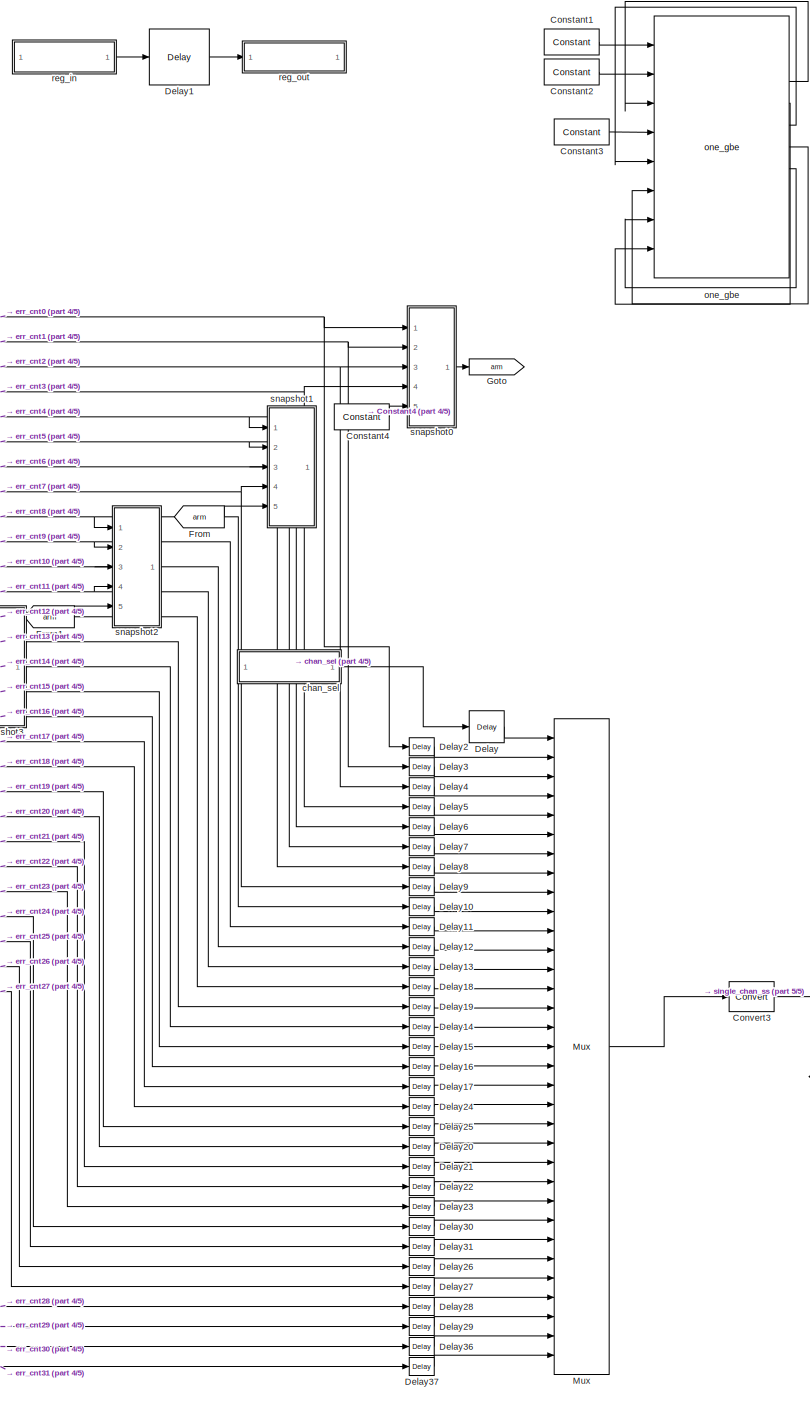
[diagram: root canvas - part 1/5, right side, full height]
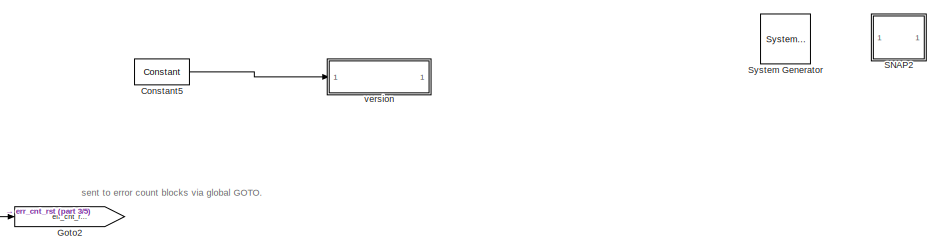
[diagram: root canvas - part 2/5, top left region]
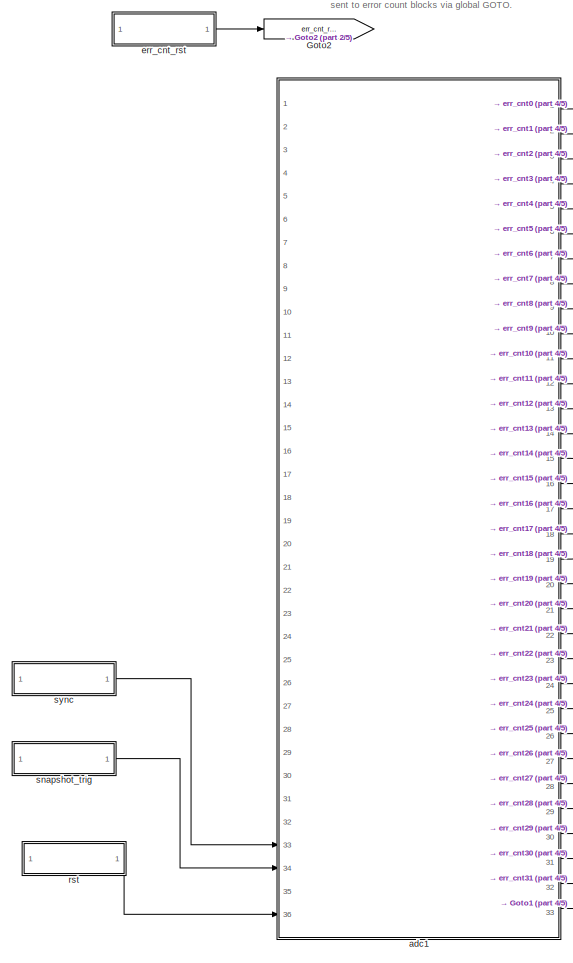
[diagram: root canvas - part 3/5, middle left region]
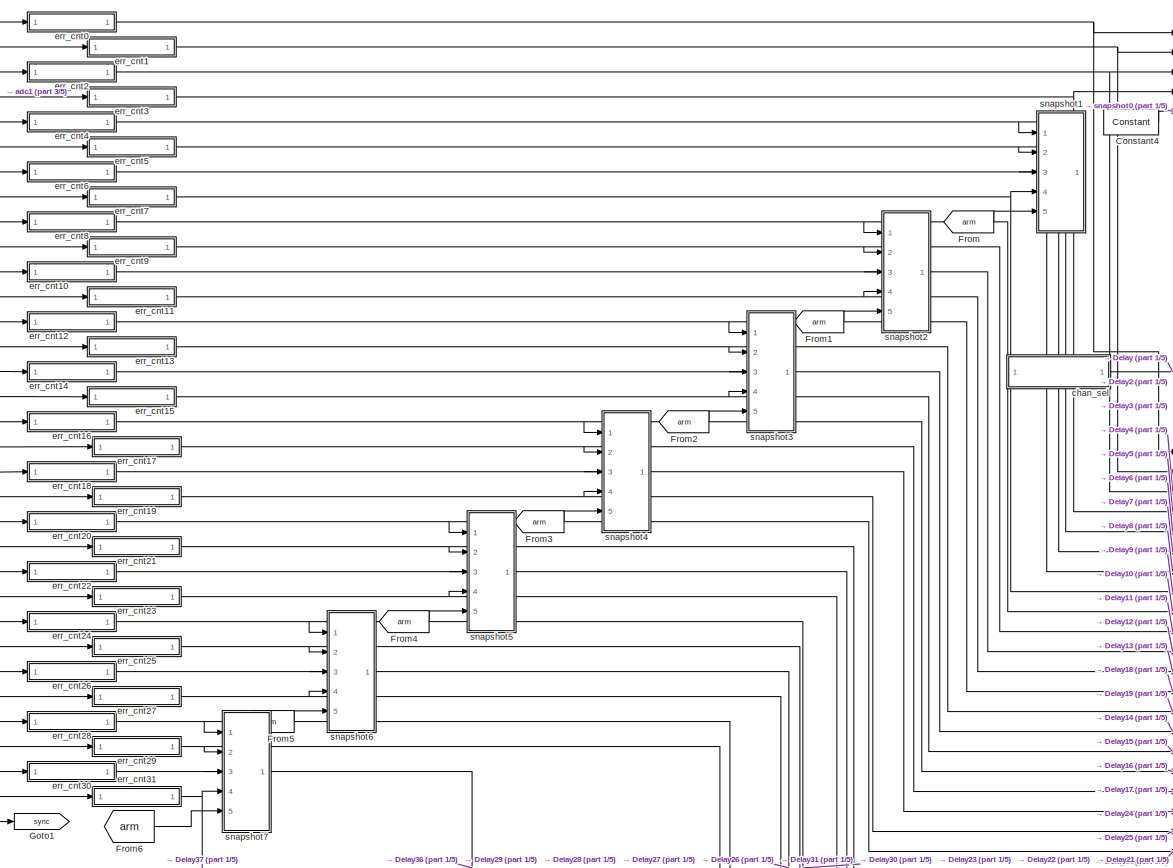
[diagram: root canvas - part 4/5, central region]
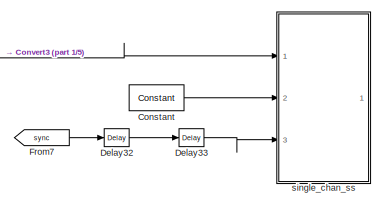
[diagram: root canvas - part 5/5, bottom right region]
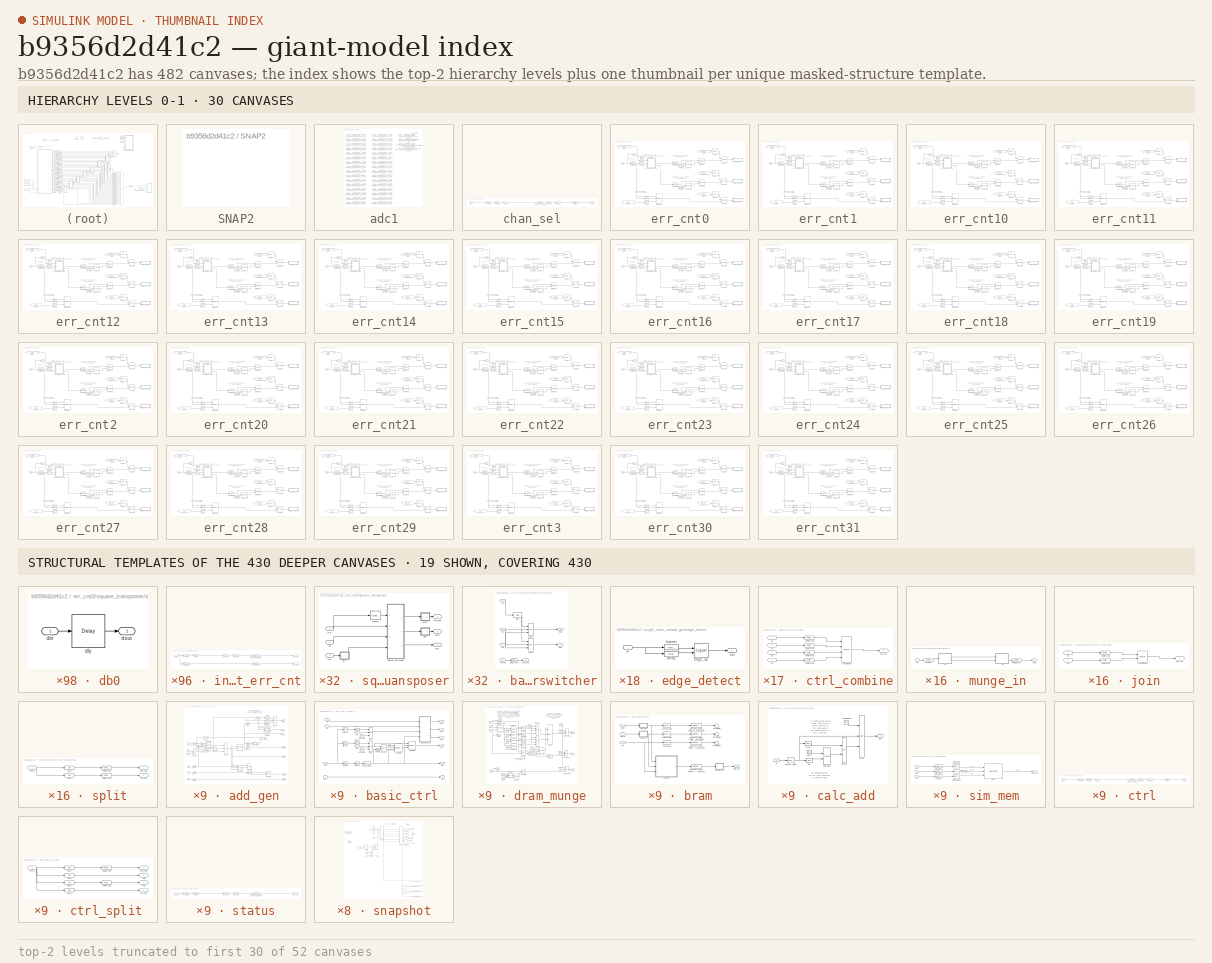
[diagram: thumbnail index - top-2 hierarchy levels (52 canvases (first 30 of 52 shown)) + 19 structural-template representatives of the remaining 430 canvases]
MODEL slx_b9356d2d41c2
KIND model
CONFIG AbsTol = auto
CONFIG EnableMultiTasking = off
CONFIG FixedStep = auto
CONFIG MaxStep = auto
CONFIG MinStep = auto
CONFIG RelTol = 1e-3
CONFIG SampleTimeConstraint = Unconstrained
CONFIG Solver = FixedStepAuto
CONFIG SolverName = FixedStepAuto
CONFIG StartTime = 0.0
CONFIG StopTime = 10.0
BLOCK [Reference]  System Generator  REF=xbsIndex_r4/ System Generator
  AttributesFormatString = System\nGenerator
  Ports = []
  SourceBlock = xbsIndex_r4/ System Generator
  SourceType = Xilinx System Generator Block
  Tag = genX
  UserDataPersistent = on
BLOCK [Reference] Constant  REF=xbsIndex_r4/Constant
  Ports = [0, 1]
  SourceBlock = xbsIndex_r4/Constant
  SourceType = Xilinx Constant Block Block
BLOCK [Reference] Constant1  REF=xbsIndex_r4/Constant
  Ports = [0, 1]
  SourceBlock = xbsIndex_r4/Constant
  SourceType = Xilinx Constant Block Block
BLOCK [Reference] Constant2  REF=xbsIndex_r4/Constant
  Ports = [0, 1]
  SourceBlock = xbsIndex_r4/Constant
  SourceType = Xilinx Constant Block Block
BLOCK [Reference] Constant3  REF=xbsIndex_r4/Constant
  Ports = [0, 1]
  SourceBlock = xbsIndex_r4/Constant
  SourceType = Xilinx Constant Block Block
BLOCK [Reference] Constant4  REF=xbsIndex_r4/Constant
  Ports = [0, 1]
  SourceBlock = xbsIndex_r4/Constant
  SourceType = Xilinx Constant Block Block
BLOCK [Reference] Constant5  REF=xbsIndex_r4/Constant
  Ports = [0, 1]
  SourceBlock = xbsIndex_r4/Constant
  SourceType = Xilinx Constant Block Block
BLOCK [Reference] Convert3  REF=xbsIndex_r4/Convert
  Ports = [1, 1]
  SourceBlock = xbsIndex_r4/Convert
  SourceType = Xilinx Type Converter Block
BLOCK [Reference] Delay  REF=xbsIndex_r4/Delay
  Ports = [1, 1]
  SourceBlock = xbsIndex_r4/Delay
  SourceType = Xilinx Delay Block
BLOCK [Reference] Delay1  REF=xbsIndex_r4/Delay
  Ports = [1, 1]
  SourceBlock = xbsIndex_r4/Delay
  SourceType = Xilinx Delay Block
BLOCK [Reference] Delay10  REF=xbsIndex_r4/Delay
  Ports = [1, 1]
  SourceBlock = xbsIndex_r4/Delay
  SourceType = Xilinx Delay Block
BLOCK [Reference] Delay11  REF=xbsIndex_r4/Delay
  Ports = [1, 1]
  SourceBlock = xbsIndex_r4/Delay
  SourceType = Xilinx Delay Block
BLOCK [Reference] Delay12  REF=xbsIndex_r4/Delay
  Ports = [1, 1]
  SourceBlock = xbsIndex_r4/Delay
  SourceType = Xilinx Delay Block
BLOCK [Reference] Delay13  REF=xbsIndex_r4/Delay
  Ports = [1, 1]
  SourceBlock = xbsIndex_r4/Delay
  SourceType = Xilinx Delay Block
BLOCK [Reference] Delay14  REF=xbsIndex_r4/Delay
  Ports = [1, 1]
  SourceBlock = xbsIndex_r4/Delay
  SourceType = Xilinx Delay Block
BLOCK [Reference] Delay15  REF=xbsIndex_r4/Delay
  Ports = [1, 1]
  SourceBlock = xbsIndex_r4/Delay
  SourceType = Xilinx Delay Block
BLOCK [Reference] Delay16  REF=xbsIndex_r4/Delay
  Ports = [1, 1]
  SourceBlock = xbsIndex_r4/Delay
  SourceType = Xilinx Delay Block
BLOCK [Reference] Delay17  REF=xbsIndex_r4/Delay
  Ports = [1, 1]
  SourceBlock = xbsIndex_r4/Delay
  SourceType = Xilinx Delay Block
BLOCK [Reference] Delay18  REF=xbsIndex_r4/Delay
  Ports = [1, 1]
  SourceBlock = xbsIndex_r4/Delay
  SourceType = Xilinx Delay Block
BLOCK [Reference] Delay19  REF=xbsIndex_r4/Delay
  Ports = [1, 1]
  SourceBlock = xbsIndex_r4/Delay
  SourceType = Xilinx Delay Block
BLOCK [Reference] Delay2  REF=xbsIndex_r4/Delay
  Ports = [1, 1]
  SourceBlock = xbsIndex_r4/Delay
  SourceType = Xilinx Delay Block
BLOCK [Reference] Delay20  REF=xbsIndex_r4/Delay
  Ports = [1, 1]
  SourceBlock = xbsIndex_r4/Delay
  SourceType = Xilinx Delay Block
BLOCK [Reference] Delay21  REF=xbsIndex_r4/Delay
  Ports = [1, 1]
  SourceBlock = xbsIndex_r4/Delay
  SourceType = Xilinx Delay Block
BLOCK [Reference] Delay22  REF=xbsIndex_r4/Delay
  Ports = [1, 1]
  SourceBlock = xbsIndex_r4/Delay
  SourceType = Xilinx Delay Block
BLOCK [Reference] Delay23  REF=xbsIndex_r4/Delay
  Ports = [1, 1]
  SourceBlock = xbsIndex_r4/Delay
  SourceType = Xilinx Delay Block
BLOCK [Reference] Delay24  REF=xbsIndex_r4/Delay
  Ports = [1, 1]
  SourceBlock = xbsIndex_r4/Delay
  SourceType = Xilinx Delay Block
BLOCK [Reference] Delay25  REF=xbsIndex_r4/Delay
  Ports = [1, 1]
  SourceBlock = xbsIndex_r4/Delay
  SourceType = Xilinx Delay Block
BLOCK [Reference] Delay26  REF=xbsIndex_r4/Delay
  Ports = [1, 1]
  SourceBlock = xbsIndex_r4/Delay
  SourceType = Xilinx Delay Block
BLOCK [Reference] Delay27  REF=xbsIndex_r4/Delay
  Ports = [1, 1]
  SourceBlock = xbsIndex_r4/Delay
  SourceType = Xilinx Delay Block
BLOCK [Reference] Delay28  REF=xbsIndex_r4/Delay
  Ports = [1, 1]
  SourceBlock = xbsIndex_r4/Delay
  SourceType = Xilinx Delay Block
BLOCK [Reference] Delay29  REF=xbsIndex_r4/Delay
  Ports = [1, 1]
  SourceBlock = xbsIndex_r4/Delay
  SourceType = Xilinx Delay Block
BLOCK [Reference] Delay3  REF=xbsIndex_r4/Delay
  Ports = [1, 1]
  SourceBlock = xbsIndex_r4/Delay
  SourceType = Xilinx Delay Block
BLOCK [Reference] Delay30  REF=xbsIndex_r4/Delay
  Ports = [1, 1]
  SourceBlock = xbsIndex_r4/Delay
  SourceType = Xilinx Delay Block
BLOCK [Reference] Delay31  REF=xbsIndex_r4/Delay
  Ports = [1, 1]
  SourceBlock = xbsIndex_r4/Delay
  SourceType = Xilinx Delay Block
BLOCK [Reference] Delay32  REF=xbsIndex_r4/Delay
  Ports = [1, 1]
  SourceBlock = xbsIndex_r4/Delay
  SourceType = Xilinx Delay Block
BLOCK [Reference] Delay33  REF=xbsIndex_r4/Delay
  Ports = [1, 1]
  SourceBlock = xbsIndex_r4/Delay
  SourceType = Xilinx Delay Block
BLOCK [Reference] Delay36  REF=xbsIndex_r4/Delay
  Ports = [1, 1]
  SourceBlock = xbsIndex_r4/Delay
  SourceType = Xilinx Delay Block
BLOCK [Reference] Delay37  REF=xbsIndex_r4/Delay
  Ports = [1, 1]
  SourceBlock = xbsIndex_r4/Delay
  SourceType = Xilinx Delay Block
BLOCK [Reference] Delay4  REF=xbsIndex_r4/Delay
  Ports = [1, 1]
  SourceBlock = xbsIndex_r4/Delay
  SourceType = Xilinx Delay Block
BLOCK [Reference] Delay5  REF=xbsIndex_r4/Delay
  Ports = [1, 1]
  SourceBlock = xbsIndex_r4/Delay
  SourceType = Xilinx Delay Block
BLOCK [Reference] Delay6  REF=xbsIndex_r4/Delay
  Ports = [1, 1]
  SourceBlock = xbsIndex_r4/Delay
  SourceType = Xilinx Delay Block
BLOCK [Reference] Delay7  REF=xbsIndex_r4/Delay
  Ports = [1, 1]
  SourceBlock = xbsIndex_r4/Delay
  SourceType = Xilinx Delay Block
BLOCK [Reference] Delay8  REF=xbsIndex_r4/Delay
  Ports = [1, 1]
  SourceBlock = xbsIndex_r4/Delay
  SourceType = Xilinx Delay Block
BLOCK [Reference] Delay9  REF=xbsIndex_r4/Delay
  Ports = [1, 1]
  SourceBlock = xbsIndex_r4/Delay
  SourceType = Xilinx Delay Block
BLOCK [From] From
  GotoTag = arm
BLOCK [From] From1
  GotoTag = arm
BLOCK [From] From2
  GotoTag = arm
BLOCK [From] From3
  GotoTag = arm
BLOCK [From] From4
  GotoTag = arm
BLOCK [From] From5
  GotoTag = arm
BLOCK [From] From6
  GotoTag = arm
BLOCK [From] From7
  GotoTag = sync
  TagVisibility = global
BLOCK [Goto] Goto
  GotoTag = arm
BLOCK [Goto] Goto1
  GotoTag = sync
  TagVisibility = global
BLOCK [Goto] Goto2
  GotoTag = err_cnt_rst
  TagVisibility = global
BLOCK [Reference] Mux  REF=xbsIndex_r4/Mux
  Ports = [33, 1]
  SourceBlock = xbsIndex_r4/Mux
  SourceType = Xilinx Bus Multiplexer Block
BLOCK [SubSystem] SNAP2
  Ports = []
  RequestExecContextInheritance = off
  Tag = xps:xsg
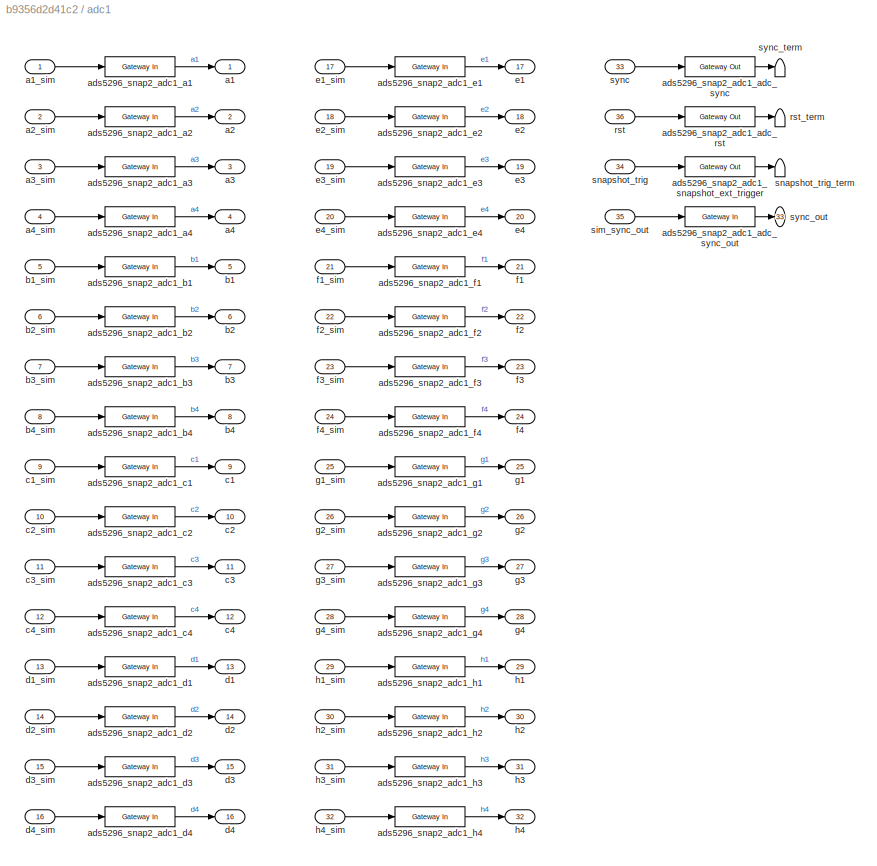
BLOCK [SubSystem] adc1
  Ports = [36, 33]
  RequestExecContextInheritance = off
  Tag = xps:ads5296x4
  UserDataPersistent = on
BLOCK [Outport] adc1/a1
  IconDisplay = Port number
BLOCK [Inport] adc1/a1_sim
  IconDisplay = Port number
BLOCK [Outport] adc1/a2
  IconDisplay = Port number
  Port = 2
BLOCK [Inport] adc1/a2_sim
  IconDisplay = Port number
  Port = 2
BLOCK [Outport] adc1/a3
  IconDisplay = Port number
  Port = 3
BLOCK [Inport] adc1/a3_sim
  IconDisplay = Port number
  Port = 3
BLOCK [Outport] adc1/a4
  IconDisplay = Port number
  Port = 4
BLOCK [Inport] adc1/a4_sim
  IconDisplay = Port number
  Port = 4
BLOCK [Reference] adc1/ads5296_snap2_adc1_a1  REF=xbsIndex_r4/Gateway In
  Ports = [1, 1]
  SourceBlock = xbsIndex_r4/Gateway In
  SourceType = Xilinx Gateway In Block
BLOCK [Reference] adc1/ads5296_snap2_adc1_a2  REF=xbsIndex_r4/Gateway In
  Ports = [1, 1]
  SourceBlock = xbsIndex_r4/Gateway In
  SourceType = Xilinx Gateway In Block
BLOCK [Reference] adc1/ads5296_snap2_adc1_a3  REF=xbsIndex_r4/Gateway In
  Ports = [1, 1]
  SourceBlock = xbsIndex_r4/Gateway In
  SourceType = Xilinx Gateway In Block
BLOCK [Reference] adc1/ads5296_snap2_adc1_a4  REF=xbsIndex_r4/Gateway In
  Ports = [1, 1]
  SourceBlock = xbsIndex_r4/Gateway In
  SourceType = Xilinx Gateway In Block
BLOCK [Reference] adc1/ads5296_snap2_adc1_adc_rst  REF=xbsIndex_r4/Gateway Out
  Ports = [1, 1]
  SourceBlock = xbsIndex_r4/Gateway Out
  SourceType = Xilinx Gateway Out Block
BLOCK [Reference] adc1/ads5296_snap2_adc1_adc_sync  REF=xbsIndex_r4/Gateway Out
  Ports = [1, 1]
  SourceBlock = xbsIndex_r4/Gateway Out
  SourceType = Xilinx Gateway Out Block
BLOCK [Reference] adc1/ads5296_snap2_adc1_adc_sync_out  REF=xbsIndex_r4/Gateway In
  Ports = [1, 1]
  SourceBlock = xbsIndex_r4/Gateway In
  SourceType = Xilinx Gateway In Block
BLOCK [Reference] adc1/ads5296_snap2_adc1_b1  REF=xbsIndex_r4/Gateway In
  Ports = [1, 1]
  SourceBlock = xbsIndex_r4/Gateway In
  SourceType = Xilinx Gateway In Block
BLOCK [Reference] adc1/ads5296_snap2_adc1_b2  REF=xbsIndex_r4/Gateway In
  Ports = [1, 1]
  SourceBlock = xbsIndex_r4/Gateway In
  SourceType = Xilinx Gateway In Block
BLOCK [Reference] adc1/ads5296_snap2_adc1_b3  REF=xbsIndex_r4/Gateway In
  Ports = [1, 1]
  SourceBlock = xbsIndex_r4/Gateway In
  SourceType = Xilinx Gateway In Block
BLOCK [Reference] adc1/ads5296_snap2_adc1_b4  REF=xbsIndex_r4/Gateway In
  Ports = [1, 1]
  SourceBlock = xbsIndex_r4/Gateway In
  SourceType = Xilinx Gateway In Block
BLOCK [Reference] adc1/ads5296_snap2_adc1_c1  REF=xbsIndex_r4/Gateway In
  Ports = [1, 1]
  SourceBlock = xbsIndex_r4/Gateway In
  SourceType = Xilinx Gateway In Block
BLOCK [Reference] adc1/ads5296_snap2_adc1_c2  REF=xbsIndex_r4/Gateway In
  Ports = [1, 1]
  SourceBlock = xbsIndex_r4/Gateway In
  SourceType = Xilinx Gateway In Block
BLOCK [Reference] adc1/ads5296_snap2_adc1_c3  REF=xbsIndex_r4/Gateway In
  Ports = [1, 1]
  SourceBlock = xbsIndex_r4/Gateway In
  SourceType = Xilinx Gateway In Block
BLOCK [Reference] adc1/ads5296_snap2_adc1_c4  REF=xbsIndex_r4/Gateway In
  Ports = [1, 1]
  SourceBlock = xbsIndex_r4/Gateway In
  SourceType = Xilinx Gateway In Block
BLOCK [Reference] adc1/ads5296_snap2_adc1_d1  REF=xbsIndex_r4/Gateway In
  Ports = [1, 1]
  SourceBlock = xbsIndex_r4/Gateway In
  SourceType = Xilinx Gateway In Block
BLOCK [Reference] adc1/ads5296_snap2_adc1_d2  REF=xbsIndex_r4/Gateway In
  Ports = [1, 1]
  SourceBlock = xbsIndex_r4/Gateway In
  SourceType = Xilinx Gateway In Block
BLOCK [Reference] adc1/ads5296_snap2_adc1_d3  REF=xbsIndex_r4/Gateway In
  Ports = [1, 1]
  SourceBlock = xbsIndex_r4/Gateway In
  SourceType = Xilinx Gateway In Block
BLOCK [Reference] adc1/ads5296_snap2_adc1_d4  REF=xbsIndex_r4/Gateway In
  Ports = [1, 1]
  SourceBlock = xbsIndex_r4/Gateway In
  SourceType = Xilinx Gateway In Block
BLOCK [Reference] adc1/ads5296_snap2_adc1_e1  REF=xbsIndex_r4/Gateway In
  Ports = [1, 1]
  SourceBlock = xbsIndex_r4/Gateway In
  SourceType = Xilinx Gateway In Block
BLOCK [Reference] adc1/ads5296_snap2_adc1_e2  REF=xbsIndex_r4/Gateway In
  Ports = [1, 1]
  SourceBlock = xbsIndex_r4/Gateway In
  SourceType = Xilinx Gateway In Block
BLOCK [Reference] adc1/ads5296_snap2_adc1_e3  REF=xbsIndex_r4/Gateway In
  Ports = [1, 1]
  SourceBlock = xbsIndex_r4/Gateway In
  SourceType = Xilinx Gateway In Block
BLOCK [Reference] adc1/ads5296_snap2_adc1_e4  REF=xbsIndex_r4/Gateway In
  Ports = [1, 1]
  SourceBlock = xbsIndex_r4/Gateway In
  SourceType = Xilinx Gateway In Block
BLOCK [Reference] adc1/ads5296_snap2_adc1_f1  REF=xbsIndex_r4/Gateway In
  Ports = [1, 1]
  SourceBlock = xbsIndex_r4/Gateway In
  SourceType = Xilinx Gateway In Block
BLOCK [Reference] adc1/ads5296_snap2_adc1_f2  REF=xbsIndex_r4/Gateway In
  Ports = [1, 1]
  SourceBlock = xbsIndex_r4/Gateway In
  SourceType = Xilinx Gateway In Block
BLOCK [Reference] adc1/ads5296_snap2_adc1_f3  REF=xbsIndex_r4/Gateway In
  Ports = [1, 1]
  SourceBlock = xbsIndex_r4/Gateway In
  SourceType = Xilinx Gateway In Block
BLOCK [Reference] adc1/ads5296_snap2_adc1_f4  REF=xbsIndex_r4/Gateway In
  Ports = [1, 1]
  SourceBlock = xbsIndex_r4/Gateway In
  SourceType = Xilinx Gateway In Block
BLOCK [Reference] adc1/ads5296_snap2_adc1_g1  REF=xbsIndex_r4/Gateway In
  Ports = [1, 1]
  SourceBlock = xbsIndex_r4/Gateway In
  SourceType = Xilinx Gateway In Block
BLOCK [Reference] adc1/ads5296_snap2_adc1_g2  REF=xbsIndex_r4/Gateway In
  Ports = [1, 1]
  SourceBlock = xbsIndex_r4/Gateway In
  SourceType = Xilinx Gateway In Block
BLOCK [Reference] adc1/ads5296_snap2_adc1_g3  REF=xbsIndex_r4/Gateway In
  Ports = [1, 1]
  SourceBlock = xbsIndex_r4/Gateway In
  SourceType = Xilinx Gateway In Block
BLOCK [Reference] adc1/ads5296_snap2_adc1_g4  REF=xbsIndex_r4/Gateway In
  Ports = [1, 1]
  SourceBlock = xbsIndex_r4/Gateway In
  SourceType = Xilinx Gateway In Block
BLOCK [Reference] adc1/ads5296_snap2_adc1_h1  REF=xbsIndex_r4/Gateway In
  Ports = [1, 1]
  SourceBlock = xbsIndex_r4/Gateway In
  SourceType = Xilinx Gateway In Block
BLOCK [Reference] adc1/ads5296_snap2_adc1_h2  REF=xbsIndex_r4/Gateway In
  Ports = [1, 1]
  SourceBlock = xbsIndex_r4/Gateway In
  SourceType = Xilinx Gateway In Block
BLOCK [Reference] adc1/ads5296_snap2_adc1_h3  REF=xbsIndex_r4/Gateway In
  Ports = [1, 1]
  SourceBlock = xbsIndex_r4/Gateway In
  SourceType = Xilinx Gateway In Block
BLOCK [Reference] adc1/ads5296_snap2_adc1_h4  REF=xbsIndex_r4/Gateway In
  Ports = [1, 1]
  SourceBlock = xbsIndex_r4/Gateway In
  SourceType = Xilinx Gateway In Block
BLOCK [Reference] adc1/ads5296_snap2_adc1_snapshot_ext_trigger  REF=xbsIndex_r4/Gateway Out
  Ports = [1, 1]
  SourceBlock = xbsIndex_r4/Gateway Out
  SourceType = Xilinx Gateway Out Block
BLOCK [Outport] adc1/b1
  IconDisplay = Port number
  Port = 5
BLOCK [Inport] adc1/b1_sim
  IconDisplay = Port number
  Port = 5
BLOCK [Outport] adc1/b2
  IconDisplay = Port number
  Port = 6
BLOCK [Inport] adc1/b2_sim
  IconDisplay = Port number
  Port = 6
BLOCK [Outport] adc1/b3
  IconDisplay = Port number
  Port = 7
BLOCK [Inport] adc1/b3_sim
  IconDisplay = Port number
  Port = 7
BLOCK [Outport] adc1/b4
  IconDisplay = Port number
  Port = 8
BLOCK [Inport] adc1/b4_sim
  IconDisplay = Port number
  Port = 8
BLOCK [Outport] adc1/c1
  IconDisplay = Port number
  Port = 9
BLOCK [Inport] adc1/c1_sim
  IconDisplay = Port number
  Port = 9
BLOCK [Outport] adc1/c2
  IconDisplay = Port number
  Port = 10
BLOCK [Inport] adc1/c2_sim
  IconDisplay = Port number
  Port = 10
BLOCK [Outport] adc1/c3
  IconDisplay = Port number
  Port = 11
BLOCK [Inport] adc1/c3_sim
  IconDisplay = Port number
  Port = 11
BLOCK [Outport] adc1/c4
  IconDisplay = Port number
  Port = 12
BLOCK [Inport] adc1/c4_sim
  IconDisplay = Port number
  Port = 12
BLOCK [Outport] adc1/d1
  IconDisplay = Port number
  Port = 13
BLOCK [Inport] adc1/d1_sim
  IconDisplay = Port number
  Port = 13
BLOCK [Outport] adc1/d2
  IconDisplay = Port number
  Port = 14
BLOCK [Inport] adc1/d2_sim
  IconDisplay = Port number
  Port = 14
BLOCK [Outport] adc1/d3
  IconDisplay = Port number
  Port = 15
BLOCK [Inport] adc1/d3_sim
  IconDisplay = Port number
  Port = 15
BLOCK [Outport] adc1/d4
  IconDisplay = Port number
  Port = 16
BLOCK [Inport] adc1/d4_sim
  IconDisplay = Port number
  Port = 16
BLOCK [Outport] adc1/e1
  IconDisplay = Port number
  Port = 17
BLOCK [Inport] adc1/e1_sim
  IconDisplay = Port number
  Port = 17
BLOCK [Outport] adc1/e2
  IconDisplay = Port number
  Port = 18
BLOCK [Inport] adc1/e2_sim
  IconDisplay = Port number
  Port = 18
BLOCK [Outport] adc1/e3
  IconDisplay = Port number
  Port = 19
BLOCK [Inport] adc1/e3_sim
  IconDisplay = Port number
  Port = 19
BLOCK [Outport] adc1/e4
  IconDisplay = Port number
  Port = 20
BLOCK [Inport] adc1/e4_sim
  IconDisplay = Port number
  Port = 20
BLOCK [Outport] adc1/f1
  IconDisplay = Port number
  Port = 21
BLOCK [Inport] adc1/f1_sim
  IconDisplay = Port number
  Port = 21
BLOCK [Outport] adc1/f2
  IconDisplay = Port number
  Port = 22
BLOCK [Inport] adc1/f2_sim
  IconDisplay = Port number
  Port = 22
BLOCK [Outport] adc1/f3
  IconDisplay = Port number
  Port = 23
BLOCK [Inport] adc1/f3_sim
  IconDisplay = Port number
  Port = 23
BLOCK [Outport] adc1/f4
  IconDisplay = Port number
  Port = 24
BLOCK [Inport] adc1/f4_sim
  IconDisplay = Port number
  Port = 24
BLOCK [Outport] adc1/g1
  IconDisplay = Port number
  Port = 25
BLOCK [Inport] adc1/g1_sim
  IconDisplay = Port number
  Port = 25
BLOCK [Outport] adc1/g2
  IconDisplay = Port number
  Port = 26
BLOCK [Inport] adc1/g2_sim
  IconDisplay = Port number
  Port = 26
BLOCK [Outport] adc1/g3
  IconDisplay = Port number
  Port = 27
BLOCK [Inport] adc1/g3_sim
  IconDisplay = Port number
  Port = 27
BLOCK [Outport] adc1/g4
  IconDisplay = Port number
  Port = 28
BLOCK [Inport] adc1/g4_sim
  IconDisplay = Port number
  Port = 28
BLOCK [Outport] adc1/h1
  IconDisplay = Port number
  Port = 29
BLOCK [Inport] adc1/h1_sim
  IconDisplay = Port number
  Port = 29
BLOCK [Outport] adc1/h2
  IconDisplay = Port number
  Port = 30
BLOCK [Inport] adc1/h2_sim
  IconDisplay = Port number
  Port = 30
BLOCK [Outport] adc1/h3
  IconDisplay = Port number
  Port = 31
BLOCK [Inport] adc1/h3_sim
  IconDisplay = Port number
  Port = 31
BLOCK [Outport] adc1/h4
  IconDisplay = Port number
  Port = 32
BLOCK [Inport] adc1/h4_sim
  IconDisplay = Port number
  Port = 32
BLOCK [Inport] adc1/rst
  IconDisplay = Port number
  Port = 36
BLOCK [Terminator] adc1/rst_term
BLOCK [Inport] adc1/sim_sync_out
  IconDisplay = Port number
  Port = 35
BLOCK [Inport] adc1/snapshot_trig
  IconDisplay = Port number
  Port = 34
BLOCK [Terminator] adc1/snapshot_trig_term
BLOCK [Inport] adc1/sync
  IconDisplay = Port number
  Port = 33
BLOCK [Outport] adc1/sync_out
  IconDisplay = Port number
  Port = 33
BLOCK [Terminator] adc1/sync_term
BLOCK [SubSystem] chan_sel
  AncestorBlock = xps_library/Memory/software_register
  AttributesFormatString = 1input:uf5.0 = 5 bits
  Ports = [1, 1]
  RequestExecContextInheritance = off
  Tag = xps:sw_reg
BLOCK [Reference] chan_sel/ads5296_snap2_chan_sel_user_data_out  REF=xbsIndex_r4/Gateway In
  Ports = [1, 1]
  SourceBlock = xbsIndex_r4/Gateway In
  SourceType = Xilinx Gateway In Block
BLOCK [DataTypeConversion] chan_sel/convert1_1
  LockScale = on
  OutDataTypeStr = fixdt('ufix5_En0')
  RndMeth = Floor
  SaturateOnIntegerOverflow = off
BLOCK [DataTypeConversion] chan_sel/convert2_1
  ConvertRealWorld = Stored Integer (SI)
  LockScale = on
  OutDataTypeStr = fixdt('ufix5_En0')
  RndMeth = Floor
  SaturateOnIntegerOverflow = off
BLOCK [Gain] chan_sel/gain_1
  OutDataTypeStr = Inherit: Inherit via internal rule
  ParamDataTypeStr = Inherit: Inherit via internal rule
  SaturateOnIntegerOverflow = off
BLOCK [Outport] chan_sel/in_reg
  IconDisplay = Port number
BLOCK [Reference] chan_sel/io_delay  REF=xbsIndex_r4/Delay
  Ports = [1, 1]
  SourceBlock = xbsIndex_r4/Delay
  SourceType = Xilinx Delay Block
BLOCK [Reference] chan_sel/reint1  REF=xbsIndex_r4/Reinterpret
  Ports = [1, 1]
  SourceBlock = xbsIndex_r4/Reinterpret
  SourceType = Xilinx Type Reinterpreter Block
BLOCK [Inport] chan_sel/sim_1
  IconDisplay = Port number
BLOCK [Reference] chan_sel/slice_reg  REF=xbsIndex_r4/Slice
  Ports = [1, 1]
  SourceBlock = xbsIndex_r4/Slice
  SourceType = Xilinx Bit Slice Extractor Block
BLOCK [SubSystem] err_cnt0
  Ports = [1, 1]
  RequestExecContextInheritance = off
  VariantControl = Variant1
BLOCK [Reference] err_cnt0/AddSub  REF=xbsIndex_r4/AddSub
  Ports = [2, 1]
  SourceBlock = xbsIndex_r4/AddSub
  SourceType = Xilinx Adder/Subtracter Block
BLOCK [Reference] err_cnt0/AddSub1  REF=xbsIndex_r4/AddSub
  Ports = [2, 1]
  SourceBlock = xbsIndex_r4/AddSub
  SourceType = Xilinx Adder/Subtracter Block
BLOCK [Reference] err_cnt0/Constant  REF=xbsIndex_r4/Constant
  Ports = [0, 1]
  SourceBlock = xbsIndex_r4/Constant
  SourceType = Xilinx Constant Block Block
BLOCK [Reference] err_cnt0/Constant1  REF=xbsIndex_r4/Constant
  Ports = [0, 1]
  SourceBlock = xbsIndex_r4/Constant
  SourceType = Xilinx Constant Block Block
BLOCK [Reference] err_cnt0/Counter  REF=xbsIndex_r4/Counter
  Ports = [2, 1]
  SourceBlock = xbsIndex_r4/Counter
  SourceType = Xilinx Counter Block
BLOCK [Reference] err_cnt0/Counter1  REF=xbsIndex_r4/Counter
  Ports = [2, 1]
  SourceBlock = xbsIndex_r4/Counter
  SourceType = Xilinx Counter Block
BLOCK [Reference] err_cnt0/Counter2  REF=xbsIndex_r4/Counter
  Ports = [2, 1]
  SourceBlock = xbsIndex_r4/Counter
  SourceType = Xilinx Counter Block
BLOCK [Reference] err_cnt0/Delay  REF=xbsIndex_r4/Delay
  Ports = [1, 1]
  SourceBlock = xbsIndex_r4/Delay
  SourceType = Xilinx Delay Block
BLOCK [Reference] err_cnt0/Delay1  REF=xbsIndex_r4/Delay
  Ports = [1, 1]
  SourceBlock = xbsIndex_r4/Delay
  SourceType = Xilinx Delay Block
BLOCK [Reference] err_cnt0/Delay2  REF=xbsIndex_r4/Delay
  Ports = [1, 1]
  SourceBlock = xbsIndex_r4/Delay
  SourceType = Xilinx Delay Block
BLOCK [Reference] err_cnt0/Delay3  REF=xbsIndex_r4/Delay
  Ports = [1, 1]
  SourceBlock = xbsIndex_r4/Delay
  SourceType = Xilinx Delay Block
BLOCK [Reference] err_cnt0/Delay4  REF=xbsIndex_r4/Delay
  Ports = [1, 1]
  SourceBlock = xbsIndex_r4/Delay
  SourceType = Xilinx Delay Block
BLOCK [Reference] err_cnt0/Delay5  REF=xbsIndex_r4/Delay
  Ports = [1, 1]
  SourceBlock = xbsIndex_r4/Delay
  SourceType = Xilinx Delay Block
BLOCK [Reference] err_cnt0/Delay6  REF=xbsIndex_r4/Delay
  Ports = [1, 1]
  SourceBlock = xbsIndex_r4/Delay
  SourceType = Xilinx Delay Block
BLOCK [From] err_cnt0/From
  GotoTag = err_cnt_rst
  TagVisibility = global
BLOCK [From] err_cnt0/From1
  GotoTag = sync
  TagVisibility = global
BLOCK [From] err_cnt0/From2
  GotoTag = err_cnt_rst
  TagVisibility = global
BLOCK [From] err_cnt0/From3
  GotoTag = err_cnt_rst
  TagVisibility = global
BLOCK [From] err_cnt0/From4
  GotoTag = sync
  TagVisibility = global
BLOCK [Reference] err_cnt0/Reinterpret  REF=xbsIndex_r4/Reinterpret
  Ports = [1, 1]
  SourceBlock = xbsIndex_r4/Reinterpret
  SourceType = Xilinx Type Reinterpreter Block
BLOCK [Reference] err_cnt0/Reinterpret1  REF=xbsIndex_r4/Reinterpret
  Ports = [1, 1]
  SourceBlock = xbsIndex_r4/Reinterpret
  SourceType = Xilinx Type Reinterpreter Block
BLOCK [Reference] err_cnt0/Reinterpret2  REF=xbsIndex_r4/Reinterpret
  Ports = [1, 1]
  SourceBlock = xbsIndex_r4/Reinterpret
  SourceType = Xilinx Type Reinterpreter Block
BLOCK [Reference] err_cnt0/Relational  REF=xbsIndex_r4/Relational
  Ports = [2, 1]
  SourceBlock = xbsIndex_r4/Relational
  SourceType = Xilinx Arithmetic Relational Operator Block
BLOCK [Reference] err_cnt0/Relational1  REF=xbsIndex_r4/Relational
  Ports = [2, 1]
  SourceBlock = xbsIndex_r4/Relational
  SourceType = Xilinx Arithmetic Relational Operator Block
BLOCK [Reference] err_cnt0/Relational2  REF=xbsIndex_r4/Relational
  Ports = [3, 1]
  SourceBlock = xbsIndex_r4/Relational
  SourceType = Xilinx Arithmetic Relational Operator Block
BLOCK [Inport] err_cnt0/din
  IconDisplay = Port number
BLOCK [Outport] err_cnt0/dout
  IconDisplay = Port number
BLOCK [SubSystem] err_cnt0/interleave_err_cnt
  AncestorBlock = xps_library/Memory/software_register
  AttributesFormatString = 1output:uf32.0 = 32 bits
  Ports = [1, 1]
  RequestExecContextInheritance = off
  Tag = xps:sw_reg
BLOCK [Reference] err_cnt0/interleave_err_cnt/ads5296_snap2_err_cnt0_interleave_err_cnt_user_data_in  REF=xbsIndex_r4/Gateway Out
  Ports = [1, 1]
  SourceBlock = xbsIndex_r4/Gateway Out
  SourceType = Xilinx Gateway Out Block
BLOCK [Reference] err_cnt0/interleave_err_cnt/assert_reg  REF=xbsIndex_r4/Assert
  Ports = [1, 1]
  SourceBlock = xbsIndex_r4/Assert
  SourceType = Xilinx Assert Block
BLOCK [Reference] err_cnt0/interleave_err_cnt/cast_gw  REF=xbsIndex_r4/Convert
  Ports = [1, 1]
  SourceBlock = xbsIndex_r4/Convert
  SourceType = Xilinx Type Converter Block
BLOCK [Reference] err_cnt0/interleave_err_cnt/io_delay  REF=xbsIndex_r4/Delay
  Ports = [1, 1]
  SourceBlock = xbsIndex_r4/Delay
  SourceType = Xilinx Delay Block
BLOCK [Inport] err_cnt0/interleave_err_cnt/out_reg
  IconDisplay = Port number
BLOCK [Reference] err_cnt0/interleave_err_cnt/reint1  REF=xbsIndex_r4/Reinterpret
  Ports = [1, 1]
  SourceBlock = xbsIndex_r4/Reinterpret
  SourceType = Xilinx Type Reinterpreter Block
BLOCK [Terminator] err_cnt0/interleave_err_cnt/sim_out
BLOCK [Outport] err_cnt0/interleave_err_cnt/sim_out_reg
  IconDisplay = Port number
BLOCK [Reference] err_cnt0/interleave_err_cnt/sim_out_reg_gw  REF=xbsIndex_r4/Gateway Out
  Ports = [1, 1]
  SourceBlock = xbsIndex_r4/Gateway Out
  SourceType = Xilinx Gateway Out Block
BLOCK [Reference] err_cnt0/interleave_err_cnt/sim_out_reg_sim_delay  REF=xbsIndex_r4/Delay
  Ports = [1, 1]
  SourceBlock = xbsIndex_r4/Delay
  SourceType = Xilinx Delay Block
BLOCK [SubSystem] err_cnt0/ramp_err_cnt0
  AncestorBlock = xps_library/Memory/software_register
  AttributesFormatString = 1output:uf32.0 = 32 bits
  Ports = [1, 1]
  RequestExecContextInheritance = off
  Tag = xps:sw_reg
BLOCK [Reference] err_cnt0/ramp_err_cnt0/ads5296_snap2_err_cnt0_ramp_err_cnt0_user_data_in  REF=xbsIndex_r4/Gateway Out
  Ports = [1, 1]
  SourceBlock = xbsIndex_r4/Gateway Out
  SourceType = Xilinx Gateway Out Block
BLOCK [Reference] err_cnt0/ramp_err_cnt0/assert_reg  REF=xbsIndex_r4/Assert
  Ports = [1, 1]
  SourceBlock = xbsIndex_r4/Assert
  SourceType = Xilinx Assert Block
BLOCK [Reference] err_cnt0/ramp_err_cnt0/cast_gw  REF=xbsIndex_r4/Convert
  Ports = [1, 1]
  SourceBlock = xbsIndex_r4/Convert
  SourceType = Xilinx Type Converter Block
BLOCK [Reference] err_cnt0/ramp_err_cnt0/io_delay  REF=xbsIndex_r4/Delay
  Ports = [1, 1]
  SourceBlock = xbsIndex_r4/Delay
  SourceType = Xilinx Delay Block
BLOCK [Inport] err_cnt0/ramp_err_cnt0/out_reg
  IconDisplay = Port number
BLOCK [Reference] err_cnt0/ramp_err_cnt0/reint1  REF=xbsIndex_r4/Reinterpret
  Ports = [1, 1]
  SourceBlock = xbsIndex_r4/Reinterpret
  SourceType = Xilinx Type Reinterpreter Block
BLOCK [Terminator] err_cnt0/ramp_err_cnt0/sim_out
BLOCK [Outport] err_cnt0/ramp_err_cnt0/sim_out_reg
  IconDisplay = Port number
BLOCK [Reference] err_cnt0/ramp_err_cnt0/sim_out_reg_gw  REF=xbsIndex_r4/Gateway Out
  Ports = [1, 1]
  SourceBlock = xbsIndex_r4/Gateway Out
  SourceType = Xilinx Gateway Out Block
BLOCK [Reference] err_cnt0/ramp_err_cnt0/sim_out_reg_sim_delay  REF=xbsIndex_r4/Delay
  Ports = [1, 1]
  SourceBlock = xbsIndex_r4/Delay
  SourceType = Xilinx Delay Block
BLOCK [SubSystem] err_cnt0/ramp_err_cnt1
  AncestorBlock = xps_library/Memory/software_register
  AttributesFormatString = 1output:uf32.0 = 32 bits
  Ports = [1, 1]
  RequestExecContextInheritance = off
  Tag = xps:sw_reg
BLOCK [Reference] err_cnt0/ramp_err_cnt1/ads5296_snap2_err_cnt0_ramp_err_cnt1_user_data_in  REF=xbsIndex_r4/Gateway Out
  Ports = [1, 1]
  SourceBlock = xbsIndex_r4/Gateway Out
  SourceType = Xilinx Gateway Out Block
BLOCK [Reference] err_cnt0/ramp_err_cnt1/assert_reg  REF=xbsIndex_r4/Assert
  Ports = [1, 1]
  SourceBlock = xbsIndex_r4/Assert
  SourceType = Xilinx Assert Block
BLOCK [Reference] err_cnt0/ramp_err_cnt1/cast_gw  REF=xbsIndex_r4/Convert
  Ports = [1, 1]
  SourceBlock = xbsIndex_r4/Convert
  SourceType = Xilinx Type Converter Block
BLOCK [Reference] err_cnt0/ramp_err_cnt1/io_delay  REF=xbsIndex_r4/Delay
  Ports = [1, 1]
  SourceBlock = xbsIndex_r4/Delay
  SourceType = Xilinx Delay Block
BLOCK [Inport] err_cnt0/ramp_err_cnt1/out_reg
  IconDisplay = Port number
BLOCK [Reference] err_cnt0/ramp_err_cnt1/reint1  REF=xbsIndex_r4/Reinterpret
  Ports = [1, 1]
  SourceBlock = xbsIndex_r4/Reinterpret
  SourceType = Xilinx Type Reinterpreter Block
BLOCK [Terminator] err_cnt0/ramp_err_cnt1/sim_out
BLOCK [Outport] err_cnt0/ramp_err_cnt1/sim_out_reg
  IconDisplay = Port number
BLOCK [Reference] err_cnt0/ramp_err_cnt1/sim_out_reg_gw  REF=xbsIndex_r4/Gateway Out
  Ports = [1, 1]
  SourceBlock = xbsIndex_r4/Gateway Out
  SourceType = Xilinx Gateway Out Block
BLOCK [Reference] err_cnt0/ramp_err_cnt1/sim_out_reg_sim_delay  REF=xbsIndex_r4/Delay
  Ports = [1, 1]
  SourceBlock = xbsIndex_r4/Delay
  SourceType = Xilinx Delay Block
BLOCK [SubSystem] err_cnt0/square_transposer
  AncestorBlock = casper_library_reorder/square_transposer
  AttributesFormatString = n_inputs=1
  Ports = [3, 3]
  RequestExecContextInheritance = off
  UserDataPersistent = on
BLOCK [SubSystem] err_cnt0/square_transposer/barrel_switcher
  AncestorBlock = casper_library_reorder/barrel_switcher
  Ports = [4, 3]
  RequestExecContextInheritance = off
  UserDataPersistent = on
BLOCK [Reference] err_cnt0/square_transposer/barrel_switcher/Delay_sync  REF=xbsIndex_r4/Delay
  Ports = [1, 1]
  SourceBlock = xbsIndex_r4/Delay
  SourceType = Xilinx Delay Block
BLOCK [Inport] err_cnt0/square_transposer/barrel_switcher/In1
  IconDisplay = Port number
  Port = 3
BLOCK [Inport] err_cnt0/square_transposer/barrel_switcher/In2
  IconDisplay = Port number
  Port = 4
BLOCK [Reference] err_cnt0/square_transposer/barrel_switcher/Mux11  REF=xbsIndex_r4/Mux
  Ports = [3, 1]
  SourceBlock = xbsIndex_r4/Mux
  SourceType = Xilinx Bus Multiplexer Block
BLOCK [Reference] err_cnt0/square_transposer/barrel_switcher/Mux21  REF=xbsIndex_r4/Mux
  Ports = [3, 1]
  SourceBlock = xbsIndex_r4/Mux
  SourceType = Xilinx Bus Multiplexer Block
BLOCK [Outport] err_cnt0/square_transposer/barrel_switcher/Out1
  IconDisplay = Port number
  Port = 2
BLOCK [Outport] err_cnt0/square_transposer/barrel_switcher/Out2
  IconDisplay = Port number
  Port = 3
BLOCK [Reference] err_cnt0/square_transposer/barrel_switcher/Slice1  REF=xbsIndex_r4/Slice
  Ports = [1, 1]
  SourceBlock = xbsIndex_r4/Slice
  SourceType = Xilinx Bit Slice Extractor Block
BLOCK [Inport] err_cnt0/square_transposer/barrel_switcher/sel
  IconDisplay = Port number
BLOCK [Inport] err_cnt0/square_transposer/barrel_switcher/sync_in
  IconDisplay = Port number
  Port = 2
BLOCK [Outport] err_cnt0/square_transposer/barrel_switcher/sync_out
  IconDisplay = Port number
BLOCK [Reference] err_cnt0/square_transposer/counter  REF=xbsIndex_r4/Counter
  Ports = [1, 1]
  SourceBlock = xbsIndex_r4/Counter
  SourceType = Xilinx Counter Block
BLOCK [SubSystem] err_cnt0/square_transposer/db0
  AncestorBlock = casper_library_delays/delay_slr
  Ports = [1, 1]
  RequestExecContextInheritance = off
  UserDataPersistent = on
BLOCK [Inport] err_cnt0/square_transposer/db0/din
  IconDisplay = Port number
BLOCK [Reference] err_cnt0/square_transposer/db0/dly  REF=xbsIndex_r4/Delay
  Ports = [1, 1]
  SourceBlock = xbsIndex_r4/Delay
  SourceType = Xilinx Delay Block
BLOCK [Outport] err_cnt0/square_transposer/db0/dout
  IconDisplay = Port number
BLOCK [SubSystem] err_cnt0/square_transposer/df1
  AncestorBlock = casper_library_delays/delay_slr
  Ports = [1, 1]
  RequestExecContextInheritance = off
  UserDataPersistent = on
BLOCK [Inport] err_cnt0/square_transposer/df1/din
  IconDisplay = Port number
BLOCK [Reference] err_cnt0/square_transposer/df1/dly  REF=xbsIndex_r4/Delay
  Ports = [1, 1]
  SourceBlock = xbsIndex_r4/Delay
  SourceType = Xilinx Delay Block
BLOCK [Outport] err_cnt0/square_transposer/df1/dout
  IconDisplay = Port number
BLOCK [SubSystem] err_cnt0/square_transposer/dsync
  AncestorBlock = casper_library_delays/delay_slr
  Ports = [1, 1]
  RequestExecContextInheritance = off
  UserDataPersistent = on
BLOCK [Inport] err_cnt0/square_transposer/dsync/din
  IconDisplay = Port number
BLOCK [Reference] err_cnt0/square_transposer/dsync/dly  REF=xbsIndex_r4/Delay
  Ports = [1, 1]
  SourceBlock = xbsIndex_r4/Delay
  SourceType = Xilinx Delay Block
BLOCK [Outport] err_cnt0/square_transposer/dsync/dout
  IconDisplay = Port number
BLOCK [Inport] err_cnt0/square_transposer/in0
  IconDisplay = Port number
  Port = 2
BLOCK [Inport] err_cnt0/square_transposer/in1
  IconDisplay = Port number
  Port = 3
BLOCK [Outport] err_cnt0/square_transposer/out0
  IconDisplay = Port number
  Port = 2
BLOCK [Outport] err_cnt0/square_transposer/out1
  IconDisplay = Port number
  Port = 3
BLOCK [Inport] err_cnt0/square_transposer/sync
  IconDisplay = Port number
BLOCK [Outport] err_cnt0/square_transposer/sync_out
  IconDisplay = Port number
BLOCK [SubSystem] err_cnt1
  Ports = [1, 1]
  RequestExecContextInheritance = off
  VariantControl = Variant1
BLOCK [Reference] err_cnt1/AddSub  REF=xbsIndex_r4/AddSub
  Ports = [2, 1]
  SourceBlock = xbsIndex_r4/AddSub
  SourceType = Xilinx Adder/Subtracter Block
BLOCK [Reference] err_cnt1/AddSub1  REF=xbsIndex_r4/AddSub
  Ports = [2, 1]
  SourceBlock = xbsIndex_r4/AddSub
  SourceType = Xilinx Adder/Subtracter Block
BLOCK [Reference] err_cnt1/Constant  REF=xbsIndex_r4/Constant
  Ports = [0, 1]
  SourceBlock = xbsIndex_r4/Constant
  SourceType = Xilinx Constant Block Block
BLOCK [Reference] err_cnt1/Constant1  REF=xbsIndex_r4/Constant
  Ports = [0, 1]
  SourceBlock = xbsIndex_r4/Constant
  SourceType = Xilinx Constant Block Block
BLOCK [Reference] err_cnt1/Counter  REF=xbsIndex_r4/Counter
  Ports = [2, 1]
  SourceBlock = xbsIndex_r4/Counter
  SourceType = Xilinx Counter Block
BLOCK [Reference] err_cnt1/Counter1  REF=xbsIndex_r4/Counter
  Ports = [2, 1]
  SourceBlock = xbsIndex_r4/Counter
  SourceType = Xilinx Counter Block
BLOCK [Reference] err_cnt1/Counter2  REF=xbsIndex_r4/Counter
  Ports = [2, 1]
  SourceBlock = xbsIndex_r4/Counter
  SourceType = Xilinx Counter Block
BLOCK [Reference] err_cnt1/Delay  REF=xbsIndex_r4/Delay
  Ports = [1, 1]
  SourceBlock = xbsIndex_r4/Delay
  SourceType = Xilinx Delay Block
BLOCK [Reference] err_cnt1/Delay1  REF=xbsIndex_r4/Delay
  Ports = [1, 1]
  SourceBlock = xbsIndex_r4/Delay
  SourceType = Xilinx Delay Block
BLOCK [Reference] err_cnt1/Delay2  REF=xbsIndex_r4/Delay
  Ports = [1, 1]
  SourceBlock = xbsIndex_r4/Delay
  SourceType = Xilinx Delay Block
BLOCK [Reference] err_cnt1/Delay3  REF=xbsIndex_r4/Delay
  Ports = [1, 1]
  SourceBlock = xbsIndex_r4/Delay
  SourceType = Xilinx Delay Block
BLOCK [Reference] err_cnt1/Delay4  REF=xbsIndex_r4/Delay
  Ports = [1, 1]
  SourceBlock = xbsIndex_r4/Delay
  SourceType = Xilinx Delay Block
BLOCK [Reference] err_cnt1/Delay5  REF=xbsIndex_r4/Delay
  Ports = [1, 1]
  SourceBlock = xbsIndex_r4/Delay
  SourceType = Xilinx Delay Block
BLOCK [Reference] err_cnt1/Delay6  REF=xbsIndex_r4/Delay
  Ports = [1, 1]
  SourceBlock = xbsIndex_r4/Delay
  SourceType = Xilinx Delay Block
BLOCK [From] err_cnt1/From
  GotoTag = err_cnt_rst
  TagVisibility = global
BLOCK [From] err_cnt1/From1
  GotoTag = sync
  TagVisibility = global
BLOCK [From] err_cnt1/From2
  GotoTag = err_cnt_rst
  TagVisibility = global
BLOCK [From] err_cnt1/From3
  GotoTag = err_cnt_rst
  TagVisibility = global
BLOCK [From] err_cnt1/From4
  GotoTag = sync
  TagVisibility = global
BLOCK [Reference] err_cnt1/Reinterpret  REF=xbsIndex_r4/Reinterpret
  Ports = [1, 1]
  SourceBlock = xbsIndex_r4/Reinterpret
  SourceType = Xilinx Type Reinterpreter Block
BLOCK [Reference] err_cnt1/Reinterpret1  REF=xbsIndex_r4/Reinterpret
  Ports = [1, 1]
  SourceBlock = xbsIndex_r4/Reinterpret
  SourceType = Xilinx Type Reinterpreter Block
BLOCK [Reference] err_cnt1/Reinterpret2  REF=xbsIndex_r4/Reinterpret
  Ports = [1, 1]
  SourceBlock = xbsIndex_r4/Reinterpret
  SourceType = Xilinx Type Reinterpreter Block
BLOCK [Reference] err_cnt1/Relational  REF=xbsIndex_r4/Relational
  Ports = [2, 1]
  SourceBlock = xbsIndex_r4/Relational
  SourceType = Xilinx Arithmetic Relational Operator Block
BLOCK [Reference] err_cnt1/Relational1  REF=xbsIndex_r4/Relational
  Ports = [2, 1]
  SourceBlock = xbsIndex_r4/Relational
  SourceType = Xilinx Arithmetic Relational Operator Block
BLOCK [Reference] err_cnt1/Relational2  REF=xbsIndex_r4/Relational
  Ports = [3, 1]
  SourceBlock = xbsIndex_r4/Relational
  SourceType = Xilinx Arithmetic Relational Operator Block
BLOCK [Inport] err_cnt1/din
  IconDisplay = Port number
BLOCK [Outport] err_cnt1/dout
  IconDisplay = Port number
BLOCK [SubSystem] err_cnt1/interleave_err_cnt
  AncestorBlock = xps_library/Memory/software_register
  AttributesFormatString = 1output:uf32.0 = 32 bits
  Ports = [1, 1]
  RequestExecContextInheritance = off
  Tag = xps:sw_reg
BLOCK [Reference] err_cnt1/interleave_err_cnt/ads5296_snap2_err_cnt1_interleave_err_cnt_user_data_in  REF=xbsIndex_r4/Gateway Out
  Ports = [1, 1]
  SourceBlock = xbsIndex_r4/Gateway Out
  SourceType = Xilinx Gateway Out Block
BLOCK [Reference] err_cnt1/interleave_err_cnt/assert_reg  REF=xbsIndex_r4/Assert
  Ports = [1, 1]
  SourceBlock = xbsIndex_r4/Assert
  SourceType = Xilinx Assert Block
BLOCK [Reference] err_cnt1/interleave_err_cnt/cast_gw  REF=xbsIndex_r4/Convert
  Ports = [1, 1]
  SourceBlock = xbsIndex_r4/Convert
  SourceType = Xilinx Type Converter Block
BLOCK [Reference] err_cnt1/interleave_err_cnt/io_delay  REF=xbsIndex_r4/Delay
  Ports = [1, 1]
  SourceBlock = xbsIndex_r4/Delay
  SourceType = Xilinx Delay Block
BLOCK [Inport] err_cnt1/interleave_err_cnt/out_reg
  IconDisplay = Port number
BLOCK [Reference] err_cnt1/interleave_err_cnt/reint1  REF=xbsIndex_r4/Reinterpret
  Ports = [1, 1]
  SourceBlock = xbsIndex_r4/Reinterpret
  SourceType = Xilinx Type Reinterpreter Block
BLOCK [Terminator] err_cnt1/interleave_err_cnt/sim_out
BLOCK [Outport] err_cnt1/interleave_err_cnt/sim_out_reg
  IconDisplay = Port number
BLOCK [Reference] err_cnt1/interleave_err_cnt/sim_out_reg_gw  REF=xbsIndex_r4/Gateway Out
  Ports = [1, 1]
  SourceBlock = xbsIndex_r4/Gateway Out
  SourceType = Xilinx Gateway Out Block
BLOCK [Reference] err_cnt1/interleave_err_cnt/sim_out_reg_sim_delay  REF=xbsIndex_r4/Delay
  Ports = [1, 1]
  SourceBlock = xbsIndex_r4/Delay
  SourceType = Xilinx Delay Block
BLOCK [SubSystem] err_cnt1/ramp_err_cnt0
  AncestorBlock = xps_library/Memory/software_register
  AttributesFormatString = 1output:uf32.0 = 32 bits
  Ports = [1, 1]
  RequestExecContextInheritance = off
  Tag = xps:sw_reg
BLOCK [Reference] err_cnt1/ramp_err_cnt0/ads5296_snap2_err_cnt1_ramp_err_cnt0_user_data_in  REF=xbsIndex_r4/Gateway Out
  Ports = [1, 1]
  SourceBlock = xbsIndex_r4/Gateway Out
  SourceType = Xilinx Gateway Out Block
BLOCK [Reference] err_cnt1/ramp_err_cnt0/assert_reg  REF=xbsIndex_r4/Assert
  Ports = [1, 1]
  SourceBlock = xbsIndex_r4/Assert
  SourceType = Xilinx Assert Block
BLOCK [Reference] err_cnt1/ramp_err_cnt0/cast_gw  REF=xbsIndex_r4/Convert
  Ports = [1, 1]
  SourceBlock = xbsIndex_r4/Convert
  SourceType = Xilinx Type Converter Block
BLOCK [Reference] err_cnt1/ramp_err_cnt0/io_delay  REF=xbsIndex_r4/Delay
  Ports = [1, 1]
  SourceBlock = xbsIndex_r4/Delay
  SourceType = Xilinx Delay Block
BLOCK [Inport] err_cnt1/ramp_err_cnt0/out_reg
  IconDisplay = Port number
BLOCK [Reference] err_cnt1/ramp_err_cnt0/reint1  REF=xbsIndex_r4/Reinterpret
  Ports = [1, 1]
  SourceBlock = xbsIndex_r4/Reinterpret
  SourceType = Xilinx Type Reinterpreter Block
BLOCK [Terminator] err_cnt1/ramp_err_cnt0/sim_out
BLOCK [Outport] err_cnt1/ramp_err_cnt0/sim_out_reg
  IconDisplay = Port number
BLOCK [Reference] err_cnt1/ramp_err_cnt0/sim_out_reg_gw  REF=xbsIndex_r4/Gateway Out
  Ports = [1, 1]
  SourceBlock = xbsIndex_r4/Gateway Out
  SourceType = Xilinx Gateway Out Block
BLOCK [Reference] err_cnt1/ramp_err_cnt0/sim_out_reg_sim_delay  REF=xbsIndex_r4/Delay
  Ports = [1, 1]
  SourceBlock = xbsIndex_r4/Delay
  SourceType = Xilinx Delay Block
BLOCK [SubSystem] err_cnt1/ramp_err_cnt1
  AncestorBlock = xps_library/Memory/software_register
  AttributesFormatString = 1output:uf32.0 = 32 bits
  Ports = [1, 1]
  RequestExecContextInheritance = off
  Tag = xps:sw_reg
BLOCK [Reference] err_cnt1/ramp_err_cnt1/ads5296_snap2_err_cnt1_ramp_err_cnt1_user_data_in  REF=xbsIndex_r4/Gateway Out
  Ports = [1, 1]
  SourceBlock = xbsIndex_r4/Gateway Out
  SourceType = Xilinx Gateway Out Block
BLOCK [Reference] err_cnt1/ramp_err_cnt1/assert_reg  REF=xbsIndex_r4/Assert
  Ports = [1, 1]
  SourceBlock = xbsIndex_r4/Assert
  SourceType = Xilinx Assert Block
BLOCK [Reference] err_cnt1/ramp_err_cnt1/cast_gw  REF=xbsIndex_r4/Convert
  Ports = [1, 1]
  SourceBlock = xbsIndex_r4/Convert
  SourceType = Xilinx Type Converter Block
BLOCK [Reference] err_cnt1/ramp_err_cnt1/io_delay  REF=xbsIndex_r4/Delay
  Ports = [1, 1]
  SourceBlock = xbsIndex_r4/Delay
  SourceType = Xilinx Delay Block
BLOCK [Inport] err_cnt1/ramp_err_cnt1/out_reg
  IconDisplay = Port number
BLOCK [Reference] err_cnt1/ramp_err_cnt1/reint1  REF=xbsIndex_r4/Reinterpret
  Ports = [1, 1]
  SourceBlock = xbsIndex_r4/Reinterpret
  SourceType = Xilinx Type Reinterpreter Block
BLOCK [Terminator] err_cnt1/ramp_err_cnt1/sim_out
BLOCK [Outport] err_cnt1/ramp_err_cnt1/sim_out_reg
  IconDisplay = Port number
BLOCK [Reference] err_cnt1/ramp_err_cnt1/sim_out_reg_gw  REF=xbsIndex_r4/Gateway Out
  Ports = [1, 1]
  SourceBlock = xbsIndex_r4/Gateway Out
  SourceType = Xilinx Gateway Out Block
BLOCK [Reference] err_cnt1/ramp_err_cnt1/sim_out_reg_sim_delay  REF=xbsIndex_r4/Delay
  Ports = [1, 1]
  SourceBlock = xbsIndex_r4/Delay
  SourceType = Xilinx Delay Block
BLOCK [SubSystem] err_cnt1/square_transposer
  AncestorBlock = casper_library_reorder/square_transposer
  AttributesFormatString = n_inputs=1
  Ports = [3, 3]
  RequestExecContextInheritance = off
  UserDataPersistent = on
BLOCK [SubSystem] err_cnt1/square_transposer/barrel_switcher
  AncestorBlock = casper_library_reorder/barrel_switcher
  Ports = [4, 3]
  RequestExecContextInheritance = off
  UserDataPersistent = on
BLOCK [Reference] err_cnt1/square_transposer/barrel_switcher/Delay_sync  REF=xbsIndex_r4/Delay
  Ports = [1, 1]
  SourceBlock = xbsIndex_r4/Delay
  SourceType = Xilinx Delay Block
BLOCK [Inport] err_cnt1/square_transposer/barrel_switcher/In1
  IconDisplay = Port number
  Port = 3
BLOCK [Inport] err_cnt1/square_transposer/barrel_switcher/In2
  IconDisplay = Port number
  Port = 4
BLOCK [Reference] err_cnt1/square_transposer/barrel_switcher/Mux11  REF=xbsIndex_r4/Mux
  Ports = [3, 1]
  SourceBlock = xbsIndex_r4/Mux
  SourceType = Xilinx Bus Multiplexer Block
BLOCK [Reference] err_cnt1/square_transposer/barrel_switcher/Mux21  REF=xbsIndex_r4/Mux
  Ports = [3, 1]
  SourceBlock = xbsIndex_r4/Mux
  SourceType = Xilinx Bus Multiplexer Block
BLOCK [Outport] err_cnt1/square_transposer/barrel_switcher/Out1
  IconDisplay = Port number
  Port = 2
BLOCK [Outport] err_cnt1/square_transposer/barrel_switcher/Out2
  IconDisplay = Port number
  Port = 3
BLOCK [Reference] err_cnt1/square_transposer/barrel_switcher/Slice1  REF=xbsIndex_r4/Slice
  Ports = [1, 1]
  SourceBlock = xbsIndex_r4/Slice
  SourceType = Xilinx Bit Slice Extractor Block
BLOCK [Inport] err_cnt1/square_transposer/barrel_switcher/sel
  IconDisplay = Port number
BLOCK [Inport] err_cnt1/square_transposer/barrel_switcher/sync_in
  IconDisplay = Port number
  Port = 2
BLOCK [Outport] err_cnt1/square_transposer/barrel_switcher/sync_out
  IconDisplay = Port number
BLOCK [Reference] err_cnt1/square_transposer/counter  REF=xbsIndex_r4/Counter
  Ports = [1, 1]
  SourceBlock = xbsIndex_r4/Counter
  SourceType = Xilinx Counter Block
BLOCK [SubSystem] err_cnt1/square_transposer/db0
  AncestorBlock = casper_library_delays/delay_slr
  Ports = [1, 1]
  RequestExecContextInheritance = off
  UserDataPersistent = on
BLOCK [Inport] err_cnt1/square_transposer/db0/din
  IconDisplay = Port number
BLOCK [Reference] err_cnt1/square_transposer/db0/dly  REF=xbsIndex_r4/Delay
  Ports = [1, 1]
  SourceBlock = xbsIndex_r4/Delay
  SourceType = Xilinx Delay Block
BLOCK [Outport] err_cnt1/square_transposer/db0/dout
  IconDisplay = Port number
BLOCK [SubSystem] err_cnt1/square_transposer/df1
  AncestorBlock = casper_library_delays/delay_slr
  Ports = [1, 1]
  RequestExecContextInheritance = off
  UserDataPersistent = on
BLOCK [Inport] err_cnt1/square_transposer/df1/din
  IconDisplay = Port number
BLOCK [Reference] err_cnt1/square_transposer/df1/dly  REF=xbsIndex_r4/Delay
  Ports = [1, 1]
  SourceBlock = xbsIndex_r4/Delay
  SourceType = Xilinx Delay Block
BLOCK [Outport] err_cnt1/square_transposer/df1/dout
  IconDisplay = Port number
BLOCK [SubSystem] err_cnt1/square_transposer/dsync
  AncestorBlock = casper_library_delays/delay_slr
  Ports = [1, 1]
  RequestExecContextInheritance = off
  UserDataPersistent = on
BLOCK [Inport] err_cnt1/square_transposer/dsync/din
  IconDisplay = Port number
BLOCK [Reference] err_cnt1/square_transposer/dsync/dly  REF=xbsIndex_r4/Delay
  Ports = [1, 1]
  SourceBlock = xbsIndex_r4/Delay
  SourceType = Xilinx Delay Block
BLOCK [Outport] err_cnt1/square_transposer/dsync/dout
  IconDisplay = Port number
BLOCK [Inport] err_cnt1/square_transposer/in0
  IconDisplay = Port number
  Port = 2
BLOCK [Inport] err_cnt1/square_transposer/in1
  IconDisplay = Port number
  Port = 3
BLOCK [Outport] err_cnt1/square_transposer/out0
  IconDisplay = Port number
  Port = 2
BLOCK [Outport] err_cnt1/square_transposer/out1
  IconDisplay = Port number
  Port = 3
BLOCK [Inport] err_cnt1/square_transposer/sync
  IconDisplay = Port number
BLOCK [Outport] err_cnt1/square_transposer/sync_out
  IconDisplay = Port number
BLOCK [SubSystem] err_cnt10
  Ports = [1, 1]
  RequestExecContextInheritance = off
  VariantControl = Variant1
BLOCK [Reference] err_cnt10/AddSub  REF=xbsIndex_r4/AddSub
  Ports = [2, 1]
  SourceBlock = xbsIndex_r4/AddSub
  SourceType = Xilinx Adder/Subtracter Block
BLOCK [Reference] err_cnt10/AddSub1  REF=xbsIndex_r4/AddSub
  Ports = [2, 1]
  SourceBlock = xbsIndex_r4/AddSub
  SourceType = Xilinx Adder/Subtracter Block
BLOCK [Reference] err_cnt10/Constant  REF=xbsIndex_r4/Constant
  Ports = [0, 1]
  SourceBlock = xbsIndex_r4/Constant
  SourceType = Xilinx Constant Block Block
BLOCK [Reference] err_cnt10/Constant1  REF=xbsIndex_r4/Constant
  Ports = [0, 1]
  SourceBlock = xbsIndex_r4/Constant
  SourceType = Xilinx Constant Block Block
BLOCK [Reference] err_cnt10/Counter  REF=xbsIndex_r4/Counter
  Ports = [2, 1]
  SourceBlock = xbsIndex_r4/Counter
  SourceType = Xilinx Counter Block
BLOCK [Reference] err_cnt10/Counter1  REF=xbsIndex_r4/Counter
  Ports = [2, 1]
  SourceBlock = xbsIndex_r4/Counter
  SourceType = Xilinx Counter Block
BLOCK [Reference] err_cnt10/Counter2  REF=xbsIndex_r4/Counter
  Ports = [2, 1]
  SourceBlock = xbsIndex_r4/Counter
  SourceType = Xilinx Counter Block
BLOCK [Reference] err_cnt10/Delay  REF=xbsIndex_r4/Delay
  Ports = [1, 1]
  SourceBlock = xbsIndex_r4/Delay
  SourceType = Xilinx Delay Block
BLOCK [Reference] err_cnt10/Delay1  REF=xbsIndex_r4/Delay
  Ports = [1, 1]
  SourceBlock = xbsIndex_r4/Delay
  SourceType = Xilinx Delay Block
BLOCK [Reference] err_cnt10/Delay2  REF=xbsIndex_r4/Delay
  Ports = [1, 1]
  SourceBlock = xbsIndex_r4/Delay
  SourceType = Xilinx Delay Block
BLOCK [Reference] err_cnt10/Delay3  REF=xbsIndex_r4/Delay
  Ports = [1, 1]
  SourceBlock = xbsIndex_r4/Delay
  SourceType = Xilinx Delay Block
BLOCK [Reference] err_cnt10/Delay4  REF=xbsIndex_r4/Delay
  Ports = [1, 1]
  SourceBlock = xbsIndex_r4/Delay
  SourceType = Xilinx Delay Block
BLOCK [Reference] err_cnt10/Delay5  REF=xbsIndex_r4/Delay
  Ports = [1, 1]
  SourceBlock = xbsIndex_r4/Delay
  SourceType = Xilinx Delay Block
BLOCK [Reference] err_cnt10/Delay6  REF=xbsIndex_r4/Delay
  Ports = [1, 1]
  SourceBlock = xbsIndex_r4/Delay
  SourceType = Xilinx Delay Block
BLOCK [From] err_cnt10/From
  GotoTag = err_cnt_rst
  TagVisibility = global
BLOCK [From] err_cnt10/From1
  GotoTag = sync
  TagVisibility = global
BLOCK [From] err_cnt10/From2
  GotoTag = err_cnt_rst
  TagVisibility = global
BLOCK [From] err_cnt10/From3
  GotoTag = err_cnt_rst
  TagVisibility = global
BLOCK [From] err_cnt10/From4
  GotoTag = sync
  TagVisibility = global
BLOCK [Reference] err_cnt10/Reinterpret  REF=xbsIndex_r4/Reinterpret
  Ports = [1, 1]
  SourceBlock = xbsIndex_r4/Reinterpret
  SourceType = Xilinx Type Reinterpreter Block
BLOCK [Reference] err_cnt10/Reinterpret1  REF=xbsIndex_r4/Reinterpret
  Ports = [1, 1]
  SourceBlock = xbsIndex_r4/Reinterpret
  SourceType = Xilinx Type Reinterpreter Block
BLOCK [Reference] err_cnt10/Reinterpret2  REF=xbsIndex_r4/Reinterpret
  Ports = [1, 1]
  SourceBlock = xbsIndex_r4/Reinterpret
  SourceType = Xilinx Type Reinterpreter Block
BLOCK [Reference] err_cnt10/Relational  REF=xbsIndex_r4/Relational
  Ports = [2, 1]
  SourceBlock = xbsIndex_r4/Relational
  SourceType = Xilinx Arithmetic Relational Operator Block
BLOCK [Reference] err_cnt10/Relational1  REF=xbsIndex_r4/Relational
  Ports = [2, 1]
  SourceBlock = xbsIndex_r4/Relational
  SourceType = Xilinx Arithmetic Relational Operator Block
BLOCK [Reference] err_cnt10/Relational2  REF=xbsIndex_r4/Relational
  Ports = [3, 1]
  SourceBlock = xbsIndex_r4/Relational
  SourceType = Xilinx Arithmetic Relational Operator Block
BLOCK [Inport] err_cnt10/din
  IconDisplay = Port number
BLOCK [Outport] err_cnt10/dout
  IconDisplay = Port number
BLOCK [SubSystem] err_cnt10/interleave_err_cnt
  AncestorBlock = xps_library/Memory/software_register
  AttributesFormatString = 1output:uf32.0 = 32 bits
  Ports = [1, 1]
  RequestExecContextInheritance = off
  Tag = xps:sw_reg
BLOCK [Reference] err_cnt10/interleave_err_cnt/ads5296_snap2_err_cnt10_interleave_err_cnt_user_data_in  REF=xbsIndex_r4/Gateway Out
  Ports = [1, 1]
  SourceBlock = xbsIndex_r4/Gateway Out
  SourceType = Xilinx Gateway Out Block
BLOCK [Reference] err_cnt10/interleave_err_cnt/assert_reg  REF=xbsIndex_r4/Assert
  Ports = [1, 1]
  SourceBlock = xbsIndex_r4/Assert
  SourceType = Xilinx Assert Block
BLOCK [Reference] err_cnt10/interleave_err_cnt/cast_gw  REF=xbsIndex_r4/Convert
  Ports = [1, 1]
  SourceBlock = xbsIndex_r4/Convert
  SourceType = Xilinx Type Converter Block
BLOCK [Reference] err_cnt10/interleave_err_cnt/io_delay  REF=xbsIndex_r4/Delay
  Ports = [1, 1]
  SourceBlock = xbsIndex_r4/Delay
  SourceType = Xilinx Delay Block
BLOCK [Inport] err_cnt10/interleave_err_cnt/out_reg
  IconDisplay = Port number
BLOCK [Reference] err_cnt10/interleave_err_cnt/reint1  REF=xbsIndex_r4/Reinterpret
  Ports = [1, 1]
  SourceBlock = xbsIndex_r4/Reinterpret
  SourceType = Xilinx Type Reinterpreter Block
BLOCK [Terminator] err_cnt10/interleave_err_cnt/sim_out
BLOCK [Outport] err_cnt10/interleave_err_cnt/sim_out_reg
  IconDisplay = Port number
BLOCK [Reference] err_cnt10/interleave_err_cnt/sim_out_reg_gw  REF=xbsIndex_r4/Gateway Out
  Ports = [1, 1]
  SourceBlock = xbsIndex_r4/Gateway Out
  SourceType = Xilinx Gateway Out Block
BLOCK [Reference] err_cnt10/interleave_err_cnt/sim_out_reg_sim_delay  REF=xbsIndex_r4/Delay
  Ports = [1, 1]
  SourceBlock = xbsIndex_r4/Delay
  SourceType = Xilinx Delay Block
BLOCK [SubSystem] err_cnt10/ramp_err_cnt0
  AncestorBlock = xps_library/Memory/software_register
  AttributesFormatString = 1output:uf32.0 = 32 bits
  Ports = [1, 1]
  RequestExecContextInheritance = off
  Tag = xps:sw_reg
BLOCK [Reference] err_cnt10/ramp_err_cnt0/ads5296_snap2_err_cnt10_ramp_err_cnt0_user_data_in  REF=xbsIndex_r4/Gateway Out
  Ports = [1, 1]
  SourceBlock = xbsIndex_r4/Gateway Out
  SourceType = Xilinx Gateway Out Block
BLOCK [Reference] err_cnt10/ramp_err_cnt0/assert_reg  REF=xbsIndex_r4/Assert
  Ports = [1, 1]
  SourceBlock = xbsIndex_r4/Assert
  SourceType = Xilinx Assert Block
BLOCK [Reference] err_cnt10/ramp_err_cnt0/cast_gw  REF=xbsIndex_r4/Convert
  Ports = [1, 1]
  SourceBlock = xbsIndex_r4/Convert
  SourceType = Xilinx Type Converter Block
BLOCK [Reference] err_cnt10/ramp_err_cnt0/io_delay  REF=xbsIndex_r4/Delay
  Ports = [1, 1]
  SourceBlock = xbsIndex_r4/Delay
  SourceType = Xilinx Delay Block
BLOCK [Inport] err_cnt10/ramp_err_cnt0/out_reg
  IconDisplay = Port number
BLOCK [Reference] err_cnt10/ramp_err_cnt0/reint1  REF=xbsIndex_r4/Reinterpret
  Ports = [1, 1]
  SourceBlock = xbsIndex_r4/Reinterpret
  SourceType = Xilinx Type Reinterpreter Block
BLOCK [Terminator] err_cnt10/ramp_err_cnt0/sim_out
BLOCK [Outport] err_cnt10/ramp_err_cnt0/sim_out_reg
  IconDisplay = Port number
BLOCK [Reference] err_cnt10/ramp_err_cnt0/sim_out_reg_gw  REF=xbsIndex_r4/Gateway Out
  Ports = [1, 1]
  SourceBlock = xbsIndex_r4/Gateway Out
  SourceType = Xilinx Gateway Out Block
BLOCK [Reference] err_cnt10/ramp_err_cnt0/sim_out_reg_sim_delay  REF=xbsIndex_r4/Delay
  Ports = [1, 1]
  SourceBlock = xbsIndex_r4/Delay
  SourceType = Xilinx Delay Block
BLOCK [SubSystem] err_cnt10/ramp_err_cnt1
  AncestorBlock = xps_library/Memory/software_register
  AttributesFormatString = 1output:uf32.0 = 32 bits
  Ports = [1, 1]
  RequestExecContextInheritance = off
  Tag = xps:sw_reg
BLOCK [Reference] err_cnt10/ramp_err_cnt1/ads5296_snap2_err_cnt10_ramp_err_cnt1_user_data_in  REF=xbsIndex_r4/Gateway Out
  Ports = [1, 1]
  SourceBlock = xbsIndex_r4/Gateway Out
  SourceType = Xilinx Gateway Out Block
BLOCK [Reference] err_cnt10/ramp_err_cnt1/assert_reg  REF=xbsIndex_r4/Assert
  Ports = [1, 1]
  SourceBlock = xbsIndex_r4/Assert
  SourceType = Xilinx Assert Block
BLOCK [Reference] err_cnt10/ramp_err_cnt1/cast_gw  REF=xbsIndex_r4/Convert
  Ports = [1, 1]
  SourceBlock = xbsIndex_r4/Convert
  SourceType = Xilinx Type Converter Block
BLOCK [Reference] err_cnt10/ramp_err_cnt1/io_delay  REF=xbsIndex_r4/Delay
  Ports = [1, 1]
  SourceBlock = xbsIndex_r4/Delay
  SourceType = Xilinx Delay Block
BLOCK [Inport] err_cnt10/ramp_err_cnt1/out_reg
  IconDisplay = Port number
BLOCK [Reference] err_cnt10/ramp_err_cnt1/reint1  REF=xbsIndex_r4/Reinterpret
  Ports = [1, 1]
  SourceBlock = xbsIndex_r4/Reinterpret
  SourceType = Xilinx Type Reinterpreter Block
BLOCK [Terminator] err_cnt10/ramp_err_cnt1/sim_out
BLOCK [Outport] err_cnt10/ramp_err_cnt1/sim_out_reg
  IconDisplay = Port number
BLOCK [Reference] err_cnt10/ramp_err_cnt1/sim_out_reg_gw  REF=xbsIndex_r4/Gateway Out
  Ports = [1, 1]
  SourceBlock = xbsIndex_r4/Gateway Out
  SourceType = Xilinx Gateway Out Block
BLOCK [Reference] err_cnt10/ramp_err_cnt1/sim_out_reg_sim_delay  REF=xbsIndex_r4/Delay
  Ports = [1, 1]
  SourceBlock = xbsIndex_r4/Delay
  SourceType = Xilinx Delay Block
BLOCK [SubSystem] err_cnt10/square_transposer
  AncestorBlock = casper_library_reorder/square_transposer
  AttributesFormatString = n_inputs=1
  Ports = [3, 3]
  RequestExecContextInheritance = off
  UserDataPersistent = on
BLOCK [SubSystem] err_cnt10/square_transposer/barrel_switcher
  AncestorBlock = casper_library_reorder/barrel_switcher
  Ports = [4, 3]
  RequestExecContextInheritance = off
  UserDataPersistent = on
BLOCK [Reference] err_cnt10/square_transposer/barrel_switcher/Delay_sync  REF=xbsIndex_r4/Delay
  Ports = [1, 1]
  SourceBlock = xbsIndex_r4/Delay
  SourceType = Xilinx Delay Block
BLOCK [Inport] err_cnt10/square_transposer/barrel_switcher/In1
  IconDisplay = Port number
  Port = 3
BLOCK [Inport] err_cnt10/square_transposer/barrel_switcher/In2
  IconDisplay = Port number
  Port = 4
BLOCK [Reference] err_cnt10/square_transposer/barrel_switcher/Mux11  REF=xbsIndex_r4/Mux
  Ports = [3, 1]
  SourceBlock = xbsIndex_r4/Mux
  SourceType = Xilinx Bus Multiplexer Block
BLOCK [Reference] err_cnt10/square_transposer/barrel_switcher/Mux21  REF=xbsIndex_r4/Mux
  Ports = [3, 1]
  SourceBlock = xbsIndex_r4/Mux
  SourceType = Xilinx Bus Multiplexer Block
BLOCK [Outport] err_cnt10/square_transposer/barrel_switcher/Out1
  IconDisplay = Port number
  Port = 2
BLOCK [Outport] err_cnt10/square_transposer/barrel_switcher/Out2
  IconDisplay = Port number
  Port = 3
BLOCK [Reference] err_cnt10/square_transposer/barrel_switcher/Slice1  REF=xbsIndex_r4/Slice
  Ports = [1, 1]
  SourceBlock = xbsIndex_r4/Slice
  SourceType = Xilinx Bit Slice Extractor Block
BLOCK [Inport] err_cnt10/square_transposer/barrel_switcher/sel
  IconDisplay = Port number
BLOCK [Inport] err_cnt10/square_transposer/barrel_switcher/sync_in
  IconDisplay = Port number
  Port = 2
BLOCK [Outport] err_cnt10/square_transposer/barrel_switcher/sync_out
  IconDisplay = Port number
BLOCK [Reference] err_cnt10/square_transposer/counter  REF=xbsIndex_r4/Counter
  Ports = [1, 1]
  SourceBlock = xbsIndex_r4/Counter
  SourceType = Xilinx Counter Block
BLOCK [SubSystem] err_cnt10/square_transposer/db0
  AncestorBlock = casper_library_delays/delay_slr
  Ports = [1, 1]
  RequestExecContextInheritance = off
  UserDataPersistent = on
BLOCK [Inport] err_cnt10/square_transposer/db0/din
  IconDisplay = Port number
BLOCK [Reference] err_cnt10/square_transposer/db0/dly  REF=xbsIndex_r4/Delay
  Ports = [1, 1]
  SourceBlock = xbsIndex_r4/Delay
  SourceType = Xilinx Delay Block
BLOCK [Outport] err_cnt10/square_transposer/db0/dout
  IconDisplay = Port number
BLOCK [SubSystem] err_cnt10/square_transposer/df1
  AncestorBlock = casper_library_delays/delay_slr
  Ports = [1, 1]
  RequestExecContextInheritance = off
  UserDataPersistent = on
BLOCK [Inport] err_cnt10/square_transposer/df1/din
  IconDisplay = Port number
BLOCK [Reference] err_cnt10/square_transposer/df1/dly  REF=xbsIndex_r4/Delay
  Ports = [1, 1]
  SourceBlock = xbsIndex_r4/Delay
  SourceType = Xilinx Delay Block
BLOCK [Outport] err_cnt10/square_transposer/df1/dout
  IconDisplay = Port number
BLOCK [SubSystem] err_cnt10/square_transposer/dsync
  AncestorBlock = casper_library_delays/delay_slr
  Ports = [1, 1]
  RequestExecContextInheritance = off
  UserDataPersistent = on
BLOCK [Inport] err_cnt10/square_transposer/dsync/din
  IconDisplay = Port number
BLOCK [Reference] err_cnt10/square_transposer/dsync/dly  REF=xbsIndex_r4/Delay
  Ports = [1, 1]
  SourceBlock = xbsIndex_r4/Delay
  SourceType = Xilinx Delay Block
BLOCK [Outport] err_cnt10/square_transposer/dsync/dout
  IconDisplay = Port number
BLOCK [Inport] err_cnt10/square_transposer/in0
  IconDisplay = Port number
  Port = 2
BLOCK [Inport] err_cnt10/square_transposer/in1
  IconDisplay = Port number
  Port = 3
BLOCK [Outport] err_cnt10/square_transposer/out0
  IconDisplay = Port number
  Port = 2
BLOCK [Outport] err_cnt10/square_transposer/out1
  IconDisplay = Port number
  Port = 3
BLOCK [Inport] err_cnt10/square_transposer/sync
  IconDisplay = Port number
BLOCK [Outport] err_cnt10/square_transposer/sync_out
  IconDisplay = Port number
BLOCK [SubSystem] err_cnt11
  Ports = [1, 1]
  RequestExecContextInheritance = off
  VariantControl = Variant1
BLOCK [Reference] err_cnt11/AddSub  REF=xbsIndex_r4/AddSub
  Ports = [2, 1]
  SourceBlock = xbsIndex_r4/AddSub
  SourceType = Xilinx Adder/Subtracter Block
BLOCK [Reference] err_cnt11/AddSub1  REF=xbsIndex_r4/AddSub
  Ports = [2, 1]
  SourceBlock = xbsIndex_r4/AddSub
  SourceType = Xilinx Adder/Subtracter Block
BLOCK [Reference] err_cnt11/Constant  REF=xbsIndex_r4/Constant
  Ports = [0, 1]
  SourceBlock = xbsIndex_r4/Constant
  SourceType = Xilinx Constant Block Block
BLOCK [Reference] err_cnt11/Constant1  REF=xbsIndex_r4/Constant
  Ports = [0, 1]
  SourceBlock = xbsIndex_r4/Constant
  SourceType = Xilinx Constant Block Block
BLOCK [Reference] err_cnt11/Counter  REF=xbsIndex_r4/Counter
  Ports = [2, 1]
  SourceBlock = xbsIndex_r4/Counter
  SourceType = Xilinx Counter Block
BLOCK [Reference] err_cnt11/Counter1  REF=xbsIndex_r4/Counter
  Ports = [2, 1]
  SourceBlock = xbsIndex_r4/Counter
  SourceType = Xilinx Counter Block
BLOCK [Reference] err_cnt11/Counter2  REF=xbsIndex_r4/Counter
  Ports = [2, 1]
  SourceBlock = xbsIndex_r4/Counter
  SourceType = Xilinx Counter Block
BLOCK [Reference] err_cnt11/Delay  REF=xbsIndex_r4/Delay
  Ports = [1, 1]
  SourceBlock = xbsIndex_r4/Delay
  SourceType = Xilinx Delay Block
BLOCK [Reference] err_cnt11/Delay1  REF=xbsIndex_r4/Delay
  Ports = [1, 1]
  SourceBlock = xbsIndex_r4/Delay
  SourceType = Xilinx Delay Block
BLOCK [Reference] err_cnt11/Delay2  REF=xbsIndex_r4/Delay
  Ports = [1, 1]
  SourceBlock = xbsIndex_r4/Delay
  SourceType = Xilinx Delay Block
BLOCK [Reference] err_cnt11/Delay3  REF=xbsIndex_r4/Delay
  Ports = [1, 1]
  SourceBlock = xbsIndex_r4/Delay
  SourceType = Xilinx Delay Block
BLOCK [Reference] err_cnt11/Delay4  REF=xbsIndex_r4/Delay
  Ports = [1, 1]
  SourceBlock = xbsIndex_r4/Delay
  SourceType = Xilinx Delay Block
BLOCK [Reference] err_cnt11/Delay5  REF=xbsIndex_r4/Delay
  Ports = [1, 1]
  SourceBlock = xbsIndex_r4/Delay
  SourceType = Xilinx Delay Block
BLOCK [Reference] err_cnt11/Delay6  REF=xbsIndex_r4/Delay
  Ports = [1, 1]
  SourceBlock = xbsIndex_r4/Delay
  SourceType = Xilinx Delay Block
BLOCK [From] err_cnt11/From
  GotoTag = err_cnt_rst
  TagVisibility = global
BLOCK [From] err_cnt11/From1
  GotoTag = sync
  TagVisibility = global
BLOCK [From] err_cnt11/From2
  GotoTag = err_cnt_rst
  TagVisibility = global
BLOCK [From] err_cnt11/From3
  GotoTag = err_cnt_rst
  TagVisibility = global
BLOCK [From] err_cnt11/From4
  GotoTag = sync
  TagVisibility = global
BLOCK [Reference] err_cnt11/Reinterpret  REF=xbsIndex_r4/Reinterpret
  Ports = [1, 1]
  SourceBlock = xbsIndex_r4/Reinterpret
  SourceType = Xilinx Type Reinterpreter Block
BLOCK [Reference] err_cnt11/Reinterpret1  REF=xbsIndex_r4/Reinterpret
  Ports = [1, 1]
  SourceBlock = xbsIndex_r4/Reinterpret
  SourceType = Xilinx Type Reinterpreter Block
BLOCK [Reference] err_cnt11/Reinterpret2  REF=xbsIndex_r4/Reinterpret
  Ports = [1, 1]
  SourceBlock = xbsIndex_r4/Reinterpret
  SourceType = Xilinx Type Reinterpreter Block
BLOCK [Reference] err_cnt11/Relational  REF=xbsIndex_r4/Relational
  Ports = [2, 1]
  SourceBlock = xbsIndex_r4/Relational
  SourceType = Xilinx Arithmetic Relational Operator Block
BLOCK [Reference] err_cnt11/Relational1  REF=xbsIndex_r4/Relational
  Ports = [2, 1]
  SourceBlock = xbsIndex_r4/Relational
  SourceType = Xilinx Arithmetic Relational Operator Block
BLOCK [Reference] err_cnt11/Relational2  REF=xbsIndex_r4/Relational
  Ports = [3, 1]
  SourceBlock = xbsIndex_r4/Relational
  SourceType = Xilinx Arithmetic Relational Operator Block
BLOCK [Inport] err_cnt11/din
  IconDisplay = Port number
BLOCK [Outport] err_cnt11/dout
  IconDisplay = Port number
BLOCK [SubSystem] err_cnt11/interleave_err_cnt
  AncestorBlock = xps_library/Memory/software_register
  AttributesFormatString = 1output:uf32.0 = 32 bits
  Ports = [1, 1]
  RequestExecContextInheritance = off
  Tag = xps:sw_reg
BLOCK [Reference] err_cnt11/interleave_err_cnt/ads5296_snap2_err_cnt11_interleave_err_cnt_user_data_in  REF=xbsIndex_r4/Gateway Out
  Ports = [1, 1]
  SourceBlock = xbsIndex_r4/Gateway Out
  SourceType = Xilinx Gateway Out Block
BLOCK [Reference] err_cnt11/interleave_err_cnt/assert_reg  REF=xbsIndex_r4/Assert
  Ports = [1, 1]
  SourceBlock = xbsIndex_r4/Assert
  SourceType = Xilinx Assert Block
BLOCK [Reference] err_cnt11/interleave_err_cnt/cast_gw  REF=xbsIndex_r4/Convert
  Ports = [1, 1]
  SourceBlock = xbsIndex_r4/Convert
  SourceType = Xilinx Type Converter Block
BLOCK [Reference] err_cnt11/interleave_err_cnt/io_delay  REF=xbsIndex_r4/Delay
  Ports = [1, 1]
  SourceBlock = xbsIndex_r4/Delay
  SourceType = Xilinx Delay Block
BLOCK [Inport] err_cnt11/interleave_err_cnt/out_reg
  IconDisplay = Port number
BLOCK [Reference] err_cnt11/interleave_err_cnt/reint1  REF=xbsIndex_r4/Reinterpret
  Ports = [1, 1]
  SourceBlock = xbsIndex_r4/Reinterpret
  SourceType = Xilinx Type Reinterpreter Block
BLOCK [Terminator] err_cnt11/interleave_err_cnt/sim_out
BLOCK [Outport] err_cnt11/interleave_err_cnt/sim_out_reg
  IconDisplay = Port number
BLOCK [Reference] err_cnt11/interleave_err_cnt/sim_out_reg_gw  REF=xbsIndex_r4/Gateway Out
  Ports = [1, 1]
  SourceBlock = xbsIndex_r4/Gateway Out
  SourceType = Xilinx Gateway Out Block
BLOCK [Reference] err_cnt11/interleave_err_cnt/sim_out_reg_sim_delay  REF=xbsIndex_r4/Delay
  Ports = [1, 1]
  SourceBlock = xbsIndex_r4/Delay
  SourceType = Xilinx Delay Block
BLOCK [SubSystem] err_cnt11/ramp_err_cnt0
  AncestorBlock = xps_library/Memory/software_register
  AttributesFormatString = 1output:uf32.0 = 32 bits
  Ports = [1, 1]
  RequestExecContextInheritance = off
  Tag = xps:sw_reg
BLOCK [Reference] err_cnt11/ramp_err_cnt0/ads5296_snap2_err_cnt11_ramp_err_cnt0_user_data_in  REF=xbsIndex_r4/Gateway Out
  Ports = [1, 1]
  SourceBlock = xbsIndex_r4/Gateway Out
  SourceType = Xilinx Gateway Out Block
BLOCK [Reference] err_cnt11/ramp_err_cnt0/assert_reg  REF=xbsIndex_r4/Assert
  Ports = [1, 1]
  SourceBlock = xbsIndex_r4/Assert
  SourceType = Xilinx Assert Block
BLOCK [Reference] err_cnt11/ramp_err_cnt0/cast_gw  REF=xbsIndex_r4/Convert
  Ports = [1, 1]
  SourceBlock = xbsIndex_r4/Convert
  SourceType = Xilinx Type Converter Block
BLOCK [Reference] err_cnt11/ramp_err_cnt0/io_delay  REF=xbsIndex_r4/Delay
  Ports = [1, 1]
  SourceBlock = xbsIndex_r4/Delay
  SourceType = Xilinx Delay Block
BLOCK [Inport] err_cnt11/ramp_err_cnt0/out_reg
  IconDisplay = Port number
BLOCK [Reference] err_cnt11/ramp_err_cnt0/reint1  REF=xbsIndex_r4/Reinterpret
  Ports = [1, 1]
  SourceBlock = xbsIndex_r4/Reinterpret
  SourceType = Xilinx Type Reinterpreter Block
BLOCK [Terminator] err_cnt11/ramp_err_cnt0/sim_out
BLOCK [Outport] err_cnt11/ramp_err_cnt0/sim_out_reg
  IconDisplay = Port number
BLOCK [Reference] err_cnt11/ramp_err_cnt0/sim_out_reg_gw  REF=xbsIndex_r4/Gateway Out
  Ports = [1, 1]
  SourceBlock = xbsIndex_r4/Gateway Out
  SourceType = Xilinx Gateway Out Block
BLOCK [Reference] err_cnt11/ramp_err_cnt0/sim_out_reg_sim_delay  REF=xbsIndex_r4/Delay
  Ports = [1, 1]
  SourceBlock = xbsIndex_r4/Delay
  SourceType = Xilinx Delay Block
BLOCK [SubSystem] err_cnt11/ramp_err_cnt1
  AncestorBlock = xps_library/Memory/software_register
  AttributesFormatString = 1output:uf32.0 = 32 bits
  Ports = [1, 1]
  RequestExecContextInheritance = off
  Tag = xps:sw_reg
BLOCK [Reference] err_cnt11/ramp_err_cnt1/ads5296_snap2_err_cnt11_ramp_err_cnt1_user_data_in  REF=xbsIndex_r4/Gateway Out
  Ports = [1, 1]
  SourceBlock = xbsIndex_r4/Gateway Out
  SourceType = Xilinx Gateway Out Block
BLOCK [Reference] err_cnt11/ramp_err_cnt1/assert_reg  REF=xbsIndex_r4/Assert
  Ports = [1, 1]
  SourceBlock = xbsIndex_r4/Assert
  SourceType = Xilinx Assert Block
BLOCK [Reference] err_cnt11/ramp_err_cnt1/cast_gw  REF=xbsIndex_r4/Convert
  Ports = [1, 1]
  SourceBlock = xbsIndex_r4/Convert
  SourceType = Xilinx Type Converter Block
BLOCK [Reference] err_cnt11/ramp_err_cnt1/io_delay  REF=xbsIndex_r4/Delay
  Ports = [1, 1]
  SourceBlock = xbsIndex_r4/Delay
  SourceType = Xilinx Delay Block
BLOCK [Inport] err_cnt11/ramp_err_cnt1/out_reg
  IconDisplay = Port number
BLOCK [Reference] err_cnt11/ramp_err_cnt1/reint1  REF=xbsIndex_r4/Reinterpret
  Ports = [1, 1]
  SourceBlock = xbsIndex_r4/Reinterpret
  SourceType = Xilinx Type Reinterpreter Block
BLOCK [Terminator] err_cnt11/ramp_err_cnt1/sim_out
BLOCK [Outport] err_cnt11/ramp_err_cnt1/sim_out_reg
  IconDisplay = Port number
BLOCK [Reference] err_cnt11/ramp_err_cnt1/sim_out_reg_gw  REF=xbsIndex_r4/Gateway Out
  Ports = [1, 1]
  SourceBlock = xbsIndex_r4/Gateway Out
  SourceType = Xilinx Gateway Out Block
BLOCK [Reference] err_cnt11/ramp_err_cnt1/sim_out_reg_sim_delay  REF=xbsIndex_r4/Delay
  Ports = [1, 1]
  SourceBlock = xbsIndex_r4/Delay
  SourceType = Xilinx Delay Block
BLOCK [SubSystem] err_cnt11/square_transposer
  AncestorBlock = casper_library_reorder/square_transposer
  AttributesFormatString = n_inputs=1
  Ports = [3, 3]
  RequestExecContextInheritance = off
  UserDataPersistent = on
BLOCK [SubSystem] err_cnt11/square_transposer/barrel_switcher
  AncestorBlock = casper_library_reorder/barrel_switcher
  Ports = [4, 3]
  RequestExecContextInheritance = off
  UserDataPersistent = on
BLOCK [Reference] err_cnt11/square_transposer/barrel_switcher/Delay_sync  REF=xbsIndex_r4/Delay
  Ports = [1, 1]
  SourceBlock = xbsIndex_r4/Delay
  SourceType = Xilinx Delay Block
BLOCK [Inport] err_cnt11/square_transposer/barrel_switcher/In1
  IconDisplay = Port number
  Port = 3
BLOCK [Inport] err_cnt11/square_transposer/barrel_switcher/In2
  IconDisplay = Port number
  Port = 4
BLOCK [Reference] err_cnt11/square_transposer/barrel_switcher/Mux11  REF=xbsIndex_r4/Mux
  Ports = [3, 1]
  SourceBlock = xbsIndex_r4/Mux
  SourceType = Xilinx Bus Multiplexer Block
BLOCK [Reference] err_cnt11/square_transposer/barrel_switcher/Mux21  REF=xbsIndex_r4/Mux
  Ports = [3, 1]
  SourceBlock = xbsIndex_r4/Mux
  SourceType = Xilinx Bus Multiplexer Block
BLOCK [Outport] err_cnt11/square_transposer/barrel_switcher/Out1
  IconDisplay = Port number
  Port = 2
BLOCK [Outport] err_cnt11/square_transposer/barrel_switcher/Out2
  IconDisplay = Port number
  Port = 3
BLOCK [Reference] err_cnt11/square_transposer/barrel_switcher/Slice1  REF=xbsIndex_r4/Slice
  Ports = [1, 1]
  SourceBlock = xbsIndex_r4/Slice
  SourceType = Xilinx Bit Slice Extractor Block
BLOCK [Inport] err_cnt11/square_transposer/barrel_switcher/sel
  IconDisplay = Port number
BLOCK [Inport] err_cnt11/square_transposer/barrel_switcher/sync_in
  IconDisplay = Port number
  Port = 2
BLOCK [Outport] err_cnt11/square_transposer/barrel_switcher/sync_out
  IconDisplay = Port number
BLOCK [Reference] err_cnt11/square_transposer/counter  REF=xbsIndex_r4/Counter
  Ports = [1, 1]
  SourceBlock = xbsIndex_r4/Counter
  SourceType = Xilinx Counter Block
BLOCK [SubSystem] err_cnt11/square_transposer/db0
  AncestorBlock = casper_library_delays/delay_slr
  Ports = [1, 1]
  RequestExecContextInheritance = off
  UserDataPersistent = on
BLOCK [Inport] err_cnt11/square_transposer/db0/din
  IconDisplay = Port number
BLOCK [Reference] err_cnt11/square_transposer/db0/dly  REF=xbsIndex_r4/Delay
  Ports = [1, 1]
  SourceBlock = xbsIndex_r4/Delay
  SourceType = Xilinx Delay Block
BLOCK [Outport] err_cnt11/square_transposer/db0/dout
  IconDisplay = Port number
BLOCK [SubSystem] err_cnt11/square_transposer/df1
  AncestorBlock = casper_library_delays/delay_slr
  Ports = [1, 1]
  RequestExecContextInheritance = off
  UserDataPersistent = on
BLOCK [Inport] err_cnt11/square_transposer/df1/din
  IconDisplay = Port number
BLOCK [Reference] err_cnt11/square_transposer/df1/dly  REF=xbsIndex_r4/Delay
  Ports = [1, 1]
  SourceBlock = xbsIndex_r4/Delay
  SourceType = Xilinx Delay Block
BLOCK [Outport] err_cnt11/square_transposer/df1/dout
  IconDisplay = Port number
BLOCK [SubSystem] err_cnt11/square_transposer/dsync
  AncestorBlock = casper_library_delays/delay_slr
  Ports = [1, 1]
  RequestExecContextInheritance = off
  UserDataPersistent = on
BLOCK [Inport] err_cnt11/square_transposer/dsync/din
  IconDisplay = Port number
BLOCK [Reference] err_cnt11/square_transposer/dsync/dly  REF=xbsIndex_r4/Delay
  Ports = [1, 1]
  SourceBlock = xbsIndex_r4/Delay
  SourceType = Xilinx Delay Block
BLOCK [Outport] err_cnt11/square_transposer/dsync/dout
  IconDisplay = Port number
BLOCK [Inport] err_cnt11/square_transposer/in0
  IconDisplay = Port number
  Port = 2
BLOCK [Inport] err_cnt11/square_transposer/in1
  IconDisplay = Port number
  Port = 3
BLOCK [Outport] err_cnt11/square_transposer/out0
  IconDisplay = Port number
  Port = 2
BLOCK [Outport] err_cnt11/square_transposer/out1
  IconDisplay = Port number
  Port = 3
BLOCK [Inport] err_cnt11/square_transposer/sync
  IconDisplay = Port number
BLOCK [Outport] err_cnt11/square_transposer/sync_out
  IconDisplay = Port number
BLOCK [SubSystem] err_cnt12
  Ports = [1, 1]
  RequestExecContextInheritance = off
  VariantControl = Variant1
BLOCK [Reference] err_cnt12/AddSub  REF=xbsIndex_r4/AddSub
  Ports = [2, 1]
  SourceBlock = xbsIndex_r4/AddSub
  SourceType = Xilinx Adder/Subtracter Block
BLOCK [Reference] err_cnt12/AddSub1  REF=xbsIndex_r4/AddSub
  Ports = [2, 1]
  SourceBlock = xbsIndex_r4/AddSub
  SourceType = Xilinx Adder/Subtracter Block
BLOCK [Reference] err_cnt12/Constant  REF=xbsIndex_r4/Constant
  Ports = [0, 1]
  SourceBlock = xbsIndex_r4/Constant
  SourceType = Xilinx Constant Block Block
BLOCK [Reference] err_cnt12/Constant1  REF=xbsIndex_r4/Constant
  Ports = [0, 1]
  SourceBlock = xbsIndex_r4/Constant
  SourceType = Xilinx Constant Block Block
BLOCK [Reference] err_cnt12/Counter  REF=xbsIndex_r4/Counter
  Ports = [2, 1]
  SourceBlock = xbsIndex_r4/Counter
  SourceType = Xilinx Counter Block
BLOCK [Reference] err_cnt12/Counter1  REF=xbsIndex_r4/Counter
  Ports = [2, 1]
  SourceBlock = xbsIndex_r4/Counter
  SourceType = Xilinx Counter Block
BLOCK [Reference] err_cnt12/Counter2  REF=xbsIndex_r4/Counter
  Ports = [2, 1]
  SourceBlock = xbsIndex_r4/Counter
  SourceType = Xilinx Counter Block
BLOCK [Reference] err_cnt12/Delay  REF=xbsIndex_r4/Delay
  Ports = [1, 1]
  SourceBlock = xbsIndex_r4/Delay
  SourceType = Xilinx Delay Block
BLOCK [Reference] err_cnt12/Delay1  REF=xbsIndex_r4/Delay
  Ports = [1, 1]
  SourceBlock = xbsIndex_r4/Delay
  SourceType = Xilinx Delay Block
BLOCK [Reference] err_cnt12/Delay2  REF=xbsIndex_r4/Delay
  Ports = [1, 1]
  SourceBlock = xbsIndex_r4/Delay
  SourceType = Xilinx Delay Block
BLOCK [Reference] err_cnt12/Delay3  REF=xbsIndex_r4/Delay
  Ports = [1, 1]
  SourceBlock = xbsIndex_r4/Delay
  SourceType = Xilinx Delay Block
BLOCK [Reference] err_cnt12/Delay4  REF=xbsIndex_r4/Delay
  Ports = [1, 1]
  SourceBlock = xbsIndex_r4/Delay
  SourceType = Xilinx Delay Block
BLOCK [Reference] err_cnt12/Delay5  REF=xbsIndex_r4/Delay
  Ports = [1, 1]
  SourceBlock = xbsIndex_r4/Delay
  SourceType = Xilinx Delay Block
BLOCK [Reference] err_cnt12/Delay6  REF=xbsIndex_r4/Delay
  Ports = [1, 1]
  SourceBlock = xbsIndex_r4/Delay
  SourceType = Xilinx Delay Block
BLOCK [From] err_cnt12/From
  GotoTag = err_cnt_rst
  TagVisibility = global
BLOCK [From] err_cnt12/From1
  GotoTag = sync
  TagVisibility = global
BLOCK [From] err_cnt12/From2
  GotoTag = err_cnt_rst
  TagVisibility = global
BLOCK [From] err_cnt12/From3
  GotoTag = err_cnt_rst
  TagVisibility = global
BLOCK [From] err_cnt12/From4
  GotoTag = sync
  TagVisibility = global
BLOCK [Reference] err_cnt12/Reinterpret  REF=xbsIndex_r4/Reinterpret
  Ports = [1, 1]
  SourceBlock = xbsIndex_r4/Reinterpret
  SourceType = Xilinx Type Reinterpreter Block
BLOCK [Reference] err_cnt12/Reinterpret1  REF=xbsIndex_r4/Reinterpret
  Ports = [1, 1]
  SourceBlock = xbsIndex_r4/Reinterpret
  SourceType = Xilinx Type Reinterpreter Block
BLOCK [Reference] err_cnt12/Reinterpret2  REF=xbsIndex_r4/Reinterpret
  Ports = [1, 1]
  SourceBlock = xbsIndex_r4/Reinterpret
  SourceType = Xilinx Type Reinterpreter Block
BLOCK [Reference] err_cnt12/Relational  REF=xbsIndex_r4/Relational
  Ports = [2, 1]
  SourceBlock = xbsIndex_r4/Relational
  SourceType = Xilinx Arithmetic Relational Operator Block
BLOCK [Reference] err_cnt12/Relational1  REF=xbsIndex_r4/Relational
  Ports = [2, 1]
  SourceBlock = xbsIndex_r4/Relational
  SourceType = Xilinx Arithmetic Relational Operator Block
BLOCK [Reference] err_cnt12/Relational2  REF=xbsIndex_r4/Relational
  Ports = [3, 1]
  SourceBlock = xbsIndex_r4/Relational
  SourceType = Xilinx Arithmetic Relational Operator Block
BLOCK [Inport] err_cnt12/din
  IconDisplay = Port number
BLOCK [Outport] err_cnt12/dout
  IconDisplay = Port number
BLOCK [SubSystem] err_cnt12/interleave_err_cnt
  AncestorBlock = xps_library/Memory/software_register
  AttributesFormatString = 1output:uf32.0 = 32 bits
  Ports = [1, 1]
  RequestExecContextInheritance = off
  Tag = xps:sw_reg
BLOCK [Reference] err_cnt12/interleave_err_cnt/ads5296_snap2_err_cnt12_interleave_err_cnt_user_data_in  REF=xbsIndex_r4/Gateway Out
  Ports = [1, 1]
  SourceBlock = xbsIndex_r4/Gateway Out
  SourceType = Xilinx Gateway Out Block
BLOCK [Reference] err_cnt12/interleave_err_cnt/assert_reg  REF=xbsIndex_r4/Assert
  Ports = [1, 1]
  SourceBlock = xbsIndex_r4/Assert
  SourceType = Xilinx Assert Block
BLOCK [Reference] err_cnt12/interleave_err_cnt/cast_gw  REF=xbsIndex_r4/Convert
  Ports = [1, 1]
  SourceBlock = xbsIndex_r4/Convert
  SourceType = Xilinx Type Converter Block
BLOCK [Reference] err_cnt12/interleave_err_cnt/io_delay  REF=xbsIndex_r4/Delay
  Ports = [1, 1]
  SourceBlock = xbsIndex_r4/Delay
  SourceType = Xilinx Delay Block
BLOCK [Inport] err_cnt12/interleave_err_cnt/out_reg
  IconDisplay = Port number
BLOCK [Reference] err_cnt12/interleave_err_cnt/reint1  REF=xbsIndex_r4/Reinterpret
  Ports = [1, 1]
  SourceBlock = xbsIndex_r4/Reinterpret
  SourceType = Xilinx Type Reinterpreter Block
BLOCK [Terminator] err_cnt12/interleave_err_cnt/sim_out
BLOCK [Outport] err_cnt12/interleave_err_cnt/sim_out_reg
  IconDisplay = Port number
BLOCK [Reference] err_cnt12/interleave_err_cnt/sim_out_reg_gw  REF=xbsIndex_r4/Gateway Out
  Ports = [1, 1]
  SourceBlock = xbsIndex_r4/Gateway Out
  SourceType = Xilinx Gateway Out Block
BLOCK [Reference] err_cnt12/interleave_err_cnt/sim_out_reg_sim_delay  REF=xbsIndex_r4/Delay
  Ports = [1, 1]
  SourceBlock = xbsIndex_r4/Delay
  SourceType = Xilinx Delay Block
BLOCK [SubSystem] err_cnt12/ramp_err_cnt0
  AncestorBlock = xps_library/Memory/software_register
  AttributesFormatString = 1output:uf32.0 = 32 bits
  Ports = [1, 1]
  RequestExecContextInheritance = off
  Tag = xps:sw_reg
BLOCK [Reference] err_cnt12/ramp_err_cnt0/ads5296_snap2_err_cnt12_ramp_err_cnt0_user_data_in  REF=xbsIndex_r4/Gateway Out
  Ports = [1, 1]
  SourceBlock = xbsIndex_r4/Gateway Out
  SourceType = Xilinx Gateway Out Block
BLOCK [Reference] err_cnt12/ramp_err_cnt0/assert_reg  REF=xbsIndex_r4/Assert
  Ports = [1, 1]
  SourceBlock = xbsIndex_r4/Assert
  SourceType = Xilinx Assert Block
BLOCK [Reference] err_cnt12/ramp_err_cnt0/cast_gw  REF=xbsIndex_r4/Convert
  Ports = [1, 1]
  SourceBlock = xbsIndex_r4/Convert
  SourceType = Xilinx Type Converter Block
BLOCK [Reference] err_cnt12/ramp_err_cnt0/io_delay  REF=xbsIndex_r4/Delay
  Ports = [1, 1]
  SourceBlock = xbsIndex_r4/Delay
  SourceType = Xilinx Delay Block
BLOCK [Inport] err_cnt12/ramp_err_cnt0/out_reg
  IconDisplay = Port number
BLOCK [Reference] err_cnt12/ramp_err_cnt0/reint1  REF=xbsIndex_r4/Reinterpret
  Ports = [1, 1]
  SourceBlock = xbsIndex_r4/Reinterpret
  SourceType = Xilinx Type Reinterpreter Block
BLOCK [Terminator] err_cnt12/ramp_err_cnt0/sim_out
BLOCK [Outport] err_cnt12/ramp_err_cnt0/sim_out_reg
  IconDisplay = Port number
BLOCK [Reference] err_cnt12/ramp_err_cnt0/sim_out_reg_gw  REF=xbsIndex_r4/Gateway Out
  Ports = [1, 1]
  SourceBlock = xbsIndex_r4/Gateway Out
  SourceType = Xilinx Gateway Out Block
BLOCK [Reference] err_cnt12/ramp_err_cnt0/sim_out_reg_sim_delay  REF=xbsIndex_r4/Delay
  Ports = [1, 1]
  SourceBlock = xbsIndex_r4/Delay
  SourceType = Xilinx Delay Block
BLOCK [SubSystem] err_cnt12/ramp_err_cnt1
  AncestorBlock = xps_library/Memory/software_register
  AttributesFormatString = 1output:uf32.0 = 32 bits
  Ports = [1, 1]
  RequestExecContextInheritance = off
  Tag = xps:sw_reg
BLOCK [Reference] err_cnt12/ramp_err_cnt1/ads5296_snap2_err_cnt12_ramp_err_cnt1_user_data_in  REF=xbsIndex_r4/Gateway Out
  Ports = [1, 1]
  SourceBlock = xbsIndex_r4/Gateway Out
  SourceType = Xilinx Gateway Out Block
BLOCK [Reference] err_cnt12/ramp_err_cnt1/assert_reg  REF=xbsIndex_r4/Assert
  Ports = [1, 1]
  SourceBlock = xbsIndex_r4/Assert
  SourceType = Xilinx Assert Block
BLOCK [Reference] err_cnt12/ramp_err_cnt1/cast_gw  REF=xbsIndex_r4/Convert
  Ports = [1, 1]
  SourceBlock = xbsIndex_r4/Convert
  SourceType = Xilinx Type Converter Block
BLOCK [Reference] err_cnt12/ramp_err_cnt1/io_delay  REF=xbsIndex_r4/Delay
  Ports = [1, 1]
  SourceBlock = xbsIndex_r4/Delay
  SourceType = Xilinx Delay Block
BLOCK [Inport] err_cnt12/ramp_err_cnt1/out_reg
  IconDisplay = Port number
BLOCK [Reference] err_cnt12/ramp_err_cnt1/reint1  REF=xbsIndex_r4/Reinterpret
  Ports = [1, 1]
  SourceBlock = xbsIndex_r4/Reinterpret
  SourceType = Xilinx Type Reinterpreter Block
BLOCK [Terminator] err_cnt12/ramp_err_cnt1/sim_out
BLOCK [Outport] err_cnt12/ramp_err_cnt1/sim_out_reg
  IconDisplay = Port number
BLOCK [Reference] err_cnt12/ramp_err_cnt1/sim_out_reg_gw  REF=xbsIndex_r4/Gateway Out
  Ports = [1, 1]
  SourceBlock = xbsIndex_r4/Gateway Out
  SourceType = Xilinx Gateway Out Block
BLOCK [Reference] err_cnt12/ramp_err_cnt1/sim_out_reg_sim_delay  REF=xbsIndex_r4/Delay
  Ports = [1, 1]
  SourceBlock = xbsIndex_r4/Delay
  SourceType = Xilinx Delay Block
BLOCK [SubSystem] err_cnt12/square_transposer
  AncestorBlock = casper_library_reorder/square_transposer
  AttributesFormatString = n_inputs=1
  Ports = [3, 3]
  RequestExecContextInheritance = off
  UserDataPersistent = on
BLOCK [SubSystem] err_cnt12/square_transposer/barrel_switcher
  AncestorBlock = casper_library_reorder/barrel_switcher
  Ports = [4, 3]
  RequestExecContextInheritance = off
  UserDataPersistent = on
BLOCK [Reference] err_cnt12/square_transposer/barrel_switcher/Delay_sync  REF=xbsIndex_r4/Delay
  Ports = [1, 1]
  SourceBlock = xbsIndex_r4/Delay
  SourceType = Xilinx Delay Block
BLOCK [Inport] err_cnt12/square_transposer/barrel_switcher/In1
  IconDisplay = Port number
  Port = 3
BLOCK [Inport] err_cnt12/square_transposer/barrel_switcher/In2
  IconDisplay = Port number
  Port = 4
BLOCK [Reference] err_cnt12/square_transposer/barrel_switcher/Mux11  REF=xbsIndex_r4/Mux
  Ports = [3, 1]
  SourceBlock = xbsIndex_r4/Mux
  SourceType = Xilinx Bus Multiplexer Block
BLOCK [Reference] err_cnt12/square_transposer/barrel_switcher/Mux21  REF=xbsIndex_r4/Mux
  Ports = [3, 1]
  SourceBlock = xbsIndex_r4/Mux
  SourceType = Xilinx Bus Multiplexer Block
BLOCK [Outport] err_cnt12/square_transposer/barrel_switcher/Out1
  IconDisplay = Port number
  Port = 2
BLOCK [Outport] err_cnt12/square_transposer/barrel_switcher/Out2
  IconDisplay = Port number
  Port = 3
BLOCK [Reference] err_cnt12/square_transposer/barrel_switcher/Slice1  REF=xbsIndex_r4/Slice
  Ports = [1, 1]
  SourceBlock = xbsIndex_r4/Slice
  SourceType = Xilinx Bit Slice Extractor Block
BLOCK [Inport] err_cnt12/square_transposer/barrel_switcher/sel
  IconDisplay = Port number
BLOCK [Inport] err_cnt12/square_transposer/barrel_switcher/sync_in
  IconDisplay = Port number
  Port = 2
BLOCK [Outport] err_cnt12/square_transposer/barrel_switcher/sync_out
  IconDisplay = Port number
BLOCK [Reference] err_cnt12/square_transposer/counter  REF=xbsIndex_r4/Counter
  Ports = [1, 1]
  SourceBlock = xbsIndex_r4/Counter
  SourceType = Xilinx Counter Block
BLOCK [SubSystem] err_cnt12/square_transposer/db0
  AncestorBlock = casper_library_delays/delay_slr
  Ports = [1, 1]
  RequestExecContextInheritance = off
  UserDataPersistent = on
BLOCK [Inport] err_cnt12/square_transposer/db0/din
  IconDisplay = Port number
BLOCK [Reference] err_cnt12/square_transposer/db0/dly  REF=xbsIndex_r4/Delay
  Ports = [1, 1]
  SourceBlock = xbsIndex_r4/Delay
  SourceType = Xilinx Delay Block
BLOCK [Outport] err_cnt12/square_transposer/db0/dout
  IconDisplay = Port number
BLOCK [SubSystem] err_cnt12/square_transposer/df1
  AncestorBlock = casper_library_delays/delay_slr
  Ports = [1, 1]
  RequestExecContextInheritance = off
  UserDataPersistent = on
BLOCK [Inport] err_cnt12/square_transposer/df1/din
  IconDisplay = Port number
BLOCK [Reference] err_cnt12/square_transposer/df1/dly  REF=xbsIndex_r4/Delay
  Ports = [1, 1]
  SourceBlock = xbsIndex_r4/Delay
  SourceType = Xilinx Delay Block
BLOCK [Outport] err_cnt12/square_transposer/df1/dout
  IconDisplay = Port number
BLOCK [SubSystem] err_cnt12/square_transposer/dsync
  AncestorBlock = casper_library_delays/delay_slr
  Ports = [1, 1]
  RequestExecContextInheritance = off
  UserDataPersistent = on
BLOCK [Inport] err_cnt12/square_transposer/dsync/din
  IconDisplay = Port number
BLOCK [Reference] err_cnt12/square_transposer/dsync/dly  REF=xbsIndex_r4/Delay
  Ports = [1, 1]
  SourceBlock = xbsIndex_r4/Delay
  SourceType = Xilinx Delay Block
BLOCK [Outport] err_cnt12/square_transposer/dsync/dout
  IconDisplay = Port number
BLOCK [Inport] err_cnt12/square_transposer/in0
  IconDisplay = Port number
  Port = 2
BLOCK [Inport] err_cnt12/square_transposer/in1
  IconDisplay = Port number
  Port = 3
BLOCK [Outport] err_cnt12/square_transposer/out0
  IconDisplay = Port number
  Port = 2
BLOCK [Outport] err_cnt12/square_transposer/out1
  IconDisplay = Port number
  Port = 3
BLOCK [Inport] err_cnt12/square_transposer/sync
  IconDisplay = Port number
BLOCK [Outport] err_cnt12/square_transposer/sync_out
  IconDisplay = Port number
BLOCK [SubSystem] err_cnt13
  Ports = [1, 1]
  RequestExecContextInheritance = off
  VariantControl = Variant1
BLOCK [Reference] err_cnt13/AddSub  REF=xbsIndex_r4/AddSub
  Ports = [2, 1]
  SourceBlock = xbsIndex_r4/AddSub
  SourceType = Xilinx Adder/Subtracter Block
BLOCK [Reference] err_cnt13/AddSub1  REF=xbsIndex_r4/AddSub
  Ports = [2, 1]
  SourceBlock = xbsIndex_r4/AddSub
  SourceType = Xilinx Adder/Subtracter Block
BLOCK [Reference] err_cnt13/Constant  REF=xbsIndex_r4/Constant
  Ports = [0, 1]
  SourceBlock = xbsIndex_r4/Constant
  SourceType = Xilinx Constant Block Block
BLOCK [Reference] err_cnt13/Constant1  REF=xbsIndex_r4/Constant
  Ports = [0, 1]
  SourceBlock = xbsIndex_r4/Constant
  SourceType = Xilinx Constant Block Block
BLOCK [Reference] err_cnt13/Counter  REF=xbsIndex_r4/Counter
  Ports = [2, 1]
  SourceBlock = xbsIndex_r4/Counter
  SourceType = Xilinx Counter Block
BLOCK [Reference] err_cnt13/Counter1  REF=xbsIndex_r4/Counter
  Ports = [2, 1]
  SourceBlock = xbsIndex_r4/Counter
  SourceType = Xilinx Counter Block
BLOCK [Reference] err_cnt13/Counter2  REF=xbsIndex_r4/Counter
  Ports = [2, 1]
  SourceBlock = xbsIndex_r4/Counter
  SourceType = Xilinx Counter Block
BLOCK [Reference] err_cnt13/Delay  REF=xbsIndex_r4/Delay
  Ports = [1, 1]
  SourceBlock = xbsIndex_r4/Delay
  SourceType = Xilinx Delay Block
BLOCK [Reference] err_cnt13/Delay1  REF=xbsIndex_r4/Delay
  Ports = [1, 1]
  SourceBlock = xbsIndex_r4/Delay
  SourceType = Xilinx Delay Block
BLOCK [Reference] err_cnt13/Delay2  REF=xbsIndex_r4/Delay
  Ports = [1, 1]
  SourceBlock = xbsIndex_r4/Delay
  SourceType = Xilinx Delay Block
BLOCK [Reference] err_cnt13/Delay3  REF=xbsIndex_r4/Delay
  Ports = [1, 1]
  SourceBlock = xbsIndex_r4/Delay
  SourceType = Xilinx Delay Block
BLOCK [Reference] err_cnt13/Delay4  REF=xbsIndex_r4/Delay
  Ports = [1, 1]
  SourceBlock = xbsIndex_r4/Delay
  SourceType = Xilinx Delay Block
BLOCK [Reference] err_cnt13/Delay5  REF=xbsIndex_r4/Delay
  Ports = [1, 1]
  SourceBlock = xbsIndex_r4/Delay
  SourceType = Xilinx Delay Block
BLOCK [Reference] err_cnt13/Delay6  REF=xbsIndex_r4/Delay
  Ports = [1, 1]
  SourceBlock = xbsIndex_r4/Delay
  SourceType = Xilinx Delay Block
BLOCK [From] err_cnt13/From
  GotoTag = err_cnt_rst
  TagVisibility = global
BLOCK [From] err_cnt13/From1
  GotoTag = sync
  TagVisibility = global
BLOCK [From] err_cnt13/From2
  GotoTag = err_cnt_rst
  TagVisibility = global
BLOCK [From] err_cnt13/From3
  GotoTag = err_cnt_rst
  TagVisibility = global
BLOCK [From] err_cnt13/From4
  GotoTag = sync
  TagVisibility = global
BLOCK [Reference] err_cnt13/Reinterpret  REF=xbsIndex_r4/Reinterpret
  Ports = [1, 1]
  SourceBlock = xbsIndex_r4/Reinterpret
  SourceType = Xilinx Type Reinterpreter Block
BLOCK [Reference] err_cnt13/Reinterpret1  REF=xbsIndex_r4/Reinterpret
  Ports = [1, 1]
  SourceBlock = xbsIndex_r4/Reinterpret
  SourceType = Xilinx Type Reinterpreter Block
BLOCK [Reference] err_cnt13/Reinterpret2  REF=xbsIndex_r4/Reinterpret
  Ports = [1, 1]
  SourceBlock = xbsIndex_r4/Reinterpret
  SourceType = Xilinx Type Reinterpreter Block
BLOCK [Reference] err_cnt13/Relational  REF=xbsIndex_r4/Relational
  Ports = [2, 1]
  SourceBlock = xbsIndex_r4/Relational
  SourceType = Xilinx Arithmetic Relational Operator Block
BLOCK [Reference] err_cnt13/Relational1  REF=xbsIndex_r4/Relational
  Ports = [2, 1]
  SourceBlock = xbsIndex_r4/Relational
  SourceType = Xilinx Arithmetic Relational Operator Block
BLOCK [Reference] err_cnt13/Relational2  REF=xbsIndex_r4/Relational
  Ports = [3, 1]
  SourceBlock = xbsIndex_r4/Relational
  SourceType = Xilinx Arithmetic Relational Operator Block
BLOCK [Inport] err_cnt13/din
  IconDisplay = Port number
BLOCK [Outport] err_cnt13/dout
  IconDisplay = Port number
BLOCK [SubSystem] err_cnt13/interleave_err_cnt
  AncestorBlock = xps_library/Memory/software_register
  AttributesFormatString = 1output:uf32.0 = 32 bits
  Ports = [1, 1]
  RequestExecContextInheritance = off
  Tag = xps:sw_reg
BLOCK [Reference] err_cnt13/interleave_err_cnt/ads5296_snap2_err_cnt13_interleave_err_cnt_user_data_in  REF=xbsIndex_r4/Gateway Out
  Ports = [1, 1]
  SourceBlock = xbsIndex_r4/Gateway Out
  SourceType = Xilinx Gateway Out Block
BLOCK [Reference] err_cnt13/interleave_err_cnt/assert_reg  REF=xbsIndex_r4/Assert
  Ports = [1, 1]
  SourceBlock = xbsIndex_r4/Assert
  SourceType = Xilinx Assert Block
BLOCK [Reference] err_cnt13/interleave_err_cnt/cast_gw  REF=xbsIndex_r4/Convert
  Ports = [1, 1]
  SourceBlock = xbsIndex_r4/Convert
  SourceType = Xilinx Type Converter Block
BLOCK [Reference] err_cnt13/interleave_err_cnt/io_delay  REF=xbsIndex_r4/Delay
  Ports = [1, 1]
  SourceBlock = xbsIndex_r4/Delay
  SourceType = Xilinx Delay Block
BLOCK [Inport] err_cnt13/interleave_err_cnt/out_reg
  IconDisplay = Port number
BLOCK [Reference] err_cnt13/interleave_err_cnt/reint1  REF=xbsIndex_r4/Reinterpret
  Ports = [1, 1]
  SourceBlock = xbsIndex_r4/Reinterpret
  SourceType = Xilinx Type Reinterpreter Block
BLOCK [Terminator] err_cnt13/interleave_err_cnt/sim_out
BLOCK [Outport] err_cnt13/interleave_err_cnt/sim_out_reg
  IconDisplay = Port number
BLOCK [Reference] err_cnt13/interleave_err_cnt/sim_out_reg_gw  REF=xbsIndex_r4/Gateway Out
  Ports = [1, 1]
  SourceBlock = xbsIndex_r4/Gateway Out
  SourceType = Xilinx Gateway Out Block
BLOCK [Reference] err_cnt13/interleave_err_cnt/sim_out_reg_sim_delay  REF=xbsIndex_r4/Delay
  Ports = [1, 1]
  SourceBlock = xbsIndex_r4/Delay
  SourceType = Xilinx Delay Block
BLOCK [SubSystem] err_cnt13/ramp_err_cnt0
  AncestorBlock = xps_library/Memory/software_register
  AttributesFormatString = 1output:uf32.0 = 32 bits
  Ports = [1, 1]
  RequestExecContextInheritance = off
  Tag = xps:sw_reg
BLOCK [Reference] err_cnt13/ramp_err_cnt0/ads5296_snap2_err_cnt13_ramp_err_cnt0_user_data_in  REF=xbsIndex_r4/Gateway Out
  Ports = [1, 1]
  SourceBlock = xbsIndex_r4/Gateway Out
  SourceType = Xilinx Gateway Out Block
BLOCK [Reference] err_cnt13/ramp_err_cnt0/assert_reg  REF=xbsIndex_r4/Assert
  Ports = [1, 1]
  SourceBlock = xbsIndex_r4/Assert
  SourceType = Xilinx Assert Block
BLOCK [Reference] err_cnt13/ramp_err_cnt0/cast_gw  REF=xbsIndex_r4/Convert
  Ports = [1, 1]
  SourceBlock = xbsIndex_r4/Convert
  SourceType = Xilinx Type Converter Block
BLOCK [Reference] err_cnt13/ramp_err_cnt0/io_delay  REF=xbsIndex_r4/Delay
  Ports = [1, 1]
  SourceBlock = xbsIndex_r4/Delay
  SourceType = Xilinx Delay Block
BLOCK [Inport] err_cnt13/ramp_err_cnt0/out_reg
  IconDisplay = Port number
BLOCK [Reference] err_cnt13/ramp_err_cnt0/reint1  REF=xbsIndex_r4/Reinterpret
  Ports = [1, 1]
  SourceBlock = xbsIndex_r4/Reinterpret
  SourceType = Xilinx Type Reinterpreter Block
BLOCK [Terminator] err_cnt13/ramp_err_cnt0/sim_out
BLOCK [Outport] err_cnt13/ramp_err_cnt0/sim_out_reg
  IconDisplay = Port number
BLOCK [Reference] err_cnt13/ramp_err_cnt0/sim_out_reg_gw  REF=xbsIndex_r4/Gateway Out
  Ports = [1, 1]
  SourceBlock = xbsIndex_r4/Gateway Out
  SourceType = Xilinx Gateway Out Block
BLOCK [Reference] err_cnt13/ramp_err_cnt0/sim_out_reg_sim_delay  REF=xbsIndex_r4/Delay
  Ports = [1, 1]
  SourceBlock = xbsIndex_r4/Delay
  SourceType = Xilinx Delay Block
BLOCK [SubSystem] err_cnt13/ramp_err_cnt1
  AncestorBlock = xps_library/Memory/software_register
  AttributesFormatString = 1output:uf32.0 = 32 bits
  Ports = [1, 1]
  RequestExecContextInheritance = off
  Tag = xps:sw_reg
BLOCK [Reference] err_cnt13/ramp_err_cnt1/ads5296_snap2_err_cnt13_ramp_err_cnt1_user_data_in  REF=xbsIndex_r4/Gateway Out
  Ports = [1, 1]
  SourceBlock = xbsIndex_r4/Gateway Out
  SourceType = Xilinx Gateway Out Block
BLOCK [Reference] err_cnt13/ramp_err_cnt1/assert_reg  REF=xbsIndex_r4/Assert
  Ports = [1, 1]
  SourceBlock = xbsIndex_r4/Assert
  SourceType = Xilinx Assert Block
BLOCK [Reference] err_cnt13/ramp_err_cnt1/cast_gw  REF=xbsIndex_r4/Convert
  Ports = [1, 1]
  SourceBlock = xbsIndex_r4/Convert
  SourceType = Xilinx Type Converter Block
BLOCK [Reference] err_cnt13/ramp_err_cnt1/io_delay  REF=xbsIndex_r4/Delay
  Ports = [1, 1]
  SourceBlock = xbsIndex_r4/Delay
  SourceType = Xilinx Delay Block
BLOCK [Inport] err_cnt13/ramp_err_cnt1/out_reg
  IconDisplay = Port number
BLOCK [Reference] err_cnt13/ramp_err_cnt1/reint1  REF=xbsIndex_r4/Reinterpret
  Ports = [1, 1]
  SourceBlock = xbsIndex_r4/Reinterpret
  SourceType = Xilinx Type Reinterpreter Block
BLOCK [Terminator] err_cnt13/ramp_err_cnt1/sim_out
BLOCK [Outport] err_cnt13/ramp_err_cnt1/sim_out_reg
  IconDisplay = Port number
BLOCK [Reference] err_cnt13/ramp_err_cnt1/sim_out_reg_gw  REF=xbsIndex_r4/Gateway Out
  Ports = [1, 1]
  SourceBlock = xbsIndex_r4/Gateway Out
  SourceType = Xilinx Gateway Out Block
BLOCK [Reference] err_cnt13/ramp_err_cnt1/sim_out_reg_sim_delay  REF=xbsIndex_r4/Delay
  Ports = [1, 1]
  SourceBlock = xbsIndex_r4/Delay
  SourceType = Xilinx Delay Block
BLOCK [SubSystem] err_cnt13/square_transposer
  AncestorBlock = casper_library_reorder/square_transposer
  AttributesFormatString = n_inputs=1
  Ports = [3, 3]
  RequestExecContextInheritance = off
  UserDataPersistent = on
BLOCK [SubSystem] err_cnt13/square_transposer/barrel_switcher
  AncestorBlock = casper_library_reorder/barrel_switcher
  Ports = [4, 3]
  RequestExecContextInheritance = off
  UserDataPersistent = on
BLOCK [Reference] err_cnt13/square_transposer/barrel_switcher/Delay_sync  REF=xbsIndex_r4/Delay
  Ports = [1, 1]
  SourceBlock = xbsIndex_r4/Delay
  SourceType = Xilinx Delay Block
BLOCK [Inport] err_cnt13/square_transposer/barrel_switcher/In1
  IconDisplay = Port number
  Port = 3
BLOCK [Inport] err_cnt13/square_transposer/barrel_switcher/In2
  IconDisplay = Port number
  Port = 4
BLOCK [Reference] err_cnt13/square_transposer/barrel_switcher/Mux11  REF=xbsIndex_r4/Mux
  Ports = [3, 1]
  SourceBlock = xbsIndex_r4/Mux
  SourceType = Xilinx Bus Multiplexer Block
BLOCK [Reference] err_cnt13/square_transposer/barrel_switcher/Mux21  REF=xbsIndex_r4/Mux
  Ports = [3, 1]
  SourceBlock = xbsIndex_r4/Mux
  SourceType = Xilinx Bus Multiplexer Block
BLOCK [Outport] err_cnt13/square_transposer/barrel_switcher/Out1
  IconDisplay = Port number
  Port = 2
BLOCK [Outport] err_cnt13/square_transposer/barrel_switcher/Out2
  IconDisplay = Port number
  Port = 3
BLOCK [Reference] err_cnt13/square_transposer/barrel_switcher/Slice1  REF=xbsIndex_r4/Slice
  Ports = [1, 1]
  SourceBlock = xbsIndex_r4/Slice
  SourceType = Xilinx Bit Slice Extractor Block
BLOCK [Inport] err_cnt13/square_transposer/barrel_switcher/sel
  IconDisplay = Port number
BLOCK [Inport] err_cnt13/square_transposer/barrel_switcher/sync_in
  IconDisplay = Port number
  Port = 2
BLOCK [Outport] err_cnt13/square_transposer/barrel_switcher/sync_out
  IconDisplay = Port number
BLOCK [Reference] err_cnt13/square_transposer/counter  REF=xbsIndex_r4/Counter
  Ports = [1, 1]
  SourceBlock = xbsIndex_r4/Counter
  SourceType = Xilinx Counter Block
BLOCK [SubSystem] err_cnt13/square_transposer/db0
  AncestorBlock = casper_library_delays/delay_slr
  Ports = [1, 1]
  RequestExecContextInheritance = off
  UserDataPersistent = on
BLOCK [Inport] err_cnt13/square_transposer/db0/din
  IconDisplay = Port number
BLOCK [Reference] err_cnt13/square_transposer/db0/dly  REF=xbsIndex_r4/Delay
  Ports = [1, 1]
  SourceBlock = xbsIndex_r4/Delay
  SourceType = Xilinx Delay Block
BLOCK [Outport] err_cnt13/square_transposer/db0/dout
  IconDisplay = Port number
BLOCK [SubSystem] err_cnt13/square_transposer/df1
  AncestorBlock = casper_library_delays/delay_slr
  Ports = [1, 1]
  RequestExecContextInheritance = off
  UserDataPersistent = on
BLOCK [Inport] err_cnt13/square_transposer/df1/din
  IconDisplay = Port number
BLOCK [Reference] err_cnt13/square_transposer/df1/dly  REF=xbsIndex_r4/Delay
  Ports = [1, 1]
  SourceBlock = xbsIndex_r4/Delay
  SourceType = Xilinx Delay Block
BLOCK [Outport] err_cnt13/square_transposer/df1/dout
  IconDisplay = Port number
BLOCK [SubSystem] err_cnt13/square_transposer/dsync
  AncestorBlock = casper_library_delays/delay_slr
  Ports = [1, 1]
  RequestExecContextInheritance = off
  UserDataPersistent = on
BLOCK [Inport] err_cnt13/square_transposer/dsync/din
  IconDisplay = Port number
BLOCK [Reference] err_cnt13/square_transposer/dsync/dly  REF=xbsIndex_r4/Delay
  Ports = [1, 1]
  SourceBlock = xbsIndex_r4/Delay
  SourceType = Xilinx Delay Block
BLOCK [Outport] err_cnt13/square_transposer/dsync/dout
  IconDisplay = Port number
BLOCK [Inport] err_cnt13/square_transposer/in0
  IconDisplay = Port number
  Port = 2
BLOCK [Inport] err_cnt13/square_transposer/in1
  IconDisplay = Port number
  Port = 3
BLOCK [Outport] err_cnt13/square_transposer/out0
  IconDisplay = Port number
  Port = 2
BLOCK [Outport] err_cnt13/square_transposer/out1
  IconDisplay = Port number
  Port = 3
BLOCK [Inport] err_cnt13/square_transposer/sync
  IconDisplay = Port number
BLOCK [Outport] err_cnt13/square_transposer/sync_out
  IconDisplay = Port number
BLOCK [SubSystem] err_cnt14
  Ports = [1, 1]
  RequestExecContextInheritance = off
  VariantControl = Variant1
BLOCK [Reference] err_cnt14/AddSub  REF=xbsIndex_r4/AddSub
  Ports = [2, 1]
  SourceBlock = xbsIndex_r4/AddSub
  SourceType = Xilinx Adder/Subtracter Block
BLOCK [Reference] err_cnt14/AddSub1  REF=xbsIndex_r4/AddSub
  Ports = [2, 1]
  SourceBlock = xbsIndex_r4/AddSub
  SourceType = Xilinx Adder/Subtracter Block
BLOCK [Reference] err_cnt14/Constant  REF=xbsIndex_r4/Constant
  Ports = [0, 1]
  SourceBlock = xbsIndex_r4/Constant
  SourceType = Xilinx Constant Block Block
BLOCK [Reference] err_cnt14/Constant1  REF=xbsIndex_r4/Constant
  Ports = [0, 1]
  SourceBlock = xbsIndex_r4/Constant
  SourceType = Xilinx Constant Block Block
BLOCK [Reference] err_cnt14/Counter  REF=xbsIndex_r4/Counter
  Ports = [2, 1]
  SourceBlock = xbsIndex_r4/Counter
  SourceType = Xilinx Counter Block
BLOCK [Reference] err_cnt14/Counter1  REF=xbsIndex_r4/Counter
  Ports = [2, 1]
  SourceBlock = xbsIndex_r4/Counter
  SourceType = Xilinx Counter Block
BLOCK [Reference] err_cnt14/Counter2  REF=xbsIndex_r4/Counter
  Ports = [2, 1]
  SourceBlock = xbsIndex_r4/Counter
  SourceType = Xilinx Counter Block
BLOCK [Reference] err_cnt14/Delay  REF=xbsIndex_r4/Delay
  Ports = [1, 1]
  SourceBlock = xbsIndex_r4/Delay
  SourceType = Xilinx Delay Block
BLOCK [Reference] err_cnt14/Delay1  REF=xbsIndex_r4/Delay
  Ports = [1, 1]
  SourceBlock = xbsIndex_r4/Delay
  SourceType = Xilinx Delay Block
BLOCK [Reference] err_cnt14/Delay2  REF=xbsIndex_r4/Delay
  Ports = [1, 1]
  SourceBlock = xbsIndex_r4/Delay
  SourceType = Xilinx Delay Block
BLOCK [Reference] err_cnt14/Delay3  REF=xbsIndex_r4/Delay
  Ports = [1, 1]
  SourceBlock = xbsIndex_r4/Delay
  SourceType = Xilinx Delay Block
BLOCK [Reference] err_cnt14/Delay4  REF=xbsIndex_r4/Delay
  Ports = [1, 1]
  SourceBlock = xbsIndex_r4/Delay
  SourceType = Xilinx Delay Block
BLOCK [Reference] err_cnt14/Delay5  REF=xbsIndex_r4/Delay
  Ports = [1, 1]
  SourceBlock = xbsIndex_r4/Delay
  SourceType = Xilinx Delay Block
BLOCK [Reference] err_cnt14/Delay6  REF=xbsIndex_r4/Delay
  Ports = [1, 1]
  SourceBlock = xbsIndex_r4/Delay
  SourceType = Xilinx Delay Block
BLOCK [From] err_cnt14/From
  GotoTag = err_cnt_rst
  TagVisibility = global
BLOCK [From] err_cnt14/From1
  GotoTag = sync
  TagVisibility = global
BLOCK [From] err_cnt14/From2
  GotoTag = err_cnt_rst
  TagVisibility = global
BLOCK [From] err_cnt14/From3
  GotoTag = err_cnt_rst
  TagVisibility = global
BLOCK [From] err_cnt14/From4
  GotoTag = sync
  TagVisibility = global
BLOCK [Reference] err_cnt14/Reinterpret  REF=xbsIndex_r4/Reinterpret
  Ports = [1, 1]
  SourceBlock = xbsIndex_r4/Reinterpret
  SourceType = Xilinx Type Reinterpreter Block
BLOCK [Reference] err_cnt14/Reinterpret1  REF=xbsIndex_r4/Reinterpret
  Ports = [1, 1]
  SourceBlock = xbsIndex_r4/Reinterpret
  SourceType = Xilinx Type Reinterpreter Block
BLOCK [Reference] err_cnt14/Reinterpret2  REF=xbsIndex_r4/Reinterpret
  Ports = [1, 1]
  SourceBlock = xbsIndex_r4/Reinterpret
  SourceType = Xilinx Type Reinterpreter Block
BLOCK [Reference] err_cnt14/Relational  REF=xbsIndex_r4/Relational
  Ports = [2, 1]
  SourceBlock = xbsIndex_r4/Relational
  SourceType = Xilinx Arithmetic Relational Operator Block
BLOCK [Reference] err_cnt14/Relational1  REF=xbsIndex_r4/Relational
  Ports = [2, 1]
  SourceBlock = xbsIndex_r4/Relational
  SourceType = Xilinx Arithmetic Relational Operator Block
BLOCK [Reference] err_cnt14/Relational2  REF=xbsIndex_r4/Relational
  Ports = [3, 1]
  SourceBlock = xbsIndex_r4/Relational
  SourceType = Xilinx Arithmetic Relational Operator Block
BLOCK [Inport] err_cnt14/din
  IconDisplay = Port number
BLOCK [Outport] err_cnt14/dout
  IconDisplay = Port number
BLOCK [SubSystem] err_cnt14/interleave_err_cnt
  AncestorBlock = xps_library/Memory/software_register
  AttributesFormatString = 1output:uf32.0 = 32 bits
  Ports = [1, 1]
  RequestExecContextInheritance = off
  Tag = xps:sw_reg
BLOCK [Reference] err_cnt14/interleave_err_cnt/ads5296_snap2_err_cnt14_interleave_err_cnt_user_data_in  REF=xbsIndex_r4/Gateway Out
  Ports = [1, 1]
  SourceBlock = xbsIndex_r4/Gateway Out
  SourceType = Xilinx Gateway Out Block
BLOCK [Reference] err_cnt14/interleave_err_cnt/assert_reg  REF=xbsIndex_r4/Assert
  Ports = [1, 1]
  SourceBlock = xbsIndex_r4/Assert
  SourceType = Xilinx Assert Block
BLOCK [Reference] err_cnt14/interleave_err_cnt/cast_gw  REF=xbsIndex_r4/Convert
  Ports = [1, 1]
  SourceBlock = xbsIndex_r4/Convert
  SourceType = Xilinx Type Converter Block
BLOCK [Reference] err_cnt14/interleave_err_cnt/io_delay  REF=xbsIndex_r4/Delay
  Ports = [1, 1]
  SourceBlock = xbsIndex_r4/Delay
  SourceType = Xilinx Delay Block
BLOCK [Inport] err_cnt14/interleave_err_cnt/out_reg
  IconDisplay = Port number
BLOCK [Reference] err_cnt14/interleave_err_cnt/reint1  REF=xbsIndex_r4/Reinterpret
  Ports = [1, 1]
  SourceBlock = xbsIndex_r4/Reinterpret
  SourceType = Xilinx Type Reinterpreter Block
BLOCK [Terminator] err_cnt14/interleave_err_cnt/sim_out
BLOCK [Outport] err_cnt14/interleave_err_cnt/sim_out_reg
  IconDisplay = Port number
BLOCK [Reference] err_cnt14/interleave_err_cnt/sim_out_reg_gw  REF=xbsIndex_r4/Gateway Out
  Ports = [1, 1]
  SourceBlock = xbsIndex_r4/Gateway Out
  SourceType = Xilinx Gateway Out Block
BLOCK [Reference] err_cnt14/interleave_err_cnt/sim_out_reg_sim_delay  REF=xbsIndex_r4/Delay
  Ports = [1, 1]
  SourceBlock = xbsIndex_r4/Delay
  SourceType = Xilinx Delay Block
BLOCK [SubSystem] err_cnt14/ramp_err_cnt0
  AncestorBlock = xps_library/Memory/software_register
  AttributesFormatString = 1output:uf32.0 = 32 bits
  Ports = [1, 1]
  RequestExecContextInheritance = off
  Tag = xps:sw_reg
BLOCK [Reference] err_cnt14/ramp_err_cnt0/ads5296_snap2_err_cnt14_ramp_err_cnt0_user_data_in  REF=xbsIndex_r4/Gateway Out
  Ports = [1, 1]
  SourceBlock = xbsIndex_r4/Gateway Out
  SourceType = Xilinx Gateway Out Block
BLOCK [Reference] err_cnt14/ramp_err_cnt0/assert_reg  REF=xbsIndex_r4/Assert
  Ports = [1, 1]
  SourceBlock = xbsIndex_r4/Assert
  SourceType = Xilinx Assert Block
BLOCK [Reference] err_cnt14/ramp_err_cnt0/cast_gw  REF=xbsIndex_r4/Convert
  Ports = [1, 1]
  SourceBlock = xbsIndex_r4/Convert
  SourceType = Xilinx Type Converter Block
BLOCK [Reference] err_cnt14/ramp_err_cnt0/io_delay  REF=xbsIndex_r4/Delay
  Ports = [1, 1]
  SourceBlock = xbsIndex_r4/Delay
  SourceType = Xilinx Delay Block
BLOCK [Inport] err_cnt14/ramp_err_cnt0/out_reg
  IconDisplay = Port number
BLOCK [Reference] err_cnt14/ramp_err_cnt0/reint1  REF=xbsIndex_r4/Reinterpret
  Ports = [1, 1]
  SourceBlock = xbsIndex_r4/Reinterpret
  SourceType = Xilinx Type Reinterpreter Block
BLOCK [Terminator] err_cnt14/ramp_err_cnt0/sim_out
BLOCK [Outport] err_cnt14/ramp_err_cnt0/sim_out_reg
  IconDisplay = Port number
BLOCK [Reference] err_cnt14/ramp_err_cnt0/sim_out_reg_gw  REF=xbsIndex_r4/Gateway Out
  Ports = [1, 1]
  SourceBlock = xbsIndex_r4/Gateway Out
  SourceType = Xilinx Gateway Out Block
BLOCK [Reference] err_cnt14/ramp_err_cnt0/sim_out_reg_sim_delay  REF=xbsIndex_r4/Delay
  Ports = [1, 1]
  SourceBlock = xbsIndex_r4/Delay
  SourceType = Xilinx Delay Block
BLOCK [SubSystem] err_cnt14/ramp_err_cnt1
  AncestorBlock = xps_library/Memory/software_register
  AttributesFormatString = 1output:uf32.0 = 32 bits
  Ports = [1, 1]
  RequestExecContextInheritance = off
  Tag = xps:sw_reg
BLOCK [Reference] err_cnt14/ramp_err_cnt1/ads5296_snap2_err_cnt14_ramp_err_cnt1_user_data_in  REF=xbsIndex_r4/Gateway Out
  Ports = [1, 1]
  SourceBlock = xbsIndex_r4/Gateway Out
  SourceType = Xilinx Gateway Out Block
BLOCK [Reference] err_cnt14/ramp_err_cnt1/assert_reg  REF=xbsIndex_r4/Assert
  Ports = [1, 1]
  SourceBlock = xbsIndex_r4/Assert
  SourceType = Xilinx Assert Block
BLOCK [Reference] err_cnt14/ramp_err_cnt1/cast_gw  REF=xbsIndex_r4/Convert
  Ports = [1, 1]
  SourceBlock = xbsIndex_r4/Convert
  SourceType = Xilinx Type Converter Block
BLOCK [Reference] err_cnt14/ramp_err_cnt1/io_delay  REF=xbsIndex_r4/Delay
  Ports = [1, 1]
  SourceBlock = xbsIndex_r4/Delay
  SourceType = Xilinx Delay Block
BLOCK [Inport] err_cnt14/ramp_err_cnt1/out_reg
  IconDisplay = Port number
BLOCK [Reference] err_cnt14/ramp_err_cnt1/reint1  REF=xbsIndex_r4/Reinterpret
  Ports = [1, 1]
  SourceBlock = xbsIndex_r4/Reinterpret
  SourceType = Xilinx Type Reinterpreter Block
BLOCK [Terminator] err_cnt14/ramp_err_cnt1/sim_out
BLOCK [Outport] err_cnt14/ramp_err_cnt1/sim_out_reg
  IconDisplay = Port number
BLOCK [Reference] err_cnt14/ramp_err_cnt1/sim_out_reg_gw  REF=xbsIndex_r4/Gateway Out
  Ports = [1, 1]
  SourceBlock = xbsIndex_r4/Gateway Out
  SourceType = Xilinx Gateway Out Block
BLOCK [Reference] err_cnt14/ramp_err_cnt1/sim_out_reg_sim_delay  REF=xbsIndex_r4/Delay
  Ports = [1, 1]
  SourceBlock = xbsIndex_r4/Delay
  SourceType = Xilinx Delay Block
BLOCK [SubSystem] err_cnt14/square_transposer
  AncestorBlock = casper_library_reorder/square_transposer
  AttributesFormatString = n_inputs=1
  Ports = [3, 3]
  RequestExecContextInheritance = off
  UserDataPersistent = on
BLOCK [SubSystem] err_cnt14/square_transposer/barrel_switcher
  AncestorBlock = casper_library_reorder/barrel_switcher
  Ports = [4, 3]
  RequestExecContextInheritance = off
  UserDataPersistent = on
BLOCK [Reference] err_cnt14/square_transposer/barrel_switcher/Delay_sync  REF=xbsIndex_r4/Delay
  Ports = [1, 1]
  SourceBlock = xbsIndex_r4/Delay
  SourceType = Xilinx Delay Block
BLOCK [Inport] err_cnt14/square_transposer/barrel_switcher/In1
  IconDisplay = Port number
  Port = 3
BLOCK [Inport] err_cnt14/square_transposer/barrel_switcher/In2
  IconDisplay = Port number
  Port = 4
BLOCK [Reference] err_cnt14/square_transposer/barrel_switcher/Mux11  REF=xbsIndex_r4/Mux
  Ports = [3, 1]
  SourceBlock = xbsIndex_r4/Mux
  SourceType = Xilinx Bus Multiplexer Block
BLOCK [Reference] err_cnt14/square_transposer/barrel_switcher/Mux21  REF=xbsIndex_r4/Mux
  Ports = [3, 1]
  SourceBlock = xbsIndex_r4/Mux
  SourceType = Xilinx Bus Multiplexer Block
BLOCK [Outport] err_cnt14/square_transposer/barrel_switcher/Out1
  IconDisplay = Port number
  Port = 2
BLOCK [Outport] err_cnt14/square_transposer/barrel_switcher/Out2
  IconDisplay = Port number
  Port = 3
BLOCK [Reference] err_cnt14/square_transposer/barrel_switcher/Slice1  REF=xbsIndex_r4/Slice
  Ports = [1, 1]
  SourceBlock = xbsIndex_r4/Slice
  SourceType = Xilinx Bit Slice Extractor Block
BLOCK [Inport] err_cnt14/square_transposer/barrel_switcher/sel
  IconDisplay = Port number
BLOCK [Inport] err_cnt14/square_transposer/barrel_switcher/sync_in
  IconDisplay = Port number
  Port = 2
BLOCK [Outport] err_cnt14/square_transposer/barrel_switcher/sync_out
  IconDisplay = Port number
BLOCK [Reference] err_cnt14/square_transposer/counter  REF=xbsIndex_r4/Counter
  Ports = [1, 1]
  SourceBlock = xbsIndex_r4/Counter
  SourceType = Xilinx Counter Block
BLOCK [SubSystem] err_cnt14/square_transposer/db0
  AncestorBlock = casper_library_delays/delay_slr
  Ports = [1, 1]
  RequestExecContextInheritance = off
  UserDataPersistent = on
BLOCK [Inport] err_cnt14/square_transposer/db0/din
  IconDisplay = Port number
BLOCK [Reference] err_cnt14/square_transposer/db0/dly  REF=xbsIndex_r4/Delay
  Ports = [1, 1]
  SourceBlock = xbsIndex_r4/Delay
  SourceType = Xilinx Delay Block
BLOCK [Outport] err_cnt14/square_transposer/db0/dout
  IconDisplay = Port number
BLOCK [SubSystem] err_cnt14/square_transposer/df1
  AncestorBlock = casper_library_delays/delay_slr
  Ports = [1, 1]
  RequestExecContextInheritance = off
  UserDataPersistent = on
BLOCK [Inport] err_cnt14/square_transposer/df1/din
  IconDisplay = Port number
BLOCK [Reference] err_cnt14/square_transposer/df1/dly  REF=xbsIndex_r4/Delay
  Ports = [1, 1]
  SourceBlock = xbsIndex_r4/Delay
  SourceType = Xilinx Delay Block
BLOCK [Outport] err_cnt14/square_transposer/df1/dout
  IconDisplay = Port number
BLOCK [SubSystem] err_cnt14/square_transposer/dsync
  AncestorBlock = casper_library_delays/delay_slr
  Ports = [1, 1]
  RequestExecContextInheritance = off
  UserDataPersistent = on
BLOCK [Inport] err_cnt14/square_transposer/dsync/din
  IconDisplay = Port number
BLOCK [Reference] err_cnt14/square_transposer/dsync/dly  REF=xbsIndex_r4/Delay
  Ports = [1, 1]
  SourceBlock = xbsIndex_r4/Delay
  SourceType = Xilinx Delay Block
BLOCK [Outport] err_cnt14/square_transposer/dsync/dout
  IconDisplay = Port number
BLOCK [Inport] err_cnt14/square_transposer/in0
  IconDisplay = Port number
  Port = 2
BLOCK [Inport] err_cnt14/square_transposer/in1
  IconDisplay = Port number
  Port = 3
BLOCK [Outport] err_cnt14/square_transposer/out0
  IconDisplay = Port number
  Port = 2
BLOCK [Outport] err_cnt14/square_transposer/out1
  IconDisplay = Port number
  Port = 3
BLOCK [Inport] err_cnt14/square_transposer/sync
  IconDisplay = Port number
BLOCK [Outport] err_cnt14/square_transposer/sync_out
  IconDisplay = Port number
BLOCK [SubSystem] err_cnt15
  Ports = [1, 1]
  RequestExecContextInheritance = off
  VariantControl = Variant1
BLOCK [Reference] err_cnt15/AddSub  REF=xbsIndex_r4/AddSub
  Ports = [2, 1]
  SourceBlock = xbsIndex_r4/AddSub
  SourceType = Xilinx Adder/Subtracter Block
BLOCK [Reference] err_cnt15/AddSub1  REF=xbsIndex_r4/AddSub
  Ports = [2, 1]
  SourceBlock = xbsIndex_r4/AddSub
  SourceType = Xilinx Adder/Subtracter Block
BLOCK [Reference] err_cnt15/Constant  REF=xbsIndex_r4/Constant
  Ports = [0, 1]
  SourceBlock = xbsIndex_r4/Constant
  SourceType = Xilinx Constant Block Block
BLOCK [Reference] err_cnt15/Constant1  REF=xbsIndex_r4/Constant
  Ports = [0, 1]
  SourceBlock = xbsIndex_r4/Constant
  SourceType = Xilinx Constant Block Block
BLOCK [Reference] err_cnt15/Counter  REF=xbsIndex_r4/Counter
  Ports = [2, 1]
  SourceBlock = xbsIndex_r4/Counter
  SourceType = Xilinx Counter Block
BLOCK [Reference] err_cnt15/Counter1  REF=xbsIndex_r4/Counter
  Ports = [2, 1]
  SourceBlock = xbsIndex_r4/Counter
  SourceType = Xilinx Counter Block
BLOCK [Reference] err_cnt15/Counter2  REF=xbsIndex_r4/Counter
  Ports = [2, 1]
  SourceBlock = xbsIndex_r4/Counter
  SourceType = Xilinx Counter Block
BLOCK [Reference] err_cnt15/Delay  REF=xbsIndex_r4/Delay
  Ports = [1, 1]
  SourceBlock = xbsIndex_r4/Delay
  SourceType = Xilinx Delay Block
BLOCK [Reference] err_cnt15/Delay1  REF=xbsIndex_r4/Delay
  Ports = [1, 1]
  SourceBlock = xbsIndex_r4/Delay
  SourceType = Xilinx Delay Block
BLOCK [Reference] err_cnt15/Delay2  REF=xbsIndex_r4/Delay
  Ports = [1, 1]
  SourceBlock = xbsIndex_r4/Delay
  SourceType = Xilinx Delay Block
BLOCK [Reference] err_cnt15/Delay3  REF=xbsIndex_r4/Delay
  Ports = [1, 1]
  SourceBlock = xbsIndex_r4/Delay
  SourceType = Xilinx Delay Block
BLOCK [Reference] err_cnt15/Delay4  REF=xbsIndex_r4/Delay
  Ports = [1, 1]
  SourceBlock = xbsIndex_r4/Delay
  SourceType = Xilinx Delay Block
BLOCK [Reference] err_cnt15/Delay5  REF=xbsIndex_r4/Delay
  Ports = [1, 1]
  SourceBlock = xbsIndex_r4/Delay
  SourceType = Xilinx Delay Block
BLOCK [Reference] err_cnt15/Delay6  REF=xbsIndex_r4/Delay
  Ports = [1, 1]
  SourceBlock = xbsIndex_r4/Delay
  SourceType = Xilinx Delay Block
BLOCK [From] err_cnt15/From
  GotoTag = err_cnt_rst
  TagVisibility = global
BLOCK [From] err_cnt15/From1
  GotoTag = sync
  TagVisibility = global
BLOCK [From] err_cnt15/From2
  GotoTag = err_cnt_rst
  TagVisibility = global
BLOCK [From] err_cnt15/From3
  GotoTag = err_cnt_rst
  TagVisibility = global
BLOCK [From] err_cnt15/From4
  GotoTag = sync
  TagVisibility = global
BLOCK [Reference] err_cnt15/Reinterpret  REF=xbsIndex_r4/Reinterpret
  Ports = [1, 1]
  SourceBlock = xbsIndex_r4/Reinterpret
  SourceType = Xilinx Type Reinterpreter Block
BLOCK [Reference] err_cnt15/Reinterpret1  REF=xbsIndex_r4/Reinterpret
  Ports = [1, 1]
  SourceBlock = xbsIndex_r4/Reinterpret
  SourceType = Xilinx Type Reinterpreter Block
BLOCK [Reference] err_cnt15/Reinterpret2  REF=xbsIndex_r4/Reinterpret
  Ports = [1, 1]
  SourceBlock = xbsIndex_r4/Reinterpret
  SourceType = Xilinx Type Reinterpreter Block
BLOCK [Reference] err_cnt15/Relational  REF=xbsIndex_r4/Relational
  Ports = [2, 1]
  SourceBlock = xbsIndex_r4/Relational
  SourceType = Xilinx Arithmetic Relational Operator Block
BLOCK [Reference] err_cnt15/Relational1  REF=xbsIndex_r4/Relational
  Ports = [2, 1]
  SourceBlock = xbsIndex_r4/Relational
  SourceType = Xilinx Arithmetic Relational Operator Block
BLOCK [Reference] err_cnt15/Relational2  REF=xbsIndex_r4/Relational
  Ports = [3, 1]
  SourceBlock = xbsIndex_r4/Relational
  SourceType = Xilinx Arithmetic Relational Operator Block
BLOCK [Inport] err_cnt15/din
  IconDisplay = Port number
BLOCK [Outport] err_cnt15/dout
  IconDisplay = Port number
BLOCK [SubSystem] err_cnt15/interleave_err_cnt
  AncestorBlock = xps_library/Memory/software_register
  AttributesFormatString = 1output:uf32.0 = 32 bits
  Ports = [1, 1]
  RequestExecContextInheritance = off
  Tag = xps:sw_reg
BLOCK [Reference] err_cnt15/interleave_err_cnt/ads5296_snap2_err_cnt15_interleave_err_cnt_user_data_in  REF=xbsIndex_r4/Gateway Out
  Ports = [1, 1]
  SourceBlock = xbsIndex_r4/Gateway Out
  SourceType = Xilinx Gateway Out Block
BLOCK [Reference] err_cnt15/interleave_err_cnt/assert_reg  REF=xbsIndex_r4/Assert
  Ports = [1, 1]
  SourceBlock = xbsIndex_r4/Assert
  SourceType = Xilinx Assert Block
BLOCK [Reference] err_cnt15/interleave_err_cnt/cast_gw  REF=xbsIndex_r4/Convert
  Ports = [1, 1]
  SourceBlock = xbsIndex_r4/Convert
  SourceType = Xilinx Type Converter Block
BLOCK [Reference] err_cnt15/interleave_err_cnt/io_delay  REF=xbsIndex_r4/Delay
  Ports = [1, 1]
  SourceBlock = xbsIndex_r4/Delay
  SourceType = Xilinx Delay Block
BLOCK [Inport] err_cnt15/interleave_err_cnt/out_reg
  IconDisplay = Port number
BLOCK [Reference] err_cnt15/interleave_err_cnt/reint1  REF=xbsIndex_r4/Reinterpret
  Ports = [1, 1]
  SourceBlock = xbsIndex_r4/Reinterpret
  SourceType = Xilinx Type Reinterpreter Block
BLOCK [Terminator] err_cnt15/interleave_err_cnt/sim_out
BLOCK [Outport] err_cnt15/interleave_err_cnt/sim_out_reg
  IconDisplay = Port number
BLOCK [Reference] err_cnt15/interleave_err_cnt/sim_out_reg_gw  REF=xbsIndex_r4/Gateway Out
  Ports = [1, 1]
  SourceBlock = xbsIndex_r4/Gateway Out
  SourceType = Xilinx Gateway Out Block
BLOCK [Reference] err_cnt15/interleave_err_cnt/sim_out_reg_sim_delay  REF=xbsIndex_r4/Delay
  Ports = [1, 1]
  SourceBlock = xbsIndex_r4/Delay
  SourceType = Xilinx Delay Block
BLOCK [SubSystem] err_cnt15/ramp_err_cnt0
  AncestorBlock = xps_library/Memory/software_register
  AttributesFormatString = 1output:uf32.0 = 32 bits
  Ports = [1, 1]
  RequestExecContextInheritance = off
  Tag = xps:sw_reg
BLOCK [Reference] err_cnt15/ramp_err_cnt0/ads5296_snap2_err_cnt15_ramp_err_cnt0_user_data_in  REF=xbsIndex_r4/Gateway Out
  Ports = [1, 1]
  SourceBlock = xbsIndex_r4/Gateway Out
  SourceType = Xilinx Gateway Out Block
BLOCK [Reference] err_cnt15/ramp_err_cnt0/assert_reg  REF=xbsIndex_r4/Assert
  Ports = [1, 1]
  SourceBlock = xbsIndex_r4/Assert
  SourceType = Xilinx Assert Block
BLOCK [Reference] err_cnt15/ramp_err_cnt0/cast_gw  REF=xbsIndex_r4/Convert
  Ports = [1, 1]
  SourceBlock = xbsIndex_r4/Convert
  SourceType = Xilinx Type Converter Block
BLOCK [Reference] err_cnt15/ramp_err_cnt0/io_delay  REF=xbsIndex_r4/Delay
  Ports = [1, 1]
  SourceBlock = xbsIndex_r4/Delay
  SourceType = Xilinx Delay Block
BLOCK [Inport] err_cnt15/ramp_err_cnt0/out_reg
  IconDisplay = Port number
BLOCK [Reference] err_cnt15/ramp_err_cnt0/reint1  REF=xbsIndex_r4/Reinterpret
  Ports = [1, 1]
  SourceBlock = xbsIndex_r4/Reinterpret
  SourceType = Xilinx Type Reinterpreter Block
BLOCK [Terminator] err_cnt15/ramp_err_cnt0/sim_out
BLOCK [Outport] err_cnt15/ramp_err_cnt0/sim_out_reg
  IconDisplay = Port number
BLOCK [Reference] err_cnt15/ramp_err_cnt0/sim_out_reg_gw  REF=xbsIndex_r4/Gateway Out
  Ports = [1, 1]
  SourceBlock = xbsIndex_r4/Gateway Out
  SourceType = Xilinx Gateway Out Block
BLOCK [Reference] err_cnt15/ramp_err_cnt0/sim_out_reg_sim_delay  REF=xbsIndex_r4/Delay
  Ports = [1, 1]
  SourceBlock = xbsIndex_r4/Delay
  SourceType = Xilinx Delay Block
BLOCK [SubSystem] err_cnt15/ramp_err_cnt1
  AncestorBlock = xps_library/Memory/software_register
  AttributesFormatString = 1output:uf32.0 = 32 bits
  Ports = [1, 1]
  RequestExecContextInheritance = off
  Tag = xps:sw_reg
BLOCK [Reference] err_cnt15/ramp_err_cnt1/ads5296_snap2_err_cnt15_ramp_err_cnt1_user_data_in  REF=xbsIndex_r4/Gateway Out
  Ports = [1, 1]
  SourceBlock = xbsIndex_r4/Gateway Out
  SourceType = Xilinx Gateway Out Block
BLOCK [Reference] err_cnt15/ramp_err_cnt1/assert_reg  REF=xbsIndex_r4/Assert
  Ports = [1, 1]
  SourceBlock = xbsIndex_r4/Assert
  SourceType = Xilinx Assert Block
BLOCK [Reference] err_cnt15/ramp_err_cnt1/cast_gw  REF=xbsIndex_r4/Convert
  Ports = [1, 1]
  SourceBlock = xbsIndex_r4/Convert
  SourceType = Xilinx Type Converter Block
BLOCK [Reference] err_cnt15/ramp_err_cnt1/io_delay  REF=xbsIndex_r4/Delay
  Ports = [1, 1]
  SourceBlock = xbsIndex_r4/Delay
  SourceType = Xilinx Delay Block
BLOCK [Inport] err_cnt15/ramp_err_cnt1/out_reg
  IconDisplay = Port number
BLOCK [Reference] err_cnt15/ramp_err_cnt1/reint1  REF=xbsIndex_r4/Reinterpret
  Ports = [1, 1]
  SourceBlock = xbsIndex_r4/Reinterpret
  SourceType = Xilinx Type Reinterpreter Block
BLOCK [Terminator] err_cnt15/ramp_err_cnt1/sim_out
BLOCK [Outport] err_cnt15/ramp_err_cnt1/sim_out_reg
  IconDisplay = Port number
BLOCK [Reference] err_cnt15/ramp_err_cnt1/sim_out_reg_gw  REF=xbsIndex_r4/Gateway Out
  Ports = [1, 1]
  SourceBlock = xbsIndex_r4/Gateway Out
  SourceType = Xilinx Gateway Out Block
BLOCK [Reference] err_cnt15/ramp_err_cnt1/sim_out_reg_sim_delay  REF=xbsIndex_r4/Delay
  Ports = [1, 1]
  SourceBlock = xbsIndex_r4/Delay
  SourceType = Xilinx Delay Block
BLOCK [SubSystem] err_cnt15/square_transposer
  AncestorBlock = casper_library_reorder/square_transposer
  AttributesFormatString = n_inputs=1
  Ports = [3, 3]
  RequestExecContextInheritance = off
  UserDataPersistent = on
BLOCK [SubSystem] err_cnt15/square_transposer/barrel_switcher
  AncestorBlock = casper_library_reorder/barrel_switcher
  Ports = [4, 3]
  RequestExecContextInheritance = off
  UserDataPersistent = on
BLOCK [Reference] err_cnt15/square_transposer/barrel_switcher/Delay_sync  REF=xbsIndex_r4/Delay
  Ports = [1, 1]
  SourceBlock = xbsIndex_r4/Delay
  SourceType = Xilinx Delay Block
BLOCK [Inport] err_cnt15/square_transposer/barrel_switcher/In1
  IconDisplay = Port number
  Port = 3
BLOCK [Inport] err_cnt15/square_transposer/barrel_switcher/In2
  IconDisplay = Port number
  Port = 4
BLOCK [Reference] err_cnt15/square_transposer/barrel_switcher/Mux11  REF=xbsIndex_r4/Mux
  Ports = [3, 1]
  SourceBlock = xbsIndex_r4/Mux
  SourceType = Xilinx Bus Multiplexer Block
BLOCK [Reference] err_cnt15/square_transposer/barrel_switcher/Mux21  REF=xbsIndex_r4/Mux
  Ports = [3, 1]
  SourceBlock = xbsIndex_r4/Mux
  SourceType = Xilinx Bus Multiplexer Block
BLOCK [Outport] err_cnt15/square_transposer/barrel_switcher/Out1
  IconDisplay = Port number
  Port = 2
BLOCK [Outport] err_cnt15/square_transposer/barrel_switcher/Out2
  IconDisplay = Port number
  Port = 3
BLOCK [Reference] err_cnt15/square_transposer/barrel_switcher/Slice1  REF=xbsIndex_r4/Slice
  Ports = [1, 1]
  SourceBlock = xbsIndex_r4/Slice
  SourceType = Xilinx Bit Slice Extractor Block
BLOCK [Inport] err_cnt15/square_transposer/barrel_switcher/sel
  IconDisplay = Port number
BLOCK [Inport] err_cnt15/square_transposer/barrel_switcher/sync_in
  IconDisplay = Port number
  Port = 2
BLOCK [Outport] err_cnt15/square_transposer/barrel_switcher/sync_out
  IconDisplay = Port number
BLOCK [Reference] err_cnt15/square_transposer/counter  REF=xbsIndex_r4/Counter
  Ports = [1, 1]
  SourceBlock = xbsIndex_r4/Counter
  SourceType = Xilinx Counter Block
BLOCK [SubSystem] err_cnt15/square_transposer/db0
  AncestorBlock = casper_library_delays/delay_slr
  Ports = [1, 1]
  RequestExecContextInheritance = off
  UserDataPersistent = on
BLOCK [Inport] err_cnt15/square_transposer/db0/din
  IconDisplay = Port number
BLOCK [Reference] err_cnt15/square_transposer/db0/dly  REF=xbsIndex_r4/Delay
  Ports = [1, 1]
  SourceBlock = xbsIndex_r4/Delay
  SourceType = Xilinx Delay Block
BLOCK [Outport] err_cnt15/square_transposer/db0/dout
  IconDisplay = Port number
BLOCK [SubSystem] err_cnt15/square_transposer/df1
  AncestorBlock = casper_library_delays/delay_slr
  Ports = [1, 1]
  RequestExecContextInheritance = off
  UserDataPersistent = on
BLOCK [Inport] err_cnt15/square_transposer/df1/din
  IconDisplay = Port number
BLOCK [Reference] err_cnt15/square_transposer/df1/dly  REF=xbsIndex_r4/Delay
  Ports = [1, 1]
  SourceBlock = xbsIndex_r4/Delay
  SourceType = Xilinx Delay Block
BLOCK [Outport] err_cnt15/square_transposer/df1/dout
  IconDisplay = Port number
BLOCK [SubSystem] err_cnt15/square_transposer/dsync
  AncestorBlock = casper_library_delays/delay_slr
  Ports = [1, 1]
  RequestExecContextInheritance = off
  UserDataPersistent = on
BLOCK [Inport] err_cnt15/square_transposer/dsync/din
  IconDisplay = Port number
BLOCK [Reference] err_cnt15/square_transposer/dsync/dly  REF=xbsIndex_r4/Delay
  Ports = [1, 1]
  SourceBlock = xbsIndex_r4/Delay
  SourceType = Xilinx Delay Block
BLOCK [Outport] err_cnt15/square_transposer/dsync/dout
  IconDisplay = Port number
BLOCK [Inport] err_cnt15/square_transposer/in0
  IconDisplay = Port number
  Port = 2
BLOCK [Inport] err_cnt15/square_transposer/in1
  IconDisplay = Port number
  Port = 3
BLOCK [Outport] err_cnt15/square_transposer/out0
  IconDisplay = Port number
  Port = 2
BLOCK [Outport] err_cnt15/square_transposer/out1
  IconDisplay = Port number
  Port = 3
BLOCK [Inport] err_cnt15/square_transposer/sync
  IconDisplay = Port number
BLOCK [Outport] err_cnt15/square_transposer/sync_out
  IconDisplay = Port number
BLOCK [SubSystem] err_cnt16
  Ports = [1, 1]
  RequestExecContextInheritance = off
  VariantControl = Variant1
BLOCK [Reference] err_cnt16/AddSub  REF=xbsIndex_r4/AddSub
  Ports = [2, 1]
  SourceBlock = xbsIndex_r4/AddSub
  SourceType = Xilinx Adder/Subtracter Block
BLOCK [Reference] err_cnt16/AddSub1  REF=xbsIndex_r4/AddSub
  Ports = [2, 1]
  SourceBlock = xbsIndex_r4/AddSub
  SourceType = Xilinx Adder/Subtracter Block
BLOCK [Reference] err_cnt16/Constant  REF=xbsIndex_r4/Constant
  Ports = [0, 1]
  SourceBlock = xbsIndex_r4/Constant
  SourceType = Xilinx Constant Block Block
BLOCK [Reference] err_cnt16/Constant1  REF=xbsIndex_r4/Constant
  Ports = [0, 1]
  SourceBlock = xbsIndex_r4/Constant
  SourceType = Xilinx Constant Block Block
BLOCK [Reference] err_cnt16/Counter  REF=xbsIndex_r4/Counter
  Ports = [2, 1]
  SourceBlock = xbsIndex_r4/Counter
  SourceType = Xilinx Counter Block
BLOCK [Reference] err_cnt16/Counter1  REF=xbsIndex_r4/Counter
  Ports = [2, 1]
  SourceBlock = xbsIndex_r4/Counter
  SourceType = Xilinx Counter Block
BLOCK [Reference] err_cnt16/Counter2  REF=xbsIndex_r4/Counter
  Ports = [2, 1]
  SourceBlock = xbsIndex_r4/Counter
  SourceType = Xilinx Counter Block
BLOCK [Reference] err_cnt16/Delay  REF=xbsIndex_r4/Delay
  Ports = [1, 1]
  SourceBlock = xbsIndex_r4/Delay
  SourceType = Xilinx Delay Block
BLOCK [Reference] err_cnt16/Delay1  REF=xbsIndex_r4/Delay
  Ports = [1, 1]
  SourceBlock = xbsIndex_r4/Delay
  SourceType = Xilinx Delay Block
BLOCK [Reference] err_cnt16/Delay2  REF=xbsIndex_r4/Delay
  Ports = [1, 1]
  SourceBlock = xbsIndex_r4/Delay
  SourceType = Xilinx Delay Block
BLOCK [Reference] err_cnt16/Delay3  REF=xbsIndex_r4/Delay
  Ports = [1, 1]
  SourceBlock = xbsIndex_r4/Delay
  SourceType = Xilinx Delay Block
BLOCK [Reference] err_cnt16/Delay4  REF=xbsIndex_r4/Delay
  Ports = [1, 1]
  SourceBlock = xbsIndex_r4/Delay
  SourceType = Xilinx Delay Block
BLOCK [Reference] err_cnt16/Delay5  REF=xbsIndex_r4/Delay
  Ports = [1, 1]
  SourceBlock = xbsIndex_r4/Delay
  SourceType = Xilinx Delay Block
BLOCK [Reference] err_cnt16/Delay6  REF=xbsIndex_r4/Delay
  Ports = [1, 1]
  SourceBlock = xbsIndex_r4/Delay
  SourceType = Xilinx Delay Block
BLOCK [From] err_cnt16/From
  GotoTag = err_cnt_rst
  TagVisibility = global
BLOCK [From] err_cnt16/From1
  GotoTag = sync
  TagVisibility = global
BLOCK [From] err_cnt16/From2
  GotoTag = err_cnt_rst
  TagVisibility = global
BLOCK [From] err_cnt16/From3
  GotoTag = err_cnt_rst
  TagVisibility = global
BLOCK [From] err_cnt16/From4
  GotoTag = sync
  TagVisibility = global
BLOCK [Reference] err_cnt16/Reinterpret  REF=xbsIndex_r4/Reinterpret
  Ports = [1, 1]
  SourceBlock = xbsIndex_r4/Reinterpret
  SourceType = Xilinx Type Reinterpreter Block
BLOCK [Reference] err_cnt16/Reinterpret1  REF=xbsIndex_r4/Reinterpret
  Ports = [1, 1]
  SourceBlock = xbsIndex_r4/Reinterpret
  SourceType = Xilinx Type Reinterpreter Block
BLOCK [Reference] err_cnt16/Reinterpret2  REF=xbsIndex_r4/Reinterpret
  Ports = [1, 1]
  SourceBlock = xbsIndex_r4/Reinterpret
  SourceType = Xilinx Type Reinterpreter Block
BLOCK [Reference] err_cnt16/Relational  REF=xbsIndex_r4/Relational
  Ports = [2, 1]
  SourceBlock = xbsIndex_r4/Relational
  SourceType = Xilinx Arithmetic Relational Operator Block
BLOCK [Reference] err_cnt16/Relational1  REF=xbsIndex_r4/Relational
  Ports = [2, 1]
  SourceBlock = xbsIndex_r4/Relational
  SourceType = Xilinx Arithmetic Relational Operator Block
BLOCK [Reference] err_cnt16/Relational2  REF=xbsIndex_r4/Relational
  Ports = [3, 1]
  SourceBlock = xbsIndex_r4/Relational
  SourceType = Xilinx Arithmetic Relational Operator Block
BLOCK [Inport] err_cnt16/din
  IconDisplay = Port number
BLOCK [Outport] err_cnt16/dout
  IconDisplay = Port number
BLOCK [SubSystem] err_cnt16/interleave_err_cnt
  AncestorBlock = xps_library/Memory/software_register
  AttributesFormatString = 1output:uf32.0 = 32 bits
  Ports = [1, 1]
  RequestExecContextInheritance = off
  Tag = xps:sw_reg
BLOCK [Reference] err_cnt16/interleave_err_cnt/ads5296_snap2_err_cnt16_interleave_err_cnt_user_data_in  REF=xbsIndex_r4/Gateway Out
  Ports = [1, 1]
  SourceBlock = xbsIndex_r4/Gateway Out
  SourceType = Xilinx Gateway Out Block
BLOCK [Reference] err_cnt16/interleave_err_cnt/assert_reg  REF=xbsIndex_r4/Assert
  Ports = [1, 1]
  SourceBlock = xbsIndex_r4/Assert
  SourceType = Xilinx Assert Block
BLOCK [Reference] err_cnt16/interleave_err_cnt/cast_gw  REF=xbsIndex_r4/Convert
  Ports = [1, 1]
  SourceBlock = xbsIndex_r4/Convert
  SourceType = Xilinx Type Converter Block
BLOCK [Reference] err_cnt16/interleave_err_cnt/io_delay  REF=xbsIndex_r4/Delay
  Ports = [1, 1]
  SourceBlock = xbsIndex_r4/Delay
  SourceType = Xilinx Delay Block
BLOCK [Inport] err_cnt16/interleave_err_cnt/out_reg
  IconDisplay = Port number
BLOCK [Reference] err_cnt16/interleave_err_cnt/reint1  REF=xbsIndex_r4/Reinterpret
  Ports = [1, 1]
  SourceBlock = xbsIndex_r4/Reinterpret
  SourceType = Xilinx Type Reinterpreter Block
BLOCK [Terminator] err_cnt16/interleave_err_cnt/sim_out
BLOCK [Outport] err_cnt16/interleave_err_cnt/sim_out_reg
  IconDisplay = Port number
BLOCK [Reference] err_cnt16/interleave_err_cnt/sim_out_reg_gw  REF=xbsIndex_r4/Gateway Out
  Ports = [1, 1]
  SourceBlock = xbsIndex_r4/Gateway Out
  SourceType = Xilinx Gateway Out Block
BLOCK [Reference] err_cnt16/interleave_err_cnt/sim_out_reg_sim_delay  REF=xbsIndex_r4/Delay
  Ports = [1, 1]
  SourceBlock = xbsIndex_r4/Delay
  SourceType = Xilinx Delay Block
BLOCK [SubSystem] err_cnt16/ramp_err_cnt0
  AncestorBlock = xps_library/Memory/software_register
  AttributesFormatString = 1output:uf32.0 = 32 bits
  Ports = [1, 1]
  RequestExecContextInheritance = off
  Tag = xps:sw_reg
BLOCK [Reference] err_cnt16/ramp_err_cnt0/ads5296_snap2_err_cnt16_ramp_err_cnt0_user_data_in  REF=xbsIndex_r4/Gateway Out
  Ports = [1, 1]
  SourceBlock = xbsIndex_r4/Gateway Out
  SourceType = Xilinx Gateway Out Block
BLOCK [Reference] err_cnt16/ramp_err_cnt0/assert_reg  REF=xbsIndex_r4/Assert
  Ports = [1, 1]
  SourceBlock = xbsIndex_r4/Assert
  SourceType = Xilinx Assert Block
BLOCK [Reference] err_cnt16/ramp_err_cnt0/cast_gw  REF=xbsIndex_r4/Convert
  Ports = [1, 1]
  SourceBlock = xbsIndex_r4/Convert
  SourceType = Xilinx Type Converter Block
BLOCK [Reference] err_cnt16/ramp_err_cnt0/io_delay  REF=xbsIndex_r4/Delay
  Ports = [1, 1]
  SourceBlock = xbsIndex_r4/Delay
  SourceType = Xilinx Delay Block
BLOCK [Inport] err_cnt16/ramp_err_cnt0/out_reg
  IconDisplay = Port number
BLOCK [Reference] err_cnt16/ramp_err_cnt0/reint1  REF=xbsIndex_r4/Reinterpret
  Ports = [1, 1]
  SourceBlock = xbsIndex_r4/Reinterpret
  SourceType = Xilinx Type Reinterpreter Block
BLOCK [Terminator] err_cnt16/ramp_err_cnt0/sim_out
BLOCK [Outport] err_cnt16/ramp_err_cnt0/sim_out_reg
  IconDisplay = Port number
BLOCK [Reference] err_cnt16/ramp_err_cnt0/sim_out_reg_gw  REF=xbsIndex_r4/Gateway Out
  Ports = [1, 1]
  SourceBlock = xbsIndex_r4/Gateway Out
  SourceType = Xilinx Gateway Out Block
BLOCK [Reference] err_cnt16/ramp_err_cnt0/sim_out_reg_sim_delay  REF=xbsIndex_r4/Delay
  Ports = [1, 1]
  SourceBlock = xbsIndex_r4/Delay
  SourceType = Xilinx Delay Block
BLOCK [SubSystem] err_cnt16/ramp_err_cnt1
  AncestorBlock = xps_library/Memory/software_register
  AttributesFormatString = 1output:uf32.0 = 32 bits
  Ports = [1, 1]
  RequestExecContextInheritance = off
  Tag = xps:sw_reg
BLOCK [Reference] err_cnt16/ramp_err_cnt1/ads5296_snap2_err_cnt16_ramp_err_cnt1_user_data_in  REF=xbsIndex_r4/Gateway Out
  Ports = [1, 1]
  SourceBlock = xbsIndex_r4/Gateway Out
  SourceType = Xilinx Gateway Out Block
BLOCK [Reference] err_cnt16/ramp_err_cnt1/assert_reg  REF=xbsIndex_r4/Assert
  Ports = [1, 1]
  SourceBlock = xbsIndex_r4/Assert
  SourceType = Xilinx Assert Block
BLOCK [Reference] err_cnt16/ramp_err_cnt1/cast_gw  REF=xbsIndex_r4/Convert
  Ports = [1, 1]
  SourceBlock = xbsIndex_r4/Convert
  SourceType = Xilinx Type Converter Block
BLOCK [Reference] err_cnt16/ramp_err_cnt1/io_delay  REF=xbsIndex_r4/Delay
  Ports = [1, 1]
  SourceBlock = xbsIndex_r4/Delay
  SourceType = Xilinx Delay Block
BLOCK [Inport] err_cnt16/ramp_err_cnt1/out_reg
  IconDisplay = Port number
BLOCK [Reference] err_cnt16/ramp_err_cnt1/reint1  REF=xbsIndex_r4/Reinterpret
  Ports = [1, 1]
  SourceBlock = xbsIndex_r4/Reinterpret
  SourceType = Xilinx Type Reinterpreter Block
BLOCK [Terminator] err_cnt16/ramp_err_cnt1/sim_out
BLOCK [Outport] err_cnt16/ramp_err_cnt1/sim_out_reg
  IconDisplay = Port number
BLOCK [Reference] err_cnt16/ramp_err_cnt1/sim_out_reg_gw  REF=xbsIndex_r4/Gateway Out
  Ports = [1, 1]
  SourceBlock = xbsIndex_r4/Gateway Out
  SourceType = Xilinx Gateway Out Block
BLOCK [Reference] err_cnt16/ramp_err_cnt1/sim_out_reg_sim_delay  REF=xbsIndex_r4/Delay
  Ports = [1, 1]
  SourceBlock = xbsIndex_r4/Delay
  SourceType = Xilinx Delay Block
BLOCK [SubSystem] err_cnt16/square_transposer
  AncestorBlock = casper_library_reorder/square_transposer
  AttributesFormatString = n_inputs=1
  Ports = [3, 3]
  RequestExecContextInheritance = off
  UserDataPersistent = on
BLOCK [SubSystem] err_cnt16/square_transposer/barrel_switcher
  AncestorBlock = casper_library_reorder/barrel_switcher
  Ports = [4, 3]
  RequestExecContextInheritance = off
  UserDataPersistent = on
BLOCK [Reference] err_cnt16/square_transposer/barrel_switcher/Delay_sync  REF=xbsIndex_r4/Delay
  Ports = [1, 1]
  SourceBlock = xbsIndex_r4/Delay
  SourceType = Xilinx Delay Block
BLOCK [Inport] err_cnt16/square_transposer/barrel_switcher/In1
  IconDisplay = Port number
  Port = 3
BLOCK [Inport] err_cnt16/square_transposer/barrel_switcher/In2
  IconDisplay = Port number
  Port = 4
BLOCK [Reference] err_cnt16/square_transposer/barrel_switcher/Mux11  REF=xbsIndex_r4/Mux
  Ports = [3, 1]
  SourceBlock = xbsIndex_r4/Mux
  SourceType = Xilinx Bus Multiplexer Block
BLOCK [Reference] err_cnt16/square_transposer/barrel_switcher/Mux21  REF=xbsIndex_r4/Mux
  Ports = [3, 1]
  SourceBlock = xbsIndex_r4/Mux
  SourceType = Xilinx Bus Multiplexer Block
BLOCK [Outport] err_cnt16/square_transposer/barrel_switcher/Out1
  IconDisplay = Port number
  Port = 2
BLOCK [Outport] err_cnt16/square_transposer/barrel_switcher/Out2
  IconDisplay = Port number
  Port = 3
BLOCK [Reference] err_cnt16/square_transposer/barrel_switcher/Slice1  REF=xbsIndex_r4/Slice
  Ports = [1, 1]
  SourceBlock = xbsIndex_r4/Slice
  SourceType = Xilinx Bit Slice Extractor Block
BLOCK [Inport] err_cnt16/square_transposer/barrel_switcher/sel
  IconDisplay = Port number
BLOCK [Inport] err_cnt16/square_transposer/barrel_switcher/sync_in
  IconDisplay = Port number
  Port = 2
BLOCK [Outport] err_cnt16/square_transposer/barrel_switcher/sync_out
  IconDisplay = Port number
BLOCK [Reference] err_cnt16/square_transposer/counter  REF=xbsIndex_r4/Counter
  Ports = [1, 1]
  SourceBlock = xbsIndex_r4/Counter
  SourceType = Xilinx Counter Block
BLOCK [SubSystem] err_cnt16/square_transposer/db0
  AncestorBlock = casper_library_delays/delay_slr
  Ports = [1, 1]
  RequestExecContextInheritance = off
  UserDataPersistent = on
BLOCK [Inport] err_cnt16/square_transposer/db0/din
  IconDisplay = Port number
BLOCK [Reference] err_cnt16/square_transposer/db0/dly  REF=xbsIndex_r4/Delay
  Ports = [1, 1]
  SourceBlock = xbsIndex_r4/Delay
  SourceType = Xilinx Delay Block
BLOCK [Outport] err_cnt16/square_transposer/db0/dout
  IconDisplay = Port number
BLOCK [SubSystem] err_cnt16/square_transposer/df1
  AncestorBlock = casper_library_delays/delay_slr
  Ports = [1, 1]
  RequestExecContextInheritance = off
  UserDataPersistent = on
BLOCK [Inport] err_cnt16/square_transposer/df1/din
  IconDisplay = Port number
BLOCK [Reference] err_cnt16/square_transposer/df1/dly  REF=xbsIndex_r4/Delay
  Ports = [1, 1]
  SourceBlock = xbsIndex_r4/Delay
  SourceType = Xilinx Delay Block
BLOCK [Outport] err_cnt16/square_transposer/df1/dout
  IconDisplay = Port number
BLOCK [SubSystem] err_cnt16/square_transposer/dsync
  AncestorBlock = casper_library_delays/delay_slr
  Ports = [1, 1]
  RequestExecContextInheritance = off
  UserDataPersistent = on
BLOCK [Inport] err_cnt16/square_transposer/dsync/din
  IconDisplay = Port number
BLOCK [Reference] err_cnt16/square_transposer/dsync/dly  REF=xbsIndex_r4/Delay
  Ports = [1, 1]
  SourceBlock = xbsIndex_r4/Delay
  SourceType = Xilinx Delay Block
BLOCK [Outport] err_cnt16/square_transposer/dsync/dout
  IconDisplay = Port number
BLOCK [Inport] err_cnt16/square_transposer/in0
  IconDisplay = Port number
  Port = 2
BLOCK [Inport] err_cnt16/square_transposer/in1
  IconDisplay = Port number
  Port = 3
BLOCK [Outport] err_cnt16/square_transposer/out0
  IconDisplay = Port number
  Port = 2
BLOCK [Outport] err_cnt16/square_transposer/out1
  IconDisplay = Port number
  Port = 3
BLOCK [Inport] err_cnt16/square_transposer/sync
  IconDisplay = Port number
BLOCK [Outport] err_cnt16/square_transposer/sync_out
  IconDisplay = Port number
BLOCK [SubSystem] err_cnt17
  Ports = [1, 1]
  RequestExecContextInheritance = off
  VariantControl = Variant1
BLOCK [Reference] err_cnt17/AddSub  REF=xbsIndex_r4/AddSub
  Ports = [2, 1]
  SourceBlock = xbsIndex_r4/AddSub
  SourceType = Xilinx Adder/Subtracter Block
BLOCK [Reference] err_cnt17/AddSub1  REF=xbsIndex_r4/AddSub
  Ports = [2, 1]
  SourceBlock = xbsIndex_r4/AddSub
  SourceType = Xilinx Adder/Subtracter Block
BLOCK [Reference] err_cnt17/Constant  REF=xbsIndex_r4/Constant
  Ports = [0, 1]
  SourceBlock = xbsIndex_r4/Constant
  SourceType = Xilinx Constant Block Block
BLOCK [Reference] err_cnt17/Constant1  REF=xbsIndex_r4/Constant
  Ports = [0, 1]
  SourceBlock = xbsIndex_r4/Constant
  SourceType = Xilinx Constant Block Block
BLOCK [Reference] err_cnt17/Counter  REF=xbsIndex_r4/Counter
  Ports = [2, 1]
  SourceBlock = xbsIndex_r4/Counter
  SourceType = Xilinx Counter Block
BLOCK [Reference] err_cnt17/Counter1  REF=xbsIndex_r4/Counter
  Ports = [2, 1]
  SourceBlock = xbsIndex_r4/Counter
  SourceType = Xilinx Counter Block
BLOCK [Reference] err_cnt17/Counter2  REF=xbsIndex_r4/Counter
  Ports = [2, 1]
  SourceBlock = xbsIndex_r4/Counter
  SourceType = Xilinx Counter Block
BLOCK [Reference] err_cnt17/Delay  REF=xbsIndex_r4/Delay
  Ports = [1, 1]
  SourceBlock = xbsIndex_r4/Delay
  SourceType = Xilinx Delay Block
BLOCK [Reference] err_cnt17/Delay1  REF=xbsIndex_r4/Delay
  Ports = [1, 1]
  SourceBlock = xbsIndex_r4/Delay
  SourceType = Xilinx Delay Block
BLOCK [Reference] err_cnt17/Delay2  REF=xbsIndex_r4/Delay
  Ports = [1, 1]
  SourceBlock = xbsIndex_r4/Delay
  SourceType = Xilinx Delay Block
BLOCK [Reference] err_cnt17/Delay3  REF=xbsIndex_r4/Delay
  Ports = [1, 1]
  SourceBlock = xbsIndex_r4/Delay
  SourceType = Xilinx Delay Block
BLOCK [Reference] err_cnt17/Delay4  REF=xbsIndex_r4/Delay
  Ports = [1, 1]
  SourceBlock = xbsIndex_r4/Delay
  SourceType = Xilinx Delay Block
BLOCK [Reference] err_cnt17/Delay5  REF=xbsIndex_r4/Delay
  Ports = [1, 1]
  SourceBlock = xbsIndex_r4/Delay
  SourceType = Xilinx Delay Block
BLOCK [Reference] err_cnt17/Delay6  REF=xbsIndex_r4/Delay
  Ports = [1, 1]
  SourceBlock = xbsIndex_r4/Delay
  SourceType = Xilinx Delay Block
BLOCK [From] err_cnt17/From
  GotoTag = err_cnt_rst
  TagVisibility = global
BLOCK [From] err_cnt17/From1
  GotoTag = sync
  TagVisibility = global
BLOCK [From] err_cnt17/From2
  GotoTag = err_cnt_rst
  TagVisibility = global
BLOCK [From] err_cnt17/From3
  GotoTag = err_cnt_rst
  TagVisibility = global
BLOCK [From] err_cnt17/From4
  GotoTag = sync
  TagVisibility = global
BLOCK [Reference] err_cnt17/Reinterpret  REF=xbsIndex_r4/Reinterpret
  Ports = [1, 1]
  SourceBlock = xbsIndex_r4/Reinterpret
  SourceType = Xilinx Type Reinterpreter Block
BLOCK [Reference] err_cnt17/Reinterpret1  REF=xbsIndex_r4/Reinterpret
  Ports = [1, 1]
  SourceBlock = xbsIndex_r4/Reinterpret
  SourceType = Xilinx Type Reinterpreter Block
BLOCK [Reference] err_cnt17/Reinterpret2  REF=xbsIndex_r4/Reinterpret
  Ports = [1, 1]
  SourceBlock = xbsIndex_r4/Reinterpret
  SourceType = Xilinx Type Reinterpreter Block
BLOCK [Reference] err_cnt17/Relational  REF=xbsIndex_r4/Relational
  Ports = [2, 1]
  SourceBlock = xbsIndex_r4/Relational
  SourceType = Xilinx Arithmetic Relational Operator Block
BLOCK [Reference] err_cnt17/Relational1  REF=xbsIndex_r4/Relational
  Ports = [2, 1]
  SourceBlock = xbsIndex_r4/Relational
  SourceType = Xilinx Arithmetic Relational Operator Block
BLOCK [Reference] err_cnt17/Relational2  REF=xbsIndex_r4/Relational
  Ports = [3, 1]
  SourceBlock = xbsIndex_r4/Relational
  SourceType = Xilinx Arithmetic Relational Operator Block
BLOCK [Inport] err_cnt17/din
  IconDisplay = Port number
BLOCK [Outport] err_cnt17/dout
  IconDisplay = Port number
BLOCK [SubSystem] err_cnt17/interleave_err_cnt
  AncestorBlock = xps_library/Memory/software_register
  AttributesFormatString = 1output:uf32.0 = 32 bits
  Ports = [1, 1]
  RequestExecContextInheritance = off
  Tag = xps:sw_reg
BLOCK [Reference] err_cnt17/interleave_err_cnt/ads5296_snap2_err_cnt17_interleave_err_cnt_user_data_in  REF=xbsIndex_r4/Gateway Out
  Ports = [1, 1]
  SourceBlock = xbsIndex_r4/Gateway Out
  SourceType = Xilinx Gateway Out Block
BLOCK [Reference] err_cnt17/interleave_err_cnt/assert_reg  REF=xbsIndex_r4/Assert
  Ports = [1, 1]
  SourceBlock = xbsIndex_r4/Assert
  SourceType = Xilinx Assert Block
BLOCK [Reference] err_cnt17/interleave_err_cnt/cast_gw  REF=xbsIndex_r4/Convert
  Ports = [1, 1]
  SourceBlock = xbsIndex_r4/Convert
  SourceType = Xilinx Type Converter Block
BLOCK [Reference] err_cnt17/interleave_err_cnt/io_delay  REF=xbsIndex_r4/Delay
  Ports = [1, 1]
  SourceBlock = xbsIndex_r4/Delay
  SourceType = Xilinx Delay Block
BLOCK [Inport] err_cnt17/interleave_err_cnt/out_reg
  IconDisplay = Port number
BLOCK [Reference] err_cnt17/interleave_err_cnt/reint1  REF=xbsIndex_r4/Reinterpret
  Ports = [1, 1]
  SourceBlock = xbsIndex_r4/Reinterpret
  SourceType = Xilinx Type Reinterpreter Block
BLOCK [Terminator] err_cnt17/interleave_err_cnt/sim_out
BLOCK [Outport] err_cnt17/interleave_err_cnt/sim_out_reg
  IconDisplay = Port number
BLOCK [Reference] err_cnt17/interleave_err_cnt/sim_out_reg_gw  REF=xbsIndex_r4/Gateway Out
  Ports = [1, 1]
  SourceBlock = xbsIndex_r4/Gateway Out
  SourceType = Xilinx Gateway Out Block
BLOCK [Reference] err_cnt17/interleave_err_cnt/sim_out_reg_sim_delay  REF=xbsIndex_r4/Delay
  Ports = [1, 1]
  SourceBlock = xbsIndex_r4/Delay
  SourceType = Xilinx Delay Block
BLOCK [SubSystem] err_cnt17/ramp_err_cnt0
  AncestorBlock = xps_library/Memory/software_register
  AttributesFormatString = 1output:uf32.0 = 32 bits
  Ports = [1, 1]
  RequestExecContextInheritance = off
  Tag = xps:sw_reg
BLOCK [Reference] err_cnt17/ramp_err_cnt0/ads5296_snap2_err_cnt17_ramp_err_cnt0_user_data_in  REF=xbsIndex_r4/Gateway Out
  Ports = [1, 1]
  SourceBlock = xbsIndex_r4/Gateway Out
  SourceType = Xilinx Gateway Out Block
BLOCK [Reference] err_cnt17/ramp_err_cnt0/assert_reg  REF=xbsIndex_r4/Assert
  Ports = [1, 1]
  SourceBlock = xbsIndex_r4/Assert
  SourceType = Xilinx Assert Block
BLOCK [Reference] err_cnt17/ramp_err_cnt0/cast_gw  REF=xbsIndex_r4/Convert
  Ports = [1, 1]
  SourceBlock = xbsIndex_r4/Convert
  SourceType = Xilinx Type Converter Block
BLOCK [Reference] err_cnt17/ramp_err_cnt0/io_delay  REF=xbsIndex_r4/Delay
  Ports = [1, 1]
  SourceBlock = xbsIndex_r4/Delay
  SourceType = Xilinx Delay Block
BLOCK [Inport] err_cnt17/ramp_err_cnt0/out_reg
  IconDisplay = Port number
BLOCK [Reference] err_cnt17/ramp_err_cnt0/reint1  REF=xbsIndex_r4/Reinterpret
  Ports = [1, 1]
  SourceBlock = xbsIndex_r4/Reinterpret
  SourceType = Xilinx Type Reinterpreter Block
BLOCK [Terminator] err_cnt17/ramp_err_cnt0/sim_out
BLOCK [Outport] err_cnt17/ramp_err_cnt0/sim_out_reg
  IconDisplay = Port number
BLOCK [Reference] err_cnt17/ramp_err_cnt0/sim_out_reg_gw  REF=xbsIndex_r4/Gateway Out
  Ports = [1, 1]
  SourceBlock = xbsIndex_r4/Gateway Out
  SourceType = Xilinx Gateway Out Block
BLOCK [Reference] err_cnt17/ramp_err_cnt0/sim_out_reg_sim_delay  REF=xbsIndex_r4/Delay
  Ports = [1, 1]
  SourceBlock = xbsIndex_r4/Delay
  SourceType = Xilinx Delay Block
BLOCK [SubSystem] err_cnt17/ramp_err_cnt1
  AncestorBlock = xps_library/Memory/software_register
  AttributesFormatString = 1output:uf32.0 = 32 bits
  Ports = [1, 1]
  RequestExecContextInheritance = off
  Tag = xps:sw_reg
BLOCK [Reference] err_cnt17/ramp_err_cnt1/ads5296_snap2_err_cnt17_ramp_err_cnt1_user_data_in  REF=xbsIndex_r4/Gateway Out
  Ports = [1, 1]
  SourceBlock = xbsIndex_r4/Gateway Out
  SourceType = Xilinx Gateway Out Block
BLOCK [Reference] err_cnt17/ramp_err_cnt1/assert_reg  REF=xbsIndex_r4/Assert
  Ports = [1, 1]
  SourceBlock = xbsIndex_r4/Assert
  SourceType = Xilinx Assert Block
BLOCK [Reference] err_cnt17/ramp_err_cnt1/cast_gw  REF=xbsIndex_r4/Convert
  Ports = [1, 1]
  SourceBlock = xbsIndex_r4/Convert
  SourceType = Xilinx Type Converter Block
BLOCK [Reference] err_cnt17/ramp_err_cnt1/io_delay  REF=xbsIndex_r4/Delay
  Ports = [1, 1]
  SourceBlock = xbsIndex_r4/Delay
  SourceType = Xilinx Delay Block
BLOCK [Inport] err_cnt17/ramp_err_cnt1/out_reg
  IconDisplay = Port number
BLOCK [Reference] err_cnt17/ramp_err_cnt1/reint1  REF=xbsIndex_r4/Reinterpret
  Ports = [1, 1]
  SourceBlock = xbsIndex_r4/Reinterpret
  SourceType = Xilinx Type Reinterpreter Block
BLOCK [Terminator] err_cnt17/ramp_err_cnt1/sim_out
BLOCK [Outport] err_cnt17/ramp_err_cnt1/sim_out_reg
  IconDisplay = Port number
BLOCK [Reference] err_cnt17/ramp_err_cnt1/sim_out_reg_gw  REF=xbsIndex_r4/Gateway Out
  Ports = [1, 1]
  SourceBlock = xbsIndex_r4/Gateway Out
  SourceType = Xilinx Gateway Out Block
BLOCK [Reference] err_cnt17/ramp_err_cnt1/sim_out_reg_sim_delay  REF=xbsIndex_r4/Delay
  Ports = [1, 1]
  SourceBlock = xbsIndex_r4/Delay
  SourceType = Xilinx Delay Block
BLOCK [SubSystem] err_cnt17/square_transposer
  AncestorBlock = casper_library_reorder/square_transposer
  AttributesFormatString = n_inputs=1
  Ports = [3, 3]
  RequestExecContextInheritance = off
  UserDataPersistent = on
BLOCK [SubSystem] err_cnt17/square_transposer/barrel_switcher
  AncestorBlock = casper_library_reorder/barrel_switcher
  Ports = [4, 3]
  RequestExecContextInheritance = off
  UserDataPersistent = on
BLOCK [Reference] err_cnt17/square_transposer/barrel_switcher/Delay_sync  REF=xbsIndex_r4/Delay
  Ports = [1, 1]
  SourceBlock = xbsIndex_r4/Delay
  SourceType = Xilinx Delay Block
BLOCK [Inport] err_cnt17/square_transposer/barrel_switcher/In1
  IconDisplay = Port number
  Port = 3
BLOCK [Inport] err_cnt17/square_transposer/barrel_switcher/In2
  IconDisplay = Port number
  Port = 4
BLOCK [Reference] err_cnt17/square_transposer/barrel_switcher/Mux11  REF=xbsIndex_r4/Mux
  Ports = [3, 1]
  SourceBlock = xbsIndex_r4/Mux
  SourceType = Xilinx Bus Multiplexer Block
BLOCK [Reference] err_cnt17/square_transposer/barrel_switcher/Mux21  REF=xbsIndex_r4/Mux
  Ports = [3, 1]
  SourceBlock = xbsIndex_r4/Mux
  SourceType = Xilinx Bus Multiplexer Block
BLOCK [Outport] err_cnt17/square_transposer/barrel_switcher/Out1
  IconDisplay = Port number
  Port = 2
BLOCK [Outport] err_cnt17/square_transposer/barrel_switcher/Out2
  IconDisplay = Port number
  Port = 3
BLOCK [Reference] err_cnt17/square_transposer/barrel_switcher/Slice1  REF=xbsIndex_r4/Slice
  Ports = [1, 1]
  SourceBlock = xbsIndex_r4/Slice
  SourceType = Xilinx Bit Slice Extractor Block
BLOCK [Inport] err_cnt17/square_transposer/barrel_switcher/sel
  IconDisplay = Port number
BLOCK [Inport] err_cnt17/square_transposer/barrel_switcher/sync_in
  IconDisplay = Port number
  Port = 2
BLOCK [Outport] err_cnt17/square_transposer/barrel_switcher/sync_out
  IconDisplay = Port number
BLOCK [Reference] err_cnt17/square_transposer/counter  REF=xbsIndex_r4/Counter
  Ports = [1, 1]
  SourceBlock = xbsIndex_r4/Counter
  SourceType = Xilinx Counter Block
BLOCK [SubSystem] err_cnt17/square_transposer/db0
  AncestorBlock = casper_library_delays/delay_slr
  Ports = [1, 1]
  RequestExecContextInheritance = off
  UserDataPersistent = on
BLOCK [Inport] err_cnt17/square_transposer/db0/din
  IconDisplay = Port number
BLOCK [Reference] err_cnt17/square_transposer/db0/dly  REF=xbsIndex_r4/Delay
  Ports = [1, 1]
  SourceBlock = xbsIndex_r4/Delay
  SourceType = Xilinx Delay Block
BLOCK [Outport] err_cnt17/square_transposer/db0/dout
  IconDisplay = Port number
BLOCK [SubSystem] err_cnt17/square_transposer/df1
  AncestorBlock = casper_library_delays/delay_slr
  Ports = [1, 1]
  RequestExecContextInheritance = off
  UserDataPersistent = on
BLOCK [Inport] err_cnt17/square_transposer/df1/din
  IconDisplay = Port number
BLOCK [Reference] err_cnt17/square_transposer/df1/dly  REF=xbsIndex_r4/Delay
  Ports = [1, 1]
  SourceBlock = xbsIndex_r4/Delay
  SourceType = Xilinx Delay Block
BLOCK [Outport] err_cnt17/square_transposer/df1/dout
  IconDisplay = Port number
BLOCK [SubSystem] err_cnt17/square_transposer/dsync
  AncestorBlock = casper_library_delays/delay_slr
  Ports = [1, 1]
  RequestExecContextInheritance = off
  UserDataPersistent = on
BLOCK [Inport] err_cnt17/square_transposer/dsync/din
  IconDisplay = Port number
BLOCK [Reference] err_cnt17/square_transposer/dsync/dly  REF=xbsIndex_r4/Delay
  Ports = [1, 1]
  SourceBlock = xbsIndex_r4/Delay
  SourceType = Xilinx Delay Block
BLOCK [Outport] err_cnt17/square_transposer/dsync/dout
  IconDisplay = Port number
BLOCK [Inport] err_cnt17/square_transposer/in0
  IconDisplay = Port number
  Port = 2
BLOCK [Inport] err_cnt17/square_transposer/in1
  IconDisplay = Port number
  Port = 3
BLOCK [Outport] err_cnt17/square_transposer/out0
  IconDisplay = Port number
  Port = 2
BLOCK [Outport] err_cnt17/square_transposer/out1
  IconDisplay = Port number
  Port = 3
BLOCK [Inport] err_cnt17/square_transposer/sync
  IconDisplay = Port number
BLOCK [Outport] err_cnt17/square_transposer/sync_out
  IconDisplay = Port number
BLOCK [SubSystem] err_cnt18
  Ports = [1, 1]
  RequestExecContextInheritance = off
  VariantControl = Variant1
BLOCK [Reference] err_cnt18/AddSub  REF=xbsIndex_r4/AddSub
  Ports = [2, 1]
  SourceBlock = xbsIndex_r4/AddSub
  SourceType = Xilinx Adder/Subtracter Block
BLOCK [Reference] err_cnt18/AddSub1  REF=xbsIndex_r4/AddSub
  Ports = [2, 1]
  SourceBlock = xbsIndex_r4/AddSub
  SourceType = Xilinx Adder/Subtracter Block
BLOCK [Reference] err_cnt18/Constant  REF=xbsIndex_r4/Constant
  Ports = [0, 1]
  SourceBlock = xbsIndex_r4/Constant
  SourceType = Xilinx Constant Block Block
BLOCK [Reference] err_cnt18/Constant1  REF=xbsIndex_r4/Constant
  Ports = [0, 1]
  SourceBlock = xbsIndex_r4/Constant
  SourceType = Xilinx Constant Block Block
BLOCK [Reference] err_cnt18/Counter  REF=xbsIndex_r4/Counter
  Ports = [2, 1]
  SourceBlock = xbsIndex_r4/Counter
  SourceType = Xilinx Counter Block
BLOCK [Reference] err_cnt18/Counter1  REF=xbsIndex_r4/Counter
  Ports = [2, 1]
  SourceBlock = xbsIndex_r4/Counter
  SourceType = Xilinx Counter Block
BLOCK [Reference] err_cnt18/Counter2  REF=xbsIndex_r4/Counter
  Ports = [2, 1]
  SourceBlock = xbsIndex_r4/Counter
  SourceType = Xilinx Counter Block
BLOCK [Reference] err_cnt18/Delay  REF=xbsIndex_r4/Delay
  Ports = [1, 1]
  SourceBlock = xbsIndex_r4/Delay
  SourceType = Xilinx Delay Block
BLOCK [Reference] err_cnt18/Delay1  REF=xbsIndex_r4/Delay
  Ports = [1, 1]
  SourceBlock = xbsIndex_r4/Delay
  SourceType = Xilinx Delay Block
BLOCK [Reference] err_cnt18/Delay2  REF=xbsIndex_r4/Delay
  Ports = [1, 1]
  SourceBlock = xbsIndex_r4/Delay
  SourceType = Xilinx Delay Block
BLOCK [Reference] err_cnt18/Delay3  REF=xbsIndex_r4/Delay
  Ports = [1, 1]
  SourceBlock = xbsIndex_r4/Delay
  SourceType = Xilinx Delay Block
BLOCK [Reference] err_cnt18/Delay4  REF=xbsIndex_r4/Delay
  Ports = [1, 1]
  SourceBlock = xbsIndex_r4/Delay
  SourceType = Xilinx Delay Block
BLOCK [Reference] err_cnt18/Delay5  REF=xbsIndex_r4/Delay
  Ports = [1, 1]
  SourceBlock = xbsIndex_r4/Delay
  SourceType = Xilinx Delay Block
BLOCK [Reference] err_cnt18/Delay6  REF=xbsIndex_r4/Delay
  Ports = [1, 1]
  SourceBlock = xbsIndex_r4/Delay
  SourceType = Xilinx Delay Block
BLOCK [From] err_cnt18/From
  GotoTag = err_cnt_rst
  TagVisibility = global
BLOCK [From] err_cnt18/From1
  GotoTag = sync
  TagVisibility = global
BLOCK [From] err_cnt18/From2
  GotoTag = err_cnt_rst
  TagVisibility = global
BLOCK [From] err_cnt18/From3
  GotoTag = err_cnt_rst
  TagVisibility = global
BLOCK [From] err_cnt18/From4
  GotoTag = sync
  TagVisibility = global
BLOCK [Reference] err_cnt18/Reinterpret  REF=xbsIndex_r4/Reinterpret
  Ports = [1, 1]
  SourceBlock = xbsIndex_r4/Reinterpret
  SourceType = Xilinx Type Reinterpreter Block
BLOCK [Reference] err_cnt18/Reinterpret1  REF=xbsIndex_r4/Reinterpret
  Ports = [1, 1]
  SourceBlock = xbsIndex_r4/Reinterpret
  SourceType = Xilinx Type Reinterpreter Block
BLOCK [Reference] err_cnt18/Reinterpret2  REF=xbsIndex_r4/Reinterpret
  Ports = [1, 1]
  SourceBlock = xbsIndex_r4/Reinterpret
  SourceType = Xilinx Type Reinterpreter Block
BLOCK [Reference] err_cnt18/Relational  REF=xbsIndex_r4/Relational
  Ports = [2, 1]
  SourceBlock = xbsIndex_r4/Relational
  SourceType = Xilinx Arithmetic Relational Operator Block
BLOCK [Reference] err_cnt18/Relational1  REF=xbsIndex_r4/Relational
  Ports = [2, 1]
  SourceBlock = xbsIndex_r4/Relational
  SourceType = Xilinx Arithmetic Relational Operator Block
BLOCK [Reference] err_cnt18/Relational2  REF=xbsIndex_r4/Relational
  Ports = [3, 1]
  SourceBlock = xbsIndex_r4/Relational
  SourceType = Xilinx Arithmetic Relational Operator Block
BLOCK [Inport] err_cnt18/din
  IconDisplay = Port number
BLOCK [Outport] err_cnt18/dout
  IconDisplay = Port number
BLOCK [SubSystem] err_cnt18/interleave_err_cnt
  AncestorBlock = xps_library/Memory/software_register
  AttributesFormatString = 1output:uf32.0 = 32 bits
  Ports = [1, 1]
  RequestExecContextInheritance = off
  Tag = xps:sw_reg
BLOCK [Reference] err_cnt18/interleave_err_cnt/ads5296_snap2_err_cnt18_interleave_err_cnt_user_data_in  REF=xbsIndex_r4/Gateway Out
  Ports = [1, 1]
  SourceBlock = xbsIndex_r4/Gateway Out
  SourceType = Xilinx Gateway Out Block
BLOCK [Reference] err_cnt18/interleave_err_cnt/assert_reg  REF=xbsIndex_r4/Assert
  Ports = [1, 1]
  SourceBlock = xbsIndex_r4/Assert
  SourceType = Xilinx Assert Block
BLOCK [Reference] err_cnt18/interleave_err_cnt/cast_gw  REF=xbsIndex_r4/Convert
  Ports = [1, 1]
  SourceBlock = xbsIndex_r4/Convert
  SourceType = Xilinx Type Converter Block
BLOCK [Reference] err_cnt18/interleave_err_cnt/io_delay  REF=xbsIndex_r4/Delay
  Ports = [1, 1]
  SourceBlock = xbsIndex_r4/Delay
  SourceType = Xilinx Delay Block
BLOCK [Inport] err_cnt18/interleave_err_cnt/out_reg
  IconDisplay = Port number
BLOCK [Reference] err_cnt18/interleave_err_cnt/reint1  REF=xbsIndex_r4/Reinterpret
  Ports = [1, 1]
  SourceBlock = xbsIndex_r4/Reinterpret
  SourceType = Xilinx Type Reinterpreter Block
BLOCK [Terminator] err_cnt18/interleave_err_cnt/sim_out
BLOCK [Outport] err_cnt18/interleave_err_cnt/sim_out_reg
  IconDisplay = Port number
BLOCK [Reference] err_cnt18/interleave_err_cnt/sim_out_reg_gw  REF=xbsIndex_r4/Gateway Out
  Ports = [1, 1]
  SourceBlock = xbsIndex_r4/Gateway Out
  SourceType = Xilinx Gateway Out Block
BLOCK [Reference] err_cnt18/interleave_err_cnt/sim_out_reg_sim_delay  REF=xbsIndex_r4/Delay
  Ports = [1, 1]
  SourceBlock = xbsIndex_r4/Delay
  SourceType = Xilinx Delay Block
BLOCK [SubSystem] err_cnt18/ramp_err_cnt0
  AncestorBlock = xps_library/Memory/software_register
  AttributesFormatString = 1output:uf32.0 = 32 bits
  Ports = [1, 1]
  RequestExecContextInheritance = off
  Tag = xps:sw_reg
BLOCK [Reference] err_cnt18/ramp_err_cnt0/ads5296_snap2_err_cnt18_ramp_err_cnt0_user_data_in  REF=xbsIndex_r4/Gateway Out
  Ports = [1, 1]
  SourceBlock = xbsIndex_r4/Gateway Out
  SourceType = Xilinx Gateway Out Block
BLOCK [Reference] err_cnt18/ramp_err_cnt0/assert_reg  REF=xbsIndex_r4/Assert
  Ports = [1, 1]
  SourceBlock = xbsIndex_r4/Assert
  SourceType = Xilinx Assert Block
BLOCK [Reference] err_cnt18/ramp_err_cnt0/cast_gw  REF=xbsIndex_r4/Convert
  Ports = [1, 1]
  SourceBlock = xbsIndex_r4/Convert
  SourceType = Xilinx Type Converter Block
BLOCK [Reference] err_cnt18/ramp_err_cnt0/io_delay  REF=xbsIndex_r4/Delay
  Ports = [1, 1]
  SourceBlock = xbsIndex_r4/Delay
  SourceType = Xilinx Delay Block
BLOCK [Inport] err_cnt18/ramp_err_cnt0/out_reg
  IconDisplay = Port number
BLOCK [Reference] err_cnt18/ramp_err_cnt0/reint1  REF=xbsIndex_r4/Reinterpret
  Ports = [1, 1]
  SourceBlock = xbsIndex_r4/Reinterpret
  SourceType = Xilinx Type Reinterpreter Block
BLOCK [Terminator] err_cnt18/ramp_err_cnt0/sim_out
BLOCK [Outport] err_cnt18/ramp_err_cnt0/sim_out_reg
  IconDisplay = Port number
BLOCK [Reference] err_cnt18/ramp_err_cnt0/sim_out_reg_gw  REF=xbsIndex_r4/Gateway Out
  Ports = [1, 1]
  SourceBlock = xbsIndex_r4/Gateway Out
  SourceType = Xilinx Gateway Out Block
BLOCK [Reference] err_cnt18/ramp_err_cnt0/sim_out_reg_sim_delay  REF=xbsIndex_r4/Delay
  Ports = [1, 1]
  SourceBlock = xbsIndex_r4/Delay
  SourceType = Xilinx Delay Block
BLOCK [SubSystem] err_cnt18/ramp_err_cnt1
  AncestorBlock = xps_library/Memory/software_register
  AttributesFormatString = 1output:uf32.0 = 32 bits
  Ports = [1, 1]
  RequestExecContextInheritance = off
  Tag = xps:sw_reg
BLOCK [Reference] err_cnt18/ramp_err_cnt1/ads5296_snap2_err_cnt18_ramp_err_cnt1_user_data_in  REF=xbsIndex_r4/Gateway Out
  Ports = [1, 1]
  SourceBlock = xbsIndex_r4/Gateway Out
  SourceType = Xilinx Gateway Out Block
BLOCK [Reference] err_cnt18/ramp_err_cnt1/assert_reg  REF=xbsIndex_r4/Assert
  Ports = [1, 1]
  SourceBlock = xbsIndex_r4/Assert
  SourceType = Xilinx Assert Block
BLOCK [Reference] err_cnt18/ramp_err_cnt1/cast_gw  REF=xbsIndex_r4/Convert
  Ports = [1, 1]
  SourceBlock = xbsIndex_r4/Convert
  SourceType = Xilinx Type Converter Block
BLOCK [Reference] err_cnt18/ramp_err_cnt1/io_delay  REF=xbsIndex_r4/Delay
  Ports = [1, 1]
  SourceBlock = xbsIndex_r4/Delay
  SourceType = Xilinx Delay Block
BLOCK [Inport] err_cnt18/ramp_err_cnt1/out_reg
  IconDisplay = Port number
BLOCK [Reference] err_cnt18/ramp_err_cnt1/reint1  REF=xbsIndex_r4/Reinterpret
  Ports = [1, 1]
  SourceBlock = xbsIndex_r4/Reinterpret
  SourceType = Xilinx Type Reinterpreter Block
BLOCK [Terminator] err_cnt18/ramp_err_cnt1/sim_out
BLOCK [Outport] err_cnt18/ramp_err_cnt1/sim_out_reg
  IconDisplay = Port number
BLOCK [Reference] err_cnt18/ramp_err_cnt1/sim_out_reg_gw  REF=xbsIndex_r4/Gateway Out
  Ports = [1, 1]
  SourceBlock = xbsIndex_r4/Gateway Out
  SourceType = Xilinx Gateway Out Block
BLOCK [Reference] err_cnt18/ramp_err_cnt1/sim_out_reg_sim_delay  REF=xbsIndex_r4/Delay
  Ports = [1, 1]
  SourceBlock = xbsIndex_r4/Delay
  SourceType = Xilinx Delay Block
BLOCK [SubSystem] err_cnt18/square_transposer
  AncestorBlock = casper_library_reorder/square_transposer
  AttributesFormatString = n_inputs=1
  Ports = [3, 3]
  RequestExecContextInheritance = off
  UserDataPersistent = on
BLOCK [SubSystem] err_cnt18/square_transposer/barrel_switcher
  AncestorBlock = casper_library_reorder/barrel_switcher
  Ports = [4, 3]
  RequestExecContextInheritance = off
  UserDataPersistent = on
BLOCK [Reference] err_cnt18/square_transposer/barrel_switcher/Delay_sync  REF=xbsIndex_r4/Delay
  Ports = [1, 1]
  SourceBlock = xbsIndex_r4/Delay
  SourceType = Xilinx Delay Block
BLOCK [Inport] err_cnt18/square_transposer/barrel_switcher/In1
  IconDisplay = Port number
  Port = 3
BLOCK [Inport] err_cnt18/square_transposer/barrel_switcher/In2
  IconDisplay = Port number
  Port = 4
BLOCK [Reference] err_cnt18/square_transposer/barrel_switcher/Mux11  REF=xbsIndex_r4/Mux
  Ports = [3, 1]
  SourceBlock = xbsIndex_r4/Mux
  SourceType = Xilinx Bus Multiplexer Block
BLOCK [Reference] err_cnt18/square_transposer/barrel_switcher/Mux21  REF=xbsIndex_r4/Mux
  Ports = [3, 1]
  SourceBlock = xbsIndex_r4/Mux
  SourceType = Xilinx Bus Multiplexer Block
BLOCK [Outport] err_cnt18/square_transposer/barrel_switcher/Out1
  IconDisplay = Port number
  Port = 2
BLOCK [Outport] err_cnt18/square_transposer/barrel_switcher/Out2
  IconDisplay = Port number
  Port = 3
BLOCK [Reference] err_cnt18/square_transposer/barrel_switcher/Slice1  REF=xbsIndex_r4/Slice
  Ports = [1, 1]
  SourceBlock = xbsIndex_r4/Slice
  SourceType = Xilinx Bit Slice Extractor Block
BLOCK [Inport] err_cnt18/square_transposer/barrel_switcher/sel
  IconDisplay = Port number
BLOCK [Inport] err_cnt18/square_transposer/barrel_switcher/sync_in
  IconDisplay = Port number
  Port = 2
BLOCK [Outport] err_cnt18/square_transposer/barrel_switcher/sync_out
  IconDisplay = Port number
BLOCK [Reference] err_cnt18/square_transposer/counter  REF=xbsIndex_r4/Counter
  Ports = [1, 1]
  SourceBlock = xbsIndex_r4/Counter
  SourceType = Xilinx Counter Block
BLOCK [SubSystem] err_cnt18/square_transposer/db0
  AncestorBlock = casper_library_delays/delay_slr
  Ports = [1, 1]
  RequestExecContextInheritance = off
  UserDataPersistent = on
BLOCK [Inport] err_cnt18/square_transposer/db0/din
  IconDisplay = Port number
BLOCK [Reference] err_cnt18/square_transposer/db0/dly  REF=xbsIndex_r4/Delay
  Ports = [1, 1]
  SourceBlock = xbsIndex_r4/Delay
  SourceType = Xilinx Delay Block
BLOCK [Outport] err_cnt18/square_transposer/db0/dout
  IconDisplay = Port number
BLOCK [SubSystem] err_cnt18/square_transposer/df1
  AncestorBlock = casper_library_delays/delay_slr
  Ports = [1, 1]
  RequestExecContextInheritance = off
  UserDataPersistent = on
BLOCK [Inport] err_cnt18/square_transposer/df1/din
  IconDisplay = Port number
BLOCK [Reference] err_cnt18/square_transposer/df1/dly  REF=xbsIndex_r4/Delay
  Ports = [1, 1]
  SourceBlock = xbsIndex_r4/Delay
  SourceType = Xilinx Delay Block
BLOCK [Outport] err_cnt18/square_transposer/df1/dout
  IconDisplay = Port number
BLOCK [SubSystem] err_cnt18/square_transposer/dsync
  AncestorBlock = casper_library_delays/delay_slr
  Ports = [1, 1]
  RequestExecContextInheritance = off
  UserDataPersistent = on
BLOCK [Inport] err_cnt18/square_transposer/dsync/din
  IconDisplay = Port number
BLOCK [Reference] err_cnt18/square_transposer/dsync/dly  REF=xbsIndex_r4/Delay
  Ports = [1, 1]
  SourceBlock = xbsIndex_r4/Delay
  SourceType = Xilinx Delay Block
BLOCK [Outport] err_cnt18/square_transposer/dsync/dout
  IconDisplay = Port number
BLOCK [Inport] err_cnt18/square_transposer/in0
  IconDisplay = Port number
  Port = 2
BLOCK [Inport] err_cnt18/square_transposer/in1
  IconDisplay = Port number
  Port = 3
BLOCK [Outport] err_cnt18/square_transposer/out0
  IconDisplay = Port number
  Port = 2
BLOCK [Outport] err_cnt18/square_transposer/out1
  IconDisplay = Port number
  Port = 3
BLOCK [Inport] err_cnt18/square_transposer/sync
  IconDisplay = Port number
BLOCK [Outport] err_cnt18/square_transposer/sync_out
  IconDisplay = Port number
BLOCK [SubSystem] err_cnt19
  Ports = [1, 1]
  RequestExecContextInheritance = off
  VariantControl = Variant1
BLOCK [Reference] err_cnt19/AddSub  REF=xbsIndex_r4/AddSub
  Ports = [2, 1]
  SourceBlock = xbsIndex_r4/AddSub
  SourceType = Xilinx Adder/Subtracter Block
BLOCK [Reference] err_cnt19/AddSub1  REF=xbsIndex_r4/AddSub
  Ports = [2, 1]
  SourceBlock = xbsIndex_r4/AddSub
  SourceType = Xilinx Adder/Subtracter Block
BLOCK [Reference] err_cnt19/Constant  REF=xbsIndex_r4/Constant
  Ports = [0, 1]
  SourceBlock = xbsIndex_r4/Constant
  SourceType = Xilinx Constant Block Block
BLOCK [Reference] err_cnt19/Constant1  REF=xbsIndex_r4/Constant
  Ports = [0, 1]
  SourceBlock = xbsIndex_r4/Constant
  SourceType = Xilinx Constant Block Block
BLOCK [Reference] err_cnt19/Counter  REF=xbsIndex_r4/Counter
  Ports = [2, 1]
  SourceBlock = xbsIndex_r4/Counter
  SourceType = Xilinx Counter Block
BLOCK [Reference] err_cnt19/Counter1  REF=xbsIndex_r4/Counter
  Ports = [2, 1]
  SourceBlock = xbsIndex_r4/Counter
  SourceType = Xilinx Counter Block
BLOCK [Reference] err_cnt19/Counter2  REF=xbsIndex_r4/Counter
  Ports = [2, 1]
  SourceBlock = xbsIndex_r4/Counter
  SourceType = Xilinx Counter Block
BLOCK [Reference] err_cnt19/Delay  REF=xbsIndex_r4/Delay
  Ports = [1, 1]
  SourceBlock = xbsIndex_r4/Delay
  SourceType = Xilinx Delay Block
BLOCK [Reference] err_cnt19/Delay1  REF=xbsIndex_r4/Delay
  Ports = [1, 1]
  SourceBlock = xbsIndex_r4/Delay
  SourceType = Xilinx Delay Block
BLOCK [Reference] err_cnt19/Delay2  REF=xbsIndex_r4/Delay
  Ports = [1, 1]
  SourceBlock = xbsIndex_r4/Delay
  SourceType = Xilinx Delay Block
BLOCK [Reference] err_cnt19/Delay3  REF=xbsIndex_r4/Delay
  Ports = [1, 1]
  SourceBlock = xbsIndex_r4/Delay
  SourceType = Xilinx Delay Block
BLOCK [Reference] err_cnt19/Delay4  REF=xbsIndex_r4/Delay
  Ports = [1, 1]
  SourceBlock = xbsIndex_r4/Delay
  SourceType = Xilinx Delay Block
BLOCK [Reference] err_cnt19/Delay5  REF=xbsIndex_r4/Delay
  Ports = [1, 1]
  SourceBlock = xbsIndex_r4/Delay
  SourceType = Xilinx Delay Block
BLOCK [Reference] err_cnt19/Delay6  REF=xbsIndex_r4/Delay
  Ports = [1, 1]
  SourceBlock = xbsIndex_r4/Delay
  SourceType = Xilinx Delay Block
BLOCK [From] err_cnt19/From
  GotoTag = err_cnt_rst
  TagVisibility = global
BLOCK [From] err_cnt19/From1
  GotoTag = sync
  TagVisibility = global
BLOCK [From] err_cnt19/From2
  GotoTag = err_cnt_rst
  TagVisibility = global
BLOCK [From] err_cnt19/From3
  GotoTag = err_cnt_rst
  TagVisibility = global
BLOCK [From] err_cnt19/From4
  GotoTag = sync
  TagVisibility = global
BLOCK [Reference] err_cnt19/Reinterpret  REF=xbsIndex_r4/Reinterpret
  Ports = [1, 1]
  SourceBlock = xbsIndex_r4/Reinterpret
  SourceType = Xilinx Type Reinterpreter Block
BLOCK [Reference] err_cnt19/Reinterpret1  REF=xbsIndex_r4/Reinterpret
  Ports = [1, 1]
  SourceBlock = xbsIndex_r4/Reinterpret
  SourceType = Xilinx Type Reinterpreter Block
BLOCK [Reference] err_cnt19/Reinterpret2  REF=xbsIndex_r4/Reinterpret
  Ports = [1, 1]
  SourceBlock = xbsIndex_r4/Reinterpret
  SourceType = Xilinx Type Reinterpreter Block
BLOCK [Reference] err_cnt19/Relational  REF=xbsIndex_r4/Relational
  Ports = [2, 1]
  SourceBlock = xbsIndex_r4/Relational
  SourceType = Xilinx Arithmetic Relational Operator Block
BLOCK [Reference] err_cnt19/Relational1  REF=xbsIndex_r4/Relational
  Ports = [2, 1]
  SourceBlock = xbsIndex_r4/Relational
  SourceType = Xilinx Arithmetic Relational Operator Block
BLOCK [Reference] err_cnt19/Relational2  REF=xbsIndex_r4/Relational
  Ports = [3, 1]
  SourceBlock = xbsIndex_r4/Relational
  SourceType = Xilinx Arithmetic Relational Operator Block
BLOCK [Inport] err_cnt19/din
  IconDisplay = Port number
BLOCK [Outport] err_cnt19/dout
  IconDisplay = Port number
BLOCK [SubSystem] err_cnt19/interleave_err_cnt
  AncestorBlock = xps_library/Memory/software_register
  AttributesFormatString = 1output:uf32.0 = 32 bits
  Ports = [1, 1]
  RequestExecContextInheritance = off
  Tag = xps:sw_reg
BLOCK [Reference] err_cnt19/interleave_err_cnt/ads5296_snap2_err_cnt19_interleave_err_cnt_user_data_in  REF=xbsIndex_r4/Gateway Out
  Ports = [1, 1]
  SourceBlock = xbsIndex_r4/Gateway Out
  SourceType = Xilinx Gateway Out Block
BLOCK [Reference] err_cnt19/interleave_err_cnt/assert_reg  REF=xbsIndex_r4/Assert
  Ports = [1, 1]
  SourceBlock = xbsIndex_r4/Assert
  SourceType = Xilinx Assert Block
BLOCK [Reference] err_cnt19/interleave_err_cnt/cast_gw  REF=xbsIndex_r4/Convert
  Ports = [1, 1]
  SourceBlock = xbsIndex_r4/Convert
  SourceType = Xilinx Type Converter Block
BLOCK [Reference] err_cnt19/interleave_err_cnt/io_delay  REF=xbsIndex_r4/Delay
  Ports = [1, 1]
  SourceBlock = xbsIndex_r4/Delay
  SourceType = Xilinx Delay Block
BLOCK [Inport] err_cnt19/interleave_err_cnt/out_reg
  IconDisplay = Port number
BLOCK [Reference] err_cnt19/interleave_err_cnt/reint1  REF=xbsIndex_r4/Reinterpret
  Ports = [1, 1]
  SourceBlock = xbsIndex_r4/Reinterpret
  SourceType = Xilinx Type Reinterpreter Block
BLOCK [Terminator] err_cnt19/interleave_err_cnt/sim_out
BLOCK [Outport] err_cnt19/interleave_err_cnt/sim_out_reg
  IconDisplay = Port number
BLOCK [Reference] err_cnt19/interleave_err_cnt/sim_out_reg_gw  REF=xbsIndex_r4/Gateway Out
  Ports = [1, 1]
  SourceBlock = xbsIndex_r4/Gateway Out
  SourceType = Xilinx Gateway Out Block
BLOCK [Reference] err_cnt19/interleave_err_cnt/sim_out_reg_sim_delay  REF=xbsIndex_r4/Delay
  Ports = [1, 1]
  SourceBlock = xbsIndex_r4/Delay
  SourceType = Xilinx Delay Block
BLOCK [SubSystem] err_cnt19/ramp_err_cnt0
  AncestorBlock = xps_library/Memory/software_register
  AttributesFormatString = 1output:uf32.0 = 32 bits
  Ports = [1, 1]
  RequestExecContextInheritance = off
  Tag = xps:sw_reg
BLOCK [Reference] err_cnt19/ramp_err_cnt0/ads5296_snap2_err_cnt19_ramp_err_cnt0_user_data_in  REF=xbsIndex_r4/Gateway Out
  Ports = [1, 1]
  SourceBlock = xbsIndex_r4/Gateway Out
  SourceType = Xilinx Gateway Out Block
BLOCK [Reference] err_cnt19/ramp_err_cnt0/assert_reg  REF=xbsIndex_r4/Assert
  Ports = [1, 1]
  SourceBlock = xbsIndex_r4/Assert
  SourceType = Xilinx Assert Block
BLOCK [Reference] err_cnt19/ramp_err_cnt0/cast_gw  REF=xbsIndex_r4/Convert
  Ports = [1, 1]
  SourceBlock = xbsIndex_r4/Convert
  SourceType = Xilinx Type Converter Block
BLOCK [Reference] err_cnt19/ramp_err_cnt0/io_delay  REF=xbsIndex_r4/Delay
  Ports = [1, 1]
  SourceBlock = xbsIndex_r4/Delay
  SourceType = Xilinx Delay Block
BLOCK [Inport] err_cnt19/ramp_err_cnt0/out_reg
  IconDisplay = Port number
BLOCK [Reference] err_cnt19/ramp_err_cnt0/reint1  REF=xbsIndex_r4/Reinterpret
  Ports = [1, 1]
  SourceBlock = xbsIndex_r4/Reinterpret
  SourceType = Xilinx Type Reinterpreter Block
BLOCK [Terminator] err_cnt19/ramp_err_cnt0/sim_out
BLOCK [Outport] err_cnt19/ramp_err_cnt0/sim_out_reg
  IconDisplay = Port number
BLOCK [Reference] err_cnt19/ramp_err_cnt0/sim_out_reg_gw  REF=xbsIndex_r4/Gateway Out
  Ports = [1, 1]
  SourceBlock = xbsIndex_r4/Gateway Out
  SourceType = Xilinx Gateway Out Block
BLOCK [Reference] err_cnt19/ramp_err_cnt0/sim_out_reg_sim_delay  REF=xbsIndex_r4/Delay
  Ports = [1, 1]
  SourceBlock = xbsIndex_r4/Delay
  SourceType = Xilinx Delay Block
BLOCK [SubSystem] err_cnt19/ramp_err_cnt1
  AncestorBlock = xps_library/Memory/software_register
  AttributesFormatString = 1output:uf32.0 = 32 bits
  Ports = [1, 1]
  RequestExecContextInheritance = off
  Tag = xps:sw_reg
BLOCK [Reference] err_cnt19/ramp_err_cnt1/ads5296_snap2_err_cnt19_ramp_err_cnt1_user_data_in  REF=xbsIndex_r4/Gateway Out
  Ports = [1, 1]
  SourceBlock = xbsIndex_r4/Gateway Out
  SourceType = Xilinx Gateway Out Block
BLOCK [Reference] err_cnt19/ramp_err_cnt1/assert_reg  REF=xbsIndex_r4/Assert
  Ports = [1, 1]
  SourceBlock = xbsIndex_r4/Assert
  SourceType = Xilinx Assert Block
BLOCK [Reference] err_cnt19/ramp_err_cnt1/cast_gw  REF=xbsIndex_r4/Convert
  Ports = [1, 1]
  SourceBlock = xbsIndex_r4/Convert
  SourceType = Xilinx Type Converter Block
BLOCK [Reference] err_cnt19/ramp_err_cnt1/io_delay  REF=xbsIndex_r4/Delay
  Ports = [1, 1]
  SourceBlock = xbsIndex_r4/Delay
  SourceType = Xilinx Delay Block
BLOCK [Inport] err_cnt19/ramp_err_cnt1/out_reg
  IconDisplay = Port number
BLOCK [Reference] err_cnt19/ramp_err_cnt1/reint1  REF=xbsIndex_r4/Reinterpret
  Ports = [1, 1]
  SourceBlock = xbsIndex_r4/Reinterpret
  SourceType = Xilinx Type Reinterpreter Block
BLOCK [Terminator] err_cnt19/ramp_err_cnt1/sim_out
BLOCK [Outport] err_cnt19/ramp_err_cnt1/sim_out_reg
  IconDisplay = Port number
BLOCK [Reference] err_cnt19/ramp_err_cnt1/sim_out_reg_gw  REF=xbsIndex_r4/Gateway Out
  Ports = [1, 1]
  SourceBlock = xbsIndex_r4/Gateway Out
  SourceType = Xilinx Gateway Out Block
BLOCK [Reference] err_cnt19/ramp_err_cnt1/sim_out_reg_sim_delay  REF=xbsIndex_r4/Delay
  Ports = [1, 1]
  SourceBlock = xbsIndex_r4/Delay
  SourceType = Xilinx Delay Block
BLOCK [SubSystem] err_cnt19/square_transposer
  AncestorBlock = casper_library_reorder/square_transposer
  AttributesFormatString = n_inputs=1
  Ports = [3, 3]
  RequestExecContextInheritance = off
  UserDataPersistent = on
BLOCK [SubSystem] err_cnt19/square_transposer/barrel_switcher
  AncestorBlock = casper_library_reorder/barrel_switcher
  Ports = [4, 3]
  RequestExecContextInheritance = off
  UserDataPersistent = on
BLOCK [Reference] err_cnt19/square_transposer/barrel_switcher/Delay_sync  REF=xbsIndex_r4/Delay
  Ports = [1, 1]
  SourceBlock = xbsIndex_r4/Delay
  SourceType = Xilinx Delay Block
BLOCK [Inport] err_cnt19/square_transposer/barrel_switcher/In1
  IconDisplay = Port number
  Port = 3
BLOCK [Inport] err_cnt19/square_transposer/barrel_switcher/In2
  IconDisplay = Port number
  Port = 4
BLOCK [Reference] err_cnt19/square_transposer/barrel_switcher/Mux11  REF=xbsIndex_r4/Mux
  Ports = [3, 1]
  SourceBlock = xbsIndex_r4/Mux
  SourceType = Xilinx Bus Multiplexer Block
BLOCK [Reference] err_cnt19/square_transposer/barrel_switcher/Mux21  REF=xbsIndex_r4/Mux
  Ports = [3, 1]
  SourceBlock = xbsIndex_r4/Mux
  SourceType = Xilinx Bus Multiplexer Block
BLOCK [Outport] err_cnt19/square_transposer/barrel_switcher/Out1
  IconDisplay = Port number
  Port = 2
BLOCK [Outport] err_cnt19/square_transposer/barrel_switcher/Out2
  IconDisplay = Port number
  Port = 3
BLOCK [Reference] err_cnt19/square_transposer/barrel_switcher/Slice1  REF=xbsIndex_r4/Slice
  Ports = [1, 1]
  SourceBlock = xbsIndex_r4/Slice
  SourceType = Xilinx Bit Slice Extractor Block
BLOCK [Inport] err_cnt19/square_transposer/barrel_switcher/sel
  IconDisplay = Port number
BLOCK [Inport] err_cnt19/square_transposer/barrel_switcher/sync_in
  IconDisplay = Port number
  Port = 2
BLOCK [Outport] err_cnt19/square_transposer/barrel_switcher/sync_out
  IconDisplay = Port number
BLOCK [Reference] err_cnt19/square_transposer/counter  REF=xbsIndex_r4/Counter
  Ports = [1, 1]
  SourceBlock = xbsIndex_r4/Counter
  SourceType = Xilinx Counter Block
BLOCK [SubSystem] err_cnt19/square_transposer/db0
  AncestorBlock = casper_library_delays/delay_slr
  Ports = [1, 1]
  RequestExecContextInheritance = off
  UserDataPersistent = on
BLOCK [Inport] err_cnt19/square_transposer/db0/din
  IconDisplay = Port number
BLOCK [Reference] err_cnt19/square_transposer/db0/dly  REF=xbsIndex_r4/Delay
  Ports = [1, 1]
  SourceBlock = xbsIndex_r4/Delay
  SourceType = Xilinx Delay Block
BLOCK [Outport] err_cnt19/square_transposer/db0/dout
  IconDisplay = Port number
BLOCK [SubSystem] err_cnt19/square_transposer/df1
  AncestorBlock = casper_library_delays/delay_slr
  Ports = [1, 1]
  RequestExecContextInheritance = off
  UserDataPersistent = on
BLOCK [Inport] err_cnt19/square_transposer/df1/din
  IconDisplay = Port number
BLOCK [Reference] err_cnt19/square_transposer/df1/dly  REF=xbsIndex_r4/Delay
  Ports = [1, 1]
  SourceBlock = xbsIndex_r4/Delay
  SourceType = Xilinx Delay Block
BLOCK [Outport] err_cnt19/square_transposer/df1/dout
  IconDisplay = Port number
BLOCK [SubSystem] err_cnt19/square_transposer/dsync
  AncestorBlock = casper_library_delays/delay_slr
  Ports = [1, 1]
  RequestExecContextInheritance = off
  UserDataPersistent = on
BLOCK [Inport] err_cnt19/square_transposer/dsync/din
  IconDisplay = Port number
BLOCK [Reference] err_cnt19/square_transposer/dsync/dly  REF=xbsIndex_r4/Delay
  Ports = [1, 1]
  SourceBlock = xbsIndex_r4/Delay
  SourceType = Xilinx Delay Block
BLOCK [Outport] err_cnt19/square_transposer/dsync/dout
  IconDisplay = Port number
BLOCK [Inport] err_cnt19/square_transposer/in0
  IconDisplay = Port number
  Port = 2
BLOCK [Inport] err_cnt19/square_transposer/in1
  IconDisplay = Port number
  Port = 3
BLOCK [Outport] err_cnt19/square_transposer/out0
  IconDisplay = Port number
  Port = 2
BLOCK [Outport] err_cnt19/square_transposer/out1
  IconDisplay = Port number
  Port = 3
BLOCK [Inport] err_cnt19/square_transposer/sync
  IconDisplay = Port number
BLOCK [Outport] err_cnt19/square_transposer/sync_out
  IconDisplay = Port number
BLOCK [SubSystem] err_cnt2
  Ports = [1, 1]
  RequestExecContextInheritance = off
  VariantControl = Variant1
BLOCK [Reference] err_cnt2/AddSub  REF=xbsIndex_r4/AddSub
  Ports = [2, 1]
  SourceBlock = xbsIndex_r4/AddSub
  SourceType = Xilinx Adder/Subtracter Block
BLOCK [Reference] err_cnt2/AddSub1  REF=xbsIndex_r4/AddSub
  Ports = [2, 1]
  SourceBlock = xbsIndex_r4/AddSub
  SourceType = Xilinx Adder/Subtracter Block
BLOCK [Reference] err_cnt2/Constant  REF=xbsIndex_r4/Constant
  Ports = [0, 1]
  SourceBlock = xbsIndex_r4/Constant
  SourceType = Xilinx Constant Block Block
BLOCK [Reference] err_cnt2/Constant1  REF=xbsIndex_r4/Constant
  Ports = [0, 1]
  SourceBlock = xbsIndex_r4/Constant
  SourceType = Xilinx Constant Block Block
BLOCK [Reference] err_cnt2/Counter  REF=xbsIndex_r4/Counter
  Ports = [2, 1]
  SourceBlock = xbsIndex_r4/Counter
  SourceType = Xilinx Counter Block
BLOCK [Reference] err_cnt2/Counter1  REF=xbsIndex_r4/Counter
  Ports = [2, 1]
  SourceBlock = xbsIndex_r4/Counter
  SourceType = Xilinx Counter Block
BLOCK [Reference] err_cnt2/Counter2  REF=xbsIndex_r4/Counter
  Ports = [2, 1]
  SourceBlock = xbsIndex_r4/Counter
  SourceType = Xilinx Counter Block
BLOCK [Reference] err_cnt2/Delay  REF=xbsIndex_r4/Delay
  Ports = [1, 1]
  SourceBlock = xbsIndex_r4/Delay
  SourceType = Xilinx Delay Block
BLOCK [Reference] err_cnt2/Delay1  REF=xbsIndex_r4/Delay
  Ports = [1, 1]
  SourceBlock = xbsIndex_r4/Delay
  SourceType = Xilinx Delay Block
BLOCK [Reference] err_cnt2/Delay2  REF=xbsIndex_r4/Delay
  Ports = [1, 1]
  SourceBlock = xbsIndex_r4/Delay
  SourceType = Xilinx Delay Block
BLOCK [Reference] err_cnt2/Delay3  REF=xbsIndex_r4/Delay
  Ports = [1, 1]
  SourceBlock = xbsIndex_r4/Delay
  SourceType = Xilinx Delay Block
BLOCK [Reference] err_cnt2/Delay4  REF=xbsIndex_r4/Delay
  Ports = [1, 1]
  SourceBlock = xbsIndex_r4/Delay
  SourceType = Xilinx Delay Block
BLOCK [Reference] err_cnt2/Delay5  REF=xbsIndex_r4/Delay
  Ports = [1, 1]
  SourceBlock = xbsIndex_r4/Delay
  SourceType = Xilinx Delay Block
BLOCK [Reference] err_cnt2/Delay6  REF=xbsIndex_r4/Delay
  Ports = [1, 1]
  SourceBlock = xbsIndex_r4/Delay
  SourceType = Xilinx Delay Block
BLOCK [From] err_cnt2/From
  GotoTag = err_cnt_rst
  TagVisibility = global
BLOCK [From] err_cnt2/From1
  GotoTag = sync
  TagVisibility = global
BLOCK [From] err_cnt2/From2
  GotoTag = err_cnt_rst
  TagVisibility = global
BLOCK [From] err_cnt2/From3
  GotoTag = err_cnt_rst
  TagVisibility = global
BLOCK [From] err_cnt2/From4
  GotoTag = sync
  TagVisibility = global
BLOCK [Reference] err_cnt2/Reinterpret  REF=xbsIndex_r4/Reinterpret
  Ports = [1, 1]
  SourceBlock = xbsIndex_r4/Reinterpret
  SourceType = Xilinx Type Reinterpreter Block
BLOCK [Reference] err_cnt2/Reinterpret1  REF=xbsIndex_r4/Reinterpret
  Ports = [1, 1]
  SourceBlock = xbsIndex_r4/Reinterpret
  SourceType = Xilinx Type Reinterpreter Block
BLOCK [Reference] err_cnt2/Reinterpret2  REF=xbsIndex_r4/Reinterpret
  Ports = [1, 1]
  SourceBlock = xbsIndex_r4/Reinterpret
  SourceType = Xilinx Type Reinterpreter Block
BLOCK [Reference] err_cnt2/Relational  REF=xbsIndex_r4/Relational
  Ports = [2, 1]
  SourceBlock = xbsIndex_r4/Relational
  SourceType = Xilinx Arithmetic Relational Operator Block
BLOCK [Reference] err_cnt2/Relational1  REF=xbsIndex_r4/Relational
  Ports = [2, 1]
  SourceBlock = xbsIndex_r4/Relational
  SourceType = Xilinx Arithmetic Relational Operator Block
BLOCK [Reference] err_cnt2/Relational2  REF=xbsIndex_r4/Relational
  Ports = [3, 1]
  SourceBlock = xbsIndex_r4/Relational
  SourceType = Xilinx Arithmetic Relational Operator Block
BLOCK [Inport] err_cnt2/din
  IconDisplay = Port number
BLOCK [Outport] err_cnt2/dout
  IconDisplay = Port number
BLOCK [SubSystem] err_cnt2/interleave_err_cnt
  AncestorBlock = xps_library/Memory/software_register
  AttributesFormatString = 1output:uf32.0 = 32 bits
  Ports = [1, 1]
  RequestExecContextInheritance = off
  Tag = xps:sw_reg
BLOCK [Reference] err_cnt2/interleave_err_cnt/ads5296_snap2_err_cnt2_interleave_err_cnt_user_data_in  REF=xbsIndex_r4/Gateway Out
  Ports = [1, 1]
  SourceBlock = xbsIndex_r4/Gateway Out
  SourceType = Xilinx Gateway Out Block
BLOCK [Reference] err_cnt2/interleave_err_cnt/assert_reg  REF=xbsIndex_r4/Assert
  Ports = [1, 1]
  SourceBlock = xbsIndex_r4/Assert
  SourceType = Xilinx Assert Block
BLOCK [Reference] err_cnt2/interleave_err_cnt/cast_gw  REF=xbsIndex_r4/Convert
  Ports = [1, 1]
  SourceBlock = xbsIndex_r4/Convert
  SourceType = Xilinx Type Converter Block
BLOCK [Reference] err_cnt2/interleave_err_cnt/io_delay  REF=xbsIndex_r4/Delay
  Ports = [1, 1]
  SourceBlock = xbsIndex_r4/Delay
  SourceType = Xilinx Delay Block
BLOCK [Inport] err_cnt2/interleave_err_cnt/out_reg
  IconDisplay = Port number
BLOCK [Reference] err_cnt2/interleave_err_cnt/reint1  REF=xbsIndex_r4/Reinterpret
  Ports = [1, 1]
  SourceBlock = xbsIndex_r4/Reinterpret
  SourceType = Xilinx Type Reinterpreter Block
BLOCK [Terminator] err_cnt2/interleave_err_cnt/sim_out
BLOCK [Outport] err_cnt2/interleave_err_cnt/sim_out_reg
  IconDisplay = Port number
BLOCK [Reference] err_cnt2/interleave_err_cnt/sim_out_reg_gw  REF=xbsIndex_r4/Gateway Out
  Ports = [1, 1]
  SourceBlock = xbsIndex_r4/Gateway Out
  SourceType = Xilinx Gateway Out Block
BLOCK [Reference] err_cnt2/interleave_err_cnt/sim_out_reg_sim_delay  REF=xbsIndex_r4/Delay
  Ports = [1, 1]
  SourceBlock = xbsIndex_r4/Delay
  SourceType = Xilinx Delay Block
BLOCK [SubSystem] err_cnt2/ramp_err_cnt0
  AncestorBlock = xps_library/Memory/software_register
  AttributesFormatString = 1output:uf32.0 = 32 bits
  Ports = [1, 1]
  RequestExecContextInheritance = off
  Tag = xps:sw_reg
BLOCK [Reference] err_cnt2/ramp_err_cnt0/ads5296_snap2_err_cnt2_ramp_err_cnt0_user_data_in  REF=xbsIndex_r4/Gateway Out
  Ports = [1, 1]
  SourceBlock = xbsIndex_r4/Gateway Out
  SourceType = Xilinx Gateway Out Block
BLOCK [Reference] err_cnt2/ramp_err_cnt0/assert_reg  REF=xbsIndex_r4/Assert
  Ports = [1, 1]
  SourceBlock = xbsIndex_r4/Assert
  SourceType = Xilinx Assert Block
BLOCK [Reference] err_cnt2/ramp_err_cnt0/cast_gw  REF=xbsIndex_r4/Convert
  Ports = [1, 1]
  SourceBlock = xbsIndex_r4/Convert
  SourceType = Xilinx Type Converter Block
BLOCK [Reference] err_cnt2/ramp_err_cnt0/io_delay  REF=xbsIndex_r4/Delay
  Ports = [1, 1]
  SourceBlock = xbsIndex_r4/Delay
  SourceType = Xilinx Delay Block
BLOCK [Inport] err_cnt2/ramp_err_cnt0/out_reg
  IconDisplay = Port number
BLOCK [Reference] err_cnt2/ramp_err_cnt0/reint1  REF=xbsIndex_r4/Reinterpret
  Ports = [1, 1]
  SourceBlock = xbsIndex_r4/Reinterpret
  SourceType = Xilinx Type Reinterpreter Block
BLOCK [Terminator] err_cnt2/ramp_err_cnt0/sim_out
BLOCK [Outport] err_cnt2/ramp_err_cnt0/sim_out_reg
  IconDisplay = Port number
BLOCK [Reference] err_cnt2/ramp_err_cnt0/sim_out_reg_gw  REF=xbsIndex_r4/Gateway Out
  Ports = [1, 1]
  SourceBlock = xbsIndex_r4/Gateway Out
  SourceType = Xilinx Gateway Out Block
BLOCK [Reference] err_cnt2/ramp_err_cnt0/sim_out_reg_sim_delay  REF=xbsIndex_r4/Delay
  Ports = [1, 1]
  SourceBlock = xbsIndex_r4/Delay
  SourceType = Xilinx Delay Block
BLOCK [SubSystem] err_cnt2/ramp_err_cnt1
  AncestorBlock = xps_library/Memory/software_register
  AttributesFormatString = 1output:uf32.0 = 32 bits
  Ports = [1, 1]
  RequestExecContextInheritance = off
  Tag = xps:sw_reg
BLOCK [Reference] err_cnt2/ramp_err_cnt1/ads5296_snap2_err_cnt2_ramp_err_cnt1_user_data_in  REF=xbsIndex_r4/Gateway Out
  Ports = [1, 1]
  SourceBlock = xbsIndex_r4/Gateway Out
  SourceType = Xilinx Gateway Out Block
BLOCK [Reference] err_cnt2/ramp_err_cnt1/assert_reg  REF=xbsIndex_r4/Assert
  Ports = [1, 1]
  SourceBlock = xbsIndex_r4/Assert
  SourceType = Xilinx Assert Block
BLOCK [Reference] err_cnt2/ramp_err_cnt1/cast_gw  REF=xbsIndex_r4/Convert
  Ports = [1, 1]
  SourceBlock = xbsIndex_r4/Convert
  SourceType = Xilinx Type Converter Block
BLOCK [Reference] err_cnt2/ramp_err_cnt1/io_delay  REF=xbsIndex_r4/Delay
  Ports = [1, 1]
  SourceBlock = xbsIndex_r4/Delay
  SourceType = Xilinx Delay Block
BLOCK [Inport] err_cnt2/ramp_err_cnt1/out_reg
  IconDisplay = Port number
BLOCK [Reference] err_cnt2/ramp_err_cnt1/reint1  REF=xbsIndex_r4/Reinterpret
  Ports = [1, 1]
  SourceBlock = xbsIndex_r4/Reinterpret
  SourceType = Xilinx Type Reinterpreter Block
BLOCK [Terminator] err_cnt2/ramp_err_cnt1/sim_out
BLOCK [Outport] err_cnt2/ramp_err_cnt1/sim_out_reg
  IconDisplay = Port number
BLOCK [Reference] err_cnt2/ramp_err_cnt1/sim_out_reg_gw  REF=xbsIndex_r4/Gateway Out
  Ports = [1, 1]
  SourceBlock = xbsIndex_r4/Gateway Out
  SourceType = Xilinx Gateway Out Block
BLOCK [Reference] err_cnt2/ramp_err_cnt1/sim_out_reg_sim_delay  REF=xbsIndex_r4/Delay
  Ports = [1, 1]
  SourceBlock = xbsIndex_r4/Delay
  SourceType = Xilinx Delay Block
BLOCK [SubSystem] err_cnt2/square_transposer
  AncestorBlock = casper_library_reorder/square_transposer
  AttributesFormatString = n_inputs=1
  Ports = [3, 3]
  RequestExecContextInheritance = off
  UserDataPersistent = on
BLOCK [SubSystem] err_cnt2/square_transposer/barrel_switcher
  AncestorBlock = casper_library_reorder/barrel_switcher
  Ports = [4, 3]
  RequestExecContextInheritance = off
  UserDataPersistent = on
BLOCK [Reference] err_cnt2/square_transposer/barrel_switcher/Delay_sync  REF=xbsIndex_r4/Delay
  Ports = [1, 1]
  SourceBlock = xbsIndex_r4/Delay
  SourceType = Xilinx Delay Block
BLOCK [Inport] err_cnt2/square_transposer/barrel_switcher/In1
  IconDisplay = Port number
  Port = 3
BLOCK [Inport] err_cnt2/square_transposer/barrel_switcher/In2
  IconDisplay = Port number
  Port = 4
BLOCK [Reference] err_cnt2/square_transposer/barrel_switcher/Mux11  REF=xbsIndex_r4/Mux
  Ports = [3, 1]
  SourceBlock = xbsIndex_r4/Mux
  SourceType = Xilinx Bus Multiplexer Block
BLOCK [Reference] err_cnt2/square_transposer/barrel_switcher/Mux21  REF=xbsIndex_r4/Mux
  Ports = [3, 1]
  SourceBlock = xbsIndex_r4/Mux
  SourceType = Xilinx Bus Multiplexer Block
BLOCK [Outport] err_cnt2/square_transposer/barrel_switcher/Out1
  IconDisplay = Port number
  Port = 2
BLOCK [Outport] err_cnt2/square_transposer/barrel_switcher/Out2
  IconDisplay = Port number
  Port = 3
BLOCK [Reference] err_cnt2/square_transposer/barrel_switcher/Slice1  REF=xbsIndex_r4/Slice
  Ports = [1, 1]
  SourceBlock = xbsIndex_r4/Slice
  SourceType = Xilinx Bit Slice Extractor Block
BLOCK [Inport] err_cnt2/square_transposer/barrel_switcher/sel
  IconDisplay = Port number
BLOCK [Inport] err_cnt2/square_transposer/barrel_switcher/sync_in
  IconDisplay = Port number
  Port = 2
BLOCK [Outport] err_cnt2/square_transposer/barrel_switcher/sync_out
  IconDisplay = Port number
BLOCK [Reference] err_cnt2/square_transposer/counter  REF=xbsIndex_r4/Counter
  Ports = [1, 1]
  SourceBlock = xbsIndex_r4/Counter
  SourceType = Xilinx Counter Block
BLOCK [SubSystem] err_cnt2/square_transposer/db0
  AncestorBlock = casper_library_delays/delay_slr
  Ports = [1, 1]
  RequestExecContextInheritance = off
  UserDataPersistent = on
BLOCK [Inport] err_cnt2/square_transposer/db0/din
  IconDisplay = Port number
BLOCK [Reference] err_cnt2/square_transposer/db0/dly  REF=xbsIndex_r4/Delay
  Ports = [1, 1]
  SourceBlock = xbsIndex_r4/Delay
  SourceType = Xilinx Delay Block
BLOCK [Outport] err_cnt2/square_transposer/db0/dout
  IconDisplay = Port number
BLOCK [SubSystem] err_cnt2/square_transposer/df1
  AncestorBlock = casper_library_delays/delay_slr
  Ports = [1, 1]
  RequestExecContextInheritance = off
  UserDataPersistent = on
BLOCK [Inport] err_cnt2/square_transposer/df1/din
  IconDisplay = Port number
BLOCK [Reference] err_cnt2/square_transposer/df1/dly  REF=xbsIndex_r4/Delay
  Ports = [1, 1]
  SourceBlock = xbsIndex_r4/Delay
  SourceType = Xilinx Delay Block
BLOCK [Outport] err_cnt2/square_transposer/df1/dout
  IconDisplay = Port number
BLOCK [SubSystem] err_cnt2/square_transposer/dsync
  AncestorBlock = casper_library_delays/delay_slr
  Ports = [1, 1]
  RequestExecContextInheritance = off
  UserDataPersistent = on
BLOCK [Inport] err_cnt2/square_transposer/dsync/din
  IconDisplay = Port number
BLOCK [Reference] err_cnt2/square_transposer/dsync/dly  REF=xbsIndex_r4/Delay
  Ports = [1, 1]
  SourceBlock = xbsIndex_r4/Delay
  SourceType = Xilinx Delay Block
BLOCK [Outport] err_cnt2/square_transposer/dsync/dout
  IconDisplay = Port number
BLOCK [Inport] err_cnt2/square_transposer/in0
  IconDisplay = Port number
  Port = 2
BLOCK [Inport] err_cnt2/square_transposer/in1
  IconDisplay = Port number
  Port = 3
BLOCK [Outport] err_cnt2/square_transposer/out0
  IconDisplay = Port number
  Port = 2
BLOCK [Outport] err_cnt2/square_transposer/out1
  IconDisplay = Port number
  Port = 3
BLOCK [Inport] err_cnt2/square_transposer/sync
  IconDisplay = Port number
BLOCK [Outport] err_cnt2/square_transposer/sync_out
  IconDisplay = Port number
BLOCK [SubSystem] err_cnt20
  Ports = [1, 1]
  RequestExecContextInheritance = off
  VariantControl = Variant1
BLOCK [Reference] err_cnt20/AddSub  REF=xbsIndex_r4/AddSub
  Ports = [2, 1]
  SourceBlock = xbsIndex_r4/AddSub
  SourceType = Xilinx Adder/Subtracter Block
BLOCK [Reference] err_cnt20/AddSub1  REF=xbsIndex_r4/AddSub
  Ports = [2, 1]
  SourceBlock = xbsIndex_r4/AddSub
  SourceType = Xilinx Adder/Subtracter Block
BLOCK [Reference] err_cnt20/Constant  REF=xbsIndex_r4/Constant
  Ports = [0, 1]
  SourceBlock = xbsIndex_r4/Constant
  SourceType = Xilinx Constant Block Block
BLOCK [Reference] err_cnt20/Constant1  REF=xbsIndex_r4/Constant
  Ports = [0, 1]
  SourceBlock = xbsIndex_r4/Constant
  SourceType = Xilinx Constant Block Block
BLOCK [Reference] err_cnt20/Counter  REF=xbsIndex_r4/Counter
  Ports = [2, 1]
  SourceBlock = xbsIndex_r4/Counter
  SourceType = Xilinx Counter Block
BLOCK [Reference] err_cnt20/Counter1  REF=xbsIndex_r4/Counter
  Ports = [2, 1]
  SourceBlock = xbsIndex_r4/Counter
  SourceType = Xilinx Counter Block
BLOCK [Reference] err_cnt20/Counter2  REF=xbsIndex_r4/Counter
  Ports = [2, 1]
  SourceBlock = xbsIndex_r4/Counter
  SourceType = Xilinx Counter Block
BLOCK [Reference] err_cnt20/Delay  REF=xbsIndex_r4/Delay
  Ports = [1, 1]
  SourceBlock = xbsIndex_r4/Delay
  SourceType = Xilinx Delay Block
BLOCK [Reference] err_cnt20/Delay1  REF=xbsIndex_r4/Delay
  Ports = [1, 1]
  SourceBlock = xbsIndex_r4/Delay
  SourceType = Xilinx Delay Block
BLOCK [Reference] err_cnt20/Delay2  REF=xbsIndex_r4/Delay
  Ports = [1, 1]
  SourceBlock = xbsIndex_r4/Delay
  SourceType = Xilinx Delay Block
BLOCK [Reference] err_cnt20/Delay3  REF=xbsIndex_r4/Delay
  Ports = [1, 1]
  SourceBlock = xbsIndex_r4/Delay
  SourceType = Xilinx Delay Block
BLOCK [Reference] err_cnt20/Delay4  REF=xbsIndex_r4/Delay
  Ports = [1, 1]
  SourceBlock = xbsIndex_r4/Delay
  SourceType = Xilinx Delay Block
BLOCK [Reference] err_cnt20/Delay5  REF=xbsIndex_r4/Delay
  Ports = [1, 1]
  SourceBlock = xbsIndex_r4/Delay
  SourceType = Xilinx Delay Block
BLOCK [Reference] err_cnt20/Delay6  REF=xbsIndex_r4/Delay
  Ports = [1, 1]
  SourceBlock = xbsIndex_r4/Delay
  SourceType = Xilinx Delay Block
BLOCK [From] err_cnt20/From
  GotoTag = err_cnt_rst
  TagVisibility = global
BLOCK [From] err_cnt20/From1
  GotoTag = sync
  TagVisibility = global
BLOCK [From] err_cnt20/From2
  GotoTag = err_cnt_rst
  TagVisibility = global
BLOCK [From] err_cnt20/From3
  GotoTag = err_cnt_rst
  TagVisibility = global
BLOCK [From] err_cnt20/From4
  GotoTag = sync
  TagVisibility = global
BLOCK [Reference] err_cnt20/Reinterpret  REF=xbsIndex_r4/Reinterpret
  Ports = [1, 1]
  SourceBlock = xbsIndex_r4/Reinterpret
  SourceType = Xilinx Type Reinterpreter Block
BLOCK [Reference] err_cnt20/Reinterpret1  REF=xbsIndex_r4/Reinterpret
  Ports = [1, 1]
  SourceBlock = xbsIndex_r4/Reinterpret
  SourceType = Xilinx Type Reinterpreter Block
BLOCK [Reference] err_cnt20/Reinterpret2  REF=xbsIndex_r4/Reinterpret
  Ports = [1, 1]
  SourceBlock = xbsIndex_r4/Reinterpret
  SourceType = Xilinx Type Reinterpreter Block
BLOCK [Reference] err_cnt20/Relational  REF=xbsIndex_r4/Relational
  Ports = [2, 1]
  SourceBlock = xbsIndex_r4/Relational
  SourceType = Xilinx Arithmetic Relational Operator Block
BLOCK [Reference] err_cnt20/Relational1  REF=xbsIndex_r4/Relational
  Ports = [2, 1]
  SourceBlock = xbsIndex_r4/Relational
  SourceType = Xilinx Arithmetic Relational Operator Block
BLOCK [Reference] err_cnt20/Relational2  REF=xbsIndex_r4/Relational
  Ports = [3, 1]
  SourceBlock = xbsIndex_r4/Relational
  SourceType = Xilinx Arithmetic Relational Operator Block
BLOCK [Inport] err_cnt20/din
  IconDisplay = Port number
BLOCK [Outport] err_cnt20/dout
  IconDisplay = Port number
BLOCK [SubSystem] err_cnt20/interleave_err_cnt
  AncestorBlock = xps_library/Memory/software_register
  AttributesFormatString = 1output:uf32.0 = 32 bits
  Ports = [1, 1]
  RequestExecContextInheritance = off
  Tag = xps:sw_reg
BLOCK [Reference] err_cnt20/interleave_err_cnt/ads5296_snap2_err_cnt20_interleave_err_cnt_user_data_in  REF=xbsIndex_r4/Gateway Out
  Ports = [1, 1]
  SourceBlock = xbsIndex_r4/Gateway Out
  SourceType = Xilinx Gateway Out Block
BLOCK [Reference] err_cnt20/interleave_err_cnt/assert_reg  REF=xbsIndex_r4/Assert
  Ports = [1, 1]
  SourceBlock = xbsIndex_r4/Assert
  SourceType = Xilinx Assert Block
BLOCK [Reference] err_cnt20/interleave_err_cnt/cast_gw  REF=xbsIndex_r4/Convert
  Ports = [1, 1]
  SourceBlock = xbsIndex_r4/Convert
  SourceType = Xilinx Type Converter Block
BLOCK [Reference] err_cnt20/interleave_err_cnt/io_delay  REF=xbsIndex_r4/Delay
  Ports = [1, 1]
  SourceBlock = xbsIndex_r4/Delay
  SourceType = Xilinx Delay Block
BLOCK [Inport] err_cnt20/interleave_err_cnt/out_reg
  IconDisplay = Port number
BLOCK [Reference] err_cnt20/interleave_err_cnt/reint1  REF=xbsIndex_r4/Reinterpret
  Ports = [1, 1]
  SourceBlock = xbsIndex_r4/Reinterpret
  SourceType = Xilinx Type Reinterpreter Block
BLOCK [Terminator] err_cnt20/interleave_err_cnt/sim_out
BLOCK [Outport] err_cnt20/interleave_err_cnt/sim_out_reg
  IconDisplay = Port number
BLOCK [Reference] err_cnt20/interleave_err_cnt/sim_out_reg_gw  REF=xbsIndex_r4/Gateway Out
  Ports = [1, 1]
  SourceBlock = xbsIndex_r4/Gateway Out
  SourceType = Xilinx Gateway Out Block
BLOCK [Reference] err_cnt20/interleave_err_cnt/sim_out_reg_sim_delay  REF=xbsIndex_r4/Delay
  Ports = [1, 1]
  SourceBlock = xbsIndex_r4/Delay
  SourceType = Xilinx Delay Block
BLOCK [SubSystem] err_cnt20/ramp_err_cnt0
  AncestorBlock = xps_library/Memory/software_register
  AttributesFormatString = 1output:uf32.0 = 32 bits
  Ports = [1, 1]
  RequestExecContextInheritance = off
  Tag = xps:sw_reg
BLOCK [Reference] err_cnt20/ramp_err_cnt0/ads5296_snap2_err_cnt20_ramp_err_cnt0_user_data_in  REF=xbsIndex_r4/Gateway Out
  Ports = [1, 1]
  SourceBlock = xbsIndex_r4/Gateway Out
  SourceType = Xilinx Gateway Out Block
BLOCK [Reference] err_cnt20/ramp_err_cnt0/assert_reg  REF=xbsIndex_r4/Assert
  Ports = [1, 1]
  SourceBlock = xbsIndex_r4/Assert
  SourceType = Xilinx Assert Block
BLOCK [Reference] err_cnt20/ramp_err_cnt0/cast_gw  REF=xbsIndex_r4/Convert
  Ports = [1, 1]
  SourceBlock = xbsIndex_r4/Convert
  SourceType = Xilinx Type Converter Block
BLOCK [Reference] err_cnt20/ramp_err_cnt0/io_delay  REF=xbsIndex_r4/Delay
  Ports = [1, 1]
  SourceBlock = xbsIndex_r4/Delay
  SourceType = Xilinx Delay Block
BLOCK [Inport] err_cnt20/ramp_err_cnt0/out_reg
  IconDisplay = Port number
BLOCK [Reference] err_cnt20/ramp_err_cnt0/reint1  REF=xbsIndex_r4/Reinterpret
  Ports = [1, 1]
  SourceBlock = xbsIndex_r4/Reinterpret
  SourceType = Xilinx Type Reinterpreter Block
BLOCK [Terminator] err_cnt20/ramp_err_cnt0/sim_out
BLOCK [Outport] err_cnt20/ramp_err_cnt0/sim_out_reg
  IconDisplay = Port number
BLOCK [Reference] err_cnt20/ramp_err_cnt0/sim_out_reg_gw  REF=xbsIndex_r4/Gateway Out
  Ports = [1, 1]
  SourceBlock = xbsIndex_r4/Gateway Out
  SourceType = Xilinx Gateway Out Block
BLOCK [Reference] err_cnt20/ramp_err_cnt0/sim_out_reg_sim_delay  REF=xbsIndex_r4/Delay
  Ports = [1, 1]
  SourceBlock = xbsIndex_r4/Delay
  SourceType = Xilinx Delay Block
BLOCK [SubSystem] err_cnt20/ramp_err_cnt1
  AncestorBlock = xps_library/Memory/software_register
  AttributesFormatString = 1output:uf32.0 = 32 bits
  Ports = [1, 1]
  RequestExecContextInheritance = off
  Tag = xps:sw_reg
BLOCK [Reference] err_cnt20/ramp_err_cnt1/ads5296_snap2_err_cnt20_ramp_err_cnt1_user_data_in  REF=xbsIndex_r4/Gateway Out
  Ports = [1, 1]
  SourceBlock = xbsIndex_r4/Gateway Out
  SourceType = Xilinx Gateway Out Block
BLOCK [Reference] err_cnt20/ramp_err_cnt1/assert_reg  REF=xbsIndex_r4/Assert
  Ports = [1, 1]
  SourceBlock = xbsIndex_r4/Assert
  SourceType = Xilinx Assert Block
BLOCK [Reference] err_cnt20/ramp_err_cnt1/cast_gw  REF=xbsIndex_r4/Convert
  Ports = [1, 1]
  SourceBlock = xbsIndex_r4/Convert
  SourceType = Xilinx Type Converter Block
BLOCK [Reference] err_cnt20/ramp_err_cnt1/io_delay  REF=xbsIndex_r4/Delay
  Ports = [1, 1]
  SourceBlock = xbsIndex_r4/Delay
  SourceType = Xilinx Delay Block
BLOCK [Inport] err_cnt20/ramp_err_cnt1/out_reg
  IconDisplay = Port number
BLOCK [Reference] err_cnt20/ramp_err_cnt1/reint1  REF=xbsIndex_r4/Reinterpret
  Ports = [1, 1]
  SourceBlock = xbsIndex_r4/Reinterpret
  SourceType = Xilinx Type Reinterpreter Block
BLOCK [Terminator] err_cnt20/ramp_err_cnt1/sim_out
BLOCK [Outport] err_cnt20/ramp_err_cnt1/sim_out_reg
  IconDisplay = Port number
BLOCK [Reference] err_cnt20/ramp_err_cnt1/sim_out_reg_gw  REF=xbsIndex_r4/Gateway Out
  Ports = [1, 1]
  SourceBlock = xbsIndex_r4/Gateway Out
  SourceType = Xilinx Gateway Out Block
BLOCK [Reference] err_cnt20/ramp_err_cnt1/sim_out_reg_sim_delay  REF=xbsIndex_r4/Delay
  Ports = [1, 1]
  SourceBlock = xbsIndex_r4/Delay
  SourceType = Xilinx Delay Block
BLOCK [SubSystem] err_cnt20/square_transposer
  AncestorBlock = casper_library_reorder/square_transposer
  AttributesFormatString = n_inputs=1
  Ports = [3, 3]
  RequestExecContextInheritance = off
  UserDataPersistent = on
BLOCK [SubSystem] err_cnt20/square_transposer/barrel_switcher
  AncestorBlock = casper_library_reorder/barrel_switcher
  Ports = [4, 3]
  RequestExecContextInheritance = off
  UserDataPersistent = on
BLOCK [Reference] err_cnt20/square_transposer/barrel_switcher/Delay_sync  REF=xbsIndex_r4/Delay
  Ports = [1, 1]
  SourceBlock = xbsIndex_r4/Delay
  SourceType = Xilinx Delay Block
BLOCK [Inport] err_cnt20/square_transposer/barrel_switcher/In1
  IconDisplay = Port number
  Port = 3
BLOCK [Inport] err_cnt20/square_transposer/barrel_switcher/In2
  IconDisplay = Port number
  Port = 4
BLOCK [Reference] err_cnt20/square_transposer/barrel_switcher/Mux11  REF=xbsIndex_r4/Mux
  Ports = [3, 1]
  SourceBlock = xbsIndex_r4/Mux
  SourceType = Xilinx Bus Multiplexer Block
BLOCK [Reference] err_cnt20/square_transposer/barrel_switcher/Mux21  REF=xbsIndex_r4/Mux
  Ports = [3, 1]
  SourceBlock = xbsIndex_r4/Mux
  SourceType = Xilinx Bus Multiplexer Block
BLOCK [Outport] err_cnt20/square_transposer/barrel_switcher/Out1
  IconDisplay = Port number
  Port = 2
BLOCK [Outport] err_cnt20/square_transposer/barrel_switcher/Out2
  IconDisplay = Port number
  Port = 3
BLOCK [Reference] err_cnt20/square_transposer/barrel_switcher/Slice1  REF=xbsIndex_r4/Slice
  Ports = [1, 1]
  SourceBlock = xbsIndex_r4/Slice
  SourceType = Xilinx Bit Slice Extractor Block
BLOCK [Inport] err_cnt20/square_transposer/barrel_switcher/sel
  IconDisplay = Port number
BLOCK [Inport] err_cnt20/square_transposer/barrel_switcher/sync_in
  IconDisplay = Port number
  Port = 2
BLOCK [Outport] err_cnt20/square_transposer/barrel_switcher/sync_out
  IconDisplay = Port number
BLOCK [Reference] err_cnt20/square_transposer/counter  REF=xbsIndex_r4/Counter
  Ports = [1, 1]
  SourceBlock = xbsIndex_r4/Counter
  SourceType = Xilinx Counter Block
BLOCK [SubSystem] err_cnt20/square_transposer/db0
  AncestorBlock = casper_library_delays/delay_slr
  Ports = [1, 1]
  RequestExecContextInheritance = off
  UserDataPersistent = on
BLOCK [Inport] err_cnt20/square_transposer/db0/din
  IconDisplay = Port number
BLOCK [Reference] err_cnt20/square_transposer/db0/dly  REF=xbsIndex_r4/Delay
  Ports = [1, 1]
  SourceBlock = xbsIndex_r4/Delay
  SourceType = Xilinx Delay Block
BLOCK [Outport] err_cnt20/square_transposer/db0/dout
  IconDisplay = Port number
BLOCK [SubSystem] err_cnt20/square_transposer/df1
  AncestorBlock = casper_library_delays/delay_slr
  Ports = [1, 1]
  RequestExecContextInheritance = off
  UserDataPersistent = on
BLOCK [Inport] err_cnt20/square_transposer/df1/din
  IconDisplay = Port number
BLOCK [Reference] err_cnt20/square_transposer/df1/dly  REF=xbsIndex_r4/Delay
  Ports = [1, 1]
  SourceBlock = xbsIndex_r4/Delay
  SourceType = Xilinx Delay Block
BLOCK [Outport] err_cnt20/square_transposer/df1/dout
  IconDisplay = Port number
BLOCK [SubSystem] err_cnt20/square_transposer/dsync
  AncestorBlock = casper_library_delays/delay_slr
  Ports = [1, 1]
  RequestExecContextInheritance = off
  UserDataPersistent = on
BLOCK [Inport] err_cnt20/square_transposer/dsync/din
  IconDisplay = Port number
BLOCK [Reference] err_cnt20/square_transposer/dsync/dly  REF=xbsIndex_r4/Delay
  Ports = [1, 1]
  SourceBlock = xbsIndex_r4/Delay
  SourceType = Xilinx Delay Block
BLOCK [Outport] err_cnt20/square_transposer/dsync/dout
  IconDisplay = Port number
BLOCK [Inport] err_cnt20/square_transposer/in0
  IconDisplay = Port number
  Port = 2
BLOCK [Inport] err_cnt20/square_transposer/in1
  IconDisplay = Port number
  Port = 3
BLOCK [Outport] err_cnt20/square_transposer/out0
  IconDisplay = Port number
  Port = 2
BLOCK [Outport] err_cnt20/square_transposer/out1
  IconDisplay = Port number
  Port = 3
BLOCK [Inport] err_cnt20/square_transposer/sync
  IconDisplay = Port number
BLOCK [Outport] err_cnt20/square_transposer/sync_out
  IconDisplay = Port number
BLOCK [SubSystem] err_cnt21
  Ports = [1, 1]
  RequestExecContextInheritance = off
  VariantControl = Variant1
BLOCK [Reference] err_cnt21/AddSub  REF=xbsIndex_r4/AddSub
  Ports = [2, 1]
  SourceBlock = xbsIndex_r4/AddSub
  SourceType = Xilinx Adder/Subtracter Block
BLOCK [Reference] err_cnt21/AddSub1  REF=xbsIndex_r4/AddSub
  Ports = [2, 1]
  SourceBlock = xbsIndex_r4/AddSub
  SourceType = Xilinx Adder/Subtracter Block
BLOCK [Reference] err_cnt21/Constant  REF=xbsIndex_r4/Constant
  Ports = [0, 1]
  SourceBlock = xbsIndex_r4/Constant
  SourceType = Xilinx Constant Block Block
BLOCK [Reference] err_cnt21/Constant1  REF=xbsIndex_r4/Constant
  Ports = [0, 1]
  SourceBlock = xbsIndex_r4/Constant
  SourceType = Xilinx Constant Block Block
BLOCK [Reference] err_cnt21/Counter  REF=xbsIndex_r4/Counter
  Ports = [2, 1]
  SourceBlock = xbsIndex_r4/Counter
  SourceType = Xilinx Counter Block
BLOCK [Reference] err_cnt21/Counter1  REF=xbsIndex_r4/Counter
  Ports = [2, 1]
  SourceBlock = xbsIndex_r4/Counter
  SourceType = Xilinx Counter Block
BLOCK [Reference] err_cnt21/Counter2  REF=xbsIndex_r4/Counter
  Ports = [2, 1]
  SourceBlock = xbsIndex_r4/Counter
  SourceType = Xilinx Counter Block
BLOCK [Reference] err_cnt21/Delay  REF=xbsIndex_r4/Delay
  Ports = [1, 1]
  SourceBlock = xbsIndex_r4/Delay
  SourceType = Xilinx Delay Block
BLOCK [Reference] err_cnt21/Delay1  REF=xbsIndex_r4/Delay
  Ports = [1, 1]
  SourceBlock = xbsIndex_r4/Delay
  SourceType = Xilinx Delay Block
BLOCK [Reference] err_cnt21/Delay2  REF=xbsIndex_r4/Delay
  Ports = [1, 1]
  SourceBlock = xbsIndex_r4/Delay
  SourceType = Xilinx Delay Block
BLOCK [Reference] err_cnt21/Delay3  REF=xbsIndex_r4/Delay
  Ports = [1, 1]
  SourceBlock = xbsIndex_r4/Delay
  SourceType = Xilinx Delay Block
BLOCK [Reference] err_cnt21/Delay4  REF=xbsIndex_r4/Delay
  Ports = [1, 1]
  SourceBlock = xbsIndex_r4/Delay
  SourceType = Xilinx Delay Block
BLOCK [Reference] err_cnt21/Delay5  REF=xbsIndex_r4/Delay
  Ports = [1, 1]
  SourceBlock = xbsIndex_r4/Delay
  SourceType = Xilinx Delay Block
BLOCK [Reference] err_cnt21/Delay6  REF=xbsIndex_r4/Delay
  Ports = [1, 1]
  SourceBlock = xbsIndex_r4/Delay
  SourceType = Xilinx Delay Block
BLOCK [From] err_cnt21/From
  GotoTag = err_cnt_rst
  TagVisibility = global
BLOCK [From] err_cnt21/From1
  GotoTag = sync
  TagVisibility = global
BLOCK [From] err_cnt21/From2
  GotoTag = err_cnt_rst
  TagVisibility = global
BLOCK [From] err_cnt21/From3
  GotoTag = err_cnt_rst
  TagVisibility = global
BLOCK [From] err_cnt21/From4
  GotoTag = sync
  TagVisibility = global
BLOCK [Reference] err_cnt21/Reinterpret  REF=xbsIndex_r4/Reinterpret
  Ports = [1, 1]
  SourceBlock = xbsIndex_r4/Reinterpret
  SourceType = Xilinx Type Reinterpreter Block
BLOCK [Reference] err_cnt21/Reinterpret1  REF=xbsIndex_r4/Reinterpret
  Ports = [1, 1]
  SourceBlock = xbsIndex_r4/Reinterpret
  SourceType = Xilinx Type Reinterpreter Block
BLOCK [Reference] err_cnt21/Reinterpret2  REF=xbsIndex_r4/Reinterpret
  Ports = [1, 1]
  SourceBlock = xbsIndex_r4/Reinterpret
  SourceType = Xilinx Type Reinterpreter Block
BLOCK [Reference] err_cnt21/Relational  REF=xbsIndex_r4/Relational
  Ports = [2, 1]
  SourceBlock = xbsIndex_r4/Relational
  SourceType = Xilinx Arithmetic Relational Operator Block
BLOCK [Reference] err_cnt21/Relational1  REF=xbsIndex_r4/Relational
  Ports = [2, 1]
  SourceBlock = xbsIndex_r4/Relational
  SourceType = Xilinx Arithmetic Relational Operator Block
BLOCK [Reference] err_cnt21/Relational2  REF=xbsIndex_r4/Relational
  Ports = [3, 1]
  SourceBlock = xbsIndex_r4/Relational
  SourceType = Xilinx Arithmetic Relational Operator Block
BLOCK [Inport] err_cnt21/din
  IconDisplay = Port number
BLOCK [Outport] err_cnt21/dout
  IconDisplay = Port number
BLOCK [SubSystem] err_cnt21/interleave_err_cnt
  AncestorBlock = xps_library/Memory/software_register
  AttributesFormatString = 1output:uf32.0 = 32 bits
  Ports = [1, 1]
  RequestExecContextInheritance = off
  Tag = xps:sw_reg
BLOCK [Reference] err_cnt21/interleave_err_cnt/ads5296_snap2_err_cnt21_interleave_err_cnt_user_data_in  REF=xbsIndex_r4/Gateway Out
  Ports = [1, 1]
  SourceBlock = xbsIndex_r4/Gateway Out
  SourceType = Xilinx Gateway Out Block
BLOCK [Reference] err_cnt21/interleave_err_cnt/assert_reg  REF=xbsIndex_r4/Assert
  Ports = [1, 1]
  SourceBlock = xbsIndex_r4/Assert
  SourceType = Xilinx Assert Block
BLOCK [Reference] err_cnt21/interleave_err_cnt/cast_gw  REF=xbsIndex_r4/Convert
  Ports = [1, 1]
  SourceBlock = xbsIndex_r4/Convert
  SourceType = Xilinx Type Converter Block
BLOCK [Reference] err_cnt21/interleave_err_cnt/io_delay  REF=xbsIndex_r4/Delay
  Ports = [1, 1]
  SourceBlock = xbsIndex_r4/Delay
  SourceType = Xilinx Delay Block
BLOCK [Inport] err_cnt21/interleave_err_cnt/out_reg
  IconDisplay = Port number
BLOCK [Reference] err_cnt21/interleave_err_cnt/reint1  REF=xbsIndex_r4/Reinterpret
  Ports = [1, 1]
  SourceBlock = xbsIndex_r4/Reinterpret
  SourceType = Xilinx Type Reinterpreter Block
BLOCK [Terminator] err_cnt21/interleave_err_cnt/sim_out
BLOCK [Outport] err_cnt21/interleave_err_cnt/sim_out_reg
  IconDisplay = Port number
BLOCK [Reference] err_cnt21/interleave_err_cnt/sim_out_reg_gw  REF=xbsIndex_r4/Gateway Out
  Ports = [1, 1]
  SourceBlock = xbsIndex_r4/Gateway Out
  SourceType = Xilinx Gateway Out Block
BLOCK [Reference] err_cnt21/interleave_err_cnt/sim_out_reg_sim_delay  REF=xbsIndex_r4/Delay
  Ports = [1, 1]
  SourceBlock = xbsIndex_r4/Delay
  SourceType = Xilinx Delay Block
BLOCK [SubSystem] err_cnt21/ramp_err_cnt0
  AncestorBlock = xps_library/Memory/software_register
  AttributesFormatString = 1output:uf32.0 = 32 bits
  Ports = [1, 1]
  RequestExecContextInheritance = off
  Tag = xps:sw_reg
BLOCK [Reference] err_cnt21/ramp_err_cnt0/ads5296_snap2_err_cnt21_ramp_err_cnt0_user_data_in  REF=xbsIndex_r4/Gateway Out
  Ports = [1, 1]
  SourceBlock = xbsIndex_r4/Gateway Out
  SourceType = Xilinx Gateway Out Block
BLOCK [Reference] err_cnt21/ramp_err_cnt0/assert_reg  REF=xbsIndex_r4/Assert
  Ports = [1, 1]
  SourceBlock = xbsIndex_r4/Assert
  SourceType = Xilinx Assert Block
BLOCK [Reference] err_cnt21/ramp_err_cnt0/cast_gw  REF=xbsIndex_r4/Convert
  Ports = [1, 1]
  SourceBlock = xbsIndex_r4/Convert
  SourceType = Xilinx Type Converter Block
BLOCK [Reference] err_cnt21/ramp_err_cnt0/io_delay  REF=xbsIndex_r4/Delay
  Ports = [1, 1]
  SourceBlock = xbsIndex_r4/Delay
  SourceType = Xilinx Delay Block
BLOCK [Inport] err_cnt21/ramp_err_cnt0/out_reg
  IconDisplay = Port number
BLOCK [Reference] err_cnt21/ramp_err_cnt0/reint1  REF=xbsIndex_r4/Reinterpret
  Ports = [1, 1]
  SourceBlock = xbsIndex_r4/Reinterpret
  SourceType = Xilinx Type Reinterpreter Block
BLOCK [Terminator] err_cnt21/ramp_err_cnt0/sim_out
BLOCK [Outport] err_cnt21/ramp_err_cnt0/sim_out_reg
  IconDisplay = Port number
BLOCK [Reference] err_cnt21/ramp_err_cnt0/sim_out_reg_gw  REF=xbsIndex_r4/Gateway Out
  Ports = [1, 1]
  SourceBlock = xbsIndex_r4/Gateway Out
  SourceType = Xilinx Gateway Out Block
BLOCK [Reference] err_cnt21/ramp_err_cnt0/sim_out_reg_sim_delay  REF=xbsIndex_r4/Delay
  Ports = [1, 1]
  SourceBlock = xbsIndex_r4/Delay
  SourceType = Xilinx Delay Block
BLOCK [SubSystem] err_cnt21/ramp_err_cnt1
  AncestorBlock = xps_library/Memory/software_register
  AttributesFormatString = 1output:uf32.0 = 32 bits
  Ports = [1, 1]
  RequestExecContextInheritance = off
  Tag = xps:sw_reg
BLOCK [Reference] err_cnt21/ramp_err_cnt1/ads5296_snap2_err_cnt21_ramp_err_cnt1_user_data_in  REF=xbsIndex_r4/Gateway Out
  Ports = [1, 1]
  SourceBlock = xbsIndex_r4/Gateway Out
  SourceType = Xilinx Gateway Out Block
BLOCK [Reference] err_cnt21/ramp_err_cnt1/assert_reg  REF=xbsIndex_r4/Assert
  Ports = [1, 1]
  SourceBlock = xbsIndex_r4/Assert
  SourceType = Xilinx Assert Block
BLOCK [Reference] err_cnt21/ramp_err_cnt1/cast_gw  REF=xbsIndex_r4/Convert
  Ports = [1, 1]
  SourceBlock = xbsIndex_r4/Convert
  SourceType = Xilinx Type Converter Block
BLOCK [Reference] err_cnt21/ramp_err_cnt1/io_delay  REF=xbsIndex_r4/Delay
  Ports = [1, 1]
  SourceBlock = xbsIndex_r4/Delay
  SourceType = Xilinx Delay Block
BLOCK [Inport] err_cnt21/ramp_err_cnt1/out_reg
  IconDisplay = Port number
BLOCK [Reference] err_cnt21/ramp_err_cnt1/reint1  REF=xbsIndex_r4/Reinterpret
  Ports = [1, 1]
  SourceBlock = xbsIndex_r4/Reinterpret
  SourceType = Xilinx Type Reinterpreter Block
BLOCK [Terminator] err_cnt21/ramp_err_cnt1/sim_out
BLOCK [Outport] err_cnt21/ramp_err_cnt1/sim_out_reg
  IconDisplay = Port number
BLOCK [Reference] err_cnt21/ramp_err_cnt1/sim_out_reg_gw  REF=xbsIndex_r4/Gateway Out
  Ports = [1, 1]
  SourceBlock = xbsIndex_r4/Gateway Out
  SourceType = Xilinx Gateway Out Block
BLOCK [Reference] err_cnt21/ramp_err_cnt1/sim_out_reg_sim_delay  REF=xbsIndex_r4/Delay
  Ports = [1, 1]
  SourceBlock = xbsIndex_r4/Delay
  SourceType = Xilinx Delay Block
BLOCK [SubSystem] err_cnt21/square_transposer
  AncestorBlock = casper_library_reorder/square_transposer
  AttributesFormatString = n_inputs=1
  Ports = [3, 3]
  RequestExecContextInheritance = off
  UserDataPersistent = on
BLOCK [SubSystem] err_cnt21/square_transposer/barrel_switcher
  AncestorBlock = casper_library_reorder/barrel_switcher
  Ports = [4, 3]
  RequestExecContextInheritance = off
  UserDataPersistent = on
BLOCK [Reference] err_cnt21/square_transposer/barrel_switcher/Delay_sync  REF=xbsIndex_r4/Delay
  Ports = [1, 1]
  SourceBlock = xbsIndex_r4/Delay
  SourceType = Xilinx Delay Block
BLOCK [Inport] err_cnt21/square_transposer/barrel_switcher/In1
  IconDisplay = Port number
  Port = 3
BLOCK [Inport] err_cnt21/square_transposer/barrel_switcher/In2
  IconDisplay = Port number
  Port = 4
BLOCK [Reference] err_cnt21/square_transposer/barrel_switcher/Mux11  REF=xbsIndex_r4/Mux
  Ports = [3, 1]
  SourceBlock = xbsIndex_r4/Mux
  SourceType = Xilinx Bus Multiplexer Block
BLOCK [Reference] err_cnt21/square_transposer/barrel_switcher/Mux21  REF=xbsIndex_r4/Mux
  Ports = [3, 1]
  SourceBlock = xbsIndex_r4/Mux
  SourceType = Xilinx Bus Multiplexer Block
BLOCK [Outport] err_cnt21/square_transposer/barrel_switcher/Out1
  IconDisplay = Port number
  Port = 2
BLOCK [Outport] err_cnt21/square_transposer/barrel_switcher/Out2
  IconDisplay = Port number
  Port = 3
BLOCK [Reference] err_cnt21/square_transposer/barrel_switcher/Slice1  REF=xbsIndex_r4/Slice
  Ports = [1, 1]
  SourceBlock = xbsIndex_r4/Slice
  SourceType = Xilinx Bit Slice Extractor Block
BLOCK [Inport] err_cnt21/square_transposer/barrel_switcher/sel
  IconDisplay = Port number
BLOCK [Inport] err_cnt21/square_transposer/barrel_switcher/sync_in
  IconDisplay = Port number
  Port = 2
BLOCK [Outport] err_cnt21/square_transposer/barrel_switcher/sync_out
  IconDisplay = Port number
BLOCK [Reference] err_cnt21/square_transposer/counter  REF=xbsIndex_r4/Counter
  Ports = [1, 1]
  SourceBlock = xbsIndex_r4/Counter
  SourceType = Xilinx Counter Block
BLOCK [SubSystem] err_cnt21/square_transposer/db0
  AncestorBlock = casper_library_delays/delay_slr
  Ports = [1, 1]
  RequestExecContextInheritance = off
  UserDataPersistent = on
BLOCK [Inport] err_cnt21/square_transposer/db0/din
  IconDisplay = Port number
BLOCK [Reference] err_cnt21/square_transposer/db0/dly  REF=xbsIndex_r4/Delay
  Ports = [1, 1]
  SourceBlock = xbsIndex_r4/Delay
  SourceType = Xilinx Delay Block
BLOCK [Outport] err_cnt21/square_transposer/db0/dout
  IconDisplay = Port number
BLOCK [SubSystem] err_cnt21/square_transposer/df1
  AncestorBlock = casper_library_delays/delay_slr
  Ports = [1, 1]
  RequestExecContextInheritance = off
  UserDataPersistent = on
BLOCK [Inport] err_cnt21/square_transposer/df1/din
  IconDisplay = Port number
BLOCK [Reference] err_cnt21/square_transposer/df1/dly  REF=xbsIndex_r4/Delay
  Ports = [1, 1]
  SourceBlock = xbsIndex_r4/Delay
  SourceType = Xilinx Delay Block
BLOCK [Outport] err_cnt21/square_transposer/df1/dout
  IconDisplay = Port number
BLOCK [SubSystem] err_cnt21/square_transposer/dsync
  AncestorBlock = casper_library_delays/delay_slr
  Ports = [1, 1]
  RequestExecContextInheritance = off
  UserDataPersistent = on
BLOCK [Inport] err_cnt21/square_transposer/dsync/din
  IconDisplay = Port number
BLOCK [Reference] err_cnt21/square_transposer/dsync/dly  REF=xbsIndex_r4/Delay
  Ports = [1, 1]
  SourceBlock = xbsIndex_r4/Delay
  SourceType = Xilinx Delay Block
BLOCK [Outport] err_cnt21/square_transposer/dsync/dout
  IconDisplay = Port number
BLOCK [Inport] err_cnt21/square_transposer/in0
  IconDisplay = Port number
  Port = 2
BLOCK [Inport] err_cnt21/square_transposer/in1
  IconDisplay = Port number
  Port = 3
BLOCK [Outport] err_cnt21/square_transposer/out0
  IconDisplay = Port number
  Port = 2
BLOCK [Outport] err_cnt21/square_transposer/out1
  IconDisplay = Port number
  Port = 3
BLOCK [Inport] err_cnt21/square_transposer/sync
  IconDisplay = Port number
BLOCK [Outport] err_cnt21/square_transposer/sync_out
  IconDisplay = Port number
BLOCK [SubSystem] err_cnt22
  Ports = [1, 1]
  RequestExecContextInheritance = off
  VariantControl = Variant1
BLOCK [Reference] err_cnt22/AddSub  REF=xbsIndex_r4/AddSub
  Ports = [2, 1]
  SourceBlock = xbsIndex_r4/AddSub
  SourceType = Xilinx Adder/Subtracter Block
BLOCK [Reference] err_cnt22/AddSub1  REF=xbsIndex_r4/AddSub
  Ports = [2, 1]
  SourceBlock = xbsIndex_r4/AddSub
  SourceType = Xilinx Adder/Subtracter Block
BLOCK [Reference] err_cnt22/Constant  REF=xbsIndex_r4/Constant
  Ports = [0, 1]
  SourceBlock = xbsIndex_r4/Constant
  SourceType = Xilinx Constant Block Block
BLOCK [Reference] err_cnt22/Constant1  REF=xbsIndex_r4/Constant
  Ports = [0, 1]
  SourceBlock = xbsIndex_r4/Constant
  SourceType = Xilinx Constant Block Block
BLOCK [Reference] err_cnt22/Counter  REF=xbsIndex_r4/Counter
  Ports = [2, 1]
  SourceBlock = xbsIndex_r4/Counter
  SourceType = Xilinx Counter Block
BLOCK [Reference] err_cnt22/Counter1  REF=xbsIndex_r4/Counter
  Ports = [2, 1]
  SourceBlock = xbsIndex_r4/Counter
  SourceType = Xilinx Counter Block
BLOCK [Reference] err_cnt22/Counter2  REF=xbsIndex_r4/Counter
  Ports = [2, 1]
  SourceBlock = xbsIndex_r4/Counter
  SourceType = Xilinx Counter Block
BLOCK [Reference] err_cnt22/Delay  REF=xbsIndex_r4/Delay
  Ports = [1, 1]
  SourceBlock = xbsIndex_r4/Delay
  SourceType = Xilinx Delay Block
BLOCK [Reference] err_cnt22/Delay1  REF=xbsIndex_r4/Delay
  Ports = [1, 1]
  SourceBlock = xbsIndex_r4/Delay
  SourceType = Xilinx Delay Block
BLOCK [Reference] err_cnt22/Delay2  REF=xbsIndex_r4/Delay
  Ports = [1, 1]
  SourceBlock = xbsIndex_r4/Delay
  SourceType = Xilinx Delay Block
BLOCK [Reference] err_cnt22/Delay3  REF=xbsIndex_r4/Delay
  Ports = [1, 1]
  SourceBlock = xbsIndex_r4/Delay
  SourceType = Xilinx Delay Block
BLOCK [Reference] err_cnt22/Delay4  REF=xbsIndex_r4/Delay
  Ports = [1, 1]
  SourceBlock = xbsIndex_r4/Delay
  SourceType = Xilinx Delay Block
BLOCK [Reference] err_cnt22/Delay5  REF=xbsIndex_r4/Delay
  Ports = [1, 1]
  SourceBlock = xbsIndex_r4/Delay
  SourceType = Xilinx Delay Block
BLOCK [Reference] err_cnt22/Delay6  REF=xbsIndex_r4/Delay
  Ports = [1, 1]
  SourceBlock = xbsIndex_r4/Delay
  SourceType = Xilinx Delay Block
BLOCK [From] err_cnt22/From
  GotoTag = err_cnt_rst
  TagVisibility = global
BLOCK [From] err_cnt22/From1
  GotoTag = sync
  TagVisibility = global
BLOCK [From] err_cnt22/From2
  GotoTag = err_cnt_rst
  TagVisibility = global
BLOCK [From] err_cnt22/From3
  GotoTag = err_cnt_rst
  TagVisibility = global
BLOCK [From] err_cnt22/From4
  GotoTag = sync
  TagVisibility = global
BLOCK [Reference] err_cnt22/Reinterpret  REF=xbsIndex_r4/Reinterpret
  Ports = [1, 1]
  SourceBlock = xbsIndex_r4/Reinterpret
  SourceType = Xilinx Type Reinterpreter Block
BLOCK [Reference] err_cnt22/Reinterpret1  REF=xbsIndex_r4/Reinterpret
  Ports = [1, 1]
  SourceBlock = xbsIndex_r4/Reinterpret
  SourceType = Xilinx Type Reinterpreter Block
BLOCK [Reference] err_cnt22/Reinterpret2  REF=xbsIndex_r4/Reinterpret
  Ports = [1, 1]
  SourceBlock = xbsIndex_r4/Reinterpret
  SourceType = Xilinx Type Reinterpreter Block
BLOCK [Reference] err_cnt22/Relational  REF=xbsIndex_r4/Relational
  Ports = [2, 1]
  SourceBlock = xbsIndex_r4/Relational
  SourceType = Xilinx Arithmetic Relational Operator Block
BLOCK [Reference] err_cnt22/Relational1  REF=xbsIndex_r4/Relational
  Ports = [2, 1]
  SourceBlock = xbsIndex_r4/Relational
  SourceType = Xilinx Arithmetic Relational Operator Block
BLOCK [Reference] err_cnt22/Relational2  REF=xbsIndex_r4/Relational
  Ports = [3, 1]
  SourceBlock = xbsIndex_r4/Relational
  SourceType = Xilinx Arithmetic Relational Operator Block
BLOCK [Inport] err_cnt22/din
  IconDisplay = Port number
BLOCK [Outport] err_cnt22/dout
  IconDisplay = Port number
BLOCK [SubSystem] err_cnt22/interleave_err_cnt
  AncestorBlock = xps_library/Memory/software_register
  AttributesFormatString = 1output:uf32.0 = 32 bits
  Ports = [1, 1]
  RequestExecContextInheritance = off
  Tag = xps:sw_reg
BLOCK [Reference] err_cnt22/interleave_err_cnt/ads5296_snap2_err_cnt22_interleave_err_cnt_user_data_in  REF=xbsIndex_r4/Gateway Out
  Ports = [1, 1]
  SourceBlock = xbsIndex_r4/Gateway Out
  SourceType = Xilinx Gateway Out Block
BLOCK [Reference] err_cnt22/interleave_err_cnt/assert_reg  REF=xbsIndex_r4/Assert
  Ports = [1, 1]
  SourceBlock = xbsIndex_r4/Assert
  SourceType = Xilinx Assert Block
BLOCK [Reference] err_cnt22/interleave_err_cnt/cast_gw  REF=xbsIndex_r4/Convert
  Ports = [1, 1]
  SourceBlock = xbsIndex_r4/Convert
  SourceType = Xilinx Type Converter Block
BLOCK [Reference] err_cnt22/interleave_err_cnt/io_delay  REF=xbsIndex_r4/Delay
  Ports = [1, 1]
  SourceBlock = xbsIndex_r4/Delay
  SourceType = Xilinx Delay Block
BLOCK [Inport] err_cnt22/interleave_err_cnt/out_reg
  IconDisplay = Port number
BLOCK [Reference] err_cnt22/interleave_err_cnt/reint1  REF=xbsIndex_r4/Reinterpret
  Ports = [1, 1]
  SourceBlock = xbsIndex_r4/Reinterpret
  SourceType = Xilinx Type Reinterpreter Block
BLOCK [Terminator] err_cnt22/interleave_err_cnt/sim_out
BLOCK [Outport] err_cnt22/interleave_err_cnt/sim_out_reg
  IconDisplay = Port number
BLOCK [Reference] err_cnt22/interleave_err_cnt/sim_out_reg_gw  REF=xbsIndex_r4/Gateway Out
  Ports = [1, 1]
  SourceBlock = xbsIndex_r4/Gateway Out
  SourceType = Xilinx Gateway Out Block
BLOCK [Reference] err_cnt22/interleave_err_cnt/sim_out_reg_sim_delay  REF=xbsIndex_r4/Delay
  Ports = [1, 1]
  SourceBlock = xbsIndex_r4/Delay
  SourceType = Xilinx Delay Block
BLOCK [SubSystem] err_cnt22/ramp_err_cnt0
  AncestorBlock = xps_library/Memory/software_register
  AttributesFormatString = 1output:uf32.0 = 32 bits
  Ports = [1, 1]
  RequestExecContextInheritance = off
  Tag = xps:sw_reg
BLOCK [Reference] err_cnt22/ramp_err_cnt0/ads5296_snap2_err_cnt22_ramp_err_cnt0_user_data_in  REF=xbsIndex_r4/Gateway Out
  Ports = [1, 1]
  SourceBlock = xbsIndex_r4/Gateway Out
  SourceType = Xilinx Gateway Out Block
BLOCK [Reference] err_cnt22/ramp_err_cnt0/assert_reg  REF=xbsIndex_r4/Assert
  Ports = [1, 1]
  SourceBlock = xbsIndex_r4/Assert
  SourceType = Xilinx Assert Block
BLOCK [Reference] err_cnt22/ramp_err_cnt0/cast_gw  REF=xbsIndex_r4/Convert
  Ports = [1, 1]
  SourceBlock = xbsIndex_r4/Convert
  SourceType = Xilinx Type Converter Block
BLOCK [Reference] err_cnt22/ramp_err_cnt0/io_delay  REF=xbsIndex_r4/Delay
  Ports = [1, 1]
  SourceBlock = xbsIndex_r4/Delay
  SourceType = Xilinx Delay Block
BLOCK [Inport] err_cnt22/ramp_err_cnt0/out_reg
  IconDisplay = Port number
BLOCK [Reference] err_cnt22/ramp_err_cnt0/reint1  REF=xbsIndex_r4/Reinterpret
  Ports = [1, 1]
  SourceBlock = xbsIndex_r4/Reinterpret
  SourceType = Xilinx Type Reinterpreter Block
BLOCK [Terminator] err_cnt22/ramp_err_cnt0/sim_out
BLOCK [Outport] err_cnt22/ramp_err_cnt0/sim_out_reg
  IconDisplay = Port number
BLOCK [Reference] err_cnt22/ramp_err_cnt0/sim_out_reg_gw  REF=xbsIndex_r4/Gateway Out
  Ports = [1, 1]
  SourceBlock = xbsIndex_r4/Gateway Out
  SourceType = Xilinx Gateway Out Block
BLOCK [Reference] err_cnt22/ramp_err_cnt0/sim_out_reg_sim_delay  REF=xbsIndex_r4/Delay
  Ports = [1, 1]
  SourceBlock = xbsIndex_r4/Delay
  SourceType = Xilinx Delay Block
BLOCK [SubSystem] err_cnt22/ramp_err_cnt1
  AncestorBlock = xps_library/Memory/software_register
  AttributesFormatString = 1output:uf32.0 = 32 bits
  Ports = [1, 1]
  RequestExecContextInheritance = off
  Tag = xps:sw_reg
BLOCK [Reference] err_cnt22/ramp_err_cnt1/ads5296_snap2_err_cnt22_ramp_err_cnt1_user_data_in  REF=xbsIndex_r4/Gateway Out
  Ports = [1, 1]
  SourceBlock = xbsIndex_r4/Gateway Out
  SourceType = Xilinx Gateway Out Block
BLOCK [Reference] err_cnt22/ramp_err_cnt1/assert_reg  REF=xbsIndex_r4/Assert
  Ports = [1, 1]
  SourceBlock = xbsIndex_r4/Assert
  SourceType = Xilinx Assert Block
BLOCK [Reference] err_cnt22/ramp_err_cnt1/cast_gw  REF=xbsIndex_r4/Convert
  Ports = [1, 1]
  SourceBlock = xbsIndex_r4/Convert
  SourceType = Xilinx Type Converter Block
BLOCK [Reference] err_cnt22/ramp_err_cnt1/io_delay  REF=xbsIndex_r4/Delay
  Ports = [1, 1]
  SourceBlock = xbsIndex_r4/Delay
  SourceType = Xilinx Delay Block
BLOCK [Inport] err_cnt22/ramp_err_cnt1/out_reg
  IconDisplay = Port number
BLOCK [Reference] err_cnt22/ramp_err_cnt1/reint1  REF=xbsIndex_r4/Reinterpret
  Ports = [1, 1]
  SourceBlock = xbsIndex_r4/Reinterpret
  SourceType = Xilinx Type Reinterpreter Block
BLOCK [Terminator] err_cnt22/ramp_err_cnt1/sim_out
BLOCK [Outport] err_cnt22/ramp_err_cnt1/sim_out_reg
  IconDisplay = Port number
BLOCK [Reference] err_cnt22/ramp_err_cnt1/sim_out_reg_gw  REF=xbsIndex_r4/Gateway Out
  Ports = [1, 1]
  SourceBlock = xbsIndex_r4/Gateway Out
  SourceType = Xilinx Gateway Out Block
BLOCK [Reference] err_cnt22/ramp_err_cnt1/sim_out_reg_sim_delay  REF=xbsIndex_r4/Delay
  Ports = [1, 1]
  SourceBlock = xbsIndex_r4/Delay
  SourceType = Xilinx Delay Block
BLOCK [SubSystem] err_cnt22/square_transposer
  AncestorBlock = casper_library_reorder/square_transposer
  AttributesFormatString = n_inputs=1
  Ports = [3, 3]
  RequestExecContextInheritance = off
  UserDataPersistent = on
BLOCK [SubSystem] err_cnt22/square_transposer/barrel_switcher
  AncestorBlock = casper_library_reorder/barrel_switcher
  Ports = [4, 3]
  RequestExecContextInheritance = off
  UserDataPersistent = on
BLOCK [Reference] err_cnt22/square_transposer/barrel_switcher/Delay_sync  REF=xbsIndex_r4/Delay
  Ports = [1, 1]
  SourceBlock = xbsIndex_r4/Delay
  SourceType = Xilinx Delay Block
BLOCK [Inport] err_cnt22/square_transposer/barrel_switcher/In1
  IconDisplay = Port number
  Port = 3
BLOCK [Inport] err_cnt22/square_transposer/barrel_switcher/In2
  IconDisplay = Port number
  Port = 4
BLOCK [Reference] err_cnt22/square_transposer/barrel_switcher/Mux11  REF=xbsIndex_r4/Mux
  Ports = [3, 1]
  SourceBlock = xbsIndex_r4/Mux
  SourceType = Xilinx Bus Multiplexer Block
BLOCK [Reference] err_cnt22/square_transposer/barrel_switcher/Mux21  REF=xbsIndex_r4/Mux
  Ports = [3, 1]
  SourceBlock = xbsIndex_r4/Mux
  SourceType = Xilinx Bus Multiplexer Block
BLOCK [Outport] err_cnt22/square_transposer/barrel_switcher/Out1
  IconDisplay = Port number
  Port = 2
BLOCK [Outport] err_cnt22/square_transposer/barrel_switcher/Out2
  IconDisplay = Port number
  Port = 3
BLOCK [Reference] err_cnt22/square_transposer/barrel_switcher/Slice1  REF=xbsIndex_r4/Slice
  Ports = [1, 1]
  SourceBlock = xbsIndex_r4/Slice
  SourceType = Xilinx Bit Slice Extractor Block
BLOCK [Inport] err_cnt22/square_transposer/barrel_switcher/sel
  IconDisplay = Port number
BLOCK [Inport] err_cnt22/square_transposer/barrel_switcher/sync_in
  IconDisplay = Port number
  Port = 2
BLOCK [Outport] err_cnt22/square_transposer/barrel_switcher/sync_out
  IconDisplay = Port number
BLOCK [Reference] err_cnt22/square_transposer/counter  REF=xbsIndex_r4/Counter
  Ports = [1, 1]
  SourceBlock = xbsIndex_r4/Counter
  SourceType = Xilinx Counter Block
BLOCK [SubSystem] err_cnt22/square_transposer/db0
  AncestorBlock = casper_library_delays/delay_slr
  Ports = [1, 1]
  RequestExecContextInheritance = off
  UserDataPersistent = on
BLOCK [Inport] err_cnt22/square_transposer/db0/din
  IconDisplay = Port number
BLOCK [Reference] err_cnt22/square_transposer/db0/dly  REF=xbsIndex_r4/Delay
  Ports = [1, 1]
  SourceBlock = xbsIndex_r4/Delay
  SourceType = Xilinx Delay Block
BLOCK [Outport] err_cnt22/square_transposer/db0/dout
  IconDisplay = Port number
BLOCK [SubSystem] err_cnt22/square_transposer/df1
  AncestorBlock = casper_library_delays/delay_slr
  Ports = [1, 1]
  RequestExecContextInheritance = off
  UserDataPersistent = on
BLOCK [Inport] err_cnt22/square_transposer/df1/din
  IconDisplay = Port number
BLOCK [Reference] err_cnt22/square_transposer/df1/dly  REF=xbsIndex_r4/Delay
  Ports = [1, 1]
  SourceBlock = xbsIndex_r4/Delay
  SourceType = Xilinx Delay Block
BLOCK [Outport] err_cnt22/square_transposer/df1/dout
  IconDisplay = Port number
BLOCK [SubSystem] err_cnt22/square_transposer/dsync
  AncestorBlock = casper_library_delays/delay_slr
  Ports = [1, 1]
  RequestExecContextInheritance = off
  UserDataPersistent = on
BLOCK [Inport] err_cnt22/square_transposer/dsync/din
  IconDisplay = Port number
BLOCK [Reference] err_cnt22/square_transposer/dsync/dly  REF=xbsIndex_r4/Delay
  Ports = [1, 1]
  SourceBlock = xbsIndex_r4/Delay
  SourceType = Xilinx Delay Block
BLOCK [Outport] err_cnt22/square_transposer/dsync/dout
  IconDisplay = Port number
BLOCK [Inport] err_cnt22/square_transposer/in0
  IconDisplay = Port number
  Port = 2
BLOCK [Inport] err_cnt22/square_transposer/in1
  IconDisplay = Port number
  Port = 3
BLOCK [Outport] err_cnt22/square_transposer/out0
  IconDisplay = Port number
  Port = 2
BLOCK [Outport] err_cnt22/square_transposer/out1
  IconDisplay = Port number
  Port = 3
BLOCK [Inport] err_cnt22/square_transposer/sync
  IconDisplay = Port number
BLOCK [Outport] err_cnt22/square_transposer/sync_out
  IconDisplay = Port number
BLOCK [SubSystem] err_cnt23
  Ports = [1, 1]
  RequestExecContextInheritance = off
  VariantControl = Variant1
BLOCK [Reference] err_cnt23/AddSub  REF=xbsIndex_r4/AddSub
  Ports = [2, 1]
  SourceBlock = xbsIndex_r4/AddSub
  SourceType = Xilinx Adder/Subtracter Block
BLOCK [Reference] err_cnt23/AddSub1  REF=xbsIndex_r4/AddSub
  Ports = [2, 1]
  SourceBlock = xbsIndex_r4/AddSub
  SourceType = Xilinx Adder/Subtracter Block
BLOCK [Reference] err_cnt23/Constant  REF=xbsIndex_r4/Constant
  Ports = [0, 1]
  SourceBlock = xbsIndex_r4/Constant
  SourceType = Xilinx Constant Block Block
BLOCK [Reference] err_cnt23/Constant1  REF=xbsIndex_r4/Constant
  Ports = [0, 1]
  SourceBlock = xbsIndex_r4/Constant
  SourceType = Xilinx Constant Block Block
BLOCK [Reference] err_cnt23/Counter  REF=xbsIndex_r4/Counter
  Ports = [2, 1]
  SourceBlock = xbsIndex_r4/Counter
  SourceType = Xilinx Counter Block
BLOCK [Reference] err_cnt23/Counter1  REF=xbsIndex_r4/Counter
  Ports = [2, 1]
  SourceBlock = xbsIndex_r4/Counter
  SourceType = Xilinx Counter Block
BLOCK [Reference] err_cnt23/Counter2  REF=xbsIndex_r4/Counter
  Ports = [2, 1]
  SourceBlock = xbsIndex_r4/Counter
  SourceType = Xilinx Counter Block
BLOCK [Reference] err_cnt23/Delay  REF=xbsIndex_r4/Delay
  Ports = [1, 1]
  SourceBlock = xbsIndex_r4/Delay
  SourceType = Xilinx Delay Block
BLOCK [Reference] err_cnt23/Delay1  REF=xbsIndex_r4/Delay
  Ports = [1, 1]
  SourceBlock = xbsIndex_r4/Delay
  SourceType = Xilinx Delay Block
BLOCK [Reference] err_cnt23/Delay2  REF=xbsIndex_r4/Delay
  Ports = [1, 1]
  SourceBlock = xbsIndex_r4/Delay
  SourceType = Xilinx Delay Block
BLOCK [Reference] err_cnt23/Delay3  REF=xbsIndex_r4/Delay
  Ports = [1, 1]
  SourceBlock = xbsIndex_r4/Delay
  SourceType = Xilinx Delay Block
BLOCK [Reference] err_cnt23/Delay4  REF=xbsIndex_r4/Delay
  Ports = [1, 1]
  SourceBlock = xbsIndex_r4/Delay
  SourceType = Xilinx Delay Block
BLOCK [Reference] err_cnt23/Delay5  REF=xbsIndex_r4/Delay
  Ports = [1, 1]
  SourceBlock = xbsIndex_r4/Delay
  SourceType = Xilinx Delay Block
BLOCK [Reference] err_cnt23/Delay6  REF=xbsIndex_r4/Delay
  Ports = [1, 1]
  SourceBlock = xbsIndex_r4/Delay
  SourceType = Xilinx Delay Block
BLOCK [From] err_cnt23/From
  GotoTag = err_cnt_rst
  TagVisibility = global
BLOCK [From] err_cnt23/From1
  GotoTag = sync
  TagVisibility = global
BLOCK [From] err_cnt23/From2
  GotoTag = err_cnt_rst
  TagVisibility = global
BLOCK [From] err_cnt23/From3
  GotoTag = err_cnt_rst
  TagVisibility = global
BLOCK [From] err_cnt23/From4
  GotoTag = sync
  TagVisibility = global
BLOCK [Reference] err_cnt23/Reinterpret  REF=xbsIndex_r4/Reinterpret
  Ports = [1, 1]
  SourceBlock = xbsIndex_r4/Reinterpret
  SourceType = Xilinx Type Reinterpreter Block
BLOCK [Reference] err_cnt23/Reinterpret1  REF=xbsIndex_r4/Reinterpret
  Ports = [1, 1]
  SourceBlock = xbsIndex_r4/Reinterpret
  SourceType = Xilinx Type Reinterpreter Block
BLOCK [Reference] err_cnt23/Reinterpret2  REF=xbsIndex_r4/Reinterpret
  Ports = [1, 1]
  SourceBlock = xbsIndex_r4/Reinterpret
  SourceType = Xilinx Type Reinterpreter Block
BLOCK [Reference] err_cnt23/Relational  REF=xbsIndex_r4/Relational
  Ports = [2, 1]
  SourceBlock = xbsIndex_r4/Relational
  SourceType = Xilinx Arithmetic Relational Operator Block
BLOCK [Reference] err_cnt23/Relational1  REF=xbsIndex_r4/Relational
  Ports = [2, 1]
  SourceBlock = xbsIndex_r4/Relational
  SourceType = Xilinx Arithmetic Relational Operator Block
BLOCK [Reference] err_cnt23/Relational2  REF=xbsIndex_r4/Relational
  Ports = [3, 1]
  SourceBlock = xbsIndex_r4/Relational
  SourceType = Xilinx Arithmetic Relational Operator Block
BLOCK [Inport] err_cnt23/din
  IconDisplay = Port number
BLOCK [Outport] err_cnt23/dout
  IconDisplay = Port number
BLOCK [SubSystem] err_cnt23/interleave_err_cnt
  AncestorBlock = xps_library/Memory/software_register
  AttributesFormatString = 1output:uf32.0 = 32 bits
  Ports = [1, 1]
  RequestExecContextInheritance = off
  Tag = xps:sw_reg
BLOCK [Reference] err_cnt23/interleave_err_cnt/ads5296_snap2_err_cnt23_interleave_err_cnt_user_data_in  REF=xbsIndex_r4/Gateway Out
  Ports = [1, 1]
  SourceBlock = xbsIndex_r4/Gateway Out
  SourceType = Xilinx Gateway Out Block
BLOCK [Reference] err_cnt23/interleave_err_cnt/assert_reg  REF=xbsIndex_r4/Assert
  Ports = [1, 1]
  SourceBlock = xbsIndex_r4/Assert
  SourceType = Xilinx Assert Block
BLOCK [Reference] err_cnt23/interleave_err_cnt/cast_gw  REF=xbsIndex_r4/Convert
  Ports = [1, 1]
  SourceBlock = xbsIndex_r4/Convert
  SourceType = Xilinx Type Converter Block
BLOCK [Reference] err_cnt23/interleave_err_cnt/io_delay  REF=xbsIndex_r4/Delay
  Ports = [1, 1]
  SourceBlock = xbsIndex_r4/Delay
  SourceType = Xilinx Delay Block
BLOCK [Inport] err_cnt23/interleave_err_cnt/out_reg
  IconDisplay = Port number
BLOCK [Reference] err_cnt23/interleave_err_cnt/reint1  REF=xbsIndex_r4/Reinterpret
  Ports = [1, 1]
  SourceBlock = xbsIndex_r4/Reinterpret
  SourceType = Xilinx Type Reinterpreter Block
BLOCK [Terminator] err_cnt23/interleave_err_cnt/sim_out
BLOCK [Outport] err_cnt23/interleave_err_cnt/sim_out_reg
  IconDisplay = Port number
BLOCK [Reference] err_cnt23/interleave_err_cnt/sim_out_reg_gw  REF=xbsIndex_r4/Gateway Out
  Ports = [1, 1]
  SourceBlock = xbsIndex_r4/Gateway Out
  SourceType = Xilinx Gateway Out Block
BLOCK [Reference] err_cnt23/interleave_err_cnt/sim_out_reg_sim_delay  REF=xbsIndex_r4/Delay
  Ports = [1, 1]
  SourceBlock = xbsIndex_r4/Delay
  SourceType = Xilinx Delay Block
BLOCK [SubSystem] err_cnt23/ramp_err_cnt0
  AncestorBlock = xps_library/Memory/software_register
  AttributesFormatString = 1output:uf32.0 = 32 bits
  Ports = [1, 1]
  RequestExecContextInheritance = off
  Tag = xps:sw_reg
BLOCK [Reference] err_cnt23/ramp_err_cnt0/ads5296_snap2_err_cnt23_ramp_err_cnt0_user_data_in  REF=xbsIndex_r4/Gateway Out
  Ports = [1, 1]
  SourceBlock = xbsIndex_r4/Gateway Out
  SourceType = Xilinx Gateway Out Block
BLOCK [Reference] err_cnt23/ramp_err_cnt0/assert_reg  REF=xbsIndex_r4/Assert
  Ports = [1, 1]
  SourceBlock = xbsIndex_r4/Assert
  SourceType = Xilinx Assert Block
BLOCK [Reference] err_cnt23/ramp_err_cnt0/cast_gw  REF=xbsIndex_r4/Convert
  Ports = [1, 1]
  SourceBlock = xbsIndex_r4/Convert
  SourceType = Xilinx Type Converter Block
BLOCK [Reference] err_cnt23/ramp_err_cnt0/io_delay  REF=xbsIndex_r4/Delay
  Ports = [1, 1]
  SourceBlock = xbsIndex_r4/Delay
  SourceType = Xilinx Delay Block
BLOCK [Inport] err_cnt23/ramp_err_cnt0/out_reg
  IconDisplay = Port number
BLOCK [Reference] err_cnt23/ramp_err_cnt0/reint1  REF=xbsIndex_r4/Reinterpret
  Ports = [1, 1]
  SourceBlock = xbsIndex_r4/Reinterpret
  SourceType = Xilinx Type Reinterpreter Block
BLOCK [Terminator] err_cnt23/ramp_err_cnt0/sim_out
BLOCK [Outport] err_cnt23/ramp_err_cnt0/sim_out_reg
  IconDisplay = Port number
BLOCK [Reference] err_cnt23/ramp_err_cnt0/sim_out_reg_gw  REF=xbsIndex_r4/Gateway Out
  Ports = [1, 1]
  SourceBlock = xbsIndex_r4/Gateway Out
  SourceType = Xilinx Gateway Out Block
BLOCK [Reference] err_cnt23/ramp_err_cnt0/sim_out_reg_sim_delay  REF=xbsIndex_r4/Delay
  Ports = [1, 1]
  SourceBlock = xbsIndex_r4/Delay
  SourceType = Xilinx Delay Block
BLOCK [SubSystem] err_cnt23/ramp_err_cnt1
  AncestorBlock = xps_library/Memory/software_register
  AttributesFormatString = 1output:uf32.0 = 32 bits
  Ports = [1, 1]
  RequestExecContextInheritance = off
  Tag = xps:sw_reg
BLOCK [Reference] err_cnt23/ramp_err_cnt1/ads5296_snap2_err_cnt23_ramp_err_cnt1_user_data_in  REF=xbsIndex_r4/Gateway Out
  Ports = [1, 1]
  SourceBlock = xbsIndex_r4/Gateway Out
  SourceType = Xilinx Gateway Out Block
BLOCK [Reference] err_cnt23/ramp_err_cnt1/assert_reg  REF=xbsIndex_r4/Assert
  Ports = [1, 1]
  SourceBlock = xbsIndex_r4/Assert
  SourceType = Xilinx Assert Block
BLOCK [Reference] err_cnt23/ramp_err_cnt1/cast_gw  REF=xbsIndex_r4/Convert
  Ports = [1, 1]
  SourceBlock = xbsIndex_r4/Convert
  SourceType = Xilinx Type Converter Block
BLOCK [Reference] err_cnt23/ramp_err_cnt1/io_delay  REF=xbsIndex_r4/Delay
  Ports = [1, 1]
  SourceBlock = xbsIndex_r4/Delay
  SourceType = Xilinx Delay Block
BLOCK [Inport] err_cnt23/ramp_err_cnt1/out_reg
  IconDisplay = Port number
BLOCK [Reference] err_cnt23/ramp_err_cnt1/reint1  REF=xbsIndex_r4/Reinterpret
  Ports = [1, 1]
  SourceBlock = xbsIndex_r4/Reinterpret
  SourceType = Xilinx Type Reinterpreter Block
BLOCK [Terminator] err_cnt23/ramp_err_cnt1/sim_out
BLOCK [Outport] err_cnt23/ramp_err_cnt1/sim_out_reg
  IconDisplay = Port number
BLOCK [Reference] err_cnt23/ramp_err_cnt1/sim_out_reg_gw  REF=xbsIndex_r4/Gateway Out
  Ports = [1, 1]
  SourceBlock = xbsIndex_r4/Gateway Out
  SourceType = Xilinx Gateway Out Block
BLOCK [Reference] err_cnt23/ramp_err_cnt1/sim_out_reg_sim_delay  REF=xbsIndex_r4/Delay
  Ports = [1, 1]
  SourceBlock = xbsIndex_r4/Delay
  SourceType = Xilinx Delay Block
BLOCK [SubSystem] err_cnt23/square_transposer
  AncestorBlock = casper_library_reorder/square_transposer
  AttributesFormatString = n_inputs=1
  Ports = [3, 3]
  RequestExecContextInheritance = off
  UserDataPersistent = on
BLOCK [SubSystem] err_cnt23/square_transposer/barrel_switcher
  AncestorBlock = casper_library_reorder/barrel_switcher
  Ports = [4, 3]
  RequestExecContextInheritance = off
  UserDataPersistent = on
BLOCK [Reference] err_cnt23/square_transposer/barrel_switcher/Delay_sync  REF=xbsIndex_r4/Delay
  Ports = [1, 1]
  SourceBlock = xbsIndex_r4/Delay
  SourceType = Xilinx Delay Block
BLOCK [Inport] err_cnt23/square_transposer/barrel_switcher/In1
  IconDisplay = Port number
  Port = 3
BLOCK [Inport] err_cnt23/square_transposer/barrel_switcher/In2
  IconDisplay = Port number
  Port = 4
BLOCK [Reference] err_cnt23/square_transposer/barrel_switcher/Mux11  REF=xbsIndex_r4/Mux
  Ports = [3, 1]
  SourceBlock = xbsIndex_r4/Mux
  SourceType = Xilinx Bus Multiplexer Block
BLOCK [Reference] err_cnt23/square_transposer/barrel_switcher/Mux21  REF=xbsIndex_r4/Mux
  Ports = [3, 1]
  SourceBlock = xbsIndex_r4/Mux
  SourceType = Xilinx Bus Multiplexer Block
BLOCK [Outport] err_cnt23/square_transposer/barrel_switcher/Out1
  IconDisplay = Port number
  Port = 2
BLOCK [Outport] err_cnt23/square_transposer/barrel_switcher/Out2
  IconDisplay = Port number
  Port = 3
BLOCK [Reference] err_cnt23/square_transposer/barrel_switcher/Slice1  REF=xbsIndex_r4/Slice
  Ports = [1, 1]
  SourceBlock = xbsIndex_r4/Slice
  SourceType = Xilinx Bit Slice Extractor Block
BLOCK [Inport] err_cnt23/square_transposer/barrel_switcher/sel
  IconDisplay = Port number
BLOCK [Inport] err_cnt23/square_transposer/barrel_switcher/sync_in
  IconDisplay = Port number
  Port = 2
BLOCK [Outport] err_cnt23/square_transposer/barrel_switcher/sync_out
  IconDisplay = Port number
BLOCK [Reference] err_cnt23/square_transposer/counter  REF=xbsIndex_r4/Counter
  Ports = [1, 1]
  SourceBlock = xbsIndex_r4/Counter
  SourceType = Xilinx Counter Block
BLOCK [SubSystem] err_cnt23/square_transposer/db0
  AncestorBlock = casper_library_delays/delay_slr
  Ports = [1, 1]
  RequestExecContextInheritance = off
  UserDataPersistent = on
BLOCK [Inport] err_cnt23/square_transposer/db0/din
  IconDisplay = Port number
BLOCK [Reference] err_cnt23/square_transposer/db0/dly  REF=xbsIndex_r4/Delay
  Ports = [1, 1]
  SourceBlock = xbsIndex_r4/Delay
  SourceType = Xilinx Delay Block
BLOCK [Outport] err_cnt23/square_transposer/db0/dout
  IconDisplay = Port number
BLOCK [SubSystem] err_cnt23/square_transposer/df1
  AncestorBlock = casper_library_delays/delay_slr
  Ports = [1, 1]
  RequestExecContextInheritance = off
  UserDataPersistent = on
BLOCK [Inport] err_cnt23/square_transposer/df1/din
  IconDisplay = Port number
BLOCK [Reference] err_cnt23/square_transposer/df1/dly  REF=xbsIndex_r4/Delay
  Ports = [1, 1]
  SourceBlock = xbsIndex_r4/Delay
  SourceType = Xilinx Delay Block
BLOCK [Outport] err_cnt23/square_transposer/df1/dout
  IconDisplay = Port number
BLOCK [SubSystem] err_cnt23/square_transposer/dsync
  AncestorBlock = casper_library_delays/delay_slr
  Ports = [1, 1]
  RequestExecContextInheritance = off
  UserDataPersistent = on
BLOCK [Inport] err_cnt23/square_transposer/dsync/din
  IconDisplay = Port number
BLOCK [Reference] err_cnt23/square_transposer/dsync/dly  REF=xbsIndex_r4/Delay
  Ports = [1, 1]
  SourceBlock = xbsIndex_r4/Delay
  SourceType = Xilinx Delay Block
BLOCK [Outport] err_cnt23/square_transposer/dsync/dout
  IconDisplay = Port number
BLOCK [Inport] err_cnt23/square_transposer/in0
  IconDisplay = Port number
  Port = 2
BLOCK [Inport] err_cnt23/square_transposer/in1
  IconDisplay = Port number
  Port = 3
BLOCK [Outport] err_cnt23/square_transposer/out0
  IconDisplay = Port number
  Port = 2
BLOCK [Outport] err_cnt23/square_transposer/out1
  IconDisplay = Port number
  Port = 3
BLOCK [Inport] err_cnt23/square_transposer/sync
  IconDisplay = Port number
BLOCK [Outport] err_cnt23/square_transposer/sync_out
  IconDisplay = Port number
BLOCK [SubSystem] err_cnt24
  Ports = [1, 1]
  RequestExecContextInheritance = off
  VariantControl = Variant1
BLOCK [Reference] err_cnt24/AddSub  REF=xbsIndex_r4/AddSub
  Ports = [2, 1]
  SourceBlock = xbsIndex_r4/AddSub
  SourceType = Xilinx Adder/Subtracter Block
BLOCK [Reference] err_cnt24/AddSub1  REF=xbsIndex_r4/AddSub
  Ports = [2, 1]
  SourceBlock = xbsIndex_r4/AddSub
  SourceType = Xilinx Adder/Subtracter Block
BLOCK [Reference] err_cnt24/Constant  REF=xbsIndex_r4/Constant
  Ports = [0, 1]
  SourceBlock = xbsIndex_r4/Constant
  SourceType = Xilinx Constant Block Block
BLOCK [Reference] err_cnt24/Constant1  REF=xbsIndex_r4/Constant
  Ports = [0, 1]
  SourceBlock = xbsIndex_r4/Constant
  SourceType = Xilinx Constant Block Block
BLOCK [Reference] err_cnt24/Counter  REF=xbsIndex_r4/Counter
  Ports = [2, 1]
  SourceBlock = xbsIndex_r4/Counter
  SourceType = Xilinx Counter Block
BLOCK [Reference] err_cnt24/Counter1  REF=xbsIndex_r4/Counter
  Ports = [2, 1]
  SourceBlock = xbsIndex_r4/Counter
  SourceType = Xilinx Counter Block
BLOCK [Reference] err_cnt24/Counter2  REF=xbsIndex_r4/Counter
  Ports = [2, 1]
  SourceBlock = xbsIndex_r4/Counter
  SourceType = Xilinx Counter Block
BLOCK [Reference] err_cnt24/Delay  REF=xbsIndex_r4/Delay
  Ports = [1, 1]
  SourceBlock = xbsIndex_r4/Delay
  SourceType = Xilinx Delay Block
BLOCK [Reference] err_cnt24/Delay1  REF=xbsIndex_r4/Delay
  Ports = [1, 1]
  SourceBlock = xbsIndex_r4/Delay
  SourceType = Xilinx Delay Block
BLOCK [Reference] err_cnt24/Delay2  REF=xbsIndex_r4/Delay
  Ports = [1, 1]
  SourceBlock = xbsIndex_r4/Delay
  SourceType = Xilinx Delay Block
BLOCK [Reference] err_cnt24/Delay3  REF=xbsIndex_r4/Delay
  Ports = [1, 1]
  SourceBlock = xbsIndex_r4/Delay
  SourceType = Xilinx Delay Block
BLOCK [Reference] err_cnt24/Delay4  REF=xbsIndex_r4/Delay
  Ports = [1, 1]
  SourceBlock = xbsIndex_r4/Delay
  SourceType = Xilinx Delay Block
BLOCK [Reference] err_cnt24/Delay5  REF=xbsIndex_r4/Delay
  Ports = [1, 1]
  SourceBlock = xbsIndex_r4/Delay
  SourceType = Xilinx Delay Block
BLOCK [Reference] err_cnt24/Delay6  REF=xbsIndex_r4/Delay
  Ports = [1, 1]
  SourceBlock = xbsIndex_r4/Delay
  SourceType = Xilinx Delay Block
BLOCK [From] err_cnt24/From
  GotoTag = err_cnt_rst
  TagVisibility = global
BLOCK [From] err_cnt24/From1
  GotoTag = sync
  TagVisibility = global
BLOCK [From] err_cnt24/From2
  GotoTag = err_cnt_rst
  TagVisibility = global
BLOCK [From] err_cnt24/From3
  GotoTag = err_cnt_rst
  TagVisibility = global
BLOCK [From] err_cnt24/From4
  GotoTag = sync
  TagVisibility = global
BLOCK [Reference] err_cnt24/Reinterpret  REF=xbsIndex_r4/Reinterpret
  Ports = [1, 1]
  SourceBlock = xbsIndex_r4/Reinterpret
  SourceType = Xilinx Type Reinterpreter Block
BLOCK [Reference] err_cnt24/Reinterpret1  REF=xbsIndex_r4/Reinterpret
  Ports = [1, 1]
  SourceBlock = xbsIndex_r4/Reinterpret
  SourceType = Xilinx Type Reinterpreter Block
BLOCK [Reference] err_cnt24/Reinterpret2  REF=xbsIndex_r4/Reinterpret
  Ports = [1, 1]
  SourceBlock = xbsIndex_r4/Reinterpret
  SourceType = Xilinx Type Reinterpreter Block
BLOCK [Reference] err_cnt24/Relational  REF=xbsIndex_r4/Relational
  Ports = [2, 1]
  SourceBlock = xbsIndex_r4/Relational
  SourceType = Xilinx Arithmetic Relational Operator Block
BLOCK [Reference] err_cnt24/Relational1  REF=xbsIndex_r4/Relational
  Ports = [2, 1]
  SourceBlock = xbsIndex_r4/Relational
  SourceType = Xilinx Arithmetic Relational Operator Block
BLOCK [Reference] err_cnt24/Relational2  REF=xbsIndex_r4/Relational
  Ports = [3, 1]
  SourceBlock = xbsIndex_r4/Relational
  SourceType = Xilinx Arithmetic Relational Operator Block
BLOCK [Inport] err_cnt24/din
  IconDisplay = Port number
BLOCK [Outport] err_cnt24/dout
  IconDisplay = Port number
BLOCK [SubSystem] err_cnt24/interleave_err_cnt
  AncestorBlock = xps_library/Memory/software_register
  AttributesFormatString = 1output:uf32.0 = 32 bits
  Ports = [1, 1]
  RequestExecContextInheritance = off
  Tag = xps:sw_reg
BLOCK [Reference] err_cnt24/interleave_err_cnt/ads5296_snap2_err_cnt24_interleave_err_cnt_user_data_in  REF=xbsIndex_r4/Gateway Out
  Ports = [1, 1]
  SourceBlock = xbsIndex_r4/Gateway Out
  SourceType = Xilinx Gateway Out Block
BLOCK [Reference] err_cnt24/interleave_err_cnt/assert_reg  REF=xbsIndex_r4/Assert
  Ports = [1, 1]
  SourceBlock = xbsIndex_r4/Assert
  SourceType = Xilinx Assert Block
BLOCK [Reference] err_cnt24/interleave_err_cnt/cast_gw  REF=xbsIndex_r4/Convert
  Ports = [1, 1]
  SourceBlock = xbsIndex_r4/Convert
  SourceType = Xilinx Type Converter Block
BLOCK [Reference] err_cnt24/interleave_err_cnt/io_delay  REF=xbsIndex_r4/Delay
  Ports = [1, 1]
  SourceBlock = xbsIndex_r4/Delay
  SourceType = Xilinx Delay Block
BLOCK [Inport] err_cnt24/interleave_err_cnt/out_reg
  IconDisplay = Port number
BLOCK [Reference] err_cnt24/interleave_err_cnt/reint1  REF=xbsIndex_r4/Reinterpret
  Ports = [1, 1]
  SourceBlock = xbsIndex_r4/Reinterpret
  SourceType = Xilinx Type Reinterpreter Block
BLOCK [Terminator] err_cnt24/interleave_err_cnt/sim_out
BLOCK [Outport] err_cnt24/interleave_err_cnt/sim_out_reg
  IconDisplay = Port number
BLOCK [Reference] err_cnt24/interleave_err_cnt/sim_out_reg_gw  REF=xbsIndex_r4/Gateway Out
  Ports = [1, 1]
  SourceBlock = xbsIndex_r4/Gateway Out
  SourceType = Xilinx Gateway Out Block
BLOCK [Reference] err_cnt24/interleave_err_cnt/sim_out_reg_sim_delay  REF=xbsIndex_r4/Delay
  Ports = [1, 1]
  SourceBlock = xbsIndex_r4/Delay
  SourceType = Xilinx Delay Block
BLOCK [SubSystem] err_cnt24/ramp_err_cnt0
  AncestorBlock = xps_library/Memory/software_register
  AttributesFormatString = 1output:uf32.0 = 32 bits
  Ports = [1, 1]
  RequestExecContextInheritance = off
  Tag = xps:sw_reg
BLOCK [Reference] err_cnt24/ramp_err_cnt0/ads5296_snap2_err_cnt24_ramp_err_cnt0_user_data_in  REF=xbsIndex_r4/Gateway Out
  Ports = [1, 1]
  SourceBlock = xbsIndex_r4/Gateway Out
  SourceType = Xilinx Gateway Out Block
BLOCK [Reference] err_cnt24/ramp_err_cnt0/assert_reg  REF=xbsIndex_r4/Assert
  Ports = [1, 1]
  SourceBlock = xbsIndex_r4/Assert
  SourceType = Xilinx Assert Block
BLOCK [Reference] err_cnt24/ramp_err_cnt0/cast_gw  REF=xbsIndex_r4/Convert
  Ports = [1, 1]
  SourceBlock = xbsIndex_r4/Convert
  SourceType = Xilinx Type Converter Block
BLOCK [Reference] err_cnt24/ramp_err_cnt0/io_delay  REF=xbsIndex_r4/Delay
  Ports = [1, 1]
  SourceBlock = xbsIndex_r4/Delay
  SourceType = Xilinx Delay Block
BLOCK [Inport] err_cnt24/ramp_err_cnt0/out_reg
  IconDisplay = Port number
BLOCK [Reference] err_cnt24/ramp_err_cnt0/reint1  REF=xbsIndex_r4/Reinterpret
  Ports = [1, 1]
  SourceBlock = xbsIndex_r4/Reinterpret
  SourceType = Xilinx Type Reinterpreter Block
BLOCK [Terminator] err_cnt24/ramp_err_cnt0/sim_out
BLOCK [Outport] err_cnt24/ramp_err_cnt0/sim_out_reg
  IconDisplay = Port number
BLOCK [Reference] err_cnt24/ramp_err_cnt0/sim_out_reg_gw  REF=xbsIndex_r4/Gateway Out
  Ports = [1, 1]
  SourceBlock = xbsIndex_r4/Gateway Out
  SourceType = Xilinx Gateway Out Block
BLOCK [Reference] err_cnt24/ramp_err_cnt0/sim_out_reg_sim_delay  REF=xbsIndex_r4/Delay
  Ports = [1, 1]
  SourceBlock = xbsIndex_r4/Delay
  SourceType = Xilinx Delay Block
BLOCK [SubSystem] err_cnt24/ramp_err_cnt1
  AncestorBlock = xps_library/Memory/software_register
  AttributesFormatString = 1output:uf32.0 = 32 bits
  Ports = [1, 1]
  RequestExecContextInheritance = off
  Tag = xps:sw_reg
BLOCK [Reference] err_cnt24/ramp_err_cnt1/ads5296_snap2_err_cnt24_ramp_err_cnt1_user_data_in  REF=xbsIndex_r4/Gateway Out
  Ports = [1, 1]
  SourceBlock = xbsIndex_r4/Gateway Out
  SourceType = Xilinx Gateway Out Block
BLOCK [Reference] err_cnt24/ramp_err_cnt1/assert_reg  REF=xbsIndex_r4/Assert
  Ports = [1, 1]
  SourceBlock = xbsIndex_r4/Assert
  SourceType = Xilinx Assert Block
BLOCK [Reference] err_cnt24/ramp_err_cnt1/cast_gw  REF=xbsIndex_r4/Convert
  Ports = [1, 1]
  SourceBlock = xbsIndex_r4/Convert
  SourceType = Xilinx Type Converter Block
BLOCK [Reference] err_cnt24/ramp_err_cnt1/io_delay  REF=xbsIndex_r4/Delay
  Ports = [1, 1]
  SourceBlock = xbsIndex_r4/Delay
  SourceType = Xilinx Delay Block
BLOCK [Inport] err_cnt24/ramp_err_cnt1/out_reg
  IconDisplay = Port number
BLOCK [Reference] err_cnt24/ramp_err_cnt1/reint1  REF=xbsIndex_r4/Reinterpret
  Ports = [1, 1]
  SourceBlock = xbsIndex_r4/Reinterpret
  SourceType = Xilinx Type Reinterpreter Block
BLOCK [Terminator] err_cnt24/ramp_err_cnt1/sim_out
BLOCK [Outport] err_cnt24/ramp_err_cnt1/sim_out_reg
  IconDisplay = Port number
BLOCK [Reference] err_cnt24/ramp_err_cnt1/sim_out_reg_gw  REF=xbsIndex_r4/Gateway Out
  Ports = [1, 1]
  SourceBlock = xbsIndex_r4/Gateway Out
  SourceType = Xilinx Gateway Out Block
BLOCK [Reference] err_cnt24/ramp_err_cnt1/sim_out_reg_sim_delay  REF=xbsIndex_r4/Delay
  Ports = [1, 1]
  SourceBlock = xbsIndex_r4/Delay
  SourceType = Xilinx Delay Block
BLOCK [SubSystem] err_cnt24/square_transposer
  AncestorBlock = casper_library_reorder/square_transposer
  AttributesFormatString = n_inputs=1
  Ports = [3, 3]
  RequestExecContextInheritance = off
  UserDataPersistent = on
BLOCK [SubSystem] err_cnt24/square_transposer/barrel_switcher
  AncestorBlock = casper_library_reorder/barrel_switcher
  Ports = [4, 3]
  RequestExecContextInheritance = off
  UserDataPersistent = on
BLOCK [Reference] err_cnt24/square_transposer/barrel_switcher/Delay_sync  REF=xbsIndex_r4/Delay
  Ports = [1, 1]
  SourceBlock = xbsIndex_r4/Delay
  SourceType = Xilinx Delay Block
BLOCK [Inport] err_cnt24/square_transposer/barrel_switcher/In1
  IconDisplay = Port number
  Port = 3
BLOCK [Inport] err_cnt24/square_transposer/barrel_switcher/In2
  IconDisplay = Port number
  Port = 4
BLOCK [Reference] err_cnt24/square_transposer/barrel_switcher/Mux11  REF=xbsIndex_r4/Mux
  Ports = [3, 1]
  SourceBlock = xbsIndex_r4/Mux
  SourceType = Xilinx Bus Multiplexer Block
BLOCK [Reference] err_cnt24/square_transposer/barrel_switcher/Mux21  REF=xbsIndex_r4/Mux
  Ports = [3, 1]
  SourceBlock = xbsIndex_r4/Mux
  SourceType = Xilinx Bus Multiplexer Block
BLOCK [Outport] err_cnt24/square_transposer/barrel_switcher/Out1
  IconDisplay = Port number
  Port = 2
BLOCK [Outport] err_cnt24/square_transposer/barrel_switcher/Out2
  IconDisplay = Port number
  Port = 3
BLOCK [Reference] err_cnt24/square_transposer/barrel_switcher/Slice1  REF=xbsIndex_r4/Slice
  Ports = [1, 1]
  SourceBlock = xbsIndex_r4/Slice
  SourceType = Xilinx Bit Slice Extractor Block
BLOCK [Inport] err_cnt24/square_transposer/barrel_switcher/sel
  IconDisplay = Port number
BLOCK [Inport] err_cnt24/square_transposer/barrel_switcher/sync_in
  IconDisplay = Port number
  Port = 2
BLOCK [Outport] err_cnt24/square_transposer/barrel_switcher/sync_out
  IconDisplay = Port number
BLOCK [Reference] err_cnt24/square_transposer/counter  REF=xbsIndex_r4/Counter
  Ports = [1, 1]
  SourceBlock = xbsIndex_r4/Counter
  SourceType = Xilinx Counter Block
BLOCK [SubSystem] err_cnt24/square_transposer/db0
  AncestorBlock = casper_library_delays/delay_slr
  Ports = [1, 1]
  RequestExecContextInheritance = off
  UserDataPersistent = on
BLOCK [Inport] err_cnt24/square_transposer/db0/din
  IconDisplay = Port number
BLOCK [Reference] err_cnt24/square_transposer/db0/dly  REF=xbsIndex_r4/Delay
  Ports = [1, 1]
  SourceBlock = xbsIndex_r4/Delay
  SourceType = Xilinx Delay Block
BLOCK [Outport] err_cnt24/square_transposer/db0/dout
  IconDisplay = Port number
BLOCK [SubSystem] err_cnt24/square_transposer/df1
  AncestorBlock = casper_library_delays/delay_slr
  Ports = [1, 1]
  RequestExecContextInheritance = off
  UserDataPersistent = on
BLOCK [Inport] err_cnt24/square_transposer/df1/din
  IconDisplay = Port number
BLOCK [Reference] err_cnt24/square_transposer/df1/dly  REF=xbsIndex_r4/Delay
  Ports = [1, 1]
  SourceBlock = xbsIndex_r4/Delay
  SourceType = Xilinx Delay Block
BLOCK [Outport] err_cnt24/square_transposer/df1/dout
  IconDisplay = Port number
BLOCK [SubSystem] err_cnt24/square_transposer/dsync
  AncestorBlock = casper_library_delays/delay_slr
  Ports = [1, 1]
  RequestExecContextInheritance = off
  UserDataPersistent = on
BLOCK [Inport] err_cnt24/square_transposer/dsync/din
  IconDisplay = Port number
BLOCK [Reference] err_cnt24/square_transposer/dsync/dly  REF=xbsIndex_r4/Delay
  Ports = [1, 1]
  SourceBlock = xbsIndex_r4/Delay
  SourceType = Xilinx Delay Block
BLOCK [Outport] err_cnt24/square_transposer/dsync/dout
  IconDisplay = Port number
BLOCK [Inport] err_cnt24/square_transposer/in0
  IconDisplay = Port number
  Port = 2
BLOCK [Inport] err_cnt24/square_transposer/in1
  IconDisplay = Port number
  Port = 3
BLOCK [Outport] err_cnt24/square_transposer/out0
  IconDisplay = Port number
  Port = 2
BLOCK [Outport] err_cnt24/square_transposer/out1
  IconDisplay = Port number
  Port = 3
BLOCK [Inport] err_cnt24/square_transposer/sync
  IconDisplay = Port number
BLOCK [Outport] err_cnt24/square_transposer/sync_out
  IconDisplay = Port number
BLOCK [SubSystem] err_cnt25
  Ports = [1, 1]
  RequestExecContextInheritance = off
  VariantControl = Variant1
BLOCK [Reference] err_cnt25/AddSub  REF=xbsIndex_r4/AddSub
  Ports = [2, 1]
  SourceBlock = xbsIndex_r4/AddSub
  SourceType = Xilinx Adder/Subtracter Block
BLOCK [Reference] err_cnt25/AddSub1  REF=xbsIndex_r4/AddSub
  Ports = [2, 1]
  SourceBlock = xbsIndex_r4/AddSub
  SourceType = Xilinx Adder/Subtracter Block
BLOCK [Reference] err_cnt25/Constant  REF=xbsIndex_r4/Constant
  Ports = [0, 1]
  SourceBlock = xbsIndex_r4/Constant
  SourceType = Xilinx Constant Block Block
BLOCK [Reference] err_cnt25/Constant1  REF=xbsIndex_r4/Constant
  Ports = [0, 1]
  SourceBlock = xbsIndex_r4/Constant
  SourceType = Xilinx Constant Block Block
BLOCK [Reference] err_cnt25/Counter  REF=xbsIndex_r4/Counter
  Ports = [2, 1]
  SourceBlock = xbsIndex_r4/Counter
  SourceType = Xilinx Counter Block
BLOCK [Reference] err_cnt25/Counter1  REF=xbsIndex_r4/Counter
  Ports = [2, 1]
  SourceBlock = xbsIndex_r4/Counter
  SourceType = Xilinx Counter Block
BLOCK [Reference] err_cnt25/Counter2  REF=xbsIndex_r4/Counter
  Ports = [2, 1]
  SourceBlock = xbsIndex_r4/Counter
  SourceType = Xilinx Counter Block
BLOCK [Reference] err_cnt25/Delay  REF=xbsIndex_r4/Delay
  Ports = [1, 1]
  SourceBlock = xbsIndex_r4/Delay
  SourceType = Xilinx Delay Block
BLOCK [Reference] err_cnt25/Delay1  REF=xbsIndex_r4/Delay
  Ports = [1, 1]
  SourceBlock = xbsIndex_r4/Delay
  SourceType = Xilinx Delay Block
BLOCK [Reference] err_cnt25/Delay2  REF=xbsIndex_r4/Delay
  Ports = [1, 1]
  SourceBlock = xbsIndex_r4/Delay
  SourceType = Xilinx Delay Block
BLOCK [Reference] err_cnt25/Delay3  REF=xbsIndex_r4/Delay
  Ports = [1, 1]
  SourceBlock = xbsIndex_r4/Delay
  SourceType = Xilinx Delay Block
BLOCK [Reference] err_cnt25/Delay4  REF=xbsIndex_r4/Delay
  Ports = [1, 1]
  SourceBlock = xbsIndex_r4/Delay
  SourceType = Xilinx Delay Block
BLOCK [Reference] err_cnt25/Delay5  REF=xbsIndex_r4/Delay
  Ports = [1, 1]
  SourceBlock = xbsIndex_r4/Delay
  SourceType = Xilinx Delay Block
BLOCK [Reference] err_cnt25/Delay6  REF=xbsIndex_r4/Delay
  Ports = [1, 1]
  SourceBlock = xbsIndex_r4/Delay
  SourceType = Xilinx Delay Block
BLOCK [From] err_cnt25/From
  GotoTag = err_cnt_rst
  TagVisibility = global
BLOCK [From] err_cnt25/From1
  GotoTag = sync
  TagVisibility = global
BLOCK [From] err_cnt25/From2
  GotoTag = err_cnt_rst
  TagVisibility = global
BLOCK [From] err_cnt25/From3
  GotoTag = err_cnt_rst
  TagVisibility = global
BLOCK [From] err_cnt25/From4
  GotoTag = sync
  TagVisibility = global
BLOCK [Reference] err_cnt25/Reinterpret  REF=xbsIndex_r4/Reinterpret
  Ports = [1, 1]
  SourceBlock = xbsIndex_r4/Reinterpret
  SourceType = Xilinx Type Reinterpreter Block
BLOCK [Reference] err_cnt25/Reinterpret1  REF=xbsIndex_r4/Reinterpret
  Ports = [1, 1]
  SourceBlock = xbsIndex_r4/Reinterpret
  SourceType = Xilinx Type Reinterpreter Block
BLOCK [Reference] err_cnt25/Reinterpret2  REF=xbsIndex_r4/Reinterpret
  Ports = [1, 1]
  SourceBlock = xbsIndex_r4/Reinterpret
  SourceType = Xilinx Type Reinterpreter Block
BLOCK [Reference] err_cnt25/Relational  REF=xbsIndex_r4/Relational
  Ports = [2, 1]
  SourceBlock = xbsIndex_r4/Relational
  SourceType = Xilinx Arithmetic Relational Operator Block
BLOCK [Reference] err_cnt25/Relational1  REF=xbsIndex_r4/Relational
  Ports = [2, 1]
  SourceBlock = xbsIndex_r4/Relational
  SourceType = Xilinx Arithmetic Relational Operator Block
BLOCK [Reference] err_cnt25/Relational2  REF=xbsIndex_r4/Relational
  Ports = [3, 1]
  SourceBlock = xbsIndex_r4/Relational
  SourceType = Xilinx Arithmetic Relational Operator Block
BLOCK [Inport] err_cnt25/din
  IconDisplay = Port number
BLOCK [Outport] err_cnt25/dout
  IconDisplay = Port number
BLOCK [SubSystem] err_cnt25/interleave_err_cnt
  AncestorBlock = xps_library/Memory/software_register
  AttributesFormatString = 1output:uf32.0 = 32 bits
  Ports = [1, 1]
  RequestExecContextInheritance = off
  Tag = xps:sw_reg
BLOCK [Reference] err_cnt25/interleave_err_cnt/ads5296_snap2_err_cnt25_interleave_err_cnt_user_data_in  REF=xbsIndex_r4/Gateway Out
  Ports = [1, 1]
  SourceBlock = xbsIndex_r4/Gateway Out
  SourceType = Xilinx Gateway Out Block
BLOCK [Reference] err_cnt25/interleave_err_cnt/assert_reg  REF=xbsIndex_r4/Assert
  Ports = [1, 1]
  SourceBlock = xbsIndex_r4/Assert
  SourceType = Xilinx Assert Block
BLOCK [Reference] err_cnt25/interleave_err_cnt/cast_gw  REF=xbsIndex_r4/Convert
  Ports = [1, 1]
  SourceBlock = xbsIndex_r4/Convert
  SourceType = Xilinx Type Converter Block
BLOCK [Reference] err_cnt25/interleave_err_cnt/io_delay  REF=xbsIndex_r4/Delay
  Ports = [1, 1]
  SourceBlock = xbsIndex_r4/Delay
  SourceType = Xilinx Delay Block
BLOCK [Inport] err_cnt25/interleave_err_cnt/out_reg
  IconDisplay = Port number
BLOCK [Reference] err_cnt25/interleave_err_cnt/reint1  REF=xbsIndex_r4/Reinterpret
  Ports = [1, 1]
  SourceBlock = xbsIndex_r4/Reinterpret
  SourceType = Xilinx Type Reinterpreter Block
BLOCK [Terminator] err_cnt25/interleave_err_cnt/sim_out
BLOCK [Outport] err_cnt25/interleave_err_cnt/sim_out_reg
  IconDisplay = Port number
BLOCK [Reference] err_cnt25/interleave_err_cnt/sim_out_reg_gw  REF=xbsIndex_r4/Gateway Out
  Ports = [1, 1]
  SourceBlock = xbsIndex_r4/Gateway Out
  SourceType = Xilinx Gateway Out Block
BLOCK [Reference] err_cnt25/interleave_err_cnt/sim_out_reg_sim_delay  REF=xbsIndex_r4/Delay
  Ports = [1, 1]
  SourceBlock = xbsIndex_r4/Delay
  SourceType = Xilinx Delay Block
BLOCK [SubSystem] err_cnt25/ramp_err_cnt0
  AncestorBlock = xps_library/Memory/software_register
  AttributesFormatString = 1output:uf32.0 = 32 bits
  Ports = [1, 1]
  RequestExecContextInheritance = off
  Tag = xps:sw_reg
BLOCK [Reference] err_cnt25/ramp_err_cnt0/ads5296_snap2_err_cnt25_ramp_err_cnt0_user_data_in  REF=xbsIndex_r4/Gateway Out
  Ports = [1, 1]
  SourceBlock = xbsIndex_r4/Gateway Out
  SourceType = Xilinx Gateway Out Block
BLOCK [Reference] err_cnt25/ramp_err_cnt0/assert_reg  REF=xbsIndex_r4/Assert
  Ports = [1, 1]
  SourceBlock = xbsIndex_r4/Assert
  SourceType = Xilinx Assert Block
BLOCK [Reference] err_cnt25/ramp_err_cnt0/cast_gw  REF=xbsIndex_r4/Convert
  Ports = [1, 1]
  SourceBlock = xbsIndex_r4/Convert
  SourceType = Xilinx Type Converter Block
BLOCK [Reference] err_cnt25/ramp_err_cnt0/io_delay  REF=xbsIndex_r4/Delay
  Ports = [1, 1]
  SourceBlock = xbsIndex_r4/Delay
  SourceType = Xilinx Delay Block
BLOCK [Inport] err_cnt25/ramp_err_cnt0/out_reg
  IconDisplay = Port number
BLOCK [Reference] err_cnt25/ramp_err_cnt0/reint1  REF=xbsIndex_r4/Reinterpret
  Ports = [1, 1]
  SourceBlock = xbsIndex_r4/Reinterpret
  SourceType = Xilinx Type Reinterpreter Block
BLOCK [Terminator] err_cnt25/ramp_err_cnt0/sim_out
BLOCK [Outport] err_cnt25/ramp_err_cnt0/sim_out_reg
  IconDisplay = Port number
BLOCK [Reference] err_cnt25/ramp_err_cnt0/sim_out_reg_gw  REF=xbsIndex_r4/Gateway Out
  Ports = [1, 1]
  SourceBlock = xbsIndex_r4/Gateway Out
  SourceType = Xilinx Gateway Out Block
BLOCK [Reference] err_cnt25/ramp_err_cnt0/sim_out_reg_sim_delay  REF=xbsIndex_r4/Delay
  Ports = [1, 1]
  SourceBlock = xbsIndex_r4/Delay
  SourceType = Xilinx Delay Block
BLOCK [SubSystem] err_cnt25/ramp_err_cnt1
  AncestorBlock = xps_library/Memory/software_register
  AttributesFormatString = 1output:uf32.0 = 32 bits
  Ports = [1, 1]
  RequestExecContextInheritance = off
  Tag = xps:sw_reg
BLOCK [Reference] err_cnt25/ramp_err_cnt1/ads5296_snap2_err_cnt25_ramp_err_cnt1_user_data_in  REF=xbsIndex_r4/Gateway Out
  Ports = [1, 1]
  SourceBlock = xbsIndex_r4/Gateway Out
  SourceType = Xilinx Gateway Out Block
BLOCK [Reference] err_cnt25/ramp_err_cnt1/assert_reg  REF=xbsIndex_r4/Assert
  Ports = [1, 1]
  SourceBlock = xbsIndex_r4/Assert
  SourceType = Xilinx Assert Block
BLOCK [Reference] err_cnt25/ramp_err_cnt1/cast_gw  REF=xbsIndex_r4/Convert
  Ports = [1, 1]
  SourceBlock = xbsIndex_r4/Convert
  SourceType = Xilinx Type Converter Block
BLOCK [Reference] err_cnt25/ramp_err_cnt1/io_delay  REF=xbsIndex_r4/Delay
  Ports = [1, 1]
  SourceBlock = xbsIndex_r4/Delay
  SourceType = Xilinx Delay Block
BLOCK [Inport] err_cnt25/ramp_err_cnt1/out_reg
  IconDisplay = Port number
BLOCK [Reference] err_cnt25/ramp_err_cnt1/reint1  REF=xbsIndex_r4/Reinterpret
  Ports = [1, 1]
  SourceBlock = xbsIndex_r4/Reinterpret
  SourceType = Xilinx Type Reinterpreter Block
BLOCK [Terminator] err_cnt25/ramp_err_cnt1/sim_out
BLOCK [Outport] err_cnt25/ramp_err_cnt1/sim_out_reg
  IconDisplay = Port number
BLOCK [Reference] err_cnt25/ramp_err_cnt1/sim_out_reg_gw  REF=xbsIndex_r4/Gateway Out
  Ports = [1, 1]
  SourceBlock = xbsIndex_r4/Gateway Out
  SourceType = Xilinx Gateway Out Block
BLOCK [Reference] err_cnt25/ramp_err_cnt1/sim_out_reg_sim_delay  REF=xbsIndex_r4/Delay
  Ports = [1, 1]
  SourceBlock = xbsIndex_r4/Delay
  SourceType = Xilinx Delay Block
BLOCK [SubSystem] err_cnt25/square_transposer
  AncestorBlock = casper_library_reorder/square_transposer
  AttributesFormatString = n_inputs=1
  Ports = [3, 3]
  RequestExecContextInheritance = off
  UserDataPersistent = on
BLOCK [SubSystem] err_cnt25/square_transposer/barrel_switcher
  AncestorBlock = casper_library_reorder/barrel_switcher
  Ports = [4, 3]
  RequestExecContextInheritance = off
  UserDataPersistent = on
BLOCK [Reference] err_cnt25/square_transposer/barrel_switcher/Delay_sync  REF=xbsIndex_r4/Delay
  Ports = [1, 1]
  SourceBlock = xbsIndex_r4/Delay
  SourceType = Xilinx Delay Block
BLOCK [Inport] err_cnt25/square_transposer/barrel_switcher/In1
  IconDisplay = Port number
  Port = 3
BLOCK [Inport] err_cnt25/square_transposer/barrel_switcher/In2
  IconDisplay = Port number
  Port = 4
BLOCK [Reference] err_cnt25/square_transposer/barrel_switcher/Mux11  REF=xbsIndex_r4/Mux
  Ports = [3, 1]
  SourceBlock = xbsIndex_r4/Mux
  SourceType = Xilinx Bus Multiplexer Block
BLOCK [Reference] err_cnt25/square_transposer/barrel_switcher/Mux21  REF=xbsIndex_r4/Mux
  Ports = [3, 1]
  SourceBlock = xbsIndex_r4/Mux
  SourceType = Xilinx Bus Multiplexer Block
BLOCK [Outport] err_cnt25/square_transposer/barrel_switcher/Out1
  IconDisplay = Port number
  Port = 2
BLOCK [Outport] err_cnt25/square_transposer/barrel_switcher/Out2
  IconDisplay = Port number
  Port = 3
BLOCK [Reference] err_cnt25/square_transposer/barrel_switcher/Slice1  REF=xbsIndex_r4/Slice
  Ports = [1, 1]
  SourceBlock = xbsIndex_r4/Slice
  SourceType = Xilinx Bit Slice Extractor Block
BLOCK [Inport] err_cnt25/square_transposer/barrel_switcher/sel
  IconDisplay = Port number
BLOCK [Inport] err_cnt25/square_transposer/barrel_switcher/sync_in
  IconDisplay = Port number
  Port = 2
BLOCK [Outport] err_cnt25/square_transposer/barrel_switcher/sync_out
  IconDisplay = Port number
BLOCK [Reference] err_cnt25/square_transposer/counter  REF=xbsIndex_r4/Counter
  Ports = [1, 1]
  SourceBlock = xbsIndex_r4/Counter
  SourceType = Xilinx Counter Block
BLOCK [SubSystem] err_cnt25/square_transposer/db0
  AncestorBlock = casper_library_delays/delay_slr
  Ports = [1, 1]
  RequestExecContextInheritance = off
  UserDataPersistent = on
BLOCK [Inport] err_cnt25/square_transposer/db0/din
  IconDisplay = Port number
BLOCK [Reference] err_cnt25/square_transposer/db0/dly  REF=xbsIndex_r4/Delay
  Ports = [1, 1]
  SourceBlock = xbsIndex_r4/Delay
  SourceType = Xilinx Delay Block
BLOCK [Outport] err_cnt25/square_transposer/db0/dout
  IconDisplay = Port number
BLOCK [SubSystem] err_cnt25/square_transposer/df1
  AncestorBlock = casper_library_delays/delay_slr
  Ports = [1, 1]
  RequestExecContextInheritance = off
  UserDataPersistent = on
BLOCK [Inport] err_cnt25/square_transposer/df1/din
  IconDisplay = Port number
BLOCK [Reference] err_cnt25/square_transposer/df1/dly  REF=xbsIndex_r4/Delay
  Ports = [1, 1]
  SourceBlock = xbsIndex_r4/Delay
  SourceType = Xilinx Delay Block
BLOCK [Outport] err_cnt25/square_transposer/df1/dout
  IconDisplay = Port number
BLOCK [SubSystem] err_cnt25/square_transposer/dsync
  AncestorBlock = casper_library_delays/delay_slr
  Ports = [1, 1]
  RequestExecContextInheritance = off
  UserDataPersistent = on
BLOCK [Inport] err_cnt25/square_transposer/dsync/din
  IconDisplay = Port number
BLOCK [Reference] err_cnt25/square_transposer/dsync/dly  REF=xbsIndex_r4/Delay
  Ports = [1, 1]
  SourceBlock = xbsIndex_r4/Delay
  SourceType = Xilinx Delay Block
BLOCK [Outport] err_cnt25/square_transposer/dsync/dout
  IconDisplay = Port number
BLOCK [Inport] err_cnt25/square_transposer/in0
  IconDisplay = Port number
  Port = 2
BLOCK [Inport] err_cnt25/square_transposer/in1
  IconDisplay = Port number
  Port = 3
BLOCK [Outport] err_cnt25/square_transposer/out0
  IconDisplay = Port number
  Port = 2
BLOCK [Outport] err_cnt25/square_transposer/out1
  IconDisplay = Port number
  Port = 3
BLOCK [Inport] err_cnt25/square_transposer/sync
  IconDisplay = Port number
BLOCK [Outport] err_cnt25/square_transposer/sync_out
  IconDisplay = Port number
BLOCK [SubSystem] err_cnt26
  Ports = [1, 1]
  RequestExecContextInheritance = off
  VariantControl = Variant1
BLOCK [Reference] err_cnt26/AddSub  REF=xbsIndex_r4/AddSub
  Ports = [2, 1]
  SourceBlock = xbsIndex_r4/AddSub
  SourceType = Xilinx Adder/Subtracter Block
BLOCK [Reference] err_cnt26/AddSub1  REF=xbsIndex_r4/AddSub
  Ports = [2, 1]
  SourceBlock = xbsIndex_r4/AddSub
  SourceType = Xilinx Adder/Subtracter Block
BLOCK [Reference] err_cnt26/Constant  REF=xbsIndex_r4/Constant
  Ports = [0, 1]
  SourceBlock = xbsIndex_r4/Constant
  SourceType = Xilinx Constant Block Block
BLOCK [Reference] err_cnt26/Constant1  REF=xbsIndex_r4/Constant
  Ports = [0, 1]
  SourceBlock = xbsIndex_r4/Constant
  SourceType = Xilinx Constant Block Block
BLOCK [Reference] err_cnt26/Counter  REF=xbsIndex_r4/Counter
  Ports = [2, 1]
  SourceBlock = xbsIndex_r4/Counter
  SourceType = Xilinx Counter Block
BLOCK [Reference] err_cnt26/Counter1  REF=xbsIndex_r4/Counter
  Ports = [2, 1]
  SourceBlock = xbsIndex_r4/Counter
  SourceType = Xilinx Counter Block
BLOCK [Reference] err_cnt26/Counter2  REF=xbsIndex_r4/Counter
  Ports = [2, 1]
  SourceBlock = xbsIndex_r4/Counter
  SourceType = Xilinx Counter Block
BLOCK [Reference] err_cnt26/Delay  REF=xbsIndex_r4/Delay
  Ports = [1, 1]
  SourceBlock = xbsIndex_r4/Delay
  SourceType = Xilinx Delay Block
BLOCK [Reference] err_cnt26/Delay1  REF=xbsIndex_r4/Delay
  Ports = [1, 1]
  SourceBlock = xbsIndex_r4/Delay
  SourceType = Xilinx Delay Block
BLOCK [Reference] err_cnt26/Delay2  REF=xbsIndex_r4/Delay
  Ports = [1, 1]
  SourceBlock = xbsIndex_r4/Delay
  SourceType = Xilinx Delay Block
BLOCK [Reference] err_cnt26/Delay3  REF=xbsIndex_r4/Delay
  Ports = [1, 1]
  SourceBlock = xbsIndex_r4/Delay
  SourceType = Xilinx Delay Block
BLOCK [Reference] err_cnt26/Delay4  REF=xbsIndex_r4/Delay
  Ports = [1, 1]
  SourceBlock = xbsIndex_r4/Delay
  SourceType = Xilinx Delay Block
BLOCK [Reference] err_cnt26/Delay5  REF=xbsIndex_r4/Delay
  Ports = [1, 1]
  SourceBlock = xbsIndex_r4/Delay
  SourceType = Xilinx Delay Block
BLOCK [Reference] err_cnt26/Delay6  REF=xbsIndex_r4/Delay
  Ports = [1, 1]
  SourceBlock = xbsIndex_r4/Delay
  SourceType = Xilinx Delay Block
BLOCK [From] err_cnt26/From
  GotoTag = err_cnt_rst
  TagVisibility = global
BLOCK [From] err_cnt26/From1
  GotoTag = sync
  TagVisibility = global
BLOCK [From] err_cnt26/From2
  GotoTag = err_cnt_rst
  TagVisibility = global
BLOCK [From] err_cnt26/From3
  GotoTag = err_cnt_rst
  TagVisibility = global
BLOCK [From] err_cnt26/From4
  GotoTag = sync
  TagVisibility = global
BLOCK [Reference] err_cnt26/Reinterpret  REF=xbsIndex_r4/Reinterpret
  Ports = [1, 1]
  SourceBlock = xbsIndex_r4/Reinterpret
  SourceType = Xilinx Type Reinterpreter Block
BLOCK [Reference] err_cnt26/Reinterpret1  REF=xbsIndex_r4/Reinterpret
  Ports = [1, 1]
  SourceBlock = xbsIndex_r4/Reinterpret
  SourceType = Xilinx Type Reinterpreter Block
BLOCK [Reference] err_cnt26/Reinterpret2  REF=xbsIndex_r4/Reinterpret
  Ports = [1, 1]
  SourceBlock = xbsIndex_r4/Reinterpret
  SourceType = Xilinx Type Reinterpreter Block
BLOCK [Reference] err_cnt26/Relational  REF=xbsIndex_r4/Relational
  Ports = [2, 1]
  SourceBlock = xbsIndex_r4/Relational
  SourceType = Xilinx Arithmetic Relational Operator Block
BLOCK [Reference] err_cnt26/Relational1  REF=xbsIndex_r4/Relational
  Ports = [2, 1]
  SourceBlock = xbsIndex_r4/Relational
  SourceType = Xilinx Arithmetic Relational Operator Block
BLOCK [Reference] err_cnt26/Relational2  REF=xbsIndex_r4/Relational
  Ports = [3, 1]
  SourceBlock = xbsIndex_r4/Relational
  SourceType = Xilinx Arithmetic Relational Operator Block
BLOCK [Inport] err_cnt26/din
  IconDisplay = Port number
BLOCK [Outport] err_cnt26/dout
  IconDisplay = Port number
BLOCK [SubSystem] err_cnt26/interleave_err_cnt
  AncestorBlock = xps_library/Memory/software_register
  AttributesFormatString = 1output:uf32.0 = 32 bits
  Ports = [1, 1]
  RequestExecContextInheritance = off
  Tag = xps:sw_reg
BLOCK [Reference] err_cnt26/interleave_err_cnt/ads5296_snap2_err_cnt26_interleave_err_cnt_user_data_in  REF=xbsIndex_r4/Gateway Out
  Ports = [1, 1]
  SourceBlock = xbsIndex_r4/Gateway Out
  SourceType = Xilinx Gateway Out Block
BLOCK [Reference] err_cnt26/interleave_err_cnt/assert_reg  REF=xbsIndex_r4/Assert
  Ports = [1, 1]
  SourceBlock = xbsIndex_r4/Assert
  SourceType = Xilinx Assert Block
BLOCK [Reference] err_cnt26/interleave_err_cnt/cast_gw  REF=xbsIndex_r4/Convert
  Ports = [1, 1]
  SourceBlock = xbsIndex_r4/Convert
  SourceType = Xilinx Type Converter Block
BLOCK [Reference] err_cnt26/interleave_err_cnt/io_delay  REF=xbsIndex_r4/Delay
  Ports = [1, 1]
  SourceBlock = xbsIndex_r4/Delay
  SourceType = Xilinx Delay Block
BLOCK [Inport] err_cnt26/interleave_err_cnt/out_reg
  IconDisplay = Port number
BLOCK [Reference] err_cnt26/interleave_err_cnt/reint1  REF=xbsIndex_r4/Reinterpret
  Ports = [1, 1]
  SourceBlock = xbsIndex_r4/Reinterpret
  SourceType = Xilinx Type Reinterpreter Block
BLOCK [Terminator] err_cnt26/interleave_err_cnt/sim_out
BLOCK [Outport] err_cnt26/interleave_err_cnt/sim_out_reg
  IconDisplay = Port number
BLOCK [Reference] err_cnt26/interleave_err_cnt/sim_out_reg_gw  REF=xbsIndex_r4/Gateway Out
  Ports = [1, 1]
  SourceBlock = xbsIndex_r4/Gateway Out
  SourceType = Xilinx Gateway Out Block
BLOCK [Reference] err_cnt26/interleave_err_cnt/sim_out_reg_sim_delay  REF=xbsIndex_r4/Delay
  Ports = [1, 1]
  SourceBlock = xbsIndex_r4/Delay
  SourceType = Xilinx Delay Block
BLOCK [SubSystem] err_cnt26/ramp_err_cnt0
  AncestorBlock = xps_library/Memory/software_register
  AttributesFormatString = 1output:uf32.0 = 32 bits
  Ports = [1, 1]
  RequestExecContextInheritance = off
  Tag = xps:sw_reg
BLOCK [Reference] err_cnt26/ramp_err_cnt0/ads5296_snap2_err_cnt26_ramp_err_cnt0_user_data_in  REF=xbsIndex_r4/Gateway Out
  Ports = [1, 1]
  SourceBlock = xbsIndex_r4/Gateway Out
  SourceType = Xilinx Gateway Out Block
BLOCK [Reference] err_cnt26/ramp_err_cnt0/assert_reg  REF=xbsIndex_r4/Assert
  Ports = [1, 1]
  SourceBlock = xbsIndex_r4/Assert
  SourceType = Xilinx Assert Block
BLOCK [Reference] err_cnt26/ramp_err_cnt0/cast_gw  REF=xbsIndex_r4/Convert
  Ports = [1, 1]
  SourceBlock = xbsIndex_r4/Convert
  SourceType = Xilinx Type Converter Block
BLOCK [Reference] err_cnt26/ramp_err_cnt0/io_delay  REF=xbsIndex_r4/Delay
  Ports = [1, 1]
  SourceBlock = xbsIndex_r4/Delay
  SourceType = Xilinx Delay Block
BLOCK [Inport] err_cnt26/ramp_err_cnt0/out_reg
  IconDisplay = Port number
BLOCK [Reference] err_cnt26/ramp_err_cnt0/reint1  REF=xbsIndex_r4/Reinterpret
  Ports = [1, 1]
  SourceBlock = xbsIndex_r4/Reinterpret
  SourceType = Xilinx Type Reinterpreter Block
BLOCK [Terminator] err_cnt26/ramp_err_cnt0/sim_out
BLOCK [Outport] err_cnt26/ramp_err_cnt0/sim_out_reg
  IconDisplay = Port number
BLOCK [Reference] err_cnt26/ramp_err_cnt0/sim_out_reg_gw  REF=xbsIndex_r4/Gateway Out
  Ports = [1, 1]
  SourceBlock = xbsIndex_r4/Gateway Out
  SourceType = Xilinx Gateway Out Block
BLOCK [Reference] err_cnt26/ramp_err_cnt0/sim_out_reg_sim_delay  REF=xbsIndex_r4/Delay
  Ports = [1, 1]
  SourceBlock = xbsIndex_r4/Delay
  SourceType = Xilinx Delay Block
BLOCK [SubSystem] err_cnt26/ramp_err_cnt1
  AncestorBlock = xps_library/Memory/software_register
  AttributesFormatString = 1output:uf32.0 = 32 bits
  Ports = [1, 1]
  RequestExecContextInheritance = off
  Tag = xps:sw_reg
BLOCK [Reference] err_cnt26/ramp_err_cnt1/ads5296_snap2_err_cnt26_ramp_err_cnt1_user_data_in  REF=xbsIndex_r4/Gateway Out
  Ports = [1, 1]
  SourceBlock = xbsIndex_r4/Gateway Out
  SourceType = Xilinx Gateway Out Block
BLOCK [Reference] err_cnt26/ramp_err_cnt1/assert_reg  REF=xbsIndex_r4/Assert
  Ports = [1, 1]
  SourceBlock = xbsIndex_r4/Assert
  SourceType = Xilinx Assert Block
BLOCK [Reference] err_cnt26/ramp_err_cnt1/cast_gw  REF=xbsIndex_r4/Convert
  Ports = [1, 1]
  SourceBlock = xbsIndex_r4/Convert
  SourceType = Xilinx Type Converter Block
BLOCK [Reference] err_cnt26/ramp_err_cnt1/io_delay  REF=xbsIndex_r4/Delay
  Ports = [1, 1]
  SourceBlock = xbsIndex_r4/Delay
  SourceType = Xilinx Delay Block
BLOCK [Inport] err_cnt26/ramp_err_cnt1/out_reg
  IconDisplay = Port number
BLOCK [Reference] err_cnt26/ramp_err_cnt1/reint1  REF=xbsIndex_r4/Reinterpret
  Ports = [1, 1]
  SourceBlock = xbsIndex_r4/Reinterpret
  SourceType = Xilinx Type Reinterpreter Block
BLOCK [Terminator] err_cnt26/ramp_err_cnt1/sim_out
BLOCK [Outport] err_cnt26/ramp_err_cnt1/sim_out_reg
  IconDisplay = Port number
BLOCK [Reference] err_cnt26/ramp_err_cnt1/sim_out_reg_gw  REF=xbsIndex_r4/Gateway Out
  Ports = [1, 1]
  SourceBlock = xbsIndex_r4/Gateway Out
  SourceType = Xilinx Gateway Out Block
BLOCK [Reference] err_cnt26/ramp_err_cnt1/sim_out_reg_sim_delay  REF=xbsIndex_r4/Delay
  Ports = [1, 1]
  SourceBlock = xbsIndex_r4/Delay
  SourceType = Xilinx Delay Block
BLOCK [SubSystem] err_cnt26/square_transposer
  AncestorBlock = casper_library_reorder/square_transposer
  AttributesFormatString = n_inputs=1
  Ports = [3, 3]
  RequestExecContextInheritance = off
  UserDataPersistent = on
BLOCK [SubSystem] err_cnt26/square_transposer/barrel_switcher
  AncestorBlock = casper_library_reorder/barrel_switcher
  Ports = [4, 3]
  RequestExecContextInheritance = off
  UserDataPersistent = on
BLOCK [Reference] err_cnt26/square_transposer/barrel_switcher/Delay_sync  REF=xbsIndex_r4/Delay
  Ports = [1, 1]
  SourceBlock = xbsIndex_r4/Delay
  SourceType = Xilinx Delay Block
BLOCK [Inport] err_cnt26/square_transposer/barrel_switcher/In1
  IconDisplay = Port number
  Port = 3
BLOCK [Inport] err_cnt26/square_transposer/barrel_switcher/In2
  IconDisplay = Port number
  Port = 4
BLOCK [Reference] err_cnt26/square_transposer/barrel_switcher/Mux11  REF=xbsIndex_r4/Mux
  Ports = [3, 1]
  SourceBlock = xbsIndex_r4/Mux
  SourceType = Xilinx Bus Multiplexer Block
BLOCK [Reference] err_cnt26/square_transposer/barrel_switcher/Mux21  REF=xbsIndex_r4/Mux
  Ports = [3, 1]
  SourceBlock = xbsIndex_r4/Mux
  SourceType = Xilinx Bus Multiplexer Block
BLOCK [Outport] err_cnt26/square_transposer/barrel_switcher/Out1
  IconDisplay = Port number
  Port = 2
BLOCK [Outport] err_cnt26/square_transposer/barrel_switcher/Out2
  IconDisplay = Port number
  Port = 3
BLOCK [Reference] err_cnt26/square_transposer/barrel_switcher/Slice1  REF=xbsIndex_r4/Slice
  Ports = [1, 1]
  SourceBlock = xbsIndex_r4/Slice
  SourceType = Xilinx Bit Slice Extractor Block
BLOCK [Inport] err_cnt26/square_transposer/barrel_switcher/sel
  IconDisplay = Port number
BLOCK [Inport] err_cnt26/square_transposer/barrel_switcher/sync_in
  IconDisplay = Port number
  Port = 2
BLOCK [Outport] err_cnt26/square_transposer/barrel_switcher/sync_out
  IconDisplay = Port number
BLOCK [Reference] err_cnt26/square_transposer/counter  REF=xbsIndex_r4/Counter
  Ports = [1, 1]
  SourceBlock = xbsIndex_r4/Counter
  SourceType = Xilinx Counter Block
BLOCK [SubSystem] err_cnt26/square_transposer/db0
  AncestorBlock = casper_library_delays/delay_slr
  Ports = [1, 1]
  RequestExecContextInheritance = off
  UserDataPersistent = on
BLOCK [Inport] err_cnt26/square_transposer/db0/din
  IconDisplay = Port number
BLOCK [Reference] err_cnt26/square_transposer/db0/dly  REF=xbsIndex_r4/Delay
  Ports = [1, 1]
  SourceBlock = xbsIndex_r4/Delay
  SourceType = Xilinx Delay Block
BLOCK [Outport] err_cnt26/square_transposer/db0/dout
  IconDisplay = Port number
BLOCK [SubSystem] err_cnt26/square_transposer/df1
  AncestorBlock = casper_library_delays/delay_slr
  Ports = [1, 1]
  RequestExecContextInheritance = off
  UserDataPersistent = on
BLOCK [Inport] err_cnt26/square_transposer/df1/din
  IconDisplay = Port number
BLOCK [Reference] err_cnt26/square_transposer/df1/dly  REF=xbsIndex_r4/Delay
  Ports = [1, 1]
  SourceBlock = xbsIndex_r4/Delay
  SourceType = Xilinx Delay Block
BLOCK [Outport] err_cnt26/square_transposer/df1/dout
  IconDisplay = Port number
BLOCK [SubSystem] err_cnt26/square_transposer/dsync
  AncestorBlock = casper_library_delays/delay_slr
  Ports = [1, 1]
  RequestExecContextInheritance = off
  UserDataPersistent = on
BLOCK [Inport] err_cnt26/square_transposer/dsync/din
  IconDisplay = Port number
BLOCK [Reference] err_cnt26/square_transposer/dsync/dly  REF=xbsIndex_r4/Delay
  Ports = [1, 1]
  SourceBlock = xbsIndex_r4/Delay
  SourceType = Xilinx Delay Block
BLOCK [Outport] err_cnt26/square_transposer/dsync/dout
  IconDisplay = Port number
BLOCK [Inport] err_cnt26/square_transposer/in0
  IconDisplay = Port number
  Port = 2
BLOCK [Inport] err_cnt26/square_transposer/in1
  IconDisplay = Port number
  Port = 3
BLOCK [Outport] err_cnt26/square_transposer/out0
  IconDisplay = Port number
  Port = 2
BLOCK [Outport] err_cnt26/square_transposer/out1
  IconDisplay = Port number
  Port = 3
BLOCK [Inport] err_cnt26/square_transposer/sync
  IconDisplay = Port number
BLOCK [Outport] err_cnt26/square_transposer/sync_out
  IconDisplay = Port number
BLOCK [SubSystem] err_cnt27
  Ports = [1, 1]
  RequestExecContextInheritance = off
  VariantControl = Variant1
BLOCK [Reference] err_cnt27/AddSub  REF=xbsIndex_r4/AddSub
  Ports = [2, 1]
  SourceBlock = xbsIndex_r4/AddSub
  SourceType = Xilinx Adder/Subtracter Block
BLOCK [Reference] err_cnt27/AddSub1  REF=xbsIndex_r4/AddSub
  Ports = [2, 1]
  SourceBlock = xbsIndex_r4/AddSub
  SourceType = Xilinx Adder/Subtracter Block
BLOCK [Reference] err_cnt27/Constant  REF=xbsIndex_r4/Constant
  Ports = [0, 1]
  SourceBlock = xbsIndex_r4/Constant
  SourceType = Xilinx Constant Block Block
BLOCK [Reference] err_cnt27/Constant1  REF=xbsIndex_r4/Constant
  Ports = [0, 1]
  SourceBlock = xbsIndex_r4/Constant
  SourceType = Xilinx Constant Block Block
BLOCK [Reference] err_cnt27/Counter  REF=xbsIndex_r4/Counter
  Ports = [2, 1]
  SourceBlock = xbsIndex_r4/Counter
  SourceType = Xilinx Counter Block
BLOCK [Reference] err_cnt27/Counter1  REF=xbsIndex_r4/Counter
  Ports = [2, 1]
  SourceBlock = xbsIndex_r4/Counter
  SourceType = Xilinx Counter Block
BLOCK [Reference] err_cnt27/Counter2  REF=xbsIndex_r4/Counter
  Ports = [2, 1]
  SourceBlock = xbsIndex_r4/Counter
  SourceType = Xilinx Counter Block
BLOCK [Reference] err_cnt27/Delay  REF=xbsIndex_r4/Delay
  Ports = [1, 1]
  SourceBlock = xbsIndex_r4/Delay
  SourceType = Xilinx Delay Block
BLOCK [Reference] err_cnt27/Delay1  REF=xbsIndex_r4/Delay
  Ports = [1, 1]
  SourceBlock = xbsIndex_r4/Delay
  SourceType = Xilinx Delay Block
BLOCK [Reference] err_cnt27/Delay2  REF=xbsIndex_r4/Delay
  Ports = [1, 1]
  SourceBlock = xbsIndex_r4/Delay
  SourceType = Xilinx Delay Block
BLOCK [Reference] err_cnt27/Delay3  REF=xbsIndex_r4/Delay
  Ports = [1, 1]
  SourceBlock = xbsIndex_r4/Delay
  SourceType = Xilinx Delay Block
BLOCK [Reference] err_cnt27/Delay4  REF=xbsIndex_r4/Delay
  Ports = [1, 1]
  SourceBlock = xbsIndex_r4/Delay
  SourceType = Xilinx Delay Block
BLOCK [Reference] err_cnt27/Delay5  REF=xbsIndex_r4/Delay
  Ports = [1, 1]
  SourceBlock = xbsIndex_r4/Delay
  SourceType = Xilinx Delay Block
BLOCK [Reference] err_cnt27/Delay6  REF=xbsIndex_r4/Delay
  Ports = [1, 1]
  SourceBlock = xbsIndex_r4/Delay
  SourceType = Xilinx Delay Block
BLOCK [From] err_cnt27/From
  GotoTag = err_cnt_rst
  TagVisibility = global
BLOCK [From] err_cnt27/From1
  GotoTag = sync
  TagVisibility = global
BLOCK [From] err_cnt27/From2
  GotoTag = err_cnt_rst
  TagVisibility = global
BLOCK [From] err_cnt27/From3
  GotoTag = err_cnt_rst
  TagVisibility = global
BLOCK [From] err_cnt27/From4
  GotoTag = sync
  TagVisibility = global
BLOCK [Reference] err_cnt27/Reinterpret  REF=xbsIndex_r4/Reinterpret
  Ports = [1, 1]
  SourceBlock = xbsIndex_r4/Reinterpret
  SourceType = Xilinx Type Reinterpreter Block
BLOCK [Reference] err_cnt27/Reinterpret1  REF=xbsIndex_r4/Reinterpret
  Ports = [1, 1]
  SourceBlock = xbsIndex_r4/Reinterpret
  SourceType = Xilinx Type Reinterpreter Block
BLOCK [Reference] err_cnt27/Reinterpret2  REF=xbsIndex_r4/Reinterpret
  Ports = [1, 1]
  SourceBlock = xbsIndex_r4/Reinterpret
  SourceType = Xilinx Type Reinterpreter Block
BLOCK [Reference] err_cnt27/Relational  REF=xbsIndex_r4/Relational
  Ports = [2, 1]
  SourceBlock = xbsIndex_r4/Relational
  SourceType = Xilinx Arithmetic Relational Operator Block
BLOCK [Reference] err_cnt27/Relational1  REF=xbsIndex_r4/Relational
  Ports = [2, 1]
  SourceBlock = xbsIndex_r4/Relational
  SourceType = Xilinx Arithmetic Relational Operator Block
BLOCK [Reference] err_cnt27/Relational2  REF=xbsIndex_r4/Relational
  Ports = [3, 1]
  SourceBlock = xbsIndex_r4/Relational
  SourceType = Xilinx Arithmetic Relational Operator Block
BLOCK [Inport] err_cnt27/din
  IconDisplay = Port number
BLOCK [Outport] err_cnt27/dout
  IconDisplay = Port number
BLOCK [SubSystem] err_cnt27/interleave_err_cnt
  AncestorBlock = xps_library/Memory/software_register
  AttributesFormatString = 1output:uf32.0 = 32 bits
  Ports = [1, 1]
  RequestExecContextInheritance = off
  Tag = xps:sw_reg
BLOCK [Reference] err_cnt27/interleave_err_cnt/ads5296_snap2_err_cnt27_interleave_err_cnt_user_data_in  REF=xbsIndex_r4/Gateway Out
  Ports = [1, 1]
  SourceBlock = xbsIndex_r4/Gateway Out
  SourceType = Xilinx Gateway Out Block
BLOCK [Reference] err_cnt27/interleave_err_cnt/assert_reg  REF=xbsIndex_r4/Assert
  Ports = [1, 1]
  SourceBlock = xbsIndex_r4/Assert
  SourceType = Xilinx Assert Block
BLOCK [Reference] err_cnt27/interleave_err_cnt/cast_gw  REF=xbsIndex_r4/Convert
  Ports = [1, 1]
  SourceBlock = xbsIndex_r4/Convert
  SourceType = Xilinx Type Converter Block
BLOCK [Reference] err_cnt27/interleave_err_cnt/io_delay  REF=xbsIndex_r4/Delay
  Ports = [1, 1]
  SourceBlock = xbsIndex_r4/Delay
  SourceType = Xilinx Delay Block
BLOCK [Inport] err_cnt27/interleave_err_cnt/out_reg
  IconDisplay = Port number
BLOCK [Reference] err_cnt27/interleave_err_cnt/reint1  REF=xbsIndex_r4/Reinterpret
  Ports = [1, 1]
  SourceBlock = xbsIndex_r4/Reinterpret
  SourceType = Xilinx Type Reinterpreter Block
BLOCK [Terminator] err_cnt27/interleave_err_cnt/sim_out
BLOCK [Outport] err_cnt27/interleave_err_cnt/sim_out_reg
  IconDisplay = Port number
BLOCK [Reference] err_cnt27/interleave_err_cnt/sim_out_reg_gw  REF=xbsIndex_r4/Gateway Out
  Ports = [1, 1]
  SourceBlock = xbsIndex_r4/Gateway Out
  SourceType = Xilinx Gateway Out Block
BLOCK [Reference] err_cnt27/interleave_err_cnt/sim_out_reg_sim_delay  REF=xbsIndex_r4/Delay
  Ports = [1, 1]
  SourceBlock = xbsIndex_r4/Delay
  SourceType = Xilinx Delay Block
BLOCK [SubSystem] err_cnt27/ramp_err_cnt0
  AncestorBlock = xps_library/Memory/software_register
  AttributesFormatString = 1output:uf32.0 = 32 bits
  Ports = [1, 1]
  RequestExecContextInheritance = off
  Tag = xps:sw_reg
BLOCK [Reference] err_cnt27/ramp_err_cnt0/ads5296_snap2_err_cnt27_ramp_err_cnt0_user_data_in  REF=xbsIndex_r4/Gateway Out
  Ports = [1, 1]
  SourceBlock = xbsIndex_r4/Gateway Out
  SourceType = Xilinx Gateway Out Block
BLOCK [Reference] err_cnt27/ramp_err_cnt0/assert_reg  REF=xbsIndex_r4/Assert
  Ports = [1, 1]
  SourceBlock = xbsIndex_r4/Assert
  SourceType = Xilinx Assert Block
BLOCK [Reference] err_cnt27/ramp_err_cnt0/cast_gw  REF=xbsIndex_r4/Convert
  Ports = [1, 1]
  SourceBlock = xbsIndex_r4/Convert
  SourceType = Xilinx Type Converter Block
BLOCK [Reference] err_cnt27/ramp_err_cnt0/io_delay  REF=xbsIndex_r4/Delay
  Ports = [1, 1]
  SourceBlock = xbsIndex_r4/Delay
  SourceType = Xilinx Delay Block
BLOCK [Inport] err_cnt27/ramp_err_cnt0/out_reg
  IconDisplay = Port number
BLOCK [Reference] err_cnt27/ramp_err_cnt0/reint1  REF=xbsIndex_r4/Reinterpret
  Ports = [1, 1]
  SourceBlock = xbsIndex_r4/Reinterpret
  SourceType = Xilinx Type Reinterpreter Block
BLOCK [Terminator] err_cnt27/ramp_err_cnt0/sim_out
BLOCK [Outport] err_cnt27/ramp_err_cnt0/sim_out_reg
  IconDisplay = Port number
BLOCK [Reference] err_cnt27/ramp_err_cnt0/sim_out_reg_gw  REF=xbsIndex_r4/Gateway Out
  Ports = [1, 1]
  SourceBlock = xbsIndex_r4/Gateway Out
  SourceType = Xilinx Gateway Out Block
BLOCK [Reference] err_cnt27/ramp_err_cnt0/sim_out_reg_sim_delay  REF=xbsIndex_r4/Delay
  Ports = [1, 1]
  SourceBlock = xbsIndex_r4/Delay
  SourceType = Xilinx Delay Block
BLOCK [SubSystem] err_cnt27/ramp_err_cnt1
  AncestorBlock = xps_library/Memory/software_register
  AttributesFormatString = 1output:uf32.0 = 32 bits
  Ports = [1, 1]
  RequestExecContextInheritance = off
  Tag = xps:sw_reg
BLOCK [Reference] err_cnt27/ramp_err_cnt1/ads5296_snap2_err_cnt27_ramp_err_cnt1_user_data_in  REF=xbsIndex_r4/Gateway Out
  Ports = [1, 1]
  SourceBlock = xbsIndex_r4/Gateway Out
  SourceType = Xilinx Gateway Out Block
BLOCK [Reference] err_cnt27/ramp_err_cnt1/assert_reg  REF=xbsIndex_r4/Assert
  Ports = [1, 1]
  SourceBlock = xbsIndex_r4/Assert
  SourceType = Xilinx Assert Block
BLOCK [Reference] err_cnt27/ramp_err_cnt1/cast_gw  REF=xbsIndex_r4/Convert
  Ports = [1, 1]
  SourceBlock = xbsIndex_r4/Convert
  SourceType = Xilinx Type Converter Block
BLOCK [Reference] err_cnt27/ramp_err_cnt1/io_delay  REF=xbsIndex_r4/Delay
  Ports = [1, 1]
  SourceBlock = xbsIndex_r4/Delay
  SourceType = Xilinx Delay Block
BLOCK [Inport] err_cnt27/ramp_err_cnt1/out_reg
  IconDisplay = Port number
BLOCK [Reference] err_cnt27/ramp_err_cnt1/reint1  REF=xbsIndex_r4/Reinterpret
  Ports = [1, 1]
  SourceBlock = xbsIndex_r4/Reinterpret
  SourceType = Xilinx Type Reinterpreter Block
BLOCK [Terminator] err_cnt27/ramp_err_cnt1/sim_out
BLOCK [Outport] err_cnt27/ramp_err_cnt1/sim_out_reg
  IconDisplay = Port number
BLOCK [Reference] err_cnt27/ramp_err_cnt1/sim_out_reg_gw  REF=xbsIndex_r4/Gateway Out
  Ports = [1, 1]
  SourceBlock = xbsIndex_r4/Gateway Out
  SourceType = Xilinx Gateway Out Block
BLOCK [Reference] err_cnt27/ramp_err_cnt1/sim_out_reg_sim_delay  REF=xbsIndex_r4/Delay
  Ports = [1, 1]
  SourceBlock = xbsIndex_r4/Delay
  SourceType = Xilinx Delay Block
BLOCK [SubSystem] err_cnt27/square_transposer
  AncestorBlock = casper_library_reorder/square_transposer
  AttributesFormatString = n_inputs=1
  Ports = [3, 3]
  RequestExecContextInheritance = off
  UserDataPersistent = on
BLOCK [SubSystem] err_cnt27/square_transposer/barrel_switcher
  AncestorBlock = casper_library_reorder/barrel_switcher
  Ports = [4, 3]
  RequestExecContextInheritance = off
  UserDataPersistent = on
BLOCK [Reference] err_cnt27/square_transposer/barrel_switcher/Delay_sync  REF=xbsIndex_r4/Delay
  Ports = [1, 1]
  SourceBlock = xbsIndex_r4/Delay
  SourceType = Xilinx Delay Block
BLOCK [Inport] err_cnt27/square_transposer/barrel_switcher/In1
  IconDisplay = Port number
  Port = 3
BLOCK [Inport] err_cnt27/square_transposer/barrel_switcher/In2
  IconDisplay = Port number
  Port = 4
BLOCK [Reference] err_cnt27/square_transposer/barrel_switcher/Mux11  REF=xbsIndex_r4/Mux
  Ports = [3, 1]
  SourceBlock = xbsIndex_r4/Mux
  SourceType = Xilinx Bus Multiplexer Block
BLOCK [Reference] err_cnt27/square_transposer/barrel_switcher/Mux21  REF=xbsIndex_r4/Mux
  Ports = [3, 1]
  SourceBlock = xbsIndex_r4/Mux
  SourceType = Xilinx Bus Multiplexer Block
BLOCK [Outport] err_cnt27/square_transposer/barrel_switcher/Out1
  IconDisplay = Port number
  Port = 2
BLOCK [Outport] err_cnt27/square_transposer/barrel_switcher/Out2
  IconDisplay = Port number
  Port = 3
BLOCK [Reference] err_cnt27/square_transposer/barrel_switcher/Slice1  REF=xbsIndex_r4/Slice
  Ports = [1, 1]
  SourceBlock = xbsIndex_r4/Slice
  SourceType = Xilinx Bit Slice Extractor Block
BLOCK [Inport] err_cnt27/square_transposer/barrel_switcher/sel
  IconDisplay = Port number
BLOCK [Inport] err_cnt27/square_transposer/barrel_switcher/sync_in
  IconDisplay = Port number
  Port = 2
BLOCK [Outport] err_cnt27/square_transposer/barrel_switcher/sync_out
  IconDisplay = Port number
BLOCK [Reference] err_cnt27/square_transposer/counter  REF=xbsIndex_r4/Counter
  Ports = [1, 1]
  SourceBlock = xbsIndex_r4/Counter
  SourceType = Xilinx Counter Block
BLOCK [SubSystem] err_cnt27/square_transposer/db0
  AncestorBlock = casper_library_delays/delay_slr
  Ports = [1, 1]
  RequestExecContextInheritance = off
  UserDataPersistent = on
BLOCK [Inport] err_cnt27/square_transposer/db0/din
  IconDisplay = Port number
BLOCK [Reference] err_cnt27/square_transposer/db0/dly  REF=xbsIndex_r4/Delay
  Ports = [1, 1]
  SourceBlock = xbsIndex_r4/Delay
  SourceType = Xilinx Delay Block
BLOCK [Outport] err_cnt27/square_transposer/db0/dout
  IconDisplay = Port number
BLOCK [SubSystem] err_cnt27/square_transposer/df1
  AncestorBlock = casper_library_delays/delay_slr
  Ports = [1, 1]
  RequestExecContextInheritance = off
  UserDataPersistent = on
BLOCK [Inport] err_cnt27/square_transposer/df1/din
  IconDisplay = Port number
BLOCK [Reference] err_cnt27/square_transposer/df1/dly  REF=xbsIndex_r4/Delay
  Ports = [1, 1]
  SourceBlock = xbsIndex_r4/Delay
  SourceType = Xilinx Delay Block
BLOCK [Outport] err_cnt27/square_transposer/df1/dout
  IconDisplay = Port number
BLOCK [SubSystem] err_cnt27/square_transposer/dsync
  AncestorBlock = casper_library_delays/delay_slr
  Ports = [1, 1]
  RequestExecContextInheritance = off
  UserDataPersistent = on
BLOCK [Inport] err_cnt27/square_transposer/dsync/din
  IconDisplay = Port number
BLOCK [Reference] err_cnt27/square_transposer/dsync/dly  REF=xbsIndex_r4/Delay
  Ports = [1, 1]
  SourceBlock = xbsIndex_r4/Delay
  SourceType = Xilinx Delay Block
BLOCK [Outport] err_cnt27/square_transposer/dsync/dout
  IconDisplay = Port number
BLOCK [Inport] err_cnt27/square_transposer/in0
  IconDisplay = Port number
  Port = 2
BLOCK [Inport] err_cnt27/square_transposer/in1
  IconDisplay = Port number
  Port = 3
BLOCK [Outport] err_cnt27/square_transposer/out0
  IconDisplay = Port number
  Port = 2
BLOCK [Outport] err_cnt27/square_transposer/out1
  IconDisplay = Port number
  Port = 3
BLOCK [Inport] err_cnt27/square_transposer/sync
  IconDisplay = Port number
BLOCK [Outport] err_cnt27/square_transposer/sync_out
  IconDisplay = Port number
BLOCK [SubSystem] err_cnt28
  Ports = [1, 1]
  RequestExecContextInheritance = off
  VariantControl = Variant1
BLOCK [Reference] err_cnt28/AddSub  REF=xbsIndex_r4/AddSub
  Ports = [2, 1]
  SourceBlock = xbsIndex_r4/AddSub
  SourceType = Xilinx Adder/Subtracter Block
BLOCK [Reference] err_cnt28/AddSub1  REF=xbsIndex_r4/AddSub
  Ports = [2, 1]
  SourceBlock = xbsIndex_r4/AddSub
  SourceType = Xilinx Adder/Subtracter Block
BLOCK [Reference] err_cnt28/Constant  REF=xbsIndex_r4/Constant
  Ports = [0, 1]
  SourceBlock = xbsIndex_r4/Constant
  SourceType = Xilinx Constant Block Block
BLOCK [Reference] err_cnt28/Constant1  REF=xbsIndex_r4/Constant
  Ports = [0, 1]
  SourceBlock = xbsIndex_r4/Constant
  SourceType = Xilinx Constant Block Block
BLOCK [Reference] err_cnt28/Counter  REF=xbsIndex_r4/Counter
  Ports = [2, 1]
  SourceBlock = xbsIndex_r4/Counter
  SourceType = Xilinx Counter Block
BLOCK [Reference] err_cnt28/Counter1  REF=xbsIndex_r4/Counter
  Ports = [2, 1]
  SourceBlock = xbsIndex_r4/Counter
  SourceType = Xilinx Counter Block
BLOCK [Reference] err_cnt28/Counter2  REF=xbsIndex_r4/Counter
  Ports = [2, 1]
  SourceBlock = xbsIndex_r4/Counter
  SourceType = Xilinx Counter Block
BLOCK [Reference] err_cnt28/Delay  REF=xbsIndex_r4/Delay
  Ports = [1, 1]
  SourceBlock = xbsIndex_r4/Delay
  SourceType = Xilinx Delay Block
BLOCK [Reference] err_cnt28/Delay1  REF=xbsIndex_r4/Delay
  Ports = [1, 1]
  SourceBlock = xbsIndex_r4/Delay
  SourceType = Xilinx Delay Block
BLOCK [Reference] err_cnt28/Delay2  REF=xbsIndex_r4/Delay
  Ports = [1, 1]
  SourceBlock = xbsIndex_r4/Delay
  SourceType = Xilinx Delay Block
BLOCK [Reference] err_cnt28/Delay3  REF=xbsIndex_r4/Delay
  Ports = [1, 1]
  SourceBlock = xbsIndex_r4/Delay
  SourceType = Xilinx Delay Block
BLOCK [Reference] err_cnt28/Delay4  REF=xbsIndex_r4/Delay
  Ports = [1, 1]
  SourceBlock = xbsIndex_r4/Delay
  SourceType = Xilinx Delay Block
BLOCK [Reference] err_cnt28/Delay5  REF=xbsIndex_r4/Delay
  Ports = [1, 1]
  SourceBlock = xbsIndex_r4/Delay
  SourceType = Xilinx Delay Block
BLOCK [Reference] err_cnt28/Delay6  REF=xbsIndex_r4/Delay
  Ports = [1, 1]
  SourceBlock = xbsIndex_r4/Delay
  SourceType = Xilinx Delay Block
BLOCK [From] err_cnt28/From
  GotoTag = err_cnt_rst
  TagVisibility = global
BLOCK [From] err_cnt28/From1
  GotoTag = sync
  TagVisibility = global
BLOCK [From] err_cnt28/From2
  GotoTag = err_cnt_rst
  TagVisibility = global
BLOCK [From] err_cnt28/From3
  GotoTag = err_cnt_rst
  TagVisibility = global
BLOCK [From] err_cnt28/From4
  GotoTag = sync
  TagVisibility = global
BLOCK [Reference] err_cnt28/Reinterpret  REF=xbsIndex_r4/Reinterpret
  Ports = [1, 1]
  SourceBlock = xbsIndex_r4/Reinterpret
  SourceType = Xilinx Type Reinterpreter Block
BLOCK [Reference] err_cnt28/Reinterpret1  REF=xbsIndex_r4/Reinterpret
  Ports = [1, 1]
  SourceBlock = xbsIndex_r4/Reinterpret
  SourceType = Xilinx Type Reinterpreter Block
BLOCK [Reference] err_cnt28/Reinterpret2  REF=xbsIndex_r4/Reinterpret
  Ports = [1, 1]
  SourceBlock = xbsIndex_r4/Reinterpret
  SourceType = Xilinx Type Reinterpreter Block
BLOCK [Reference] err_cnt28/Relational  REF=xbsIndex_r4/Relational
  Ports = [2, 1]
  SourceBlock = xbsIndex_r4/Relational
  SourceType = Xilinx Arithmetic Relational Operator Block
BLOCK [Reference] err_cnt28/Relational1  REF=xbsIndex_r4/Relational
  Ports = [2, 1]
  SourceBlock = xbsIndex_r4/Relational
  SourceType = Xilinx Arithmetic Relational Operator Block
BLOCK [Reference] err_cnt28/Relational2  REF=xbsIndex_r4/Relational
  Ports = [3, 1]
  SourceBlock = xbsIndex_r4/Relational
  SourceType = Xilinx Arithmetic Relational Operator Block
BLOCK [Inport] err_cnt28/din
  IconDisplay = Port number
BLOCK [Outport] err_cnt28/dout
  IconDisplay = Port number
BLOCK [SubSystem] err_cnt28/interleave_err_cnt
  AncestorBlock = xps_library/Memory/software_register
  AttributesFormatString = 1output:uf32.0 = 32 bits
  Ports = [1, 1]
  RequestExecContextInheritance = off
  Tag = xps:sw_reg
BLOCK [Reference] err_cnt28/interleave_err_cnt/ads5296_snap2_err_cnt28_interleave_err_cnt_user_data_in  REF=xbsIndex_r4/Gateway Out
  Ports = [1, 1]
  SourceBlock = xbsIndex_r4/Gateway Out
  SourceType = Xilinx Gateway Out Block
BLOCK [Reference] err_cnt28/interleave_err_cnt/assert_reg  REF=xbsIndex_r4/Assert
  Ports = [1, 1]
  SourceBlock = xbsIndex_r4/Assert
  SourceType = Xilinx Assert Block
BLOCK [Reference] err_cnt28/interleave_err_cnt/cast_gw  REF=xbsIndex_r4/Convert
  Ports = [1, 1]
  SourceBlock = xbsIndex_r4/Convert
  SourceType = Xilinx Type Converter Block
BLOCK [Reference] err_cnt28/interleave_err_cnt/io_delay  REF=xbsIndex_r4/Delay
  Ports = [1, 1]
  SourceBlock = xbsIndex_r4/Delay
  SourceType = Xilinx Delay Block
BLOCK [Inport] err_cnt28/interleave_err_cnt/out_reg
  IconDisplay = Port number
BLOCK [Reference] err_cnt28/interleave_err_cnt/reint1  REF=xbsIndex_r4/Reinterpret
  Ports = [1, 1]
  SourceBlock = xbsIndex_r4/Reinterpret
  SourceType = Xilinx Type Reinterpreter Block
BLOCK [Terminator] err_cnt28/interleave_err_cnt/sim_out
BLOCK [Outport] err_cnt28/interleave_err_cnt/sim_out_reg
  IconDisplay = Port number
BLOCK [Reference] err_cnt28/interleave_err_cnt/sim_out_reg_gw  REF=xbsIndex_r4/Gateway Out
  Ports = [1, 1]
  SourceBlock = xbsIndex_r4/Gateway Out
  SourceType = Xilinx Gateway Out Block
BLOCK [Reference] err_cnt28/interleave_err_cnt/sim_out_reg_sim_delay  REF=xbsIndex_r4/Delay
  Ports = [1, 1]
  SourceBlock = xbsIndex_r4/Delay
  SourceType = Xilinx Delay Block
BLOCK [SubSystem] err_cnt28/ramp_err_cnt0
  AncestorBlock = xps_library/Memory/software_register
  AttributesFormatString = 1output:uf32.0 = 32 bits
  Ports = [1, 1]
  RequestExecContextInheritance = off
  Tag = xps:sw_reg
BLOCK [Reference] err_cnt28/ramp_err_cnt0/ads5296_snap2_err_cnt28_ramp_err_cnt0_user_data_in  REF=xbsIndex_r4/Gateway Out
  Ports = [1, 1]
  SourceBlock = xbsIndex_r4/Gateway Out
  SourceType = Xilinx Gateway Out Block
BLOCK [Reference] err_cnt28/ramp_err_cnt0/assert_reg  REF=xbsIndex_r4/Assert
  Ports = [1, 1]
  SourceBlock = xbsIndex_r4/Assert
  SourceType = Xilinx Assert Block
BLOCK [Reference] err_cnt28/ramp_err_cnt0/cast_gw  REF=xbsIndex_r4/Convert
  Ports = [1, 1]
  SourceBlock = xbsIndex_r4/Convert
  SourceType = Xilinx Type Converter Block
BLOCK [Reference] err_cnt28/ramp_err_cnt0/io_delay  REF=xbsIndex_r4/Delay
  Ports = [1, 1]
  SourceBlock = xbsIndex_r4/Delay
  SourceType = Xilinx Delay Block
BLOCK [Inport] err_cnt28/ramp_err_cnt0/out_reg
  IconDisplay = Port number
BLOCK [Reference] err_cnt28/ramp_err_cnt0/reint1  REF=xbsIndex_r4/Reinterpret
  Ports = [1, 1]
  SourceBlock = xbsIndex_r4/Reinterpret
  SourceType = Xilinx Type Reinterpreter Block
BLOCK [Terminator] err_cnt28/ramp_err_cnt0/sim_out
BLOCK [Outport] err_cnt28/ramp_err_cnt0/sim_out_reg
  IconDisplay = Port number
BLOCK [Reference] err_cnt28/ramp_err_cnt0/sim_out_reg_gw  REF=xbsIndex_r4/Gateway Out
  Ports = [1, 1]
  SourceBlock = xbsIndex_r4/Gateway Out
  SourceType = Xilinx Gateway Out Block
BLOCK [Reference] err_cnt28/ramp_err_cnt0/sim_out_reg_sim_delay  REF=xbsIndex_r4/Delay
  Ports = [1, 1]
  SourceBlock = xbsIndex_r4/Delay
  SourceType = Xilinx Delay Block
BLOCK [SubSystem] err_cnt28/ramp_err_cnt1
  AncestorBlock = xps_library/Memory/software_register
  AttributesFormatString = 1output:uf32.0 = 32 bits
  Ports = [1, 1]
  RequestExecContextInheritance = off
  Tag = xps:sw_reg
BLOCK [Reference] err_cnt28/ramp_err_cnt1/ads5296_snap2_err_cnt28_ramp_err_cnt1_user_data_in  REF=xbsIndex_r4/Gateway Out
  Ports = [1, 1]
  SourceBlock = xbsIndex_r4/Gateway Out
  SourceType = Xilinx Gateway Out Block
BLOCK [Reference] err_cnt28/ramp_err_cnt1/assert_reg  REF=xbsIndex_r4/Assert
  Ports = [1, 1]
  SourceBlock = xbsIndex_r4/Assert
  SourceType = Xilinx Assert Block
BLOCK [Reference] err_cnt28/ramp_err_cnt1/cast_gw  REF=xbsIndex_r4/Convert
  Ports = [1, 1]
  SourceBlock = xbsIndex_r4/Convert
  SourceType = Xilinx Type Converter Block
BLOCK [Reference] err_cnt28/ramp_err_cnt1/io_delay  REF=xbsIndex_r4/Delay
  Ports = [1, 1]
  SourceBlock = xbsIndex_r4/Delay
  SourceType = Xilinx Delay Block
BLOCK [Inport] err_cnt28/ramp_err_cnt1/out_reg
  IconDisplay = Port number
BLOCK [Reference] err_cnt28/ramp_err_cnt1/reint1  REF=xbsIndex_r4/Reinterpret
  Ports = [1, 1]
  SourceBlock = xbsIndex_r4/Reinterpret
  SourceType = Xilinx Type Reinterpreter Block
BLOCK [Terminator] err_cnt28/ramp_err_cnt1/sim_out
BLOCK [Outport] err_cnt28/ramp_err_cnt1/sim_out_reg
  IconDisplay = Port number
BLOCK [Reference] err_cnt28/ramp_err_cnt1/sim_out_reg_gw  REF=xbsIndex_r4/Gateway Out
  Ports = [1, 1]
  SourceBlock = xbsIndex_r4/Gateway Out
  SourceType = Xilinx Gateway Out Block
BLOCK [Reference] err_cnt28/ramp_err_cnt1/sim_out_reg_sim_delay  REF=xbsIndex_r4/Delay
  Ports = [1, 1]
  SourceBlock = xbsIndex_r4/Delay
  SourceType = Xilinx Delay Block
BLOCK [SubSystem] err_cnt28/square_transposer
  AncestorBlock = casper_library_reorder/square_transposer
  AttributesFormatString = n_inputs=1
  Ports = [3, 3]
  RequestExecContextInheritance = off
  UserDataPersistent = on
BLOCK [SubSystem] err_cnt28/square_transposer/barrel_switcher
  AncestorBlock = casper_library_reorder/barrel_switcher
  Ports = [4, 3]
  RequestExecContextInheritance = off
  UserDataPersistent = on
BLOCK [Reference] err_cnt28/square_transposer/barrel_switcher/Delay_sync  REF=xbsIndex_r4/Delay
  Ports = [1, 1]
  SourceBlock = xbsIndex_r4/Delay
  SourceType = Xilinx Delay Block
BLOCK [Inport] err_cnt28/square_transposer/barrel_switcher/In1
  IconDisplay = Port number
  Port = 3
BLOCK [Inport] err_cnt28/square_transposer/barrel_switcher/In2
  IconDisplay = Port number
  Port = 4
BLOCK [Reference] err_cnt28/square_transposer/barrel_switcher/Mux11  REF=xbsIndex_r4/Mux
  Ports = [3, 1]
  SourceBlock = xbsIndex_r4/Mux
  SourceType = Xilinx Bus Multiplexer Block
BLOCK [Reference] err_cnt28/square_transposer/barrel_switcher/Mux21  REF=xbsIndex_r4/Mux
  Ports = [3, 1]
  SourceBlock = xbsIndex_r4/Mux
  SourceType = Xilinx Bus Multiplexer Block
BLOCK [Outport] err_cnt28/square_transposer/barrel_switcher/Out1
  IconDisplay = Port number
  Port = 2
BLOCK [Outport] err_cnt28/square_transposer/barrel_switcher/Out2
  IconDisplay = Port number
  Port = 3
BLOCK [Reference] err_cnt28/square_transposer/barrel_switcher/Slice1  REF=xbsIndex_r4/Slice
  Ports = [1, 1]
  SourceBlock = xbsIndex_r4/Slice
  SourceType = Xilinx Bit Slice Extractor Block
BLOCK [Inport] err_cnt28/square_transposer/barrel_switcher/sel
  IconDisplay = Port number
BLOCK [Inport] err_cnt28/square_transposer/barrel_switcher/sync_in
  IconDisplay = Port number
  Port = 2
BLOCK [Outport] err_cnt28/square_transposer/barrel_switcher/sync_out
  IconDisplay = Port number
BLOCK [Reference] err_cnt28/square_transposer/counter  REF=xbsIndex_r4/Counter
  Ports = [1, 1]
  SourceBlock = xbsIndex_r4/Counter
  SourceType = Xilinx Counter Block
BLOCK [SubSystem] err_cnt28/square_transposer/db0
  AncestorBlock = casper_library_delays/delay_slr
  Ports = [1, 1]
  RequestExecContextInheritance = off
  UserDataPersistent = on
BLOCK [Inport] err_cnt28/square_transposer/db0/din
  IconDisplay = Port number
BLOCK [Reference] err_cnt28/square_transposer/db0/dly  REF=xbsIndex_r4/Delay
  Ports = [1, 1]
  SourceBlock = xbsIndex_r4/Delay
  SourceType = Xilinx Delay Block
BLOCK [Outport] err_cnt28/square_transposer/db0/dout
  IconDisplay = Port number
BLOCK [SubSystem] err_cnt28/square_transposer/df1
  AncestorBlock = casper_library_delays/delay_slr
  Ports = [1, 1]
  RequestExecContextInheritance = off
  UserDataPersistent = on
BLOCK [Inport] err_cnt28/square_transposer/df1/din
  IconDisplay = Port number
BLOCK [Reference] err_cnt28/square_transposer/df1/dly  REF=xbsIndex_r4/Delay
  Ports = [1, 1]
  SourceBlock = xbsIndex_r4/Delay
  SourceType = Xilinx Delay Block
BLOCK [Outport] err_cnt28/square_transposer/df1/dout
  IconDisplay = Port number
BLOCK [SubSystem] err_cnt28/square_transposer/dsync
  AncestorBlock = casper_library_delays/delay_slr
  Ports = [1, 1]
  RequestExecContextInheritance = off
  UserDataPersistent = on
BLOCK [Inport] err_cnt28/square_transposer/dsync/din
  IconDisplay = Port number
BLOCK [Reference] err_cnt28/square_transposer/dsync/dly  REF=xbsIndex_r4/Delay
  Ports = [1, 1]
  SourceBlock = xbsIndex_r4/Delay
  SourceType = Xilinx Delay Block
BLOCK [Outport] err_cnt28/square_transposer/dsync/dout
  IconDisplay = Port number
BLOCK [Inport] err_cnt28/square_transposer/in0
  IconDisplay = Port number
  Port = 2
BLOCK [Inport] err_cnt28/square_transposer/in1
  IconDisplay = Port number
  Port = 3
BLOCK [Outport] err_cnt28/square_transposer/out0
  IconDisplay = Port number
  Port = 2
BLOCK [Outport] err_cnt28/square_transposer/out1
  IconDisplay = Port number
  Port = 3
BLOCK [Inport] err_cnt28/square_transposer/sync
  IconDisplay = Port number
BLOCK [Outport] err_cnt28/square_transposer/sync_out
  IconDisplay = Port number
BLOCK [SubSystem] err_cnt29
  Ports = [1, 1]
  RequestExecContextInheritance = off
  VariantControl = Variant1
BLOCK [Reference] err_cnt29/AddSub  REF=xbsIndex_r4/AddSub
  Ports = [2, 1]
  SourceBlock = xbsIndex_r4/AddSub
  SourceType = Xilinx Adder/Subtracter Block
BLOCK [Reference] err_cnt29/AddSub1  REF=xbsIndex_r4/AddSub
  Ports = [2, 1]
  SourceBlock = xbsIndex_r4/AddSub
  SourceType = Xilinx Adder/Subtracter Block
BLOCK [Reference] err_cnt29/Constant  REF=xbsIndex_r4/Constant
  Ports = [0, 1]
  SourceBlock = xbsIndex_r4/Constant
  SourceType = Xilinx Constant Block Block
BLOCK [Reference] err_cnt29/Constant1  REF=xbsIndex_r4/Constant
  Ports = [0, 1]
  SourceBlock = xbsIndex_r4/Constant
  SourceType = Xilinx Constant Block Block
BLOCK [Reference] err_cnt29/Counter  REF=xbsIndex_r4/Counter
  Ports = [2, 1]
  SourceBlock = xbsIndex_r4/Counter
  SourceType = Xilinx Counter Block
BLOCK [Reference] err_cnt29/Counter1  REF=xbsIndex_r4/Counter
  Ports = [2, 1]
  SourceBlock = xbsIndex_r4/Counter
  SourceType = Xilinx Counter Block
BLOCK [Reference] err_cnt29/Counter2  REF=xbsIndex_r4/Counter
  Ports = [2, 1]
  SourceBlock = xbsIndex_r4/Counter
  SourceType = Xilinx Counter Block
BLOCK [Reference] err_cnt29/Delay  REF=xbsIndex_r4/Delay
  Ports = [1, 1]
  SourceBlock = xbsIndex_r4/Delay
  SourceType = Xilinx Delay Block
BLOCK [Reference] err_cnt29/Delay1  REF=xbsIndex_r4/Delay
  Ports = [1, 1]
  SourceBlock = xbsIndex_r4/Delay
  SourceType = Xilinx Delay Block
BLOCK [Reference] err_cnt29/Delay2  REF=xbsIndex_r4/Delay
  Ports = [1, 1]
  SourceBlock = xbsIndex_r4/Delay
  SourceType = Xilinx Delay Block
BLOCK [Reference] err_cnt29/Delay3  REF=xbsIndex_r4/Delay
  Ports = [1, 1]
  SourceBlock = xbsIndex_r4/Delay
  SourceType = Xilinx Delay Block
BLOCK [Reference] err_cnt29/Delay4  REF=xbsIndex_r4/Delay
  Ports = [1, 1]
  SourceBlock = xbsIndex_r4/Delay
  SourceType = Xilinx Delay Block
BLOCK [Reference] err_cnt29/Delay5  REF=xbsIndex_r4/Delay
  Ports = [1, 1]
  SourceBlock = xbsIndex_r4/Delay
  SourceType = Xilinx Delay Block
BLOCK [Reference] err_cnt29/Delay6  REF=xbsIndex_r4/Delay
  Ports = [1, 1]
  SourceBlock = xbsIndex_r4/Delay
  SourceType = Xilinx Delay Block
BLOCK [From] err_cnt29/From
  GotoTag = err_cnt_rst
  TagVisibility = global
BLOCK [From] err_cnt29/From1
  GotoTag = sync
  TagVisibility = global
BLOCK [From] err_cnt29/From2
  GotoTag = err_cnt_rst
  TagVisibility = global
BLOCK [From] err_cnt29/From3
  GotoTag = err_cnt_rst
  TagVisibility = global
BLOCK [From] err_cnt29/From4
  GotoTag = sync
  TagVisibility = global
BLOCK [Reference] err_cnt29/Reinterpret  REF=xbsIndex_r4/Reinterpret
  Ports = [1, 1]
  SourceBlock = xbsIndex_r4/Reinterpret
  SourceType = Xilinx Type Reinterpreter Block
BLOCK [Reference] err_cnt29/Reinterpret1  REF=xbsIndex_r4/Reinterpret
  Ports = [1, 1]
  SourceBlock = xbsIndex_r4/Reinterpret
  SourceType = Xilinx Type Reinterpreter Block
BLOCK [Reference] err_cnt29/Reinterpret2  REF=xbsIndex_r4/Reinterpret
  Ports = [1, 1]
  SourceBlock = xbsIndex_r4/Reinterpret
  SourceType = Xilinx Type Reinterpreter Block
BLOCK [Reference] err_cnt29/Relational  REF=xbsIndex_r4/Relational
  Ports = [2, 1]
  SourceBlock = xbsIndex_r4/Relational
  SourceType = Xilinx Arithmetic Relational Operator Block
BLOCK [Reference] err_cnt29/Relational1  REF=xbsIndex_r4/Relational
  Ports = [2, 1]
  SourceBlock = xbsIndex_r4/Relational
  SourceType = Xilinx Arithmetic Relational Operator Block
BLOCK [Reference] err_cnt29/Relational2  REF=xbsIndex_r4/Relational
  Ports = [3, 1]
  SourceBlock = xbsIndex_r4/Relational
  SourceType = Xilinx Arithmetic Relational Operator Block
BLOCK [Inport] err_cnt29/din
  IconDisplay = Port number
BLOCK [Outport] err_cnt29/dout
  IconDisplay = Port number
BLOCK [SubSystem] err_cnt29/interleave_err_cnt
  AncestorBlock = xps_library/Memory/software_register
  AttributesFormatString = 1output:uf32.0 = 32 bits
  Ports = [1, 1]
  RequestExecContextInheritance = off
  Tag = xps:sw_reg
BLOCK [Reference] err_cnt29/interleave_err_cnt/ads5296_snap2_err_cnt29_interleave_err_cnt_user_data_in  REF=xbsIndex_r4/Gateway Out
  Ports = [1, 1]
  SourceBlock = xbsIndex_r4/Gateway Out
  SourceType = Xilinx Gateway Out Block
BLOCK [Reference] err_cnt29/interleave_err_cnt/assert_reg  REF=xbsIndex_r4/Assert
  Ports = [1, 1]
  SourceBlock = xbsIndex_r4/Assert
  SourceType = Xilinx Assert Block
BLOCK [Reference] err_cnt29/interleave_err_cnt/cast_gw  REF=xbsIndex_r4/Convert
  Ports = [1, 1]
  SourceBlock = xbsIndex_r4/Convert
  SourceType = Xilinx Type Converter Block
BLOCK [Reference] err_cnt29/interleave_err_cnt/io_delay  REF=xbsIndex_r4/Delay
  Ports = [1, 1]
  SourceBlock = xbsIndex_r4/Delay
  SourceType = Xilinx Delay Block
BLOCK [Inport] err_cnt29/interleave_err_cnt/out_reg
  IconDisplay = Port number
BLOCK [Reference] err_cnt29/interleave_err_cnt/reint1  REF=xbsIndex_r4/Reinterpret
  Ports = [1, 1]
  SourceBlock = xbsIndex_r4/Reinterpret
  SourceType = Xilinx Type Reinterpreter Block
BLOCK [Terminator] err_cnt29/interleave_err_cnt/sim_out
BLOCK [Outport] err_cnt29/interleave_err_cnt/sim_out_reg
  IconDisplay = Port number
BLOCK [Reference] err_cnt29/interleave_err_cnt/sim_out_reg_gw  REF=xbsIndex_r4/Gateway Out
  Ports = [1, 1]
  SourceBlock = xbsIndex_r4/Gateway Out
  SourceType = Xilinx Gateway Out Block
BLOCK [Reference] err_cnt29/interleave_err_cnt/sim_out_reg_sim_delay  REF=xbsIndex_r4/Delay
  Ports = [1, 1]
  SourceBlock = xbsIndex_r4/Delay
  SourceType = Xilinx Delay Block
BLOCK [SubSystem] err_cnt29/ramp_err_cnt0
  AncestorBlock = xps_library/Memory/software_register
  AttributesFormatString = 1output:uf32.0 = 32 bits
  Ports = [1, 1]
  RequestExecContextInheritance = off
  Tag = xps:sw_reg
BLOCK [Reference] err_cnt29/ramp_err_cnt0/ads5296_snap2_err_cnt29_ramp_err_cnt0_user_data_in  REF=xbsIndex_r4/Gateway Out
  Ports = [1, 1]
  SourceBlock = xbsIndex_r4/Gateway Out
  SourceType = Xilinx Gateway Out Block
BLOCK [Reference] err_cnt29/ramp_err_cnt0/assert_reg  REF=xbsIndex_r4/Assert
  Ports = [1, 1]
  SourceBlock = xbsIndex_r4/Assert
  SourceType = Xilinx Assert Block
BLOCK [Reference] err_cnt29/ramp_err_cnt0/cast_gw  REF=xbsIndex_r4/Convert
  Ports = [1, 1]
  SourceBlock = xbsIndex_r4/Convert
  SourceType = Xilinx Type Converter Block
BLOCK [Reference] err_cnt29/ramp_err_cnt0/io_delay  REF=xbsIndex_r4/Delay
  Ports = [1, 1]
  SourceBlock = xbsIndex_r4/Delay
  SourceType = Xilinx Delay Block
BLOCK [Inport] err_cnt29/ramp_err_cnt0/out_reg
  IconDisplay = Port number
BLOCK [Reference] err_cnt29/ramp_err_cnt0/reint1  REF=xbsIndex_r4/Reinterpret
  Ports = [1, 1]
  SourceBlock = xbsIndex_r4/Reinterpret
  SourceType = Xilinx Type Reinterpreter Block
BLOCK [Terminator] err_cnt29/ramp_err_cnt0/sim_out
BLOCK [Outport] err_cnt29/ramp_err_cnt0/sim_out_reg
  IconDisplay = Port number
BLOCK [Reference] err_cnt29/ramp_err_cnt0/sim_out_reg_gw  REF=xbsIndex_r4/Gateway Out
  Ports = [1, 1]
  SourceBlock = xbsIndex_r4/Gateway Out
  SourceType = Xilinx Gateway Out Block
BLOCK [Reference] err_cnt29/ramp_err_cnt0/sim_out_reg_sim_delay  REF=xbsIndex_r4/Delay
  Ports = [1, 1]
  SourceBlock = xbsIndex_r4/Delay
  SourceType = Xilinx Delay Block
BLOCK [SubSystem] err_cnt29/ramp_err_cnt1
  AncestorBlock = xps_library/Memory/software_register
  AttributesFormatString = 1output:uf32.0 = 32 bits
  Ports = [1, 1]
  RequestExecContextInheritance = off
  Tag = xps:sw_reg
BLOCK [Reference] err_cnt29/ramp_err_cnt1/ads5296_snap2_err_cnt29_ramp_err_cnt1_user_data_in  REF=xbsIndex_r4/Gateway Out
  Ports = [1, 1]
  SourceBlock = xbsIndex_r4/Gateway Out
  SourceType = Xilinx Gateway Out Block
BLOCK [Reference] err_cnt29/ramp_err_cnt1/assert_reg  REF=xbsIndex_r4/Assert
  Ports = [1, 1]
  SourceBlock = xbsIndex_r4/Assert
  SourceType = Xilinx Assert Block
BLOCK [Reference] err_cnt29/ramp_err_cnt1/cast_gw  REF=xbsIndex_r4/Convert
  Ports = [1, 1]
  SourceBlock = xbsIndex_r4/Convert
  SourceType = Xilinx Type Converter Block
BLOCK [Reference] err_cnt29/ramp_err_cnt1/io_delay  REF=xbsIndex_r4/Delay
  Ports = [1, 1]
  SourceBlock = xbsIndex_r4/Delay
  SourceType = Xilinx Delay Block
BLOCK [Inport] err_cnt29/ramp_err_cnt1/out_reg
  IconDisplay = Port number
BLOCK [Reference] err_cnt29/ramp_err_cnt1/reint1  REF=xbsIndex_r4/Reinterpret
  Ports = [1, 1]
  SourceBlock = xbsIndex_r4/Reinterpret
  SourceType = Xilinx Type Reinterpreter Block
BLOCK [Terminator] err_cnt29/ramp_err_cnt1/sim_out
BLOCK [Outport] err_cnt29/ramp_err_cnt1/sim_out_reg
  IconDisplay = Port number
BLOCK [Reference] err_cnt29/ramp_err_cnt1/sim_out_reg_gw  REF=xbsIndex_r4/Gateway Out
  Ports = [1, 1]
  SourceBlock = xbsIndex_r4/Gateway Out
  SourceType = Xilinx Gateway Out Block
BLOCK [Reference] err_cnt29/ramp_err_cnt1/sim_out_reg_sim_delay  REF=xbsIndex_r4/Delay
  Ports = [1, 1]
  SourceBlock = xbsIndex_r4/Delay
  SourceType = Xilinx Delay Block
BLOCK [SubSystem] err_cnt29/square_transposer
  AncestorBlock = casper_library_reorder/square_transposer
  AttributesFormatString = n_inputs=1
  Ports = [3, 3]
  RequestExecContextInheritance = off
  UserDataPersistent = on
BLOCK [SubSystem] err_cnt29/square_transposer/barrel_switcher
  AncestorBlock = casper_library_reorder/barrel_switcher
  Ports = [4, 3]
  RequestExecContextInheritance = off
  UserDataPersistent = on
BLOCK [Reference] err_cnt29/square_transposer/barrel_switcher/Delay_sync  REF=xbsIndex_r4/Delay
  Ports = [1, 1]
  SourceBlock = xbsIndex_r4/Delay
  SourceType = Xilinx Delay Block
BLOCK [Inport] err_cnt29/square_transposer/barrel_switcher/In1
  IconDisplay = Port number
  Port = 3
BLOCK [Inport] err_cnt29/square_transposer/barrel_switcher/In2
  IconDisplay = Port number
  Port = 4
BLOCK [Reference] err_cnt29/square_transposer/barrel_switcher/Mux11  REF=xbsIndex_r4/Mux
  Ports = [3, 1]
  SourceBlock = xbsIndex_r4/Mux
  SourceType = Xilinx Bus Multiplexer Block
BLOCK [Reference] err_cnt29/square_transposer/barrel_switcher/Mux21  REF=xbsIndex_r4/Mux
  Ports = [3, 1]
  SourceBlock = xbsIndex_r4/Mux
  SourceType = Xilinx Bus Multiplexer Block
BLOCK [Outport] err_cnt29/square_transposer/barrel_switcher/Out1
  IconDisplay = Port number
  Port = 2
BLOCK [Outport] err_cnt29/square_transposer/barrel_switcher/Out2
  IconDisplay = Port number
  Port = 3
BLOCK [Reference] err_cnt29/square_transposer/barrel_switcher/Slice1  REF=xbsIndex_r4/Slice
  Ports = [1, 1]
  SourceBlock = xbsIndex_r4/Slice
  SourceType = Xilinx Bit Slice Extractor Block
BLOCK [Inport] err_cnt29/square_transposer/barrel_switcher/sel
  IconDisplay = Port number
BLOCK [Inport] err_cnt29/square_transposer/barrel_switcher/sync_in
  IconDisplay = Port number
  Port = 2
BLOCK [Outport] err_cnt29/square_transposer/barrel_switcher/sync_out
  IconDisplay = Port number
BLOCK [Reference] err_cnt29/square_transposer/counter  REF=xbsIndex_r4/Counter
  Ports = [1, 1]
  SourceBlock = xbsIndex_r4/Counter
  SourceType = Xilinx Counter Block
BLOCK [SubSystem] err_cnt29/square_transposer/db0
  AncestorBlock = casper_library_delays/delay_slr
  Ports = [1, 1]
  RequestExecContextInheritance = off
  UserDataPersistent = on
BLOCK [Inport] err_cnt29/square_transposer/db0/din
  IconDisplay = Port number
BLOCK [Reference] err_cnt29/square_transposer/db0/dly  REF=xbsIndex_r4/Delay
  Ports = [1, 1]
  SourceBlock = xbsIndex_r4/Delay
  SourceType = Xilinx Delay Block
BLOCK [Outport] err_cnt29/square_transposer/db0/dout
  IconDisplay = Port number
BLOCK [SubSystem] err_cnt29/square_transposer/df1
  AncestorBlock = casper_library_delays/delay_slr
  Ports = [1, 1]
  RequestExecContextInheritance = off
  UserDataPersistent = on
BLOCK [Inport] err_cnt29/square_transposer/df1/din
  IconDisplay = Port number
BLOCK [Reference] err_cnt29/square_transposer/df1/dly  REF=xbsIndex_r4/Delay
  Ports = [1, 1]
  SourceBlock = xbsIndex_r4/Delay
  SourceType = Xilinx Delay Block
BLOCK [Outport] err_cnt29/square_transposer/df1/dout
  IconDisplay = Port number
BLOCK [SubSystem] err_cnt29/square_transposer/dsync
  AncestorBlock = casper_library_delays/delay_slr
  Ports = [1, 1]
  RequestExecContextInheritance = off
  UserDataPersistent = on
BLOCK [Inport] err_cnt29/square_transposer/dsync/din
  IconDisplay = Port number
BLOCK [Reference] err_cnt29/square_transposer/dsync/dly  REF=xbsIndex_r4/Delay
  Ports = [1, 1]
  SourceBlock = xbsIndex_r4/Delay
  SourceType = Xilinx Delay Block
BLOCK [Outport] err_cnt29/square_transposer/dsync/dout
  IconDisplay = Port number
BLOCK [Inport] err_cnt29/square_transposer/in0
  IconDisplay = Port number
  Port = 2
BLOCK [Inport] err_cnt29/square_transposer/in1
  IconDisplay = Port number
  Port = 3
BLOCK [Outport] err_cnt29/square_transposer/out0
  IconDisplay = Port number
  Port = 2
BLOCK [Outport] err_cnt29/square_transposer/out1
  IconDisplay = Port number
  Port = 3
BLOCK [Inport] err_cnt29/square_transposer/sync
  IconDisplay = Port number
BLOCK [Outport] err_cnt29/square_transposer/sync_out
  IconDisplay = Port number
BLOCK [SubSystem] err_cnt3
  Ports = [1, 1]
  RequestExecContextInheritance = off
  VariantControl = Variant1
BLOCK [Reference] err_cnt3/AddSub  REF=xbsIndex_r4/AddSub
  Ports = [2, 1]
  SourceBlock = xbsIndex_r4/AddSub
  SourceType = Xilinx Adder/Subtracter Block
BLOCK [Reference] err_cnt3/AddSub1  REF=xbsIndex_r4/AddSub
  Ports = [2, 1]
  SourceBlock = xbsIndex_r4/AddSub
  SourceType = Xilinx Adder/Subtracter Block
BLOCK [Reference] err_cnt3/Constant  REF=xbsIndex_r4/Constant
  Ports = [0, 1]
  SourceBlock = xbsIndex_r4/Constant
  SourceType = Xilinx Constant Block Block
BLOCK [Reference] err_cnt3/Constant1  REF=xbsIndex_r4/Constant
  Ports = [0, 1]
  SourceBlock = xbsIndex_r4/Constant
  SourceType = Xilinx Constant Block Block
BLOCK [Reference] err_cnt3/Counter  REF=xbsIndex_r4/Counter
  Ports = [2, 1]
  SourceBlock = xbsIndex_r4/Counter
  SourceType = Xilinx Counter Block
BLOCK [Reference] err_cnt3/Counter1  REF=xbsIndex_r4/Counter
  Ports = [2, 1]
  SourceBlock = xbsIndex_r4/Counter
  SourceType = Xilinx Counter Block
BLOCK [Reference] err_cnt3/Counter2  REF=xbsIndex_r4/Counter
  Ports = [2, 1]
  SourceBlock = xbsIndex_r4/Counter
  SourceType = Xilinx Counter Block
BLOCK [Reference] err_cnt3/Delay  REF=xbsIndex_r4/Delay
  Ports = [1, 1]
  SourceBlock = xbsIndex_r4/Delay
  SourceType = Xilinx Delay Block
BLOCK [Reference] err_cnt3/Delay1  REF=xbsIndex_r4/Delay
  Ports = [1, 1]
  SourceBlock = xbsIndex_r4/Delay
  SourceType = Xilinx Delay Block
BLOCK [Reference] err_cnt3/Delay2  REF=xbsIndex_r4/Delay
  Ports = [1, 1]
  SourceBlock = xbsIndex_r4/Delay
  SourceType = Xilinx Delay Block
BLOCK [Reference] err_cnt3/Delay3  REF=xbsIndex_r4/Delay
  Ports = [1, 1]
  SourceBlock = xbsIndex_r4/Delay
  SourceType = Xilinx Delay Block
BLOCK [Reference] err_cnt3/Delay4  REF=xbsIndex_r4/Delay
  Ports = [1, 1]
  SourceBlock = xbsIndex_r4/Delay
  SourceType = Xilinx Delay Block
BLOCK [Reference] err_cnt3/Delay5  REF=xbsIndex_r4/Delay
  Ports = [1, 1]
  SourceBlock = xbsIndex_r4/Delay
  SourceType = Xilinx Delay Block
BLOCK [Reference] err_cnt3/Delay6  REF=xbsIndex_r4/Delay
  Ports = [1, 1]
  SourceBlock = xbsIndex_r4/Delay
  SourceType = Xilinx Delay Block
BLOCK [From] err_cnt3/From
  GotoTag = err_cnt_rst
  TagVisibility = global
BLOCK [From] err_cnt3/From1
  GotoTag = sync
  TagVisibility = global
BLOCK [From] err_cnt3/From2
  GotoTag = err_cnt_rst
  TagVisibility = global
BLOCK [From] err_cnt3/From3
  GotoTag = err_cnt_rst
  TagVisibility = global
BLOCK [From] err_cnt3/From4
  GotoTag = sync
  TagVisibility = global
BLOCK [Reference] err_cnt3/Reinterpret  REF=xbsIndex_r4/Reinterpret
  Ports = [1, 1]
  SourceBlock = xbsIndex_r4/Reinterpret
  SourceType = Xilinx Type Reinterpreter Block
BLOCK [Reference] err_cnt3/Reinterpret1  REF=xbsIndex_r4/Reinterpret
  Ports = [1, 1]
  SourceBlock = xbsIndex_r4/Reinterpret
  SourceType = Xilinx Type Reinterpreter Block
BLOCK [Reference] err_cnt3/Reinterpret2  REF=xbsIndex_r4/Reinterpret
  Ports = [1, 1]
  SourceBlock = xbsIndex_r4/Reinterpret
  SourceType = Xilinx Type Reinterpreter Block
BLOCK [Reference] err_cnt3/Relational  REF=xbsIndex_r4/Relational
  Ports = [2, 1]
  SourceBlock = xbsIndex_r4/Relational
  SourceType = Xilinx Arithmetic Relational Operator Block
BLOCK [Reference] err_cnt3/Relational1  REF=xbsIndex_r4/Relational
  Ports = [2, 1]
  SourceBlock = xbsIndex_r4/Relational
  SourceType = Xilinx Arithmetic Relational Operator Block
BLOCK [Reference] err_cnt3/Relational2  REF=xbsIndex_r4/Relational
  Ports = [3, 1]
  SourceBlock = xbsIndex_r4/Relational
  SourceType = Xilinx Arithmetic Relational Operator Block
BLOCK [Inport] err_cnt3/din
  IconDisplay = Port number
BLOCK [Outport] err_cnt3/dout
  IconDisplay = Port number
BLOCK [SubSystem] err_cnt3/interleave_err_cnt
  AncestorBlock = xps_library/Memory/software_register
  AttributesFormatString = 1output:uf32.0 = 32 bits
  Ports = [1, 1]
  RequestExecContextInheritance = off
  Tag = xps:sw_reg
BLOCK [Reference] err_cnt3/interleave_err_cnt/ads5296_snap2_err_cnt3_interleave_err_cnt_user_data_in  REF=xbsIndex_r4/Gateway Out
  Ports = [1, 1]
  SourceBlock = xbsIndex_r4/Gateway Out
  SourceType = Xilinx Gateway Out Block
BLOCK [Reference] err_cnt3/interleave_err_cnt/assert_reg  REF=xbsIndex_r4/Assert
  Ports = [1, 1]
  SourceBlock = xbsIndex_r4/Assert
  SourceType = Xilinx Assert Block
BLOCK [Reference] err_cnt3/interleave_err_cnt/cast_gw  REF=xbsIndex_r4/Convert
  Ports = [1, 1]
  SourceBlock = xbsIndex_r4/Convert
  SourceType = Xilinx Type Converter Block
BLOCK [Reference] err_cnt3/interleave_err_cnt/io_delay  REF=xbsIndex_r4/Delay
  Ports = [1, 1]
  SourceBlock = xbsIndex_r4/Delay
  SourceType = Xilinx Delay Block
BLOCK [Inport] err_cnt3/interleave_err_cnt/out_reg
  IconDisplay = Port number
BLOCK [Reference] err_cnt3/interleave_err_cnt/reint1  REF=xbsIndex_r4/Reinterpret
  Ports = [1, 1]
  SourceBlock = xbsIndex_r4/Reinterpret
  SourceType = Xilinx Type Reinterpreter Block
BLOCK [Terminator] err_cnt3/interleave_err_cnt/sim_out
BLOCK [Outport] err_cnt3/interleave_err_cnt/sim_out_reg
  IconDisplay = Port number
BLOCK [Reference] err_cnt3/interleave_err_cnt/sim_out_reg_gw  REF=xbsIndex_r4/Gateway Out
  Ports = [1, 1]
  SourceBlock = xbsIndex_r4/Gateway Out
  SourceType = Xilinx Gateway Out Block
BLOCK [Reference] err_cnt3/interleave_err_cnt/sim_out_reg_sim_delay  REF=xbsIndex_r4/Delay
  Ports = [1, 1]
  SourceBlock = xbsIndex_r4/Delay
  SourceType = Xilinx Delay Block
BLOCK [SubSystem] err_cnt3/ramp_err_cnt0
  AncestorBlock = xps_library/Memory/software_register
  AttributesFormatString = 1output:uf32.0 = 32 bits
  Ports = [1, 1]
  RequestExecContextInheritance = off
  Tag = xps:sw_reg
BLOCK [Reference] err_cnt3/ramp_err_cnt0/ads5296_snap2_err_cnt3_ramp_err_cnt0_user_data_in  REF=xbsIndex_r4/Gateway Out
  Ports = [1, 1]
  SourceBlock = xbsIndex_r4/Gateway Out
  SourceType = Xilinx Gateway Out Block
BLOCK [Reference] err_cnt3/ramp_err_cnt0/assert_reg  REF=xbsIndex_r4/Assert
  Ports = [1, 1]
  SourceBlock = xbsIndex_r4/Assert
  SourceType = Xilinx Assert Block
BLOCK [Reference] err_cnt3/ramp_err_cnt0/cast_gw  REF=xbsIndex_r4/Convert
  Ports = [1, 1]
  SourceBlock = xbsIndex_r4/Convert
  SourceType = Xilinx Type Converter Block
BLOCK [Reference] err_cnt3/ramp_err_cnt0/io_delay  REF=xbsIndex_r4/Delay
  Ports = [1, 1]
  SourceBlock = xbsIndex_r4/Delay
  SourceType = Xilinx Delay Block
BLOCK [Inport] err_cnt3/ramp_err_cnt0/out_reg
  IconDisplay = Port number
BLOCK [Reference] err_cnt3/ramp_err_cnt0/reint1  REF=xbsIndex_r4/Reinterpret
  Ports = [1, 1]
  SourceBlock = xbsIndex_r4/Reinterpret
  SourceType = Xilinx Type Reinterpreter Block
BLOCK [Terminator] err_cnt3/ramp_err_cnt0/sim_out
BLOCK [Outport] err_cnt3/ramp_err_cnt0/sim_out_reg
  IconDisplay = Port number
BLOCK [Reference] err_cnt3/ramp_err_cnt0/sim_out_reg_gw  REF=xbsIndex_r4/Gateway Out
  Ports = [1, 1]
  SourceBlock = xbsIndex_r4/Gateway Out
  SourceType = Xilinx Gateway Out Block
BLOCK [Reference] err_cnt3/ramp_err_cnt0/sim_out_reg_sim_delay  REF=xbsIndex_r4/Delay
  Ports = [1, 1]
  SourceBlock = xbsIndex_r4/Delay
  SourceType = Xilinx Delay Block
BLOCK [SubSystem] err_cnt3/ramp_err_cnt1
  AncestorBlock = xps_library/Memory/software_register
  AttributesFormatString = 1output:uf32.0 = 32 bits
  Ports = [1, 1]
  RequestExecContextInheritance = off
  Tag = xps:sw_reg
BLOCK [Reference] err_cnt3/ramp_err_cnt1/ads5296_snap2_err_cnt3_ramp_err_cnt1_user_data_in  REF=xbsIndex_r4/Gateway Out
  Ports = [1, 1]
  SourceBlock = xbsIndex_r4/Gateway Out
  SourceType = Xilinx Gateway Out Block
BLOCK [Reference] err_cnt3/ramp_err_cnt1/assert_reg  REF=xbsIndex_r4/Assert
  Ports = [1, 1]
  SourceBlock = xbsIndex_r4/Assert
  SourceType = Xilinx Assert Block
BLOCK [Reference] err_cnt3/ramp_err_cnt1/cast_gw  REF=xbsIndex_r4/Convert
  Ports = [1, 1]
  SourceBlock = xbsIndex_r4/Convert
  SourceType = Xilinx Type Converter Block
BLOCK [Reference] err_cnt3/ramp_err_cnt1/io_delay  REF=xbsIndex_r4/Delay
  Ports = [1, 1]
  SourceBlock = xbsIndex_r4/Delay
  SourceType = Xilinx Delay Block
BLOCK [Inport] err_cnt3/ramp_err_cnt1/out_reg
  IconDisplay = Port number
BLOCK [Reference] err_cnt3/ramp_err_cnt1/reint1  REF=xbsIndex_r4/Reinterpret
  Ports = [1, 1]
  SourceBlock = xbsIndex_r4/Reinterpret
  SourceType = Xilinx Type Reinterpreter Block
BLOCK [Terminator] err_cnt3/ramp_err_cnt1/sim_out
BLOCK [Outport] err_cnt3/ramp_err_cnt1/sim_out_reg
  IconDisplay = Port number
BLOCK [Reference] err_cnt3/ramp_err_cnt1/sim_out_reg_gw  REF=xbsIndex_r4/Gateway Out
  Ports = [1, 1]
  SourceBlock = xbsIndex_r4/Gateway Out
  SourceType = Xilinx Gateway Out Block
BLOCK [Reference] err_cnt3/ramp_err_cnt1/sim_out_reg_sim_delay  REF=xbsIndex_r4/Delay
  Ports = [1, 1]
  SourceBlock = xbsIndex_r4/Delay
  SourceType = Xilinx Delay Block
BLOCK [SubSystem] err_cnt3/square_transposer
  AncestorBlock = casper_library_reorder/square_transposer
  AttributesFormatString = n_inputs=1
  Ports = [3, 3]
  RequestExecContextInheritance = off
  UserDataPersistent = on
BLOCK [SubSystem] err_cnt3/square_transposer/barrel_switcher
  AncestorBlock = casper_library_reorder/barrel_switcher
  Ports = [4, 3]
  RequestExecContextInheritance = off
  UserDataPersistent = on
BLOCK [Reference] err_cnt3/square_transposer/barrel_switcher/Delay_sync  REF=xbsIndex_r4/Delay
  Ports = [1, 1]
  SourceBlock = xbsIndex_r4/Delay
  SourceType = Xilinx Delay Block
BLOCK [Inport] err_cnt3/square_transposer/barrel_switcher/In1
  IconDisplay = Port number
  Port = 3
BLOCK [Inport] err_cnt3/square_transposer/barrel_switcher/In2
  IconDisplay = Port number
  Port = 4
BLOCK [Reference] err_cnt3/square_transposer/barrel_switcher/Mux11  REF=xbsIndex_r4/Mux
  Ports = [3, 1]
  SourceBlock = xbsIndex_r4/Mux
  SourceType = Xilinx Bus Multiplexer Block
BLOCK [Reference] err_cnt3/square_transposer/barrel_switcher/Mux21  REF=xbsIndex_r4/Mux
  Ports = [3, 1]
  SourceBlock = xbsIndex_r4/Mux
  SourceType = Xilinx Bus Multiplexer Block
BLOCK [Outport] err_cnt3/square_transposer/barrel_switcher/Out1
  IconDisplay = Port number
  Port = 2
BLOCK [Outport] err_cnt3/square_transposer/barrel_switcher/Out2
  IconDisplay = Port number
  Port = 3
BLOCK [Reference] err_cnt3/square_transposer/barrel_switcher/Slice1  REF=xbsIndex_r4/Slice
  Ports = [1, 1]
  SourceBlock = xbsIndex_r4/Slice
  SourceType = Xilinx Bit Slice Extractor Block
BLOCK [Inport] err_cnt3/square_transposer/barrel_switcher/sel
  IconDisplay = Port number
BLOCK [Inport] err_cnt3/square_transposer/barrel_switcher/sync_in
  IconDisplay = Port number
  Port = 2
BLOCK [Outport] err_cnt3/square_transposer/barrel_switcher/sync_out
  IconDisplay = Port number
BLOCK [Reference] err_cnt3/square_transposer/counter  REF=xbsIndex_r4/Counter
  Ports = [1, 1]
  SourceBlock = xbsIndex_r4/Counter
  SourceType = Xilinx Counter Block
BLOCK [SubSystem] err_cnt3/square_transposer/db0
  AncestorBlock = casper_library_delays/delay_slr
  Ports = [1, 1]
  RequestExecContextInheritance = off
  UserDataPersistent = on
BLOCK [Inport] err_cnt3/square_transposer/db0/din
  IconDisplay = Port number
BLOCK [Reference] err_cnt3/square_transposer/db0/dly  REF=xbsIndex_r4/Delay
  Ports = [1, 1]
  SourceBlock = xbsIndex_r4/Delay
  SourceType = Xilinx Delay Block
BLOCK [Outport] err_cnt3/square_transposer/db0/dout
  IconDisplay = Port number
BLOCK [SubSystem] err_cnt3/square_transposer/df1
  AncestorBlock = casper_library_delays/delay_slr
  Ports = [1, 1]
  RequestExecContextInheritance = off
  UserDataPersistent = on
BLOCK [Inport] err_cnt3/square_transposer/df1/din
  IconDisplay = Port number
BLOCK [Reference] err_cnt3/square_transposer/df1/dly  REF=xbsIndex_r4/Delay
  Ports = [1, 1]
  SourceBlock = xbsIndex_r4/Delay
  SourceType = Xilinx Delay Block
BLOCK [Outport] err_cnt3/square_transposer/df1/dout
  IconDisplay = Port number
BLOCK [SubSystem] err_cnt3/square_transposer/dsync
  AncestorBlock = casper_library_delays/delay_slr
  Ports = [1, 1]
  RequestExecContextInheritance = off
  UserDataPersistent = on
BLOCK [Inport] err_cnt3/square_transposer/dsync/din
  IconDisplay = Port number
BLOCK [Reference] err_cnt3/square_transposer/dsync/dly  REF=xbsIndex_r4/Delay
  Ports = [1, 1]
  SourceBlock = xbsIndex_r4/Delay
  SourceType = Xilinx Delay Block
BLOCK [Outport] err_cnt3/square_transposer/dsync/dout
  IconDisplay = Port number
BLOCK [Inport] err_cnt3/square_transposer/in0
  IconDisplay = Port number
  Port = 2
BLOCK [Inport] err_cnt3/square_transposer/in1
  IconDisplay = Port number
  Port = 3
BLOCK [Outport] err_cnt3/square_transposer/out0
  IconDisplay = Port number
  Port = 2
BLOCK [Outport] err_cnt3/square_transposer/out1
  IconDisplay = Port number
  Port = 3
BLOCK [Inport] err_cnt3/square_transposer/sync
  IconDisplay = Port number
BLOCK [Outport] err_cnt3/square_transposer/sync_out
  IconDisplay = Port number
BLOCK [SubSystem] err_cnt30
  Ports = [1, 1]
  RequestExecContextInheritance = off
  VariantControl = Variant1
BLOCK [Reference] err_cnt30/AddSub  REF=xbsIndex_r4/AddSub
  Ports = [2, 1]
  SourceBlock = xbsIndex_r4/AddSub
  SourceType = Xilinx Adder/Subtracter Block
BLOCK [Reference] err_cnt30/AddSub1  REF=xbsIndex_r4/AddSub
  Ports = [2, 1]
  SourceBlock = xbsIndex_r4/AddSub
  SourceType = Xilinx Adder/Subtracter Block
BLOCK [Reference] err_cnt30/Constant  REF=xbsIndex_r4/Constant
  Ports = [0, 1]
  SourceBlock = xbsIndex_r4/Constant
  SourceType = Xilinx Constant Block Block
BLOCK [Reference] err_cnt30/Constant1  REF=xbsIndex_r4/Constant
  Ports = [0, 1]
  SourceBlock = xbsIndex_r4/Constant
  SourceType = Xilinx Constant Block Block
BLOCK [Reference] err_cnt30/Counter  REF=xbsIndex_r4/Counter
  Ports = [2, 1]
  SourceBlock = xbsIndex_r4/Counter
  SourceType = Xilinx Counter Block
BLOCK [Reference] err_cnt30/Counter1  REF=xbsIndex_r4/Counter
  Ports = [2, 1]
  SourceBlock = xbsIndex_r4/Counter
  SourceType = Xilinx Counter Block
BLOCK [Reference] err_cnt30/Counter2  REF=xbsIndex_r4/Counter
  Ports = [2, 1]
  SourceBlock = xbsIndex_r4/Counter
  SourceType = Xilinx Counter Block
BLOCK [Reference] err_cnt30/Delay  REF=xbsIndex_r4/Delay
  Ports = [1, 1]
  SourceBlock = xbsIndex_r4/Delay
  SourceType = Xilinx Delay Block
BLOCK [Reference] err_cnt30/Delay1  REF=xbsIndex_r4/Delay
  Ports = [1, 1]
  SourceBlock = xbsIndex_r4/Delay
  SourceType = Xilinx Delay Block
BLOCK [Reference] err_cnt30/Delay2  REF=xbsIndex_r4/Delay
  Ports = [1, 1]
  SourceBlock = xbsIndex_r4/Delay
  SourceType = Xilinx Delay Block
BLOCK [Reference] err_cnt30/Delay3  REF=xbsIndex_r4/Delay
  Ports = [1, 1]
  SourceBlock = xbsIndex_r4/Delay
  SourceType = Xilinx Delay Block
BLOCK [Reference] err_cnt30/Delay4  REF=xbsIndex_r4/Delay
  Ports = [1, 1]
  SourceBlock = xbsIndex_r4/Delay
  SourceType = Xilinx Delay Block
BLOCK [Reference] err_cnt30/Delay5  REF=xbsIndex_r4/Delay
  Ports = [1, 1]
  SourceBlock = xbsIndex_r4/Delay
  SourceType = Xilinx Delay Block
BLOCK [Reference] err_cnt30/Delay6  REF=xbsIndex_r4/Delay
  Ports = [1, 1]
  SourceBlock = xbsIndex_r4/Delay
  SourceType = Xilinx Delay Block
BLOCK [From] err_cnt30/From
  GotoTag = err_cnt_rst
  TagVisibility = global
BLOCK [From] err_cnt30/From1
  GotoTag = sync
  TagVisibility = global
BLOCK [From] err_cnt30/From2
  GotoTag = err_cnt_rst
  TagVisibility = global
BLOCK [From] err_cnt30/From3
  GotoTag = err_cnt_rst
  TagVisibility = global
BLOCK [From] err_cnt30/From4
  GotoTag = sync
  TagVisibility = global
BLOCK [Reference] err_cnt30/Reinterpret  REF=xbsIndex_r4/Reinterpret
  Ports = [1, 1]
  SourceBlock = xbsIndex_r4/Reinterpret
  SourceType = Xilinx Type Reinterpreter Block
BLOCK [Reference] err_cnt30/Reinterpret1  REF=xbsIndex_r4/Reinterpret
  Ports = [1, 1]
  SourceBlock = xbsIndex_r4/Reinterpret
  SourceType = Xilinx Type Reinterpreter Block
BLOCK [Reference] err_cnt30/Reinterpret2  REF=xbsIndex_r4/Reinterpret
  Ports = [1, 1]
  SourceBlock = xbsIndex_r4/Reinterpret
  SourceType = Xilinx Type Reinterpreter Block
BLOCK [Reference] err_cnt30/Relational  REF=xbsIndex_r4/Relational
  Ports = [2, 1]
  SourceBlock = xbsIndex_r4/Relational
  SourceType = Xilinx Arithmetic Relational Operator Block
BLOCK [Reference] err_cnt30/Relational1  REF=xbsIndex_r4/Relational
  Ports = [2, 1]
  SourceBlock = xbsIndex_r4/Relational
  SourceType = Xilinx Arithmetic Relational Operator Block
BLOCK [Reference] err_cnt30/Relational2  REF=xbsIndex_r4/Relational
  Ports = [3, 1]
  SourceBlock = xbsIndex_r4/Relational
  SourceType = Xilinx Arithmetic Relational Operator Block
BLOCK [Inport] err_cnt30/din
  IconDisplay = Port number
BLOCK [Outport] err_cnt30/dout
  IconDisplay = Port number
BLOCK [SubSystem] err_cnt30/interleave_err_cnt
  AncestorBlock = xps_library/Memory/software_register
  AttributesFormatString = 1output:uf32.0 = 32 bits
  Ports = [1, 1]
  RequestExecContextInheritance = off
  Tag = xps:sw_reg
BLOCK [Reference] err_cnt30/interleave_err_cnt/ads5296_snap2_err_cnt30_interleave_err_cnt_user_data_in  REF=xbsIndex_r4/Gateway Out
  Ports = [1, 1]
  SourceBlock = xbsIndex_r4/Gateway Out
  SourceType = Xilinx Gateway Out Block
BLOCK [Reference] err_cnt30/interleave_err_cnt/assert_reg  REF=xbsIndex_r4/Assert
  Ports = [1, 1]
  SourceBlock = xbsIndex_r4/Assert
  SourceType = Xilinx Assert Block
BLOCK [Reference] err_cnt30/interleave_err_cnt/cast_gw  REF=xbsIndex_r4/Convert
  Ports = [1, 1]
  SourceBlock = xbsIndex_r4/Convert
  SourceType = Xilinx Type Converter Block
BLOCK [Reference] err_cnt30/interleave_err_cnt/io_delay  REF=xbsIndex_r4/Delay
  Ports = [1, 1]
  SourceBlock = xbsIndex_r4/Delay
  SourceType = Xilinx Delay Block
BLOCK [Inport] err_cnt30/interleave_err_cnt/out_reg
  IconDisplay = Port number
BLOCK [Reference] err_cnt30/interleave_err_cnt/reint1  REF=xbsIndex_r4/Reinterpret
  Ports = [1, 1]
  SourceBlock = xbsIndex_r4/Reinterpret
  SourceType = Xilinx Type Reinterpreter Block
BLOCK [Terminator] err_cnt30/interleave_err_cnt/sim_out
BLOCK [Outport] err_cnt30/interleave_err_cnt/sim_out_reg
  IconDisplay = Port number
BLOCK [Reference] err_cnt30/interleave_err_cnt/sim_out_reg_gw  REF=xbsIndex_r4/Gateway Out
  Ports = [1, 1]
  SourceBlock = xbsIndex_r4/Gateway Out
  SourceType = Xilinx Gateway Out Block
BLOCK [Reference] err_cnt30/interleave_err_cnt/sim_out_reg_sim_delay  REF=xbsIndex_r4/Delay
  Ports = [1, 1]
  SourceBlock = xbsIndex_r4/Delay
  SourceType = Xilinx Delay Block
BLOCK [SubSystem] err_cnt30/ramp_err_cnt0
  AncestorBlock = xps_library/Memory/software_register
  AttributesFormatString = 1output:uf32.0 = 32 bits
  Ports = [1, 1]
  RequestExecContextInheritance = off
  Tag = xps:sw_reg
BLOCK [Reference] err_cnt30/ramp_err_cnt0/ads5296_snap2_err_cnt30_ramp_err_cnt0_user_data_in  REF=xbsIndex_r4/Gateway Out
  Ports = [1, 1]
  SourceBlock = xbsIndex_r4/Gateway Out
  SourceType = Xilinx Gateway Out Block
BLOCK [Reference] err_cnt30/ramp_err_cnt0/assert_reg  REF=xbsIndex_r4/Assert
  Ports = [1, 1]
  SourceBlock = xbsIndex_r4/Assert
  SourceType = Xilinx Assert Block
BLOCK [Reference] err_cnt30/ramp_err_cnt0/cast_gw  REF=xbsIndex_r4/Convert
  Ports = [1, 1]
  SourceBlock = xbsIndex_r4/Convert
  SourceType = Xilinx Type Converter Block
BLOCK [Reference] err_cnt30/ramp_err_cnt0/io_delay  REF=xbsIndex_r4/Delay
  Ports = [1, 1]
  SourceBlock = xbsIndex_r4/Delay
  SourceType = Xilinx Delay Block
BLOCK [Inport] err_cnt30/ramp_err_cnt0/out_reg
  IconDisplay = Port number
BLOCK [Reference] err_cnt30/ramp_err_cnt0/reint1  REF=xbsIndex_r4/Reinterpret
  Ports = [1, 1]
  SourceBlock = xbsIndex_r4/Reinterpret
  SourceType = Xilinx Type Reinterpreter Block
BLOCK [Terminator] err_cnt30/ramp_err_cnt0/sim_out
BLOCK [Outport] err_cnt30/ramp_err_cnt0/sim_out_reg
  IconDisplay = Port number
BLOCK [Reference] err_cnt30/ramp_err_cnt0/sim_out_reg_gw  REF=xbsIndex_r4/Gateway Out
  Ports = [1, 1]
  SourceBlock = xbsIndex_r4/Gateway Out
  SourceType = Xilinx Gateway Out Block
BLOCK [Reference] err_cnt30/ramp_err_cnt0/sim_out_reg_sim_delay  REF=xbsIndex_r4/Delay
  Ports = [1, 1]
  SourceBlock = xbsIndex_r4/Delay
  SourceType = Xilinx Delay Block
BLOCK [SubSystem] err_cnt30/ramp_err_cnt1
  AncestorBlock = xps_library/Memory/software_register
  AttributesFormatString = 1output:uf32.0 = 32 bits
  Ports = [1, 1]
  RequestExecContextInheritance = off
  Tag = xps:sw_reg
BLOCK [Reference] err_cnt30/ramp_err_cnt1/ads5296_snap2_err_cnt30_ramp_err_cnt1_user_data_in  REF=xbsIndex_r4/Gateway Out
  Ports = [1, 1]
  SourceBlock = xbsIndex_r4/Gateway Out
  SourceType = Xilinx Gateway Out Block
BLOCK [Reference] err_cnt30/ramp_err_cnt1/assert_reg  REF=xbsIndex_r4/Assert
  Ports = [1, 1]
  SourceBlock = xbsIndex_r4/Assert
  SourceType = Xilinx Assert Block
BLOCK [Reference] err_cnt30/ramp_err_cnt1/cast_gw  REF=xbsIndex_r4/Convert
  Ports = [1, 1]
  SourceBlock = xbsIndex_r4/Convert
  SourceType = Xilinx Type Converter Block
BLOCK [Reference] err_cnt30/ramp_err_cnt1/io_delay  REF=xbsIndex_r4/Delay
  Ports = [1, 1]
  SourceBlock = xbsIndex_r4/Delay
  SourceType = Xilinx Delay Block
BLOCK [Inport] err_cnt30/ramp_err_cnt1/out_reg
  IconDisplay = Port number
BLOCK [Reference] err_cnt30/ramp_err_cnt1/reint1  REF=xbsIndex_r4/Reinterpret
  Ports = [1, 1]
  SourceBlock = xbsIndex_r4/Reinterpret
  SourceType = Xilinx Type Reinterpreter Block
BLOCK [Terminator] err_cnt30/ramp_err_cnt1/sim_out
BLOCK [Outport] err_cnt30/ramp_err_cnt1/sim_out_reg
  IconDisplay = Port number
BLOCK [Reference] err_cnt30/ramp_err_cnt1/sim_out_reg_gw  REF=xbsIndex_r4/Gateway Out
  Ports = [1, 1]
  SourceBlock = xbsIndex_r4/Gateway Out
  SourceType = Xilinx Gateway Out Block
BLOCK [Reference] err_cnt30/ramp_err_cnt1/sim_out_reg_sim_delay  REF=xbsIndex_r4/Delay
  Ports = [1, 1]
  SourceBlock = xbsIndex_r4/Delay
  SourceType = Xilinx Delay Block
BLOCK [SubSystem] err_cnt30/square_transposer
  AncestorBlock = casper_library_reorder/square_transposer
  AttributesFormatString = n_inputs=1
  Ports = [3, 3]
  RequestExecContextInheritance = off
  UserDataPersistent = on
BLOCK [SubSystem] err_cnt30/square_transposer/barrel_switcher
  AncestorBlock = casper_library_reorder/barrel_switcher
  Ports = [4, 3]
  RequestExecContextInheritance = off
  UserDataPersistent = on
BLOCK [Reference] err_cnt30/square_transposer/barrel_switcher/Delay_sync  REF=xbsIndex_r4/Delay
  Ports = [1, 1]
  SourceBlock = xbsIndex_r4/Delay
  SourceType = Xilinx Delay Block
BLOCK [Inport] err_cnt30/square_transposer/barrel_switcher/In1
  IconDisplay = Port number
  Port = 3
BLOCK [Inport] err_cnt30/square_transposer/barrel_switcher/In2
  IconDisplay = Port number
  Port = 4
BLOCK [Reference] err_cnt30/square_transposer/barrel_switcher/Mux11  REF=xbsIndex_r4/Mux
  Ports = [3, 1]
  SourceBlock = xbsIndex_r4/Mux
  SourceType = Xilinx Bus Multiplexer Block
BLOCK [Reference] err_cnt30/square_transposer/barrel_switcher/Mux21  REF=xbsIndex_r4/Mux
  Ports = [3, 1]
  SourceBlock = xbsIndex_r4/Mux
  SourceType = Xilinx Bus Multiplexer Block
BLOCK [Outport] err_cnt30/square_transposer/barrel_switcher/Out1
  IconDisplay = Port number
  Port = 2
BLOCK [Outport] err_cnt30/square_transposer/barrel_switcher/Out2
  IconDisplay = Port number
  Port = 3
BLOCK [Reference] err_cnt30/square_transposer/barrel_switcher/Slice1  REF=xbsIndex_r4/Slice
  Ports = [1, 1]
  SourceBlock = xbsIndex_r4/Slice
  SourceType = Xilinx Bit Slice Extractor Block
BLOCK [Inport] err_cnt30/square_transposer/barrel_switcher/sel
  IconDisplay = Port number
BLOCK [Inport] err_cnt30/square_transposer/barrel_switcher/sync_in
  IconDisplay = Port number
  Port = 2
BLOCK [Outport] err_cnt30/square_transposer/barrel_switcher/sync_out
  IconDisplay = Port number
BLOCK [Reference] err_cnt30/square_transposer/counter  REF=xbsIndex_r4/Counter
  Ports = [1, 1]
  SourceBlock = xbsIndex_r4/Counter
  SourceType = Xilinx Counter Block
BLOCK [SubSystem] err_cnt30/square_transposer/db0
  AncestorBlock = casper_library_delays/delay_slr
  Ports = [1, 1]
  RequestExecContextInheritance = off
  UserDataPersistent = on
BLOCK [Inport] err_cnt30/square_transposer/db0/din
  IconDisplay = Port number
BLOCK [Reference] err_cnt30/square_transposer/db0/dly  REF=xbsIndex_r4/Delay
  Ports = [1, 1]
  SourceBlock = xbsIndex_r4/Delay
  SourceType = Xilinx Delay Block
BLOCK [Outport] err_cnt30/square_transposer/db0/dout
  IconDisplay = Port number
BLOCK [SubSystem] err_cnt30/square_transposer/df1
  AncestorBlock = casper_library_delays/delay_slr
  Ports = [1, 1]
  RequestExecContextInheritance = off
  UserDataPersistent = on
BLOCK [Inport] err_cnt30/square_transposer/df1/din
  IconDisplay = Port number
BLOCK [Reference] err_cnt30/square_transposer/df1/dly  REF=xbsIndex_r4/Delay
  Ports = [1, 1]
  SourceBlock = xbsIndex_r4/Delay
  SourceType = Xilinx Delay Block
BLOCK [Outport] err_cnt30/square_transposer/df1/dout
  IconDisplay = Port number
BLOCK [SubSystem] err_cnt30/square_transposer/dsync
  AncestorBlock = casper_library_delays/delay_slr
  Ports = [1, 1]
  RequestExecContextInheritance = off
  UserDataPersistent = on
BLOCK [Inport] err_cnt30/square_transposer/dsync/din
  IconDisplay = Port number
BLOCK [Reference] err_cnt30/square_transposer/dsync/dly  REF=xbsIndex_r4/Delay
  Ports = [1, 1]
  SourceBlock = xbsIndex_r4/Delay
  SourceType = Xilinx Delay Block
BLOCK [Outport] err_cnt30/square_transposer/dsync/dout
  IconDisplay = Port number
BLOCK [Inport] err_cnt30/square_transposer/in0
  IconDisplay = Port number
  Port = 2
BLOCK [Inport] err_cnt30/square_transposer/in1
  IconDisplay = Port number
  Port = 3
BLOCK [Outport] err_cnt30/square_transposer/out0
  IconDisplay = Port number
  Port = 2
BLOCK [Outport] err_cnt30/square_transposer/out1
  IconDisplay = Port number
  Port = 3
BLOCK [Inport] err_cnt30/square_transposer/sync
  IconDisplay = Port number
BLOCK [Outport] err_cnt30/square_transposer/sync_out
  IconDisplay = Port number
BLOCK [SubSystem] err_cnt31
  Ports = [1, 1]
  RequestExecContextInheritance = off
  VariantControl = Variant1
BLOCK [Reference] err_cnt31/AddSub  REF=xbsIndex_r4/AddSub
  Ports = [2, 1]
  SourceBlock = xbsIndex_r4/AddSub
  SourceType = Xilinx Adder/Subtracter Block
BLOCK [Reference] err_cnt31/AddSub1  REF=xbsIndex_r4/AddSub
  Ports = [2, 1]
  SourceBlock = xbsIndex_r4/AddSub
  SourceType = Xilinx Adder/Subtracter Block
BLOCK [Reference] err_cnt31/Constant  REF=xbsIndex_r4/Constant
  Ports = [0, 1]
  SourceBlock = xbsIndex_r4/Constant
  SourceType = Xilinx Constant Block Block
BLOCK [Reference] err_cnt31/Constant1  REF=xbsIndex_r4/Constant
  Ports = [0, 1]
  SourceBlock = xbsIndex_r4/Constant
  SourceType = Xilinx Constant Block Block
BLOCK [Reference] err_cnt31/Counter  REF=xbsIndex_r4/Counter
  Ports = [2, 1]
  SourceBlock = xbsIndex_r4/Counter
  SourceType = Xilinx Counter Block
BLOCK [Reference] err_cnt31/Counter1  REF=xbsIndex_r4/Counter
  Ports = [2, 1]
  SourceBlock = xbsIndex_r4/Counter
  SourceType = Xilinx Counter Block
BLOCK [Reference] err_cnt31/Counter2  REF=xbsIndex_r4/Counter
  Ports = [2, 1]
  SourceBlock = xbsIndex_r4/Counter
  SourceType = Xilinx Counter Block
BLOCK [Reference] err_cnt31/Delay  REF=xbsIndex_r4/Delay
  Ports = [1, 1]
  SourceBlock = xbsIndex_r4/Delay
  SourceType = Xilinx Delay Block
BLOCK [Reference] err_cnt31/Delay1  REF=xbsIndex_r4/Delay
  Ports = [1, 1]
  SourceBlock = xbsIndex_r4/Delay
  SourceType = Xilinx Delay Block
BLOCK [Reference] err_cnt31/Delay2  REF=xbsIndex_r4/Delay
  Ports = [1, 1]
  SourceBlock = xbsIndex_r4/Delay
  SourceType = Xilinx Delay Block
BLOCK [Reference] err_cnt31/Delay3  REF=xbsIndex_r4/Delay
  Ports = [1, 1]
  SourceBlock = xbsIndex_r4/Delay
  SourceType = Xilinx Delay Block
BLOCK [Reference] err_cnt31/Delay4  REF=xbsIndex_r4/Delay
  Ports = [1, 1]
  SourceBlock = xbsIndex_r4/Delay
  SourceType = Xilinx Delay Block
BLOCK [Reference] err_cnt31/Delay5  REF=xbsIndex_r4/Delay
  Ports = [1, 1]
  SourceBlock = xbsIndex_r4/Delay
  SourceType = Xilinx Delay Block
BLOCK [Reference] err_cnt31/Delay6  REF=xbsIndex_r4/Delay
  Ports = [1, 1]
  SourceBlock = xbsIndex_r4/Delay
  SourceType = Xilinx Delay Block
BLOCK [From] err_cnt31/From
  GotoTag = err_cnt_rst
  TagVisibility = global
BLOCK [From] err_cnt31/From1
  GotoTag = sync
  TagVisibility = global
BLOCK [From] err_cnt31/From2
  GotoTag = err_cnt_rst
  TagVisibility = global
BLOCK [From] err_cnt31/From3
  GotoTag = err_cnt_rst
  TagVisibility = global
BLOCK [From] err_cnt31/From4
  GotoTag = sync
  TagVisibility = global
BLOCK [Reference] err_cnt31/Reinterpret  REF=xbsIndex_r4/Reinterpret
  Ports = [1, 1]
  SourceBlock = xbsIndex_r4/Reinterpret
  SourceType = Xilinx Type Reinterpreter Block
BLOCK [Reference] err_cnt31/Reinterpret1  REF=xbsIndex_r4/Reinterpret
  Ports = [1, 1]
  SourceBlock = xbsIndex_r4/Reinterpret
  SourceType = Xilinx Type Reinterpreter Block
BLOCK [Reference] err_cnt31/Reinterpret2  REF=xbsIndex_r4/Reinterpret
  Ports = [1, 1]
  SourceBlock = xbsIndex_r4/Reinterpret
  SourceType = Xilinx Type Reinterpreter Block
BLOCK [Reference] err_cnt31/Relational  REF=xbsIndex_r4/Relational
  Ports = [2, 1]
  SourceBlock = xbsIndex_r4/Relational
  SourceType = Xilinx Arithmetic Relational Operator Block
BLOCK [Reference] err_cnt31/Relational1  REF=xbsIndex_r4/Relational
  Ports = [2, 1]
  SourceBlock = xbsIndex_r4/Relational
  SourceType = Xilinx Arithmetic Relational Operator Block
BLOCK [Reference] err_cnt31/Relational2  REF=xbsIndex_r4/Relational
  Ports = [3, 1]
  SourceBlock = xbsIndex_r4/Relational
  SourceType = Xilinx Arithmetic Relational Operator Block
BLOCK [Inport] err_cnt31/din
  IconDisplay = Port number
BLOCK [Outport] err_cnt31/dout
  IconDisplay = Port number
BLOCK [SubSystem] err_cnt31/interleave_err_cnt
  AncestorBlock = xps_library/Memory/software_register
  AttributesFormatString = 1output:uf32.0 = 32 bits
  Ports = [1, 1]
  RequestExecContextInheritance = off
  Tag = xps:sw_reg
BLOCK [Reference] err_cnt31/interleave_err_cnt/ads5296_snap2_err_cnt31_interleave_err_cnt_user_data_in  REF=xbsIndex_r4/Gateway Out
  Ports = [1, 1]
  SourceBlock = xbsIndex_r4/Gateway Out
  SourceType = Xilinx Gateway Out Block
BLOCK [Reference] err_cnt31/interleave_err_cnt/assert_reg  REF=xbsIndex_r4/Assert
  Ports = [1, 1]
  SourceBlock = xbsIndex_r4/Assert
  SourceType = Xilinx Assert Block
BLOCK [Reference] err_cnt31/interleave_err_cnt/cast_gw  REF=xbsIndex_r4/Convert
  Ports = [1, 1]
  SourceBlock = xbsIndex_r4/Convert
  SourceType = Xilinx Type Converter Block
BLOCK [Reference] err_cnt31/interleave_err_cnt/io_delay  REF=xbsIndex_r4/Delay
  Ports = [1, 1]
  SourceBlock = xbsIndex_r4/Delay
  SourceType = Xilinx Delay Block
BLOCK [Inport] err_cnt31/interleave_err_cnt/out_reg
  IconDisplay = Port number
BLOCK [Reference] err_cnt31/interleave_err_cnt/reint1  REF=xbsIndex_r4/Reinterpret
  Ports = [1, 1]
  SourceBlock = xbsIndex_r4/Reinterpret
  SourceType = Xilinx Type Reinterpreter Block
BLOCK [Terminator] err_cnt31/interleave_err_cnt/sim_out
BLOCK [Outport] err_cnt31/interleave_err_cnt/sim_out_reg
  IconDisplay = Port number
BLOCK [Reference] err_cnt31/interleave_err_cnt/sim_out_reg_gw  REF=xbsIndex_r4/Gateway Out
  Ports = [1, 1]
  SourceBlock = xbsIndex_r4/Gateway Out
  SourceType = Xilinx Gateway Out Block
BLOCK [Reference] err_cnt31/interleave_err_cnt/sim_out_reg_sim_delay  REF=xbsIndex_r4/Delay
  Ports = [1, 1]
  SourceBlock = xbsIndex_r4/Delay
  SourceType = Xilinx Delay Block
BLOCK [SubSystem] err_cnt31/ramp_err_cnt0
  AncestorBlock = xps_library/Memory/software_register
  AttributesFormatString = 1output:uf32.0 = 32 bits
  Ports = [1, 1]
  RequestExecContextInheritance = off
  Tag = xps:sw_reg
BLOCK [Reference] err_cnt31/ramp_err_cnt0/ads5296_snap2_err_cnt31_ramp_err_cnt0_user_data_in  REF=xbsIndex_r4/Gateway Out
  Ports = [1, 1]
  SourceBlock = xbsIndex_r4/Gateway Out
  SourceType = Xilinx Gateway Out Block
BLOCK [Reference] err_cnt31/ramp_err_cnt0/assert_reg  REF=xbsIndex_r4/Assert
  Ports = [1, 1]
  SourceBlock = xbsIndex_r4/Assert
  SourceType = Xilinx Assert Block
BLOCK [Reference] err_cnt31/ramp_err_cnt0/cast_gw  REF=xbsIndex_r4/Convert
  Ports = [1, 1]
  SourceBlock = xbsIndex_r4/Convert
  SourceType = Xilinx Type Converter Block
BLOCK [Reference] err_cnt31/ramp_err_cnt0/io_delay  REF=xbsIndex_r4/Delay
  Ports = [1, 1]
  SourceBlock = xbsIndex_r4/Delay
  SourceType = Xilinx Delay Block
BLOCK [Inport] err_cnt31/ramp_err_cnt0/out_reg
  IconDisplay = Port number
BLOCK [Reference] err_cnt31/ramp_err_cnt0/reint1  REF=xbsIndex_r4/Reinterpret
  Ports = [1, 1]
  SourceBlock = xbsIndex_r4/Reinterpret
  SourceType = Xilinx Type Reinterpreter Block
BLOCK [Terminator] err_cnt31/ramp_err_cnt0/sim_out
BLOCK [Outport] err_cnt31/ramp_err_cnt0/sim_out_reg
  IconDisplay = Port number
BLOCK [Reference] err_cnt31/ramp_err_cnt0/sim_out_reg_gw  REF=xbsIndex_r4/Gateway Out
  Ports = [1, 1]
  SourceBlock = xbsIndex_r4/Gateway Out
  SourceType = Xilinx Gateway Out Block
BLOCK [Reference] err_cnt31/ramp_err_cnt0/sim_out_reg_sim_delay  REF=xbsIndex_r4/Delay
  Ports = [1, 1]
  SourceBlock = xbsIndex_r4/Delay
  SourceType = Xilinx Delay Block
BLOCK [SubSystem] err_cnt31/ramp_err_cnt1
  AncestorBlock = xps_library/Memory/software_register
  AttributesFormatString = 1output:uf32.0 = 32 bits
  Ports = [1, 1]
  RequestExecContextInheritance = off
  Tag = xps:sw_reg
BLOCK [Reference] err_cnt31/ramp_err_cnt1/ads5296_snap2_err_cnt31_ramp_err_cnt1_user_data_in  REF=xbsIndex_r4/Gateway Out
  Ports = [1, 1]
  SourceBlock = xbsIndex_r4/Gateway Out
  SourceType = Xilinx Gateway Out Block
BLOCK [Reference] err_cnt31/ramp_err_cnt1/assert_reg  REF=xbsIndex_r4/Assert
  Ports = [1, 1]
  SourceBlock = xbsIndex_r4/Assert
  SourceType = Xilinx Assert Block
BLOCK [Reference] err_cnt31/ramp_err_cnt1/cast_gw  REF=xbsIndex_r4/Convert
  Ports = [1, 1]
  SourceBlock = xbsIndex_r4/Convert
  SourceType = Xilinx Type Converter Block
BLOCK [Reference] err_cnt31/ramp_err_cnt1/io_delay  REF=xbsIndex_r4/Delay
  Ports = [1, 1]
  SourceBlock = xbsIndex_r4/Delay
  SourceType = Xilinx Delay Block
BLOCK [Inport] err_cnt31/ramp_err_cnt1/out_reg
  IconDisplay = Port number
BLOCK [Reference] err_cnt31/ramp_err_cnt1/reint1  REF=xbsIndex_r4/Reinterpret
  Ports = [1, 1]
  SourceBlock = xbsIndex_r4/Reinterpret
  SourceType = Xilinx Type Reinterpreter Block
BLOCK [Terminator] err_cnt31/ramp_err_cnt1/sim_out
BLOCK [Outport] err_cnt31/ramp_err_cnt1/sim_out_reg
  IconDisplay = Port number
BLOCK [Reference] err_cnt31/ramp_err_cnt1/sim_out_reg_gw  REF=xbsIndex_r4/Gateway Out
  Ports = [1, 1]
  SourceBlock = xbsIndex_r4/Gateway Out
  SourceType = Xilinx Gateway Out Block
BLOCK [Reference] err_cnt31/ramp_err_cnt1/sim_out_reg_sim_delay  REF=xbsIndex_r4/Delay
  Ports = [1, 1]
  SourceBlock = xbsIndex_r4/Delay
  SourceType = Xilinx Delay Block
BLOCK [SubSystem] err_cnt31/square_transposer
  AncestorBlock = casper_library_reorder/square_transposer
  AttributesFormatString = n_inputs=1
  Ports = [3, 3]
  RequestExecContextInheritance = off
  UserDataPersistent = on
BLOCK [SubSystem] err_cnt31/square_transposer/barrel_switcher
  AncestorBlock = casper_library_reorder/barrel_switcher
  Ports = [4, 3]
  RequestExecContextInheritance = off
  UserDataPersistent = on
BLOCK [Reference] err_cnt31/square_transposer/barrel_switcher/Delay_sync  REF=xbsIndex_r4/Delay
  Ports = [1, 1]
  SourceBlock = xbsIndex_r4/Delay
  SourceType = Xilinx Delay Block
BLOCK [Inport] err_cnt31/square_transposer/barrel_switcher/In1
  IconDisplay = Port number
  Port = 3
BLOCK [Inport] err_cnt31/square_transposer/barrel_switcher/In2
  IconDisplay = Port number
  Port = 4
BLOCK [Reference] err_cnt31/square_transposer/barrel_switcher/Mux11  REF=xbsIndex_r4/Mux
  Ports = [3, 1]
  SourceBlock = xbsIndex_r4/Mux
  SourceType = Xilinx Bus Multiplexer Block
BLOCK [Reference] err_cnt31/square_transposer/barrel_switcher/Mux21  REF=xbsIndex_r4/Mux
  Ports = [3, 1]
  SourceBlock = xbsIndex_r4/Mux
  SourceType = Xilinx Bus Multiplexer Block
BLOCK [Outport] err_cnt31/square_transposer/barrel_switcher/Out1
  IconDisplay = Port number
  Port = 2
BLOCK [Outport] err_cnt31/square_transposer/barrel_switcher/Out2
  IconDisplay = Port number
  Port = 3
BLOCK [Reference] err_cnt31/square_transposer/barrel_switcher/Slice1  REF=xbsIndex_r4/Slice
  Ports = [1, 1]
  SourceBlock = xbsIndex_r4/Slice
  SourceType = Xilinx Bit Slice Extractor Block
BLOCK [Inport] err_cnt31/square_transposer/barrel_switcher/sel
  IconDisplay = Port number
BLOCK [Inport] err_cnt31/square_transposer/barrel_switcher/sync_in
  IconDisplay = Port number
  Port = 2
BLOCK [Outport] err_cnt31/square_transposer/barrel_switcher/sync_out
  IconDisplay = Port number
BLOCK [Reference] err_cnt31/square_transposer/counter  REF=xbsIndex_r4/Counter
  Ports = [1, 1]
  SourceBlock = xbsIndex_r4/Counter
  SourceType = Xilinx Counter Block
BLOCK [SubSystem] err_cnt31/square_transposer/db0
  AncestorBlock = casper_library_delays/delay_slr
  Ports = [1, 1]
  RequestExecContextInheritance = off
  UserDataPersistent = on
BLOCK [Inport] err_cnt31/square_transposer/db0/din
  IconDisplay = Port number
BLOCK [Reference] err_cnt31/square_transposer/db0/dly  REF=xbsIndex_r4/Delay
  Ports = [1, 1]
  SourceBlock = xbsIndex_r4/Delay
  SourceType = Xilinx Delay Block
BLOCK [Outport] err_cnt31/square_transposer/db0/dout
  IconDisplay = Port number
BLOCK [SubSystem] err_cnt31/square_transposer/df1
  AncestorBlock = casper_library_delays/delay_slr
  Ports = [1, 1]
  RequestExecContextInheritance = off
  UserDataPersistent = on
BLOCK [Inport] err_cnt31/square_transposer/df1/din
  IconDisplay = Port number
BLOCK [Reference] err_cnt31/square_transposer/df1/dly  REF=xbsIndex_r4/Delay
  Ports = [1, 1]
  SourceBlock = xbsIndex_r4/Delay
  SourceType = Xilinx Delay Block
BLOCK [Outport] err_cnt31/square_transposer/df1/dout
  IconDisplay = Port number
BLOCK [SubSystem] err_cnt31/square_transposer/dsync
  AncestorBlock = casper_library_delays/delay_slr
  Ports = [1, 1]
  RequestExecContextInheritance = off
  UserDataPersistent = on
BLOCK [Inport] err_cnt31/square_transposer/dsync/din
  IconDisplay = Port number
BLOCK [Reference] err_cnt31/square_transposer/dsync/dly  REF=xbsIndex_r4/Delay
  Ports = [1, 1]
  SourceBlock = xbsIndex_r4/Delay
  SourceType = Xilinx Delay Block
BLOCK [Outport] err_cnt31/square_transposer/dsync/dout
  IconDisplay = Port number
BLOCK [Inport] err_cnt31/square_transposer/in0
  IconDisplay = Port number
  Port = 2
BLOCK [Inport] err_cnt31/square_transposer/in1
  IconDisplay = Port number
  Port = 3
BLOCK [Outport] err_cnt31/square_transposer/out0
  IconDisplay = Port number
  Port = 2
BLOCK [Outport] err_cnt31/square_transposer/out1
  IconDisplay = Port number
  Port = 3
BLOCK [Inport] err_cnt31/square_transposer/sync
  IconDisplay = Port number
BLOCK [Outport] err_cnt31/square_transposer/sync_out
  IconDisplay = Port number
BLOCK [SubSystem] err_cnt4
  Ports = [1, 1]
  RequestExecContextInheritance = off
  VariantControl = Variant1
BLOCK [Reference] err_cnt4/AddSub  REF=xbsIndex_r4/AddSub
  Ports = [2, 1]
  SourceBlock = xbsIndex_r4/AddSub
  SourceType = Xilinx Adder/Subtracter Block
BLOCK [Reference] err_cnt4/AddSub1  REF=xbsIndex_r4/AddSub
  Ports = [2, 1]
  SourceBlock = xbsIndex_r4/AddSub
  SourceType = Xilinx Adder/Subtracter Block
BLOCK [Reference] err_cnt4/Constant  REF=xbsIndex_r4/Constant
  Ports = [0, 1]
  SourceBlock = xbsIndex_r4/Constant
  SourceType = Xilinx Constant Block Block
BLOCK [Reference] err_cnt4/Constant1  REF=xbsIndex_r4/Constant
  Ports = [0, 1]
  SourceBlock = xbsIndex_r4/Constant
  SourceType = Xilinx Constant Block Block
BLOCK [Reference] err_cnt4/Counter  REF=xbsIndex_r4/Counter
  Ports = [2, 1]
  SourceBlock = xbsIndex_r4/Counter
  SourceType = Xilinx Counter Block
BLOCK [Reference] err_cnt4/Counter1  REF=xbsIndex_r4/Counter
  Ports = [2, 1]
  SourceBlock = xbsIndex_r4/Counter
  SourceType = Xilinx Counter Block
BLOCK [Reference] err_cnt4/Counter2  REF=xbsIndex_r4/Counter
  Ports = [2, 1]
  SourceBlock = xbsIndex_r4/Counter
  SourceType = Xilinx Counter Block
BLOCK [Reference] err_cnt4/Delay  REF=xbsIndex_r4/Delay
  Ports = [1, 1]
  SourceBlock = xbsIndex_r4/Delay
  SourceType = Xilinx Delay Block
BLOCK [Reference] err_cnt4/Delay1  REF=xbsIndex_r4/Delay
  Ports = [1, 1]
  SourceBlock = xbsIndex_r4/Delay
  SourceType = Xilinx Delay Block
BLOCK [Reference] err_cnt4/Delay2  REF=xbsIndex_r4/Delay
  Ports = [1, 1]
  SourceBlock = xbsIndex_r4/Delay
  SourceType = Xilinx Delay Block
BLOCK [Reference] err_cnt4/Delay3  REF=xbsIndex_r4/Delay
  Ports = [1, 1]
  SourceBlock = xbsIndex_r4/Delay
  SourceType = Xilinx Delay Block
BLOCK [Reference] err_cnt4/Delay4  REF=xbsIndex_r4/Delay
  Ports = [1, 1]
  SourceBlock = xbsIndex_r4/Delay
  SourceType = Xilinx Delay Block
BLOCK [Reference] err_cnt4/Delay5  REF=xbsIndex_r4/Delay
  Ports = [1, 1]
  SourceBlock = xbsIndex_r4/Delay
  SourceType = Xilinx Delay Block
BLOCK [Reference] err_cnt4/Delay6  REF=xbsIndex_r4/Delay
  Ports = [1, 1]
  SourceBlock = xbsIndex_r4/Delay
  SourceType = Xilinx Delay Block
BLOCK [From] err_cnt4/From
  GotoTag = err_cnt_rst
  TagVisibility = global
BLOCK [From] err_cnt4/From1
  GotoTag = sync
  TagVisibility = global
BLOCK [From] err_cnt4/From2
  GotoTag = err_cnt_rst
  TagVisibility = global
BLOCK [From] err_cnt4/From3
  GotoTag = err_cnt_rst
  TagVisibility = global
BLOCK [From] err_cnt4/From4
  GotoTag = sync
  TagVisibility = global
BLOCK [Reference] err_cnt4/Reinterpret  REF=xbsIndex_r4/Reinterpret
  Ports = [1, 1]
  SourceBlock = xbsIndex_r4/Reinterpret
  SourceType = Xilinx Type Reinterpreter Block
BLOCK [Reference] err_cnt4/Reinterpret1  REF=xbsIndex_r4/Reinterpret
  Ports = [1, 1]
  SourceBlock = xbsIndex_r4/Reinterpret
  SourceType = Xilinx Type Reinterpreter Block
BLOCK [Reference] err_cnt4/Reinterpret2  REF=xbsIndex_r4/Reinterpret
  Ports = [1, 1]
  SourceBlock = xbsIndex_r4/Reinterpret
  SourceType = Xilinx Type Reinterpreter Block
BLOCK [Reference] err_cnt4/Relational  REF=xbsIndex_r4/Relational
  Ports = [2, 1]
  SourceBlock = xbsIndex_r4/Relational
  SourceType = Xilinx Arithmetic Relational Operator Block
BLOCK [Reference] err_cnt4/Relational1  REF=xbsIndex_r4/Relational
  Ports = [2, 1]
  SourceBlock = xbsIndex_r4/Relational
  SourceType = Xilinx Arithmetic Relational Operator Block
BLOCK [Reference] err_cnt4/Relational2  REF=xbsIndex_r4/Relational
  Ports = [3, 1]
  SourceBlock = xbsIndex_r4/Relational
  SourceType = Xilinx Arithmetic Relational Operator Block
BLOCK [Inport] err_cnt4/din
  IconDisplay = Port number
BLOCK [Outport] err_cnt4/dout
  IconDisplay = Port number
BLOCK [SubSystem] err_cnt4/interleave_err_cnt
  AncestorBlock = xps_library/Memory/software_register
  AttributesFormatString = 1output:uf32.0 = 32 bits
  Ports = [1, 1]
  RequestExecContextInheritance = off
  Tag = xps:sw_reg
BLOCK [Reference] err_cnt4/interleave_err_cnt/ads5296_snap2_err_cnt4_interleave_err_cnt_user_data_in  REF=xbsIndex_r4/Gateway Out
  Ports = [1, 1]
  SourceBlock = xbsIndex_r4/Gateway Out
  SourceType = Xilinx Gateway Out Block
BLOCK [Reference] err_cnt4/interleave_err_cnt/assert_reg  REF=xbsIndex_r4/Assert
  Ports = [1, 1]
  SourceBlock = xbsIndex_r4/Assert
  SourceType = Xilinx Assert Block
BLOCK [Reference] err_cnt4/interleave_err_cnt/cast_gw  REF=xbsIndex_r4/Convert
  Ports = [1, 1]
  SourceBlock = xbsIndex_r4/Convert
  SourceType = Xilinx Type Converter Block
BLOCK [Reference] err_cnt4/interleave_err_cnt/io_delay  REF=xbsIndex_r4/Delay
  Ports = [1, 1]
  SourceBlock = xbsIndex_r4/Delay
  SourceType = Xilinx Delay Block
BLOCK [Inport] err_cnt4/interleave_err_cnt/out_reg
  IconDisplay = Port number
BLOCK [Reference] err_cnt4/interleave_err_cnt/reint1  REF=xbsIndex_r4/Reinterpret
  Ports = [1, 1]
  SourceBlock = xbsIndex_r4/Reinterpret
  SourceType = Xilinx Type Reinterpreter Block
BLOCK [Terminator] err_cnt4/interleave_err_cnt/sim_out
BLOCK [Outport] err_cnt4/interleave_err_cnt/sim_out_reg
  IconDisplay = Port number
BLOCK [Reference] err_cnt4/interleave_err_cnt/sim_out_reg_gw  REF=xbsIndex_r4/Gateway Out
  Ports = [1, 1]
  SourceBlock = xbsIndex_r4/Gateway Out
  SourceType = Xilinx Gateway Out Block
BLOCK [Reference] err_cnt4/interleave_err_cnt/sim_out_reg_sim_delay  REF=xbsIndex_r4/Delay
  Ports = [1, 1]
  SourceBlock = xbsIndex_r4/Delay
  SourceType = Xilinx Delay Block
BLOCK [SubSystem] err_cnt4/ramp_err_cnt0
  AncestorBlock = xps_library/Memory/software_register
  AttributesFormatString = 1output:uf32.0 = 32 bits
  Ports = [1, 1]
  RequestExecContextInheritance = off
  Tag = xps:sw_reg
BLOCK [Reference] err_cnt4/ramp_err_cnt0/ads5296_snap2_err_cnt4_ramp_err_cnt0_user_data_in  REF=xbsIndex_r4/Gateway Out
  Ports = [1, 1]
  SourceBlock = xbsIndex_r4/Gateway Out
  SourceType = Xilinx Gateway Out Block
BLOCK [Reference] err_cnt4/ramp_err_cnt0/assert_reg  REF=xbsIndex_r4/Assert
  Ports = [1, 1]
  SourceBlock = xbsIndex_r4/Assert
  SourceType = Xilinx Assert Block
BLOCK [Reference] err_cnt4/ramp_err_cnt0/cast_gw  REF=xbsIndex_r4/Convert
  Ports = [1, 1]
  SourceBlock = xbsIndex_r4/Convert
  SourceType = Xilinx Type Converter Block
BLOCK [Reference] err_cnt4/ramp_err_cnt0/io_delay  REF=xbsIndex_r4/Delay
  Ports = [1, 1]
  SourceBlock = xbsIndex_r4/Delay
  SourceType = Xilinx Delay Block
BLOCK [Inport] err_cnt4/ramp_err_cnt0/out_reg
  IconDisplay = Port number
BLOCK [Reference] err_cnt4/ramp_err_cnt0/reint1  REF=xbsIndex_r4/Reinterpret
  Ports = [1, 1]
  SourceBlock = xbsIndex_r4/Reinterpret
  SourceType = Xilinx Type Reinterpreter Block
BLOCK [Terminator] err_cnt4/ramp_err_cnt0/sim_out
BLOCK [Outport] err_cnt4/ramp_err_cnt0/sim_out_reg
  IconDisplay = Port number
BLOCK [Reference] err_cnt4/ramp_err_cnt0/sim_out_reg_gw  REF=xbsIndex_r4/Gateway Out
  Ports = [1, 1]
  SourceBlock = xbsIndex_r4/Gateway Out
  SourceType = Xilinx Gateway Out Block
BLOCK [Reference] err_cnt4/ramp_err_cnt0/sim_out_reg_sim_delay  REF=xbsIndex_r4/Delay
  Ports = [1, 1]
  SourceBlock = xbsIndex_r4/Delay
  SourceType = Xilinx Delay Block
BLOCK [SubSystem] err_cnt4/ramp_err_cnt1
  AncestorBlock = xps_library/Memory/software_register
  AttributesFormatString = 1output:uf32.0 = 32 bits
  Ports = [1, 1]
  RequestExecContextInheritance = off
  Tag = xps:sw_reg
BLOCK [Reference] err_cnt4/ramp_err_cnt1/ads5296_snap2_err_cnt4_ramp_err_cnt1_user_data_in  REF=xbsIndex_r4/Gateway Out
  Ports = [1, 1]
  SourceBlock = xbsIndex_r4/Gateway Out
  SourceType = Xilinx Gateway Out Block
BLOCK [Reference] err_cnt4/ramp_err_cnt1/assert_reg  REF=xbsIndex_r4/Assert
  Ports = [1, 1]
  SourceBlock = xbsIndex_r4/Assert
  SourceType = Xilinx Assert Block
BLOCK [Reference] err_cnt4/ramp_err_cnt1/cast_gw  REF=xbsIndex_r4/Convert
  Ports = [1, 1]
  SourceBlock = xbsIndex_r4/Convert
  SourceType = Xilinx Type Converter Block
BLOCK [Reference] err_cnt4/ramp_err_cnt1/io_delay  REF=xbsIndex_r4/Delay
  Ports = [1, 1]
  SourceBlock = xbsIndex_r4/Delay
  SourceType = Xilinx Delay Block
BLOCK [Inport] err_cnt4/ramp_err_cnt1/out_reg
  IconDisplay = Port number
BLOCK [Reference] err_cnt4/ramp_err_cnt1/reint1  REF=xbsIndex_r4/Reinterpret
  Ports = [1, 1]
  SourceBlock = xbsIndex_r4/Reinterpret
  SourceType = Xilinx Type Reinterpreter Block
BLOCK [Terminator] err_cnt4/ramp_err_cnt1/sim_out
BLOCK [Outport] err_cnt4/ramp_err_cnt1/sim_out_reg
  IconDisplay = Port number
BLOCK [Reference] err_cnt4/ramp_err_cnt1/sim_out_reg_gw  REF=xbsIndex_r4/Gateway Out
  Ports = [1, 1]
  SourceBlock = xbsIndex_r4/Gateway Out
  SourceType = Xilinx Gateway Out Block
BLOCK [Reference] err_cnt4/ramp_err_cnt1/sim_out_reg_sim_delay  REF=xbsIndex_r4/Delay
  Ports = [1, 1]
  SourceBlock = xbsIndex_r4/Delay
  SourceType = Xilinx Delay Block
BLOCK [SubSystem] err_cnt4/square_transposer
  AncestorBlock = casper_library_reorder/square_transposer
  AttributesFormatString = n_inputs=1
  Ports = [3, 3]
  RequestExecContextInheritance = off
  UserDataPersistent = on
BLOCK [SubSystem] err_cnt4/square_transposer/barrel_switcher
  AncestorBlock = casper_library_reorder/barrel_switcher
  Ports = [4, 3]
  RequestExecContextInheritance = off
  UserDataPersistent = on
BLOCK [Reference] err_cnt4/square_transposer/barrel_switcher/Delay_sync  REF=xbsIndex_r4/Delay
  Ports = [1, 1]
  SourceBlock = xbsIndex_r4/Delay
  SourceType = Xilinx Delay Block
BLOCK [Inport] err_cnt4/square_transposer/barrel_switcher/In1
  IconDisplay = Port number
  Port = 3
BLOCK [Inport] err_cnt4/square_transposer/barrel_switcher/In2
  IconDisplay = Port number
  Port = 4
BLOCK [Reference] err_cnt4/square_transposer/barrel_switcher/Mux11  REF=xbsIndex_r4/Mux
  Ports = [3, 1]
  SourceBlock = xbsIndex_r4/Mux
  SourceType = Xilinx Bus Multiplexer Block
BLOCK [Reference] err_cnt4/square_transposer/barrel_switcher/Mux21  REF=xbsIndex_r4/Mux
  Ports = [3, 1]
  SourceBlock = xbsIndex_r4/Mux
  SourceType = Xilinx Bus Multiplexer Block
BLOCK [Outport] err_cnt4/square_transposer/barrel_switcher/Out1
  IconDisplay = Port number
  Port = 2
BLOCK [Outport] err_cnt4/square_transposer/barrel_switcher/Out2
  IconDisplay = Port number
  Port = 3
BLOCK [Reference] err_cnt4/square_transposer/barrel_switcher/Slice1  REF=xbsIndex_r4/Slice
  Ports = [1, 1]
  SourceBlock = xbsIndex_r4/Slice
  SourceType = Xilinx Bit Slice Extractor Block
BLOCK [Inport] err_cnt4/square_transposer/barrel_switcher/sel
  IconDisplay = Port number
BLOCK [Inport] err_cnt4/square_transposer/barrel_switcher/sync_in
  IconDisplay = Port number
  Port = 2
BLOCK [Outport] err_cnt4/square_transposer/barrel_switcher/sync_out
  IconDisplay = Port number
BLOCK [Reference] err_cnt4/square_transposer/counter  REF=xbsIndex_r4/Counter
  Ports = [1, 1]
  SourceBlock = xbsIndex_r4/Counter
  SourceType = Xilinx Counter Block
BLOCK [SubSystem] err_cnt4/square_transposer/db0
  AncestorBlock = casper_library_delays/delay_slr
  Ports = [1, 1]
  RequestExecContextInheritance = off
  UserDataPersistent = on
BLOCK [Inport] err_cnt4/square_transposer/db0/din
  IconDisplay = Port number
BLOCK [Reference] err_cnt4/square_transposer/db0/dly  REF=xbsIndex_r4/Delay
  Ports = [1, 1]
  SourceBlock = xbsIndex_r4/Delay
  SourceType = Xilinx Delay Block
BLOCK [Outport] err_cnt4/square_transposer/db0/dout
  IconDisplay = Port number
BLOCK [SubSystem] err_cnt4/square_transposer/df1
  AncestorBlock = casper_library_delays/delay_slr
  Ports = [1, 1]
  RequestExecContextInheritance = off
  UserDataPersistent = on
BLOCK [Inport] err_cnt4/square_transposer/df1/din
  IconDisplay = Port number
BLOCK [Reference] err_cnt4/square_transposer/df1/dly  REF=xbsIndex_r4/Delay
  Ports = [1, 1]
  SourceBlock = xbsIndex_r4/Delay
  SourceType = Xilinx Delay Block
BLOCK [Outport] err_cnt4/square_transposer/df1/dout
  IconDisplay = Port number
BLOCK [SubSystem] err_cnt4/square_transposer/dsync
  AncestorBlock = casper_library_delays/delay_slr
  Ports = [1, 1]
  RequestExecContextInheritance = off
  UserDataPersistent = on
BLOCK [Inport] err_cnt4/square_transposer/dsync/din
  IconDisplay = Port number
BLOCK [Reference] err_cnt4/square_transposer/dsync/dly  REF=xbsIndex_r4/Delay
  Ports = [1, 1]
  SourceBlock = xbsIndex_r4/Delay
  SourceType = Xilinx Delay Block
BLOCK [Outport] err_cnt4/square_transposer/dsync/dout
  IconDisplay = Port number
BLOCK [Inport] err_cnt4/square_transposer/in0
  IconDisplay = Port number
  Port = 2
BLOCK [Inport] err_cnt4/square_transposer/in1
  IconDisplay = Port number
  Port = 3
BLOCK [Outport] err_cnt4/square_transposer/out0
  IconDisplay = Port number
  Port = 2
BLOCK [Outport] err_cnt4/square_transposer/out1
  IconDisplay = Port number
  Port = 3
BLOCK [Inport] err_cnt4/square_transposer/sync
  IconDisplay = Port number
BLOCK [Outport] err_cnt4/square_transposer/sync_out
  IconDisplay = Port number
BLOCK [SubSystem] err_cnt5
  Ports = [1, 1]
  RequestExecContextInheritance = off
  VariantControl = Variant1
BLOCK [Reference] err_cnt5/AddSub  REF=xbsIndex_r4/AddSub
  Ports = [2, 1]
  SourceBlock = xbsIndex_r4/AddSub
  SourceType = Xilinx Adder/Subtracter Block
BLOCK [Reference] err_cnt5/AddSub1  REF=xbsIndex_r4/AddSub
  Ports = [2, 1]
  SourceBlock = xbsIndex_r4/AddSub
  SourceType = Xilinx Adder/Subtracter Block
BLOCK [Reference] err_cnt5/Constant  REF=xbsIndex_r4/Constant
  Ports = [0, 1]
  SourceBlock = xbsIndex_r4/Constant
  SourceType = Xilinx Constant Block Block
BLOCK [Reference] err_cnt5/Constant1  REF=xbsIndex_r4/Constant
  Ports = [0, 1]
  SourceBlock = xbsIndex_r4/Constant
  SourceType = Xilinx Constant Block Block
BLOCK [Reference] err_cnt5/Counter  REF=xbsIndex_r4/Counter
  Ports = [2, 1]
  SourceBlock = xbsIndex_r4/Counter
  SourceType = Xilinx Counter Block
BLOCK [Reference] err_cnt5/Counter1  REF=xbsIndex_r4/Counter
  Ports = [2, 1]
  SourceBlock = xbsIndex_r4/Counter
  SourceType = Xilinx Counter Block
BLOCK [Reference] err_cnt5/Counter2  REF=xbsIndex_r4/Counter
  Ports = [2, 1]
  SourceBlock = xbsIndex_r4/Counter
  SourceType = Xilinx Counter Block
BLOCK [Reference] err_cnt5/Delay  REF=xbsIndex_r4/Delay
  Ports = [1, 1]
  SourceBlock = xbsIndex_r4/Delay
  SourceType = Xilinx Delay Block
BLOCK [Reference] err_cnt5/Delay1  REF=xbsIndex_r4/Delay
  Ports = [1, 1]
  SourceBlock = xbsIndex_r4/Delay
  SourceType = Xilinx Delay Block
BLOCK [Reference] err_cnt5/Delay2  REF=xbsIndex_r4/Delay
  Ports = [1, 1]
  SourceBlock = xbsIndex_r4/Delay
  SourceType = Xilinx Delay Block
BLOCK [Reference] err_cnt5/Delay3  REF=xbsIndex_r4/Delay
  Ports = [1, 1]
  SourceBlock = xbsIndex_r4/Delay
  SourceType = Xilinx Delay Block
BLOCK [Reference] err_cnt5/Delay4  REF=xbsIndex_r4/Delay
  Ports = [1, 1]
  SourceBlock = xbsIndex_r4/Delay
  SourceType = Xilinx Delay Block
BLOCK [Reference] err_cnt5/Delay5  REF=xbsIndex_r4/Delay
  Ports = [1, 1]
  SourceBlock = xbsIndex_r4/Delay
  SourceType = Xilinx Delay Block
BLOCK [Reference] err_cnt5/Delay6  REF=xbsIndex_r4/Delay
  Ports = [1, 1]
  SourceBlock = xbsIndex_r4/Delay
  SourceType = Xilinx Delay Block
BLOCK [From] err_cnt5/From
  GotoTag = err_cnt_rst
  TagVisibility = global
BLOCK [From] err_cnt5/From1
  GotoTag = sync
  TagVisibility = global
BLOCK [From] err_cnt5/From2
  GotoTag = err_cnt_rst
  TagVisibility = global
BLOCK [From] err_cnt5/From3
  GotoTag = err_cnt_rst
  TagVisibility = global
BLOCK [From] err_cnt5/From4
  GotoTag = sync
  TagVisibility = global
BLOCK [Reference] err_cnt5/Reinterpret  REF=xbsIndex_r4/Reinterpret
  Ports = [1, 1]
  SourceBlock = xbsIndex_r4/Reinterpret
  SourceType = Xilinx Type Reinterpreter Block
BLOCK [Reference] err_cnt5/Reinterpret1  REF=xbsIndex_r4/Reinterpret
  Ports = [1, 1]
  SourceBlock = xbsIndex_r4/Reinterpret
  SourceType = Xilinx Type Reinterpreter Block
BLOCK [Reference] err_cnt5/Reinterpret2  REF=xbsIndex_r4/Reinterpret
  Ports = [1, 1]
  SourceBlock = xbsIndex_r4/Reinterpret
  SourceType = Xilinx Type Reinterpreter Block
BLOCK [Reference] err_cnt5/Relational  REF=xbsIndex_r4/Relational
  Ports = [2, 1]
  SourceBlock = xbsIndex_r4/Relational
  SourceType = Xilinx Arithmetic Relational Operator Block
BLOCK [Reference] err_cnt5/Relational1  REF=xbsIndex_r4/Relational
  Ports = [2, 1]
  SourceBlock = xbsIndex_r4/Relational
  SourceType = Xilinx Arithmetic Relational Operator Block
BLOCK [Reference] err_cnt5/Relational2  REF=xbsIndex_r4/Relational
  Ports = [3, 1]
  SourceBlock = xbsIndex_r4/Relational
  SourceType = Xilinx Arithmetic Relational Operator Block
BLOCK [Inport] err_cnt5/din
  IconDisplay = Port number
BLOCK [Outport] err_cnt5/dout
  IconDisplay = Port number
BLOCK [SubSystem] err_cnt5/interleave_err_cnt
  AncestorBlock = xps_library/Memory/software_register
  AttributesFormatString = 1output:uf32.0 = 32 bits
  Ports = [1, 1]
  RequestExecContextInheritance = off
  Tag = xps:sw_reg
BLOCK [Reference] err_cnt5/interleave_err_cnt/ads5296_snap2_err_cnt5_interleave_err_cnt_user_data_in  REF=xbsIndex_r4/Gateway Out
  Ports = [1, 1]
  SourceBlock = xbsIndex_r4/Gateway Out
  SourceType = Xilinx Gateway Out Block
BLOCK [Reference] err_cnt5/interleave_err_cnt/assert_reg  REF=xbsIndex_r4/Assert
  Ports = [1, 1]
  SourceBlock = xbsIndex_r4/Assert
  SourceType = Xilinx Assert Block
BLOCK [Reference] err_cnt5/interleave_err_cnt/cast_gw  REF=xbsIndex_r4/Convert
  Ports = [1, 1]
  SourceBlock = xbsIndex_r4/Convert
  SourceType = Xilinx Type Converter Block
BLOCK [Reference] err_cnt5/interleave_err_cnt/io_delay  REF=xbsIndex_r4/Delay
  Ports = [1, 1]
  SourceBlock = xbsIndex_r4/Delay
  SourceType = Xilinx Delay Block
BLOCK [Inport] err_cnt5/interleave_err_cnt/out_reg
  IconDisplay = Port number
BLOCK [Reference] err_cnt5/interleave_err_cnt/reint1  REF=xbsIndex_r4/Reinterpret
  Ports = [1, 1]
  SourceBlock = xbsIndex_r4/Reinterpret
  SourceType = Xilinx Type Reinterpreter Block
BLOCK [Terminator] err_cnt5/interleave_err_cnt/sim_out
BLOCK [Outport] err_cnt5/interleave_err_cnt/sim_out_reg
  IconDisplay = Port number
BLOCK [Reference] err_cnt5/interleave_err_cnt/sim_out_reg_gw  REF=xbsIndex_r4/Gateway Out
  Ports = [1, 1]
  SourceBlock = xbsIndex_r4/Gateway Out
  SourceType = Xilinx Gateway Out Block
BLOCK [Reference] err_cnt5/interleave_err_cnt/sim_out_reg_sim_delay  REF=xbsIndex_r4/Delay
  Ports = [1, 1]
  SourceBlock = xbsIndex_r4/Delay
  SourceType = Xilinx Delay Block
BLOCK [SubSystem] err_cnt5/ramp_err_cnt0
  AncestorBlock = xps_library/Memory/software_register
  AttributesFormatString = 1output:uf32.0 = 32 bits
  Ports = [1, 1]
  RequestExecContextInheritance = off
  Tag = xps:sw_reg
BLOCK [Reference] err_cnt5/ramp_err_cnt0/ads5296_snap2_err_cnt5_ramp_err_cnt0_user_data_in  REF=xbsIndex_r4/Gateway Out
  Ports = [1, 1]
  SourceBlock = xbsIndex_r4/Gateway Out
  SourceType = Xilinx Gateway Out Block
BLOCK [Reference] err_cnt5/ramp_err_cnt0/assert_reg  REF=xbsIndex_r4/Assert
  Ports = [1, 1]
  SourceBlock = xbsIndex_r4/Assert
  SourceType = Xilinx Assert Block
BLOCK [Reference] err_cnt5/ramp_err_cnt0/cast_gw  REF=xbsIndex_r4/Convert
  Ports = [1, 1]
  SourceBlock = xbsIndex_r4/Convert
  SourceType = Xilinx Type Converter Block
BLOCK [Reference] err_cnt5/ramp_err_cnt0/io_delay  REF=xbsIndex_r4/Delay
  Ports = [1, 1]
  SourceBlock = xbsIndex_r4/Delay
  SourceType = Xilinx Delay Block
BLOCK [Inport] err_cnt5/ramp_err_cnt0/out_reg
  IconDisplay = Port number
BLOCK [Reference] err_cnt5/ramp_err_cnt0/reint1  REF=xbsIndex_r4/Reinterpret
  Ports = [1, 1]
  SourceBlock = xbsIndex_r4/Reinterpret
  SourceType = Xilinx Type Reinterpreter Block
BLOCK [Terminator] err_cnt5/ramp_err_cnt0/sim_out
BLOCK [Outport] err_cnt5/ramp_err_cnt0/sim_out_reg
  IconDisplay = Port number
BLOCK [Reference] err_cnt5/ramp_err_cnt0/sim_out_reg_gw  REF=xbsIndex_r4/Gateway Out
  Ports = [1, 1]
  SourceBlock = xbsIndex_r4/Gateway Out
  SourceType = Xilinx Gateway Out Block
BLOCK [Reference] err_cnt5/ramp_err_cnt0/sim_out_reg_sim_delay  REF=xbsIndex_r4/Delay
  Ports = [1, 1]
  SourceBlock = xbsIndex_r4/Delay
  SourceType = Xilinx Delay Block
BLOCK [SubSystem] err_cnt5/ramp_err_cnt1
  AncestorBlock = xps_library/Memory/software_register
  AttributesFormatString = 1output:uf32.0 = 32 bits
  Ports = [1, 1]
  RequestExecContextInheritance = off
  Tag = xps:sw_reg
BLOCK [Reference] err_cnt5/ramp_err_cnt1/ads5296_snap2_err_cnt5_ramp_err_cnt1_user_data_in  REF=xbsIndex_r4/Gateway Out
  Ports = [1, 1]
  SourceBlock = xbsIndex_r4/Gateway Out
  SourceType = Xilinx Gateway Out Block
BLOCK [Reference] err_cnt5/ramp_err_cnt1/assert_reg  REF=xbsIndex_r4/Assert
  Ports = [1, 1]
  SourceBlock = xbsIndex_r4/Assert
  SourceType = Xilinx Assert Block
BLOCK [Reference] err_cnt5/ramp_err_cnt1/cast_gw  REF=xbsIndex_r4/Convert
  Ports = [1, 1]
  SourceBlock = xbsIndex_r4/Convert
  SourceType = Xilinx Type Converter Block
BLOCK [Reference] err_cnt5/ramp_err_cnt1/io_delay  REF=xbsIndex_r4/Delay
  Ports = [1, 1]
  SourceBlock = xbsIndex_r4/Delay
  SourceType = Xilinx Delay Block
BLOCK [Inport] err_cnt5/ramp_err_cnt1/out_reg
  IconDisplay = Port number
BLOCK [Reference] err_cnt5/ramp_err_cnt1/reint1  REF=xbsIndex_r4/Reinterpret
  Ports = [1, 1]
  SourceBlock = xbsIndex_r4/Reinterpret
  SourceType = Xilinx Type Reinterpreter Block
BLOCK [Terminator] err_cnt5/ramp_err_cnt1/sim_out
BLOCK [Outport] err_cnt5/ramp_err_cnt1/sim_out_reg
  IconDisplay = Port number
BLOCK [Reference] err_cnt5/ramp_err_cnt1/sim_out_reg_gw  REF=xbsIndex_r4/Gateway Out
  Ports = [1, 1]
  SourceBlock = xbsIndex_r4/Gateway Out
  SourceType = Xilinx Gateway Out Block
BLOCK [Reference] err_cnt5/ramp_err_cnt1/sim_out_reg_sim_delay  REF=xbsIndex_r4/Delay
  Ports = [1, 1]
  SourceBlock = xbsIndex_r4/Delay
  SourceType = Xilinx Delay Block
BLOCK [SubSystem] err_cnt5/square_transposer
  AncestorBlock = casper_library_reorder/square_transposer
  AttributesFormatString = n_inputs=1
  Ports = [3, 3]
  RequestExecContextInheritance = off
  UserDataPersistent = on
BLOCK [SubSystem] err_cnt5/square_transposer/barrel_switcher
  AncestorBlock = casper_library_reorder/barrel_switcher
  Ports = [4, 3]
  RequestExecContextInheritance = off
  UserDataPersistent = on
BLOCK [Reference] err_cnt5/square_transposer/barrel_switcher/Delay_sync  REF=xbsIndex_r4/Delay
  Ports = [1, 1]
  SourceBlock = xbsIndex_r4/Delay
  SourceType = Xilinx Delay Block
BLOCK [Inport] err_cnt5/square_transposer/barrel_switcher/In1
  IconDisplay = Port number
  Port = 3
BLOCK [Inport] err_cnt5/square_transposer/barrel_switcher/In2
  IconDisplay = Port number
  Port = 4
BLOCK [Reference] err_cnt5/square_transposer/barrel_switcher/Mux11  REF=xbsIndex_r4/Mux
  Ports = [3, 1]
  SourceBlock = xbsIndex_r4/Mux
  SourceType = Xilinx Bus Multiplexer Block
BLOCK [Reference] err_cnt5/square_transposer/barrel_switcher/Mux21  REF=xbsIndex_r4/Mux
  Ports = [3, 1]
  SourceBlock = xbsIndex_r4/Mux
  SourceType = Xilinx Bus Multiplexer Block
BLOCK [Outport] err_cnt5/square_transposer/barrel_switcher/Out1
  IconDisplay = Port number
  Port = 2
BLOCK [Outport] err_cnt5/square_transposer/barrel_switcher/Out2
  IconDisplay = Port number
  Port = 3
BLOCK [Reference] err_cnt5/square_transposer/barrel_switcher/Slice1  REF=xbsIndex_r4/Slice
  Ports = [1, 1]
  SourceBlock = xbsIndex_r4/Slice
  SourceType = Xilinx Bit Slice Extractor Block
BLOCK [Inport] err_cnt5/square_transposer/barrel_switcher/sel
  IconDisplay = Port number
BLOCK [Inport] err_cnt5/square_transposer/barrel_switcher/sync_in
  IconDisplay = Port number
  Port = 2
BLOCK [Outport] err_cnt5/square_transposer/barrel_switcher/sync_out
  IconDisplay = Port number
BLOCK [Reference] err_cnt5/square_transposer/counter  REF=xbsIndex_r4/Counter
  Ports = [1, 1]
  SourceBlock = xbsIndex_r4/Counter
  SourceType = Xilinx Counter Block
BLOCK [SubSystem] err_cnt5/square_transposer/db0
  AncestorBlock = casper_library_delays/delay_slr
  Ports = [1, 1]
  RequestExecContextInheritance = off
  UserDataPersistent = on
BLOCK [Inport] err_cnt5/square_transposer/db0/din
  IconDisplay = Port number
BLOCK [Reference] err_cnt5/square_transposer/db0/dly  REF=xbsIndex_r4/Delay
  Ports = [1, 1]
  SourceBlock = xbsIndex_r4/Delay
  SourceType = Xilinx Delay Block
BLOCK [Outport] err_cnt5/square_transposer/db0/dout
  IconDisplay = Port number
BLOCK [SubSystem] err_cnt5/square_transposer/df1
  AncestorBlock = casper_library_delays/delay_slr
  Ports = [1, 1]
  RequestExecContextInheritance = off
  UserDataPersistent = on
BLOCK [Inport] err_cnt5/square_transposer/df1/din
  IconDisplay = Port number
BLOCK [Reference] err_cnt5/square_transposer/df1/dly  REF=xbsIndex_r4/Delay
  Ports = [1, 1]
  SourceBlock = xbsIndex_r4/Delay
  SourceType = Xilinx Delay Block
BLOCK [Outport] err_cnt5/square_transposer/df1/dout
  IconDisplay = Port number
BLOCK [SubSystem] err_cnt5/square_transposer/dsync
  AncestorBlock = casper_library_delays/delay_slr
  Ports = [1, 1]
  RequestExecContextInheritance = off
  UserDataPersistent = on
BLOCK [Inport] err_cnt5/square_transposer/dsync/din
  IconDisplay = Port number
BLOCK [Reference] err_cnt5/square_transposer/dsync/dly  REF=xbsIndex_r4/Delay
  Ports = [1, 1]
  SourceBlock = xbsIndex_r4/Delay
  SourceType = Xilinx Delay Block
BLOCK [Outport] err_cnt5/square_transposer/dsync/dout
  IconDisplay = Port number
BLOCK [Inport] err_cnt5/square_transposer/in0
  IconDisplay = Port number
  Port = 2
BLOCK [Inport] err_cnt5/square_transposer/in1
  IconDisplay = Port number
  Port = 3
BLOCK [Outport] err_cnt5/square_transposer/out0
  IconDisplay = Port number
  Port = 2
BLOCK [Outport] err_cnt5/square_transposer/out1
  IconDisplay = Port number
  Port = 3
BLOCK [Inport] err_cnt5/square_transposer/sync
  IconDisplay = Port number
BLOCK [Outport] err_cnt5/square_transposer/sync_out
  IconDisplay = Port number
BLOCK [SubSystem] err_cnt6
  Ports = [1, 1]
  RequestExecContextInheritance = off
  VariantControl = Variant1
BLOCK [Reference] err_cnt6/AddSub  REF=xbsIndex_r4/AddSub
  Ports = [2, 1]
  SourceBlock = xbsIndex_r4/AddSub
  SourceType = Xilinx Adder/Subtracter Block
BLOCK [Reference] err_cnt6/AddSub1  REF=xbsIndex_r4/AddSub
  Ports = [2, 1]
  SourceBlock = xbsIndex_r4/AddSub
  SourceType = Xilinx Adder/Subtracter Block
BLOCK [Reference] err_cnt6/Constant  REF=xbsIndex_r4/Constant
  Ports = [0, 1]
  SourceBlock = xbsIndex_r4/Constant
  SourceType = Xilinx Constant Block Block
BLOCK [Reference] err_cnt6/Constant1  REF=xbsIndex_r4/Constant
  Ports = [0, 1]
  SourceBlock = xbsIndex_r4/Constant
  SourceType = Xilinx Constant Block Block
BLOCK [Reference] err_cnt6/Counter  REF=xbsIndex_r4/Counter
  Ports = [2, 1]
  SourceBlock = xbsIndex_r4/Counter
  SourceType = Xilinx Counter Block
BLOCK [Reference] err_cnt6/Counter1  REF=xbsIndex_r4/Counter
  Ports = [2, 1]
  SourceBlock = xbsIndex_r4/Counter
  SourceType = Xilinx Counter Block
BLOCK [Reference] err_cnt6/Counter2  REF=xbsIndex_r4/Counter
  Ports = [2, 1]
  SourceBlock = xbsIndex_r4/Counter
  SourceType = Xilinx Counter Block
BLOCK [Reference] err_cnt6/Delay  REF=xbsIndex_r4/Delay
  Ports = [1, 1]
  SourceBlock = xbsIndex_r4/Delay
  SourceType = Xilinx Delay Block
BLOCK [Reference] err_cnt6/Delay1  REF=xbsIndex_r4/Delay
  Ports = [1, 1]
  SourceBlock = xbsIndex_r4/Delay
  SourceType = Xilinx Delay Block
BLOCK [Reference] err_cnt6/Delay2  REF=xbsIndex_r4/Delay
  Ports = [1, 1]
  SourceBlock = xbsIndex_r4/Delay
  SourceType = Xilinx Delay Block
BLOCK [Reference] err_cnt6/Delay3  REF=xbsIndex_r4/Delay
  Ports = [1, 1]
  SourceBlock = xbsIndex_r4/Delay
  SourceType = Xilinx Delay Block
BLOCK [Reference] err_cnt6/Delay4  REF=xbsIndex_r4/Delay
  Ports = [1, 1]
  SourceBlock = xbsIndex_r4/Delay
  SourceType = Xilinx Delay Block
BLOCK [Reference] err_cnt6/Delay5  REF=xbsIndex_r4/Delay
  Ports = [1, 1]
  SourceBlock = xbsIndex_r4/Delay
  SourceType = Xilinx Delay Block
BLOCK [Reference] err_cnt6/Delay6  REF=xbsIndex_r4/Delay
  Ports = [1, 1]
  SourceBlock = xbsIndex_r4/Delay
  SourceType = Xilinx Delay Block
BLOCK [From] err_cnt6/From
  GotoTag = err_cnt_rst
  TagVisibility = global
BLOCK [From] err_cnt6/From1
  GotoTag = sync
  TagVisibility = global
BLOCK [From] err_cnt6/From2
  GotoTag = err_cnt_rst
  TagVisibility = global
BLOCK [From] err_cnt6/From3
  GotoTag = err_cnt_rst
  TagVisibility = global
BLOCK [From] err_cnt6/From4
  GotoTag = sync
  TagVisibility = global
BLOCK [Reference] err_cnt6/Reinterpret  REF=xbsIndex_r4/Reinterpret
  Ports = [1, 1]
  SourceBlock = xbsIndex_r4/Reinterpret
  SourceType = Xilinx Type Reinterpreter Block
BLOCK [Reference] err_cnt6/Reinterpret1  REF=xbsIndex_r4/Reinterpret
  Ports = [1, 1]
  SourceBlock = xbsIndex_r4/Reinterpret
  SourceType = Xilinx Type Reinterpreter Block
BLOCK [Reference] err_cnt6/Reinterpret2  REF=xbsIndex_r4/Reinterpret
  Ports = [1, 1]
  SourceBlock = xbsIndex_r4/Reinterpret
  SourceType = Xilinx Type Reinterpreter Block
BLOCK [Reference] err_cnt6/Relational  REF=xbsIndex_r4/Relational
  Ports = [2, 1]
  SourceBlock = xbsIndex_r4/Relational
  SourceType = Xilinx Arithmetic Relational Operator Block
BLOCK [Reference] err_cnt6/Relational1  REF=xbsIndex_r4/Relational
  Ports = [2, 1]
  SourceBlock = xbsIndex_r4/Relational
  SourceType = Xilinx Arithmetic Relational Operator Block
BLOCK [Reference] err_cnt6/Relational2  REF=xbsIndex_r4/Relational
  Ports = [3, 1]
  SourceBlock = xbsIndex_r4/Relational
  SourceType = Xilinx Arithmetic Relational Operator Block
BLOCK [Inport] err_cnt6/din
  IconDisplay = Port number
BLOCK [Outport] err_cnt6/dout
  IconDisplay = Port number
BLOCK [SubSystem] err_cnt6/interleave_err_cnt
  AncestorBlock = xps_library/Memory/software_register
  AttributesFormatString = 1output:uf32.0 = 32 bits
  Ports = [1, 1]
  RequestExecContextInheritance = off
  Tag = xps:sw_reg
BLOCK [Reference] err_cnt6/interleave_err_cnt/ads5296_snap2_err_cnt6_interleave_err_cnt_user_data_in  REF=xbsIndex_r4/Gateway Out
  Ports = [1, 1]
  SourceBlock = xbsIndex_r4/Gateway Out
  SourceType = Xilinx Gateway Out Block
BLOCK [Reference] err_cnt6/interleave_err_cnt/assert_reg  REF=xbsIndex_r4/Assert
  Ports = [1, 1]
  SourceBlock = xbsIndex_r4/Assert
  SourceType = Xilinx Assert Block
BLOCK [Reference] err_cnt6/interleave_err_cnt/cast_gw  REF=xbsIndex_r4/Convert
  Ports = [1, 1]
  SourceBlock = xbsIndex_r4/Convert
  SourceType = Xilinx Type Converter Block
BLOCK [Reference] err_cnt6/interleave_err_cnt/io_delay  REF=xbsIndex_r4/Delay
  Ports = [1, 1]
  SourceBlock = xbsIndex_r4/Delay
  SourceType = Xilinx Delay Block
BLOCK [Inport] err_cnt6/interleave_err_cnt/out_reg
  IconDisplay = Port number
BLOCK [Reference] err_cnt6/interleave_err_cnt/reint1  REF=xbsIndex_r4/Reinterpret
  Ports = [1, 1]
  SourceBlock = xbsIndex_r4/Reinterpret
  SourceType = Xilinx Type Reinterpreter Block
BLOCK [Terminator] err_cnt6/interleave_err_cnt/sim_out
BLOCK [Outport] err_cnt6/interleave_err_cnt/sim_out_reg
  IconDisplay = Port number
BLOCK [Reference] err_cnt6/interleave_err_cnt/sim_out_reg_gw  REF=xbsIndex_r4/Gateway Out
  Ports = [1, 1]
  SourceBlock = xbsIndex_r4/Gateway Out
  SourceType = Xilinx Gateway Out Block
BLOCK [Reference] err_cnt6/interleave_err_cnt/sim_out_reg_sim_delay  REF=xbsIndex_r4/Delay
  Ports = [1, 1]
  SourceBlock = xbsIndex_r4/Delay
  SourceType = Xilinx Delay Block
BLOCK [SubSystem] err_cnt6/ramp_err_cnt0
  AncestorBlock = xps_library/Memory/software_register
  AttributesFormatString = 1output:uf32.0 = 32 bits
  Ports = [1, 1]
  RequestExecContextInheritance = off
  Tag = xps:sw_reg
BLOCK [Reference] err_cnt6/ramp_err_cnt0/ads5296_snap2_err_cnt6_ramp_err_cnt0_user_data_in  REF=xbsIndex_r4/Gateway Out
  Ports = [1, 1]
  SourceBlock = xbsIndex_r4/Gateway Out
  SourceType = Xilinx Gateway Out Block
BLOCK [Reference] err_cnt6/ramp_err_cnt0/assert_reg  REF=xbsIndex_r4/Assert
  Ports = [1, 1]
  SourceBlock = xbsIndex_r4/Assert
  SourceType = Xilinx Assert Block
BLOCK [Reference] err_cnt6/ramp_err_cnt0/cast_gw  REF=xbsIndex_r4/Convert
  Ports = [1, 1]
  SourceBlock = xbsIndex_r4/Convert
  SourceType = Xilinx Type Converter Block
BLOCK [Reference] err_cnt6/ramp_err_cnt0/io_delay  REF=xbsIndex_r4/Delay
  Ports = [1, 1]
  SourceBlock = xbsIndex_r4/Delay
  SourceType = Xilinx Delay Block
BLOCK [Inport] err_cnt6/ramp_err_cnt0/out_reg
  IconDisplay = Port number
BLOCK [Reference] err_cnt6/ramp_err_cnt0/reint1  REF=xbsIndex_r4/Reinterpret
  Ports = [1, 1]
  SourceBlock = xbsIndex_r4/Reinterpret
  SourceType = Xilinx Type Reinterpreter Block
BLOCK [Terminator] err_cnt6/ramp_err_cnt0/sim_out
BLOCK [Outport] err_cnt6/ramp_err_cnt0/sim_out_reg
  IconDisplay = Port number
BLOCK [Reference] err_cnt6/ramp_err_cnt0/sim_out_reg_gw  REF=xbsIndex_r4/Gateway Out
  Ports = [1, 1]
  SourceBlock = xbsIndex_r4/Gateway Out
  SourceType = Xilinx Gateway Out Block
BLOCK [Reference] err_cnt6/ramp_err_cnt0/sim_out_reg_sim_delay  REF=xbsIndex_r4/Delay
  Ports = [1, 1]
  SourceBlock = xbsIndex_r4/Delay
  SourceType = Xilinx Delay Block
BLOCK [SubSystem] err_cnt6/ramp_err_cnt1
  AncestorBlock = xps_library/Memory/software_register
  AttributesFormatString = 1output:uf32.0 = 32 bits
  Ports = [1, 1]
  RequestExecContextInheritance = off
  Tag = xps:sw_reg
BLOCK [Reference] err_cnt6/ramp_err_cnt1/ads5296_snap2_err_cnt6_ramp_err_cnt1_user_data_in  REF=xbsIndex_r4/Gateway Out
  Ports = [1, 1]
  SourceBlock = xbsIndex_r4/Gateway Out
  SourceType = Xilinx Gateway Out Block
BLOCK [Reference] err_cnt6/ramp_err_cnt1/assert_reg  REF=xbsIndex_r4/Assert
  Ports = [1, 1]
  SourceBlock = xbsIndex_r4/Assert
  SourceType = Xilinx Assert Block
BLOCK [Reference] err_cnt6/ramp_err_cnt1/cast_gw  REF=xbsIndex_r4/Convert
  Ports = [1, 1]
  SourceBlock = xbsIndex_r4/Convert
  SourceType = Xilinx Type Converter Block
BLOCK [Reference] err_cnt6/ramp_err_cnt1/io_delay  REF=xbsIndex_r4/Delay
  Ports = [1, 1]
  SourceBlock = xbsIndex_r4/Delay
  SourceType = Xilinx Delay Block
BLOCK [Inport] err_cnt6/ramp_err_cnt1/out_reg
  IconDisplay = Port number
BLOCK [Reference] err_cnt6/ramp_err_cnt1/reint1  REF=xbsIndex_r4/Reinterpret
  Ports = [1, 1]
  SourceBlock = xbsIndex_r4/Reinterpret
  SourceType = Xilinx Type Reinterpreter Block
BLOCK [Terminator] err_cnt6/ramp_err_cnt1/sim_out
BLOCK [Outport] err_cnt6/ramp_err_cnt1/sim_out_reg
  IconDisplay = Port number
BLOCK [Reference] err_cnt6/ramp_err_cnt1/sim_out_reg_gw  REF=xbsIndex_r4/Gateway Out
  Ports = [1, 1]
  SourceBlock = xbsIndex_r4/Gateway Out
  SourceType = Xilinx Gateway Out Block
BLOCK [Reference] err_cnt6/ramp_err_cnt1/sim_out_reg_sim_delay  REF=xbsIndex_r4/Delay
  Ports = [1, 1]
  SourceBlock = xbsIndex_r4/Delay
  SourceType = Xilinx Delay Block
BLOCK [SubSystem] err_cnt6/square_transposer
  AncestorBlock = casper_library_reorder/square_transposer
  AttributesFormatString = n_inputs=1
  Ports = [3, 3]
  RequestExecContextInheritance = off
  UserDataPersistent = on
BLOCK [SubSystem] err_cnt6/square_transposer/barrel_switcher
  AncestorBlock = casper_library_reorder/barrel_switcher
  Ports = [4, 3]
  RequestExecContextInheritance = off
  UserDataPersistent = on
BLOCK [Reference] err_cnt6/square_transposer/barrel_switcher/Delay_sync  REF=xbsIndex_r4/Delay
  Ports = [1, 1]
  SourceBlock = xbsIndex_r4/Delay
  SourceType = Xilinx Delay Block
BLOCK [Inport] err_cnt6/square_transposer/barrel_switcher/In1
  IconDisplay = Port number
  Port = 3
BLOCK [Inport] err_cnt6/square_transposer/barrel_switcher/In2
  IconDisplay = Port number
  Port = 4
BLOCK [Reference] err_cnt6/square_transposer/barrel_switcher/Mux11  REF=xbsIndex_r4/Mux
  Ports = [3, 1]
  SourceBlock = xbsIndex_r4/Mux
  SourceType = Xilinx Bus Multiplexer Block
BLOCK [Reference] err_cnt6/square_transposer/barrel_switcher/Mux21  REF=xbsIndex_r4/Mux
  Ports = [3, 1]
  SourceBlock = xbsIndex_r4/Mux
  SourceType = Xilinx Bus Multiplexer Block
BLOCK [Outport] err_cnt6/square_transposer/barrel_switcher/Out1
  IconDisplay = Port number
  Port = 2
BLOCK [Outport] err_cnt6/square_transposer/barrel_switcher/Out2
  IconDisplay = Port number
  Port = 3
BLOCK [Reference] err_cnt6/square_transposer/barrel_switcher/Slice1  REF=xbsIndex_r4/Slice
  Ports = [1, 1]
  SourceBlock = xbsIndex_r4/Slice
  SourceType = Xilinx Bit Slice Extractor Block
BLOCK [Inport] err_cnt6/square_transposer/barrel_switcher/sel
  IconDisplay = Port number
BLOCK [Inport] err_cnt6/square_transposer/barrel_switcher/sync_in
  IconDisplay = Port number
  Port = 2
BLOCK [Outport] err_cnt6/square_transposer/barrel_switcher/sync_out
  IconDisplay = Port number
BLOCK [Reference] err_cnt6/square_transposer/counter  REF=xbsIndex_r4/Counter
  Ports = [1, 1]
  SourceBlock = xbsIndex_r4/Counter
  SourceType = Xilinx Counter Block
BLOCK [SubSystem] err_cnt6/square_transposer/db0
  AncestorBlock = casper_library_delays/delay_slr
  Ports = [1, 1]
  RequestExecContextInheritance = off
  UserDataPersistent = on
BLOCK [Inport] err_cnt6/square_transposer/db0/din
  IconDisplay = Port number
BLOCK [Reference] err_cnt6/square_transposer/db0/dly  REF=xbsIndex_r4/Delay
  Ports = [1, 1]
  SourceBlock = xbsIndex_r4/Delay
  SourceType = Xilinx Delay Block
BLOCK [Outport] err_cnt6/square_transposer/db0/dout
  IconDisplay = Port number
BLOCK [SubSystem] err_cnt6/square_transposer/df1
  AncestorBlock = casper_library_delays/delay_slr
  Ports = [1, 1]
  RequestExecContextInheritance = off
  UserDataPersistent = on
BLOCK [Inport] err_cnt6/square_transposer/df1/din
  IconDisplay = Port number
BLOCK [Reference] err_cnt6/square_transposer/df1/dly  REF=xbsIndex_r4/Delay
  Ports = [1, 1]
  SourceBlock = xbsIndex_r4/Delay
  SourceType = Xilinx Delay Block
BLOCK [Outport] err_cnt6/square_transposer/df1/dout
  IconDisplay = Port number
BLOCK [SubSystem] err_cnt6/square_transposer/dsync
  AncestorBlock = casper_library_delays/delay_slr
  Ports = [1, 1]
  RequestExecContextInheritance = off
  UserDataPersistent = on
BLOCK [Inport] err_cnt6/square_transposer/dsync/din
  IconDisplay = Port number
BLOCK [Reference] err_cnt6/square_transposer/dsync/dly  REF=xbsIndex_r4/Delay
  Ports = [1, 1]
  SourceBlock = xbsIndex_r4/Delay
  SourceType = Xilinx Delay Block
BLOCK [Outport] err_cnt6/square_transposer/dsync/dout
  IconDisplay = Port number
BLOCK [Inport] err_cnt6/square_transposer/in0
  IconDisplay = Port number
  Port = 2
BLOCK [Inport] err_cnt6/square_transposer/in1
  IconDisplay = Port number
  Port = 3
BLOCK [Outport] err_cnt6/square_transposer/out0
  IconDisplay = Port number
  Port = 2
BLOCK [Outport] err_cnt6/square_transposer/out1
  IconDisplay = Port number
  Port = 3
BLOCK [Inport] err_cnt6/square_transposer/sync
  IconDisplay = Port number
BLOCK [Outport] err_cnt6/square_transposer/sync_out
  IconDisplay = Port number
BLOCK [SubSystem] err_cnt7
  Ports = [1, 1]
  RequestExecContextInheritance = off
  VariantControl = Variant1
BLOCK [Reference] err_cnt7/AddSub  REF=xbsIndex_r4/AddSub
  Ports = [2, 1]
  SourceBlock = xbsIndex_r4/AddSub
  SourceType = Xilinx Adder/Subtracter Block
BLOCK [Reference] err_cnt7/AddSub1  REF=xbsIndex_r4/AddSub
  Ports = [2, 1]
  SourceBlock = xbsIndex_r4/AddSub
  SourceType = Xilinx Adder/Subtracter Block
BLOCK [Reference] err_cnt7/Constant  REF=xbsIndex_r4/Constant
  Ports = [0, 1]
  SourceBlock = xbsIndex_r4/Constant
  SourceType = Xilinx Constant Block Block
BLOCK [Reference] err_cnt7/Constant1  REF=xbsIndex_r4/Constant
  Ports = [0, 1]
  SourceBlock = xbsIndex_r4/Constant
  SourceType = Xilinx Constant Block Block
BLOCK [Reference] err_cnt7/Counter  REF=xbsIndex_r4/Counter
  Ports = [2, 1]
  SourceBlock = xbsIndex_r4/Counter
  SourceType = Xilinx Counter Block
BLOCK [Reference] err_cnt7/Counter1  REF=xbsIndex_r4/Counter
  Ports = [2, 1]
  SourceBlock = xbsIndex_r4/Counter
  SourceType = Xilinx Counter Block
BLOCK [Reference] err_cnt7/Counter2  REF=xbsIndex_r4/Counter
  Ports = [2, 1]
  SourceBlock = xbsIndex_r4/Counter
  SourceType = Xilinx Counter Block
BLOCK [Reference] err_cnt7/Delay  REF=xbsIndex_r4/Delay
  Ports = [1, 1]
  SourceBlock = xbsIndex_r4/Delay
  SourceType = Xilinx Delay Block
BLOCK [Reference] err_cnt7/Delay1  REF=xbsIndex_r4/Delay
  Ports = [1, 1]
  SourceBlock = xbsIndex_r4/Delay
  SourceType = Xilinx Delay Block
BLOCK [Reference] err_cnt7/Delay2  REF=xbsIndex_r4/Delay
  Ports = [1, 1]
  SourceBlock = xbsIndex_r4/Delay
  SourceType = Xilinx Delay Block
BLOCK [Reference] err_cnt7/Delay3  REF=xbsIndex_r4/Delay
  Ports = [1, 1]
  SourceBlock = xbsIndex_r4/Delay
  SourceType = Xilinx Delay Block
BLOCK [Reference] err_cnt7/Delay4  REF=xbsIndex_r4/Delay
  Ports = [1, 1]
  SourceBlock = xbsIndex_r4/Delay
  SourceType = Xilinx Delay Block
BLOCK [Reference] err_cnt7/Delay5  REF=xbsIndex_r4/Delay
  Ports = [1, 1]
  SourceBlock = xbsIndex_r4/Delay
  SourceType = Xilinx Delay Block
BLOCK [Reference] err_cnt7/Delay6  REF=xbsIndex_r4/Delay
  Ports = [1, 1]
  SourceBlock = xbsIndex_r4/Delay
  SourceType = Xilinx Delay Block
BLOCK [From] err_cnt7/From
  GotoTag = err_cnt_rst
  TagVisibility = global
BLOCK [From] err_cnt7/From1
  GotoTag = sync
  TagVisibility = global
BLOCK [From] err_cnt7/From2
  GotoTag = err_cnt_rst
  TagVisibility = global
BLOCK [From] err_cnt7/From3
  GotoTag = err_cnt_rst
  TagVisibility = global
BLOCK [From] err_cnt7/From4
  GotoTag = sync
  TagVisibility = global
BLOCK [Reference] err_cnt7/Reinterpret  REF=xbsIndex_r4/Reinterpret
  Ports = [1, 1]
  SourceBlock = xbsIndex_r4/Reinterpret
  SourceType = Xilinx Type Reinterpreter Block
BLOCK [Reference] err_cnt7/Reinterpret1  REF=xbsIndex_r4/Reinterpret
  Ports = [1, 1]
  SourceBlock = xbsIndex_r4/Reinterpret
  SourceType = Xilinx Type Reinterpreter Block
BLOCK [Reference] err_cnt7/Reinterpret2  REF=xbsIndex_r4/Reinterpret
  Ports = [1, 1]
  SourceBlock = xbsIndex_r4/Reinterpret
  SourceType = Xilinx Type Reinterpreter Block
BLOCK [Reference] err_cnt7/Relational  REF=xbsIndex_r4/Relational
  Ports = [2, 1]
  SourceBlock = xbsIndex_r4/Relational
  SourceType = Xilinx Arithmetic Relational Operator Block
BLOCK [Reference] err_cnt7/Relational1  REF=xbsIndex_r4/Relational
  Ports = [2, 1]
  SourceBlock = xbsIndex_r4/Relational
  SourceType = Xilinx Arithmetic Relational Operator Block
BLOCK [Reference] err_cnt7/Relational2  REF=xbsIndex_r4/Relational
  Ports = [3, 1]
  SourceBlock = xbsIndex_r4/Relational
  SourceType = Xilinx Arithmetic Relational Operator Block
BLOCK [Inport] err_cnt7/din
  IconDisplay = Port number
BLOCK [Outport] err_cnt7/dout
  IconDisplay = Port number
BLOCK [SubSystem] err_cnt7/interleave_err_cnt
  AncestorBlock = xps_library/Memory/software_register
  AttributesFormatString = 1output:uf32.0 = 32 bits
  Ports = [1, 1]
  RequestExecContextInheritance = off
  Tag = xps:sw_reg
BLOCK [Reference] err_cnt7/interleave_err_cnt/ads5296_snap2_err_cnt7_interleave_err_cnt_user_data_in  REF=xbsIndex_r4/Gateway Out
  Ports = [1, 1]
  SourceBlock = xbsIndex_r4/Gateway Out
  SourceType = Xilinx Gateway Out Block
BLOCK [Reference] err_cnt7/interleave_err_cnt/assert_reg  REF=xbsIndex_r4/Assert
  Ports = [1, 1]
  SourceBlock = xbsIndex_r4/Assert
  SourceType = Xilinx Assert Block
BLOCK [Reference] err_cnt7/interleave_err_cnt/cast_gw  REF=xbsIndex_r4/Convert
  Ports = [1, 1]
  SourceBlock = xbsIndex_r4/Convert
  SourceType = Xilinx Type Converter Block
BLOCK [Reference] err_cnt7/interleave_err_cnt/io_delay  REF=xbsIndex_r4/Delay
  Ports = [1, 1]
  SourceBlock = xbsIndex_r4/Delay
  SourceType = Xilinx Delay Block
BLOCK [Inport] err_cnt7/interleave_err_cnt/out_reg
  IconDisplay = Port number
BLOCK [Reference] err_cnt7/interleave_err_cnt/reint1  REF=xbsIndex_r4/Reinterpret
  Ports = [1, 1]
  SourceBlock = xbsIndex_r4/Reinterpret
  SourceType = Xilinx Type Reinterpreter Block
BLOCK [Terminator] err_cnt7/interleave_err_cnt/sim_out
BLOCK [Outport] err_cnt7/interleave_err_cnt/sim_out_reg
  IconDisplay = Port number
BLOCK [Reference] err_cnt7/interleave_err_cnt/sim_out_reg_gw  REF=xbsIndex_r4/Gateway Out
  Ports = [1, 1]
  SourceBlock = xbsIndex_r4/Gateway Out
  SourceType = Xilinx Gateway Out Block
BLOCK [Reference] err_cnt7/interleave_err_cnt/sim_out_reg_sim_delay  REF=xbsIndex_r4/Delay
  Ports = [1, 1]
  SourceBlock = xbsIndex_r4/Delay
  SourceType = Xilinx Delay Block
BLOCK [SubSystem] err_cnt7/ramp_err_cnt0
  AncestorBlock = xps_library/Memory/software_register
  AttributesFormatString = 1output:uf32.0 = 32 bits
  Ports = [1, 1]
  RequestExecContextInheritance = off
  Tag = xps:sw_reg
BLOCK [Reference] err_cnt7/ramp_err_cnt0/ads5296_snap2_err_cnt7_ramp_err_cnt0_user_data_in  REF=xbsIndex_r4/Gateway Out
  Ports = [1, 1]
  SourceBlock = xbsIndex_r4/Gateway Out
  SourceType = Xilinx Gateway Out Block
BLOCK [Reference] err_cnt7/ramp_err_cnt0/assert_reg  REF=xbsIndex_r4/Assert
  Ports = [1, 1]
  SourceBlock = xbsIndex_r4/Assert
  SourceType = Xilinx Assert Block
BLOCK [Reference] err_cnt7/ramp_err_cnt0/cast_gw  REF=xbsIndex_r4/Convert
  Ports = [1, 1]
  SourceBlock = xbsIndex_r4/Convert
  SourceType = Xilinx Type Converter Block
BLOCK [Reference] err_cnt7/ramp_err_cnt0/io_delay  REF=xbsIndex_r4/Delay
  Ports = [1, 1]
  SourceBlock = xbsIndex_r4/Delay
  SourceType = Xilinx Delay Block
BLOCK [Inport] err_cnt7/ramp_err_cnt0/out_reg
  IconDisplay = Port number
BLOCK [Reference] err_cnt7/ramp_err_cnt0/reint1  REF=xbsIndex_r4/Reinterpret
  Ports = [1, 1]
  SourceBlock = xbsIndex_r4/Reinterpret
  SourceType = Xilinx Type Reinterpreter Block
BLOCK [Terminator] err_cnt7/ramp_err_cnt0/sim_out
BLOCK [Outport] err_cnt7/ramp_err_cnt0/sim_out_reg
  IconDisplay = Port number
BLOCK [Reference] err_cnt7/ramp_err_cnt0/sim_out_reg_gw  REF=xbsIndex_r4/Gateway Out
  Ports = [1, 1]
  SourceBlock = xbsIndex_r4/Gateway Out
  SourceType = Xilinx Gateway Out Block
BLOCK [Reference] err_cnt7/ramp_err_cnt0/sim_out_reg_sim_delay  REF=xbsIndex_r4/Delay
  Ports = [1, 1]
  SourceBlock = xbsIndex_r4/Delay
  SourceType = Xilinx Delay Block
BLOCK [SubSystem] err_cnt7/ramp_err_cnt1
  AncestorBlock = xps_library/Memory/software_register
  AttributesFormatString = 1output:uf32.0 = 32 bits
  Ports = [1, 1]
  RequestExecContextInheritance = off
  Tag = xps:sw_reg
BLOCK [Reference] err_cnt7/ramp_err_cnt1/ads5296_snap2_err_cnt7_ramp_err_cnt1_user_data_in  REF=xbsIndex_r4/Gateway Out
  Ports = [1, 1]
  SourceBlock = xbsIndex_r4/Gateway Out
  SourceType = Xilinx Gateway Out Block
BLOCK [Reference] err_cnt7/ramp_err_cnt1/assert_reg  REF=xbsIndex_r4/Assert
  Ports = [1, 1]
  SourceBlock = xbsIndex_r4/Assert
  SourceType = Xilinx Assert Block
BLOCK [Reference] err_cnt7/ramp_err_cnt1/cast_gw  REF=xbsIndex_r4/Convert
  Ports = [1, 1]
  SourceBlock = xbsIndex_r4/Convert
  SourceType = Xilinx Type Converter Block
BLOCK [Reference] err_cnt7/ramp_err_cnt1/io_delay  REF=xbsIndex_r4/Delay
  Ports = [1, 1]
  SourceBlock = xbsIndex_r4/Delay
  SourceType = Xilinx Delay Block
BLOCK [Inport] err_cnt7/ramp_err_cnt1/out_reg
  IconDisplay = Port number
BLOCK [Reference] err_cnt7/ramp_err_cnt1/reint1  REF=xbsIndex_r4/Reinterpret
  Ports = [1, 1]
  SourceBlock = xbsIndex_r4/Reinterpret
  SourceType = Xilinx Type Reinterpreter Block
BLOCK [Terminator] err_cnt7/ramp_err_cnt1/sim_out
BLOCK [Outport] err_cnt7/ramp_err_cnt1/sim_out_reg
  IconDisplay = Port number
BLOCK [Reference] err_cnt7/ramp_err_cnt1/sim_out_reg_gw  REF=xbsIndex_r4/Gateway Out
  Ports = [1, 1]
  SourceBlock = xbsIndex_r4/Gateway Out
  SourceType = Xilinx Gateway Out Block
BLOCK [Reference] err_cnt7/ramp_err_cnt1/sim_out_reg_sim_delay  REF=xbsIndex_r4/Delay
  Ports = [1, 1]
  SourceBlock = xbsIndex_r4/Delay
  SourceType = Xilinx Delay Block
BLOCK [SubSystem] err_cnt7/square_transposer
  AncestorBlock = casper_library_reorder/square_transposer
  AttributesFormatString = n_inputs=1
  Ports = [3, 3]
  RequestExecContextInheritance = off
  UserDataPersistent = on
BLOCK [SubSystem] err_cnt7/square_transposer/barrel_switcher
  AncestorBlock = casper_library_reorder/barrel_switcher
  Ports = [4, 3]
  RequestExecContextInheritance = off
  UserDataPersistent = on
BLOCK [Reference] err_cnt7/square_transposer/barrel_switcher/Delay_sync  REF=xbsIndex_r4/Delay
  Ports = [1, 1]
  SourceBlock = xbsIndex_r4/Delay
  SourceType = Xilinx Delay Block
BLOCK [Inport] err_cnt7/square_transposer/barrel_switcher/In1
  IconDisplay = Port number
  Port = 3
BLOCK [Inport] err_cnt7/square_transposer/barrel_switcher/In2
  IconDisplay = Port number
  Port = 4
BLOCK [Reference] err_cnt7/square_transposer/barrel_switcher/Mux11  REF=xbsIndex_r4/Mux
  Ports = [3, 1]
  SourceBlock = xbsIndex_r4/Mux
  SourceType = Xilinx Bus Multiplexer Block
BLOCK [Reference] err_cnt7/square_transposer/barrel_switcher/Mux21  REF=xbsIndex_r4/Mux
  Ports = [3, 1]
  SourceBlock = xbsIndex_r4/Mux
  SourceType = Xilinx Bus Multiplexer Block
BLOCK [Outport] err_cnt7/square_transposer/barrel_switcher/Out1
  IconDisplay = Port number
  Port = 2
BLOCK [Outport] err_cnt7/square_transposer/barrel_switcher/Out2
  IconDisplay = Port number
  Port = 3
BLOCK [Reference] err_cnt7/square_transposer/barrel_switcher/Slice1  REF=xbsIndex_r4/Slice
  Ports = [1, 1]
  SourceBlock = xbsIndex_r4/Slice
  SourceType = Xilinx Bit Slice Extractor Block
BLOCK [Inport] err_cnt7/square_transposer/barrel_switcher/sel
  IconDisplay = Port number
BLOCK [Inport] err_cnt7/square_transposer/barrel_switcher/sync_in
  IconDisplay = Port number
  Port = 2
BLOCK [Outport] err_cnt7/square_transposer/barrel_switcher/sync_out
  IconDisplay = Port number
BLOCK [Reference] err_cnt7/square_transposer/counter  REF=xbsIndex_r4/Counter
  Ports = [1, 1]
  SourceBlock = xbsIndex_r4/Counter
  SourceType = Xilinx Counter Block
BLOCK [SubSystem] err_cnt7/square_transposer/db0
  AncestorBlock = casper_library_delays/delay_slr
  Ports = [1, 1]
  RequestExecContextInheritance = off
  UserDataPersistent = on
BLOCK [Inport] err_cnt7/square_transposer/db0/din
  IconDisplay = Port number
BLOCK [Reference] err_cnt7/square_transposer/db0/dly  REF=xbsIndex_r4/Delay
  Ports = [1, 1]
  SourceBlock = xbsIndex_r4/Delay
  SourceType = Xilinx Delay Block
BLOCK [Outport] err_cnt7/square_transposer/db0/dout
  IconDisplay = Port number
BLOCK [SubSystem] err_cnt7/square_transposer/df1
  AncestorBlock = casper_library_delays/delay_slr
  Ports = [1, 1]
  RequestExecContextInheritance = off
  UserDataPersistent = on
BLOCK [Inport] err_cnt7/square_transposer/df1/din
  IconDisplay = Port number
BLOCK [Reference] err_cnt7/square_transposer/df1/dly  REF=xbsIndex_r4/Delay
  Ports = [1, 1]
  SourceBlock = xbsIndex_r4/Delay
  SourceType = Xilinx Delay Block
BLOCK [Outport] err_cnt7/square_transposer/df1/dout
  IconDisplay = Port number
BLOCK [SubSystem] err_cnt7/square_transposer/dsync
  AncestorBlock = casper_library_delays/delay_slr
  Ports = [1, 1]
  RequestExecContextInheritance = off
  UserDataPersistent = on
BLOCK [Inport] err_cnt7/square_transposer/dsync/din
  IconDisplay = Port number
BLOCK [Reference] err_cnt7/square_transposer/dsync/dly  REF=xbsIndex_r4/Delay
  Ports = [1, 1]
  SourceBlock = xbsIndex_r4/Delay
  SourceType = Xilinx Delay Block
BLOCK [Outport] err_cnt7/square_transposer/dsync/dout
  IconDisplay = Port number
BLOCK [Inport] err_cnt7/square_transposer/in0
  IconDisplay = Port number
  Port = 2
BLOCK [Inport] err_cnt7/square_transposer/in1
  IconDisplay = Port number
  Port = 3
BLOCK [Outport] err_cnt7/square_transposer/out0
  IconDisplay = Port number
  Port = 2
BLOCK [Outport] err_cnt7/square_transposer/out1
  IconDisplay = Port number
  Port = 3
BLOCK [Inport] err_cnt7/square_transposer/sync
  IconDisplay = Port number
BLOCK [Outport] err_cnt7/square_transposer/sync_out
  IconDisplay = Port number
BLOCK [SubSystem] err_cnt8
  Ports = [1, 1]
  RequestExecContextInheritance = off
  VariantControl = Variant1
BLOCK [Reference] err_cnt8/AddSub  REF=xbsIndex_r4/AddSub
  Ports = [2, 1]
  SourceBlock = xbsIndex_r4/AddSub
  SourceType = Xilinx Adder/Subtracter Block
BLOCK [Reference] err_cnt8/AddSub1  REF=xbsIndex_r4/AddSub
  Ports = [2, 1]
  SourceBlock = xbsIndex_r4/AddSub
  SourceType = Xilinx Adder/Subtracter Block
BLOCK [Reference] err_cnt8/Constant  REF=xbsIndex_r4/Constant
  Ports = [0, 1]
  SourceBlock = xbsIndex_r4/Constant
  SourceType = Xilinx Constant Block Block
BLOCK [Reference] err_cnt8/Constant1  REF=xbsIndex_r4/Constant
  Ports = [0, 1]
  SourceBlock = xbsIndex_r4/Constant
  SourceType = Xilinx Constant Block Block
BLOCK [Reference] err_cnt8/Counter  REF=xbsIndex_r4/Counter
  Ports = [2, 1]
  SourceBlock = xbsIndex_r4/Counter
  SourceType = Xilinx Counter Block
BLOCK [Reference] err_cnt8/Counter1  REF=xbsIndex_r4/Counter
  Ports = [2, 1]
  SourceBlock = xbsIndex_r4/Counter
  SourceType = Xilinx Counter Block
BLOCK [Reference] err_cnt8/Counter2  REF=xbsIndex_r4/Counter
  Ports = [2, 1]
  SourceBlock = xbsIndex_r4/Counter
  SourceType = Xilinx Counter Block
BLOCK [Reference] err_cnt8/Delay  REF=xbsIndex_r4/Delay
  Ports = [1, 1]
  SourceBlock = xbsIndex_r4/Delay
  SourceType = Xilinx Delay Block
BLOCK [Reference] err_cnt8/Delay1  REF=xbsIndex_r4/Delay
  Ports = [1, 1]
  SourceBlock = xbsIndex_r4/Delay
  SourceType = Xilinx Delay Block
BLOCK [Reference] err_cnt8/Delay2  REF=xbsIndex_r4/Delay
  Ports = [1, 1]
  SourceBlock = xbsIndex_r4/Delay
  SourceType = Xilinx Delay Block
BLOCK [Reference] err_cnt8/Delay3  REF=xbsIndex_r4/Delay
  Ports = [1, 1]
  SourceBlock = xbsIndex_r4/Delay
  SourceType = Xilinx Delay Block
BLOCK [Reference] err_cnt8/Delay4  REF=xbsIndex_r4/Delay
  Ports = [1, 1]
  SourceBlock = xbsIndex_r4/Delay
  SourceType = Xilinx Delay Block
BLOCK [Reference] err_cnt8/Delay5  REF=xbsIndex_r4/Delay
  Ports = [1, 1]
  SourceBlock = xbsIndex_r4/Delay
  SourceType = Xilinx Delay Block
BLOCK [Reference] err_cnt8/Delay6  REF=xbsIndex_r4/Delay
  Ports = [1, 1]
  SourceBlock = xbsIndex_r4/Delay
  SourceType = Xilinx Delay Block
BLOCK [From] err_cnt8/From
  GotoTag = err_cnt_rst
  TagVisibility = global
BLOCK [From] err_cnt8/From1
  GotoTag = sync
  TagVisibility = global
BLOCK [From] err_cnt8/From2
  GotoTag = err_cnt_rst
  TagVisibility = global
BLOCK [From] err_cnt8/From3
  GotoTag = err_cnt_rst
  TagVisibility = global
BLOCK [From] err_cnt8/From4
  GotoTag = sync
  TagVisibility = global
BLOCK [Reference] err_cnt8/Reinterpret  REF=xbsIndex_r4/Reinterpret
  Ports = [1, 1]
  SourceBlock = xbsIndex_r4/Reinterpret
  SourceType = Xilinx Type Reinterpreter Block
BLOCK [Reference] err_cnt8/Reinterpret1  REF=xbsIndex_r4/Reinterpret
  Ports = [1, 1]
  SourceBlock = xbsIndex_r4/Reinterpret
  SourceType = Xilinx Type Reinterpreter Block
BLOCK [Reference] err_cnt8/Reinterpret2  REF=xbsIndex_r4/Reinterpret
  Ports = [1, 1]
  SourceBlock = xbsIndex_r4/Reinterpret
  SourceType = Xilinx Type Reinterpreter Block
BLOCK [Reference] err_cnt8/Relational  REF=xbsIndex_r4/Relational
  Ports = [2, 1]
  SourceBlock = xbsIndex_r4/Relational
  SourceType = Xilinx Arithmetic Relational Operator Block
BLOCK [Reference] err_cnt8/Relational1  REF=xbsIndex_r4/Relational
  Ports = [2, 1]
  SourceBlock = xbsIndex_r4/Relational
  SourceType = Xilinx Arithmetic Relational Operator Block
BLOCK [Reference] err_cnt8/Relational2  REF=xbsIndex_r4/Relational
  Ports = [3, 1]
  SourceBlock = xbsIndex_r4/Relational
  SourceType = Xilinx Arithmetic Relational Operator Block
BLOCK [Inport] err_cnt8/din
  IconDisplay = Port number
BLOCK [Outport] err_cnt8/dout
  IconDisplay = Port number
BLOCK [SubSystem] err_cnt8/interleave_err_cnt
  AncestorBlock = xps_library/Memory/software_register
  AttributesFormatString = 1output:uf32.0 = 32 bits
  Ports = [1, 1]
  RequestExecContextInheritance = off
  Tag = xps:sw_reg
BLOCK [Reference] err_cnt8/interleave_err_cnt/ads5296_snap2_err_cnt8_interleave_err_cnt_user_data_in  REF=xbsIndex_r4/Gateway Out
  Ports = [1, 1]
  SourceBlock = xbsIndex_r4/Gateway Out
  SourceType = Xilinx Gateway Out Block
BLOCK [Reference] err_cnt8/interleave_err_cnt/assert_reg  REF=xbsIndex_r4/Assert
  Ports = [1, 1]
  SourceBlock = xbsIndex_r4/Assert
  SourceType = Xilinx Assert Block
BLOCK [Reference] err_cnt8/interleave_err_cnt/cast_gw  REF=xbsIndex_r4/Convert
  Ports = [1, 1]
  SourceBlock = xbsIndex_r4/Convert
  SourceType = Xilinx Type Converter Block
BLOCK [Reference] err_cnt8/interleave_err_cnt/io_delay  REF=xbsIndex_r4/Delay
  Ports = [1, 1]
  SourceBlock = xbsIndex_r4/Delay
  SourceType = Xilinx Delay Block
BLOCK [Inport] err_cnt8/interleave_err_cnt/out_reg
  IconDisplay = Port number
BLOCK [Reference] err_cnt8/interleave_err_cnt/reint1  REF=xbsIndex_r4/Reinterpret
  Ports = [1, 1]
  SourceBlock = xbsIndex_r4/Reinterpret
  SourceType = Xilinx Type Reinterpreter Block
BLOCK [Terminator] err_cnt8/interleave_err_cnt/sim_out
BLOCK [Outport] err_cnt8/interleave_err_cnt/sim_out_reg
  IconDisplay = Port number
BLOCK [Reference] err_cnt8/interleave_err_cnt/sim_out_reg_gw  REF=xbsIndex_r4/Gateway Out
  Ports = [1, 1]
  SourceBlock = xbsIndex_r4/Gateway Out
  SourceType = Xilinx Gateway Out Block
BLOCK [Reference] err_cnt8/interleave_err_cnt/sim_out_reg_sim_delay  REF=xbsIndex_r4/Delay
  Ports = [1, 1]
  SourceBlock = xbsIndex_r4/Delay
  SourceType = Xilinx Delay Block
BLOCK [SubSystem] err_cnt8/ramp_err_cnt0
  AncestorBlock = xps_library/Memory/software_register
  AttributesFormatString = 1output:uf32.0 = 32 bits
  Ports = [1, 1]
  RequestExecContextInheritance = off
  Tag = xps:sw_reg
BLOCK [Reference] err_cnt8/ramp_err_cnt0/ads5296_snap2_err_cnt8_ramp_err_cnt0_user_data_in  REF=xbsIndex_r4/Gateway Out
  Ports = [1, 1]
  SourceBlock = xbsIndex_r4/Gateway Out
  SourceType = Xilinx Gateway Out Block
BLOCK [Reference] err_cnt8/ramp_err_cnt0/assert_reg  REF=xbsIndex_r4/Assert
  Ports = [1, 1]
  SourceBlock = xbsIndex_r4/Assert
  SourceType = Xilinx Assert Block
BLOCK [Reference] err_cnt8/ramp_err_cnt0/cast_gw  REF=xbsIndex_r4/Convert
  Ports = [1, 1]
  SourceBlock = xbsIndex_r4/Convert
  SourceType = Xilinx Type Converter Block
BLOCK [Reference] err_cnt8/ramp_err_cnt0/io_delay  REF=xbsIndex_r4/Delay
  Ports = [1, 1]
  SourceBlock = xbsIndex_r4/Delay
  SourceType = Xilinx Delay Block
BLOCK [Inport] err_cnt8/ramp_err_cnt0/out_reg
  IconDisplay = Port number
BLOCK [Reference] err_cnt8/ramp_err_cnt0/reint1  REF=xbsIndex_r4/Reinterpret
  Ports = [1, 1]
  SourceBlock = xbsIndex_r4/Reinterpret
  SourceType = Xilinx Type Reinterpreter Block
BLOCK [Terminator] err_cnt8/ramp_err_cnt0/sim_out
BLOCK [Outport] err_cnt8/ramp_err_cnt0/sim_out_reg
  IconDisplay = Port number
BLOCK [Reference] err_cnt8/ramp_err_cnt0/sim_out_reg_gw  REF=xbsIndex_r4/Gateway Out
  Ports = [1, 1]
  SourceBlock = xbsIndex_r4/Gateway Out
  SourceType = Xilinx Gateway Out Block
BLOCK [Reference] err_cnt8/ramp_err_cnt0/sim_out_reg_sim_delay  REF=xbsIndex_r4/Delay
  Ports = [1, 1]
  SourceBlock = xbsIndex_r4/Delay
  SourceType = Xilinx Delay Block
BLOCK [SubSystem] err_cnt8/ramp_err_cnt1
  AncestorBlock = xps_library/Memory/software_register
  AttributesFormatString = 1output:uf32.0 = 32 bits
  Ports = [1, 1]
  RequestExecContextInheritance = off
  Tag = xps:sw_reg
BLOCK [Reference] err_cnt8/ramp_err_cnt1/ads5296_snap2_err_cnt8_ramp_err_cnt1_user_data_in  REF=xbsIndex_r4/Gateway Out
  Ports = [1, 1]
  SourceBlock = xbsIndex_r4/Gateway Out
  SourceType = Xilinx Gateway Out Block
BLOCK [Reference] err_cnt8/ramp_err_cnt1/assert_reg  REF=xbsIndex_r4/Assert
  Ports = [1, 1]
  SourceBlock = xbsIndex_r4/Assert
  SourceType = Xilinx Assert Block
BLOCK [Reference] err_cnt8/ramp_err_cnt1/cast_gw  REF=xbsIndex_r4/Convert
  Ports = [1, 1]
  SourceBlock = xbsIndex_r4/Convert
  SourceType = Xilinx Type Converter Block
BLOCK [Reference] err_cnt8/ramp_err_cnt1/io_delay  REF=xbsIndex_r4/Delay
  Ports = [1, 1]
  SourceBlock = xbsIndex_r4/Delay
  SourceType = Xilinx Delay Block
BLOCK [Inport] err_cnt8/ramp_err_cnt1/out_reg
  IconDisplay = Port number
BLOCK [Reference] err_cnt8/ramp_err_cnt1/reint1  REF=xbsIndex_r4/Reinterpret
  Ports = [1, 1]
  SourceBlock = xbsIndex_r4/Reinterpret
  SourceType = Xilinx Type Reinterpreter Block
BLOCK [Terminator] err_cnt8/ramp_err_cnt1/sim_out
BLOCK [Outport] err_cnt8/ramp_err_cnt1/sim_out_reg
  IconDisplay = Port number
BLOCK [Reference] err_cnt8/ramp_err_cnt1/sim_out_reg_gw  REF=xbsIndex_r4/Gateway Out
  Ports = [1, 1]
  SourceBlock = xbsIndex_r4/Gateway Out
  SourceType = Xilinx Gateway Out Block
BLOCK [Reference] err_cnt8/ramp_err_cnt1/sim_out_reg_sim_delay  REF=xbsIndex_r4/Delay
  Ports = [1, 1]
  SourceBlock = xbsIndex_r4/Delay
  SourceType = Xilinx Delay Block
BLOCK [SubSystem] err_cnt8/square_transposer
  AncestorBlock = casper_library_reorder/square_transposer
  AttributesFormatString = n_inputs=1
  Ports = [3, 3]
  RequestExecContextInheritance = off
  UserDataPersistent = on
BLOCK [SubSystem] err_cnt8/square_transposer/barrel_switcher
  AncestorBlock = casper_library_reorder/barrel_switcher
  Ports = [4, 3]
  RequestExecContextInheritance = off
  UserDataPersistent = on
BLOCK [Reference] err_cnt8/square_transposer/barrel_switcher/Delay_sync  REF=xbsIndex_r4/Delay
  Ports = [1, 1]
  SourceBlock = xbsIndex_r4/Delay
  SourceType = Xilinx Delay Block
BLOCK [Inport] err_cnt8/square_transposer/barrel_switcher/In1
  IconDisplay = Port number
  Port = 3
BLOCK [Inport] err_cnt8/square_transposer/barrel_switcher/In2
  IconDisplay = Port number
  Port = 4
BLOCK [Reference] err_cnt8/square_transposer/barrel_switcher/Mux11  REF=xbsIndex_r4/Mux
  Ports = [3, 1]
  SourceBlock = xbsIndex_r4/Mux
  SourceType = Xilinx Bus Multiplexer Block
BLOCK [Reference] err_cnt8/square_transposer/barrel_switcher/Mux21  REF=xbsIndex_r4/Mux
  Ports = [3, 1]
  SourceBlock = xbsIndex_r4/Mux
  SourceType = Xilinx Bus Multiplexer Block
BLOCK [Outport] err_cnt8/square_transposer/barrel_switcher/Out1
  IconDisplay = Port number
  Port = 2
BLOCK [Outport] err_cnt8/square_transposer/barrel_switcher/Out2
  IconDisplay = Port number
  Port = 3
BLOCK [Reference] err_cnt8/square_transposer/barrel_switcher/Slice1  REF=xbsIndex_r4/Slice
  Ports = [1, 1]
  SourceBlock = xbsIndex_r4/Slice
  SourceType = Xilinx Bit Slice Extractor Block
BLOCK [Inport] err_cnt8/square_transposer/barrel_switcher/sel
  IconDisplay = Port number
BLOCK [Inport] err_cnt8/square_transposer/barrel_switcher/sync_in
  IconDisplay = Port number
  Port = 2
BLOCK [Outport] err_cnt8/square_transposer/barrel_switcher/sync_out
  IconDisplay = Port number
BLOCK [Reference] err_cnt8/square_transposer/counter  REF=xbsIndex_r4/Counter
  Ports = [1, 1]
  SourceBlock = xbsIndex_r4/Counter
  SourceType = Xilinx Counter Block
BLOCK [SubSystem] err_cnt8/square_transposer/db0
  AncestorBlock = casper_library_delays/delay_slr
  Ports = [1, 1]
  RequestExecContextInheritance = off
  UserDataPersistent = on
BLOCK [Inport] err_cnt8/square_transposer/db0/din
  IconDisplay = Port number
BLOCK [Reference] err_cnt8/square_transposer/db0/dly  REF=xbsIndex_r4/Delay
  Ports = [1, 1]
  SourceBlock = xbsIndex_r4/Delay
  SourceType = Xilinx Delay Block
BLOCK [Outport] err_cnt8/square_transposer/db0/dout
  IconDisplay = Port number
BLOCK [SubSystem] err_cnt8/square_transposer/df1
  AncestorBlock = casper_library_delays/delay_slr
  Ports = [1, 1]
  RequestExecContextInheritance = off
  UserDataPersistent = on
BLOCK [Inport] err_cnt8/square_transposer/df1/din
  IconDisplay = Port number
BLOCK [Reference] err_cnt8/square_transposer/df1/dly  REF=xbsIndex_r4/Delay
  Ports = [1, 1]
  SourceBlock = xbsIndex_r4/Delay
  SourceType = Xilinx Delay Block
BLOCK [Outport] err_cnt8/square_transposer/df1/dout
  IconDisplay = Port number
BLOCK [SubSystem] err_cnt8/square_transposer/dsync
  AncestorBlock = casper_library_delays/delay_slr
  Ports = [1, 1]
  RequestExecContextInheritance = off
  UserDataPersistent = on
BLOCK [Inport] err_cnt8/square_transposer/dsync/din
  IconDisplay = Port number
BLOCK [Reference] err_cnt8/square_transposer/dsync/dly  REF=xbsIndex_r4/Delay
  Ports = [1, 1]
  SourceBlock = xbsIndex_r4/Delay
  SourceType = Xilinx Delay Block
BLOCK [Outport] err_cnt8/square_transposer/dsync/dout
  IconDisplay = Port number
BLOCK [Inport] err_cnt8/square_transposer/in0
  IconDisplay = Port number
  Port = 2
BLOCK [Inport] err_cnt8/square_transposer/in1
  IconDisplay = Port number
  Port = 3
BLOCK [Outport] err_cnt8/square_transposer/out0
  IconDisplay = Port number
  Port = 2
BLOCK [Outport] err_cnt8/square_transposer/out1
  IconDisplay = Port number
  Port = 3
BLOCK [Inport] err_cnt8/square_transposer/sync
  IconDisplay = Port number
BLOCK [Outport] err_cnt8/square_transposer/sync_out
  IconDisplay = Port number
BLOCK [SubSystem] err_cnt9
  Ports = [1, 1]
  RequestExecContextInheritance = off
  VariantControl = Variant1
BLOCK [Reference] err_cnt9/AddSub  REF=xbsIndex_r4/AddSub
  Ports = [2, 1]
  SourceBlock = xbsIndex_r4/AddSub
  SourceType = Xilinx Adder/Subtracter Block
BLOCK [Reference] err_cnt9/AddSub1  REF=xbsIndex_r4/AddSub
  Ports = [2, 1]
  SourceBlock = xbsIndex_r4/AddSub
  SourceType = Xilinx Adder/Subtracter Block
BLOCK [Reference] err_cnt9/Constant  REF=xbsIndex_r4/Constant
  Ports = [0, 1]
  SourceBlock = xbsIndex_r4/Constant
  SourceType = Xilinx Constant Block Block
BLOCK [Reference] err_cnt9/Constant1  REF=xbsIndex_r4/Constant
  Ports = [0, 1]
  SourceBlock = xbsIndex_r4/Constant
  SourceType = Xilinx Constant Block Block
BLOCK [Reference] err_cnt9/Counter  REF=xbsIndex_r4/Counter
  Ports = [2, 1]
  SourceBlock = xbsIndex_r4/Counter
  SourceType = Xilinx Counter Block
BLOCK [Reference] err_cnt9/Counter1  REF=xbsIndex_r4/Counter
  Ports = [2, 1]
  SourceBlock = xbsIndex_r4/Counter
  SourceType = Xilinx Counter Block
BLOCK [Reference] err_cnt9/Counter2  REF=xbsIndex_r4/Counter
  Ports = [2, 1]
  SourceBlock = xbsIndex_r4/Counter
  SourceType = Xilinx Counter Block
BLOCK [Reference] err_cnt9/Delay  REF=xbsIndex_r4/Delay
  Ports = [1, 1]
  SourceBlock = xbsIndex_r4/Delay
  SourceType = Xilinx Delay Block
BLOCK [Reference] err_cnt9/Delay1  REF=xbsIndex_r4/Delay
  Ports = [1, 1]
  SourceBlock = xbsIndex_r4/Delay
  SourceType = Xilinx Delay Block
BLOCK [Reference] err_cnt9/Delay2  REF=xbsIndex_r4/Delay
  Ports = [1, 1]
  SourceBlock = xbsIndex_r4/Delay
  SourceType = Xilinx Delay Block
BLOCK [Reference] err_cnt9/Delay3  REF=xbsIndex_r4/Delay
  Ports = [1, 1]
  SourceBlock = xbsIndex_r4/Delay
  SourceType = Xilinx Delay Block
BLOCK [Reference] err_cnt9/Delay4  REF=xbsIndex_r4/Delay
  Ports = [1, 1]
  SourceBlock = xbsIndex_r4/Delay
  SourceType = Xilinx Delay Block
BLOCK [Reference] err_cnt9/Delay5  REF=xbsIndex_r4/Delay
  Ports = [1, 1]
  SourceBlock = xbsIndex_r4/Delay
  SourceType = Xilinx Delay Block
BLOCK [Reference] err_cnt9/Delay6  REF=xbsIndex_r4/Delay
  Ports = [1, 1]
  SourceBlock = xbsIndex_r4/Delay
  SourceType = Xilinx Delay Block
BLOCK [From] err_cnt9/From
  GotoTag = err_cnt_rst
  TagVisibility = global
BLOCK [From] err_cnt9/From1
  GotoTag = sync
  TagVisibility = global
BLOCK [From] err_cnt9/From2
  GotoTag = err_cnt_rst
  TagVisibility = global
BLOCK [From] err_cnt9/From3
  GotoTag = err_cnt_rst
  TagVisibility = global
BLOCK [From] err_cnt9/From4
  GotoTag = sync
  TagVisibility = global
BLOCK [Reference] err_cnt9/Reinterpret  REF=xbsIndex_r4/Reinterpret
  Ports = [1, 1]
  SourceBlock = xbsIndex_r4/Reinterpret
  SourceType = Xilinx Type Reinterpreter Block
BLOCK [Reference] err_cnt9/Reinterpret1  REF=xbsIndex_r4/Reinterpret
  Ports = [1, 1]
  SourceBlock = xbsIndex_r4/Reinterpret
  SourceType = Xilinx Type Reinterpreter Block
BLOCK [Reference] err_cnt9/Reinterpret2  REF=xbsIndex_r4/Reinterpret
  Ports = [1, 1]
  SourceBlock = xbsIndex_r4/Reinterpret
  SourceType = Xilinx Type Reinterpreter Block
BLOCK [Reference] err_cnt9/Relational  REF=xbsIndex_r4/Relational
  Ports = [2, 1]
  SourceBlock = xbsIndex_r4/Relational
  SourceType = Xilinx Arithmetic Relational Operator Block
BLOCK [Reference] err_cnt9/Relational1  REF=xbsIndex_r4/Relational
  Ports = [2, 1]
  SourceBlock = xbsIndex_r4/Relational
  SourceType = Xilinx Arithmetic Relational Operator Block
BLOCK [Reference] err_cnt9/Relational2  REF=xbsIndex_r4/Relational
  Ports = [3, 1]
  SourceBlock = xbsIndex_r4/Relational
  SourceType = Xilinx Arithmetic Relational Operator Block
BLOCK [Inport] err_cnt9/din
  IconDisplay = Port number
BLOCK [Outport] err_cnt9/dout
  IconDisplay = Port number
BLOCK [SubSystem] err_cnt9/interleave_err_cnt
  AncestorBlock = xps_library/Memory/software_register
  AttributesFormatString = 1output:uf32.0 = 32 bits
  Ports = [1, 1]
  RequestExecContextInheritance = off
  Tag = xps:sw_reg
BLOCK [Reference] err_cnt9/interleave_err_cnt/ads5296_snap2_err_cnt9_interleave_err_cnt_user_data_in  REF=xbsIndex_r4/Gateway Out
  Ports = [1, 1]
  SourceBlock = xbsIndex_r4/Gateway Out
  SourceType = Xilinx Gateway Out Block
BLOCK [Reference] err_cnt9/interleave_err_cnt/assert_reg  REF=xbsIndex_r4/Assert
  Ports = [1, 1]
  SourceBlock = xbsIndex_r4/Assert
  SourceType = Xilinx Assert Block
BLOCK [Reference] err_cnt9/interleave_err_cnt/cast_gw  REF=xbsIndex_r4/Convert
  Ports = [1, 1]
  SourceBlock = xbsIndex_r4/Convert
  SourceType = Xilinx Type Converter Block
BLOCK [Reference] err_cnt9/interleave_err_cnt/io_delay  REF=xbsIndex_r4/Delay
  Ports = [1, 1]
  SourceBlock = xbsIndex_r4/Delay
  SourceType = Xilinx Delay Block
BLOCK [Inport] err_cnt9/interleave_err_cnt/out_reg
  IconDisplay = Port number
BLOCK [Reference] err_cnt9/interleave_err_cnt/reint1  REF=xbsIndex_r4/Reinterpret
  Ports = [1, 1]
  SourceBlock = xbsIndex_r4/Reinterpret
  SourceType = Xilinx Type Reinterpreter Block
BLOCK [Terminator] err_cnt9/interleave_err_cnt/sim_out
BLOCK [Outport] err_cnt9/interleave_err_cnt/sim_out_reg
  IconDisplay = Port number
BLOCK [Reference] err_cnt9/interleave_err_cnt/sim_out_reg_gw  REF=xbsIndex_r4/Gateway Out
  Ports = [1, 1]
  SourceBlock = xbsIndex_r4/Gateway Out
  SourceType = Xilinx Gateway Out Block
BLOCK [Reference] err_cnt9/interleave_err_cnt/sim_out_reg_sim_delay  REF=xbsIndex_r4/Delay
  Ports = [1, 1]
  SourceBlock = xbsIndex_r4/Delay
  SourceType = Xilinx Delay Block
BLOCK [SubSystem] err_cnt9/ramp_err_cnt0
  AncestorBlock = xps_library/Memory/software_register
  AttributesFormatString = 1output:uf32.0 = 32 bits
  Ports = [1, 1]
  RequestExecContextInheritance = off
  Tag = xps:sw_reg
BLOCK [Reference] err_cnt9/ramp_err_cnt0/ads5296_snap2_err_cnt9_ramp_err_cnt0_user_data_in  REF=xbsIndex_r4/Gateway Out
  Ports = [1, 1]
  SourceBlock = xbsIndex_r4/Gateway Out
  SourceType = Xilinx Gateway Out Block
BLOCK [Reference] err_cnt9/ramp_err_cnt0/assert_reg  REF=xbsIndex_r4/Assert
  Ports = [1, 1]
  SourceBlock = xbsIndex_r4/Assert
  SourceType = Xilinx Assert Block
BLOCK [Reference] err_cnt9/ramp_err_cnt0/cast_gw  REF=xbsIndex_r4/Convert
  Ports = [1, 1]
  SourceBlock = xbsIndex_r4/Convert
  SourceType = Xilinx Type Converter Block
BLOCK [Reference] err_cnt9/ramp_err_cnt0/io_delay  REF=xbsIndex_r4/Delay
  Ports = [1, 1]
  SourceBlock = xbsIndex_r4/Delay
  SourceType = Xilinx Delay Block
BLOCK [Inport] err_cnt9/ramp_err_cnt0/out_reg
  IconDisplay = Port number
BLOCK [Reference] err_cnt9/ramp_err_cnt0/reint1  REF=xbsIndex_r4/Reinterpret
  Ports = [1, 1]
  SourceBlock = xbsIndex_r4/Reinterpret
  SourceType = Xilinx Type Reinterpreter Block
BLOCK [Terminator] err_cnt9/ramp_err_cnt0/sim_out
BLOCK [Outport] err_cnt9/ramp_err_cnt0/sim_out_reg
  IconDisplay = Port number
BLOCK [Reference] err_cnt9/ramp_err_cnt0/sim_out_reg_gw  REF=xbsIndex_r4/Gateway Out
  Ports = [1, 1]
  SourceBlock = xbsIndex_r4/Gateway Out
  SourceType = Xilinx Gateway Out Block
BLOCK [Reference] err_cnt9/ramp_err_cnt0/sim_out_reg_sim_delay  REF=xbsIndex_r4/Delay
  Ports = [1, 1]
  SourceBlock = xbsIndex_r4/Delay
  SourceType = Xilinx Delay Block
BLOCK [SubSystem] err_cnt9/ramp_err_cnt1
  AncestorBlock = xps_library/Memory/software_register
  AttributesFormatString = 1output:uf32.0 = 32 bits
  Ports = [1, 1]
  RequestExecContextInheritance = off
  Tag = xps:sw_reg
BLOCK [Reference] err_cnt9/ramp_err_cnt1/ads5296_snap2_err_cnt9_ramp_err_cnt1_user_data_in  REF=xbsIndex_r4/Gateway Out
  Ports = [1, 1]
  SourceBlock = xbsIndex_r4/Gateway Out
  SourceType = Xilinx Gateway Out Block
BLOCK [Reference] err_cnt9/ramp_err_cnt1/assert_reg  REF=xbsIndex_r4/Assert
  Ports = [1, 1]
  SourceBlock = xbsIndex_r4/Assert
  SourceType = Xilinx Assert Block
BLOCK [Reference] err_cnt9/ramp_err_cnt1/cast_gw  REF=xbsIndex_r4/Convert
  Ports = [1, 1]
  SourceBlock = xbsIndex_r4/Convert
  SourceType = Xilinx Type Converter Block
BLOCK [Reference] err_cnt9/ramp_err_cnt1/io_delay  REF=xbsIndex_r4/Delay
  Ports = [1, 1]
  SourceBlock = xbsIndex_r4/Delay
  SourceType = Xilinx Delay Block
BLOCK [Inport] err_cnt9/ramp_err_cnt1/out_reg
  IconDisplay = Port number
BLOCK [Reference] err_cnt9/ramp_err_cnt1/reint1  REF=xbsIndex_r4/Reinterpret
  Ports = [1, 1]
  SourceBlock = xbsIndex_r4/Reinterpret
  SourceType = Xilinx Type Reinterpreter Block
BLOCK [Terminator] err_cnt9/ramp_err_cnt1/sim_out
BLOCK [Outport] err_cnt9/ramp_err_cnt1/sim_out_reg
  IconDisplay = Port number
BLOCK [Reference] err_cnt9/ramp_err_cnt1/sim_out_reg_gw  REF=xbsIndex_r4/Gateway Out
  Ports = [1, 1]
  SourceBlock = xbsIndex_r4/Gateway Out
  SourceType = Xilinx Gateway Out Block
BLOCK [Reference] err_cnt9/ramp_err_cnt1/sim_out_reg_sim_delay  REF=xbsIndex_r4/Delay
  Ports = [1, 1]
  SourceBlock = xbsIndex_r4/Delay
  SourceType = Xilinx Delay Block
BLOCK [SubSystem] err_cnt9/square_transposer
  AncestorBlock = casper_library_reorder/square_transposer
  AttributesFormatString = n_inputs=1
  Ports = [3, 3]
  RequestExecContextInheritance = off
  UserDataPersistent = on
BLOCK [SubSystem] err_cnt9/square_transposer/barrel_switcher
  AncestorBlock = casper_library_reorder/barrel_switcher
  Ports = [4, 3]
  RequestExecContextInheritance = off
  UserDataPersistent = on
BLOCK [Reference] err_cnt9/square_transposer/barrel_switcher/Delay_sync  REF=xbsIndex_r4/Delay
  Ports = [1, 1]
  SourceBlock = xbsIndex_r4/Delay
  SourceType = Xilinx Delay Block
BLOCK [Inport] err_cnt9/square_transposer/barrel_switcher/In1
  IconDisplay = Port number
  Port = 3
BLOCK [Inport] err_cnt9/square_transposer/barrel_switcher/In2
  IconDisplay = Port number
  Port = 4
BLOCK [Reference] err_cnt9/square_transposer/barrel_switcher/Mux11  REF=xbsIndex_r4/Mux
  Ports = [3, 1]
  SourceBlock = xbsIndex_r4/Mux
  SourceType = Xilinx Bus Multiplexer Block
BLOCK [Reference] err_cnt9/square_transposer/barrel_switcher/Mux21  REF=xbsIndex_r4/Mux
  Ports = [3, 1]
  SourceBlock = xbsIndex_r4/Mux
  SourceType = Xilinx Bus Multiplexer Block
BLOCK [Outport] err_cnt9/square_transposer/barrel_switcher/Out1
  IconDisplay = Port number
  Port = 2
BLOCK [Outport] err_cnt9/square_transposer/barrel_switcher/Out2
  IconDisplay = Port number
  Port = 3
BLOCK [Reference] err_cnt9/square_transposer/barrel_switcher/Slice1  REF=xbsIndex_r4/Slice
  Ports = [1, 1]
  SourceBlock = xbsIndex_r4/Slice
  SourceType = Xilinx Bit Slice Extractor Block
BLOCK [Inport] err_cnt9/square_transposer/barrel_switcher/sel
  IconDisplay = Port number
BLOCK [Inport] err_cnt9/square_transposer/barrel_switcher/sync_in
  IconDisplay = Port number
  Port = 2
BLOCK [Outport] err_cnt9/square_transposer/barrel_switcher/sync_out
  IconDisplay = Port number
BLOCK [Reference] err_cnt9/square_transposer/counter  REF=xbsIndex_r4/Counter
  Ports = [1, 1]
  SourceBlock = xbsIndex_r4/Counter
  SourceType = Xilinx Counter Block
BLOCK [SubSystem] err_cnt9/square_transposer/db0
  AncestorBlock = casper_library_delays/delay_slr
  Ports = [1, 1]
  RequestExecContextInheritance = off
  UserDataPersistent = on
BLOCK [Inport] err_cnt9/square_transposer/db0/din
  IconDisplay = Port number
BLOCK [Reference] err_cnt9/square_transposer/db0/dly  REF=xbsIndex_r4/Delay
  Ports = [1, 1]
  SourceBlock = xbsIndex_r4/Delay
  SourceType = Xilinx Delay Block
BLOCK [Outport] err_cnt9/square_transposer/db0/dout
  IconDisplay = Port number
BLOCK [SubSystem] err_cnt9/square_transposer/df1
  AncestorBlock = casper_library_delays/delay_slr
  Ports = [1, 1]
  RequestExecContextInheritance = off
  UserDataPersistent = on
BLOCK [Inport] err_cnt9/square_transposer/df1/din
  IconDisplay = Port number
BLOCK [Reference] err_cnt9/square_transposer/df1/dly  REF=xbsIndex_r4/Delay
  Ports = [1, 1]
  SourceBlock = xbsIndex_r4/Delay
  SourceType = Xilinx Delay Block
BLOCK [Outport] err_cnt9/square_transposer/df1/dout
  IconDisplay = Port number
BLOCK [SubSystem] err_cnt9/square_transposer/dsync
  AncestorBlock = casper_library_delays/delay_slr
  Ports = [1, 1]
  RequestExecContextInheritance = off
  UserDataPersistent = on
BLOCK [Inport] err_cnt9/square_transposer/dsync/din
  IconDisplay = Port number
BLOCK [Reference] err_cnt9/square_transposer/dsync/dly  REF=xbsIndex_r4/Delay
  Ports = [1, 1]
  SourceBlock = xbsIndex_r4/Delay
  SourceType = Xilinx Delay Block
BLOCK [Outport] err_cnt9/square_transposer/dsync/dout
  IconDisplay = Port number
BLOCK [Inport] err_cnt9/square_transposer/in0
  IconDisplay = Port number
  Port = 2
BLOCK [Inport] err_cnt9/square_transposer/in1
  IconDisplay = Port number
  Port = 3
BLOCK [Outport] err_cnt9/square_transposer/out0
  IconDisplay = Port number
  Port = 2
BLOCK [Outport] err_cnt9/square_transposer/out1
  IconDisplay = Port number
  Port = 3
BLOCK [Inport] err_cnt9/square_transposer/sync
  IconDisplay = Port number
BLOCK [Outport] err_cnt9/square_transposer/sync_out
  IconDisplay = Port number
BLOCK [SubSystem] err_cnt_rst
  AncestorBlock = xps_library/Memory/software_register
  AttributesFormatString = 1input:b = 1 bits
  Ports = [1, 1]
  RequestExecContextInheritance = off
  Tag = xps:sw_reg
BLOCK [Reference] err_cnt_rst/ads5296_snap2_err_cnt_rst_user_data_out  REF=xbsIndex_r4/Gateway In
  Ports = [1, 1]
  SourceBlock = xbsIndex_r4/Gateway In
  SourceType = Xilinx Gateway In Block
BLOCK [DataTypeConversion] err_cnt_rst/convert1_1
  LockScale = on
  OutDataTypeStr = fixdt('ufix1_En0')
  RndMeth = Floor
  SaturateOnIntegerOverflow = off
BLOCK [DataTypeConversion] err_cnt_rst/convert2_1
  ConvertRealWorld = Stored Integer (SI)
  LockScale = on
  OutDataTypeStr = fixdt('ufix1_En0')
  RndMeth = Floor
  SaturateOnIntegerOverflow = off
BLOCK [Gain] err_cnt_rst/gain_1
  OutDataTypeStr = Inherit: Inherit via internal rule
  ParamDataTypeStr = Inherit: Inherit via internal rule
  SaturateOnIntegerOverflow = off
BLOCK [Outport] err_cnt_rst/in_reg
  IconDisplay = Port number
BLOCK [Reference] err_cnt_rst/io_delay  REF=xbsIndex_r4/Delay
  Ports = [1, 1]
  SourceBlock = xbsIndex_r4/Delay
  SourceType = Xilinx Delay Block
BLOCK [Inport] err_cnt_rst/sim_1
  IconDisplay = Port number
BLOCK [Reference] err_cnt_rst/slice_reg  REF=xbsIndex_r4/Slice
  Ports = [1, 1]
  SourceBlock = xbsIndex_r4/Slice
  SourceType = Xilinx Bit Slice Extractor Block
BLOCK [Reference] one_gbe  REF=xps_library/IO/one_gbe  (lib defined in mdl_00b5cec29cd0, mdl_02ab6ecaa3d1, +5 more)
  Ports = [8, 11]
  SourceBlock = xps_library/IO/one_gbe
  SourceProductName = CASPER XPS Blockset
  SourceType = one_GbE
  Tag = xps:onegbe
BLOCK [SubSystem] reg_in
  AncestorBlock = xps_library/Memory/software_register
  AttributesFormatString = 1input:f10.9 = 10 bits
  Ports = [1, 1]
  RequestExecContextInheritance = off
  Tag = xps:sw_reg
BLOCK [Reference] reg_in/ads5296_snap2_reg_in_user_data_out  REF=xbsIndex_r4/Gateway In
  Ports = [1, 1]
  SourceBlock = xbsIndex_r4/Gateway In
  SourceType = Xilinx Gateway In Block
BLOCK [DataTypeConversion] reg_in/convert1_1
  LockScale = on
  OutDataTypeStr = fixdt('ufix10_En9')
  RndMeth = Floor
  SaturateOnIntegerOverflow = off
BLOCK [DataTypeConversion] reg_in/convert2_1
  ConvertRealWorld = Stored Integer (SI)
  LockScale = on
  OutDataTypeStr = fixdt('ufix10_En0')
  RndMeth = Floor
  SaturateOnIntegerOverflow = off
BLOCK [Gain] reg_in/gain_1
  OutDataTypeStr = Inherit: Inherit via internal rule
  ParamDataTypeStr = Inherit: Inherit via internal rule
  SaturateOnIntegerOverflow = off
BLOCK [Outport] reg_in/in_reg
  IconDisplay = Port number
BLOCK [Reference] reg_in/io_delay  REF=xbsIndex_r4/Delay
  Ports = [1, 1]
  SourceBlock = xbsIndex_r4/Delay
  SourceType = Xilinx Delay Block
BLOCK [Reference] reg_in/reint1  REF=xbsIndex_r4/Reinterpret
  Ports = [1, 1]
  SourceBlock = xbsIndex_r4/Reinterpret
  SourceType = Xilinx Type Reinterpreter Block
BLOCK [Inport] reg_in/sim_1
  IconDisplay = Port number
BLOCK [Reference] reg_in/slice_reg  REF=xbsIndex_r4/Slice
  Ports = [1, 1]
  SourceBlock = xbsIndex_r4/Slice
  SourceType = Xilinx Bit Slice Extractor Block
BLOCK [SubSystem] reg_out
  AncestorBlock = xps_library/Memory/software_register
  AttributesFormatString = 1output:f10.9 = 10 bits
  Ports = [1, 1]
  RequestExecContextInheritance = off
  Tag = xps:sw_reg
BLOCK [Reference] reg_out/ads5296_snap2_reg_out_user_data_in  REF=xbsIndex_r4/Gateway Out
  Ports = [1, 1]
  SourceBlock = xbsIndex_r4/Gateway Out
  SourceType = Xilinx Gateway Out Block
BLOCK [Reference] reg_out/assert_reg  REF=xbsIndex_r4/Assert
  Ports = [1, 1]
  SourceBlock = xbsIndex_r4/Assert
  SourceType = Xilinx Assert Block
BLOCK [Reference] reg_out/cast_gw  REF=xbsIndex_r4/Convert
  Ports = [1, 1]
  SourceBlock = xbsIndex_r4/Convert
  SourceType = Xilinx Type Converter Block
BLOCK [Reference] reg_out/io_delay  REF=xbsIndex_r4/Delay
  Ports = [1, 1]
  SourceBlock = xbsIndex_r4/Delay
  SourceType = Xilinx Delay Block
BLOCK [Inport] reg_out/out_reg
  IconDisplay = Port number
BLOCK [Reference] reg_out/reint1  REF=xbsIndex_r4/Reinterpret
  Ports = [1, 1]
  SourceBlock = xbsIndex_r4/Reinterpret
  SourceType = Xilinx Type Reinterpreter Block
BLOCK [Terminator] reg_out/sim_out
BLOCK [Outport] reg_out/sim_out_reg
  IconDisplay = Port number
BLOCK [Reference] reg_out/sim_out_reg_gw  REF=xbsIndex_r4/Gateway Out
  Ports = [1, 1]
  SourceBlock = xbsIndex_r4/Gateway Out
  SourceType = Xilinx Gateway Out Block
BLOCK [Reference] reg_out/sim_out_reg_sim_delay  REF=xbsIndex_r4/Delay
  Ports = [1, 1]
  SourceBlock = xbsIndex_r4/Delay
  SourceType = Xilinx Delay Block
BLOCK [SubSystem] rst
  AncestorBlock = xps_library/Memory/software_register
  AttributesFormatString = 1input:b = 1 bits
  Ports = [1, 1]
  RequestExecContextInheritance = off
  Tag = xps:sw_reg
BLOCK [Reference] rst/ads5296_snap2_rst_user_data_out  REF=xbsIndex_r4/Gateway In
  Ports = [1, 1]
  SourceBlock = xbsIndex_r4/Gateway In
  SourceType = Xilinx Gateway In Block
BLOCK [DataTypeConversion] rst/convert1_1
  LockScale = on
  OutDataTypeStr = fixdt('ufix1_En0')
  RndMeth = Floor
  SaturateOnIntegerOverflow = off
BLOCK [DataTypeConversion] rst/convert2_1
  ConvertRealWorld = Stored Integer (SI)
  LockScale = on
  OutDataTypeStr = fixdt('ufix1_En0')
  RndMeth = Floor
  SaturateOnIntegerOverflow = off
BLOCK [Gain] rst/gain_1
  OutDataTypeStr = Inherit: Inherit via internal rule
  ParamDataTypeStr = Inherit: Inherit via internal rule
  SaturateOnIntegerOverflow = off
BLOCK [Outport] rst/in_reg
  IconDisplay = Port number
BLOCK [Reference] rst/io_delay  REF=xbsIndex_r4/Delay
  Ports = [1, 1]
  SourceBlock = xbsIndex_r4/Delay
  SourceType = Xilinx Delay Block
BLOCK [Inport] rst/sim_1
  IconDisplay = Port number
BLOCK [Reference] rst/slice_reg  REF=xbsIndex_r4/Slice
  Ports = [1, 1]
  SourceBlock = xbsIndex_r4/Slice
  SourceType = Xilinx Bit Slice Extractor Block
BLOCK [SubSystem] single_chan_ss
  AncestorBlock = casper_library_scopes/snapshot
  AttributesFormatString = 16 wide, 65536 deep\ndebugID: 35264124
  Ports = [3, 1]
  RequestExecContextInheritance = off
  Tag = casper:snapshot
  UserDataPersistent = on
BLOCK [Reference] single_chan_ss/add_del  REF=xbsIndex_r4/Delay
  Ports = [1, 1]
  SourceBlock = xbsIndex_r4/Delay
  SourceType = Xilinx Delay Block
BLOCK [SubSystem] single_chan_ss/add_gen
  AncestorBlock = casper_library_scopes/snapshot/add_gen
  Ports = [6, 7]
  RequestExecContextInheritance = off
BLOCK [Reference] single_chan_ss/add_gen/Concat  REF=xbsIndex_r4/Concat
  Ports = [3, 1]
  SourceBlock = xbsIndex_r4/Concat
  SourceType = Xilinx Bus Concatenator Block
BLOCK [Reference] single_chan_ss/add_gen/Convert  REF=xbsIndex_r4/Convert
  Ports = [1, 1]
  SourceBlock = xbsIndex_r4/Convert
  SourceType = Xilinx Type Converter Block
BLOCK [Reference] single_chan_ss/add_gen/Delay  REF=xbsIndex_r4/Delay
  Ports = [1, 1]
  SourceBlock = xbsIndex_r4/Delay
  SourceType = Xilinx Delay Block
BLOCK [Reference] single_chan_ss/add_gen/Delay1  REF=xbsIndex_r4/Delay
  Ports = [1, 1]
  SourceBlock = xbsIndex_r4/Delay
  SourceType = Xilinx Delay Block
BLOCK [Reference] single_chan_ss/add_gen/Delay2  REF=xbsIndex_r4/Delay
  Ports = [1, 1]
  SourceBlock = xbsIndex_r4/Delay
  SourceType = Xilinx Delay Block
BLOCK [Reference] single_chan_ss/add_gen/Delay3  REF=xbsIndex_r4/Delay
  Ports = [1, 1]
  SourceBlock = xbsIndex_r4/Delay
  SourceType = Xilinx Delay Block
BLOCK [Reference] single_chan_ss/add_gen/Delay4  REF=xbsIndex_r4/Delay
  Ports = [1, 1]
  SourceBlock = xbsIndex_r4/Delay
  SourceType = Xilinx Delay Block
BLOCK [Reference] single_chan_ss/add_gen/Delay5  REF=xbsIndex_r4/Delay
  Ports = [1, 1]
  SourceBlock = xbsIndex_r4/Delay
  SourceType = Xilinx Delay Block
BLOCK [Reference] single_chan_ss/add_gen/Delay6  REF=xbsIndex_r4/Delay
  Ports = [1, 1]
  SourceBlock = xbsIndex_r4/Delay
  SourceType = Xilinx Delay Block
BLOCK [Reference] single_chan_ss/add_gen/Delay7  REF=xbsIndex_r4/Delay
  Ports = [1, 1]
  SourceBlock = xbsIndex_r4/Delay
  SourceType = Xilinx Delay Block
BLOCK [Reference] single_chan_ss/add_gen/Inverter  REF=xbsIndex_r4/Inverter
  Ports = [1, 1]
  SourceBlock = xbsIndex_r4/Inverter
  SourceType = Xilinx Inverter Block
BLOCK [Reference] single_chan_ss/add_gen/Inverter1  REF=xbsIndex_r4/Inverter
  Ports = [1, 1]
  SourceBlock = xbsIndex_r4/Inverter
  SourceType = Xilinx Inverter Block
BLOCK [Reference] single_chan_ss/add_gen/Logical1  REF=xbsIndex_r4/Logical
  Ports = [2, 1]
  SourceBlock = xbsIndex_r4/Logical
  SourceType = Xilinx Logical Block Block
BLOCK [Reference] single_chan_ss/add_gen/Logical2  REF=xbsIndex_r4/Logical
  Ports = [2, 1]
  SourceBlock = xbsIndex_r4/Logical
  SourceType = Xilinx Logical Block Block
BLOCK [Reference] single_chan_ss/add_gen/Logical4  REF=xbsIndex_r4/Logical
  Ports = [2, 1]
  SourceBlock = xbsIndex_r4/Logical
  SourceType = Xilinx Logical Block Block
BLOCK [Reference] single_chan_ss/add_gen/Logical6  REF=xbsIndex_r4/Logical
  Ports = [3, 1]
  SourceBlock = xbsIndex_r4/Logical
  SourceType = Xilinx Logical Block Block
BLOCK [Reference] single_chan_ss/add_gen/Register3  REF=xbsIndex_r4/Register
  Ports = [3, 1]
  SourceBlock = xbsIndex_r4/Register
  SourceType = Xilinx Register Block
BLOCK [Reference] single_chan_ss/add_gen/Register4  REF=xbsIndex_r4/Register
  Ports = [2, 1]
  SourceBlock = xbsIndex_r4/Register
  SourceType = Xilinx Register Block
BLOCK [Reference] single_chan_ss/add_gen/Register5  REF=xbsIndex_r4/Register
  Ports = [3, 1]
  SourceBlock = xbsIndex_r4/Register
  SourceType = Xilinx Register Block
BLOCK [Reference] single_chan_ss/add_gen/Shift  REF=xbsIndex_r4/Shift
  Ports = [1, 1]
  SourceBlock = xbsIndex_r4/Shift
  SourceType = Xilinx Binary Shift Operator Block
BLOCK [Outport] single_chan_ss/add_gen/add
  IconDisplay = Port number
  Port = 2
BLOCK [Reference] single_chan_ss/add_gen/add_gen  REF=xbsIndex_r4/Counter
  Ports = [2, 1]
  SourceBlock = xbsIndex_r4/Counter
  SourceType = Xilinx Counter Block
BLOCK [Inport] single_chan_ss/add_gen/cont
  IconDisplay = Port number
  Port = 5
BLOCK [Inport] single_chan_ss/add_gen/din
  IconDisplay = Port number
  Port = 2
BLOCK [Outport] single_chan_ss/add_gen/done
  IconDisplay = Port number
  Port = 7
BLOCK [Outport] single_chan_ss/add_gen/dout
  IconDisplay = Port number
  Port = 3
BLOCK [SubSystem] single_chan_ss/add_gen/edge_detect
  AncestorBlock = casper_library_misc/edge_detect
  AttributesFormatString = both edges\nactive high
  Ports = [1, 1]
  RequestExecContextInheritance = off
  UserDataPersistent = on
BLOCK [Reference] single_chan_ss/add_gen/edge_detect/Delay  REF=xbsIndex_r4/Delay
  Ports = [1, 1]
  SourceBlock = xbsIndex_r4/Delay
  SourceType = Xilinx Delay Block
BLOCK [Reference] single_chan_ss/add_gen/edge_detect/Inverter  REF=xbsIndex_r4/Inverter
  Ports = [1, 1]
  SourceBlock = xbsIndex_r4/Inverter
  SourceType = Xilinx Inverter Block
BLOCK [Reference] single_chan_ss/add_gen/edge_detect/edge_op  REF=xbsIndex_r4/Logical
  Ports = [2, 1]
  SourceBlock = xbsIndex_r4/Logical
  SourceType = Xilinx Logical Block Block
BLOCK [Inport] single_chan_ss/add_gen/edge_detect/in
  IconDisplay = Port number
BLOCK [Outport] single_chan_ss/add_gen/edge_detect/out
  IconDisplay = Port number
BLOCK [SubSystem] single_chan_ss/add_gen/edge_detect1
  AncestorBlock = casper_library_scopes/snapshot/add_gen/edge_detect
  AttributesFormatString = both edges\nactive high
  Ports = [1, 1]
  RequestExecContextInheritance = off
  UserDataPersistent = on
BLOCK [Reference] single_chan_ss/add_gen/edge_detect1/Delay  REF=xbsIndex_r4/Delay
  Ports = [1, 1]
  SourceBlock = xbsIndex_r4/Delay
  SourceType = Xilinx Delay Block
BLOCK [Reference] single_chan_ss/add_gen/edge_detect1/Inverter  REF=xbsIndex_r4/Inverter
  Ports = [1, 1]
  SourceBlock = xbsIndex_r4/Inverter
  SourceType = Xilinx Inverter Block
BLOCK [Reference] single_chan_ss/add_gen/edge_detect1/edge_op  REF=xbsIndex_r4/Logical
  Ports = [2, 1]
  SourceBlock = xbsIndex_r4/Logical
  SourceType = Xilinx Logical Block Block
BLOCK [Inport] single_chan_ss/add_gen/edge_detect1/in
  IconDisplay = Port number
BLOCK [Outport] single_chan_ss/add_gen/edge_detect1/out
  IconDisplay = Port number
BLOCK [Outport] single_chan_ss/add_gen/en_cnt
  IconDisplay = Port number
  Port = 6
BLOCK [Inport] single_chan_ss/add_gen/go
  IconDisplay = Port number
  Port = 4
BLOCK [Inport] single_chan_ss/add_gen/init
  IconDisplay = Port number
  Port = 6
BLOCK [Reference] single_chan_ss/add_gen/slice1  REF=xbsIndex_r4/Slice
  Ports = [1, 1]
  SourceBlock = xbsIndex_r4/Slice
  SourceType = Xilinx Bit Slice Extractor Block
BLOCK [Reference] single_chan_ss/add_gen/slice2  REF=xbsIndex_r4/Slice
  Ports = [1, 1]
  SourceBlock = xbsIndex_r4/Slice
  SourceType = Xilinx Bit Slice Extractor Block
BLOCK [Reference] single_chan_ss/add_gen/slice3  REF=xbsIndex_r4/Slice
  Ports = [1, 1]
  SourceBlock = xbsIndex_r4/Slice
  SourceType = Xilinx Bit Slice Extractor Block
BLOCK [Outport] single_chan_ss/add_gen/status
  IconDisplay = Port number
  Port = 5
BLOCK [Inport] single_chan_ss/add_gen/vin
  IconDisplay = Port number
BLOCK [Outport] single_chan_ss/add_gen/vout
  IconDisplay = Port number
BLOCK [Inport] single_chan_ss/add_gen/we
  IconDisplay = Port number
  Port = 3
BLOCK [Outport] single_chan_ss/add_gen/we_o
  IconDisplay = Port number
  Port = 4
BLOCK [Reference] single_chan_ss/arm  REF=xbsIndex_r4/Constant
  Ports = [0, 1]
  SourceBlock = xbsIndex_r4/Constant
  SourceType = Xilinx Constant Block Block
BLOCK [Reference] single_chan_ss/arm_or  REF=xbsIndex_r4/Logical
  Ports = [2, 1]
  SourceBlock = xbsIndex_r4/Logical
  SourceType = Xilinx Logical Block Block
BLOCK [Outport] single_chan_ss/arm_out
  IconDisplay = Port number
BLOCK [SubSystem] single_chan_ss/basic_ctrl
  AncestorBlock = casper_library_scopes/snapshot/basic_ctrl
  Ports = [6, 6]
  RequestExecContextInheritance = off
BLOCK [Reference] single_chan_ss/basic_ctrl/Constant  REF=xbsIndex_r4/Constant
  Ports = [0, 1]
  SourceBlock = xbsIndex_r4/Constant
  SourceType = Xilinx Constant Block Block
BLOCK [Reference] single_chan_ss/basic_ctrl/Constant1  REF=xbsIndex_r4/Constant
  Ports = [0, 1]
  SourceBlock = xbsIndex_r4/Constant
  SourceType = Xilinx Constant Block Block
BLOCK [Reference] single_chan_ss/basic_ctrl/Constant2  REF=xbsIndex_r4/Constant
  Ports = [0, 1]
  SourceBlock = xbsIndex_r4/Constant
  SourceType = Xilinx Constant Block Block
BLOCK [Reference] single_chan_ss/basic_ctrl/Delay1  REF=xbsIndex_r4/Delay
  Ports = [1, 1]
  SourceBlock = xbsIndex_r4/Delay
  SourceType = Xilinx Delay Block
BLOCK [Reference] single_chan_ss/basic_ctrl/Delay2  REF=xbsIndex_r4/Delay
  Ports = [1, 1]
  SourceBlock = xbsIndex_r4/Delay
  SourceType = Xilinx Delay Block
BLOCK [Reference] single_chan_ss/basic_ctrl/Delay3  REF=xbsIndex_r4/Delay
  Ports = [1, 1]
  SourceBlock = xbsIndex_r4/Delay
  SourceType = Xilinx Delay Block
BLOCK [Reference] single_chan_ss/basic_ctrl/Inverter  REF=xbsIndex_r4/Inverter
  Ports = [1, 1]
  SourceBlock = xbsIndex_r4/Inverter
  SourceType = Xilinx Inverter Block
BLOCK [Reference] single_chan_ss/basic_ctrl/Logical  REF=xbsIndex_r4/Logical
  Ports = [2, 1]
  SourceBlock = xbsIndex_r4/Logical
  SourceType = Xilinx Logical Block Block
BLOCK [Reference] single_chan_ss/basic_ctrl/Mux1  REF=xbsIndex_r4/Mux
  Ports = [3, 1]
  SourceBlock = xbsIndex_r4/Mux
  SourceType = Xilinx Bus Multiplexer Block
BLOCK [Reference] single_chan_ss/basic_ctrl/Mux2  REF=xbsIndex_r4/Mux
  Ports = [3, 1]
  SourceBlock = xbsIndex_r4/Mux
  SourceType = Xilinx Bus Multiplexer Block
BLOCK [Reference] single_chan_ss/basic_ctrl/Register1  REF=xbsIndex_r4/Register
  Ports = [3, 1]
  SourceBlock = xbsIndex_r4/Register
  SourceType = Xilinx Register Block
BLOCK [Reference] single_chan_ss/basic_ctrl/Register6  REF=xbsIndex_r4/Register
  Ports = [3, 1]
  SourceBlock = xbsIndex_r4/Register
  SourceType = Xilinx Register Block
BLOCK [Inport] single_chan_ss/basic_ctrl/ctrl
  IconDisplay = Port number
  Port = 5
BLOCK [Inport] single_chan_ss/basic_ctrl/din
  IconDisplay = Port number
  Port = 2
BLOCK [Outport] single_chan_ss/basic_ctrl/dout
  IconDisplay = Port number
  Port = 2
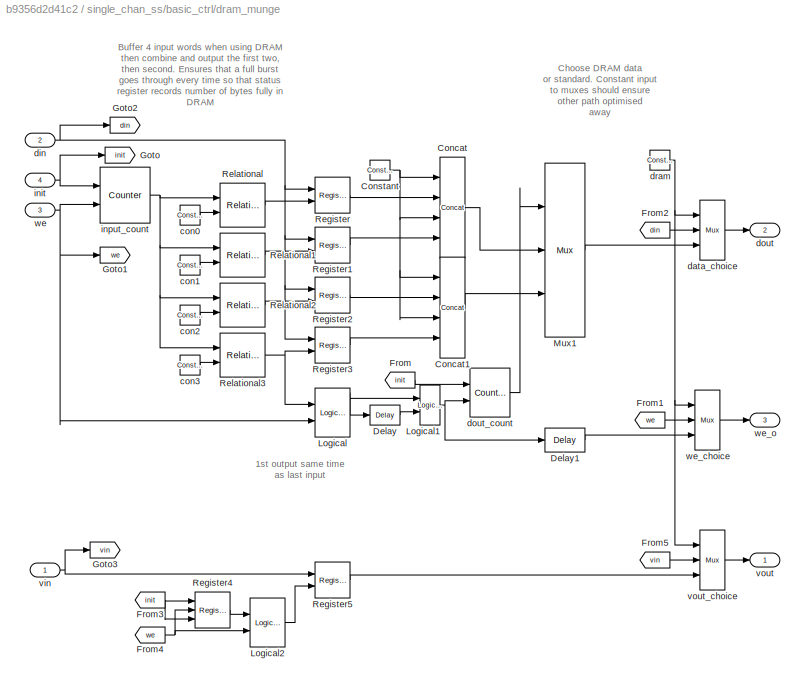
BLOCK [SubSystem] single_chan_ss/basic_ctrl/dram_munge
  Ports = [4, 3]
  RequestExecContextInheritance = off
BLOCK [Reference] single_chan_ss/basic_ctrl/dram_munge/Concat  REF=xbsIndex_r4/Concat
  Ports = [4, 1]
  SourceBlock = xbsIndex_r4/Concat
  SourceType = Xilinx Bus Concatenator Block
BLOCK [Reference] single_chan_ss/basic_ctrl/dram_munge/Concat1  REF=xbsIndex_r4/Concat
  Ports = [4, 1]
  SourceBlock = xbsIndex_r4/Concat
  SourceType = Xilinx Bus Concatenator Block
BLOCK [Reference] single_chan_ss/basic_ctrl/dram_munge/Constant  REF=xbsIndex_r4/Constant
  Ports = [0, 1]
  SourceBlock = xbsIndex_r4/Constant
  SourceType = Xilinx Constant Block Block
BLOCK [Reference] single_chan_ss/basic_ctrl/dram_munge/Delay  REF=xbsIndex_r4/Delay
  Ports = [1, 1]
  SourceBlock = xbsIndex_r4/Delay
  SourceType = Xilinx Delay Block
BLOCK [Reference] single_chan_ss/basic_ctrl/dram_munge/Delay1  REF=xbsIndex_r4/Delay
  Ports = [1, 1]
  SourceBlock = xbsIndex_r4/Delay
  SourceType = Xilinx Delay Block
BLOCK [From] single_chan_ss/basic_ctrl/dram_munge/From
  CloseFcn = tagdialog Close
  GotoTag = init
BLOCK [From] single_chan_ss/basic_ctrl/dram_munge/From1
  CloseFcn = tagdialog Close
  GotoTag = we
BLOCK [From] single_chan_ss/basic_ctrl/dram_munge/From2
  CloseFcn = tagdialog Close
  GotoTag = din
BLOCK [From] single_chan_ss/basic_ctrl/dram_munge/From3
  CloseFcn = tagdialog Close
  GotoTag = init
BLOCK [From] single_chan_ss/basic_ctrl/dram_munge/From4
  CloseFcn = tagdialog Close
  GotoTag = we
BLOCK [From] single_chan_ss/basic_ctrl/dram_munge/From5
  CloseFcn = tagdialog Close
  GotoTag = vin
BLOCK [Goto] single_chan_ss/basic_ctrl/dram_munge/Goto
  GotoTag = init
BLOCK [Goto] single_chan_ss/basic_ctrl/dram_munge/Goto1
  GotoTag = we
BLOCK [Goto] single_chan_ss/basic_ctrl/dram_munge/Goto2
  GotoTag = din
BLOCK [Goto] single_chan_ss/basic_ctrl/dram_munge/Goto3
  GotoTag = vin
BLOCK [Reference] single_chan_ss/basic_ctrl/dram_munge/Logical  REF=xbsIndex_r4/Logical
  Ports = [2, 1]
  SourceBlock = xbsIndex_r4/Logical
  SourceType = Xilinx Logical Block Block
BLOCK [Reference] single_chan_ss/basic_ctrl/dram_munge/Logical1  REF=xbsIndex_r4/Logical
  Ports = [2, 1]
  SourceBlock = xbsIndex_r4/Logical
  SourceType = Xilinx Logical Block Block
BLOCK [Reference] single_chan_ss/basic_ctrl/dram_munge/Logical2  REF=xbsIndex_r4/Logical
  Ports = [2, 1]
  SourceBlock = xbsIndex_r4/Logical
  SourceType = Xilinx Logical Block Block
BLOCK [Reference] single_chan_ss/basic_ctrl/dram_munge/Mux1  REF=xbsIndex_r4/Mux
  Ports = [3, 1]
  SourceBlock = xbsIndex_r4/Mux
  SourceType = Xilinx Bus Multiplexer Block
BLOCK [Reference] single_chan_ss/basic_ctrl/dram_munge/Register  REF=xbsIndex_r4/Register
  Ports = [2, 1]
  SourceBlock = xbsIndex_r4/Register
  SourceType = Xilinx Register Block
BLOCK [Reference] single_chan_ss/basic_ctrl/dram_munge/Register1  REF=xbsIndex_r4/Register
  Ports = [2, 1]
  SourceBlock = xbsIndex_r4/Register
  SourceType = Xilinx Register Block
BLOCK [Reference] single_chan_ss/basic_ctrl/dram_munge/Register2  REF=xbsIndex_r4/Register
  Ports = [2, 1]
  SourceBlock = xbsIndex_r4/Register
  SourceType = Xilinx Register Block
BLOCK [Reference] single_chan_ss/basic_ctrl/dram_munge/Register3  REF=xbsIndex_r4/Register
  Ports = [2, 1]
  SourceBlock = xbsIndex_r4/Register
  SourceType = Xilinx Register Block
BLOCK [Reference] single_chan_ss/basic_ctrl/dram_munge/Register4  REF=xbsIndex_r4/Register
  Ports = [3, 1]
  SourceBlock = xbsIndex_r4/Register
  SourceType = Xilinx Register Block
BLOCK [Reference] single_chan_ss/basic_ctrl/dram_munge/Register5  REF=xbsIndex_r4/Register
  Ports = [2, 1]
  SourceBlock = xbsIndex_r4/Register
  SourceType = Xilinx Register Block
BLOCK [Reference] single_chan_ss/basic_ctrl/dram_munge/Relational  REF=xbsIndex_r4/Relational
  Ports = [2, 1]
  SourceBlock = xbsIndex_r4/Relational
  SourceType = Xilinx Arithmetic Relational Operator Block
BLOCK [Reference] single_chan_ss/basic_ctrl/dram_munge/Relational1  REF=xbsIndex_r4/Relational
  Ports = [2, 1]
  SourceBlock = xbsIndex_r4/Relational
  SourceType = Xilinx Arithmetic Relational Operator Block
BLOCK [Reference] single_chan_ss/basic_ctrl/dram_munge/Relational2  REF=xbsIndex_r4/Relational
  Ports = [2, 1]
  SourceBlock = xbsIndex_r4/Relational
  SourceType = Xilinx Arithmetic Relational Operator Block
BLOCK [Reference] single_chan_ss/basic_ctrl/dram_munge/Relational3  REF=xbsIndex_r4/Relational
  Ports = [2, 1]
  SourceBlock = xbsIndex_r4/Relational
  SourceType = Xilinx Arithmetic Relational Operator Block
BLOCK [Reference] single_chan_ss/basic_ctrl/dram_munge/con0  REF=xbsIndex_r4/Constant
  Ports = [0, 1]
  SourceBlock = xbsIndex_r4/Constant
  SourceType = Xilinx Constant Block Block
BLOCK [Reference] single_chan_ss/basic_ctrl/dram_munge/con1  REF=xbsIndex_r4/Constant
  Ports = [0, 1]
  SourceBlock = xbsIndex_r4/Constant
  SourceType = Xilinx Constant Block Block
BLOCK [Reference] single_chan_ss/basic_ctrl/dram_munge/con2  REF=xbsIndex_r4/Constant
  Ports = [0, 1]
  SourceBlock = xbsIndex_r4/Constant
  SourceType = Xilinx Constant Block Block
BLOCK [Reference] single_chan_ss/basic_ctrl/dram_munge/con3  REF=xbsIndex_r4/Constant
  Ports = [0, 1]
  SourceBlock = xbsIndex_r4/Constant
  SourceType = Xilinx Constant Block Block
BLOCK [Reference] single_chan_ss/basic_ctrl/dram_munge/data_choice  REF=xbsIndex_r4/Mux
  Ports = [3, 1]
  SourceBlock = xbsIndex_r4/Mux
  SourceType = Xilinx Bus Multiplexer Block
BLOCK [Inport] single_chan_ss/basic_ctrl/dram_munge/din
  IconDisplay = Port number
  Port = 2
BLOCK [Outport] single_chan_ss/basic_ctrl/dram_munge/dout
  IconDisplay = Port number
  Port = 2
BLOCK [Reference] single_chan_ss/basic_ctrl/dram_munge/dout_count  REF=xbsIndex_r4/Counter
  Ports = [2, 1]
  SourceBlock = xbsIndex_r4/Counter
  SourceType = Xilinx Counter Block
BLOCK [Reference] single_chan_ss/basic_ctrl/dram_munge/dram  REF=xbsIndex_r4/Constant
  Ports = [0, 1]
  SourceBlock = xbsIndex_r4/Constant
  SourceType = Xilinx Constant Block Block
BLOCK [Inport] single_chan_ss/basic_ctrl/dram_munge/init
  IconDisplay = Port number
  Port = 4
BLOCK [Reference] single_chan_ss/basic_ctrl/dram_munge/input_count  REF=xbsIndex_r4/Counter
  Ports = [2, 1]
  SourceBlock = xbsIndex_r4/Counter
  SourceType = Xilinx Counter Block
BLOCK [Inport] single_chan_ss/basic_ctrl/dram_munge/vin
  IconDisplay = Port number
BLOCK [Outport] single_chan_ss/basic_ctrl/dram_munge/vout
  IconDisplay = Port number
BLOCK [Reference] single_chan_ss/basic_ctrl/dram_munge/vout_choice  REF=xbsIndex_r4/Mux
  Ports = [3, 1]
  SourceBlock = xbsIndex_r4/Mux
  SourceType = Xilinx Bus Multiplexer Block
BLOCK [Inport] single_chan_ss/basic_ctrl/dram_munge/we
  IconDisplay = Port number
  Port = 3
BLOCK [Reference] single_chan_ss/basic_ctrl/dram_munge/we_choice  REF=xbsIndex_r4/Mux
  Ports = [3, 1]
  SourceBlock = xbsIndex_r4/Mux
  SourceType = Xilinx Bus Multiplexer Block
BLOCK [Outport] single_chan_ss/basic_ctrl/dram_munge/we_o
  IconDisplay = Port number
  Port = 3
BLOCK [Reference] single_chan_ss/basic_ctrl/edge_detect  REF=casper_library_misc/edge_detect  (lib defined in mdl_357510c33b49, mdl_57b5f564ae26, +4 more)
  AttributesFormatString = rising edges\nactive high
  Ports = [1, 1]
  SourceBlock = casper_library_misc/edge_detect
  SourceProductName = CASPER DSP Blockset
  SourceType = edge_detect
  UserDataPersistent = on
BLOCK [Reference] single_chan_ss/basic_ctrl/enable  REF=xbsIndex_r4/Slice
  Ports = [1, 1]
  SourceBlock = xbsIndex_r4/Slice
  SourceType = Xilinx Bit Slice Extractor Block
BLOCK [Outport] single_chan_ss/basic_ctrl/go
  IconDisplay = Port number
  Port = 4
BLOCK [Outport] single_chan_ss/basic_ctrl/init
  IconDisplay = Port number
  Port = 6
BLOCK [Outport] single_chan_ss/basic_ctrl/stop
  IconDisplay = Port number
  Port = 5
BLOCK [Inport] single_chan_ss/basic_ctrl/stopi
  IconDisplay = Port number
  Port = 6
BLOCK [Inport] single_chan_ss/basic_ctrl/trig
  IconDisplay = Port number
  Port = 4
BLOCK [Reference] single_chan_ss/basic_ctrl/trig_src  REF=xbsIndex_r4/Slice
  Ports = [1, 1]
  SourceBlock = xbsIndex_r4/Slice
  SourceType = Xilinx Bit Slice Extractor Block
BLOCK [Reference] single_chan_ss/basic_ctrl/valid_src  REF=xbsIndex_r4/Slice
  Ports = [1, 1]
  SourceBlock = xbsIndex_r4/Slice
  SourceType = Xilinx Bit Slice Extractor Block
BLOCK [Inport] single_chan_ss/basic_ctrl/vin
  IconDisplay = Port number
BLOCK [Outport] single_chan_ss/basic_ctrl/vout
  IconDisplay = Port number
BLOCK [Inport] single_chan_ss/basic_ctrl/we
  IconDisplay = Port number
  Port = 3
BLOCK [Outport] single_chan_ss/basic_ctrl/we_o
  IconDisplay = Port number
  Port = 3
BLOCK [SubSystem] single_chan_ss/bram
  AncestorBlock = xps_library/Memory/shared_bram
  Ports = [3, 1]
  RequestExecContextInheritance = off
  Tag = xps:bram
BLOCK [Terminator] single_chan_ss/bram/Terminator
BLOCK [Terminator] single_chan_ss/bram/Terminator1
BLOCK [Terminator] single_chan_ss/bram/Terminator2
BLOCK [Inport] single_chan_ss/bram/addr
  IconDisplay = Port number
BLOCK [Reference] single_chan_ss/bram/ads5296_snap2_single_chan_ss_bram_addr  REF=xbsIndex_r4/Gateway Out
  Ports = [1, 1]
  SourceBlock = xbsIndex_r4/Gateway Out
  SourceType = Xilinx Gateway Out Block
BLOCK [Reference] single_chan_ss/bram/ads5296_snap2_single_chan_ss_bram_data_in  REF=xbsIndex_r4/Gateway Out
  Ports = [1, 1]
  SourceBlock = xbsIndex_r4/Gateway Out
  SourceType = Xilinx Gateway Out Block
BLOCK [Reference] single_chan_ss/bram/ads5296_snap2_single_chan_ss_bram_data_out  REF=xbsIndex_r4/Gateway In
  Ports = [1, 1]
  SourceBlock = xbsIndex_r4/Gateway In
  SourceType = Xilinx Gateway In Block
BLOCK [Reference] single_chan_ss/bram/ads5296_snap2_single_chan_ss_bram_we  REF=xbsIndex_r4/Gateway Out
  Ports = [1, 1]
  SourceBlock = xbsIndex_r4/Gateway Out
  SourceType = Xilinx Gateway Out Block
BLOCK [SubSystem] single_chan_ss/bram/calc_add
  Ports = [1, 1]
  RequestExecContextInheritance = off
BLOCK [Reference] single_chan_ss/bram/calc_add/add_sub  REF=xbsIndex_r4/AddSub
  Ports = [2, 1]
  SourceBlock = xbsIndex_r4/AddSub
  SourceType = Xilinx Adder/Subtracter Block
BLOCK [Reference] single_chan_ss/bram/calc_add/concat  REF=xbsIndex_r4/Concat
  Ports = [2, 1]
  SourceBlock = xbsIndex_r4/Concat
  SourceType = Xilinx Bus Concatenator Block
BLOCK [Reference] single_chan_ss/bram/calc_add/const  REF=xbsIndex_r4/Constant
  Ports = [0, 1]
  SourceBlock = xbsIndex_r4/Constant
  SourceType = Xilinx Constant Block Block
BLOCK [Reference] single_chan_ss/bram/calc_add/convert_addr  REF=xbsIndex_r4/Convert
  Ports = [1, 1]
  SourceBlock = xbsIndex_r4/Convert
  SourceType = Xilinx Type Converter Block
BLOCK [Inport] single_chan_ss/bram/calc_add/in
  IconDisplay = Port number
BLOCK [Reference] single_chan_ss/bram/calc_add/lsw  REF=xbsIndex_r4/Slice
  Ports = [1, 1]
  SourceBlock = xbsIndex_r4/Slice
  SourceType = Xilinx Bit Slice Extractor Block
BLOCK [Reference] single_chan_ss/bram/calc_add/manipulate  REF=xbsIndex_r4/Constant
  Ports = [0, 1]
  SourceBlock = xbsIndex_r4/Constant
  SourceType = Xilinx Constant Block Block
BLOCK [Reference] single_chan_ss/bram/calc_add/msw  REF=xbsIndex_r4/Slice
  Ports = [1, 1]
  SourceBlock = xbsIndex_r4/Slice
  SourceType = Xilinx Bit Slice Extractor Block
BLOCK [Reference] single_chan_ss/bram/calc_add/mux  REF=xbsIndex_r4/Mux
  Ports = [3, 1]
  SourceBlock = xbsIndex_r4/Mux
  SourceType = Xilinx Bus Multiplexer Block
BLOCK [Outport] single_chan_ss/bram/calc_add/out
  IconDisplay = Port number
BLOCK [Reference] single_chan_ss/bram/convert_addr  REF=xbsIndex_r4/Convert
  Ports = [1, 1]
  SourceBlock = xbsIndex_r4/Convert
  SourceType = Xilinx Type Converter Block
BLOCK [Reference] single_chan_ss/bram/convert_din1  REF=xbsIndex_r4/Convert
  Ports = [1, 1]
  SourceBlock = xbsIndex_r4/Convert
  SourceType = Xilinx Type Converter Block
BLOCK [Reference] single_chan_ss/bram/convert_we  REF=xbsIndex_r4/Convert
  Ports = [1, 1]
  SourceBlock = xbsIndex_r4/Convert
  SourceType = Xilinx Type Converter Block
BLOCK [Inport] single_chan_ss/bram/data_in
  IconDisplay = Port number
  Port = 2
BLOCK [Outport] single_chan_ss/bram/data_out
  IconDisplay = Port number
BLOCK [SubSystem] single_chan_ss/bram/munge_in
  AncestorBlock = casper_library_flow_control/munge
  AttributesFormatString = split:16\njoin:0\nUnsigned [16,0]
  Ports = [1, 1]
  RequestExecContextInheritance = off
  UserDataPersistent = on
BLOCK [Inport] single_chan_ss/bram/munge_in/din
  IconDisplay = Port number
BLOCK [Outport] single_chan_ss/bram/munge_in/dout
  IconDisplay = Port number
BLOCK [Reference] single_chan_ss/bram/munge_in/reinterpret_out  REF=xbsIndex_r4/Reinterpret
  Ports = [1, 1]
  SourceBlock = xbsIndex_r4/Reinterpret
  SourceType = Xilinx Type Reinterpreter Block
BLOCK [SubSystem] single_chan_ss/bram/munge_out
  AncestorBlock = casper_library_flow_control/munge
  AttributesFormatString = split:16\njoin:0\nUnsigned [16,0]
  Ports = [1, 1]
  RequestExecContextInheritance = off
  UserDataPersistent = on
BLOCK [Inport] single_chan_ss/bram/munge_out/din
  IconDisplay = Port number
BLOCK [Outport] single_chan_ss/bram/munge_out/dout
  IconDisplay = Port number
BLOCK [Reference] single_chan_ss/bram/munge_out/reinterpret_out  REF=xbsIndex_r4/Reinterpret
  Ports = [1, 1]
  SourceBlock = xbsIndex_r4/Reinterpret
  SourceType = Xilinx Type Reinterpreter Block
BLOCK [SubSystem] single_chan_ss/bram/sim_mem
  Ports = [3, 1]
  RequestExecContextInheritance = off
BLOCK [DataTypeConversion] single_chan_ss/bram/sim_mem/Data Type Conversion
  OutDataTypeStr = single
  RndMeth = Floor
  SaturateOnIntegerOverflow = off
BLOCK [DataTypeConversion] single_chan_ss/bram/sim_mem/Data Type Conversion1
  OutDataTypeStr = double
  RndMeth = Floor
  SaturateOnIntegerOverflow = off
BLOCK [DataTypeConversion] single_chan_ss/bram/sim_mem/Data Type Conversion2
  OutDataTypeStr = boolean
  RndMeth = Floor
  SaturateOnIntegerOverflow = off
BLOCK [Inport] single_chan_ss/bram/sim_mem/addr
  IconDisplay = Port number
BLOCK [Inport] single_chan_ss/bram/sim_mem/data
  IconDisplay = Port number
  Port = 2
BLOCK [Outport] single_chan_ss/bram/sim_mem/data_out
  IconDisplay = Port number
BLOCK [M-S-Function] single_chan_ss/bram/sim_mem/sfunc
  FunctionName = shared_bram_sim_sfunc
  Parameters = depth_bits, latency, init_vals
  Ports = [3, 1]
BLOCK [Reference] single_chan_ss/bram/sim_mem/sim_addr  REF=xbsIndex_r4/Gateway Out
  Ports = [1, 1]
  SourceBlock = xbsIndex_r4/Gateway Out
  SourceType = Xilinx Gateway Out Block
BLOCK [Reference] single_chan_ss/bram/sim_mem/sim_data  REF=xbsIndex_r4/Gateway Out
  Ports = [1, 1]
  SourceBlock = xbsIndex_r4/Gateway Out
  SourceType = Xilinx Gateway Out Block
BLOCK [Reference] single_chan_ss/bram/sim_mem/sim_we  REF=xbsIndex_r4/Gateway Out
  Ports = [1, 1]
  SourceBlock = xbsIndex_r4/Gateway Out
  SourceType = Xilinx Gateway Out Block
BLOCK [Inport] single_chan_ss/bram/sim_mem/we
  IconDisplay = Port number
  Port = 3
BLOCK [Inport] single_chan_ss/bram/we
  IconDisplay = Port number
  Port = 3
BLOCK [Reference] single_chan_ss/cast  REF=xbsIndex_r4/Convert
  Ports = [1, 1]
  SourceBlock = xbsIndex_r4/Convert
  SourceType = Xilinx Type Converter Block
BLOCK [Reference] single_chan_ss/circ  REF=xbsIndex_r4/Constant
  Ports = [0, 1]
  SourceBlock = xbsIndex_r4/Constant
  SourceType = Xilinx Constant Block Block
BLOCK [Reference] single_chan_ss/circ_or  REF=xbsIndex_r4/Logical
  Ports = [2, 1]
  SourceBlock = xbsIndex_r4/Logical
  SourceType = Xilinx Logical Block Block
BLOCK [SubSystem] single_chan_ss/ctrl
  AncestorBlock = xps_library/Memory/software_register
  AttributesFormatString = 1input:uf32.0 = 32 bits
  Ports = [0, 1]
  RequestExecContextInheritance = off
  Tag = xps:sw_reg
BLOCK [Reference] single_chan_ss/ctrl/ads5296_snap2_single_chan_ss_ctrl_user_data_out  REF=xbsIndex_r4/Gateway In
  Ports = [1, 1]
  SourceBlock = xbsIndex_r4/Gateway In
  SourceType = Xilinx Gateway In Block
BLOCK [DataTypeConversion] single_chan_ss/ctrl/convert1_1
  LockScale = on
  OutDataTypeStr = fixdt('ufix32_En0')
  RndMeth = Floor
  SaturateOnIntegerOverflow = off
BLOCK [DataTypeConversion] single_chan_ss/ctrl/convert2_1
  ConvertRealWorld = Stored Integer (SI)
  LockScale = on
  OutDataTypeStr = fixdt('ufix32_En0')
  RndMeth = Floor
  SaturateOnIntegerOverflow = off
BLOCK [Gain] single_chan_ss/ctrl/gain_1
  OutDataTypeStr = Inherit: Inherit via internal rule
  ParamDataTypeStr = Inherit: Inherit via internal rule
  SaturateOnIntegerOverflow = off
BLOCK [Outport] single_chan_ss/ctrl/in_reg
  IconDisplay = Port number
BLOCK [Reference] single_chan_ss/ctrl/io_delay  REF=xbsIndex_r4/Delay
  Ports = [1, 1]
  SourceBlock = xbsIndex_r4/Delay
  SourceType = Xilinx Delay Block
BLOCK [Reference] single_chan_ss/ctrl/reint1  REF=xbsIndex_r4/Reinterpret
  Ports = [1, 1]
  SourceBlock = xbsIndex_r4/Reinterpret
  SourceType = Xilinx Type Reinterpreter Block
BLOCK [Constant] single_chan_ss/ctrl/sim_1
  Value = 0
BLOCK [Reference] single_chan_ss/ctrl/slice_reg  REF=xbsIndex_r4/Slice
  Ports = [1, 1]
  SourceBlock = xbsIndex_r4/Slice
  SourceType = Xilinx Bit Slice Extractor Block
BLOCK [SubSystem] single_chan_ss/ctrl_combine
  AncestorBlock = casper_library_flow_control/bus_create
  Ports = [4, 1]
  RequestExecContextInheritance = off
  UserDataPersistent = on
BLOCK [Outport] single_chan_ss/ctrl_combine/bus_out
  IconDisplay = Port number
BLOCK [Reference] single_chan_ss/ctrl_combine/concatenate  REF=xbsIndex_r4/Concat
  Ports = [4, 1]
  SourceBlock = xbsIndex_r4/Concat
  SourceType = Xilinx Bus Concatenator Block
BLOCK [Inport] single_chan_ss/ctrl_combine/in1
  IconDisplay = Port number
BLOCK [Inport] single_chan_ss/ctrl_combine/in2
  IconDisplay = Port number
  Port = 2
BLOCK [Inport] single_chan_ss/ctrl_combine/in3
  IconDisplay = Port number
  Port = 3
BLOCK [Inport] single_chan_ss/ctrl_combine/in4
  IconDisplay = Port number
  Port = 4
BLOCK [Reference] single_chan_ss/ctrl_combine/reinterpret1  REF=xbsIndex_r4/Reinterpret
  Ports = [1, 1]
  SourceBlock = xbsIndex_r4/Reinterpret
  SourceType = Xilinx Type Reinterpreter Block
BLOCK [Reference] single_chan_ss/ctrl_combine/reinterpret2  REF=xbsIndex_r4/Reinterpret
  Ports = [1, 1]
  SourceBlock = xbsIndex_r4/Reinterpret
  SourceType = Xilinx Type Reinterpreter Block
BLOCK [Reference] single_chan_ss/ctrl_combine/reinterpret3  REF=xbsIndex_r4/Reinterpret
  Ports = [1, 1]
  SourceBlock = xbsIndex_r4/Reinterpret
  SourceType = Xilinx Type Reinterpreter Block
BLOCK [Reference] single_chan_ss/ctrl_combine/reinterpret4  REF=xbsIndex_r4/Reinterpret
  Ports = [1, 1]
  SourceBlock = xbsIndex_r4/Reinterpret
  SourceType = Xilinx Type Reinterpreter Block
BLOCK [SubSystem] single_chan_ss/ctrl_split
  AncestorBlock = casper_library_flow_control/bus_expand
  AttributesFormatString = 4 outputs: uf28.0,b,uf2.0,b,
  Ports = [1, 4]
  RequestExecContextInheritance = off
  UserDataPersistent = on
BLOCK [Inport] single_chan_ss/ctrl_split/bus_in
  IconDisplay = Port number
BLOCK [Outport] single_chan_ss/ctrl_split/lsb_out1
  IconDisplay = Port number
  Port = 4
BLOCK [Outport] single_chan_ss/ctrl_split/msb_out4
  IconDisplay = Port number
BLOCK [Outport] single_chan_ss/ctrl_split/out2
  IconDisplay = Port number
  Port = 3
BLOCK [Outport] single_chan_ss/ctrl_split/out3
  IconDisplay = Port number
  Port = 2
BLOCK [Reference] single_chan_ss/ctrl_split/reinterpret2  REF=xbsIndex_r4/Reinterpret
  Ports = [1, 1]
  SourceBlock = xbsIndex_r4/Reinterpret
  SourceType = Xilinx Type Reinterpreter Block
BLOCK [Reference] single_chan_ss/ctrl_split/reinterpret4  REF=xbsIndex_r4/Reinterpret
  Ports = [1, 1]
  SourceBlock = xbsIndex_r4/Reinterpret
  SourceType = Xilinx Type Reinterpreter Block
BLOCK [Reference] single_chan_ss/ctrl_split/slice1  REF=xbsIndex_r4/Slice
  Ports = [1, 1]
  SourceBlock = xbsIndex_r4/Slice
  SourceType = Xilinx Bit Slice Extractor Block
BLOCK [Reference] single_chan_ss/ctrl_split/slice2  REF=xbsIndex_r4/Slice
  Ports = [1, 1]
  SourceBlock = xbsIndex_r4/Slice
  SourceType = Xilinx Bit Slice Extractor Block
BLOCK [Reference] single_chan_ss/ctrl_split/slice3  REF=xbsIndex_r4/Slice
  Ports = [1, 1]
  SourceBlock = xbsIndex_r4/Slice
  SourceType = Xilinx Bit Slice Extractor Block
BLOCK [Reference] single_chan_ss/ctrl_split/slice4  REF=xbsIndex_r4/Slice
  Ports = [1, 1]
  SourceBlock = xbsIndex_r4/Slice
  SourceType = Xilinx Bit Slice Extractor Block
BLOCK [Reference] single_chan_ss/dat_del  REF=xbsIndex_r4/Delay
  Ports = [1, 1]
  SourceBlock = xbsIndex_r4/Delay
  SourceType = Xilinx Delay Block
BLOCK [Inport] single_chan_ss/din
  IconDisplay = Port number
BLOCK [Terminator] single_chan_ss/g_tr_en_cnt
BLOCK [Terminator] single_chan_ss/gbram
BLOCK [Goto] single_chan_ss/goto_ss_we1
  GotoTag = goto_42020996_we1
  TagVisibility = global
BLOCK [Goto] single_chan_ss/goto_ss_we2
  GotoTag = goto_42020996_we2
  TagVisibility = global
BLOCK [Reference] single_chan_ss/goto_ss_we2_const  REF=xbsIndex_r4/Constant
  Ports = [0, 1]
  SourceBlock = xbsIndex_r4/Constant
  SourceType = Xilinx Constant Block Block
BLOCK [Goto] single_chan_ss/goto_ss_we3
  GotoTag = goto_42020996_we3
  TagVisibility = global
BLOCK [Reference] single_chan_ss/goto_ss_we3_const  REF=xbsIndex_r4/Constant
  Ports = [0, 1]
  SourceBlock = xbsIndex_r4/Constant
  SourceType = Xilinx Constant Block Block
BLOCK [Goto] single_chan_ss/goto_ss_we4
  GotoTag = goto_42020996_we4
  TagVisibility = global
BLOCK [Terminator] single_chan_ss/gval
BLOCK [Reference] single_chan_ss/never  REF=xbsIndex_r4/Constant
  Ports = [0, 1]
  SourceBlock = xbsIndex_r4/Constant
  SourceType = Xilinx Constant Block Block
BLOCK [Reference] single_chan_ss/ri  REF=xbsIndex_r4/Reinterpret
  Ports = [1, 1]
  SourceBlock = xbsIndex_r4/Reinterpret
  SourceType = Xilinx Type Reinterpreter Block
BLOCK [SubSystem] single_chan_ss/status
  AncestorBlock = xps_library/Memory/software_register
  AttributesFormatString = 1output:uf32.0 = 32 bits
  Ports = [1]
  RequestExecContextInheritance = off
  Tag = xps:sw_reg
BLOCK [Reference] single_chan_ss/status/ads5296_snap2_single_chan_ss_status_user_data_in  REF=xbsIndex_r4/Gateway Out
  Ports = [1, 1]
  SourceBlock = xbsIndex_r4/Gateway Out
  SourceType = Xilinx Gateway Out Block
BLOCK [Reference] single_chan_ss/status/assert_reg  REF=xbsIndex_r4/Assert
  Ports = [1, 1]
  SourceBlock = xbsIndex_r4/Assert
  SourceType = Xilinx Assert Block
BLOCK [Reference] single_chan_ss/status/cast_gw  REF=xbsIndex_r4/Convert
  Ports = [1, 1]
  SourceBlock = xbsIndex_r4/Convert
  SourceType = Xilinx Type Converter Block
BLOCK [Reference] single_chan_ss/status/io_delay  REF=xbsIndex_r4/Delay
  Ports = [1, 1]
  SourceBlock = xbsIndex_r4/Delay
  SourceType = Xilinx Delay Block
BLOCK [Inport] single_chan_ss/status/out_reg
  IconDisplay = Port number
BLOCK [Reference] single_chan_ss/status/reint1  REF=xbsIndex_r4/Reinterpret
  Ports = [1, 1]
  SourceBlock = xbsIndex_r4/Reinterpret
  SourceType = Xilinx Type Reinterpreter Block
BLOCK [Terminator] single_chan_ss/status/sim_out
BLOCK [Inport] single_chan_ss/trig
  IconDisplay = Port number
  Port = 3
BLOCK [Reference] single_chan_ss/vin_const  REF=xbsIndex_r4/Constant
  Ports = [0, 1]
  SourceBlock = xbsIndex_r4/Constant
  SourceType = Xilinx Constant Block Block
BLOCK [Inport] single_chan_ss/we
  IconDisplay = Port number
  Port = 2
BLOCK [Reference] single_chan_ss/we_del  REF=xbsIndex_r4/Delay
  Ports = [1, 1]
  SourceBlock = xbsIndex_r4/Delay
  SourceType = Xilinx Delay Block
BLOCK [SubSystem] snapshot0
  Ports = [5, 1]
  RequestExecContextInheritance = off
BLOCK [Reference] snapshot0/Constant  REF=xbsIndex_r4/Constant
  Ports = [0, 1]
  SourceBlock = xbsIndex_r4/Constant
  SourceType = Xilinx Constant Block Block
BLOCK [Reference] snapshot0/Convert  REF=xbsIndex_r4/Convert
  Ports = [1, 1]
  SourceBlock = xbsIndex_r4/Convert
  SourceType = Xilinx Type Converter Block
BLOCK [Reference] snapshot0/Convert1  REF=xbsIndex_r4/Convert
  Ports = [1, 1]
  SourceBlock = xbsIndex_r4/Convert
  SourceType = Xilinx Type Converter Block
BLOCK [Reference] snapshot0/Convert2  REF=xbsIndex_r4/Convert
  Ports = [1, 1]
  SourceBlock = xbsIndex_r4/Convert
  SourceType = Xilinx Type Converter Block
BLOCK [Reference] snapshot0/Convert3  REF=xbsIndex_r4/Convert
  Ports = [1, 1]
  SourceBlock = xbsIndex_r4/Convert
  SourceType = Xilinx Type Converter Block
BLOCK [From] snapshot0/From7
  GotoTag = sync
  TagVisibility = global
BLOCK [Outport] snapshot0/arm
  IconDisplay = Port number
BLOCK [Inport] snapshot0/arm_in
  IconDisplay = Port number
  Port = 5
BLOCK [SubSystem] snapshot0/bus_create
  AncestorBlock = casper_library_flow_control/bus_create
  Ports = [4, 1]
  RequestExecContextInheritance = off
  UserDataPersistent = on
BLOCK [Outport] snapshot0/bus_create/bus_out
  IconDisplay = Port number
BLOCK [Reference] snapshot0/bus_create/concatenate  REF=xbsIndex_r4/Concat
  Ports = [4, 1]
  SourceBlock = xbsIndex_r4/Concat
  SourceType = Xilinx Bus Concatenator Block
BLOCK [Inport] snapshot0/bus_create/in1
  IconDisplay = Port number
BLOCK [Inport] snapshot0/bus_create/in2
  IconDisplay = Port number
  Port = 2
BLOCK [Inport] snapshot0/bus_create/in3
  IconDisplay = Port number
  Port = 3
BLOCK [Inport] snapshot0/bus_create/in4
  IconDisplay = Port number
  Port = 4
BLOCK [Reference] snapshot0/bus_create/reinterpret1  REF=xbsIndex_r4/Reinterpret
  Ports = [1, 1]
  SourceBlock = xbsIndex_r4/Reinterpret
  SourceType = Xilinx Type Reinterpreter Block
BLOCK [Reference] snapshot0/bus_create/reinterpret2  REF=xbsIndex_r4/Reinterpret
  Ports = [1, 1]
  SourceBlock = xbsIndex_r4/Reinterpret
  SourceType = Xilinx Type Reinterpreter Block
BLOCK [Reference] snapshot0/bus_create/reinterpret3  REF=xbsIndex_r4/Reinterpret
  Ports = [1, 1]
  SourceBlock = xbsIndex_r4/Reinterpret
  SourceType = Xilinx Type Reinterpreter Block
BLOCK [Reference] snapshot0/bus_create/reinterpret4  REF=xbsIndex_r4/Reinterpret
  Ports = [1, 1]
  SourceBlock = xbsIndex_r4/Reinterpret
  SourceType = Xilinx Type Reinterpreter Block
BLOCK [Inport] snapshot0/din0
  IconDisplay = Port number
BLOCK [Inport] snapshot0/din1
  IconDisplay = Port number
  Port = 2
BLOCK [Inport] snapshot0/din2
  IconDisplay = Port number
  Port = 3
BLOCK [Inport] snapshot0/din3
  IconDisplay = Port number
  Port = 4
BLOCK [SubSystem] snapshot0/snapshot
  AncestorBlock = casper_library_scopes/snapshot
  AttributesFormatString = 64 wide, 1024 deep\ndebugID: 15928564
  Ports = [4, 1]
  RequestExecContextInheritance = off
  Tag = casper:snapshot
  UserDataPersistent = on
BLOCK [Reference] snapshot0/snapshot/add_del  REF=xbsIndex_r4/Delay
  Ports = [1, 1]
  SourceBlock = xbsIndex_r4/Delay
  SourceType = Xilinx Delay Block
BLOCK [SubSystem] snapshot0/snapshot/add_gen
  AncestorBlock = casper_library_scopes/snapshot/add_gen
  Ports = [6, 7]
  RequestExecContextInheritance = off
BLOCK [Reference] snapshot0/snapshot/add_gen/Concat  REF=xbsIndex_r4/Concat
  Ports = [3, 1]
  SourceBlock = xbsIndex_r4/Concat
  SourceType = Xilinx Bus Concatenator Block
BLOCK [Reference] snapshot0/snapshot/add_gen/Convert  REF=xbsIndex_r4/Convert
  Ports = [1, 1]
  SourceBlock = xbsIndex_r4/Convert
  SourceType = Xilinx Type Converter Block
BLOCK [Reference] snapshot0/snapshot/add_gen/Delay  REF=xbsIndex_r4/Delay
  Ports = [1, 1]
  SourceBlock = xbsIndex_r4/Delay
  SourceType = Xilinx Delay Block
BLOCK [Reference] snapshot0/snapshot/add_gen/Delay1  REF=xbsIndex_r4/Delay
  Ports = [1, 1]
  SourceBlock = xbsIndex_r4/Delay
  SourceType = Xilinx Delay Block
BLOCK [Reference] snapshot0/snapshot/add_gen/Delay2  REF=xbsIndex_r4/Delay
  Ports = [1, 1]
  SourceBlock = xbsIndex_r4/Delay
  SourceType = Xilinx Delay Block
BLOCK [Reference] snapshot0/snapshot/add_gen/Delay3  REF=xbsIndex_r4/Delay
  Ports = [1, 1]
  SourceBlock = xbsIndex_r4/Delay
  SourceType = Xilinx Delay Block
BLOCK [Reference] snapshot0/snapshot/add_gen/Delay4  REF=xbsIndex_r4/Delay
  Ports = [1, 1]
  SourceBlock = xbsIndex_r4/Delay
  SourceType = Xilinx Delay Block
BLOCK [Reference] snapshot0/snapshot/add_gen/Delay5  REF=xbsIndex_r4/Delay
  Ports = [1, 1]
  SourceBlock = xbsIndex_r4/Delay
  SourceType = Xilinx Delay Block
BLOCK [Reference] snapshot0/snapshot/add_gen/Delay6  REF=xbsIndex_r4/Delay
  Ports = [1, 1]
  SourceBlock = xbsIndex_r4/Delay
  SourceType = Xilinx Delay Block
BLOCK [Reference] snapshot0/snapshot/add_gen/Delay7  REF=xbsIndex_r4/Delay
  Ports = [1, 1]
  SourceBlock = xbsIndex_r4/Delay
  SourceType = Xilinx Delay Block
BLOCK [Reference] snapshot0/snapshot/add_gen/Inverter  REF=xbsIndex_r4/Inverter
  Ports = [1, 1]
  SourceBlock = xbsIndex_r4/Inverter
  SourceType = Xilinx Inverter Block
BLOCK [Reference] snapshot0/snapshot/add_gen/Inverter1  REF=xbsIndex_r4/Inverter
  Ports = [1, 1]
  SourceBlock = xbsIndex_r4/Inverter
  SourceType = Xilinx Inverter Block
BLOCK [Reference] snapshot0/snapshot/add_gen/Logical1  REF=xbsIndex_r4/Logical
  Ports = [2, 1]
  SourceBlock = xbsIndex_r4/Logical
  SourceType = Xilinx Logical Block Block
BLOCK [Reference] snapshot0/snapshot/add_gen/Logical2  REF=xbsIndex_r4/Logical
  Ports = [2, 1]
  SourceBlock = xbsIndex_r4/Logical
  SourceType = Xilinx Logical Block Block
BLOCK [Reference] snapshot0/snapshot/add_gen/Logical4  REF=xbsIndex_r4/Logical
  Ports = [2, 1]
  SourceBlock = xbsIndex_r4/Logical
  SourceType = Xilinx Logical Block Block
BLOCK [Reference] snapshot0/snapshot/add_gen/Logical6  REF=xbsIndex_r4/Logical
  Ports = [3, 1]
  SourceBlock = xbsIndex_r4/Logical
  SourceType = Xilinx Logical Block Block
BLOCK [Reference] snapshot0/snapshot/add_gen/Register3  REF=xbsIndex_r4/Register
  Ports = [3, 1]
  SourceBlock = xbsIndex_r4/Register
  SourceType = Xilinx Register Block
BLOCK [Reference] snapshot0/snapshot/add_gen/Register4  REF=xbsIndex_r4/Register
  Ports = [2, 1]
  SourceBlock = xbsIndex_r4/Register
  SourceType = Xilinx Register Block
BLOCK [Reference] snapshot0/snapshot/add_gen/Register5  REF=xbsIndex_r4/Register
  Ports = [3, 1]
  SourceBlock = xbsIndex_r4/Register
  SourceType = Xilinx Register Block
BLOCK [Reference] snapshot0/snapshot/add_gen/Shift  REF=xbsIndex_r4/Shift
  Ports = [1, 1]
  SourceBlock = xbsIndex_r4/Shift
  SourceType = Xilinx Binary Shift Operator Block
BLOCK [Outport] snapshot0/snapshot/add_gen/add
  IconDisplay = Port number
  Port = 2
BLOCK [Reference] snapshot0/snapshot/add_gen/add_gen  REF=xbsIndex_r4/Counter
  Ports = [2, 1]
  SourceBlock = xbsIndex_r4/Counter
  SourceType = Xilinx Counter Block
BLOCK [Inport] snapshot0/snapshot/add_gen/cont
  IconDisplay = Port number
  Port = 5
BLOCK [Inport] snapshot0/snapshot/add_gen/din
  IconDisplay = Port number
  Port = 2
BLOCK [Outport] snapshot0/snapshot/add_gen/done
  IconDisplay = Port number
  Port = 7
BLOCK [Outport] snapshot0/snapshot/add_gen/dout
  IconDisplay = Port number
  Port = 3
BLOCK [SubSystem] snapshot0/snapshot/add_gen/edge_detect
  AncestorBlock = casper_library_misc/edge_detect
  AttributesFormatString = both edges\nactive high
  Ports = [1, 1]
  RequestExecContextInheritance = off
  UserDataPersistent = on
BLOCK [Reference] snapshot0/snapshot/add_gen/edge_detect/Delay  REF=xbsIndex_r4/Delay
  Ports = [1, 1]
  SourceBlock = xbsIndex_r4/Delay
  SourceType = Xilinx Delay Block
BLOCK [Reference] snapshot0/snapshot/add_gen/edge_detect/Inverter  REF=xbsIndex_r4/Inverter
  Ports = [1, 1]
  SourceBlock = xbsIndex_r4/Inverter
  SourceType = Xilinx Inverter Block
BLOCK [Reference] snapshot0/snapshot/add_gen/edge_detect/edge_op  REF=xbsIndex_r4/Logical
  Ports = [2, 1]
  SourceBlock = xbsIndex_r4/Logical
  SourceType = Xilinx Logical Block Block
BLOCK [Inport] snapshot0/snapshot/add_gen/edge_detect/in
  IconDisplay = Port number
BLOCK [Outport] snapshot0/snapshot/add_gen/edge_detect/out
  IconDisplay = Port number
BLOCK [SubSystem] snapshot0/snapshot/add_gen/edge_detect1
  AncestorBlock = casper_library_scopes/snapshot/add_gen/edge_detect
  AttributesFormatString = both edges\nactive high
  Ports = [1, 1]
  RequestExecContextInheritance = off
  UserDataPersistent = on
BLOCK [Reference] snapshot0/snapshot/add_gen/edge_detect1/Delay  REF=xbsIndex_r4/Delay
  Ports = [1, 1]
  SourceBlock = xbsIndex_r4/Delay
  SourceType = Xilinx Delay Block
BLOCK [Reference] snapshot0/snapshot/add_gen/edge_detect1/Inverter  REF=xbsIndex_r4/Inverter
  Ports = [1, 1]
  SourceBlock = xbsIndex_r4/Inverter
  SourceType = Xilinx Inverter Block
BLOCK [Reference] snapshot0/snapshot/add_gen/edge_detect1/edge_op  REF=xbsIndex_r4/Logical
  Ports = [2, 1]
  SourceBlock = xbsIndex_r4/Logical
  SourceType = Xilinx Logical Block Block
BLOCK [Inport] snapshot0/snapshot/add_gen/edge_detect1/in
  IconDisplay = Port number
BLOCK [Outport] snapshot0/snapshot/add_gen/edge_detect1/out
  IconDisplay = Port number
BLOCK [Outport] snapshot0/snapshot/add_gen/en_cnt
  IconDisplay = Port number
  Port = 6
BLOCK [Inport] snapshot0/snapshot/add_gen/go
  IconDisplay = Port number
  Port = 4
BLOCK [Inport] snapshot0/snapshot/add_gen/init
  IconDisplay = Port number
  Port = 6
BLOCK [Reference] snapshot0/snapshot/add_gen/slice1  REF=xbsIndex_r4/Slice
  Ports = [1, 1]
  SourceBlock = xbsIndex_r4/Slice
  SourceType = Xilinx Bit Slice Extractor Block
BLOCK [Reference] snapshot0/snapshot/add_gen/slice2  REF=xbsIndex_r4/Slice
  Ports = [1, 1]
  SourceBlock = xbsIndex_r4/Slice
  SourceType = Xilinx Bit Slice Extractor Block
BLOCK [Reference] snapshot0/snapshot/add_gen/slice3  REF=xbsIndex_r4/Slice
  Ports = [1, 1]
  SourceBlock = xbsIndex_r4/Slice
  SourceType = Xilinx Bit Slice Extractor Block
BLOCK [Outport] snapshot0/snapshot/add_gen/status
  IconDisplay = Port number
  Port = 5
BLOCK [Inport] snapshot0/snapshot/add_gen/vin
  IconDisplay = Port number
BLOCK [Outport] snapshot0/snapshot/add_gen/vout
  IconDisplay = Port number
BLOCK [Inport] snapshot0/snapshot/add_gen/we
  IconDisplay = Port number
  Port = 3
BLOCK [Outport] snapshot0/snapshot/add_gen/we_o
  IconDisplay = Port number
  Port = 4
BLOCK [Inport] snapshot0/snapshot/arm
  IconDisplay = Port number
  Port = 4
BLOCK [Reference] snapshot0/snapshot/arm_or  REF=xbsIndex_r4/Logical
  Ports = [2, 1]
  SourceBlock = xbsIndex_r4/Logical
  SourceType = Xilinx Logical Block Block
BLOCK [Outport] snapshot0/snapshot/arm_out
  IconDisplay = Port number
BLOCK [SubSystem] snapshot0/snapshot/basic_ctrl
  AncestorBlock = casper_library_scopes/snapshot/basic_ctrl
  Ports = [6, 6]
  RequestExecContextInheritance = off
BLOCK [Reference] snapshot0/snapshot/basic_ctrl/Constant  REF=xbsIndex_r4/Constant
  Ports = [0, 1]
  SourceBlock = xbsIndex_r4/Constant
  SourceType = Xilinx Constant Block Block
BLOCK [Reference] snapshot0/snapshot/basic_ctrl/Constant1  REF=xbsIndex_r4/Constant
  Ports = [0, 1]
  SourceBlock = xbsIndex_r4/Constant
  SourceType = Xilinx Constant Block Block
BLOCK [Reference] snapshot0/snapshot/basic_ctrl/Constant2  REF=xbsIndex_r4/Constant
  Ports = [0, 1]
  SourceBlock = xbsIndex_r4/Constant
  SourceType = Xilinx Constant Block Block
BLOCK [Reference] snapshot0/snapshot/basic_ctrl/Delay1  REF=xbsIndex_r4/Delay
  Ports = [1, 1]
  SourceBlock = xbsIndex_r4/Delay
  SourceType = Xilinx Delay Block
BLOCK [Reference] snapshot0/snapshot/basic_ctrl/Delay2  REF=xbsIndex_r4/Delay
  Ports = [1, 1]
  SourceBlock = xbsIndex_r4/Delay
  SourceType = Xilinx Delay Block
BLOCK [Reference] snapshot0/snapshot/basic_ctrl/Delay3  REF=xbsIndex_r4/Delay
  Ports = [1, 1]
  SourceBlock = xbsIndex_r4/Delay
  SourceType = Xilinx Delay Block
BLOCK [Reference] snapshot0/snapshot/basic_ctrl/Inverter  REF=xbsIndex_r4/Inverter
  Ports = [1, 1]
  SourceBlock = xbsIndex_r4/Inverter
  SourceType = Xilinx Inverter Block
BLOCK [Reference] snapshot0/snapshot/basic_ctrl/Logical  REF=xbsIndex_r4/Logical
  Ports = [2, 1]
  SourceBlock = xbsIndex_r4/Logical
  SourceType = Xilinx Logical Block Block
BLOCK [Reference] snapshot0/snapshot/basic_ctrl/Mux1  REF=xbsIndex_r4/Mux
  Ports = [3, 1]
  SourceBlock = xbsIndex_r4/Mux
  SourceType = Xilinx Bus Multiplexer Block
BLOCK [Reference] snapshot0/snapshot/basic_ctrl/Mux2  REF=xbsIndex_r4/Mux
  Ports = [3, 1]
  SourceBlock = xbsIndex_r4/Mux
  SourceType = Xilinx Bus Multiplexer Block
BLOCK [Reference] snapshot0/snapshot/basic_ctrl/Register1  REF=xbsIndex_r4/Register
  Ports = [3, 1]
  SourceBlock = xbsIndex_r4/Register
  SourceType = Xilinx Register Block
BLOCK [Reference] snapshot0/snapshot/basic_ctrl/Register6  REF=xbsIndex_r4/Register
  Ports = [3, 1]
  SourceBlock = xbsIndex_r4/Register
  SourceType = Xilinx Register Block
BLOCK [Inport] snapshot0/snapshot/basic_ctrl/ctrl
  IconDisplay = Port number
  Port = 5
BLOCK [Inport] snapshot0/snapshot/basic_ctrl/din
  IconDisplay = Port number
  Port = 2
BLOCK [Outport] snapshot0/snapshot/basic_ctrl/dout
  IconDisplay = Port number
  Port = 2
BLOCK [SubSystem] snapshot0/snapshot/basic_ctrl/dram_munge
  Ports = [4, 3]
  RequestExecContextInheritance = off
BLOCK [Reference] snapshot0/snapshot/basic_ctrl/dram_munge/Concat  REF=xbsIndex_r4/Concat
  Ports = [4, 1]
  SourceBlock = xbsIndex_r4/Concat
  SourceType = Xilinx Bus Concatenator Block
BLOCK [Reference] snapshot0/snapshot/basic_ctrl/dram_munge/Concat1  REF=xbsIndex_r4/Concat
  Ports = [4, 1]
  SourceBlock = xbsIndex_r4/Concat
  SourceType = Xilinx Bus Concatenator Block
BLOCK [Reference] snapshot0/snapshot/basic_ctrl/dram_munge/Constant  REF=xbsIndex_r4/Constant
  Ports = [0, 1]
  SourceBlock = xbsIndex_r4/Constant
  SourceType = Xilinx Constant Block Block
BLOCK [Reference] snapshot0/snapshot/basic_ctrl/dram_munge/Delay  REF=xbsIndex_r4/Delay
  Ports = [1, 1]
  SourceBlock = xbsIndex_r4/Delay
  SourceType = Xilinx Delay Block
BLOCK [Reference] snapshot0/snapshot/basic_ctrl/dram_munge/Delay1  REF=xbsIndex_r4/Delay
  Ports = [1, 1]
  SourceBlock = xbsIndex_r4/Delay
  SourceType = Xilinx Delay Block
BLOCK [From] snapshot0/snapshot/basic_ctrl/dram_munge/From
  CloseFcn = tagdialog Close
  GotoTag = init
BLOCK [From] snapshot0/snapshot/basic_ctrl/dram_munge/From1
  CloseFcn = tagdialog Close
  GotoTag = we
BLOCK [From] snapshot0/snapshot/basic_ctrl/dram_munge/From2
  CloseFcn = tagdialog Close
  GotoTag = din
BLOCK [From] snapshot0/snapshot/basic_ctrl/dram_munge/From3
  CloseFcn = tagdialog Close
  GotoTag = init
BLOCK [From] snapshot0/snapshot/basic_ctrl/dram_munge/From4
  CloseFcn = tagdialog Close
  GotoTag = we
BLOCK [From] snapshot0/snapshot/basic_ctrl/dram_munge/From5
  CloseFcn = tagdialog Close
  GotoTag = vin
BLOCK [Goto] snapshot0/snapshot/basic_ctrl/dram_munge/Goto
  GotoTag = init
BLOCK [Goto] snapshot0/snapshot/basic_ctrl/dram_munge/Goto1
  GotoTag = we
BLOCK [Goto] snapshot0/snapshot/basic_ctrl/dram_munge/Goto2
  GotoTag = din
BLOCK [Goto] snapshot0/snapshot/basic_ctrl/dram_munge/Goto3
  GotoTag = vin
BLOCK [Reference] snapshot0/snapshot/basic_ctrl/dram_munge/Logical  REF=xbsIndex_r4/Logical
  Ports = [2, 1]
  SourceBlock = xbsIndex_r4/Logical
  SourceType = Xilinx Logical Block Block
BLOCK [Reference] snapshot0/snapshot/basic_ctrl/dram_munge/Logical1  REF=xbsIndex_r4/Logical
  Ports = [2, 1]
  SourceBlock = xbsIndex_r4/Logical
  SourceType = Xilinx Logical Block Block
BLOCK [Reference] snapshot0/snapshot/basic_ctrl/dram_munge/Logical2  REF=xbsIndex_r4/Logical
  Ports = [2, 1]
  SourceBlock = xbsIndex_r4/Logical
  SourceType = Xilinx Logical Block Block
BLOCK [Reference] snapshot0/snapshot/basic_ctrl/dram_munge/Mux1  REF=xbsIndex_r4/Mux
  Ports = [3, 1]
  SourceBlock = xbsIndex_r4/Mux
  SourceType = Xilinx Bus Multiplexer Block
BLOCK [Reference] snapshot0/snapshot/basic_ctrl/dram_munge/Register  REF=xbsIndex_r4/Register
  Ports = [2, 1]
  SourceBlock = xbsIndex_r4/Register
  SourceType = Xilinx Register Block
BLOCK [Reference] snapshot0/snapshot/basic_ctrl/dram_munge/Register1  REF=xbsIndex_r4/Register
  Ports = [2, 1]
  SourceBlock = xbsIndex_r4/Register
  SourceType = Xilinx Register Block
BLOCK [Reference] snapshot0/snapshot/basic_ctrl/dram_munge/Register2  REF=xbsIndex_r4/Register
  Ports = [2, 1]
  SourceBlock = xbsIndex_r4/Register
  SourceType = Xilinx Register Block
BLOCK [Reference] snapshot0/snapshot/basic_ctrl/dram_munge/Register3  REF=xbsIndex_r4/Register
  Ports = [2, 1]
  SourceBlock = xbsIndex_r4/Register
  SourceType = Xilinx Register Block
BLOCK [Reference] snapshot0/snapshot/basic_ctrl/dram_munge/Register4  REF=xbsIndex_r4/Register
  Ports = [3, 1]
  SourceBlock = xbsIndex_r4/Register
  SourceType = Xilinx Register Block
BLOCK [Reference] snapshot0/snapshot/basic_ctrl/dram_munge/Register5  REF=xbsIndex_r4/Register
  Ports = [2, 1]
  SourceBlock = xbsIndex_r4/Register
  SourceType = Xilinx Register Block
BLOCK [Reference] snapshot0/snapshot/basic_ctrl/dram_munge/Relational  REF=xbsIndex_r4/Relational
  Ports = [2, 1]
  SourceBlock = xbsIndex_r4/Relational
  SourceType = Xilinx Arithmetic Relational Operator Block
BLOCK [Reference] snapshot0/snapshot/basic_ctrl/dram_munge/Relational1  REF=xbsIndex_r4/Relational
  Ports = [2, 1]
  SourceBlock = xbsIndex_r4/Relational
  SourceType = Xilinx Arithmetic Relational Operator Block
BLOCK [Reference] snapshot0/snapshot/basic_ctrl/dram_munge/Relational2  REF=xbsIndex_r4/Relational
  Ports = [2, 1]
  SourceBlock = xbsIndex_r4/Relational
  SourceType = Xilinx Arithmetic Relational Operator Block
BLOCK [Reference] snapshot0/snapshot/basic_ctrl/dram_munge/Relational3  REF=xbsIndex_r4/Relational
  Ports = [2, 1]
  SourceBlock = xbsIndex_r4/Relational
  SourceType = Xilinx Arithmetic Relational Operator Block
BLOCK [Reference] snapshot0/snapshot/basic_ctrl/dram_munge/con0  REF=xbsIndex_r4/Constant
  Ports = [0, 1]
  SourceBlock = xbsIndex_r4/Constant
  SourceType = Xilinx Constant Block Block
BLOCK [Reference] snapshot0/snapshot/basic_ctrl/dram_munge/con1  REF=xbsIndex_r4/Constant
  Ports = [0, 1]
  SourceBlock = xbsIndex_r4/Constant
  SourceType = Xilinx Constant Block Block
BLOCK [Reference] snapshot0/snapshot/basic_ctrl/dram_munge/con2  REF=xbsIndex_r4/Constant
  Ports = [0, 1]
  SourceBlock = xbsIndex_r4/Constant
  SourceType = Xilinx Constant Block Block
BLOCK [Reference] snapshot0/snapshot/basic_ctrl/dram_munge/con3  REF=xbsIndex_r4/Constant
  Ports = [0, 1]
  SourceBlock = xbsIndex_r4/Constant
  SourceType = Xilinx Constant Block Block
BLOCK [Reference] snapshot0/snapshot/basic_ctrl/dram_munge/data_choice  REF=xbsIndex_r4/Mux
  Ports = [3, 1]
  SourceBlock = xbsIndex_r4/Mux
  SourceType = Xilinx Bus Multiplexer Block
BLOCK [Inport] snapshot0/snapshot/basic_ctrl/dram_munge/din
  IconDisplay = Port number
  Port = 2
BLOCK [Outport] snapshot0/snapshot/basic_ctrl/dram_munge/dout
  IconDisplay = Port number
  Port = 2
BLOCK [Reference] snapshot0/snapshot/basic_ctrl/dram_munge/dout_count  REF=xbsIndex_r4/Counter
  Ports = [2, 1]
  SourceBlock = xbsIndex_r4/Counter
  SourceType = Xilinx Counter Block
BLOCK [Reference] snapshot0/snapshot/basic_ctrl/dram_munge/dram  REF=xbsIndex_r4/Constant
  Ports = [0, 1]
  SourceBlock = xbsIndex_r4/Constant
  SourceType = Xilinx Constant Block Block
BLOCK [Inport] snapshot0/snapshot/basic_ctrl/dram_munge/init
  IconDisplay = Port number
  Port = 4
BLOCK [Reference] snapshot0/snapshot/basic_ctrl/dram_munge/input_count  REF=xbsIndex_r4/Counter
  Ports = [2, 1]
  SourceBlock = xbsIndex_r4/Counter
  SourceType = Xilinx Counter Block
BLOCK [Inport] snapshot0/snapshot/basic_ctrl/dram_munge/vin
  IconDisplay = Port number
BLOCK [Outport] snapshot0/snapshot/basic_ctrl/dram_munge/vout
  IconDisplay = Port number
BLOCK [Reference] snapshot0/snapshot/basic_ctrl/dram_munge/vout_choice  REF=xbsIndex_r4/Mux
  Ports = [3, 1]
  SourceBlock = xbsIndex_r4/Mux
  SourceType = Xilinx Bus Multiplexer Block
BLOCK [Inport] snapshot0/snapshot/basic_ctrl/dram_munge/we
  IconDisplay = Port number
  Port = 3
BLOCK [Reference] snapshot0/snapshot/basic_ctrl/dram_munge/we_choice  REF=xbsIndex_r4/Mux
  Ports = [3, 1]
  SourceBlock = xbsIndex_r4/Mux
  SourceType = Xilinx Bus Multiplexer Block
BLOCK [Outport] snapshot0/snapshot/basic_ctrl/dram_munge/we_o
  IconDisplay = Port number
  Port = 3
BLOCK [Reference] snapshot0/snapshot/basic_ctrl/edge_detect  REF=casper_library_misc/edge_detect  (lib defined in mdl_357510c33b49, mdl_57b5f564ae26, +4 more)
  AttributesFormatString = rising edges\nactive high
  Ports = [1, 1]
  SourceBlock = casper_library_misc/edge_detect
  SourceProductName = CASPER DSP Blockset
  SourceType = edge_detect
  UserDataPersistent = on
BLOCK [Reference] snapshot0/snapshot/basic_ctrl/enable  REF=xbsIndex_r4/Slice
  Ports = [1, 1]
  SourceBlock = xbsIndex_r4/Slice
  SourceType = Xilinx Bit Slice Extractor Block
BLOCK [Outport] snapshot0/snapshot/basic_ctrl/go
  IconDisplay = Port number
  Port = 4
BLOCK [Outport] snapshot0/snapshot/basic_ctrl/init
  IconDisplay = Port number
  Port = 6
BLOCK [Outport] snapshot0/snapshot/basic_ctrl/stop
  IconDisplay = Port number
  Port = 5
BLOCK [Inport] snapshot0/snapshot/basic_ctrl/stopi
  IconDisplay = Port number
  Port = 6
BLOCK [Inport] snapshot0/snapshot/basic_ctrl/trig
  IconDisplay = Port number
  Port = 4
BLOCK [Reference] snapshot0/snapshot/basic_ctrl/trig_src  REF=xbsIndex_r4/Slice
  Ports = [1, 1]
  SourceBlock = xbsIndex_r4/Slice
  SourceType = Xilinx Bit Slice Extractor Block
BLOCK [Reference] snapshot0/snapshot/basic_ctrl/valid_src  REF=xbsIndex_r4/Slice
  Ports = [1, 1]
  SourceBlock = xbsIndex_r4/Slice
  SourceType = Xilinx Bit Slice Extractor Block
BLOCK [Inport] snapshot0/snapshot/basic_ctrl/vin
  IconDisplay = Port number
BLOCK [Outport] snapshot0/snapshot/basic_ctrl/vout
  IconDisplay = Port number
BLOCK [Inport] snapshot0/snapshot/basic_ctrl/we
  IconDisplay = Port number
  Port = 3
BLOCK [Outport] snapshot0/snapshot/basic_ctrl/we_o
  IconDisplay = Port number
  Port = 3
BLOCK [SubSystem] snapshot0/snapshot/bram
  AncestorBlock = xps_library/Memory/shared_bram
  Ports = [3, 1]
  RequestExecContextInheritance = off
  Tag = xps:bram
BLOCK [Terminator] snapshot0/snapshot/bram/Terminator
BLOCK [Terminator] snapshot0/snapshot/bram/Terminator1
BLOCK [Terminator] snapshot0/snapshot/bram/Terminator2
BLOCK [Inport] snapshot0/snapshot/bram/addr
  IconDisplay = Port number
BLOCK [Reference] snapshot0/snapshot/bram/ads5296_snap2_snapshot0_snapshot_bram_addr  REF=xbsIndex_r4/Gateway Out
  Ports = [1, 1]
  SourceBlock = xbsIndex_r4/Gateway Out
  SourceType = Xilinx Gateway Out Block
BLOCK [Reference] snapshot0/snapshot/bram/ads5296_snap2_snapshot0_snapshot_bram_data_in  REF=xbsIndex_r4/Gateway Out
  Ports = [1, 1]
  SourceBlock = xbsIndex_r4/Gateway Out
  SourceType = Xilinx Gateway Out Block
BLOCK [Reference] snapshot0/snapshot/bram/ads5296_snap2_snapshot0_snapshot_bram_data_out  REF=xbsIndex_r4/Gateway In
  Ports = [1, 1]
  SourceBlock = xbsIndex_r4/Gateway In
  SourceType = Xilinx Gateway In Block
BLOCK [Reference] snapshot0/snapshot/bram/ads5296_snap2_snapshot0_snapshot_bram_we  REF=xbsIndex_r4/Gateway Out
  Ports = [1, 1]
  SourceBlock = xbsIndex_r4/Gateway Out
  SourceType = Xilinx Gateway Out Block
BLOCK [SubSystem] snapshot0/snapshot/bram/calc_add
  Ports = [1, 1]
  RequestExecContextInheritance = off
BLOCK [Reference] snapshot0/snapshot/bram/calc_add/add_sub  REF=xbsIndex_r4/AddSub
  Ports = [2, 1]
  SourceBlock = xbsIndex_r4/AddSub
  SourceType = Xilinx Adder/Subtracter Block
BLOCK [Reference] snapshot0/snapshot/bram/calc_add/concat  REF=xbsIndex_r4/Concat
  Ports = [2, 1]
  SourceBlock = xbsIndex_r4/Concat
  SourceType = Xilinx Bus Concatenator Block
BLOCK [Reference] snapshot0/snapshot/bram/calc_add/const  REF=xbsIndex_r4/Constant
  Ports = [0, 1]
  SourceBlock = xbsIndex_r4/Constant
  SourceType = Xilinx Constant Block Block
BLOCK [Reference] snapshot0/snapshot/bram/calc_add/convert_addr  REF=xbsIndex_r4/Convert
  Ports = [1, 1]
  SourceBlock = xbsIndex_r4/Convert
  SourceType = Xilinx Type Converter Block
BLOCK [Inport] snapshot0/snapshot/bram/calc_add/in
  IconDisplay = Port number
BLOCK [Reference] snapshot0/snapshot/bram/calc_add/lsw  REF=xbsIndex_r4/Slice
  Ports = [1, 1]
  SourceBlock = xbsIndex_r4/Slice
  SourceType = Xilinx Bit Slice Extractor Block
BLOCK [Reference] snapshot0/snapshot/bram/calc_add/manipulate  REF=xbsIndex_r4/Constant
  Ports = [0, 1]
  SourceBlock = xbsIndex_r4/Constant
  SourceType = Xilinx Constant Block Block
BLOCK [Reference] snapshot0/snapshot/bram/calc_add/msw  REF=xbsIndex_r4/Slice
  Ports = [1, 1]
  SourceBlock = xbsIndex_r4/Slice
  SourceType = Xilinx Bit Slice Extractor Block
BLOCK [Reference] snapshot0/snapshot/bram/calc_add/mux  REF=xbsIndex_r4/Mux
  Ports = [3, 1]
  SourceBlock = xbsIndex_r4/Mux
  SourceType = Xilinx Bus Multiplexer Block
BLOCK [Outport] snapshot0/snapshot/bram/calc_add/out
  IconDisplay = Port number
BLOCK [Reference] snapshot0/snapshot/bram/convert_addr  REF=xbsIndex_r4/Convert
  Ports = [1, 1]
  SourceBlock = xbsIndex_r4/Convert
  SourceType = Xilinx Type Converter Block
BLOCK [Reference] snapshot0/snapshot/bram/convert_din1  REF=xbsIndex_r4/Convert
  Ports = [1, 1]
  SourceBlock = xbsIndex_r4/Convert
  SourceType = Xilinx Type Converter Block
BLOCK [Reference] snapshot0/snapshot/bram/convert_we  REF=xbsIndex_r4/Convert
  Ports = [1, 1]
  SourceBlock = xbsIndex_r4/Convert
  SourceType = Xilinx Type Converter Block
BLOCK [Inport] snapshot0/snapshot/bram/data_in
  IconDisplay = Port number
  Port = 2
BLOCK [Outport] snapshot0/snapshot/bram/data_out
  IconDisplay = Port number
BLOCK [SubSystem] snapshot0/snapshot/bram/munge_in
  AncestorBlock = casper_library_flow_control/munge
  AttributesFormatString = split:[32 32]\njoin:[1 0]\nUnsigned [64,0]
  Ports = [1, 1]
  RequestExecContextInheritance = off
  UserDataPersistent = on
BLOCK [Inport] snapshot0/snapshot/bram/munge_in/din
  IconDisplay = Port number
BLOCK [Outport] snapshot0/snapshot/bram/munge_in/dout
  IconDisplay = Port number
BLOCK [SubSystem] snapshot0/snapshot/bram/munge_in/join
  AncestorBlock = casper_library_flow_control/bus_create
  Ports = [2, 1]
  RequestExecContextInheritance = off
  UserDataPersistent = on
BLOCK [Outport] snapshot0/snapshot/bram/munge_in/join/bus_out
  IconDisplay = Port number
BLOCK [Reference] snapshot0/snapshot/bram/munge_in/join/concatenate  REF=xbsIndex_r4/Concat
  Ports = [2, 1]
  SourceBlock = xbsIndex_r4/Concat
  SourceType = Xilinx Bus Concatenator Block
BLOCK [Inport] snapshot0/snapshot/bram/munge_in/join/in1
  IconDisplay = Port number
BLOCK [Inport] snapshot0/snapshot/bram/munge_in/join/in2
  IconDisplay = Port number
  Port = 2
BLOCK [Reference] snapshot0/snapshot/bram/munge_in/join/reinterpret1  REF=xbsIndex_r4/Reinterpret
  Ports = [1, 1]
  SourceBlock = xbsIndex_r4/Reinterpret
  SourceType = Xilinx Type Reinterpreter Block
BLOCK [Reference] snapshot0/snapshot/bram/munge_in/join/reinterpret2  REF=xbsIndex_r4/Reinterpret
  Ports = [1, 1]
  SourceBlock = xbsIndex_r4/Reinterpret
  SourceType = Xilinx Type Reinterpreter Block
BLOCK [Reference] snapshot0/snapshot/bram/munge_in/reinterpret  REF=xbsIndex_r4/Reinterpret
  Ports = [1, 1]
  SourceBlock = xbsIndex_r4/Reinterpret
  SourceType = Xilinx Type Reinterpreter Block
BLOCK [Reference] snapshot0/snapshot/bram/munge_in/reinterpret_out  REF=xbsIndex_r4/Reinterpret
  Ports = [1, 1]
  SourceBlock = xbsIndex_r4/Reinterpret
  SourceType = Xilinx Type Reinterpreter Block
BLOCK [SubSystem] snapshot0/snapshot/bram/munge_in/split
  AncestorBlock = casper_library_flow_control/bus_expand
  AttributesFormatString = 2 outputs
  Ports = [1, 2]
  RequestExecContextInheritance = off
  UserDataPersistent = on
BLOCK [Inport] snapshot0/snapshot/bram/munge_in/split/bus_in
  IconDisplay = Port number
BLOCK [Outport] snapshot0/snapshot/bram/munge_in/split/lsb_out1
  IconDisplay = Port number
  Port = 2
BLOCK [Outport] snapshot0/snapshot/bram/munge_in/split/msb_out2
  IconDisplay = Port number
BLOCK [Reference] snapshot0/snapshot/bram/munge_in/split/reinterpret1  REF=xbsIndex_r4/Reinterpret
  Ports = [1, 1]
  SourceBlock = xbsIndex_r4/Reinterpret
  SourceType = Xilinx Type Reinterpreter Block
BLOCK [Reference] snapshot0/snapshot/bram/munge_in/split/reinterpret2  REF=xbsIndex_r4/Reinterpret
  Ports = [1, 1]
  SourceBlock = xbsIndex_r4/Reinterpret
  SourceType = Xilinx Type Reinterpreter Block
BLOCK [Reference] snapshot0/snapshot/bram/munge_in/split/slice1  REF=xbsIndex_r4/Slice
  Ports = [1, 1]
  SourceBlock = xbsIndex_r4/Slice
  SourceType = Xilinx Bit Slice Extractor Block
BLOCK [Reference] snapshot0/snapshot/bram/munge_in/split/slice2  REF=xbsIndex_r4/Slice
  Ports = [1, 1]
  SourceBlock = xbsIndex_r4/Slice
  SourceType = Xilinx Bit Slice Extractor Block
BLOCK [SubSystem] snapshot0/snapshot/bram/munge_out
  AncestorBlock = casper_library_flow_control/munge
  AttributesFormatString = split:[32 32]\njoin:[1 0]\nUnsigned [64,0]
  Ports = [1, 1]
  RequestExecContextInheritance = off
  UserDataPersistent = on
BLOCK [Inport] snapshot0/snapshot/bram/munge_out/din
  IconDisplay = Port number
BLOCK [Outport] snapshot0/snapshot/bram/munge_out/dout
  IconDisplay = Port number
BLOCK [SubSystem] snapshot0/snapshot/bram/munge_out/join
  AncestorBlock = casper_library_flow_control/bus_create
  Ports = [2, 1]
  RequestExecContextInheritance = off
  UserDataPersistent = on
BLOCK [Outport] snapshot0/snapshot/bram/munge_out/join/bus_out
  IconDisplay = Port number
BLOCK [Reference] snapshot0/snapshot/bram/munge_out/join/concatenate  REF=xbsIndex_r4/Concat
  Ports = [2, 1]
  SourceBlock = xbsIndex_r4/Concat
  SourceType = Xilinx Bus Concatenator Block
BLOCK [Inport] snapshot0/snapshot/bram/munge_out/join/in1
  IconDisplay = Port number
BLOCK [Inport] snapshot0/snapshot/bram/munge_out/join/in2
  IconDisplay = Port number
  Port = 2
BLOCK [Reference] snapshot0/snapshot/bram/munge_out/join/reinterpret1  REF=xbsIndex_r4/Reinterpret
  Ports = [1, 1]
  SourceBlock = xbsIndex_r4/Reinterpret
  SourceType = Xilinx Type Reinterpreter Block
BLOCK [Reference] snapshot0/snapshot/bram/munge_out/join/reinterpret2  REF=xbsIndex_r4/Reinterpret
  Ports = [1, 1]
  SourceBlock = xbsIndex_r4/Reinterpret
  SourceType = Xilinx Type Reinterpreter Block
BLOCK [Reference] snapshot0/snapshot/bram/munge_out/reinterpret  REF=xbsIndex_r4/Reinterpret
  Ports = [1, 1]
  SourceBlock = xbsIndex_r4/Reinterpret
  SourceType = Xilinx Type Reinterpreter Block
BLOCK [Reference] snapshot0/snapshot/bram/munge_out/reinterpret_out  REF=xbsIndex_r4/Reinterpret
  Ports = [1, 1]
  SourceBlock = xbsIndex_r4/Reinterpret
  SourceType = Xilinx Type Reinterpreter Block
BLOCK [SubSystem] snapshot0/snapshot/bram/munge_out/split
  AncestorBlock = casper_library_flow_control/bus_expand
  AttributesFormatString = 2 outputs
  Ports = [1, 2]
  RequestExecContextInheritance = off
  UserDataPersistent = on
BLOCK [Inport] snapshot0/snapshot/bram/munge_out/split/bus_in
  IconDisplay = Port number
BLOCK [Outport] snapshot0/snapshot/bram/munge_out/split/lsb_out1
  IconDisplay = Port number
  Port = 2
BLOCK [Outport] snapshot0/snapshot/bram/munge_out/split/msb_out2
  IconDisplay = Port number
BLOCK [Reference] snapshot0/snapshot/bram/munge_out/split/reinterpret1  REF=xbsIndex_r4/Reinterpret
  Ports = [1, 1]
  SourceBlock = xbsIndex_r4/Reinterpret
  SourceType = Xilinx Type Reinterpreter Block
BLOCK [Reference] snapshot0/snapshot/bram/munge_out/split/reinterpret2  REF=xbsIndex_r4/Reinterpret
  Ports = [1, 1]
  SourceBlock = xbsIndex_r4/Reinterpret
  SourceType = Xilinx Type Reinterpreter Block
BLOCK [Reference] snapshot0/snapshot/bram/munge_out/split/slice1  REF=xbsIndex_r4/Slice
  Ports = [1, 1]
  SourceBlock = xbsIndex_r4/Slice
  SourceType = Xilinx Bit Slice Extractor Block
BLOCK [Reference] snapshot0/snapshot/bram/munge_out/split/slice2  REF=xbsIndex_r4/Slice
  Ports = [1, 1]
  SourceBlock = xbsIndex_r4/Slice
  SourceType = Xilinx Bit Slice Extractor Block
BLOCK [SubSystem] snapshot0/snapshot/bram/sim_mem
  Ports = [3, 1]
  RequestExecContextInheritance = off
BLOCK [DataTypeConversion] snapshot0/snapshot/bram/sim_mem/Data Type Conversion
  OutDataTypeStr = single
  RndMeth = Floor
  SaturateOnIntegerOverflow = off
BLOCK [DataTypeConversion] snapshot0/snapshot/bram/sim_mem/Data Type Conversion1
  OutDataTypeStr = double
  RndMeth = Floor
  SaturateOnIntegerOverflow = off
BLOCK [DataTypeConversion] snapshot0/snapshot/bram/sim_mem/Data Type Conversion2
  OutDataTypeStr = boolean
  RndMeth = Floor
  SaturateOnIntegerOverflow = off
BLOCK [Inport] snapshot0/snapshot/bram/sim_mem/addr
  IconDisplay = Port number
BLOCK [Inport] snapshot0/snapshot/bram/sim_mem/data
  IconDisplay = Port number
  Port = 2
BLOCK [Outport] snapshot0/snapshot/bram/sim_mem/data_out
  IconDisplay = Port number
BLOCK [M-S-Function] snapshot0/snapshot/bram/sim_mem/sfunc
  FunctionName = shared_bram_sim_sfunc
  Parameters = depth_bits, latency, init_vals
  Ports = [3, 1]
BLOCK [Reference] snapshot0/snapshot/bram/sim_mem/sim_addr  REF=xbsIndex_r4/Gateway Out
  Ports = [1, 1]
  SourceBlock = xbsIndex_r4/Gateway Out
  SourceType = Xilinx Gateway Out Block
BLOCK [Reference] snapshot0/snapshot/bram/sim_mem/sim_data  REF=xbsIndex_r4/Gateway Out
  Ports = [1, 1]
  SourceBlock = xbsIndex_r4/Gateway Out
  SourceType = Xilinx Gateway Out Block
BLOCK [Reference] snapshot0/snapshot/bram/sim_mem/sim_we  REF=xbsIndex_r4/Gateway Out
  Ports = [1, 1]
  SourceBlock = xbsIndex_r4/Gateway Out
  SourceType = Xilinx Gateway Out Block
BLOCK [Inport] snapshot0/snapshot/bram/sim_mem/we
  IconDisplay = Port number
  Port = 3
BLOCK [Inport] snapshot0/snapshot/bram/we
  IconDisplay = Port number
  Port = 3
BLOCK [Reference] snapshot0/snapshot/cast  REF=xbsIndex_r4/Convert
  Ports = [1, 1]
  SourceBlock = xbsIndex_r4/Convert
  SourceType = Xilinx Type Converter Block
BLOCK [Reference] snapshot0/snapshot/circ  REF=xbsIndex_r4/Constant
  Ports = [0, 1]
  SourceBlock = xbsIndex_r4/Constant
  SourceType = Xilinx Constant Block Block
BLOCK [Reference] snapshot0/snapshot/circ_or  REF=xbsIndex_r4/Logical
  Ports = [2, 1]
  SourceBlock = xbsIndex_r4/Logical
  SourceType = Xilinx Logical Block Block
BLOCK [SubSystem] snapshot0/snapshot/ctrl
  AncestorBlock = xps_library/Memory/software_register
  AttributesFormatString = 1input:uf32.0 = 32 bits
  Ports = [0, 1]
  RequestExecContextInheritance = off
  Tag = xps:sw_reg
BLOCK [Reference] snapshot0/snapshot/ctrl/ads5296_snap2_snapshot0_snapshot_ctrl_user_data_out  REF=xbsIndex_r4/Gateway In
  Ports = [1, 1]
  SourceBlock = xbsIndex_r4/Gateway In
  SourceType = Xilinx Gateway In Block
BLOCK [DataTypeConversion] snapshot0/snapshot/ctrl/convert1_1
  LockScale = on
  OutDataTypeStr = fixdt('ufix32_En0')
  RndMeth = Floor
  SaturateOnIntegerOverflow = off
BLOCK [DataTypeConversion] snapshot0/snapshot/ctrl/convert2_1
  ConvertRealWorld = Stored Integer (SI)
  LockScale = on
  OutDataTypeStr = fixdt('ufix32_En0')
  RndMeth = Floor
  SaturateOnIntegerOverflow = off
BLOCK [Gain] snapshot0/snapshot/ctrl/gain_1
  OutDataTypeStr = Inherit: Inherit via internal rule
  ParamDataTypeStr = Inherit: Inherit via internal rule
  SaturateOnIntegerOverflow = off
BLOCK [Outport] snapshot0/snapshot/ctrl/in_reg
  IconDisplay = Port number
BLOCK [Reference] snapshot0/snapshot/ctrl/io_delay  REF=xbsIndex_r4/Delay
  Ports = [1, 1]
  SourceBlock = xbsIndex_r4/Delay
  SourceType = Xilinx Delay Block
BLOCK [Reference] snapshot0/snapshot/ctrl/reint1  REF=xbsIndex_r4/Reinterpret
  Ports = [1, 1]
  SourceBlock = xbsIndex_r4/Reinterpret
  SourceType = Xilinx Type Reinterpreter Block
BLOCK [Constant] snapshot0/snapshot/ctrl/sim_1
  Value = 0
BLOCK [Reference] snapshot0/snapshot/ctrl/slice_reg  REF=xbsIndex_r4/Slice
  Ports = [1, 1]
  SourceBlock = xbsIndex_r4/Slice
  SourceType = Xilinx Bit Slice Extractor Block
BLOCK [SubSystem] snapshot0/snapshot/ctrl_combine
  AncestorBlock = casper_library_flow_control/bus_create
  Ports = [4, 1]
  RequestExecContextInheritance = off
  UserDataPersistent = on
BLOCK [Outport] snapshot0/snapshot/ctrl_combine/bus_out
  IconDisplay = Port number
BLOCK [Reference] snapshot0/snapshot/ctrl_combine/concatenate  REF=xbsIndex_r4/Concat
  Ports = [4, 1]
  SourceBlock = xbsIndex_r4/Concat
  SourceType = Xilinx Bus Concatenator Block
BLOCK [Inport] snapshot0/snapshot/ctrl_combine/in1
  IconDisplay = Port number
BLOCK [Inport] snapshot0/snapshot/ctrl_combine/in2
  IconDisplay = Port number
  Port = 2
BLOCK [Inport] snapshot0/snapshot/ctrl_combine/in3
  IconDisplay = Port number
  Port = 3
BLOCK [Inport] snapshot0/snapshot/ctrl_combine/in4
  IconDisplay = Port number
  Port = 4
BLOCK [Reference] snapshot0/snapshot/ctrl_combine/reinterpret1  REF=xbsIndex_r4/Reinterpret
  Ports = [1, 1]
  SourceBlock = xbsIndex_r4/Reinterpret
  SourceType = Xilinx Type Reinterpreter Block
BLOCK [Reference] snapshot0/snapshot/ctrl_combine/reinterpret2  REF=xbsIndex_r4/Reinterpret
  Ports = [1, 1]
  SourceBlock = xbsIndex_r4/Reinterpret
  SourceType = Xilinx Type Reinterpreter Block
BLOCK [Reference] snapshot0/snapshot/ctrl_combine/reinterpret3  REF=xbsIndex_r4/Reinterpret
  Ports = [1, 1]
  SourceBlock = xbsIndex_r4/Reinterpret
  SourceType = Xilinx Type Reinterpreter Block
BLOCK [Reference] snapshot0/snapshot/ctrl_combine/reinterpret4  REF=xbsIndex_r4/Reinterpret
  Ports = [1, 1]
  SourceBlock = xbsIndex_r4/Reinterpret
  SourceType = Xilinx Type Reinterpreter Block
BLOCK [SubSystem] snapshot0/snapshot/ctrl_split
  AncestorBlock = casper_library_flow_control/bus_expand
  AttributesFormatString = 4 outputs: uf28.0,b,uf2.0,b,
  Ports = [1, 4]
  RequestExecContextInheritance = off
  UserDataPersistent = on
BLOCK [Inport] snapshot0/snapshot/ctrl_split/bus_in
  IconDisplay = Port number
BLOCK [Outport] snapshot0/snapshot/ctrl_split/lsb_out1
  IconDisplay = Port number
  Port = 4
BLOCK [Outport] snapshot0/snapshot/ctrl_split/msb_out4
  IconDisplay = Port number
BLOCK [Outport] snapshot0/snapshot/ctrl_split/out2
  IconDisplay = Port number
  Port = 3
BLOCK [Outport] snapshot0/snapshot/ctrl_split/out3
  IconDisplay = Port number
  Port = 2
BLOCK [Reference] snapshot0/snapshot/ctrl_split/reinterpret2  REF=xbsIndex_r4/Reinterpret
  Ports = [1, 1]
  SourceBlock = xbsIndex_r4/Reinterpret
  SourceType = Xilinx Type Reinterpreter Block
BLOCK [Reference] snapshot0/snapshot/ctrl_split/reinterpret4  REF=xbsIndex_r4/Reinterpret
  Ports = [1, 1]
  SourceBlock = xbsIndex_r4/Reinterpret
  SourceType = Xilinx Type Reinterpreter Block
BLOCK [Reference] snapshot0/snapshot/ctrl_split/slice1  REF=xbsIndex_r4/Slice
  Ports = [1, 1]
  SourceBlock = xbsIndex_r4/Slice
  SourceType = Xilinx Bit Slice Extractor Block
BLOCK [Reference] snapshot0/snapshot/ctrl_split/slice2  REF=xbsIndex_r4/Slice
  Ports = [1, 1]
  SourceBlock = xbsIndex_r4/Slice
  SourceType = Xilinx Bit Slice Extractor Block
BLOCK [Reference] snapshot0/snapshot/ctrl_split/slice3  REF=xbsIndex_r4/Slice
  Ports = [1, 1]
  SourceBlock = xbsIndex_r4/Slice
  SourceType = Xilinx Bit Slice Extractor Block
BLOCK [Reference] snapshot0/snapshot/ctrl_split/slice4  REF=xbsIndex_r4/Slice
  Ports = [1, 1]
  SourceBlock = xbsIndex_r4/Slice
  SourceType = Xilinx Bit Slice Extractor Block
BLOCK [Reference] snapshot0/snapshot/dat_del  REF=xbsIndex_r4/Delay
  Ports = [1, 1]
  SourceBlock = xbsIndex_r4/Delay
  SourceType = Xilinx Delay Block
BLOCK [Inport] snapshot0/snapshot/din
  IconDisplay = Port number
BLOCK [Terminator] snapshot0/snapshot/g_tr_en_cnt
BLOCK [Terminator] snapshot0/snapshot/gbram
BLOCK [Goto] snapshot0/snapshot/goto_ss_we1
  GotoTag = goto_16395669_we1
  TagVisibility = global
BLOCK [Goto] snapshot0/snapshot/goto_ss_we2
  GotoTag = goto_16395669_we2
  TagVisibility = global
BLOCK [Reference] snapshot0/snapshot/goto_ss_we2_const  REF=xbsIndex_r4/Constant
  Ports = [0, 1]
  SourceBlock = xbsIndex_r4/Constant
  SourceType = Xilinx Constant Block Block
BLOCK [Goto] snapshot0/snapshot/goto_ss_we3
  GotoTag = goto_16395669_we3
  TagVisibility = global
BLOCK [Reference] snapshot0/snapshot/goto_ss_we3_const  REF=xbsIndex_r4/Constant
  Ports = [0, 1]
  SourceBlock = xbsIndex_r4/Constant
  SourceType = Xilinx Constant Block Block
BLOCK [Goto] snapshot0/snapshot/goto_ss_we4
  GotoTag = goto_16395669_we4
  TagVisibility = global
BLOCK [Terminator] snapshot0/snapshot/gval
BLOCK [Reference] snapshot0/snapshot/never  REF=xbsIndex_r4/Constant
  Ports = [0, 1]
  SourceBlock = xbsIndex_r4/Constant
  SourceType = Xilinx Constant Block Block
BLOCK [Reference] snapshot0/snapshot/ri  REF=xbsIndex_r4/Reinterpret
  Ports = [1, 1]
  SourceBlock = xbsIndex_r4/Reinterpret
  SourceType = Xilinx Type Reinterpreter Block
BLOCK [SubSystem] snapshot0/snapshot/status
  AncestorBlock = xps_library/Memory/software_register
  AttributesFormatString = 1output:uf32.0 = 32 bits
  Ports = [1]
  RequestExecContextInheritance = off
  Tag = xps:sw_reg
BLOCK [Reference] snapshot0/snapshot/status/ads5296_snap2_snapshot0_snapshot_status_user_data_in  REF=xbsIndex_r4/Gateway Out
  Ports = [1, 1]
  SourceBlock = xbsIndex_r4/Gateway Out
  SourceType = Xilinx Gateway Out Block
BLOCK [Reference] snapshot0/snapshot/status/assert_reg  REF=xbsIndex_r4/Assert
  Ports = [1, 1]
  SourceBlock = xbsIndex_r4/Assert
  SourceType = Xilinx Assert Block
BLOCK [Reference] snapshot0/snapshot/status/cast_gw  REF=xbsIndex_r4/Convert
  Ports = [1, 1]
  SourceBlock = xbsIndex_r4/Convert
  SourceType = Xilinx Type Converter Block
BLOCK [Reference] snapshot0/snapshot/status/io_delay  REF=xbsIndex_r4/Delay
  Ports = [1, 1]
  SourceBlock = xbsIndex_r4/Delay
  SourceType = Xilinx Delay Block
BLOCK [Inport] snapshot0/snapshot/status/out_reg
  IconDisplay = Port number
BLOCK [Reference] snapshot0/snapshot/status/reint1  REF=xbsIndex_r4/Reinterpret
  Ports = [1, 1]
  SourceBlock = xbsIndex_r4/Reinterpret
  SourceType = Xilinx Type Reinterpreter Block
BLOCK [Terminator] snapshot0/snapshot/status/sim_out
BLOCK [Inport] snapshot0/snapshot/trig
  IconDisplay = Port number
  Port = 3
BLOCK [Reference] snapshot0/snapshot/vin_const  REF=xbsIndex_r4/Constant
  Ports = [0, 1]
  SourceBlock = xbsIndex_r4/Constant
  SourceType = Xilinx Constant Block Block
BLOCK [Inport] snapshot0/snapshot/we
  IconDisplay = Port number
  Port = 2
BLOCK [Reference] snapshot0/snapshot/we_del  REF=xbsIndex_r4/Delay
  Ports = [1, 1]
  SourceBlock = xbsIndex_r4/Delay
  SourceType = Xilinx Delay Block
BLOCK [SubSystem] snapshot1
  Ports = [5, 1]
  RequestExecContextInheritance = off
BLOCK [Reference] snapshot1/Constant  REF=xbsIndex_r4/Constant
  Ports = [0, 1]
  SourceBlock = xbsIndex_r4/Constant
  SourceType = Xilinx Constant Block Block
BLOCK [Reference] snapshot1/Convert  REF=xbsIndex_r4/Convert
  Ports = [1, 1]
  SourceBlock = xbsIndex_r4/Convert
  SourceType = Xilinx Type Converter Block
BLOCK [Reference] snapshot1/Convert1  REF=xbsIndex_r4/Convert
  Ports = [1, 1]
  SourceBlock = xbsIndex_r4/Convert
  SourceType = Xilinx Type Converter Block
BLOCK [Reference] snapshot1/Convert2  REF=xbsIndex_r4/Convert
  Ports = [1, 1]
  SourceBlock = xbsIndex_r4/Convert
  SourceType = Xilinx Type Converter Block
BLOCK [Reference] snapshot1/Convert3  REF=xbsIndex_r4/Convert
  Ports = [1, 1]
  SourceBlock = xbsIndex_r4/Convert
  SourceType = Xilinx Type Converter Block
BLOCK [From] snapshot1/From7
  GotoTag = sync
  TagVisibility = global
BLOCK [Outport] snapshot1/arm
  IconDisplay = Port number
BLOCK [Inport] snapshot1/arm_in
  IconDisplay = Port number
  Port = 5
BLOCK [SubSystem] snapshot1/bus_create
  AncestorBlock = casper_library_flow_control/bus_create
  Ports = [4, 1]
  RequestExecContextInheritance = off
  UserDataPersistent = on
BLOCK [Outport] snapshot1/bus_create/bus_out
  IconDisplay = Port number
BLOCK [Reference] snapshot1/bus_create/concatenate  REF=xbsIndex_r4/Concat
  Ports = [4, 1]
  SourceBlock = xbsIndex_r4/Concat
  SourceType = Xilinx Bus Concatenator Block
BLOCK [Inport] snapshot1/bus_create/in1
  IconDisplay = Port number
BLOCK [Inport] snapshot1/bus_create/in2
  IconDisplay = Port number
  Port = 2
BLOCK [Inport] snapshot1/bus_create/in3
  IconDisplay = Port number
  Port = 3
BLOCK [Inport] snapshot1/bus_create/in4
  IconDisplay = Port number
  Port = 4
BLOCK [Reference] snapshot1/bus_create/reinterpret1  REF=xbsIndex_r4/Reinterpret
  Ports = [1, 1]
  SourceBlock = xbsIndex_r4/Reinterpret
  SourceType = Xilinx Type Reinterpreter Block
BLOCK [Reference] snapshot1/bus_create/reinterpret2  REF=xbsIndex_r4/Reinterpret
  Ports = [1, 1]
  SourceBlock = xbsIndex_r4/Reinterpret
  SourceType = Xilinx Type Reinterpreter Block
BLOCK [Reference] snapshot1/bus_create/reinterpret3  REF=xbsIndex_r4/Reinterpret
  Ports = [1, 1]
  SourceBlock = xbsIndex_r4/Reinterpret
  SourceType = Xilinx Type Reinterpreter Block
BLOCK [Reference] snapshot1/bus_create/reinterpret4  REF=xbsIndex_r4/Reinterpret
  Ports = [1, 1]
  SourceBlock = xbsIndex_r4/Reinterpret
  SourceType = Xilinx Type Reinterpreter Block
BLOCK [Inport] snapshot1/din0
  IconDisplay = Port number
BLOCK [Inport] snapshot1/din1
  IconDisplay = Port number
  Port = 2
BLOCK [Inport] snapshot1/din2
  IconDisplay = Port number
  Port = 3
BLOCK [Inport] snapshot1/din3
  IconDisplay = Port number
  Port = 4
BLOCK [SubSystem] snapshot1/snapshot
  AncestorBlock = casper_library_scopes/snapshot
  AttributesFormatString = 64 wide, 1024 deep\ndebugID: 15928564
  Ports = [4, 1]
  RequestExecContextInheritance = off
  Tag = casper:snapshot
  UserDataPersistent = on
BLOCK [Reference] snapshot1/snapshot/add_del  REF=xbsIndex_r4/Delay
  Ports = [1, 1]
  SourceBlock = xbsIndex_r4/Delay
  SourceType = Xilinx Delay Block
BLOCK [SubSystem] snapshot1/snapshot/add_gen
  AncestorBlock = casper_library_scopes/snapshot/add_gen
  Ports = [6, 7]
  RequestExecContextInheritance = off
BLOCK [Reference] snapshot1/snapshot/add_gen/Concat  REF=xbsIndex_r4/Concat
  Ports = [3, 1]
  SourceBlock = xbsIndex_r4/Concat
  SourceType = Xilinx Bus Concatenator Block
BLOCK [Reference] snapshot1/snapshot/add_gen/Convert  REF=xbsIndex_r4/Convert
  Ports = [1, 1]
  SourceBlock = xbsIndex_r4/Convert
  SourceType = Xilinx Type Converter Block
BLOCK [Reference] snapshot1/snapshot/add_gen/Delay  REF=xbsIndex_r4/Delay
  Ports = [1, 1]
  SourceBlock = xbsIndex_r4/Delay
  SourceType = Xilinx Delay Block
BLOCK [Reference] snapshot1/snapshot/add_gen/Delay1  REF=xbsIndex_r4/Delay
  Ports = [1, 1]
  SourceBlock = xbsIndex_r4/Delay
  SourceType = Xilinx Delay Block
BLOCK [Reference] snapshot1/snapshot/add_gen/Delay2  REF=xbsIndex_r4/Delay
  Ports = [1, 1]
  SourceBlock = xbsIndex_r4/Delay
  SourceType = Xilinx Delay Block
BLOCK [Reference] snapshot1/snapshot/add_gen/Delay3  REF=xbsIndex_r4/Delay
  Ports = [1, 1]
  SourceBlock = xbsIndex_r4/Delay
  SourceType = Xilinx Delay Block
BLOCK [Reference] snapshot1/snapshot/add_gen/Delay4  REF=xbsIndex_r4/Delay
  Ports = [1, 1]
  SourceBlock = xbsIndex_r4/Delay
  SourceType = Xilinx Delay Block
BLOCK [Reference] snapshot1/snapshot/add_gen/Delay5  REF=xbsIndex_r4/Delay
  Ports = [1, 1]
  SourceBlock = xbsIndex_r4/Delay
  SourceType = Xilinx Delay Block
BLOCK [Reference] snapshot1/snapshot/add_gen/Delay6  REF=xbsIndex_r4/Delay
  Ports = [1, 1]
  SourceBlock = xbsIndex_r4/Delay
  SourceType = Xilinx Delay Block
BLOCK [Reference] snapshot1/snapshot/add_gen/Delay7  REF=xbsIndex_r4/Delay
  Ports = [1, 1]
  SourceBlock = xbsIndex_r4/Delay
  SourceType = Xilinx Delay Block
BLOCK [Reference] snapshot1/snapshot/add_gen/Inverter  REF=xbsIndex_r4/Inverter
  Ports = [1, 1]
  SourceBlock = xbsIndex_r4/Inverter
  SourceType = Xilinx Inverter Block
BLOCK [Reference] snapshot1/snapshot/add_gen/Inverter1  REF=xbsIndex_r4/Inverter
  Ports = [1, 1]
  SourceBlock = xbsIndex_r4/Inverter
  SourceType = Xilinx Inverter Block
BLOCK [Reference] snapshot1/snapshot/add_gen/Logical1  REF=xbsIndex_r4/Logical
  Ports = [2, 1]
  SourceBlock = xbsIndex_r4/Logical
  SourceType = Xilinx Logical Block Block
BLOCK [Reference] snapshot1/snapshot/add_gen/Logical2  REF=xbsIndex_r4/Logical
  Ports = [2, 1]
  SourceBlock = xbsIndex_r4/Logical
  SourceType = Xilinx Logical Block Block
BLOCK [Reference] snapshot1/snapshot/add_gen/Logical4  REF=xbsIndex_r4/Logical
  Ports = [2, 1]
  SourceBlock = xbsIndex_r4/Logical
  SourceType = Xilinx Logical Block Block
BLOCK [Reference] snapshot1/snapshot/add_gen/Logical6  REF=xbsIndex_r4/Logical
  Ports = [3, 1]
  SourceBlock = xbsIndex_r4/Logical
  SourceType = Xilinx Logical Block Block
BLOCK [Reference] snapshot1/snapshot/add_gen/Register3  REF=xbsIndex_r4/Register
  Ports = [3, 1]
  SourceBlock = xbsIndex_r4/Register
  SourceType = Xilinx Register Block
BLOCK [Reference] snapshot1/snapshot/add_gen/Register4  REF=xbsIndex_r4/Register
  Ports = [2, 1]
  SourceBlock = xbsIndex_r4/Register
  SourceType = Xilinx Register Block
BLOCK [Reference] snapshot1/snapshot/add_gen/Register5  REF=xbsIndex_r4/Register
  Ports = [3, 1]
  SourceBlock = xbsIndex_r4/Register
  SourceType = Xilinx Register Block
BLOCK [Reference] snapshot1/snapshot/add_gen/Shift  REF=xbsIndex_r4/Shift
  Ports = [1, 1]
  SourceBlock = xbsIndex_r4/Shift
  SourceType = Xilinx Binary Shift Operator Block
BLOCK [Outport] snapshot1/snapshot/add_gen/add
  IconDisplay = Port number
  Port = 2
BLOCK [Reference] snapshot1/snapshot/add_gen/add_gen  REF=xbsIndex_r4/Counter
  Ports = [2, 1]
  SourceBlock = xbsIndex_r4/Counter
  SourceType = Xilinx Counter Block
BLOCK [Inport] snapshot1/snapshot/add_gen/cont
  IconDisplay = Port number
  Port = 5
BLOCK [Inport] snapshot1/snapshot/add_gen/din
  IconDisplay = Port number
  Port = 2
BLOCK [Outport] snapshot1/snapshot/add_gen/done
  IconDisplay = Port number
  Port = 7
BLOCK [Outport] snapshot1/snapshot/add_gen/dout
  IconDisplay = Port number
  Port = 3
BLOCK [SubSystem] snapshot1/snapshot/add_gen/edge_detect
  AncestorBlock = casper_library_misc/edge_detect
  AttributesFormatString = both edges\nactive high
  Ports = [1, 1]
  RequestExecContextInheritance = off
  UserDataPersistent = on
BLOCK [Reference] snapshot1/snapshot/add_gen/edge_detect/Delay  REF=xbsIndex_r4/Delay
  Ports = [1, 1]
  SourceBlock = xbsIndex_r4/Delay
  SourceType = Xilinx Delay Block
BLOCK [Reference] snapshot1/snapshot/add_gen/edge_detect/Inverter  REF=xbsIndex_r4/Inverter
  Ports = [1, 1]
  SourceBlock = xbsIndex_r4/Inverter
  SourceType = Xilinx Inverter Block
BLOCK [Reference] snapshot1/snapshot/add_gen/edge_detect/edge_op  REF=xbsIndex_r4/Logical
  Ports = [2, 1]
  SourceBlock = xbsIndex_r4/Logical
  SourceType = Xilinx Logical Block Block
BLOCK [Inport] snapshot1/snapshot/add_gen/edge_detect/in
  IconDisplay = Port number
BLOCK [Outport] snapshot1/snapshot/add_gen/edge_detect/out
  IconDisplay = Port number
BLOCK [SubSystem] snapshot1/snapshot/add_gen/edge_detect1
  AncestorBlock = casper_library_scopes/snapshot/add_gen/edge_detect
  AttributesFormatString = both edges\nactive high
  Ports = [1, 1]
  RequestExecContextInheritance = off
  UserDataPersistent = on
BLOCK [Reference] snapshot1/snapshot/add_gen/edge_detect1/Delay  REF=xbsIndex_r4/Delay
  Ports = [1, 1]
  SourceBlock = xbsIndex_r4/Delay
  SourceType = Xilinx Delay Block
BLOCK [Reference] snapshot1/snapshot/add_gen/edge_detect1/Inverter  REF=xbsIndex_r4/Inverter
  Ports = [1, 1]
  SourceBlock = xbsIndex_r4/Inverter
  SourceType = Xilinx Inverter Block
BLOCK [Reference] snapshot1/snapshot/add_gen/edge_detect1/edge_op  REF=xbsIndex_r4/Logical
  Ports = [2, 1]
  SourceBlock = xbsIndex_r4/Logical
  SourceType = Xilinx Logical Block Block
BLOCK [Inport] snapshot1/snapshot/add_gen/edge_detect1/in
  IconDisplay = Port number
BLOCK [Outport] snapshot1/snapshot/add_gen/edge_detect1/out
  IconDisplay = Port number
BLOCK [Outport] snapshot1/snapshot/add_gen/en_cnt
  IconDisplay = Port number
  Port = 6
BLOCK [Inport] snapshot1/snapshot/add_gen/go
  IconDisplay = Port number
  Port = 4
BLOCK [Inport] snapshot1/snapshot/add_gen/init
  IconDisplay = Port number
  Port = 6
BLOCK [Reference] snapshot1/snapshot/add_gen/slice1  REF=xbsIndex_r4/Slice
  Ports = [1, 1]
  SourceBlock = xbsIndex_r4/Slice
  SourceType = Xilinx Bit Slice Extractor Block
BLOCK [Reference] snapshot1/snapshot/add_gen/slice2  REF=xbsIndex_r4/Slice
  Ports = [1, 1]
  SourceBlock = xbsIndex_r4/Slice
  SourceType = Xilinx Bit Slice Extractor Block
BLOCK [Reference] snapshot1/snapshot/add_gen/slice3  REF=xbsIndex_r4/Slice
  Ports = [1, 1]
  SourceBlock = xbsIndex_r4/Slice
  SourceType = Xilinx Bit Slice Extractor Block
BLOCK [Outport] snapshot1/snapshot/add_gen/status
  IconDisplay = Port number
  Port = 5
BLOCK [Inport] snapshot1/snapshot/add_gen/vin
  IconDisplay = Port number
BLOCK [Outport] snapshot1/snapshot/add_gen/vout
  IconDisplay = Port number
BLOCK [Inport] snapshot1/snapshot/add_gen/we
  IconDisplay = Port number
  Port = 3
BLOCK [Outport] snapshot1/snapshot/add_gen/we_o
  IconDisplay = Port number
  Port = 4
BLOCK [Inport] snapshot1/snapshot/arm
  IconDisplay = Port number
  Port = 4
BLOCK [Reference] snapshot1/snapshot/arm_or  REF=xbsIndex_r4/Logical
  Ports = [2, 1]
  SourceBlock = xbsIndex_r4/Logical
  SourceType = Xilinx Logical Block Block
BLOCK [Outport] snapshot1/snapshot/arm_out
  IconDisplay = Port number
BLOCK [SubSystem] snapshot1/snapshot/basic_ctrl
  AncestorBlock = casper_library_scopes/snapshot/basic_ctrl
  Ports = [6, 6]
  RequestExecContextInheritance = off
BLOCK [Reference] snapshot1/snapshot/basic_ctrl/Constant  REF=xbsIndex_r4/Constant
  Ports = [0, 1]
  SourceBlock = xbsIndex_r4/Constant
  SourceType = Xilinx Constant Block Block
BLOCK [Reference] snapshot1/snapshot/basic_ctrl/Constant1  REF=xbsIndex_r4/Constant
  Ports = [0, 1]
  SourceBlock = xbsIndex_r4/Constant
  SourceType = Xilinx Constant Block Block
BLOCK [Reference] snapshot1/snapshot/basic_ctrl/Constant2  REF=xbsIndex_r4/Constant
  Ports = [0, 1]
  SourceBlock = xbsIndex_r4/Constant
  SourceType = Xilinx Constant Block Block
BLOCK [Reference] snapshot1/snapshot/basic_ctrl/Delay1  REF=xbsIndex_r4/Delay
  Ports = [1, 1]
  SourceBlock = xbsIndex_r4/Delay
  SourceType = Xilinx Delay Block
BLOCK [Reference] snapshot1/snapshot/basic_ctrl/Delay2  REF=xbsIndex_r4/Delay
  Ports = [1, 1]
  SourceBlock = xbsIndex_r4/Delay
  SourceType = Xilinx Delay Block
BLOCK [Reference] snapshot1/snapshot/basic_ctrl/Delay3  REF=xbsIndex_r4/Delay
  Ports = [1, 1]
  SourceBlock = xbsIndex_r4/Delay
  SourceType = Xilinx Delay Block
BLOCK [Reference] snapshot1/snapshot/basic_ctrl/Inverter  REF=xbsIndex_r4/Inverter
  Ports = [1, 1]
  SourceBlock = xbsIndex_r4/Inverter
  SourceType = Xilinx Inverter Block
BLOCK [Reference] snapshot1/snapshot/basic_ctrl/Logical  REF=xbsIndex_r4/Logical
  Ports = [2, 1]
  SourceBlock = xbsIndex_r4/Logical
  SourceType = Xilinx Logical Block Block
BLOCK [Reference] snapshot1/snapshot/basic_ctrl/Mux1  REF=xbsIndex_r4/Mux
  Ports = [3, 1]
  SourceBlock = xbsIndex_r4/Mux
  SourceType = Xilinx Bus Multiplexer Block
BLOCK [Reference] snapshot1/snapshot/basic_ctrl/Mux2  REF=xbsIndex_r4/Mux
  Ports = [3, 1]
  SourceBlock = xbsIndex_r4/Mux
  SourceType = Xilinx Bus Multiplexer Block
BLOCK [Reference] snapshot1/snapshot/basic_ctrl/Register1  REF=xbsIndex_r4/Register
  Ports = [3, 1]
  SourceBlock = xbsIndex_r4/Register
  SourceType = Xilinx Register Block
BLOCK [Reference] snapshot1/snapshot/basic_ctrl/Register6  REF=xbsIndex_r4/Register
  Ports = [3, 1]
  SourceBlock = xbsIndex_r4/Register
  SourceType = Xilinx Register Block
BLOCK [Inport] snapshot1/snapshot/basic_ctrl/ctrl
  IconDisplay = Port number
  Port = 5
BLOCK [Inport] snapshot1/snapshot/basic_ctrl/din
  IconDisplay = Port number
  Port = 2
BLOCK [Outport] snapshot1/snapshot/basic_ctrl/dout
  IconDisplay = Port number
  Port = 2
BLOCK [SubSystem] snapshot1/snapshot/basic_ctrl/dram_munge
  Ports = [4, 3]
  RequestExecContextInheritance = off
BLOCK [Reference] snapshot1/snapshot/basic_ctrl/dram_munge/Concat  REF=xbsIndex_r4/Concat
  Ports = [4, 1]
  SourceBlock = xbsIndex_r4/Concat
  SourceType = Xilinx Bus Concatenator Block
BLOCK [Reference] snapshot1/snapshot/basic_ctrl/dram_munge/Concat1  REF=xbsIndex_r4/Concat
  Ports = [4, 1]
  SourceBlock = xbsIndex_r4/Concat
  SourceType = Xilinx Bus Concatenator Block
BLOCK [Reference] snapshot1/snapshot/basic_ctrl/dram_munge/Constant  REF=xbsIndex_r4/Constant
  Ports = [0, 1]
  SourceBlock = xbsIndex_r4/Constant
  SourceType = Xilinx Constant Block Block
BLOCK [Reference] snapshot1/snapshot/basic_ctrl/dram_munge/Delay  REF=xbsIndex_r4/Delay
  Ports = [1, 1]
  SourceBlock = xbsIndex_r4/Delay
  SourceType = Xilinx Delay Block
BLOCK [Reference] snapshot1/snapshot/basic_ctrl/dram_munge/Delay1  REF=xbsIndex_r4/Delay
  Ports = [1, 1]
  SourceBlock = xbsIndex_r4/Delay
  SourceType = Xilinx Delay Block
BLOCK [From] snapshot1/snapshot/basic_ctrl/dram_munge/From
  CloseFcn = tagdialog Close
  GotoTag = init
BLOCK [From] snapshot1/snapshot/basic_ctrl/dram_munge/From1
  CloseFcn = tagdialog Close
  GotoTag = we
BLOCK [From] snapshot1/snapshot/basic_ctrl/dram_munge/From2
  CloseFcn = tagdialog Close
  GotoTag = din
BLOCK [From] snapshot1/snapshot/basic_ctrl/dram_munge/From3
  CloseFcn = tagdialog Close
  GotoTag = init
BLOCK [From] snapshot1/snapshot/basic_ctrl/dram_munge/From4
  CloseFcn = tagdialog Close
  GotoTag = we
BLOCK [From] snapshot1/snapshot/basic_ctrl/dram_munge/From5
  CloseFcn = tagdialog Close
  GotoTag = vin
BLOCK [Goto] snapshot1/snapshot/basic_ctrl/dram_munge/Goto
  GotoTag = init
BLOCK [Goto] snapshot1/snapshot/basic_ctrl/dram_munge/Goto1
  GotoTag = we
BLOCK [Goto] snapshot1/snapshot/basic_ctrl/dram_munge/Goto2
  GotoTag = din
BLOCK [Goto] snapshot1/snapshot/basic_ctrl/dram_munge/Goto3
  GotoTag = vin
BLOCK [Reference] snapshot1/snapshot/basic_ctrl/dram_munge/Logical  REF=xbsIndex_r4/Logical
  Ports = [2, 1]
  SourceBlock = xbsIndex_r4/Logical
  SourceType = Xilinx Logical Block Block
BLOCK [Reference] snapshot1/snapshot/basic_ctrl/dram_munge/Logical1  REF=xbsIndex_r4/Logical
  Ports = [2, 1]
  SourceBlock = xbsIndex_r4/Logical
  SourceType = Xilinx Logical Block Block
BLOCK [Reference] snapshot1/snapshot/basic_ctrl/dram_munge/Logical2  REF=xbsIndex_r4/Logical
  Ports = [2, 1]
  SourceBlock = xbsIndex_r4/Logical
  SourceType = Xilinx Logical Block Block
BLOCK [Reference] snapshot1/snapshot/basic_ctrl/dram_munge/Mux1  REF=xbsIndex_r4/Mux
  Ports = [3, 1]
  SourceBlock = xbsIndex_r4/Mux
  SourceType = Xilinx Bus Multiplexer Block
BLOCK [Reference] snapshot1/snapshot/basic_ctrl/dram_munge/Register  REF=xbsIndex_r4/Register
  Ports = [2, 1]
  SourceBlock = xbsIndex_r4/Register
  SourceType = Xilinx Register Block
BLOCK [Reference] snapshot1/snapshot/basic_ctrl/dram_munge/Register1  REF=xbsIndex_r4/Register
  Ports = [2, 1]
  SourceBlock = xbsIndex_r4/Register
  SourceType = Xilinx Register Block
BLOCK [Reference] snapshot1/snapshot/basic_ctrl/dram_munge/Register2  REF=xbsIndex_r4/Register
  Ports = [2, 1]
  SourceBlock = xbsIndex_r4/Register
  SourceType = Xilinx Register Block
BLOCK [Reference] snapshot1/snapshot/basic_ctrl/dram_munge/Register3  REF=xbsIndex_r4/Register
  Ports = [2, 1]
  SourceBlock = xbsIndex_r4/Register
  SourceType = Xilinx Register Block
BLOCK [Reference] snapshot1/snapshot/basic_ctrl/dram_munge/Register4  REF=xbsIndex_r4/Register
  Ports = [3, 1]
  SourceBlock = xbsIndex_r4/Register
  SourceType = Xilinx Register Block
BLOCK [Reference] snapshot1/snapshot/basic_ctrl/dram_munge/Register5  REF=xbsIndex_r4/Register
  Ports = [2, 1]
  SourceBlock = xbsIndex_r4/Register
  SourceType = Xilinx Register Block
BLOCK [Reference] snapshot1/snapshot/basic_ctrl/dram_munge/Relational  REF=xbsIndex_r4/Relational
  Ports = [2, 1]
  SourceBlock = xbsIndex_r4/Relational
  SourceType = Xilinx Arithmetic Relational Operator Block
BLOCK [Reference] snapshot1/snapshot/basic_ctrl/dram_munge/Relational1  REF=xbsIndex_r4/Relational
  Ports = [2, 1]
  SourceBlock = xbsIndex_r4/Relational
  SourceType = Xilinx Arithmetic Relational Operator Block
BLOCK [Reference] snapshot1/snapshot/basic_ctrl/dram_munge/Relational2  REF=xbsIndex_r4/Relational
  Ports = [2, 1]
  SourceBlock = xbsIndex_r4/Relational
  SourceType = Xilinx Arithmetic Relational Operator Block
BLOCK [Reference] snapshot1/snapshot/basic_ctrl/dram_munge/Relational3  REF=xbsIndex_r4/Relational
  Ports = [2, 1]
  SourceBlock = xbsIndex_r4/Relational
  SourceType = Xilinx Arithmetic Relational Operator Block
BLOCK [Reference] snapshot1/snapshot/basic_ctrl/dram_munge/con0  REF=xbsIndex_r4/Constant
  Ports = [0, 1]
  SourceBlock = xbsIndex_r4/Constant
  SourceType = Xilinx Constant Block Block
BLOCK [Reference] snapshot1/snapshot/basic_ctrl/dram_munge/con1  REF=xbsIndex_r4/Constant
  Ports = [0, 1]
  SourceBlock = xbsIndex_r4/Constant
  SourceType = Xilinx Constant Block Block
BLOCK [Reference] snapshot1/snapshot/basic_ctrl/dram_munge/con2  REF=xbsIndex_r4/Constant
  Ports = [0, 1]
  SourceBlock = xbsIndex_r4/Constant
  SourceType = Xilinx Constant Block Block
BLOCK [Reference] snapshot1/snapshot/basic_ctrl/dram_munge/con3  REF=xbsIndex_r4/Constant
  Ports = [0, 1]
  SourceBlock = xbsIndex_r4/Constant
  SourceType = Xilinx Constant Block Block
BLOCK [Reference] snapshot1/snapshot/basic_ctrl/dram_munge/data_choice  REF=xbsIndex_r4/Mux
  Ports = [3, 1]
  SourceBlock = xbsIndex_r4/Mux
  SourceType = Xilinx Bus Multiplexer Block
BLOCK [Inport] snapshot1/snapshot/basic_ctrl/dram_munge/din
  IconDisplay = Port number
  Port = 2
BLOCK [Outport] snapshot1/snapshot/basic_ctrl/dram_munge/dout
  IconDisplay = Port number
  Port = 2
BLOCK [Reference] snapshot1/snapshot/basic_ctrl/dram_munge/dout_count  REF=xbsIndex_r4/Counter
  Ports = [2, 1]
  SourceBlock = xbsIndex_r4/Counter
  SourceType = Xilinx Counter Block
BLOCK [Reference] snapshot1/snapshot/basic_ctrl/dram_munge/dram  REF=xbsIndex_r4/Constant
  Ports = [0, 1]
  SourceBlock = xbsIndex_r4/Constant
  SourceType = Xilinx Constant Block Block
BLOCK [Inport] snapshot1/snapshot/basic_ctrl/dram_munge/init
  IconDisplay = Port number
  Port = 4
BLOCK [Reference] snapshot1/snapshot/basic_ctrl/dram_munge/input_count  REF=xbsIndex_r4/Counter
  Ports = [2, 1]
  SourceBlock = xbsIndex_r4/Counter
  SourceType = Xilinx Counter Block
BLOCK [Inport] snapshot1/snapshot/basic_ctrl/dram_munge/vin
  IconDisplay = Port number
BLOCK [Outport] snapshot1/snapshot/basic_ctrl/dram_munge/vout
  IconDisplay = Port number
BLOCK [Reference] snapshot1/snapshot/basic_ctrl/dram_munge/vout_choice  REF=xbsIndex_r4/Mux
  Ports = [3, 1]
  SourceBlock = xbsIndex_r4/Mux
  SourceType = Xilinx Bus Multiplexer Block
BLOCK [Inport] snapshot1/snapshot/basic_ctrl/dram_munge/we
  IconDisplay = Port number
  Port = 3
BLOCK [Reference] snapshot1/snapshot/basic_ctrl/dram_munge/we_choice  REF=xbsIndex_r4/Mux
  Ports = [3, 1]
  SourceBlock = xbsIndex_r4/Mux
  SourceType = Xilinx Bus Multiplexer Block
BLOCK [Outport] snapshot1/snapshot/basic_ctrl/dram_munge/we_o
  IconDisplay = Port number
  Port = 3
BLOCK [Reference] snapshot1/snapshot/basic_ctrl/edge_detect  REF=casper_library_misc/edge_detect  (lib defined in mdl_357510c33b49, mdl_57b5f564ae26, +4 more)
  AttributesFormatString = rising edges\nactive high
  Ports = [1, 1]
  SourceBlock = casper_library_misc/edge_detect
  SourceProductName = CASPER DSP Blockset
  SourceType = edge_detect
  UserDataPersistent = on
BLOCK [Reference] snapshot1/snapshot/basic_ctrl/enable  REF=xbsIndex_r4/Slice
  Ports = [1, 1]
  SourceBlock = xbsIndex_r4/Slice
  SourceType = Xilinx Bit Slice Extractor Block
BLOCK [Outport] snapshot1/snapshot/basic_ctrl/go
  IconDisplay = Port number
  Port = 4
BLOCK [Outport] snapshot1/snapshot/basic_ctrl/init
  IconDisplay = Port number
  Port = 6
BLOCK [Outport] snapshot1/snapshot/basic_ctrl/stop
  IconDisplay = Port number
  Port = 5
BLOCK [Inport] snapshot1/snapshot/basic_ctrl/stopi
  IconDisplay = Port number
  Port = 6
BLOCK [Inport] snapshot1/snapshot/basic_ctrl/trig
  IconDisplay = Port number
  Port = 4
BLOCK [Reference] snapshot1/snapshot/basic_ctrl/trig_src  REF=xbsIndex_r4/Slice
  Ports = [1, 1]
  SourceBlock = xbsIndex_r4/Slice
  SourceType = Xilinx Bit Slice Extractor Block
BLOCK [Reference] snapshot1/snapshot/basic_ctrl/valid_src  REF=xbsIndex_r4/Slice
  Ports = [1, 1]
  SourceBlock = xbsIndex_r4/Slice
  SourceType = Xilinx Bit Slice Extractor Block
BLOCK [Inport] snapshot1/snapshot/basic_ctrl/vin
  IconDisplay = Port number
BLOCK [Outport] snapshot1/snapshot/basic_ctrl/vout
  IconDisplay = Port number
BLOCK [Inport] snapshot1/snapshot/basic_ctrl/we
  IconDisplay = Port number
  Port = 3
BLOCK [Outport] snapshot1/snapshot/basic_ctrl/we_o
  IconDisplay = Port number
  Port = 3
BLOCK [SubSystem] snapshot1/snapshot/bram
  AncestorBlock = xps_library/Memory/shared_bram
  Ports = [3, 1]
  RequestExecContextInheritance = off
  Tag = xps:bram
BLOCK [Terminator] snapshot1/snapshot/bram/Terminator
BLOCK [Terminator] snapshot1/snapshot/bram/Terminator1
BLOCK [Terminator] snapshot1/snapshot/bram/Terminator2
BLOCK [Inport] snapshot1/snapshot/bram/addr
  IconDisplay = Port number
BLOCK [Reference] snapshot1/snapshot/bram/ads5296_snap2_snapshot1_snapshot_bram_addr  REF=xbsIndex_r4/Gateway Out
  Ports = [1, 1]
  SourceBlock = xbsIndex_r4/Gateway Out
  SourceType = Xilinx Gateway Out Block
BLOCK [Reference] snapshot1/snapshot/bram/ads5296_snap2_snapshot1_snapshot_bram_data_in  REF=xbsIndex_r4/Gateway Out
  Ports = [1, 1]
  SourceBlock = xbsIndex_r4/Gateway Out
  SourceType = Xilinx Gateway Out Block
BLOCK [Reference] snapshot1/snapshot/bram/ads5296_snap2_snapshot1_snapshot_bram_data_out  REF=xbsIndex_r4/Gateway In
  Ports = [1, 1]
  SourceBlock = xbsIndex_r4/Gateway In
  SourceType = Xilinx Gateway In Block
BLOCK [Reference] snapshot1/snapshot/bram/ads5296_snap2_snapshot1_snapshot_bram_we  REF=xbsIndex_r4/Gateway Out
  Ports = [1, 1]
  SourceBlock = xbsIndex_r4/Gateway Out
  SourceType = Xilinx Gateway Out Block
BLOCK [SubSystem] snapshot1/snapshot/bram/calc_add
  Ports = [1, 1]
  RequestExecContextInheritance = off
BLOCK [Reference] snapshot1/snapshot/bram/calc_add/add_sub  REF=xbsIndex_r4/AddSub
  Ports = [2, 1]
  SourceBlock = xbsIndex_r4/AddSub
  SourceType = Xilinx Adder/Subtracter Block
BLOCK [Reference] snapshot1/snapshot/bram/calc_add/concat  REF=xbsIndex_r4/Concat
  Ports = [2, 1]
  SourceBlock = xbsIndex_r4/Concat
  SourceType = Xilinx Bus Concatenator Block
BLOCK [Reference] snapshot1/snapshot/bram/calc_add/const  REF=xbsIndex_r4/Constant
  Ports = [0, 1]
  SourceBlock = xbsIndex_r4/Constant
  SourceType = Xilinx Constant Block Block
BLOCK [Reference] snapshot1/snapshot/bram/calc_add/convert_addr  REF=xbsIndex_r4/Convert
  Ports = [1, 1]
  SourceBlock = xbsIndex_r4/Convert
  SourceType = Xilinx Type Converter Block
BLOCK [Inport] snapshot1/snapshot/bram/calc_add/in
  IconDisplay = Port number
BLOCK [Reference] snapshot1/snapshot/bram/calc_add/lsw  REF=xbsIndex_r4/Slice
  Ports = [1, 1]
  SourceBlock = xbsIndex_r4/Slice
  SourceType = Xilinx Bit Slice Extractor Block
BLOCK [Reference] snapshot1/snapshot/bram/calc_add/manipulate  REF=xbsIndex_r4/Constant
  Ports = [0, 1]
  SourceBlock = xbsIndex_r4/Constant
  SourceType = Xilinx Constant Block Block
BLOCK [Reference] snapshot1/snapshot/bram/calc_add/msw  REF=xbsIndex_r4/Slice
  Ports = [1, 1]
  SourceBlock = xbsIndex_r4/Slice
  SourceType = Xilinx Bit Slice Extractor Block
BLOCK [Reference] snapshot1/snapshot/bram/calc_add/mux  REF=xbsIndex_r4/Mux
  Ports = [3, 1]
  SourceBlock = xbsIndex_r4/Mux
  SourceType = Xilinx Bus Multiplexer Block
BLOCK [Outport] snapshot1/snapshot/bram/calc_add/out
  IconDisplay = Port number
BLOCK [Reference] snapshot1/snapshot/bram/convert_addr  REF=xbsIndex_r4/Convert
  Ports = [1, 1]
  SourceBlock = xbsIndex_r4/Convert
  SourceType = Xilinx Type Converter Block
BLOCK [Reference] snapshot1/snapshot/bram/convert_din1  REF=xbsIndex_r4/Convert
  Ports = [1, 1]
  SourceBlock = xbsIndex_r4/Convert
  SourceType = Xilinx Type Converter Block
BLOCK [Reference] snapshot1/snapshot/bram/convert_we  REF=xbsIndex_r4/Convert
  Ports = [1, 1]
  SourceBlock = xbsIndex_r4/Convert
  SourceType = Xilinx Type Converter Block
BLOCK [Inport] snapshot1/snapshot/bram/data_in
  IconDisplay = Port number
  Port = 2
BLOCK [Outport] snapshot1/snapshot/bram/data_out
  IconDisplay = Port number
BLOCK [SubSystem] snapshot1/snapshot/bram/munge_in
  AncestorBlock = casper_library_flow_control/munge
  AttributesFormatString = split:[32 32]\njoin:[1 0]\nUnsigned [64,0]
  Ports = [1, 1]
  RequestExecContextInheritance = off
  UserDataPersistent = on
BLOCK [Inport] snapshot1/snapshot/bram/munge_in/din
  IconDisplay = Port number
BLOCK [Outport] snapshot1/snapshot/bram/munge_in/dout
  IconDisplay = Port number
BLOCK [SubSystem] snapshot1/snapshot/bram/munge_in/join
  AncestorBlock = casper_library_flow_control/bus_create
  Ports = [2, 1]
  RequestExecContextInheritance = off
  UserDataPersistent = on
BLOCK [Outport] snapshot1/snapshot/bram/munge_in/join/bus_out
  IconDisplay = Port number
BLOCK [Reference] snapshot1/snapshot/bram/munge_in/join/concatenate  REF=xbsIndex_r4/Concat
  Ports = [2, 1]
  SourceBlock = xbsIndex_r4/Concat
  SourceType = Xilinx Bus Concatenator Block
BLOCK [Inport] snapshot1/snapshot/bram/munge_in/join/in1
  IconDisplay = Port number
BLOCK [Inport] snapshot1/snapshot/bram/munge_in/join/in2
  IconDisplay = Port number
  Port = 2
BLOCK [Reference] snapshot1/snapshot/bram/munge_in/join/reinterpret1  REF=xbsIndex_r4/Reinterpret
  Ports = [1, 1]
  SourceBlock = xbsIndex_r4/Reinterpret
  SourceType = Xilinx Type Reinterpreter Block
BLOCK [Reference] snapshot1/snapshot/bram/munge_in/join/reinterpret2  REF=xbsIndex_r4/Reinterpret
  Ports = [1, 1]
  SourceBlock = xbsIndex_r4/Reinterpret
  SourceType = Xilinx Type Reinterpreter Block
BLOCK [Reference] snapshot1/snapshot/bram/munge_in/reinterpret  REF=xbsIndex_r4/Reinterpret
  Ports = [1, 1]
  SourceBlock = xbsIndex_r4/Reinterpret
  SourceType = Xilinx Type Reinterpreter Block
BLOCK [Reference] snapshot1/snapshot/bram/munge_in/reinterpret_out  REF=xbsIndex_r4/Reinterpret
  Ports = [1, 1]
  SourceBlock = xbsIndex_r4/Reinterpret
  SourceType = Xilinx Type Reinterpreter Block
BLOCK [SubSystem] snapshot1/snapshot/bram/munge_in/split
  AncestorBlock = casper_library_flow_control/bus_expand
  AttributesFormatString = 2 outputs
  Ports = [1, 2]
  RequestExecContextInheritance = off
  UserDataPersistent = on
BLOCK [Inport] snapshot1/snapshot/bram/munge_in/split/bus_in
  IconDisplay = Port number
BLOCK [Outport] snapshot1/snapshot/bram/munge_in/split/lsb_out1
  IconDisplay = Port number
  Port = 2
BLOCK [Outport] snapshot1/snapshot/bram/munge_in/split/msb_out2
  IconDisplay = Port number
BLOCK [Reference] snapshot1/snapshot/bram/munge_in/split/reinterpret1  REF=xbsIndex_r4/Reinterpret
  Ports = [1, 1]
  SourceBlock = xbsIndex_r4/Reinterpret
  SourceType = Xilinx Type Reinterpreter Block
BLOCK [Reference] snapshot1/snapshot/bram/munge_in/split/reinterpret2  REF=xbsIndex_r4/Reinterpret
  Ports = [1, 1]
  SourceBlock = xbsIndex_r4/Reinterpret
  SourceType = Xilinx Type Reinterpreter Block
BLOCK [Reference] snapshot1/snapshot/bram/munge_in/split/slice1  REF=xbsIndex_r4/Slice
  Ports = [1, 1]
  SourceBlock = xbsIndex_r4/Slice
  SourceType = Xilinx Bit Slice Extractor Block
BLOCK [Reference] snapshot1/snapshot/bram/munge_in/split/slice2  REF=xbsIndex_r4/Slice
  Ports = [1, 1]
  SourceBlock = xbsIndex_r4/Slice
  SourceType = Xilinx Bit Slice Extractor Block
BLOCK [SubSystem] snapshot1/snapshot/bram/munge_out
  AncestorBlock = casper_library_flow_control/munge
  AttributesFormatString = split:[32 32]\njoin:[1 0]\nUnsigned [64,0]
  Ports = [1, 1]
  RequestExecContextInheritance = off
  UserDataPersistent = on
BLOCK [Inport] snapshot1/snapshot/bram/munge_out/din
  IconDisplay = Port number
BLOCK [Outport] snapshot1/snapshot/bram/munge_out/dout
  IconDisplay = Port number
BLOCK [SubSystem] snapshot1/snapshot/bram/munge_out/join
  AncestorBlock = casper_library_flow_control/bus_create
  Ports = [2, 1]
  RequestExecContextInheritance = off
  UserDataPersistent = on
BLOCK [Outport] snapshot1/snapshot/bram/munge_out/join/bus_out
  IconDisplay = Port number
BLOCK [Reference] snapshot1/snapshot/bram/munge_out/join/concatenate  REF=xbsIndex_r4/Concat
  Ports = [2, 1]
  SourceBlock = xbsIndex_r4/Concat
  SourceType = Xilinx Bus Concatenator Block
BLOCK [Inport] snapshot1/snapshot/bram/munge_out/join/in1
  IconDisplay = Port number
BLOCK [Inport] snapshot1/snapshot/bram/munge_out/join/in2
  IconDisplay = Port number
  Port = 2
BLOCK [Reference] snapshot1/snapshot/bram/munge_out/join/reinterpret1  REF=xbsIndex_r4/Reinterpret
  Ports = [1, 1]
  SourceBlock = xbsIndex_r4/Reinterpret
  SourceType = Xilinx Type Reinterpreter Block
BLOCK [Reference] snapshot1/snapshot/bram/munge_out/join/reinterpret2  REF=xbsIndex_r4/Reinterpret
  Ports = [1, 1]
  SourceBlock = xbsIndex_r4/Reinterpret
  SourceType = Xilinx Type Reinterpreter Block
BLOCK [Reference] snapshot1/snapshot/bram/munge_out/reinterpret  REF=xbsIndex_r4/Reinterpret
  Ports = [1, 1]
  SourceBlock = xbsIndex_r4/Reinterpret
  SourceType = Xilinx Type Reinterpreter Block
BLOCK [Reference] snapshot1/snapshot/bram/munge_out/reinterpret_out  REF=xbsIndex_r4/Reinterpret
  Ports = [1, 1]
  SourceBlock = xbsIndex_r4/Reinterpret
  SourceType = Xilinx Type Reinterpreter Block
BLOCK [SubSystem] snapshot1/snapshot/bram/munge_out/split
  AncestorBlock = casper_library_flow_control/bus_expand
  AttributesFormatString = 2 outputs
  Ports = [1, 2]
  RequestExecContextInheritance = off
  UserDataPersistent = on
BLOCK [Inport] snapshot1/snapshot/bram/munge_out/split/bus_in
  IconDisplay = Port number
BLOCK [Outport] snapshot1/snapshot/bram/munge_out/split/lsb_out1
  IconDisplay = Port number
  Port = 2
BLOCK [Outport] snapshot1/snapshot/bram/munge_out/split/msb_out2
  IconDisplay = Port number
BLOCK [Reference] snapshot1/snapshot/bram/munge_out/split/reinterpret1  REF=xbsIndex_r4/Reinterpret
  Ports = [1, 1]
  SourceBlock = xbsIndex_r4/Reinterpret
  SourceType = Xilinx Type Reinterpreter Block
BLOCK [Reference] snapshot1/snapshot/bram/munge_out/split/reinterpret2  REF=xbsIndex_r4/Reinterpret
  Ports = [1, 1]
  SourceBlock = xbsIndex_r4/Reinterpret
  SourceType = Xilinx Type Reinterpreter Block
BLOCK [Reference] snapshot1/snapshot/bram/munge_out/split/slice1  REF=xbsIndex_r4/Slice
  Ports = [1, 1]
  SourceBlock = xbsIndex_r4/Slice
  SourceType = Xilinx Bit Slice Extractor Block
BLOCK [Reference] snapshot1/snapshot/bram/munge_out/split/slice2  REF=xbsIndex_r4/Slice
  Ports = [1, 1]
  SourceBlock = xbsIndex_r4/Slice
  SourceType = Xilinx Bit Slice Extractor Block
BLOCK [SubSystem] snapshot1/snapshot/bram/sim_mem
  Ports = [3, 1]
  RequestExecContextInheritance = off
BLOCK [DataTypeConversion] snapshot1/snapshot/bram/sim_mem/Data Type Conversion
  OutDataTypeStr = single
  RndMeth = Floor
  SaturateOnIntegerOverflow = off
BLOCK [DataTypeConversion] snapshot1/snapshot/bram/sim_mem/Data Type Conversion1
  OutDataTypeStr = double
  RndMeth = Floor
  SaturateOnIntegerOverflow = off
BLOCK [DataTypeConversion] snapshot1/snapshot/bram/sim_mem/Data Type Conversion2
  OutDataTypeStr = boolean
  RndMeth = Floor
  SaturateOnIntegerOverflow = off
BLOCK [Inport] snapshot1/snapshot/bram/sim_mem/addr
  IconDisplay = Port number
BLOCK [Inport] snapshot1/snapshot/bram/sim_mem/data
  IconDisplay = Port number
  Port = 2
BLOCK [Outport] snapshot1/snapshot/bram/sim_mem/data_out
  IconDisplay = Port number
BLOCK [M-S-Function] snapshot1/snapshot/bram/sim_mem/sfunc
  FunctionName = shared_bram_sim_sfunc
  Parameters = depth_bits, latency, init_vals
  Ports = [3, 1]
BLOCK [Reference] snapshot1/snapshot/bram/sim_mem/sim_addr  REF=xbsIndex_r4/Gateway Out
  Ports = [1, 1]
  SourceBlock = xbsIndex_r4/Gateway Out
  SourceType = Xilinx Gateway Out Block
BLOCK [Reference] snapshot1/snapshot/bram/sim_mem/sim_data  REF=xbsIndex_r4/Gateway Out
  Ports = [1, 1]
  SourceBlock = xbsIndex_r4/Gateway Out
  SourceType = Xilinx Gateway Out Block
BLOCK [Reference] snapshot1/snapshot/bram/sim_mem/sim_we  REF=xbsIndex_r4/Gateway Out
  Ports = [1, 1]
  SourceBlock = xbsIndex_r4/Gateway Out
  SourceType = Xilinx Gateway Out Block
BLOCK [Inport] snapshot1/snapshot/bram/sim_mem/we
  IconDisplay = Port number
  Port = 3
BLOCK [Inport] snapshot1/snapshot/bram/we
  IconDisplay = Port number
  Port = 3
BLOCK [Reference] snapshot1/snapshot/cast  REF=xbsIndex_r4/Convert
  Ports = [1, 1]
  SourceBlock = xbsIndex_r4/Convert
  SourceType = Xilinx Type Converter Block
BLOCK [Reference] snapshot1/snapshot/circ  REF=xbsIndex_r4/Constant
  Ports = [0, 1]
  SourceBlock = xbsIndex_r4/Constant
  SourceType = Xilinx Constant Block Block
BLOCK [Reference] snapshot1/snapshot/circ_or  REF=xbsIndex_r4/Logical
  Ports = [2, 1]
  SourceBlock = xbsIndex_r4/Logical
  SourceType = Xilinx Logical Block Block
BLOCK [SubSystem] snapshot1/snapshot/ctrl
  AncestorBlock = xps_library/Memory/software_register
  AttributesFormatString = 1input:uf32.0 = 32 bits
  Ports = [0, 1]
  RequestExecContextInheritance = off
  Tag = xps:sw_reg
BLOCK [Reference] snapshot1/snapshot/ctrl/ads5296_snap2_snapshot1_snapshot_ctrl_user_data_out  REF=xbsIndex_r4/Gateway In
  Ports = [1, 1]
  SourceBlock = xbsIndex_r4/Gateway In
  SourceType = Xilinx Gateway In Block
BLOCK [DataTypeConversion] snapshot1/snapshot/ctrl/convert1_1
  LockScale = on
  OutDataTypeStr = fixdt('ufix32_En0')
  RndMeth = Floor
  SaturateOnIntegerOverflow = off
BLOCK [DataTypeConversion] snapshot1/snapshot/ctrl/convert2_1
  ConvertRealWorld = Stored Integer (SI)
  LockScale = on
  OutDataTypeStr = fixdt('ufix32_En0')
  RndMeth = Floor
  SaturateOnIntegerOverflow = off
BLOCK [Gain] snapshot1/snapshot/ctrl/gain_1
  OutDataTypeStr = Inherit: Inherit via internal rule
  ParamDataTypeStr = Inherit: Inherit via internal rule
  SaturateOnIntegerOverflow = off
BLOCK [Outport] snapshot1/snapshot/ctrl/in_reg
  IconDisplay = Port number
BLOCK [Reference] snapshot1/snapshot/ctrl/io_delay  REF=xbsIndex_r4/Delay
  Ports = [1, 1]
  SourceBlock = xbsIndex_r4/Delay
  SourceType = Xilinx Delay Block
BLOCK [Reference] snapshot1/snapshot/ctrl/reint1  REF=xbsIndex_r4/Reinterpret
  Ports = [1, 1]
  SourceBlock = xbsIndex_r4/Reinterpret
  SourceType = Xilinx Type Reinterpreter Block
BLOCK [Constant] snapshot1/snapshot/ctrl/sim_1
  Value = 0
BLOCK [Reference] snapshot1/snapshot/ctrl/slice_reg  REF=xbsIndex_r4/Slice
  Ports = [1, 1]
  SourceBlock = xbsIndex_r4/Slice
  SourceType = Xilinx Bit Slice Extractor Block
BLOCK [SubSystem] snapshot1/snapshot/ctrl_combine
  AncestorBlock = casper_library_flow_control/bus_create
  Ports = [4, 1]
  RequestExecContextInheritance = off
  UserDataPersistent = on
BLOCK [Outport] snapshot1/snapshot/ctrl_combine/bus_out
  IconDisplay = Port number
BLOCK [Reference] snapshot1/snapshot/ctrl_combine/concatenate  REF=xbsIndex_r4/Concat
  Ports = [4, 1]
  SourceBlock = xbsIndex_r4/Concat
  SourceType = Xilinx Bus Concatenator Block
BLOCK [Inport] snapshot1/snapshot/ctrl_combine/in1
  IconDisplay = Port number
BLOCK [Inport] snapshot1/snapshot/ctrl_combine/in2
  IconDisplay = Port number
  Port = 2
BLOCK [Inport] snapshot1/snapshot/ctrl_combine/in3
  IconDisplay = Port number
  Port = 3
BLOCK [Inport] snapshot1/snapshot/ctrl_combine/in4
  IconDisplay = Port number
  Port = 4
BLOCK [Reference] snapshot1/snapshot/ctrl_combine/reinterpret1  REF=xbsIndex_r4/Reinterpret
  Ports = [1, 1]
  SourceBlock = xbsIndex_r4/Reinterpret
  SourceType = Xilinx Type Reinterpreter Block
BLOCK [Reference] snapshot1/snapshot/ctrl_combine/reinterpret2  REF=xbsIndex_r4/Reinterpret
  Ports = [1, 1]
  SourceBlock = xbsIndex_r4/Reinterpret
  SourceType = Xilinx Type Reinterpreter Block
BLOCK [Reference] snapshot1/snapshot/ctrl_combine/reinterpret3  REF=xbsIndex_r4/Reinterpret
  Ports = [1, 1]
  SourceBlock = xbsIndex_r4/Reinterpret
  SourceType = Xilinx Type Reinterpreter Block
BLOCK [Reference] snapshot1/snapshot/ctrl_combine/reinterpret4  REF=xbsIndex_r4/Reinterpret
  Ports = [1, 1]
  SourceBlock = xbsIndex_r4/Reinterpret
  SourceType = Xilinx Type Reinterpreter Block
BLOCK [SubSystem] snapshot1/snapshot/ctrl_split
  AncestorBlock = casper_library_flow_control/bus_expand
  AttributesFormatString = 4 outputs: uf28.0,b,uf2.0,b,
  Ports = [1, 4]
  RequestExecContextInheritance = off
  UserDataPersistent = on
BLOCK [Inport] snapshot1/snapshot/ctrl_split/bus_in
  IconDisplay = Port number
BLOCK [Outport] snapshot1/snapshot/ctrl_split/lsb_out1
  IconDisplay = Port number
  Port = 4
BLOCK [Outport] snapshot1/snapshot/ctrl_split/msb_out4
  IconDisplay = Port number
BLOCK [Outport] snapshot1/snapshot/ctrl_split/out2
  IconDisplay = Port number
  Port = 3
BLOCK [Outport] snapshot1/snapshot/ctrl_split/out3
  IconDisplay = Port number
  Port = 2
BLOCK [Reference] snapshot1/snapshot/ctrl_split/reinterpret2  REF=xbsIndex_r4/Reinterpret
  Ports = [1, 1]
  SourceBlock = xbsIndex_r4/Reinterpret
  SourceType = Xilinx Type Reinterpreter Block
BLOCK [Reference] snapshot1/snapshot/ctrl_split/reinterpret4  REF=xbsIndex_r4/Reinterpret
  Ports = [1, 1]
  SourceBlock = xbsIndex_r4/Reinterpret
  SourceType = Xilinx Type Reinterpreter Block
BLOCK [Reference] snapshot1/snapshot/ctrl_split/slice1  REF=xbsIndex_r4/Slice
  Ports = [1, 1]
  SourceBlock = xbsIndex_r4/Slice
  SourceType = Xilinx Bit Slice Extractor Block
BLOCK [Reference] snapshot1/snapshot/ctrl_split/slice2  REF=xbsIndex_r4/Slice
  Ports = [1, 1]
  SourceBlock = xbsIndex_r4/Slice
  SourceType = Xilinx Bit Slice Extractor Block
BLOCK [Reference] snapshot1/snapshot/ctrl_split/slice3  REF=xbsIndex_r4/Slice
  Ports = [1, 1]
  SourceBlock = xbsIndex_r4/Slice
  SourceType = Xilinx Bit Slice Extractor Block
BLOCK [Reference] snapshot1/snapshot/ctrl_split/slice4  REF=xbsIndex_r4/Slice
  Ports = [1, 1]
  SourceBlock = xbsIndex_r4/Slice
  SourceType = Xilinx Bit Slice Extractor Block
BLOCK [Reference] snapshot1/snapshot/dat_del  REF=xbsIndex_r4/Delay
  Ports = [1, 1]
  SourceBlock = xbsIndex_r4/Delay
  SourceType = Xilinx Delay Block
BLOCK [Inport] snapshot1/snapshot/din
  IconDisplay = Port number
BLOCK [Terminator] snapshot1/snapshot/g_tr_en_cnt
BLOCK [Terminator] snapshot1/snapshot/gbram
BLOCK [Goto] snapshot1/snapshot/goto_ss_we1
  GotoTag = goto_88317620_we1
  TagVisibility = global
BLOCK [Goto] snapshot1/snapshot/goto_ss_we2
  GotoTag = goto_88317620_we2
  TagVisibility = global
BLOCK [Reference] snapshot1/snapshot/goto_ss_we2_const  REF=xbsIndex_r4/Constant
  Ports = [0, 1]
  SourceBlock = xbsIndex_r4/Constant
  SourceType = Xilinx Constant Block Block
BLOCK [Goto] snapshot1/snapshot/goto_ss_we3
  GotoTag = goto_88317620_we3
  TagVisibility = global
BLOCK [Reference] snapshot1/snapshot/goto_ss_we3_const  REF=xbsIndex_r4/Constant
  Ports = [0, 1]
  SourceBlock = xbsIndex_r4/Constant
  SourceType = Xilinx Constant Block Block
BLOCK [Goto] snapshot1/snapshot/goto_ss_we4
  GotoTag = goto_88317620_we4
  TagVisibility = global
BLOCK [Terminator] snapshot1/snapshot/gval
BLOCK [Reference] snapshot1/snapshot/never  REF=xbsIndex_r4/Constant
  Ports = [0, 1]
  SourceBlock = xbsIndex_r4/Constant
  SourceType = Xilinx Constant Block Block
BLOCK [Reference] snapshot1/snapshot/ri  REF=xbsIndex_r4/Reinterpret
  Ports = [1, 1]
  SourceBlock = xbsIndex_r4/Reinterpret
  SourceType = Xilinx Type Reinterpreter Block
BLOCK [SubSystem] snapshot1/snapshot/status
  AncestorBlock = xps_library/Memory/software_register
  AttributesFormatString = 1output:uf32.0 = 32 bits
  Ports = [1]
  RequestExecContextInheritance = off
  Tag = xps:sw_reg
BLOCK [Reference] snapshot1/snapshot/status/ads5296_snap2_snapshot1_snapshot_status_user_data_in  REF=xbsIndex_r4/Gateway Out
  Ports = [1, 1]
  SourceBlock = xbsIndex_r4/Gateway Out
  SourceType = Xilinx Gateway Out Block
BLOCK [Reference] snapshot1/snapshot/status/assert_reg  REF=xbsIndex_r4/Assert
  Ports = [1, 1]
  SourceBlock = xbsIndex_r4/Assert
  SourceType = Xilinx Assert Block
BLOCK [Reference] snapshot1/snapshot/status/cast_gw  REF=xbsIndex_r4/Convert
  Ports = [1, 1]
  SourceBlock = xbsIndex_r4/Convert
  SourceType = Xilinx Type Converter Block
BLOCK [Reference] snapshot1/snapshot/status/io_delay  REF=xbsIndex_r4/Delay
  Ports = [1, 1]
  SourceBlock = xbsIndex_r4/Delay
  SourceType = Xilinx Delay Block
BLOCK [Inport] snapshot1/snapshot/status/out_reg
  IconDisplay = Port number
BLOCK [Reference] snapshot1/snapshot/status/reint1  REF=xbsIndex_r4/Reinterpret
  Ports = [1, 1]
  SourceBlock = xbsIndex_r4/Reinterpret
  SourceType = Xilinx Type Reinterpreter Block
BLOCK [Terminator] snapshot1/snapshot/status/sim_out
BLOCK [Inport] snapshot1/snapshot/trig
  IconDisplay = Port number
  Port = 3
BLOCK [Reference] snapshot1/snapshot/vin_const  REF=xbsIndex_r4/Constant
  Ports = [0, 1]
  SourceBlock = xbsIndex_r4/Constant
  SourceType = Xilinx Constant Block Block
BLOCK [Inport] snapshot1/snapshot/we
  IconDisplay = Port number
  Port = 2
BLOCK [Reference] snapshot1/snapshot/we_del  REF=xbsIndex_r4/Delay
  Ports = [1, 1]
  SourceBlock = xbsIndex_r4/Delay
  SourceType = Xilinx Delay Block
BLOCK [SubSystem] snapshot2
  Ports = [5, 1]
  RequestExecContextInheritance = off
BLOCK [Reference] snapshot2/Constant  REF=xbsIndex_r4/Constant
  Ports = [0, 1]
  SourceBlock = xbsIndex_r4/Constant
  SourceType = Xilinx Constant Block Block
BLOCK [Reference] snapshot2/Convert  REF=xbsIndex_r4/Convert
  Ports = [1, 1]
  SourceBlock = xbsIndex_r4/Convert
  SourceType = Xilinx Type Converter Block
BLOCK [Reference] snapshot2/Convert1  REF=xbsIndex_r4/Convert
  Ports = [1, 1]
  SourceBlock = xbsIndex_r4/Convert
  SourceType = Xilinx Type Converter Block
BLOCK [Reference] snapshot2/Convert2  REF=xbsIndex_r4/Convert
  Ports = [1, 1]
  SourceBlock = xbsIndex_r4/Convert
  SourceType = Xilinx Type Converter Block
BLOCK [Reference] snapshot2/Convert3  REF=xbsIndex_r4/Convert
  Ports = [1, 1]
  SourceBlock = xbsIndex_r4/Convert
  SourceType = Xilinx Type Converter Block
BLOCK [From] snapshot2/From7
  GotoTag = sync
  TagVisibility = global
BLOCK [Outport] snapshot2/arm
  IconDisplay = Port number
BLOCK [Inport] snapshot2/arm_in
  IconDisplay = Port number
  Port = 5
BLOCK [SubSystem] snapshot2/bus_create
  AncestorBlock = casper_library_flow_control/bus_create
  Ports = [4, 1]
  RequestExecContextInheritance = off
  UserDataPersistent = on
BLOCK [Outport] snapshot2/bus_create/bus_out
  IconDisplay = Port number
BLOCK [Reference] snapshot2/bus_create/concatenate  REF=xbsIndex_r4/Concat
  Ports = [4, 1]
  SourceBlock = xbsIndex_r4/Concat
  SourceType = Xilinx Bus Concatenator Block
BLOCK [Inport] snapshot2/bus_create/in1
  IconDisplay = Port number
BLOCK [Inport] snapshot2/bus_create/in2
  IconDisplay = Port number
  Port = 2
BLOCK [Inport] snapshot2/bus_create/in3
  IconDisplay = Port number
  Port = 3
BLOCK [Inport] snapshot2/bus_create/in4
  IconDisplay = Port number
  Port = 4
BLOCK [Reference] snapshot2/bus_create/reinterpret1  REF=xbsIndex_r4/Reinterpret
  Ports = [1, 1]
  SourceBlock = xbsIndex_r4/Reinterpret
  SourceType = Xilinx Type Reinterpreter Block
BLOCK [Reference] snapshot2/bus_create/reinterpret2  REF=xbsIndex_r4/Reinterpret
  Ports = [1, 1]
  SourceBlock = xbsIndex_r4/Reinterpret
  SourceType = Xilinx Type Reinterpreter Block
BLOCK [Reference] snapshot2/bus_create/reinterpret3  REF=xbsIndex_r4/Reinterpret
  Ports = [1, 1]
  SourceBlock = xbsIndex_r4/Reinterpret
  SourceType = Xilinx Type Reinterpreter Block
BLOCK [Reference] snapshot2/bus_create/reinterpret4  REF=xbsIndex_r4/Reinterpret
  Ports = [1, 1]
  SourceBlock = xbsIndex_r4/Reinterpret
  SourceType = Xilinx Type Reinterpreter Block
BLOCK [Inport] snapshot2/din0
  IconDisplay = Port number
BLOCK [Inport] snapshot2/din1
  IconDisplay = Port number
  Port = 2
BLOCK [Inport] snapshot2/din2
  IconDisplay = Port number
  Port = 3
BLOCK [Inport] snapshot2/din3
  IconDisplay = Port number
  Port = 4
BLOCK [SubSystem] snapshot2/snapshot
  AncestorBlock = casper_library_scopes/snapshot
  AttributesFormatString = 64 wide, 1024 deep\ndebugID: 15928564
  Ports = [4, 1]
  RequestExecContextInheritance = off
  Tag = casper:snapshot
  UserDataPersistent = on
BLOCK [Reference] snapshot2/snapshot/add_del  REF=xbsIndex_r4/Delay
  Ports = [1, 1]
  SourceBlock = xbsIndex_r4/Delay
  SourceType = Xilinx Delay Block
BLOCK [SubSystem] snapshot2/snapshot/add_gen
  AncestorBlock = casper_library_scopes/snapshot/add_gen
  Ports = [6, 7]
  RequestExecContextInheritance = off
BLOCK [Reference] snapshot2/snapshot/add_gen/Concat  REF=xbsIndex_r4/Concat
  Ports = [3, 1]
  SourceBlock = xbsIndex_r4/Concat
  SourceType = Xilinx Bus Concatenator Block
BLOCK [Reference] snapshot2/snapshot/add_gen/Convert  REF=xbsIndex_r4/Convert
  Ports = [1, 1]
  SourceBlock = xbsIndex_r4/Convert
  SourceType = Xilinx Type Converter Block
BLOCK [Reference] snapshot2/snapshot/add_gen/Delay  REF=xbsIndex_r4/Delay
  Ports = [1, 1]
  SourceBlock = xbsIndex_r4/Delay
  SourceType = Xilinx Delay Block
BLOCK [Reference] snapshot2/snapshot/add_gen/Delay1  REF=xbsIndex_r4/Delay
  Ports = [1, 1]
  SourceBlock = xbsIndex_r4/Delay
  SourceType = Xilinx Delay Block
BLOCK [Reference] snapshot2/snapshot/add_gen/Delay2  REF=xbsIndex_r4/Delay
  Ports = [1, 1]
  SourceBlock = xbsIndex_r4/Delay
  SourceType = Xilinx Delay Block
BLOCK [Reference] snapshot2/snapshot/add_gen/Delay3  REF=xbsIndex_r4/Delay
  Ports = [1, 1]
  SourceBlock = xbsIndex_r4/Delay
  SourceType = Xilinx Delay Block
BLOCK [Reference] snapshot2/snapshot/add_gen/Delay4  REF=xbsIndex_r4/Delay
  Ports = [1, 1]
  SourceBlock = xbsIndex_r4/Delay
  SourceType = Xilinx Delay Block
BLOCK [Reference] snapshot2/snapshot/add_gen/Delay5  REF=xbsIndex_r4/Delay
  Ports = [1, 1]
  SourceBlock = xbsIndex_r4/Delay
  SourceType = Xilinx Delay Block
BLOCK [Reference] snapshot2/snapshot/add_gen/Delay6  REF=xbsIndex_r4/Delay
  Ports = [1, 1]
  SourceBlock = xbsIndex_r4/Delay
  SourceType = Xilinx Delay Block
BLOCK [Reference] snapshot2/snapshot/add_gen/Delay7  REF=xbsIndex_r4/Delay
  Ports = [1, 1]
  SourceBlock = xbsIndex_r4/Delay
  SourceType = Xilinx Delay Block
BLOCK [Reference] snapshot2/snapshot/add_gen/Inverter  REF=xbsIndex_r4/Inverter
  Ports = [1, 1]
  SourceBlock = xbsIndex_r4/Inverter
  SourceType = Xilinx Inverter Block
BLOCK [Reference] snapshot2/snapshot/add_gen/Inverter1  REF=xbsIndex_r4/Inverter
  Ports = [1, 1]
  SourceBlock = xbsIndex_r4/Inverter
  SourceType = Xilinx Inverter Block
BLOCK [Reference] snapshot2/snapshot/add_gen/Logical1  REF=xbsIndex_r4/Logical
  Ports = [2, 1]
  SourceBlock = xbsIndex_r4/Logical
  SourceType = Xilinx Logical Block Block
BLOCK [Reference] snapshot2/snapshot/add_gen/Logical2  REF=xbsIndex_r4/Logical
  Ports = [2, 1]
  SourceBlock = xbsIndex_r4/Logical
  SourceType = Xilinx Logical Block Block
BLOCK [Reference] snapshot2/snapshot/add_gen/Logical4  REF=xbsIndex_r4/Logical
  Ports = [2, 1]
  SourceBlock = xbsIndex_r4/Logical
  SourceType = Xilinx Logical Block Block
BLOCK [Reference] snapshot2/snapshot/add_gen/Logical6  REF=xbsIndex_r4/Logical
  Ports = [3, 1]
  SourceBlock = xbsIndex_r4/Logical
  SourceType = Xilinx Logical Block Block
BLOCK [Reference] snapshot2/snapshot/add_gen/Register3  REF=xbsIndex_r4/Register
  Ports = [3, 1]
  SourceBlock = xbsIndex_r4/Register
  SourceType = Xilinx Register Block
BLOCK [Reference] snapshot2/snapshot/add_gen/Register4  REF=xbsIndex_r4/Register
  Ports = [2, 1]
  SourceBlock = xbsIndex_r4/Register
  SourceType = Xilinx Register Block
BLOCK [Reference] snapshot2/snapshot/add_gen/Register5  REF=xbsIndex_r4/Register
  Ports = [3, 1]
  SourceBlock = xbsIndex_r4/Register
  SourceType = Xilinx Register Block
BLOCK [Reference] snapshot2/snapshot/add_gen/Shift  REF=xbsIndex_r4/Shift
  Ports = [1, 1]
  SourceBlock = xbsIndex_r4/Shift
  SourceType = Xilinx Binary Shift Operator Block
BLOCK [Outport] snapshot2/snapshot/add_gen/add
  IconDisplay = Port number
  Port = 2
BLOCK [Reference] snapshot2/snapshot/add_gen/add_gen  REF=xbsIndex_r4/Counter
  Ports = [2, 1]
  SourceBlock = xbsIndex_r4/Counter
  SourceType = Xilinx Counter Block
BLOCK [Inport] snapshot2/snapshot/add_gen/cont
  IconDisplay = Port number
  Port = 5
BLOCK [Inport] snapshot2/snapshot/add_gen/din
  IconDisplay = Port number
  Port = 2
BLOCK [Outport] snapshot2/snapshot/add_gen/done
  IconDisplay = Port number
  Port = 7
BLOCK [Outport] snapshot2/snapshot/add_gen/dout
  IconDisplay = Port number
  Port = 3
BLOCK [SubSystem] snapshot2/snapshot/add_gen/edge_detect
  AncestorBlock = casper_library_misc/edge_detect
  AttributesFormatString = both edges\nactive high
  Ports = [1, 1]
  RequestExecContextInheritance = off
  UserDataPersistent = on
BLOCK [Reference] snapshot2/snapshot/add_gen/edge_detect/Delay  REF=xbsIndex_r4/Delay
  Ports = [1, 1]
  SourceBlock = xbsIndex_r4/Delay
  SourceType = Xilinx Delay Block
BLOCK [Reference] snapshot2/snapshot/add_gen/edge_detect/Inverter  REF=xbsIndex_r4/Inverter
  Ports = [1, 1]
  SourceBlock = xbsIndex_r4/Inverter
  SourceType = Xilinx Inverter Block
BLOCK [Reference] snapshot2/snapshot/add_gen/edge_detect/edge_op  REF=xbsIndex_r4/Logical
  Ports = [2, 1]
  SourceBlock = xbsIndex_r4/Logical
  SourceType = Xilinx Logical Block Block
BLOCK [Inport] snapshot2/snapshot/add_gen/edge_detect/in
  IconDisplay = Port number
BLOCK [Outport] snapshot2/snapshot/add_gen/edge_detect/out
  IconDisplay = Port number
BLOCK [SubSystem] snapshot2/snapshot/add_gen/edge_detect1
  AncestorBlock = casper_library_scopes/snapshot/add_gen/edge_detect
  AttributesFormatString = both edges\nactive high
  Ports = [1, 1]
  RequestExecContextInheritance = off
  UserDataPersistent = on
BLOCK [Reference] snapshot2/snapshot/add_gen/edge_detect1/Delay  REF=xbsIndex_r4/Delay
  Ports = [1, 1]
  SourceBlock = xbsIndex_r4/Delay
  SourceType = Xilinx Delay Block
BLOCK [Reference] snapshot2/snapshot/add_gen/edge_detect1/Inverter  REF=xbsIndex_r4/Inverter
  Ports = [1, 1]
  SourceBlock = xbsIndex_r4/Inverter
  SourceType = Xilinx Inverter Block
BLOCK [Reference] snapshot2/snapshot/add_gen/edge_detect1/edge_op  REF=xbsIndex_r4/Logical
  Ports = [2, 1]
  SourceBlock = xbsIndex_r4/Logical
  SourceType = Xilinx Logical Block Block
BLOCK [Inport] snapshot2/snapshot/add_gen/edge_detect1/in
  IconDisplay = Port number
BLOCK [Outport] snapshot2/snapshot/add_gen/edge_detect1/out
  IconDisplay = Port number
BLOCK [Outport] snapshot2/snapshot/add_gen/en_cnt
  IconDisplay = Port number
  Port = 6
BLOCK [Inport] snapshot2/snapshot/add_gen/go
  IconDisplay = Port number
  Port = 4
BLOCK [Inport] snapshot2/snapshot/add_gen/init
  IconDisplay = Port number
  Port = 6
BLOCK [Reference] snapshot2/snapshot/add_gen/slice1  REF=xbsIndex_r4/Slice
  Ports = [1, 1]
  SourceBlock = xbsIndex_r4/Slice
  SourceType = Xilinx Bit Slice Extractor Block
BLOCK [Reference] snapshot2/snapshot/add_gen/slice2  REF=xbsIndex_r4/Slice
  Ports = [1, 1]
  SourceBlock = xbsIndex_r4/Slice
  SourceType = Xilinx Bit Slice Extractor Block
BLOCK [Reference] snapshot2/snapshot/add_gen/slice3  REF=xbsIndex_r4/Slice
  Ports = [1, 1]
  SourceBlock = xbsIndex_r4/Slice
  SourceType = Xilinx Bit Slice Extractor Block
BLOCK [Outport] snapshot2/snapshot/add_gen/status
  IconDisplay = Port number
  Port = 5
BLOCK [Inport] snapshot2/snapshot/add_gen/vin
  IconDisplay = Port number
BLOCK [Outport] snapshot2/snapshot/add_gen/vout
  IconDisplay = Port number
BLOCK [Inport] snapshot2/snapshot/add_gen/we
  IconDisplay = Port number
  Port = 3
BLOCK [Outport] snapshot2/snapshot/add_gen/we_o
  IconDisplay = Port number
  Port = 4
BLOCK [Inport] snapshot2/snapshot/arm
  IconDisplay = Port number
  Port = 4
BLOCK [Reference] snapshot2/snapshot/arm_or  REF=xbsIndex_r4/Logical
  Ports = [2, 1]
  SourceBlock = xbsIndex_r4/Logical
  SourceType = Xilinx Logical Block Block
BLOCK [Outport] snapshot2/snapshot/arm_out
  IconDisplay = Port number
BLOCK [SubSystem] snapshot2/snapshot/basic_ctrl
  AncestorBlock = casper_library_scopes/snapshot/basic_ctrl
  Ports = [6, 6]
  RequestExecContextInheritance = off
BLOCK [Reference] snapshot2/snapshot/basic_ctrl/Constant  REF=xbsIndex_r4/Constant
  Ports = [0, 1]
  SourceBlock = xbsIndex_r4/Constant
  SourceType = Xilinx Constant Block Block
BLOCK [Reference] snapshot2/snapshot/basic_ctrl/Constant1  REF=xbsIndex_r4/Constant
  Ports = [0, 1]
  SourceBlock = xbsIndex_r4/Constant
  SourceType = Xilinx Constant Block Block
BLOCK [Reference] snapshot2/snapshot/basic_ctrl/Constant2  REF=xbsIndex_r4/Constant
  Ports = [0, 1]
  SourceBlock = xbsIndex_r4/Constant
  SourceType = Xilinx Constant Block Block
BLOCK [Reference] snapshot2/snapshot/basic_ctrl/Delay1  REF=xbsIndex_r4/Delay
  Ports = [1, 1]
  SourceBlock = xbsIndex_r4/Delay
  SourceType = Xilinx Delay Block
BLOCK [Reference] snapshot2/snapshot/basic_ctrl/Delay2  REF=xbsIndex_r4/Delay
  Ports = [1, 1]
  SourceBlock = xbsIndex_r4/Delay
  SourceType = Xilinx Delay Block
BLOCK [Reference] snapshot2/snapshot/basic_ctrl/Delay3  REF=xbsIndex_r4/Delay
  Ports = [1, 1]
  SourceBlock = xbsIndex_r4/Delay
  SourceType = Xilinx Delay Block
BLOCK [Reference] snapshot2/snapshot/basic_ctrl/Inverter  REF=xbsIndex_r4/Inverter
  Ports = [1, 1]
  SourceBlock = xbsIndex_r4/Inverter
  SourceType = Xilinx Inverter Block
BLOCK [Reference] snapshot2/snapshot/basic_ctrl/Logical  REF=xbsIndex_r4/Logical
  Ports = [2, 1]
  SourceBlock = xbsIndex_r4/Logical
  SourceType = Xilinx Logical Block Block
BLOCK [Reference] snapshot2/snapshot/basic_ctrl/Mux1  REF=xbsIndex_r4/Mux
  Ports = [3, 1]
  SourceBlock = xbsIndex_r4/Mux
  SourceType = Xilinx Bus Multiplexer Block
BLOCK [Reference] snapshot2/snapshot/basic_ctrl/Mux2  REF=xbsIndex_r4/Mux
  Ports = [3, 1]
  SourceBlock = xbsIndex_r4/Mux
  SourceType = Xilinx Bus Multiplexer Block
BLOCK [Reference] snapshot2/snapshot/basic_ctrl/Register1  REF=xbsIndex_r4/Register
  Ports = [3, 1]
  SourceBlock = xbsIndex_r4/Register
  SourceType = Xilinx Register Block
BLOCK [Reference] snapshot2/snapshot/basic_ctrl/Register6  REF=xbsIndex_r4/Register
  Ports = [3, 1]
  SourceBlock = xbsIndex_r4/Register
  SourceType = Xilinx Register Block
BLOCK [Inport] snapshot2/snapshot/basic_ctrl/ctrl
  IconDisplay = Port number
  Port = 5
BLOCK [Inport] snapshot2/snapshot/basic_ctrl/din
  IconDisplay = Port number
  Port = 2
BLOCK [Outport] snapshot2/snapshot/basic_ctrl/dout
  IconDisplay = Port number
  Port = 2
BLOCK [SubSystem] snapshot2/snapshot/basic_ctrl/dram_munge
  Ports = [4, 3]
  RequestExecContextInheritance = off
BLOCK [Reference] snapshot2/snapshot/basic_ctrl/dram_munge/Concat  REF=xbsIndex_r4/Concat
  Ports = [4, 1]
  SourceBlock = xbsIndex_r4/Concat
  SourceType = Xilinx Bus Concatenator Block
BLOCK [Reference] snapshot2/snapshot/basic_ctrl/dram_munge/Concat1  REF=xbsIndex_r4/Concat
  Ports = [4, 1]
  SourceBlock = xbsIndex_r4/Concat
  SourceType = Xilinx Bus Concatenator Block
BLOCK [Reference] snapshot2/snapshot/basic_ctrl/dram_munge/Constant  REF=xbsIndex_r4/Constant
  Ports = [0, 1]
  SourceBlock = xbsIndex_r4/Constant
  SourceType = Xilinx Constant Block Block
BLOCK [Reference] snapshot2/snapshot/basic_ctrl/dram_munge/Delay  REF=xbsIndex_r4/Delay
  Ports = [1, 1]
  SourceBlock = xbsIndex_r4/Delay
  SourceType = Xilinx Delay Block
BLOCK [Reference] snapshot2/snapshot/basic_ctrl/dram_munge/Delay1  REF=xbsIndex_r4/Delay
  Ports = [1, 1]
  SourceBlock = xbsIndex_r4/Delay
  SourceType = Xilinx Delay Block
BLOCK [From] snapshot2/snapshot/basic_ctrl/dram_munge/From
  CloseFcn = tagdialog Close
  GotoTag = init
BLOCK [From] snapshot2/snapshot/basic_ctrl/dram_munge/From1
  CloseFcn = tagdialog Close
  GotoTag = we
BLOCK [From] snapshot2/snapshot/basic_ctrl/dram_munge/From2
  CloseFcn = tagdialog Close
  GotoTag = din
BLOCK [From] snapshot2/snapshot/basic_ctrl/dram_munge/From3
  CloseFcn = tagdialog Close
  GotoTag = init
BLOCK [From] snapshot2/snapshot/basic_ctrl/dram_munge/From4
  CloseFcn = tagdialog Close
  GotoTag = we
BLOCK [From] snapshot2/snapshot/basic_ctrl/dram_munge/From5
  CloseFcn = tagdialog Close
  GotoTag = vin
BLOCK [Goto] snapshot2/snapshot/basic_ctrl/dram_munge/Goto
  GotoTag = init
BLOCK [Goto] snapshot2/snapshot/basic_ctrl/dram_munge/Goto1
  GotoTag = we
BLOCK [Goto] snapshot2/snapshot/basic_ctrl/dram_munge/Goto2
  GotoTag = din
BLOCK [Goto] snapshot2/snapshot/basic_ctrl/dram_munge/Goto3
  GotoTag = vin
BLOCK [Reference] snapshot2/snapshot/basic_ctrl/dram_munge/Logical  REF=xbsIndex_r4/Logical
  Ports = [2, 1]
  SourceBlock = xbsIndex_r4/Logical
  SourceType = Xilinx Logical Block Block
BLOCK [Reference] snapshot2/snapshot/basic_ctrl/dram_munge/Logical1  REF=xbsIndex_r4/Logical
  Ports = [2, 1]
  SourceBlock = xbsIndex_r4/Logical
  SourceType = Xilinx Logical Block Block
BLOCK [Reference] snapshot2/snapshot/basic_ctrl/dram_munge/Logical2  REF=xbsIndex_r4/Logical
  Ports = [2, 1]
  SourceBlock = xbsIndex_r4/Logical
  SourceType = Xilinx Logical Block Block
BLOCK [Reference] snapshot2/snapshot/basic_ctrl/dram_munge/Mux1  REF=xbsIndex_r4/Mux
  Ports = [3, 1]
  SourceBlock = xbsIndex_r4/Mux
  SourceType = Xilinx Bus Multiplexer Block
BLOCK [Reference] snapshot2/snapshot/basic_ctrl/dram_munge/Register  REF=xbsIndex_r4/Register
  Ports = [2, 1]
  SourceBlock = xbsIndex_r4/Register
  SourceType = Xilinx Register Block
BLOCK [Reference] snapshot2/snapshot/basic_ctrl/dram_munge/Register1  REF=xbsIndex_r4/Register
  Ports = [2, 1]
  SourceBlock = xbsIndex_r4/Register
  SourceType = Xilinx Register Block
BLOCK [Reference] snapshot2/snapshot/basic_ctrl/dram_munge/Register2  REF=xbsIndex_r4/Register
  Ports = [2, 1]
  SourceBlock = xbsIndex_r4/Register
  SourceType = Xilinx Register Block
BLOCK [Reference] snapshot2/snapshot/basic_ctrl/dram_munge/Register3  REF=xbsIndex_r4/Register
  Ports = [2, 1]
  SourceBlock = xbsIndex_r4/Register
  SourceType = Xilinx Register Block
BLOCK [Reference] snapshot2/snapshot/basic_ctrl/dram_munge/Register4  REF=xbsIndex_r4/Register
  Ports = [3, 1]
  SourceBlock = xbsIndex_r4/Register
  SourceType = Xilinx Register Block
BLOCK [Reference] snapshot2/snapshot/basic_ctrl/dram_munge/Register5  REF=xbsIndex_r4/Register
  Ports = [2, 1]
  SourceBlock = xbsIndex_r4/Register
  SourceType = Xilinx Register Block
BLOCK [Reference] snapshot2/snapshot/basic_ctrl/dram_munge/Relational  REF=xbsIndex_r4/Relational
  Ports = [2, 1]
  SourceBlock = xbsIndex_r4/Relational
  SourceType = Xilinx Arithmetic Relational Operator Block
BLOCK [Reference] snapshot2/snapshot/basic_ctrl/dram_munge/Relational1  REF=xbsIndex_r4/Relational
  Ports = [2, 1]
  SourceBlock = xbsIndex_r4/Relational
  SourceType = Xilinx Arithmetic Relational Operator Block
BLOCK [Reference] snapshot2/snapshot/basic_ctrl/dram_munge/Relational2  REF=xbsIndex_r4/Relational
  Ports = [2, 1]
  SourceBlock = xbsIndex_r4/Relational
  SourceType = Xilinx Arithmetic Relational Operator Block
BLOCK [Reference] snapshot2/snapshot/basic_ctrl/dram_munge/Relational3  REF=xbsIndex_r4/Relational
  Ports = [2, 1]
  SourceBlock = xbsIndex_r4/Relational
  SourceType = Xilinx Arithmetic Relational Operator Block
BLOCK [Reference] snapshot2/snapshot/basic_ctrl/dram_munge/con0  REF=xbsIndex_r4/Constant
  Ports = [0, 1]
  SourceBlock = xbsIndex_r4/Constant
  SourceType = Xilinx Constant Block Block
BLOCK [Reference] snapshot2/snapshot/basic_ctrl/dram_munge/con1  REF=xbsIndex_r4/Constant
  Ports = [0, 1]
  SourceBlock = xbsIndex_r4/Constant
  SourceType = Xilinx Constant Block Block
BLOCK [Reference] snapshot2/snapshot/basic_ctrl/dram_munge/con2  REF=xbsIndex_r4/Constant
  Ports = [0, 1]
  SourceBlock = xbsIndex_r4/Constant
  SourceType = Xilinx Constant Block Block
BLOCK [Reference] snapshot2/snapshot/basic_ctrl/dram_munge/con3  REF=xbsIndex_r4/Constant
  Ports = [0, 1]
  SourceBlock = xbsIndex_r4/Constant
  SourceType = Xilinx Constant Block Block
BLOCK [Reference] snapshot2/snapshot/basic_ctrl/dram_munge/data_choice  REF=xbsIndex_r4/Mux
  Ports = [3, 1]
  SourceBlock = xbsIndex_r4/Mux
  SourceType = Xilinx Bus Multiplexer Block
BLOCK [Inport] snapshot2/snapshot/basic_ctrl/dram_munge/din
  IconDisplay = Port number
  Port = 2
BLOCK [Outport] snapshot2/snapshot/basic_ctrl/dram_munge/dout
  IconDisplay = Port number
  Port = 2
BLOCK [Reference] snapshot2/snapshot/basic_ctrl/dram_munge/dout_count  REF=xbsIndex_r4/Counter
  Ports = [2, 1]
  SourceBlock = xbsIndex_r4/Counter
  SourceType = Xilinx Counter Block
BLOCK [Reference] snapshot2/snapshot/basic_ctrl/dram_munge/dram  REF=xbsIndex_r4/Constant
  Ports = [0, 1]
  SourceBlock = xbsIndex_r4/Constant
  SourceType = Xilinx Constant Block Block
BLOCK [Inport] snapshot2/snapshot/basic_ctrl/dram_munge/init
  IconDisplay = Port number
  Port = 4
BLOCK [Reference] snapshot2/snapshot/basic_ctrl/dram_munge/input_count  REF=xbsIndex_r4/Counter
  Ports = [2, 1]
  SourceBlock = xbsIndex_r4/Counter
  SourceType = Xilinx Counter Block
BLOCK [Inport] snapshot2/snapshot/basic_ctrl/dram_munge/vin
  IconDisplay = Port number
BLOCK [Outport] snapshot2/snapshot/basic_ctrl/dram_munge/vout
  IconDisplay = Port number
BLOCK [Reference] snapshot2/snapshot/basic_ctrl/dram_munge/vout_choice  REF=xbsIndex_r4/Mux
  Ports = [3, 1]
  SourceBlock = xbsIndex_r4/Mux
  SourceType = Xilinx Bus Multiplexer Block
BLOCK [Inport] snapshot2/snapshot/basic_ctrl/dram_munge/we
  IconDisplay = Port number
  Port = 3
BLOCK [Reference] snapshot2/snapshot/basic_ctrl/dram_munge/we_choice  REF=xbsIndex_r4/Mux
  Ports = [3, 1]
  SourceBlock = xbsIndex_r4/Mux
  SourceType = Xilinx Bus Multiplexer Block
BLOCK [Outport] snapshot2/snapshot/basic_ctrl/dram_munge/we_o
  IconDisplay = Port number
  Port = 3
BLOCK [Reference] snapshot2/snapshot/basic_ctrl/edge_detect  REF=casper_library_misc/edge_detect  (lib defined in mdl_357510c33b49, mdl_57b5f564ae26, +4 more)
  AttributesFormatString = rising edges\nactive high
  Ports = [1, 1]
  SourceBlock = casper_library_misc/edge_detect
  SourceProductName = CASPER DSP Blockset
  SourceType = edge_detect
  UserDataPersistent = on
BLOCK [Reference] snapshot2/snapshot/basic_ctrl/enable  REF=xbsIndex_r4/Slice
  Ports = [1, 1]
  SourceBlock = xbsIndex_r4/Slice
  SourceType = Xilinx Bit Slice Extractor Block
BLOCK [Outport] snapshot2/snapshot/basic_ctrl/go
  IconDisplay = Port number
  Port = 4
BLOCK [Outport] snapshot2/snapshot/basic_ctrl/init
  IconDisplay = Port number
  Port = 6
BLOCK [Outport] snapshot2/snapshot/basic_ctrl/stop
  IconDisplay = Port number
  Port = 5
BLOCK [Inport] snapshot2/snapshot/basic_ctrl/stopi
  IconDisplay = Port number
  Port = 6
BLOCK [Inport] snapshot2/snapshot/basic_ctrl/trig
  IconDisplay = Port number
  Port = 4
BLOCK [Reference] snapshot2/snapshot/basic_ctrl/trig_src  REF=xbsIndex_r4/Slice
  Ports = [1, 1]
  SourceBlock = xbsIndex_r4/Slice
  SourceType = Xilinx Bit Slice Extractor Block
BLOCK [Reference] snapshot2/snapshot/basic_ctrl/valid_src  REF=xbsIndex_r4/Slice
  Ports = [1, 1]
  SourceBlock = xbsIndex_r4/Slice
  SourceType = Xilinx Bit Slice Extractor Block
BLOCK [Inport] snapshot2/snapshot/basic_ctrl/vin
  IconDisplay = Port number
BLOCK [Outport] snapshot2/snapshot/basic_ctrl/vout
  IconDisplay = Port number
BLOCK [Inport] snapshot2/snapshot/basic_ctrl/we
  IconDisplay = Port number
  Port = 3
BLOCK [Outport] snapshot2/snapshot/basic_ctrl/we_o
  IconDisplay = Port number
  Port = 3
BLOCK [SubSystem] snapshot2/snapshot/bram
  AncestorBlock = xps_library/Memory/shared_bram
  Ports = [3, 1]
  RequestExecContextInheritance = off
  Tag = xps:bram
BLOCK [Terminator] snapshot2/snapshot/bram/Terminator
BLOCK [Terminator] snapshot2/snapshot/bram/Terminator1
BLOCK [Terminator] snapshot2/snapshot/bram/Terminator2
BLOCK [Inport] snapshot2/snapshot/bram/addr
  IconDisplay = Port number
BLOCK [Reference] snapshot2/snapshot/bram/ads5296_snap2_snapshot2_snapshot_bram_addr  REF=xbsIndex_r4/Gateway Out
  Ports = [1, 1]
  SourceBlock = xbsIndex_r4/Gateway Out
  SourceType = Xilinx Gateway Out Block
BLOCK [Reference] snapshot2/snapshot/bram/ads5296_snap2_snapshot2_snapshot_bram_data_in  REF=xbsIndex_r4/Gateway Out
  Ports = [1, 1]
  SourceBlock = xbsIndex_r4/Gateway Out
  SourceType = Xilinx Gateway Out Block
BLOCK [Reference] snapshot2/snapshot/bram/ads5296_snap2_snapshot2_snapshot_bram_data_out  REF=xbsIndex_r4/Gateway In
  Ports = [1, 1]
  SourceBlock = xbsIndex_r4/Gateway In
  SourceType = Xilinx Gateway In Block
BLOCK [Reference] snapshot2/snapshot/bram/ads5296_snap2_snapshot2_snapshot_bram_we  REF=xbsIndex_r4/Gateway Out
  Ports = [1, 1]
  SourceBlock = xbsIndex_r4/Gateway Out
  SourceType = Xilinx Gateway Out Block
BLOCK [SubSystem] snapshot2/snapshot/bram/calc_add
  Ports = [1, 1]
  RequestExecContextInheritance = off
BLOCK [Reference] snapshot2/snapshot/bram/calc_add/add_sub  REF=xbsIndex_r4/AddSub
  Ports = [2, 1]
  SourceBlock = xbsIndex_r4/AddSub
  SourceType = Xilinx Adder/Subtracter Block
BLOCK [Reference] snapshot2/snapshot/bram/calc_add/concat  REF=xbsIndex_r4/Concat
  Ports = [2, 1]
  SourceBlock = xbsIndex_r4/Concat
  SourceType = Xilinx Bus Concatenator Block
BLOCK [Reference] snapshot2/snapshot/bram/calc_add/const  REF=xbsIndex_r4/Constant
  Ports = [0, 1]
  SourceBlock = xbsIndex_r4/Constant
  SourceType = Xilinx Constant Block Block
BLOCK [Reference] snapshot2/snapshot/bram/calc_add/convert_addr  REF=xbsIndex_r4/Convert
  Ports = [1, 1]
  SourceBlock = xbsIndex_r4/Convert
  SourceType = Xilinx Type Converter Block
BLOCK [Inport] snapshot2/snapshot/bram/calc_add/in
  IconDisplay = Port number
BLOCK [Reference] snapshot2/snapshot/bram/calc_add/lsw  REF=xbsIndex_r4/Slice
  Ports = [1, 1]
  SourceBlock = xbsIndex_r4/Slice
  SourceType = Xilinx Bit Slice Extractor Block
BLOCK [Reference] snapshot2/snapshot/bram/calc_add/manipulate  REF=xbsIndex_r4/Constant
  Ports = [0, 1]
  SourceBlock = xbsIndex_r4/Constant
  SourceType = Xilinx Constant Block Block
BLOCK [Reference] snapshot2/snapshot/bram/calc_add/msw  REF=xbsIndex_r4/Slice
  Ports = [1, 1]
  SourceBlock = xbsIndex_r4/Slice
  SourceType = Xilinx Bit Slice Extractor Block
BLOCK [Reference] snapshot2/snapshot/bram/calc_add/mux  REF=xbsIndex_r4/Mux
  Ports = [3, 1]
  SourceBlock = xbsIndex_r4/Mux
  SourceType = Xilinx Bus Multiplexer Block
BLOCK [Outport] snapshot2/snapshot/bram/calc_add/out
  IconDisplay = Port number
BLOCK [Reference] snapshot2/snapshot/bram/convert_addr  REF=xbsIndex_r4/Convert
  Ports = [1, 1]
  SourceBlock = xbsIndex_r4/Convert
  SourceType = Xilinx Type Converter Block
BLOCK [Reference] snapshot2/snapshot/bram/convert_din1  REF=xbsIndex_r4/Convert
  Ports = [1, 1]
  SourceBlock = xbsIndex_r4/Convert
  SourceType = Xilinx Type Converter Block
BLOCK [Reference] snapshot2/snapshot/bram/convert_we  REF=xbsIndex_r4/Convert
  Ports = [1, 1]
  SourceBlock = xbsIndex_r4/Convert
  SourceType = Xilinx Type Converter Block
BLOCK [Inport] snapshot2/snapshot/bram/data_in
  IconDisplay = Port number
  Port = 2
BLOCK [Outport] snapshot2/snapshot/bram/data_out
  IconDisplay = Port number
BLOCK [SubSystem] snapshot2/snapshot/bram/munge_in
  AncestorBlock = casper_library_flow_control/munge
  AttributesFormatString = split:[32 32]\njoin:[1 0]\nUnsigned [64,0]
  Ports = [1, 1]
  RequestExecContextInheritance = off
  UserDataPersistent = on
BLOCK [Inport] snapshot2/snapshot/bram/munge_in/din
  IconDisplay = Port number
BLOCK [Outport] snapshot2/snapshot/bram/munge_in/dout
  IconDisplay = Port number
BLOCK [SubSystem] snapshot2/snapshot/bram/munge_in/join
  AncestorBlock = casper_library_flow_control/bus_create
  Ports = [2, 1]
  RequestExecContextInheritance = off
  UserDataPersistent = on
BLOCK [Outport] snapshot2/snapshot/bram/munge_in/join/bus_out
  IconDisplay = Port number
BLOCK [Reference] snapshot2/snapshot/bram/munge_in/join/concatenate  REF=xbsIndex_r4/Concat
  Ports = [2, 1]
  SourceBlock = xbsIndex_r4/Concat
  SourceType = Xilinx Bus Concatenator Block
BLOCK [Inport] snapshot2/snapshot/bram/munge_in/join/in1
  IconDisplay = Port number
BLOCK [Inport] snapshot2/snapshot/bram/munge_in/join/in2
  IconDisplay = Port number
  Port = 2
BLOCK [Reference] snapshot2/snapshot/bram/munge_in/join/reinterpret1  REF=xbsIndex_r4/Reinterpret
  Ports = [1, 1]
  SourceBlock = xbsIndex_r4/Reinterpret
  SourceType = Xilinx Type Reinterpreter Block
BLOCK [Reference] snapshot2/snapshot/bram/munge_in/join/reinterpret2  REF=xbsIndex_r4/Reinterpret
  Ports = [1, 1]
  SourceBlock = xbsIndex_r4/Reinterpret
  SourceType = Xilinx Type Reinterpreter Block
BLOCK [Reference] snapshot2/snapshot/bram/munge_in/reinterpret  REF=xbsIndex_r4/Reinterpret
  Ports = [1, 1]
  SourceBlock = xbsIndex_r4/Reinterpret
  SourceType = Xilinx Type Reinterpreter Block
BLOCK [Reference] snapshot2/snapshot/bram/munge_in/reinterpret_out  REF=xbsIndex_r4/Reinterpret
  Ports = [1, 1]
  SourceBlock = xbsIndex_r4/Reinterpret
  SourceType = Xilinx Type Reinterpreter Block
BLOCK [SubSystem] snapshot2/snapshot/bram/munge_in/split
  AncestorBlock = casper_library_flow_control/bus_expand
  AttributesFormatString = 2 outputs
  Ports = [1, 2]
  RequestExecContextInheritance = off
  UserDataPersistent = on
BLOCK [Inport] snapshot2/snapshot/bram/munge_in/split/bus_in
  IconDisplay = Port number
BLOCK [Outport] snapshot2/snapshot/bram/munge_in/split/lsb_out1
  IconDisplay = Port number
  Port = 2
BLOCK [Outport] snapshot2/snapshot/bram/munge_in/split/msb_out2
  IconDisplay = Port number
BLOCK [Reference] snapshot2/snapshot/bram/munge_in/split/reinterpret1  REF=xbsIndex_r4/Reinterpret
  Ports = [1, 1]
  SourceBlock = xbsIndex_r4/Reinterpret
  SourceType = Xilinx Type Reinterpreter Block
BLOCK [Reference] snapshot2/snapshot/bram/munge_in/split/reinterpret2  REF=xbsIndex_r4/Reinterpret
  Ports = [1, 1]
  SourceBlock = xbsIndex_r4/Reinterpret
  SourceType = Xilinx Type Reinterpreter Block
BLOCK [Reference] snapshot2/snapshot/bram/munge_in/split/slice1  REF=xbsIndex_r4/Slice
  Ports = [1, 1]
  SourceBlock = xbsIndex_r4/Slice
  SourceType = Xilinx Bit Slice Extractor Block
BLOCK [Reference] snapshot2/snapshot/bram/munge_in/split/slice2  REF=xbsIndex_r4/Slice
  Ports = [1, 1]
  SourceBlock = xbsIndex_r4/Slice
  SourceType = Xilinx Bit Slice Extractor Block
BLOCK [SubSystem] snapshot2/snapshot/bram/munge_out
  AncestorBlock = casper_library_flow_control/munge
  AttributesFormatString = split:[32 32]\njoin:[1 0]\nUnsigned [64,0]
  Ports = [1, 1]
  RequestExecContextInheritance = off
  UserDataPersistent = on
BLOCK [Inport] snapshot2/snapshot/bram/munge_out/din
  IconDisplay = Port number
BLOCK [Outport] snapshot2/snapshot/bram/munge_out/dout
  IconDisplay = Port number
BLOCK [SubSystem] snapshot2/snapshot/bram/munge_out/join
  AncestorBlock = casper_library_flow_control/bus_create
  Ports = [2, 1]
  RequestExecContextInheritance = off
  UserDataPersistent = on
BLOCK [Outport] snapshot2/snapshot/bram/munge_out/join/bus_out
  IconDisplay = Port number
BLOCK [Reference] snapshot2/snapshot/bram/munge_out/join/concatenate  REF=xbsIndex_r4/Concat
  Ports = [2, 1]
  SourceBlock = xbsIndex_r4/Concat
  SourceType = Xilinx Bus Concatenator Block
BLOCK [Inport] snapshot2/snapshot/bram/munge_out/join/in1
  IconDisplay = Port number
BLOCK [Inport] snapshot2/snapshot/bram/munge_out/join/in2
  IconDisplay = Port number
  Port = 2
BLOCK [Reference] snapshot2/snapshot/bram/munge_out/join/reinterpret1  REF=xbsIndex_r4/Reinterpret
  Ports = [1, 1]
  SourceBlock = xbsIndex_r4/Reinterpret
  SourceType = Xilinx Type Reinterpreter Block
BLOCK [Reference] snapshot2/snapshot/bram/munge_out/join/reinterpret2  REF=xbsIndex_r4/Reinterpret
  Ports = [1, 1]
  SourceBlock = xbsIndex_r4/Reinterpret
  SourceType = Xilinx Type Reinterpreter Block
BLOCK [Reference] snapshot2/snapshot/bram/munge_out/reinterpret  REF=xbsIndex_r4/Reinterpret
  Ports = [1, 1]
  SourceBlock = xbsIndex_r4/Reinterpret
  SourceType = Xilinx Type Reinterpreter Block
BLOCK [Reference] snapshot2/snapshot/bram/munge_out/reinterpret_out  REF=xbsIndex_r4/Reinterpret
  Ports = [1, 1]
  SourceBlock = xbsIndex_r4/Reinterpret
  SourceType = Xilinx Type Reinterpreter Block
BLOCK [SubSystem] snapshot2/snapshot/bram/munge_out/split
  AncestorBlock = casper_library_flow_control/bus_expand
  AttributesFormatString = 2 outputs
  Ports = [1, 2]
  RequestExecContextInheritance = off
  UserDataPersistent = on
BLOCK [Inport] snapshot2/snapshot/bram/munge_out/split/bus_in
  IconDisplay = Port number
BLOCK [Outport] snapshot2/snapshot/bram/munge_out/split/lsb_out1
  IconDisplay = Port number
  Port = 2
BLOCK [Outport] snapshot2/snapshot/bram/munge_out/split/msb_out2
  IconDisplay = Port number
BLOCK [Reference] snapshot2/snapshot/bram/munge_out/split/reinterpret1  REF=xbsIndex_r4/Reinterpret
  Ports = [1, 1]
  SourceBlock = xbsIndex_r4/Reinterpret
  SourceType = Xilinx Type Reinterpreter Block
BLOCK [Reference] snapshot2/snapshot/bram/munge_out/split/reinterpret2  REF=xbsIndex_r4/Reinterpret
  Ports = [1, 1]
  SourceBlock = xbsIndex_r4/Reinterpret
  SourceType = Xilinx Type Reinterpreter Block
BLOCK [Reference] snapshot2/snapshot/bram/munge_out/split/slice1  REF=xbsIndex_r4/Slice
  Ports = [1, 1]
  SourceBlock = xbsIndex_r4/Slice
  SourceType = Xilinx Bit Slice Extractor Block
BLOCK [Reference] snapshot2/snapshot/bram/munge_out/split/slice2  REF=xbsIndex_r4/Slice
  Ports = [1, 1]
  SourceBlock = xbsIndex_r4/Slice
  SourceType = Xilinx Bit Slice Extractor Block
BLOCK [SubSystem] snapshot2/snapshot/bram/sim_mem
  Ports = [3, 1]
  RequestExecContextInheritance = off
BLOCK [DataTypeConversion] snapshot2/snapshot/bram/sim_mem/Data Type Conversion
  OutDataTypeStr = single
  RndMeth = Floor
  SaturateOnIntegerOverflow = off
BLOCK [DataTypeConversion] snapshot2/snapshot/bram/sim_mem/Data Type Conversion1
  OutDataTypeStr = double
  RndMeth = Floor
  SaturateOnIntegerOverflow = off
BLOCK [DataTypeConversion] snapshot2/snapshot/bram/sim_mem/Data Type Conversion2
  OutDataTypeStr = boolean
  RndMeth = Floor
  SaturateOnIntegerOverflow = off
BLOCK [Inport] snapshot2/snapshot/bram/sim_mem/addr
  IconDisplay = Port number
BLOCK [Inport] snapshot2/snapshot/bram/sim_mem/data
  IconDisplay = Port number
  Port = 2
BLOCK [Outport] snapshot2/snapshot/bram/sim_mem/data_out
  IconDisplay = Port number
BLOCK [M-S-Function] snapshot2/snapshot/bram/sim_mem/sfunc
  FunctionName = shared_bram_sim_sfunc
  Parameters = depth_bits, latency, init_vals
  Ports = [3, 1]
BLOCK [Reference] snapshot2/snapshot/bram/sim_mem/sim_addr  REF=xbsIndex_r4/Gateway Out
  Ports = [1, 1]
  SourceBlock = xbsIndex_r4/Gateway Out
  SourceType = Xilinx Gateway Out Block
BLOCK [Reference] snapshot2/snapshot/bram/sim_mem/sim_data  REF=xbsIndex_r4/Gateway Out
  Ports = [1, 1]
  SourceBlock = xbsIndex_r4/Gateway Out
  SourceType = Xilinx Gateway Out Block
BLOCK [Reference] snapshot2/snapshot/bram/sim_mem/sim_we  REF=xbsIndex_r4/Gateway Out
  Ports = [1, 1]
  SourceBlock = xbsIndex_r4/Gateway Out
  SourceType = Xilinx Gateway Out Block
BLOCK [Inport] snapshot2/snapshot/bram/sim_mem/we
  IconDisplay = Port number
  Port = 3
BLOCK [Inport] snapshot2/snapshot/bram/we
  IconDisplay = Port number
  Port = 3
BLOCK [Reference] snapshot2/snapshot/cast  REF=xbsIndex_r4/Convert
  Ports = [1, 1]
  SourceBlock = xbsIndex_r4/Convert
  SourceType = Xilinx Type Converter Block
BLOCK [Reference] snapshot2/snapshot/circ  REF=xbsIndex_r4/Constant
  Ports = [0, 1]
  SourceBlock = xbsIndex_r4/Constant
  SourceType = Xilinx Constant Block Block
BLOCK [Reference] snapshot2/snapshot/circ_or  REF=xbsIndex_r4/Logical
  Ports = [2, 1]
  SourceBlock = xbsIndex_r4/Logical
  SourceType = Xilinx Logical Block Block
BLOCK [SubSystem] snapshot2/snapshot/ctrl
  AncestorBlock = xps_library/Memory/software_register
  AttributesFormatString = 1input:uf32.0 = 32 bits
  Ports = [0, 1]
  RequestExecContextInheritance = off
  Tag = xps:sw_reg
BLOCK [Reference] snapshot2/snapshot/ctrl/ads5296_snap2_snapshot2_snapshot_ctrl_user_data_out  REF=xbsIndex_r4/Gateway In
  Ports = [1, 1]
  SourceBlock = xbsIndex_r4/Gateway In
  SourceType = Xilinx Gateway In Block
BLOCK [DataTypeConversion] snapshot2/snapshot/ctrl/convert1_1
  LockScale = on
  OutDataTypeStr = fixdt('ufix32_En0')
  RndMeth = Floor
  SaturateOnIntegerOverflow = off
BLOCK [DataTypeConversion] snapshot2/snapshot/ctrl/convert2_1
  ConvertRealWorld = Stored Integer (SI)
  LockScale = on
  OutDataTypeStr = fixdt('ufix32_En0')
  RndMeth = Floor
  SaturateOnIntegerOverflow = off
BLOCK [Gain] snapshot2/snapshot/ctrl/gain_1
  OutDataTypeStr = Inherit: Inherit via internal rule
  ParamDataTypeStr = Inherit: Inherit via internal rule
  SaturateOnIntegerOverflow = off
BLOCK [Outport] snapshot2/snapshot/ctrl/in_reg
  IconDisplay = Port number
BLOCK [Reference] snapshot2/snapshot/ctrl/io_delay  REF=xbsIndex_r4/Delay
  Ports = [1, 1]
  SourceBlock = xbsIndex_r4/Delay
  SourceType = Xilinx Delay Block
BLOCK [Reference] snapshot2/snapshot/ctrl/reint1  REF=xbsIndex_r4/Reinterpret
  Ports = [1, 1]
  SourceBlock = xbsIndex_r4/Reinterpret
  SourceType = Xilinx Type Reinterpreter Block
BLOCK [Constant] snapshot2/snapshot/ctrl/sim_1
  Value = 0
BLOCK [Reference] snapshot2/snapshot/ctrl/slice_reg  REF=xbsIndex_r4/Slice
  Ports = [1, 1]
  SourceBlock = xbsIndex_r4/Slice
  SourceType = Xilinx Bit Slice Extractor Block
BLOCK [SubSystem] snapshot2/snapshot/ctrl_combine
  AncestorBlock = casper_library_flow_control/bus_create
  Ports = [4, 1]
  RequestExecContextInheritance = off
  UserDataPersistent = on
BLOCK [Outport] snapshot2/snapshot/ctrl_combine/bus_out
  IconDisplay = Port number
BLOCK [Reference] snapshot2/snapshot/ctrl_combine/concatenate  REF=xbsIndex_r4/Concat
  Ports = [4, 1]
  SourceBlock = xbsIndex_r4/Concat
  SourceType = Xilinx Bus Concatenator Block
BLOCK [Inport] snapshot2/snapshot/ctrl_combine/in1
  IconDisplay = Port number
BLOCK [Inport] snapshot2/snapshot/ctrl_combine/in2
  IconDisplay = Port number
  Port = 2
BLOCK [Inport] snapshot2/snapshot/ctrl_combine/in3
  IconDisplay = Port number
  Port = 3
BLOCK [Inport] snapshot2/snapshot/ctrl_combine/in4
  IconDisplay = Port number
  Port = 4
BLOCK [Reference] snapshot2/snapshot/ctrl_combine/reinterpret1  REF=xbsIndex_r4/Reinterpret
  Ports = [1, 1]
  SourceBlock = xbsIndex_r4/Reinterpret
  SourceType = Xilinx Type Reinterpreter Block
BLOCK [Reference] snapshot2/snapshot/ctrl_combine/reinterpret2  REF=xbsIndex_r4/Reinterpret
  Ports = [1, 1]
  SourceBlock = xbsIndex_r4/Reinterpret
  SourceType = Xilinx Type Reinterpreter Block
BLOCK [Reference] snapshot2/snapshot/ctrl_combine/reinterpret3  REF=xbsIndex_r4/Reinterpret
  Ports = [1, 1]
  SourceBlock = xbsIndex_r4/Reinterpret
  SourceType = Xilinx Type Reinterpreter Block
BLOCK [Reference] snapshot2/snapshot/ctrl_combine/reinterpret4  REF=xbsIndex_r4/Reinterpret
  Ports = [1, 1]
  SourceBlock = xbsIndex_r4/Reinterpret
  SourceType = Xilinx Type Reinterpreter Block
BLOCK [SubSystem] snapshot2/snapshot/ctrl_split
  AncestorBlock = casper_library_flow_control/bus_expand
  AttributesFormatString = 4 outputs: uf28.0,b,uf2.0,b,
  Ports = [1, 4]
  RequestExecContextInheritance = off
  UserDataPersistent = on
BLOCK [Inport] snapshot2/snapshot/ctrl_split/bus_in
  IconDisplay = Port number
BLOCK [Outport] snapshot2/snapshot/ctrl_split/lsb_out1
  IconDisplay = Port number
  Port = 4
BLOCK [Outport] snapshot2/snapshot/ctrl_split/msb_out4
  IconDisplay = Port number
BLOCK [Outport] snapshot2/snapshot/ctrl_split/out2
  IconDisplay = Port number
  Port = 3
BLOCK [Outport] snapshot2/snapshot/ctrl_split/out3
  IconDisplay = Port number
  Port = 2
BLOCK [Reference] snapshot2/snapshot/ctrl_split/reinterpret2  REF=xbsIndex_r4/Reinterpret
  Ports = [1, 1]
  SourceBlock = xbsIndex_r4/Reinterpret
  SourceType = Xilinx Type Reinterpreter Block
BLOCK [Reference] snapshot2/snapshot/ctrl_split/reinterpret4  REF=xbsIndex_r4/Reinterpret
  Ports = [1, 1]
  SourceBlock = xbsIndex_r4/Reinterpret
  SourceType = Xilinx Type Reinterpreter Block
BLOCK [Reference] snapshot2/snapshot/ctrl_split/slice1  REF=xbsIndex_r4/Slice
  Ports = [1, 1]
  SourceBlock = xbsIndex_r4/Slice
  SourceType = Xilinx Bit Slice Extractor Block
BLOCK [Reference] snapshot2/snapshot/ctrl_split/slice2  REF=xbsIndex_r4/Slice
  Ports = [1, 1]
  SourceBlock = xbsIndex_r4/Slice
  SourceType = Xilinx Bit Slice Extractor Block
BLOCK [Reference] snapshot2/snapshot/ctrl_split/slice3  REF=xbsIndex_r4/Slice
  Ports = [1, 1]
  SourceBlock = xbsIndex_r4/Slice
  SourceType = Xilinx Bit Slice Extractor Block
BLOCK [Reference] snapshot2/snapshot/ctrl_split/slice4  REF=xbsIndex_r4/Slice
  Ports = [1, 1]
  SourceBlock = xbsIndex_r4/Slice
  SourceType = Xilinx Bit Slice Extractor Block
BLOCK [Reference] snapshot2/snapshot/dat_del  REF=xbsIndex_r4/Delay
  Ports = [1, 1]
  SourceBlock = xbsIndex_r4/Delay
  SourceType = Xilinx Delay Block
BLOCK [Inport] snapshot2/snapshot/din
  IconDisplay = Port number
BLOCK [Terminator] snapshot2/snapshot/g_tr_en_cnt
BLOCK [Terminator] snapshot2/snapshot/gbram
BLOCK [Goto] snapshot2/snapshot/goto_ss_we1
  GotoTag = goto_26021843_we1
  TagVisibility = global
BLOCK [Goto] snapshot2/snapshot/goto_ss_we2
  GotoTag = goto_26021843_we2
  TagVisibility = global
BLOCK [Reference] snapshot2/snapshot/goto_ss_we2_const  REF=xbsIndex_r4/Constant
  Ports = [0, 1]
  SourceBlock = xbsIndex_r4/Constant
  SourceType = Xilinx Constant Block Block
BLOCK [Goto] snapshot2/snapshot/goto_ss_we3
  GotoTag = goto_26021843_we3
  TagVisibility = global
BLOCK [Reference] snapshot2/snapshot/goto_ss_we3_const  REF=xbsIndex_r4/Constant
  Ports = [0, 1]
  SourceBlock = xbsIndex_r4/Constant
  SourceType = Xilinx Constant Block Block
BLOCK [Goto] snapshot2/snapshot/goto_ss_we4
  GotoTag = goto_26021843_we4
  TagVisibility = global
BLOCK [Terminator] snapshot2/snapshot/gval
BLOCK [Reference] snapshot2/snapshot/never  REF=xbsIndex_r4/Constant
  Ports = [0, 1]
  SourceBlock = xbsIndex_r4/Constant
  SourceType = Xilinx Constant Block Block
BLOCK [Reference] snapshot2/snapshot/ri  REF=xbsIndex_r4/Reinterpret
  Ports = [1, 1]
  SourceBlock = xbsIndex_r4/Reinterpret
  SourceType = Xilinx Type Reinterpreter Block
BLOCK [SubSystem] snapshot2/snapshot/status
  AncestorBlock = xps_library/Memory/software_register
  AttributesFormatString = 1output:uf32.0 = 32 bits
  Ports = [1]
  RequestExecContextInheritance = off
  Tag = xps:sw_reg
BLOCK [Reference] snapshot2/snapshot/status/ads5296_snap2_snapshot2_snapshot_status_user_data_in  REF=xbsIndex_r4/Gateway Out
  Ports = [1, 1]
  SourceBlock = xbsIndex_r4/Gateway Out
  SourceType = Xilinx Gateway Out Block
BLOCK [Reference] snapshot2/snapshot/status/assert_reg  REF=xbsIndex_r4/Assert
  Ports = [1, 1]
  SourceBlock = xbsIndex_r4/Assert
  SourceType = Xilinx Assert Block
BLOCK [Reference] snapshot2/snapshot/status/cast_gw  REF=xbsIndex_r4/Convert
  Ports = [1, 1]
  SourceBlock = xbsIndex_r4/Convert
  SourceType = Xilinx Type Converter Block
BLOCK [Reference] snapshot2/snapshot/status/io_delay  REF=xbsIndex_r4/Delay
  Ports = [1, 1]
  SourceBlock = xbsIndex_r4/Delay
  SourceType = Xilinx Delay Block
BLOCK [Inport] snapshot2/snapshot/status/out_reg
  IconDisplay = Port number
BLOCK [Reference] snapshot2/snapshot/status/reint1  REF=xbsIndex_r4/Reinterpret
  Ports = [1, 1]
  SourceBlock = xbsIndex_r4/Reinterpret
  SourceType = Xilinx Type Reinterpreter Block
BLOCK [Terminator] snapshot2/snapshot/status/sim_out
BLOCK [Inport] snapshot2/snapshot/trig
  IconDisplay = Port number
  Port = 3
BLOCK [Reference] snapshot2/snapshot/vin_const  REF=xbsIndex_r4/Constant
  Ports = [0, 1]
  SourceBlock = xbsIndex_r4/Constant
  SourceType = Xilinx Constant Block Block
BLOCK [Inport] snapshot2/snapshot/we
  IconDisplay = Port number
  Port = 2
BLOCK [Reference] snapshot2/snapshot/we_del  REF=xbsIndex_r4/Delay
  Ports = [1, 1]
  SourceBlock = xbsIndex_r4/Delay
  SourceType = Xilinx Delay Block
BLOCK [SubSystem] snapshot3
  Ports = [5, 1]
  RequestExecContextInheritance = off
BLOCK [Reference] snapshot3/Constant  REF=xbsIndex_r4/Constant
  Ports = [0, 1]
  SourceBlock = xbsIndex_r4/Constant
  SourceType = Xilinx Constant Block Block
BLOCK [Reference] snapshot3/Convert  REF=xbsIndex_r4/Convert
  Ports = [1, 1]
  SourceBlock = xbsIndex_r4/Convert
  SourceType = Xilinx Type Converter Block
BLOCK [Reference] snapshot3/Convert1  REF=xbsIndex_r4/Convert
  Ports = [1, 1]
  SourceBlock = xbsIndex_r4/Convert
  SourceType = Xilinx Type Converter Block
BLOCK [Reference] snapshot3/Convert2  REF=xbsIndex_r4/Convert
  Ports = [1, 1]
  SourceBlock = xbsIndex_r4/Convert
  SourceType = Xilinx Type Converter Block
BLOCK [Reference] snapshot3/Convert3  REF=xbsIndex_r4/Convert
  Ports = [1, 1]
  SourceBlock = xbsIndex_r4/Convert
  SourceType = Xilinx Type Converter Block
BLOCK [From] snapshot3/From7
  GotoTag = sync
  TagVisibility = global
BLOCK [Outport] snapshot3/arm
  IconDisplay = Port number
BLOCK [Inport] snapshot3/arm_in
  IconDisplay = Port number
  Port = 5
BLOCK [SubSystem] snapshot3/bus_create
  AncestorBlock = casper_library_flow_control/bus_create
  Ports = [4, 1]
  RequestExecContextInheritance = off
  UserDataPersistent = on
BLOCK [Outport] snapshot3/bus_create/bus_out
  IconDisplay = Port number
BLOCK [Reference] snapshot3/bus_create/concatenate  REF=xbsIndex_r4/Concat
  Ports = [4, 1]
  SourceBlock = xbsIndex_r4/Concat
  SourceType = Xilinx Bus Concatenator Block
BLOCK [Inport] snapshot3/bus_create/in1
  IconDisplay = Port number
BLOCK [Inport] snapshot3/bus_create/in2
  IconDisplay = Port number
  Port = 2
BLOCK [Inport] snapshot3/bus_create/in3
  IconDisplay = Port number
  Port = 3
BLOCK [Inport] snapshot3/bus_create/in4
  IconDisplay = Port number
  Port = 4
BLOCK [Reference] snapshot3/bus_create/reinterpret1  REF=xbsIndex_r4/Reinterpret
  Ports = [1, 1]
  SourceBlock = xbsIndex_r4/Reinterpret
  SourceType = Xilinx Type Reinterpreter Block
BLOCK [Reference] snapshot3/bus_create/reinterpret2  REF=xbsIndex_r4/Reinterpret
  Ports = [1, 1]
  SourceBlock = xbsIndex_r4/Reinterpret
  SourceType = Xilinx Type Reinterpreter Block
BLOCK [Reference] snapshot3/bus_create/reinterpret3  REF=xbsIndex_r4/Reinterpret
  Ports = [1, 1]
  SourceBlock = xbsIndex_r4/Reinterpret
  SourceType = Xilinx Type Reinterpreter Block
BLOCK [Reference] snapshot3/bus_create/reinterpret4  REF=xbsIndex_r4/Reinterpret
  Ports = [1, 1]
  SourceBlock = xbsIndex_r4/Reinterpret
  SourceType = Xilinx Type Reinterpreter Block
BLOCK [Inport] snapshot3/din0
  IconDisplay = Port number
BLOCK [Inport] snapshot3/din1
  IconDisplay = Port number
  Port = 2
BLOCK [Inport] snapshot3/din2
  IconDisplay = Port number
  Port = 3
BLOCK [Inport] snapshot3/din3
  IconDisplay = Port number
  Port = 4
BLOCK [SubSystem] snapshot3/snapshot
  AncestorBlock = casper_library_scopes/snapshot
  AttributesFormatString = 64 wide, 1024 deep\ndebugID: 15928564
  Ports = [4, 1]
  RequestExecContextInheritance = off
  Tag = casper:snapshot
  UserDataPersistent = on
BLOCK [Reference] snapshot3/snapshot/add_del  REF=xbsIndex_r4/Delay
  Ports = [1, 1]
  SourceBlock = xbsIndex_r4/Delay
  SourceType = Xilinx Delay Block
BLOCK [SubSystem] snapshot3/snapshot/add_gen
  AncestorBlock = casper_library_scopes/snapshot/add_gen
  Ports = [6, 7]
  RequestExecContextInheritance = off
BLOCK [Reference] snapshot3/snapshot/add_gen/Concat  REF=xbsIndex_r4/Concat
  Ports = [3, 1]
  SourceBlock = xbsIndex_r4/Concat
  SourceType = Xilinx Bus Concatenator Block
BLOCK [Reference] snapshot3/snapshot/add_gen/Convert  REF=xbsIndex_r4/Convert
  Ports = [1, 1]
  SourceBlock = xbsIndex_r4/Convert
  SourceType = Xilinx Type Converter Block
BLOCK [Reference] snapshot3/snapshot/add_gen/Delay  REF=xbsIndex_r4/Delay
  Ports = [1, 1]
  SourceBlock = xbsIndex_r4/Delay
  SourceType = Xilinx Delay Block
BLOCK [Reference] snapshot3/snapshot/add_gen/Delay1  REF=xbsIndex_r4/Delay
  Ports = [1, 1]
  SourceBlock = xbsIndex_r4/Delay
  SourceType = Xilinx Delay Block
BLOCK [Reference] snapshot3/snapshot/add_gen/Delay2  REF=xbsIndex_r4/Delay
  Ports = [1, 1]
  SourceBlock = xbsIndex_r4/Delay
  SourceType = Xilinx Delay Block
BLOCK [Reference] snapshot3/snapshot/add_gen/Delay3  REF=xbsIndex_r4/Delay
  Ports = [1, 1]
  SourceBlock = xbsIndex_r4/Delay
  SourceType = Xilinx Delay Block
BLOCK [Reference] snapshot3/snapshot/add_gen/Delay4  REF=xbsIndex_r4/Delay
  Ports = [1, 1]
  SourceBlock = xbsIndex_r4/Delay
  SourceType = Xilinx Delay Block
BLOCK [Reference] snapshot3/snapshot/add_gen/Delay5  REF=xbsIndex_r4/Delay
  Ports = [1, 1]
  SourceBlock = xbsIndex_r4/Delay
  SourceType = Xilinx Delay Block
BLOCK [Reference] snapshot3/snapshot/add_gen/Delay6  REF=xbsIndex_r4/Delay
  Ports = [1, 1]
  SourceBlock = xbsIndex_r4/Delay
  SourceType = Xilinx Delay Block
BLOCK [Reference] snapshot3/snapshot/add_gen/Delay7  REF=xbsIndex_r4/Delay
  Ports = [1, 1]
  SourceBlock = xbsIndex_r4/Delay
  SourceType = Xilinx Delay Block
BLOCK [Reference] snapshot3/snapshot/add_gen/Inverter  REF=xbsIndex_r4/Inverter
  Ports = [1, 1]
  SourceBlock = xbsIndex_r4/Inverter
  SourceType = Xilinx Inverter Block
BLOCK [Reference] snapshot3/snapshot/add_gen/Inverter1  REF=xbsIndex_r4/Inverter
  Ports = [1, 1]
  SourceBlock = xbsIndex_r4/Inverter
  SourceType = Xilinx Inverter Block
BLOCK [Reference] snapshot3/snapshot/add_gen/Logical1  REF=xbsIndex_r4/Logical
  Ports = [2, 1]
  SourceBlock = xbsIndex_r4/Logical
  SourceType = Xilinx Logical Block Block
BLOCK [Reference] snapshot3/snapshot/add_gen/Logical2  REF=xbsIndex_r4/Logical
  Ports = [2, 1]
  SourceBlock = xbsIndex_r4/Logical
  SourceType = Xilinx Logical Block Block
BLOCK [Reference] snapshot3/snapshot/add_gen/Logical4  REF=xbsIndex_r4/Logical
  Ports = [2, 1]
  SourceBlock = xbsIndex_r4/Logical
  SourceType = Xilinx Logical Block Block
BLOCK [Reference] snapshot3/snapshot/add_gen/Logical6  REF=xbsIndex_r4/Logical
  Ports = [3, 1]
  SourceBlock = xbsIndex_r4/Logical
  SourceType = Xilinx Logical Block Block
BLOCK [Reference] snapshot3/snapshot/add_gen/Register3  REF=xbsIndex_r4/Register
  Ports = [3, 1]
  SourceBlock = xbsIndex_r4/Register
  SourceType = Xilinx Register Block
BLOCK [Reference] snapshot3/snapshot/add_gen/Register4  REF=xbsIndex_r4/Register
  Ports = [2, 1]
  SourceBlock = xbsIndex_r4/Register
  SourceType = Xilinx Register Block
BLOCK [Reference] snapshot3/snapshot/add_gen/Register5  REF=xbsIndex_r4/Register
  Ports = [3, 1]
  SourceBlock = xbsIndex_r4/Register
  SourceType = Xilinx Register Block
BLOCK [Reference] snapshot3/snapshot/add_gen/Shift  REF=xbsIndex_r4/Shift
  Ports = [1, 1]
  SourceBlock = xbsIndex_r4/Shift
  SourceType = Xilinx Binary Shift Operator Block
BLOCK [Outport] snapshot3/snapshot/add_gen/add
  IconDisplay = Port number
  Port = 2
BLOCK [Reference] snapshot3/snapshot/add_gen/add_gen  REF=xbsIndex_r4/Counter
  Ports = [2, 1]
  SourceBlock = xbsIndex_r4/Counter
  SourceType = Xilinx Counter Block
BLOCK [Inport] snapshot3/snapshot/add_gen/cont
  IconDisplay = Port number
  Port = 5
BLOCK [Inport] snapshot3/snapshot/add_gen/din
  IconDisplay = Port number
  Port = 2
BLOCK [Outport] snapshot3/snapshot/add_gen/done
  IconDisplay = Port number
  Port = 7
BLOCK [Outport] snapshot3/snapshot/add_gen/dout
  IconDisplay = Port number
  Port = 3
BLOCK [SubSystem] snapshot3/snapshot/add_gen/edge_detect
  AncestorBlock = casper_library_misc/edge_detect
  AttributesFormatString = both edges\nactive high
  Ports = [1, 1]
  RequestExecContextInheritance = off
  UserDataPersistent = on
BLOCK [Reference] snapshot3/snapshot/add_gen/edge_detect/Delay  REF=xbsIndex_r4/Delay
  Ports = [1, 1]
  SourceBlock = xbsIndex_r4/Delay
  SourceType = Xilinx Delay Block
BLOCK [Reference] snapshot3/snapshot/add_gen/edge_detect/Inverter  REF=xbsIndex_r4/Inverter
  Ports = [1, 1]
  SourceBlock = xbsIndex_r4/Inverter
  SourceType = Xilinx Inverter Block
BLOCK [Reference] snapshot3/snapshot/add_gen/edge_detect/edge_op  REF=xbsIndex_r4/Logical
  Ports = [2, 1]
  SourceBlock = xbsIndex_r4/Logical
  SourceType = Xilinx Logical Block Block
BLOCK [Inport] snapshot3/snapshot/add_gen/edge_detect/in
  IconDisplay = Port number
BLOCK [Outport] snapshot3/snapshot/add_gen/edge_detect/out
  IconDisplay = Port number
BLOCK [SubSystem] snapshot3/snapshot/add_gen/edge_detect1
  AncestorBlock = casper_library_scopes/snapshot/add_gen/edge_detect
  AttributesFormatString = both edges\nactive high
  Ports = [1, 1]
  RequestExecContextInheritance = off
  UserDataPersistent = on
BLOCK [Reference] snapshot3/snapshot/add_gen/edge_detect1/Delay  REF=xbsIndex_r4/Delay
  Ports = [1, 1]
  SourceBlock = xbsIndex_r4/Delay
  SourceType = Xilinx Delay Block
BLOCK [Reference] snapshot3/snapshot/add_gen/edge_detect1/Inverter  REF=xbsIndex_r4/Inverter
  Ports = [1, 1]
  SourceBlock = xbsIndex_r4/Inverter
  SourceType = Xilinx Inverter Block
BLOCK [Reference] snapshot3/snapshot/add_gen/edge_detect1/edge_op  REF=xbsIndex_r4/Logical
  Ports = [2, 1]
  SourceBlock = xbsIndex_r4/Logical
  SourceType = Xilinx Logical Block Block
BLOCK [Inport] snapshot3/snapshot/add_gen/edge_detect1/in
  IconDisplay = Port number
BLOCK [Outport] snapshot3/snapshot/add_gen/edge_detect1/out
  IconDisplay = Port number
BLOCK [Outport] snapshot3/snapshot/add_gen/en_cnt
  IconDisplay = Port number
  Port = 6
BLOCK [Inport] snapshot3/snapshot/add_gen/go
  IconDisplay = Port number
  Port = 4
BLOCK [Inport] snapshot3/snapshot/add_gen/init
  IconDisplay = Port number
  Port = 6
BLOCK [Reference] snapshot3/snapshot/add_gen/slice1  REF=xbsIndex_r4/Slice
  Ports = [1, 1]
  SourceBlock = xbsIndex_r4/Slice
  SourceType = Xilinx Bit Slice Extractor Block
BLOCK [Reference] snapshot3/snapshot/add_gen/slice2  REF=xbsIndex_r4/Slice
  Ports = [1, 1]
  SourceBlock = xbsIndex_r4/Slice
  SourceType = Xilinx Bit Slice Extractor Block
BLOCK [Reference] snapshot3/snapshot/add_gen/slice3  REF=xbsIndex_r4/Slice
  Ports = [1, 1]
  SourceBlock = xbsIndex_r4/Slice
  SourceType = Xilinx Bit Slice Extractor Block
BLOCK [Outport] snapshot3/snapshot/add_gen/status
  IconDisplay = Port number
  Port = 5
BLOCK [Inport] snapshot3/snapshot/add_gen/vin
  IconDisplay = Port number
BLOCK [Outport] snapshot3/snapshot/add_gen/vout
  IconDisplay = Port number
BLOCK [Inport] snapshot3/snapshot/add_gen/we
  IconDisplay = Port number
  Port = 3
BLOCK [Outport] snapshot3/snapshot/add_gen/we_o
  IconDisplay = Port number
  Port = 4
BLOCK [Inport] snapshot3/snapshot/arm
  IconDisplay = Port number
  Port = 4
BLOCK [Reference] snapshot3/snapshot/arm_or  REF=xbsIndex_r4/Logical
  Ports = [2, 1]
  SourceBlock = xbsIndex_r4/Logical
  SourceType = Xilinx Logical Block Block
BLOCK [Outport] snapshot3/snapshot/arm_out
  IconDisplay = Port number
BLOCK [SubSystem] snapshot3/snapshot/basic_ctrl
  AncestorBlock = casper_library_scopes/snapshot/basic_ctrl
  Ports = [6, 6]
  RequestExecContextInheritance = off
BLOCK [Reference] snapshot3/snapshot/basic_ctrl/Constant  REF=xbsIndex_r4/Constant
  Ports = [0, 1]
  SourceBlock = xbsIndex_r4/Constant
  SourceType = Xilinx Constant Block Block
BLOCK [Reference] snapshot3/snapshot/basic_ctrl/Constant1  REF=xbsIndex_r4/Constant
  Ports = [0, 1]
  SourceBlock = xbsIndex_r4/Constant
  SourceType = Xilinx Constant Block Block
BLOCK [Reference] snapshot3/snapshot/basic_ctrl/Constant2  REF=xbsIndex_r4/Constant
  Ports = [0, 1]
  SourceBlock = xbsIndex_r4/Constant
  SourceType = Xilinx Constant Block Block
BLOCK [Reference] snapshot3/snapshot/basic_ctrl/Delay1  REF=xbsIndex_r4/Delay
  Ports = [1, 1]
  SourceBlock = xbsIndex_r4/Delay
  SourceType = Xilinx Delay Block
BLOCK [Reference] snapshot3/snapshot/basic_ctrl/Delay2  REF=xbsIndex_r4/Delay
  Ports = [1, 1]
  SourceBlock = xbsIndex_r4/Delay
  SourceType = Xilinx Delay Block
BLOCK [Reference] snapshot3/snapshot/basic_ctrl/Delay3  REF=xbsIndex_r4/Delay
  Ports = [1, 1]
  SourceBlock = xbsIndex_r4/Delay
  SourceType = Xilinx Delay Block
BLOCK [Reference] snapshot3/snapshot/basic_ctrl/Inverter  REF=xbsIndex_r4/Inverter
  Ports = [1, 1]
  SourceBlock = xbsIndex_r4/Inverter
  SourceType = Xilinx Inverter Block
BLOCK [Reference] snapshot3/snapshot/basic_ctrl/Logical  REF=xbsIndex_r4/Logical
  Ports = [2, 1]
  SourceBlock = xbsIndex_r4/Logical
  SourceType = Xilinx Logical Block Block
BLOCK [Reference] snapshot3/snapshot/basic_ctrl/Mux1  REF=xbsIndex_r4/Mux
  Ports = [3, 1]
  SourceBlock = xbsIndex_r4/Mux
  SourceType = Xilinx Bus Multiplexer Block
BLOCK [Reference] snapshot3/snapshot/basic_ctrl/Mux2  REF=xbsIndex_r4/Mux
  Ports = [3, 1]
  SourceBlock = xbsIndex_r4/Mux
  SourceType = Xilinx Bus Multiplexer Block
BLOCK [Reference] snapshot3/snapshot/basic_ctrl/Register1  REF=xbsIndex_r4/Register
  Ports = [3, 1]
  SourceBlock = xbsIndex_r4/Register
  SourceType = Xilinx Register Block
BLOCK [Reference] snapshot3/snapshot/basic_ctrl/Register6  REF=xbsIndex_r4/Register
  Ports = [3, 1]
  SourceBlock = xbsIndex_r4/Register
  SourceType = Xilinx Register Block
BLOCK [Inport] snapshot3/snapshot/basic_ctrl/ctrl
  IconDisplay = Port number
  Port = 5
BLOCK [Inport] snapshot3/snapshot/basic_ctrl/din
  IconDisplay = Port number
  Port = 2
BLOCK [Outport] snapshot3/snapshot/basic_ctrl/dout
  IconDisplay = Port number
  Port = 2
BLOCK [SubSystem] snapshot3/snapshot/basic_ctrl/dram_munge
  Ports = [4, 3]
  RequestExecContextInheritance = off
BLOCK [Reference] snapshot3/snapshot/basic_ctrl/dram_munge/Concat  REF=xbsIndex_r4/Concat
  Ports = [4, 1]
  SourceBlock = xbsIndex_r4/Concat
  SourceType = Xilinx Bus Concatenator Block
BLOCK [Reference] snapshot3/snapshot/basic_ctrl/dram_munge/Concat1  REF=xbsIndex_r4/Concat
  Ports = [4, 1]
  SourceBlock = xbsIndex_r4/Concat
  SourceType = Xilinx Bus Concatenator Block
BLOCK [Reference] snapshot3/snapshot/basic_ctrl/dram_munge/Constant  REF=xbsIndex_r4/Constant
  Ports = [0, 1]
  SourceBlock = xbsIndex_r4/Constant
  SourceType = Xilinx Constant Block Block
BLOCK [Reference] snapshot3/snapshot/basic_ctrl/dram_munge/Delay  REF=xbsIndex_r4/Delay
  Ports = [1, 1]
  SourceBlock = xbsIndex_r4/Delay
  SourceType = Xilinx Delay Block
BLOCK [Reference] snapshot3/snapshot/basic_ctrl/dram_munge/Delay1  REF=xbsIndex_r4/Delay
  Ports = [1, 1]
  SourceBlock = xbsIndex_r4/Delay
  SourceType = Xilinx Delay Block
BLOCK [From] snapshot3/snapshot/basic_ctrl/dram_munge/From
  CloseFcn = tagdialog Close
  GotoTag = init
BLOCK [From] snapshot3/snapshot/basic_ctrl/dram_munge/From1
  CloseFcn = tagdialog Close
  GotoTag = we
BLOCK [From] snapshot3/snapshot/basic_ctrl/dram_munge/From2
  CloseFcn = tagdialog Close
  GotoTag = din
BLOCK [From] snapshot3/snapshot/basic_ctrl/dram_munge/From3
  CloseFcn = tagdialog Close
  GotoTag = init
BLOCK [From] snapshot3/snapshot/basic_ctrl/dram_munge/From4
  CloseFcn = tagdialog Close
  GotoTag = we
BLOCK [From] snapshot3/snapshot/basic_ctrl/dram_munge/From5
  CloseFcn = tagdialog Close
  GotoTag = vin
BLOCK [Goto] snapshot3/snapshot/basic_ctrl/dram_munge/Goto
  GotoTag = init
BLOCK [Goto] snapshot3/snapshot/basic_ctrl/dram_munge/Goto1
  GotoTag = we
BLOCK [Goto] snapshot3/snapshot/basic_ctrl/dram_munge/Goto2
  GotoTag = din
BLOCK [Goto] snapshot3/snapshot/basic_ctrl/dram_munge/Goto3
  GotoTag = vin
BLOCK [Reference] snapshot3/snapshot/basic_ctrl/dram_munge/Logical  REF=xbsIndex_r4/Logical
  Ports = [2, 1]
  SourceBlock = xbsIndex_r4/Logical
  SourceType = Xilinx Logical Block Block
BLOCK [Reference] snapshot3/snapshot/basic_ctrl/dram_munge/Logical1  REF=xbsIndex_r4/Logical
  Ports = [2, 1]
  SourceBlock = xbsIndex_r4/Logical
  SourceType = Xilinx Logical Block Block
BLOCK [Reference] snapshot3/snapshot/basic_ctrl/dram_munge/Logical2  REF=xbsIndex_r4/Logical
  Ports = [2, 1]
  SourceBlock = xbsIndex_r4/Logical
  SourceType = Xilinx Logical Block Block
BLOCK [Reference] snapshot3/snapshot/basic_ctrl/dram_munge/Mux1  REF=xbsIndex_r4/Mux
  Ports = [3, 1]
  SourceBlock = xbsIndex_r4/Mux
  SourceType = Xilinx Bus Multiplexer Block
BLOCK [Reference] snapshot3/snapshot/basic_ctrl/dram_munge/Register  REF=xbsIndex_r4/Register
  Ports = [2, 1]
  SourceBlock = xbsIndex_r4/Register
  SourceType = Xilinx Register Block
BLOCK [Reference] snapshot3/snapshot/basic_ctrl/dram_munge/Register1  REF=xbsIndex_r4/Register
  Ports = [2, 1]
  SourceBlock = xbsIndex_r4/Register
  SourceType = Xilinx Register Block
BLOCK [Reference] snapshot3/snapshot/basic_ctrl/dram_munge/Register2  REF=xbsIndex_r4/Register
  Ports = [2, 1]
  SourceBlock = xbsIndex_r4/Register
  SourceType = Xilinx Register Block
BLOCK [Reference] snapshot3/snapshot/basic_ctrl/dram_munge/Register3  REF=xbsIndex_r4/Register
  Ports = [2, 1]
  SourceBlock = xbsIndex_r4/Register
  SourceType = Xilinx Register Block
BLOCK [Reference] snapshot3/snapshot/basic_ctrl/dram_munge/Register4  REF=xbsIndex_r4/Register
  Ports = [3, 1]
  SourceBlock = xbsIndex_r4/Register
  SourceType = Xilinx Register Block
BLOCK [Reference] snapshot3/snapshot/basic_ctrl/dram_munge/Register5  REF=xbsIndex_r4/Register
  Ports = [2, 1]
  SourceBlock = xbsIndex_r4/Register
  SourceType = Xilinx Register Block
BLOCK [Reference] snapshot3/snapshot/basic_ctrl/dram_munge/Relational  REF=xbsIndex_r4/Relational
  Ports = [2, 1]
  SourceBlock = xbsIndex_r4/Relational
  SourceType = Xilinx Arithmetic Relational Operator Block
BLOCK [Reference] snapshot3/snapshot/basic_ctrl/dram_munge/Relational1  REF=xbsIndex_r4/Relational
  Ports = [2, 1]
  SourceBlock = xbsIndex_r4/Relational
  SourceType = Xilinx Arithmetic Relational Operator Block
BLOCK [Reference] snapshot3/snapshot/basic_ctrl/dram_munge/Relational2  REF=xbsIndex_r4/Relational
  Ports = [2, 1]
  SourceBlock = xbsIndex_r4/Relational
  SourceType = Xilinx Arithmetic Relational Operator Block
BLOCK [Reference] snapshot3/snapshot/basic_ctrl/dram_munge/Relational3  REF=xbsIndex_r4/Relational
  Ports = [2, 1]
  SourceBlock = xbsIndex_r4/Relational
  SourceType = Xilinx Arithmetic Relational Operator Block
BLOCK [Reference] snapshot3/snapshot/basic_ctrl/dram_munge/con0  REF=xbsIndex_r4/Constant
  Ports = [0, 1]
  SourceBlock = xbsIndex_r4/Constant
  SourceType = Xilinx Constant Block Block
BLOCK [Reference] snapshot3/snapshot/basic_ctrl/dram_munge/con1  REF=xbsIndex_r4/Constant
  Ports = [0, 1]
  SourceBlock = xbsIndex_r4/Constant
  SourceType = Xilinx Constant Block Block
BLOCK [Reference] snapshot3/snapshot/basic_ctrl/dram_munge/con2  REF=xbsIndex_r4/Constant
  Ports = [0, 1]
  SourceBlock = xbsIndex_r4/Constant
  SourceType = Xilinx Constant Block Block
BLOCK [Reference] snapshot3/snapshot/basic_ctrl/dram_munge/con3  REF=xbsIndex_r4/Constant
  Ports = [0, 1]
  SourceBlock = xbsIndex_r4/Constant
  SourceType = Xilinx Constant Block Block
BLOCK [Reference] snapshot3/snapshot/basic_ctrl/dram_munge/data_choice  REF=xbsIndex_r4/Mux
  Ports = [3, 1]
  SourceBlock = xbsIndex_r4/Mux
  SourceType = Xilinx Bus Multiplexer Block
BLOCK [Inport] snapshot3/snapshot/basic_ctrl/dram_munge/din
  IconDisplay = Port number
  Port = 2
BLOCK [Outport] snapshot3/snapshot/basic_ctrl/dram_munge/dout
  IconDisplay = Port number
  Port = 2
BLOCK [Reference] snapshot3/snapshot/basic_ctrl/dram_munge/dout_count  REF=xbsIndex_r4/Counter
  Ports = [2, 1]
  SourceBlock = xbsIndex_r4/Counter
  SourceType = Xilinx Counter Block
BLOCK [Reference] snapshot3/snapshot/basic_ctrl/dram_munge/dram  REF=xbsIndex_r4/Constant
  Ports = [0, 1]
  SourceBlock = xbsIndex_r4/Constant
  SourceType = Xilinx Constant Block Block
BLOCK [Inport] snapshot3/snapshot/basic_ctrl/dram_munge/init
  IconDisplay = Port number
  Port = 4
BLOCK [Reference] snapshot3/snapshot/basic_ctrl/dram_munge/input_count  REF=xbsIndex_r4/Counter
  Ports = [2, 1]
  SourceBlock = xbsIndex_r4/Counter
  SourceType = Xilinx Counter Block
BLOCK [Inport] snapshot3/snapshot/basic_ctrl/dram_munge/vin
  IconDisplay = Port number
BLOCK [Outport] snapshot3/snapshot/basic_ctrl/dram_munge/vout
  IconDisplay = Port number
BLOCK [Reference] snapshot3/snapshot/basic_ctrl/dram_munge/vout_choice  REF=xbsIndex_r4/Mux
  Ports = [3, 1]
  SourceBlock = xbsIndex_r4/Mux
  SourceType = Xilinx Bus Multiplexer Block
BLOCK [Inport] snapshot3/snapshot/basic_ctrl/dram_munge/we
  IconDisplay = Port number
  Port = 3
BLOCK [Reference] snapshot3/snapshot/basic_ctrl/dram_munge/we_choice  REF=xbsIndex_r4/Mux
  Ports = [3, 1]
  SourceBlock = xbsIndex_r4/Mux
  SourceType = Xilinx Bus Multiplexer Block
BLOCK [Outport] snapshot3/snapshot/basic_ctrl/dram_munge/we_o
  IconDisplay = Port number
  Port = 3
BLOCK [Reference] snapshot3/snapshot/basic_ctrl/edge_detect  REF=casper_library_misc/edge_detect  (lib defined in mdl_357510c33b49, mdl_57b5f564ae26, +4 more)
  AttributesFormatString = rising edges\nactive high
  Ports = [1, 1]
  SourceBlock = casper_library_misc/edge_detect
  SourceProductName = CASPER DSP Blockset
  SourceType = edge_detect
  UserDataPersistent = on
BLOCK [Reference] snapshot3/snapshot/basic_ctrl/enable  REF=xbsIndex_r4/Slice
  Ports = [1, 1]
  SourceBlock = xbsIndex_r4/Slice
  SourceType = Xilinx Bit Slice Extractor Block
BLOCK [Outport] snapshot3/snapshot/basic_ctrl/go
  IconDisplay = Port number
  Port = 4
BLOCK [Outport] snapshot3/snapshot/basic_ctrl/init
  IconDisplay = Port number
  Port = 6
BLOCK [Outport] snapshot3/snapshot/basic_ctrl/stop
  IconDisplay = Port number
  Port = 5
BLOCK [Inport] snapshot3/snapshot/basic_ctrl/stopi
  IconDisplay = Port number
  Port = 6
BLOCK [Inport] snapshot3/snapshot/basic_ctrl/trig
  IconDisplay = Port number
  Port = 4
BLOCK [Reference] snapshot3/snapshot/basic_ctrl/trig_src  REF=xbsIndex_r4/Slice
  Ports = [1, 1]
  SourceBlock = xbsIndex_r4/Slice
  SourceType = Xilinx Bit Slice Extractor Block
BLOCK [Reference] snapshot3/snapshot/basic_ctrl/valid_src  REF=xbsIndex_r4/Slice
  Ports = [1, 1]
  SourceBlock = xbsIndex_r4/Slice
  SourceType = Xilinx Bit Slice Extractor Block
BLOCK [Inport] snapshot3/snapshot/basic_ctrl/vin
  IconDisplay = Port number
BLOCK [Outport] snapshot3/snapshot/basic_ctrl/vout
  IconDisplay = Port number
BLOCK [Inport] snapshot3/snapshot/basic_ctrl/we
  IconDisplay = Port number
  Port = 3
BLOCK [Outport] snapshot3/snapshot/basic_ctrl/we_o
  IconDisplay = Port number
  Port = 3
BLOCK [SubSystem] snapshot3/snapshot/bram
  AncestorBlock = xps_library/Memory/shared_bram
  Ports = [3, 1]
  RequestExecContextInheritance = off
  Tag = xps:bram
BLOCK [Terminator] snapshot3/snapshot/bram/Terminator
BLOCK [Terminator] snapshot3/snapshot/bram/Terminator1
BLOCK [Terminator] snapshot3/snapshot/bram/Terminator2
BLOCK [Inport] snapshot3/snapshot/bram/addr
  IconDisplay = Port number
BLOCK [Reference] snapshot3/snapshot/bram/ads5296_snap2_snapshot3_snapshot_bram_addr  REF=xbsIndex_r4/Gateway Out
  Ports = [1, 1]
  SourceBlock = xbsIndex_r4/Gateway Out
  SourceType = Xilinx Gateway Out Block
BLOCK [Reference] snapshot3/snapshot/bram/ads5296_snap2_snapshot3_snapshot_bram_data_in  REF=xbsIndex_r4/Gateway Out
  Ports = [1, 1]
  SourceBlock = xbsIndex_r4/Gateway Out
  SourceType = Xilinx Gateway Out Block
BLOCK [Reference] snapshot3/snapshot/bram/ads5296_snap2_snapshot3_snapshot_bram_data_out  REF=xbsIndex_r4/Gateway In
  Ports = [1, 1]
  SourceBlock = xbsIndex_r4/Gateway In
  SourceType = Xilinx Gateway In Block
BLOCK [Reference] snapshot3/snapshot/bram/ads5296_snap2_snapshot3_snapshot_bram_we  REF=xbsIndex_r4/Gateway Out
  Ports = [1, 1]
  SourceBlock = xbsIndex_r4/Gateway Out
  SourceType = Xilinx Gateway Out Block
BLOCK [SubSystem] snapshot3/snapshot/bram/calc_add
  Ports = [1, 1]
  RequestExecContextInheritance = off
BLOCK [Reference] snapshot3/snapshot/bram/calc_add/add_sub  REF=xbsIndex_r4/AddSub
  Ports = [2, 1]
  SourceBlock = xbsIndex_r4/AddSub
  SourceType = Xilinx Adder/Subtracter Block
BLOCK [Reference] snapshot3/snapshot/bram/calc_add/concat  REF=xbsIndex_r4/Concat
  Ports = [2, 1]
  SourceBlock = xbsIndex_r4/Concat
  SourceType = Xilinx Bus Concatenator Block
BLOCK [Reference] snapshot3/snapshot/bram/calc_add/const  REF=xbsIndex_r4/Constant
  Ports = [0, 1]
  SourceBlock = xbsIndex_r4/Constant
  SourceType = Xilinx Constant Block Block
BLOCK [Reference] snapshot3/snapshot/bram/calc_add/convert_addr  REF=xbsIndex_r4/Convert
  Ports = [1, 1]
  SourceBlock = xbsIndex_r4/Convert
  SourceType = Xilinx Type Converter Block
BLOCK [Inport] snapshot3/snapshot/bram/calc_add/in
  IconDisplay = Port number
BLOCK [Reference] snapshot3/snapshot/bram/calc_add/lsw  REF=xbsIndex_r4/Slice
  Ports = [1, 1]
  SourceBlock = xbsIndex_r4/Slice
  SourceType = Xilinx Bit Slice Extractor Block
BLOCK [Reference] snapshot3/snapshot/bram/calc_add/manipulate  REF=xbsIndex_r4/Constant
  Ports = [0, 1]
  SourceBlock = xbsIndex_r4/Constant
  SourceType = Xilinx Constant Block Block
BLOCK [Reference] snapshot3/snapshot/bram/calc_add/msw  REF=xbsIndex_r4/Slice
  Ports = [1, 1]
  SourceBlock = xbsIndex_r4/Slice
  SourceType = Xilinx Bit Slice Extractor Block
BLOCK [Reference] snapshot3/snapshot/bram/calc_add/mux  REF=xbsIndex_r4/Mux
  Ports = [3, 1]
  SourceBlock = xbsIndex_r4/Mux
  SourceType = Xilinx Bus Multiplexer Block
BLOCK [Outport] snapshot3/snapshot/bram/calc_add/out
  IconDisplay = Port number
BLOCK [Reference] snapshot3/snapshot/bram/convert_addr  REF=xbsIndex_r4/Convert
  Ports = [1, 1]
  SourceBlock = xbsIndex_r4/Convert
  SourceType = Xilinx Type Converter Block
BLOCK [Reference] snapshot3/snapshot/bram/convert_din1  REF=xbsIndex_r4/Convert
  Ports = [1, 1]
  SourceBlock = xbsIndex_r4/Convert
  SourceType = Xilinx Type Converter Block
BLOCK [Reference] snapshot3/snapshot/bram/convert_we  REF=xbsIndex_r4/Convert
  Ports = [1, 1]
  SourceBlock = xbsIndex_r4/Convert
  SourceType = Xilinx Type Converter Block
BLOCK [Inport] snapshot3/snapshot/bram/data_in
  IconDisplay = Port number
  Port = 2
BLOCK [Outport] snapshot3/snapshot/bram/data_out
  IconDisplay = Port number
BLOCK [SubSystem] snapshot3/snapshot/bram/munge_in
  AncestorBlock = casper_library_flow_control/munge
  AttributesFormatString = split:[32 32]\njoin:[1 0]\nUnsigned [64,0]
  Ports = [1, 1]
  RequestExecContextInheritance = off
  UserDataPersistent = on
BLOCK [Inport] snapshot3/snapshot/bram/munge_in/din
  IconDisplay = Port number
BLOCK [Outport] snapshot3/snapshot/bram/munge_in/dout
  IconDisplay = Port number
BLOCK [SubSystem] snapshot3/snapshot/bram/munge_in/join
  AncestorBlock = casper_library_flow_control/bus_create
  Ports = [2, 1]
  RequestExecContextInheritance = off
  UserDataPersistent = on
BLOCK [Outport] snapshot3/snapshot/bram/munge_in/join/bus_out
  IconDisplay = Port number
BLOCK [Reference] snapshot3/snapshot/bram/munge_in/join/concatenate  REF=xbsIndex_r4/Concat
  Ports = [2, 1]
  SourceBlock = xbsIndex_r4/Concat
  SourceType = Xilinx Bus Concatenator Block
BLOCK [Inport] snapshot3/snapshot/bram/munge_in/join/in1
  IconDisplay = Port number
BLOCK [Inport] snapshot3/snapshot/bram/munge_in/join/in2
  IconDisplay = Port number
  Port = 2
BLOCK [Reference] snapshot3/snapshot/bram/munge_in/join/reinterpret1  REF=xbsIndex_r4/Reinterpret
  Ports = [1, 1]
  SourceBlock = xbsIndex_r4/Reinterpret
  SourceType = Xilinx Type Reinterpreter Block
BLOCK [Reference] snapshot3/snapshot/bram/munge_in/join/reinterpret2  REF=xbsIndex_r4/Reinterpret
  Ports = [1, 1]
  SourceBlock = xbsIndex_r4/Reinterpret
  SourceType = Xilinx Type Reinterpreter Block
BLOCK [Reference] snapshot3/snapshot/bram/munge_in/reinterpret  REF=xbsIndex_r4/Reinterpret
  Ports = [1, 1]
  SourceBlock = xbsIndex_r4/Reinterpret
  SourceType = Xilinx Type Reinterpreter Block
BLOCK [Reference] snapshot3/snapshot/bram/munge_in/reinterpret_out  REF=xbsIndex_r4/Reinterpret
  Ports = [1, 1]
  SourceBlock = xbsIndex_r4/Reinterpret
  SourceType = Xilinx Type Reinterpreter Block
BLOCK [SubSystem] snapshot3/snapshot/bram/munge_in/split
  AncestorBlock = casper_library_flow_control/bus_expand
  AttributesFormatString = 2 outputs
  Ports = [1, 2]
  RequestExecContextInheritance = off
  UserDataPersistent = on
BLOCK [Inport] snapshot3/snapshot/bram/munge_in/split/bus_in
  IconDisplay = Port number
BLOCK [Outport] snapshot3/snapshot/bram/munge_in/split/lsb_out1
  IconDisplay = Port number
  Port = 2
BLOCK [Outport] snapshot3/snapshot/bram/munge_in/split/msb_out2
  IconDisplay = Port number
BLOCK [Reference] snapshot3/snapshot/bram/munge_in/split/reinterpret1  REF=xbsIndex_r4/Reinterpret
  Ports = [1, 1]
  SourceBlock = xbsIndex_r4/Reinterpret
  SourceType = Xilinx Type Reinterpreter Block
BLOCK [Reference] snapshot3/snapshot/bram/munge_in/split/reinterpret2  REF=xbsIndex_r4/Reinterpret
  Ports = [1, 1]
  SourceBlock = xbsIndex_r4/Reinterpret
  SourceType = Xilinx Type Reinterpreter Block
BLOCK [Reference] snapshot3/snapshot/bram/munge_in/split/slice1  REF=xbsIndex_r4/Slice
  Ports = [1, 1]
  SourceBlock = xbsIndex_r4/Slice
  SourceType = Xilinx Bit Slice Extractor Block
BLOCK [Reference] snapshot3/snapshot/bram/munge_in/split/slice2  REF=xbsIndex_r4/Slice
  Ports = [1, 1]
  SourceBlock = xbsIndex_r4/Slice
  SourceType = Xilinx Bit Slice Extractor Block
BLOCK [SubSystem] snapshot3/snapshot/bram/munge_out
  AncestorBlock = casper_library_flow_control/munge
  AttributesFormatString = split:[32 32]\njoin:[1 0]\nUnsigned [64,0]
  Ports = [1, 1]
  RequestExecContextInheritance = off
  UserDataPersistent = on
BLOCK [Inport] snapshot3/snapshot/bram/munge_out/din
  IconDisplay = Port number
BLOCK [Outport] snapshot3/snapshot/bram/munge_out/dout
  IconDisplay = Port number
BLOCK [SubSystem] snapshot3/snapshot/bram/munge_out/join
  AncestorBlock = casper_library_flow_control/bus_create
  Ports = [2, 1]
  RequestExecContextInheritance = off
  UserDataPersistent = on
BLOCK [Outport] snapshot3/snapshot/bram/munge_out/join/bus_out
  IconDisplay = Port number
BLOCK [Reference] snapshot3/snapshot/bram/munge_out/join/concatenate  REF=xbsIndex_r4/Concat
  Ports = [2, 1]
  SourceBlock = xbsIndex_r4/Concat
  SourceType = Xilinx Bus Concatenator Block
BLOCK [Inport] snapshot3/snapshot/bram/munge_out/join/in1
  IconDisplay = Port number
BLOCK [Inport] snapshot3/snapshot/bram/munge_out/join/in2
  IconDisplay = Port number
  Port = 2
BLOCK [Reference] snapshot3/snapshot/bram/munge_out/join/reinterpret1  REF=xbsIndex_r4/Reinterpret
  Ports = [1, 1]
  SourceBlock = xbsIndex_r4/Reinterpret
  SourceType = Xilinx Type Reinterpreter Block
BLOCK [Reference] snapshot3/snapshot/bram/munge_out/join/reinterpret2  REF=xbsIndex_r4/Reinterpret
  Ports = [1, 1]
  SourceBlock = xbsIndex_r4/Reinterpret
  SourceType = Xilinx Type Reinterpreter Block
BLOCK [Reference] snapshot3/snapshot/bram/munge_out/reinterpret  REF=xbsIndex_r4/Reinterpret
  Ports = [1, 1]
  SourceBlock = xbsIndex_r4/Reinterpret
  SourceType = Xilinx Type Reinterpreter Block
BLOCK [Reference] snapshot3/snapshot/bram/munge_out/reinterpret_out  REF=xbsIndex_r4/Reinterpret
  Ports = [1, 1]
  SourceBlock = xbsIndex_r4/Reinterpret
  SourceType = Xilinx Type Reinterpreter Block
BLOCK [SubSystem] snapshot3/snapshot/bram/munge_out/split
  AncestorBlock = casper_library_flow_control/bus_expand
  AttributesFormatString = 2 outputs
  Ports = [1, 2]
  RequestExecContextInheritance = off
  UserDataPersistent = on
BLOCK [Inport] snapshot3/snapshot/bram/munge_out/split/bus_in
  IconDisplay = Port number
BLOCK [Outport] snapshot3/snapshot/bram/munge_out/split/lsb_out1
  IconDisplay = Port number
  Port = 2
BLOCK [Outport] snapshot3/snapshot/bram/munge_out/split/msb_out2
  IconDisplay = Port number
BLOCK [Reference] snapshot3/snapshot/bram/munge_out/split/reinterpret1  REF=xbsIndex_r4/Reinterpret
  Ports = [1, 1]
  SourceBlock = xbsIndex_r4/Reinterpret
  SourceType = Xilinx Type Reinterpreter Block
BLOCK [Reference] snapshot3/snapshot/bram/munge_out/split/reinterpret2  REF=xbsIndex_r4/Reinterpret
  Ports = [1, 1]
  SourceBlock = xbsIndex_r4/Reinterpret
  SourceType = Xilinx Type Reinterpreter Block
BLOCK [Reference] snapshot3/snapshot/bram/munge_out/split/slice1  REF=xbsIndex_r4/Slice
  Ports = [1, 1]
  SourceBlock = xbsIndex_r4/Slice
  SourceType = Xilinx Bit Slice Extractor Block
BLOCK [Reference] snapshot3/snapshot/bram/munge_out/split/slice2  REF=xbsIndex_r4/Slice
  Ports = [1, 1]
  SourceBlock = xbsIndex_r4/Slice
  SourceType = Xilinx Bit Slice Extractor Block
BLOCK [SubSystem] snapshot3/snapshot/bram/sim_mem
  Ports = [3, 1]
  RequestExecContextInheritance = off
BLOCK [DataTypeConversion] snapshot3/snapshot/bram/sim_mem/Data Type Conversion
  OutDataTypeStr = single
  RndMeth = Floor
  SaturateOnIntegerOverflow = off
BLOCK [DataTypeConversion] snapshot3/snapshot/bram/sim_mem/Data Type Conversion1
  OutDataTypeStr = double
  RndMeth = Floor
  SaturateOnIntegerOverflow = off
BLOCK [DataTypeConversion] snapshot3/snapshot/bram/sim_mem/Data Type Conversion2
  OutDataTypeStr = boolean
  RndMeth = Floor
  SaturateOnIntegerOverflow = off
BLOCK [Inport] snapshot3/snapshot/bram/sim_mem/addr
  IconDisplay = Port number
BLOCK [Inport] snapshot3/snapshot/bram/sim_mem/data
  IconDisplay = Port number
  Port = 2
BLOCK [Outport] snapshot3/snapshot/bram/sim_mem/data_out
  IconDisplay = Port number
BLOCK [M-S-Function] snapshot3/snapshot/bram/sim_mem/sfunc
  FunctionName = shared_bram_sim_sfunc
  Parameters = depth_bits, latency, init_vals
  Ports = [3, 1]
BLOCK [Reference] snapshot3/snapshot/bram/sim_mem/sim_addr  REF=xbsIndex_r4/Gateway Out
  Ports = [1, 1]
  SourceBlock = xbsIndex_r4/Gateway Out
  SourceType = Xilinx Gateway Out Block
BLOCK [Reference] snapshot3/snapshot/bram/sim_mem/sim_data  REF=xbsIndex_r4/Gateway Out
  Ports = [1, 1]
  SourceBlock = xbsIndex_r4/Gateway Out
  SourceType = Xilinx Gateway Out Block
BLOCK [Reference] snapshot3/snapshot/bram/sim_mem/sim_we  REF=xbsIndex_r4/Gateway Out
  Ports = [1, 1]
  SourceBlock = xbsIndex_r4/Gateway Out
  SourceType = Xilinx Gateway Out Block
BLOCK [Inport] snapshot3/snapshot/bram/sim_mem/we
  IconDisplay = Port number
  Port = 3
BLOCK [Inport] snapshot3/snapshot/bram/we
  IconDisplay = Port number
  Port = 3
BLOCK [Reference] snapshot3/snapshot/cast  REF=xbsIndex_r4/Convert
  Ports = [1, 1]
  SourceBlock = xbsIndex_r4/Convert
  SourceType = Xilinx Type Converter Block
BLOCK [Reference] snapshot3/snapshot/circ  REF=xbsIndex_r4/Constant
  Ports = [0, 1]
  SourceBlock = xbsIndex_r4/Constant
  SourceType = Xilinx Constant Block Block
BLOCK [Reference] snapshot3/snapshot/circ_or  REF=xbsIndex_r4/Logical
  Ports = [2, 1]
  SourceBlock = xbsIndex_r4/Logical
  SourceType = Xilinx Logical Block Block
BLOCK [SubSystem] snapshot3/snapshot/ctrl
  AncestorBlock = xps_library/Memory/software_register
  AttributesFormatString = 1input:uf32.0 = 32 bits
  Ports = [0, 1]
  RequestExecContextInheritance = off
  Tag = xps:sw_reg
BLOCK [Reference] snapshot3/snapshot/ctrl/ads5296_snap2_snapshot3_snapshot_ctrl_user_data_out  REF=xbsIndex_r4/Gateway In
  Ports = [1, 1]
  SourceBlock = xbsIndex_r4/Gateway In
  SourceType = Xilinx Gateway In Block
BLOCK [DataTypeConversion] snapshot3/snapshot/ctrl/convert1_1
  LockScale = on
  OutDataTypeStr = fixdt('ufix32_En0')
  RndMeth = Floor
  SaturateOnIntegerOverflow = off
BLOCK [DataTypeConversion] snapshot3/snapshot/ctrl/convert2_1
  ConvertRealWorld = Stored Integer (SI)
  LockScale = on
  OutDataTypeStr = fixdt('ufix32_En0')
  RndMeth = Floor
  SaturateOnIntegerOverflow = off
BLOCK [Gain] snapshot3/snapshot/ctrl/gain_1
  OutDataTypeStr = Inherit: Inherit via internal rule
  ParamDataTypeStr = Inherit: Inherit via internal rule
  SaturateOnIntegerOverflow = off
BLOCK [Outport] snapshot3/snapshot/ctrl/in_reg
  IconDisplay = Port number
BLOCK [Reference] snapshot3/snapshot/ctrl/io_delay  REF=xbsIndex_r4/Delay
  Ports = [1, 1]
  SourceBlock = xbsIndex_r4/Delay
  SourceType = Xilinx Delay Block
BLOCK [Reference] snapshot3/snapshot/ctrl/reint1  REF=xbsIndex_r4/Reinterpret
  Ports = [1, 1]
  SourceBlock = xbsIndex_r4/Reinterpret
  SourceType = Xilinx Type Reinterpreter Block
BLOCK [Constant] snapshot3/snapshot/ctrl/sim_1
  Value = 0
BLOCK [Reference] snapshot3/snapshot/ctrl/slice_reg  REF=xbsIndex_r4/Slice
  Ports = [1, 1]
  SourceBlock = xbsIndex_r4/Slice
  SourceType = Xilinx Bit Slice Extractor Block
BLOCK [SubSystem] snapshot3/snapshot/ctrl_combine
  AncestorBlock = casper_library_flow_control/bus_create
  Ports = [4, 1]
  RequestExecContextInheritance = off
  UserDataPersistent = on
BLOCK [Outport] snapshot3/snapshot/ctrl_combine/bus_out
  IconDisplay = Port number
BLOCK [Reference] snapshot3/snapshot/ctrl_combine/concatenate  REF=xbsIndex_r4/Concat
  Ports = [4, 1]
  SourceBlock = xbsIndex_r4/Concat
  SourceType = Xilinx Bus Concatenator Block
BLOCK [Inport] snapshot3/snapshot/ctrl_combine/in1
  IconDisplay = Port number
BLOCK [Inport] snapshot3/snapshot/ctrl_combine/in2
  IconDisplay = Port number
  Port = 2
BLOCK [Inport] snapshot3/snapshot/ctrl_combine/in3
  IconDisplay = Port number
  Port = 3
BLOCK [Inport] snapshot3/snapshot/ctrl_combine/in4
  IconDisplay = Port number
  Port = 4
BLOCK [Reference] snapshot3/snapshot/ctrl_combine/reinterpret1  REF=xbsIndex_r4/Reinterpret
  Ports = [1, 1]
  SourceBlock = xbsIndex_r4/Reinterpret
  SourceType = Xilinx Type Reinterpreter Block
BLOCK [Reference] snapshot3/snapshot/ctrl_combine/reinterpret2  REF=xbsIndex_r4/Reinterpret
  Ports = [1, 1]
  SourceBlock = xbsIndex_r4/Reinterpret
  SourceType = Xilinx Type Reinterpreter Block
BLOCK [Reference] snapshot3/snapshot/ctrl_combine/reinterpret3  REF=xbsIndex_r4/Reinterpret
  Ports = [1, 1]
  SourceBlock = xbsIndex_r4/Reinterpret
  SourceType = Xilinx Type Reinterpreter Block
BLOCK [Reference] snapshot3/snapshot/ctrl_combine/reinterpret4  REF=xbsIndex_r4/Reinterpret
  Ports = [1, 1]
  SourceBlock = xbsIndex_r4/Reinterpret
  SourceType = Xilinx Type Reinterpreter Block
BLOCK [SubSystem] snapshot3/snapshot/ctrl_split
  AncestorBlock = casper_library_flow_control/bus_expand
  AttributesFormatString = 4 outputs: uf28.0,b,uf2.0,b,
  Ports = [1, 4]
  RequestExecContextInheritance = off
  UserDataPersistent = on
BLOCK [Inport] snapshot3/snapshot/ctrl_split/bus_in
  IconDisplay = Port number
BLOCK [Outport] snapshot3/snapshot/ctrl_split/lsb_out1
  IconDisplay = Port number
  Port = 4
BLOCK [Outport] snapshot3/snapshot/ctrl_split/msb_out4
  IconDisplay = Port number
BLOCK [Outport] snapshot3/snapshot/ctrl_split/out2
  IconDisplay = Port number
  Port = 3
BLOCK [Outport] snapshot3/snapshot/ctrl_split/out3
  IconDisplay = Port number
  Port = 2
BLOCK [Reference] snapshot3/snapshot/ctrl_split/reinterpret2  REF=xbsIndex_r4/Reinterpret
  Ports = [1, 1]
  SourceBlock = xbsIndex_r4/Reinterpret
  SourceType = Xilinx Type Reinterpreter Block
BLOCK [Reference] snapshot3/snapshot/ctrl_split/reinterpret4  REF=xbsIndex_r4/Reinterpret
  Ports = [1, 1]
  SourceBlock = xbsIndex_r4/Reinterpret
  SourceType = Xilinx Type Reinterpreter Block
BLOCK [Reference] snapshot3/snapshot/ctrl_split/slice1  REF=xbsIndex_r4/Slice
  Ports = [1, 1]
  SourceBlock = xbsIndex_r4/Slice
  SourceType = Xilinx Bit Slice Extractor Block
BLOCK [Reference] snapshot3/snapshot/ctrl_split/slice2  REF=xbsIndex_r4/Slice
  Ports = [1, 1]
  SourceBlock = xbsIndex_r4/Slice
  SourceType = Xilinx Bit Slice Extractor Block
BLOCK [Reference] snapshot3/snapshot/ctrl_split/slice3  REF=xbsIndex_r4/Slice
  Ports = [1, 1]
  SourceBlock = xbsIndex_r4/Slice
  SourceType = Xilinx Bit Slice Extractor Block
BLOCK [Reference] snapshot3/snapshot/ctrl_split/slice4  REF=xbsIndex_r4/Slice
  Ports = [1, 1]
  SourceBlock = xbsIndex_r4/Slice
  SourceType = Xilinx Bit Slice Extractor Block
BLOCK [Reference] snapshot3/snapshot/dat_del  REF=xbsIndex_r4/Delay
  Ports = [1, 1]
  SourceBlock = xbsIndex_r4/Delay
  SourceType = Xilinx Delay Block
BLOCK [Inport] snapshot3/snapshot/din
  IconDisplay = Port number
BLOCK [Terminator] snapshot3/snapshot/g_tr_en_cnt
BLOCK [Terminator] snapshot3/snapshot/gbram
BLOCK [Goto] snapshot3/snapshot/goto_ss_we1
  GotoTag = goto_97943794_we1
  TagVisibility = global
BLOCK [Goto] snapshot3/snapshot/goto_ss_we2
  GotoTag = goto_97943794_we2
  TagVisibility = global
BLOCK [Reference] snapshot3/snapshot/goto_ss_we2_const  REF=xbsIndex_r4/Constant
  Ports = [0, 1]
  SourceBlock = xbsIndex_r4/Constant
  SourceType = Xilinx Constant Block Block
BLOCK [Goto] snapshot3/snapshot/goto_ss_we3
  GotoTag = goto_97943794_we3
  TagVisibility = global
BLOCK [Reference] snapshot3/snapshot/goto_ss_we3_const  REF=xbsIndex_r4/Constant
  Ports = [0, 1]
  SourceBlock = xbsIndex_r4/Constant
  SourceType = Xilinx Constant Block Block
BLOCK [Goto] snapshot3/snapshot/goto_ss_we4
  GotoTag = goto_97943794_we4
  TagVisibility = global
BLOCK [Terminator] snapshot3/snapshot/gval
BLOCK [Reference] snapshot3/snapshot/never  REF=xbsIndex_r4/Constant
  Ports = [0, 1]
  SourceBlock = xbsIndex_r4/Constant
  SourceType = Xilinx Constant Block Block
BLOCK [Reference] snapshot3/snapshot/ri  REF=xbsIndex_r4/Reinterpret
  Ports = [1, 1]
  SourceBlock = xbsIndex_r4/Reinterpret
  SourceType = Xilinx Type Reinterpreter Block
BLOCK [SubSystem] snapshot3/snapshot/status
  AncestorBlock = xps_library/Memory/software_register
  AttributesFormatString = 1output:uf32.0 = 32 bits
  Ports = [1]
  RequestExecContextInheritance = off
  Tag = xps:sw_reg
BLOCK [Reference] snapshot3/snapshot/status/ads5296_snap2_snapshot3_snapshot_status_user_data_in  REF=xbsIndex_r4/Gateway Out
  Ports = [1, 1]
  SourceBlock = xbsIndex_r4/Gateway Out
  SourceType = Xilinx Gateway Out Block
BLOCK [Reference] snapshot3/snapshot/status/assert_reg  REF=xbsIndex_r4/Assert
  Ports = [1, 1]
  SourceBlock = xbsIndex_r4/Assert
  SourceType = Xilinx Assert Block
BLOCK [Reference] snapshot3/snapshot/status/cast_gw  REF=xbsIndex_r4/Convert
  Ports = [1, 1]
  SourceBlock = xbsIndex_r4/Convert
  SourceType = Xilinx Type Converter Block
BLOCK [Reference] snapshot3/snapshot/status/io_delay  REF=xbsIndex_r4/Delay
  Ports = [1, 1]
  SourceBlock = xbsIndex_r4/Delay
  SourceType = Xilinx Delay Block
BLOCK [Inport] snapshot3/snapshot/status/out_reg
  IconDisplay = Port number
BLOCK [Reference] snapshot3/snapshot/status/reint1  REF=xbsIndex_r4/Reinterpret
  Ports = [1, 1]
  SourceBlock = xbsIndex_r4/Reinterpret
  SourceType = Xilinx Type Reinterpreter Block
BLOCK [Terminator] snapshot3/snapshot/status/sim_out
BLOCK [Inport] snapshot3/snapshot/trig
  IconDisplay = Port number
  Port = 3
BLOCK [Reference] snapshot3/snapshot/vin_const  REF=xbsIndex_r4/Constant
  Ports = [0, 1]
  SourceBlock = xbsIndex_r4/Constant
  SourceType = Xilinx Constant Block Block
BLOCK [Inport] snapshot3/snapshot/we
  IconDisplay = Port number
  Port = 2
BLOCK [Reference] snapshot3/snapshot/we_del  REF=xbsIndex_r4/Delay
  Ports = [1, 1]
  SourceBlock = xbsIndex_r4/Delay
  SourceType = Xilinx Delay Block
BLOCK [SubSystem] snapshot4
  Ports = [5, 1]
  RequestExecContextInheritance = off
BLOCK [Reference] snapshot4/Constant  REF=xbsIndex_r4/Constant
  Ports = [0, 1]
  SourceBlock = xbsIndex_r4/Constant
  SourceType = Xilinx Constant Block Block
BLOCK [Reference] snapshot4/Convert  REF=xbsIndex_r4/Convert
  Ports = [1, 1]
  SourceBlock = xbsIndex_r4/Convert
  SourceType = Xilinx Type Converter Block
BLOCK [Reference] snapshot4/Convert1  REF=xbsIndex_r4/Convert
  Ports = [1, 1]
  SourceBlock = xbsIndex_r4/Convert
  SourceType = Xilinx Type Converter Block
BLOCK [Reference] snapshot4/Convert2  REF=xbsIndex_r4/Convert
  Ports = [1, 1]
  SourceBlock = xbsIndex_r4/Convert
  SourceType = Xilinx Type Converter Block
BLOCK [Reference] snapshot4/Convert3  REF=xbsIndex_r4/Convert
  Ports = [1, 1]
  SourceBlock = xbsIndex_r4/Convert
  SourceType = Xilinx Type Converter Block
BLOCK [From] snapshot4/From7
  GotoTag = sync
  TagVisibility = global
BLOCK [Outport] snapshot4/arm
  IconDisplay = Port number
BLOCK [Inport] snapshot4/arm_in
  IconDisplay = Port number
  Port = 5
BLOCK [SubSystem] snapshot4/bus_create
  AncestorBlock = casper_library_flow_control/bus_create
  Ports = [4, 1]
  RequestExecContextInheritance = off
  UserDataPersistent = on
BLOCK [Outport] snapshot4/bus_create/bus_out
  IconDisplay = Port number
BLOCK [Reference] snapshot4/bus_create/concatenate  REF=xbsIndex_r4/Concat
  Ports = [4, 1]
  SourceBlock = xbsIndex_r4/Concat
  SourceType = Xilinx Bus Concatenator Block
BLOCK [Inport] snapshot4/bus_create/in1
  IconDisplay = Port number
BLOCK [Inport] snapshot4/bus_create/in2
  IconDisplay = Port number
  Port = 2
BLOCK [Inport] snapshot4/bus_create/in3
  IconDisplay = Port number
  Port = 3
BLOCK [Inport] snapshot4/bus_create/in4
  IconDisplay = Port number
  Port = 4
BLOCK [Reference] snapshot4/bus_create/reinterpret1  REF=xbsIndex_r4/Reinterpret
  Ports = [1, 1]
  SourceBlock = xbsIndex_r4/Reinterpret
  SourceType = Xilinx Type Reinterpreter Block
BLOCK [Reference] snapshot4/bus_create/reinterpret2  REF=xbsIndex_r4/Reinterpret
  Ports = [1, 1]
  SourceBlock = xbsIndex_r4/Reinterpret
  SourceType = Xilinx Type Reinterpreter Block
BLOCK [Reference] snapshot4/bus_create/reinterpret3  REF=xbsIndex_r4/Reinterpret
  Ports = [1, 1]
  SourceBlock = xbsIndex_r4/Reinterpret
  SourceType = Xilinx Type Reinterpreter Block
BLOCK [Reference] snapshot4/bus_create/reinterpret4  REF=xbsIndex_r4/Reinterpret
  Ports = [1, 1]
  SourceBlock = xbsIndex_r4/Reinterpret
  SourceType = Xilinx Type Reinterpreter Block
BLOCK [Inport] snapshot4/din0
  IconDisplay = Port number
BLOCK [Inport] snapshot4/din1
  IconDisplay = Port number
  Port = 2
BLOCK [Inport] snapshot4/din2
  IconDisplay = Port number
  Port = 3
BLOCK [Inport] snapshot4/din3
  IconDisplay = Port number
  Port = 4
BLOCK [SubSystem] snapshot4/snapshot
  AncestorBlock = casper_library_scopes/snapshot
  AttributesFormatString = 64 wide, 1024 deep\ndebugID: 15928564
  Ports = [4, 1]
  RequestExecContextInheritance = off
  Tag = casper:snapshot
  UserDataPersistent = on
BLOCK [Reference] snapshot4/snapshot/add_del  REF=xbsIndex_r4/Delay
  Ports = [1, 1]
  SourceBlock = xbsIndex_r4/Delay
  SourceType = Xilinx Delay Block
BLOCK [SubSystem] snapshot4/snapshot/add_gen
  AncestorBlock = casper_library_scopes/snapshot/add_gen
  Ports = [6, 7]
  RequestExecContextInheritance = off
BLOCK [Reference] snapshot4/snapshot/add_gen/Concat  REF=xbsIndex_r4/Concat
  Ports = [3, 1]
  SourceBlock = xbsIndex_r4/Concat
  SourceType = Xilinx Bus Concatenator Block
BLOCK [Reference] snapshot4/snapshot/add_gen/Convert  REF=xbsIndex_r4/Convert
  Ports = [1, 1]
  SourceBlock = xbsIndex_r4/Convert
  SourceType = Xilinx Type Converter Block
BLOCK [Reference] snapshot4/snapshot/add_gen/Delay  REF=xbsIndex_r4/Delay
  Ports = [1, 1]
  SourceBlock = xbsIndex_r4/Delay
  SourceType = Xilinx Delay Block
BLOCK [Reference] snapshot4/snapshot/add_gen/Delay1  REF=xbsIndex_r4/Delay
  Ports = [1, 1]
  SourceBlock = xbsIndex_r4/Delay
  SourceType = Xilinx Delay Block
BLOCK [Reference] snapshot4/snapshot/add_gen/Delay2  REF=xbsIndex_r4/Delay
  Ports = [1, 1]
  SourceBlock = xbsIndex_r4/Delay
  SourceType = Xilinx Delay Block
BLOCK [Reference] snapshot4/snapshot/add_gen/Delay3  REF=xbsIndex_r4/Delay
  Ports = [1, 1]
  SourceBlock = xbsIndex_r4/Delay
  SourceType = Xilinx Delay Block
BLOCK [Reference] snapshot4/snapshot/add_gen/Delay4  REF=xbsIndex_r4/Delay
  Ports = [1, 1]
  SourceBlock = xbsIndex_r4/Delay
  SourceType = Xilinx Delay Block
BLOCK [Reference] snapshot4/snapshot/add_gen/Delay5  REF=xbsIndex_r4/Delay
  Ports = [1, 1]
  SourceBlock = xbsIndex_r4/Delay
  SourceType = Xilinx Delay Block
BLOCK [Reference] snapshot4/snapshot/add_gen/Delay6  REF=xbsIndex_r4/Delay
  Ports = [1, 1]
  SourceBlock = xbsIndex_r4/Delay
  SourceType = Xilinx Delay Block
BLOCK [Reference] snapshot4/snapshot/add_gen/Delay7  REF=xbsIndex_r4/Delay
  Ports = [1, 1]
  SourceBlock = xbsIndex_r4/Delay
  SourceType = Xilinx Delay Block
BLOCK [Reference] snapshot4/snapshot/add_gen/Inverter  REF=xbsIndex_r4/Inverter
  Ports = [1, 1]
  SourceBlock = xbsIndex_r4/Inverter
  SourceType = Xilinx Inverter Block
BLOCK [Reference] snapshot4/snapshot/add_gen/Inverter1  REF=xbsIndex_r4/Inverter
  Ports = [1, 1]
  SourceBlock = xbsIndex_r4/Inverter
  SourceType = Xilinx Inverter Block
BLOCK [Reference] snapshot4/snapshot/add_gen/Logical1  REF=xbsIndex_r4/Logical
  Ports = [2, 1]
  SourceBlock = xbsIndex_r4/Logical
  SourceType = Xilinx Logical Block Block
BLOCK [Reference] snapshot4/snapshot/add_gen/Logical2  REF=xbsIndex_r4/Logical
  Ports = [2, 1]
  SourceBlock = xbsIndex_r4/Logical
  SourceType = Xilinx Logical Block Block
BLOCK [Reference] snapshot4/snapshot/add_gen/Logical4  REF=xbsIndex_r4/Logical
  Ports = [2, 1]
  SourceBlock = xbsIndex_r4/Logical
  SourceType = Xilinx Logical Block Block
BLOCK [Reference] snapshot4/snapshot/add_gen/Logical6  REF=xbsIndex_r4/Logical
  Ports = [3, 1]
  SourceBlock = xbsIndex_r4/Logical
  SourceType = Xilinx Logical Block Block
BLOCK [Reference] snapshot4/snapshot/add_gen/Register3  REF=xbsIndex_r4/Register
  Ports = [3, 1]
  SourceBlock = xbsIndex_r4/Register
  SourceType = Xilinx Register Block
BLOCK [Reference] snapshot4/snapshot/add_gen/Register4  REF=xbsIndex_r4/Register
  Ports = [2, 1]
  SourceBlock = xbsIndex_r4/Register
  SourceType = Xilinx Register Block
BLOCK [Reference] snapshot4/snapshot/add_gen/Register5  REF=xbsIndex_r4/Register
  Ports = [3, 1]
  SourceBlock = xbsIndex_r4/Register
  SourceType = Xilinx Register Block
BLOCK [Reference] snapshot4/snapshot/add_gen/Shift  REF=xbsIndex_r4/Shift
  Ports = [1, 1]
  SourceBlock = xbsIndex_r4/Shift
  SourceType = Xilinx Binary Shift Operator Block
BLOCK [Outport] snapshot4/snapshot/add_gen/add
  IconDisplay = Port number
  Port = 2
BLOCK [Reference] snapshot4/snapshot/add_gen/add_gen  REF=xbsIndex_r4/Counter
  Ports = [2, 1]
  SourceBlock = xbsIndex_r4/Counter
  SourceType = Xilinx Counter Block
BLOCK [Inport] snapshot4/snapshot/add_gen/cont
  IconDisplay = Port number
  Port = 5
BLOCK [Inport] snapshot4/snapshot/add_gen/din
  IconDisplay = Port number
  Port = 2
BLOCK [Outport] snapshot4/snapshot/add_gen/done
  IconDisplay = Port number
  Port = 7
BLOCK [Outport] snapshot4/snapshot/add_gen/dout
  IconDisplay = Port number
  Port = 3
BLOCK [SubSystem] snapshot4/snapshot/add_gen/edge_detect
  AncestorBlock = casper_library_misc/edge_detect
  AttributesFormatString = both edges\nactive high
  Ports = [1, 1]
  RequestExecContextInheritance = off
  UserDataPersistent = on
BLOCK [Reference] snapshot4/snapshot/add_gen/edge_detect/Delay  REF=xbsIndex_r4/Delay
  Ports = [1, 1]
  SourceBlock = xbsIndex_r4/Delay
  SourceType = Xilinx Delay Block
BLOCK [Reference] snapshot4/snapshot/add_gen/edge_detect/Inverter  REF=xbsIndex_r4/Inverter
  Ports = [1, 1]
  SourceBlock = xbsIndex_r4/Inverter
  SourceType = Xilinx Inverter Block
BLOCK [Reference] snapshot4/snapshot/add_gen/edge_detect/edge_op  REF=xbsIndex_r4/Logical
  Ports = [2, 1]
  SourceBlock = xbsIndex_r4/Logical
  SourceType = Xilinx Logical Block Block
BLOCK [Inport] snapshot4/snapshot/add_gen/edge_detect/in
  IconDisplay = Port number
BLOCK [Outport] snapshot4/snapshot/add_gen/edge_detect/out
  IconDisplay = Port number
BLOCK [SubSystem] snapshot4/snapshot/add_gen/edge_detect1
  AncestorBlock = casper_library_scopes/snapshot/add_gen/edge_detect
  AttributesFormatString = both edges\nactive high
  Ports = [1, 1]
  RequestExecContextInheritance = off
  UserDataPersistent = on
BLOCK [Reference] snapshot4/snapshot/add_gen/edge_detect1/Delay  REF=xbsIndex_r4/Delay
  Ports = [1, 1]
  SourceBlock = xbsIndex_r4/Delay
  SourceType = Xilinx Delay Block
BLOCK [Reference] snapshot4/snapshot/add_gen/edge_detect1/Inverter  REF=xbsIndex_r4/Inverter
  Ports = [1, 1]
  SourceBlock = xbsIndex_r4/Inverter
  SourceType = Xilinx Inverter Block
BLOCK [Reference] snapshot4/snapshot/add_gen/edge_detect1/edge_op  REF=xbsIndex_r4/Logical
  Ports = [2, 1]
  SourceBlock = xbsIndex_r4/Logical
  SourceType = Xilinx Logical Block Block
BLOCK [Inport] snapshot4/snapshot/add_gen/edge_detect1/in
  IconDisplay = Port number
BLOCK [Outport] snapshot4/snapshot/add_gen/edge_detect1/out
  IconDisplay = Port number
BLOCK [Outport] snapshot4/snapshot/add_gen/en_cnt
  IconDisplay = Port number
  Port = 6
BLOCK [Inport] snapshot4/snapshot/add_gen/go
  IconDisplay = Port number
  Port = 4
BLOCK [Inport] snapshot4/snapshot/add_gen/init
  IconDisplay = Port number
  Port = 6
BLOCK [Reference] snapshot4/snapshot/add_gen/slice1  REF=xbsIndex_r4/Slice
  Ports = [1, 1]
  SourceBlock = xbsIndex_r4/Slice
  SourceType = Xilinx Bit Slice Extractor Block
BLOCK [Reference] snapshot4/snapshot/add_gen/slice2  REF=xbsIndex_r4/Slice
  Ports = [1, 1]
  SourceBlock = xbsIndex_r4/Slice
  SourceType = Xilinx Bit Slice Extractor Block
BLOCK [Reference] snapshot4/snapshot/add_gen/slice3  REF=xbsIndex_r4/Slice
  Ports = [1, 1]
  SourceBlock = xbsIndex_r4/Slice
  SourceType = Xilinx Bit Slice Extractor Block
BLOCK [Outport] snapshot4/snapshot/add_gen/status
  IconDisplay = Port number
  Port = 5
BLOCK [Inport] snapshot4/snapshot/add_gen/vin
  IconDisplay = Port number
BLOCK [Outport] snapshot4/snapshot/add_gen/vout
  IconDisplay = Port number
BLOCK [Inport] snapshot4/snapshot/add_gen/we
  IconDisplay = Port number
  Port = 3
BLOCK [Outport] snapshot4/snapshot/add_gen/we_o
  IconDisplay = Port number
  Port = 4
BLOCK [Inport] snapshot4/snapshot/arm
  IconDisplay = Port number
  Port = 4
BLOCK [Reference] snapshot4/snapshot/arm_or  REF=xbsIndex_r4/Logical
  Ports = [2, 1]
  SourceBlock = xbsIndex_r4/Logical
  SourceType = Xilinx Logical Block Block
BLOCK [Outport] snapshot4/snapshot/arm_out
  IconDisplay = Port number
BLOCK [SubSystem] snapshot4/snapshot/basic_ctrl
  AncestorBlock = casper_library_scopes/snapshot/basic_ctrl
  Ports = [6, 6]
  RequestExecContextInheritance = off
BLOCK [Reference] snapshot4/snapshot/basic_ctrl/Constant  REF=xbsIndex_r4/Constant
  Ports = [0, 1]
  SourceBlock = xbsIndex_r4/Constant
  SourceType = Xilinx Constant Block Block
BLOCK [Reference] snapshot4/snapshot/basic_ctrl/Constant1  REF=xbsIndex_r4/Constant
  Ports = [0, 1]
  SourceBlock = xbsIndex_r4/Constant
  SourceType = Xilinx Constant Block Block
BLOCK [Reference] snapshot4/snapshot/basic_ctrl/Constant2  REF=xbsIndex_r4/Constant
  Ports = [0, 1]
  SourceBlock = xbsIndex_r4/Constant
  SourceType = Xilinx Constant Block Block
BLOCK [Reference] snapshot4/snapshot/basic_ctrl/Delay1  REF=xbsIndex_r4/Delay
  Ports = [1, 1]
  SourceBlock = xbsIndex_r4/Delay
  SourceType = Xilinx Delay Block
BLOCK [Reference] snapshot4/snapshot/basic_ctrl/Delay2  REF=xbsIndex_r4/Delay
  Ports = [1, 1]
  SourceBlock = xbsIndex_r4/Delay
  SourceType = Xilinx Delay Block
BLOCK [Reference] snapshot4/snapshot/basic_ctrl/Delay3  REF=xbsIndex_r4/Delay
  Ports = [1, 1]
  SourceBlock = xbsIndex_r4/Delay
  SourceType = Xilinx Delay Block
BLOCK [Reference] snapshot4/snapshot/basic_ctrl/Inverter  REF=xbsIndex_r4/Inverter
  Ports = [1, 1]
  SourceBlock = xbsIndex_r4/Inverter
  SourceType = Xilinx Inverter Block
BLOCK [Reference] snapshot4/snapshot/basic_ctrl/Logical  REF=xbsIndex_r4/Logical
  Ports = [2, 1]
  SourceBlock = xbsIndex_r4/Logical
  SourceType = Xilinx Logical Block Block
BLOCK [Reference] snapshot4/snapshot/basic_ctrl/Mux1  REF=xbsIndex_r4/Mux
  Ports = [3, 1]
  SourceBlock = xbsIndex_r4/Mux
  SourceType = Xilinx Bus Multiplexer Block
BLOCK [Reference] snapshot4/snapshot/basic_ctrl/Mux2  REF=xbsIndex_r4/Mux
  Ports = [3, 1]
  SourceBlock = xbsIndex_r4/Mux
  SourceType = Xilinx Bus Multiplexer Block
BLOCK [Reference] snapshot4/snapshot/basic_ctrl/Register1  REF=xbsIndex_r4/Register
  Ports = [3, 1]
  SourceBlock = xbsIndex_r4/Register
  SourceType = Xilinx Register Block
BLOCK [Reference] snapshot4/snapshot/basic_ctrl/Register6  REF=xbsIndex_r4/Register
  Ports = [3, 1]
  SourceBlock = xbsIndex_r4/Register
  SourceType = Xilinx Register Block
BLOCK [Inport] snapshot4/snapshot/basic_ctrl/ctrl
  IconDisplay = Port number
  Port = 5
BLOCK [Inport] snapshot4/snapshot/basic_ctrl/din
  IconDisplay = Port number
  Port = 2
BLOCK [Outport] snapshot4/snapshot/basic_ctrl/dout
  IconDisplay = Port number
  Port = 2
BLOCK [SubSystem] snapshot4/snapshot/basic_ctrl/dram_munge
  Ports = [4, 3]
  RequestExecContextInheritance = off
BLOCK [Reference] snapshot4/snapshot/basic_ctrl/dram_munge/Concat  REF=xbsIndex_r4/Concat
  Ports = [4, 1]
  SourceBlock = xbsIndex_r4/Concat
  SourceType = Xilinx Bus Concatenator Block
BLOCK [Reference] snapshot4/snapshot/basic_ctrl/dram_munge/Concat1  REF=xbsIndex_r4/Concat
  Ports = [4, 1]
  SourceBlock = xbsIndex_r4/Concat
  SourceType = Xilinx Bus Concatenator Block
BLOCK [Reference] snapshot4/snapshot/basic_ctrl/dram_munge/Constant  REF=xbsIndex_r4/Constant
  Ports = [0, 1]
  SourceBlock = xbsIndex_r4/Constant
  SourceType = Xilinx Constant Block Block
BLOCK [Reference] snapshot4/snapshot/basic_ctrl/dram_munge/Delay  REF=xbsIndex_r4/Delay
  Ports = [1, 1]
  SourceBlock = xbsIndex_r4/Delay
  SourceType = Xilinx Delay Block
BLOCK [Reference] snapshot4/snapshot/basic_ctrl/dram_munge/Delay1  REF=xbsIndex_r4/Delay
  Ports = [1, 1]
  SourceBlock = xbsIndex_r4/Delay
  SourceType = Xilinx Delay Block
BLOCK [From] snapshot4/snapshot/basic_ctrl/dram_munge/From
  CloseFcn = tagdialog Close
  GotoTag = init
BLOCK [From] snapshot4/snapshot/basic_ctrl/dram_munge/From1
  CloseFcn = tagdialog Close
  GotoTag = we
BLOCK [From] snapshot4/snapshot/basic_ctrl/dram_munge/From2
  CloseFcn = tagdialog Close
  GotoTag = din
BLOCK [From] snapshot4/snapshot/basic_ctrl/dram_munge/From3
  CloseFcn = tagdialog Close
  GotoTag = init
BLOCK [From] snapshot4/snapshot/basic_ctrl/dram_munge/From4
  CloseFcn = tagdialog Close
  GotoTag = we
BLOCK [From] snapshot4/snapshot/basic_ctrl/dram_munge/From5
  CloseFcn = tagdialog Close
  GotoTag = vin
BLOCK [Goto] snapshot4/snapshot/basic_ctrl/dram_munge/Goto
  GotoTag = init
BLOCK [Goto] snapshot4/snapshot/basic_ctrl/dram_munge/Goto1
  GotoTag = we
BLOCK [Goto] snapshot4/snapshot/basic_ctrl/dram_munge/Goto2
  GotoTag = din
BLOCK [Goto] snapshot4/snapshot/basic_ctrl/dram_munge/Goto3
  GotoTag = vin
BLOCK [Reference] snapshot4/snapshot/basic_ctrl/dram_munge/Logical  REF=xbsIndex_r4/Logical
  Ports = [2, 1]
  SourceBlock = xbsIndex_r4/Logical
  SourceType = Xilinx Logical Block Block
BLOCK [Reference] snapshot4/snapshot/basic_ctrl/dram_munge/Logical1  REF=xbsIndex_r4/Logical
  Ports = [2, 1]
  SourceBlock = xbsIndex_r4/Logical
  SourceType = Xilinx Logical Block Block
BLOCK [Reference] snapshot4/snapshot/basic_ctrl/dram_munge/Logical2  REF=xbsIndex_r4/Logical
  Ports = [2, 1]
  SourceBlock = xbsIndex_r4/Logical
  SourceType = Xilinx Logical Block Block
BLOCK [Reference] snapshot4/snapshot/basic_ctrl/dram_munge/Mux1  REF=xbsIndex_r4/Mux
  Ports = [3, 1]
  SourceBlock = xbsIndex_r4/Mux
  SourceType = Xilinx Bus Multiplexer Block
BLOCK [Reference] snapshot4/snapshot/basic_ctrl/dram_munge/Register  REF=xbsIndex_r4/Register
  Ports = [2, 1]
  SourceBlock = xbsIndex_r4/Register
  SourceType = Xilinx Register Block
BLOCK [Reference] snapshot4/snapshot/basic_ctrl/dram_munge/Register1  REF=xbsIndex_r4/Register
  Ports = [2, 1]
  SourceBlock = xbsIndex_r4/Register
  SourceType = Xilinx Register Block
BLOCK [Reference] snapshot4/snapshot/basic_ctrl/dram_munge/Register2  REF=xbsIndex_r4/Register
  Ports = [2, 1]
  SourceBlock = xbsIndex_r4/Register
  SourceType = Xilinx Register Block
BLOCK [Reference] snapshot4/snapshot/basic_ctrl/dram_munge/Register3  REF=xbsIndex_r4/Register
  Ports = [2, 1]
  SourceBlock = xbsIndex_r4/Register
  SourceType = Xilinx Register Block
BLOCK [Reference] snapshot4/snapshot/basic_ctrl/dram_munge/Register4  REF=xbsIndex_r4/Register
  Ports = [3, 1]
  SourceBlock = xbsIndex_r4/Register
  SourceType = Xilinx Register Block
BLOCK [Reference] snapshot4/snapshot/basic_ctrl/dram_munge/Register5  REF=xbsIndex_r4/Register
  Ports = [2, 1]
  SourceBlock = xbsIndex_r4/Register
  SourceType = Xilinx Register Block
BLOCK [Reference] snapshot4/snapshot/basic_ctrl/dram_munge/Relational  REF=xbsIndex_r4/Relational
  Ports = [2, 1]
  SourceBlock = xbsIndex_r4/Relational
  SourceType = Xilinx Arithmetic Relational Operator Block
BLOCK [Reference] snapshot4/snapshot/basic_ctrl/dram_munge/Relational1  REF=xbsIndex_r4/Relational
  Ports = [2, 1]
  SourceBlock = xbsIndex_r4/Relational
  SourceType = Xilinx Arithmetic Relational Operator Block
BLOCK [Reference] snapshot4/snapshot/basic_ctrl/dram_munge/Relational2  REF=xbsIndex_r4/Relational
  Ports = [2, 1]
  SourceBlock = xbsIndex_r4/Relational
  SourceType = Xilinx Arithmetic Relational Operator Block
BLOCK [Reference] snapshot4/snapshot/basic_ctrl/dram_munge/Relational3  REF=xbsIndex_r4/Relational
  Ports = [2, 1]
  SourceBlock = xbsIndex_r4/Relational
  SourceType = Xilinx Arithmetic Relational Operator Block
BLOCK [Reference] snapshot4/snapshot/basic_ctrl/dram_munge/con0  REF=xbsIndex_r4/Constant
  Ports = [0, 1]
  SourceBlock = xbsIndex_r4/Constant
  SourceType = Xilinx Constant Block Block
BLOCK [Reference] snapshot4/snapshot/basic_ctrl/dram_munge/con1  REF=xbsIndex_r4/Constant
  Ports = [0, 1]
  SourceBlock = xbsIndex_r4/Constant
  SourceType = Xilinx Constant Block Block
BLOCK [Reference] snapshot4/snapshot/basic_ctrl/dram_munge/con2  REF=xbsIndex_r4/Constant
  Ports = [0, 1]
  SourceBlock = xbsIndex_r4/Constant
  SourceType = Xilinx Constant Block Block
BLOCK [Reference] snapshot4/snapshot/basic_ctrl/dram_munge/con3  REF=xbsIndex_r4/Constant
  Ports = [0, 1]
  SourceBlock = xbsIndex_r4/Constant
  SourceType = Xilinx Constant Block Block
BLOCK [Reference] snapshot4/snapshot/basic_ctrl/dram_munge/data_choice  REF=xbsIndex_r4/Mux
  Ports = [3, 1]
  SourceBlock = xbsIndex_r4/Mux
  SourceType = Xilinx Bus Multiplexer Block
BLOCK [Inport] snapshot4/snapshot/basic_ctrl/dram_munge/din
  IconDisplay = Port number
  Port = 2
BLOCK [Outport] snapshot4/snapshot/basic_ctrl/dram_munge/dout
  IconDisplay = Port number
  Port = 2
BLOCK [Reference] snapshot4/snapshot/basic_ctrl/dram_munge/dout_count  REF=xbsIndex_r4/Counter
  Ports = [2, 1]
  SourceBlock = xbsIndex_r4/Counter
  SourceType = Xilinx Counter Block
BLOCK [Reference] snapshot4/snapshot/basic_ctrl/dram_munge/dram  REF=xbsIndex_r4/Constant
  Ports = [0, 1]
  SourceBlock = xbsIndex_r4/Constant
  SourceType = Xilinx Constant Block Block
BLOCK [Inport] snapshot4/snapshot/basic_ctrl/dram_munge/init
  IconDisplay = Port number
  Port = 4
BLOCK [Reference] snapshot4/snapshot/basic_ctrl/dram_munge/input_count  REF=xbsIndex_r4/Counter
  Ports = [2, 1]
  SourceBlock = xbsIndex_r4/Counter
  SourceType = Xilinx Counter Block
BLOCK [Inport] snapshot4/snapshot/basic_ctrl/dram_munge/vin
  IconDisplay = Port number
BLOCK [Outport] snapshot4/snapshot/basic_ctrl/dram_munge/vout
  IconDisplay = Port number
BLOCK [Reference] snapshot4/snapshot/basic_ctrl/dram_munge/vout_choice  REF=xbsIndex_r4/Mux
  Ports = [3, 1]
  SourceBlock = xbsIndex_r4/Mux
  SourceType = Xilinx Bus Multiplexer Block
BLOCK [Inport] snapshot4/snapshot/basic_ctrl/dram_munge/we
  IconDisplay = Port number
  Port = 3
BLOCK [Reference] snapshot4/snapshot/basic_ctrl/dram_munge/we_choice  REF=xbsIndex_r4/Mux
  Ports = [3, 1]
  SourceBlock = xbsIndex_r4/Mux
  SourceType = Xilinx Bus Multiplexer Block
BLOCK [Outport] snapshot4/snapshot/basic_ctrl/dram_munge/we_o
  IconDisplay = Port number
  Port = 3
BLOCK [Reference] snapshot4/snapshot/basic_ctrl/edge_detect  REF=casper_library_misc/edge_detect  (lib defined in mdl_357510c33b49, mdl_57b5f564ae26, +4 more)
  AttributesFormatString = rising edges\nactive high
  Ports = [1, 1]
  SourceBlock = casper_library_misc/edge_detect
  SourceProductName = CASPER DSP Blockset
  SourceType = edge_detect
  UserDataPersistent = on
BLOCK [Reference] snapshot4/snapshot/basic_ctrl/enable  REF=xbsIndex_r4/Slice
  Ports = [1, 1]
  SourceBlock = xbsIndex_r4/Slice
  SourceType = Xilinx Bit Slice Extractor Block
BLOCK [Outport] snapshot4/snapshot/basic_ctrl/go
  IconDisplay = Port number
  Port = 4
BLOCK [Outport] snapshot4/snapshot/basic_ctrl/init
  IconDisplay = Port number
  Port = 6
BLOCK [Outport] snapshot4/snapshot/basic_ctrl/stop
  IconDisplay = Port number
  Port = 5
BLOCK [Inport] snapshot4/snapshot/basic_ctrl/stopi
  IconDisplay = Port number
  Port = 6
BLOCK [Inport] snapshot4/snapshot/basic_ctrl/trig
  IconDisplay = Port number
  Port = 4
BLOCK [Reference] snapshot4/snapshot/basic_ctrl/trig_src  REF=xbsIndex_r4/Slice
  Ports = [1, 1]
  SourceBlock = xbsIndex_r4/Slice
  SourceType = Xilinx Bit Slice Extractor Block
BLOCK [Reference] snapshot4/snapshot/basic_ctrl/valid_src  REF=xbsIndex_r4/Slice
  Ports = [1, 1]
  SourceBlock = xbsIndex_r4/Slice
  SourceType = Xilinx Bit Slice Extractor Block
BLOCK [Inport] snapshot4/snapshot/basic_ctrl/vin
  IconDisplay = Port number
BLOCK [Outport] snapshot4/snapshot/basic_ctrl/vout
  IconDisplay = Port number
BLOCK [Inport] snapshot4/snapshot/basic_ctrl/we
  IconDisplay = Port number
  Port = 3
BLOCK [Outport] snapshot4/snapshot/basic_ctrl/we_o
  IconDisplay = Port number
  Port = 3
BLOCK [SubSystem] snapshot4/snapshot/bram
  AncestorBlock = xps_library/Memory/shared_bram
  Ports = [3, 1]
  RequestExecContextInheritance = off
  Tag = xps:bram
BLOCK [Terminator] snapshot4/snapshot/bram/Terminator
BLOCK [Terminator] snapshot4/snapshot/bram/Terminator1
BLOCK [Terminator] snapshot4/snapshot/bram/Terminator2
BLOCK [Inport] snapshot4/snapshot/bram/addr
  IconDisplay = Port number
BLOCK [Reference] snapshot4/snapshot/bram/ads5296_snap2_snapshot4_snapshot_bram_addr  REF=xbsIndex_r4/Gateway Out
  Ports = [1, 1]
  SourceBlock = xbsIndex_r4/Gateway Out
  SourceType = Xilinx Gateway Out Block
BLOCK [Reference] snapshot4/snapshot/bram/ads5296_snap2_snapshot4_snapshot_bram_data_in  REF=xbsIndex_r4/Gateway Out
  Ports = [1, 1]
  SourceBlock = xbsIndex_r4/Gateway Out
  SourceType = Xilinx Gateway Out Block
BLOCK [Reference] snapshot4/snapshot/bram/ads5296_snap2_snapshot4_snapshot_bram_data_out  REF=xbsIndex_r4/Gateway In
  Ports = [1, 1]
  SourceBlock = xbsIndex_r4/Gateway In
  SourceType = Xilinx Gateway In Block
BLOCK [Reference] snapshot4/snapshot/bram/ads5296_snap2_snapshot4_snapshot_bram_we  REF=xbsIndex_r4/Gateway Out
  Ports = [1, 1]
  SourceBlock = xbsIndex_r4/Gateway Out
  SourceType = Xilinx Gateway Out Block
BLOCK [SubSystem] snapshot4/snapshot/bram/calc_add
  Ports = [1, 1]
  RequestExecContextInheritance = off
BLOCK [Reference] snapshot4/snapshot/bram/calc_add/add_sub  REF=xbsIndex_r4/AddSub
  Ports = [2, 1]
  SourceBlock = xbsIndex_r4/AddSub
  SourceType = Xilinx Adder/Subtracter Block
BLOCK [Reference] snapshot4/snapshot/bram/calc_add/concat  REF=xbsIndex_r4/Concat
  Ports = [2, 1]
  SourceBlock = xbsIndex_r4/Concat
  SourceType = Xilinx Bus Concatenator Block
BLOCK [Reference] snapshot4/snapshot/bram/calc_add/const  REF=xbsIndex_r4/Constant
  Ports = [0, 1]
  SourceBlock = xbsIndex_r4/Constant
  SourceType = Xilinx Constant Block Block
BLOCK [Reference] snapshot4/snapshot/bram/calc_add/convert_addr  REF=xbsIndex_r4/Convert
  Ports = [1, 1]
  SourceBlock = xbsIndex_r4/Convert
  SourceType = Xilinx Type Converter Block
BLOCK [Inport] snapshot4/snapshot/bram/calc_add/in
  IconDisplay = Port number
BLOCK [Reference] snapshot4/snapshot/bram/calc_add/lsw  REF=xbsIndex_r4/Slice
  Ports = [1, 1]
  SourceBlock = xbsIndex_r4/Slice
  SourceType = Xilinx Bit Slice Extractor Block
BLOCK [Reference] snapshot4/snapshot/bram/calc_add/manipulate  REF=xbsIndex_r4/Constant
  Ports = [0, 1]
  SourceBlock = xbsIndex_r4/Constant
  SourceType = Xilinx Constant Block Block
BLOCK [Reference] snapshot4/snapshot/bram/calc_add/msw  REF=xbsIndex_r4/Slice
  Ports = [1, 1]
  SourceBlock = xbsIndex_r4/Slice
  SourceType = Xilinx Bit Slice Extractor Block
BLOCK [Reference] snapshot4/snapshot/bram/calc_add/mux  REF=xbsIndex_r4/Mux
  Ports = [3, 1]
  SourceBlock = xbsIndex_r4/Mux
  SourceType = Xilinx Bus Multiplexer Block
BLOCK [Outport] snapshot4/snapshot/bram/calc_add/out
  IconDisplay = Port number
BLOCK [Reference] snapshot4/snapshot/bram/convert_addr  REF=xbsIndex_r4/Convert
  Ports = [1, 1]
  SourceBlock = xbsIndex_r4/Convert
  SourceType = Xilinx Type Converter Block
BLOCK [Reference] snapshot4/snapshot/bram/convert_din1  REF=xbsIndex_r4/Convert
  Ports = [1, 1]
  SourceBlock = xbsIndex_r4/Convert
  SourceType = Xilinx Type Converter Block
BLOCK [Reference] snapshot4/snapshot/bram/convert_we  REF=xbsIndex_r4/Convert
  Ports = [1, 1]
  SourceBlock = xbsIndex_r4/Convert
  SourceType = Xilinx Type Converter Block
BLOCK [Inport] snapshot4/snapshot/bram/data_in
  IconDisplay = Port number
  Port = 2
BLOCK [Outport] snapshot4/snapshot/bram/data_out
  IconDisplay = Port number
BLOCK [SubSystem] snapshot4/snapshot/bram/munge_in
  AncestorBlock = casper_library_flow_control/munge
  AttributesFormatString = split:[32 32]\njoin:[1 0]\nUnsigned [64,0]
  Ports = [1, 1]
  RequestExecContextInheritance = off
  UserDataPersistent = on
BLOCK [Inport] snapshot4/snapshot/bram/munge_in/din
  IconDisplay = Port number
BLOCK [Outport] snapshot4/snapshot/bram/munge_in/dout
  IconDisplay = Port number
BLOCK [SubSystem] snapshot4/snapshot/bram/munge_in/join
  AncestorBlock = casper_library_flow_control/bus_create
  Ports = [2, 1]
  RequestExecContextInheritance = off
  UserDataPersistent = on
BLOCK [Outport] snapshot4/snapshot/bram/munge_in/join/bus_out
  IconDisplay = Port number
BLOCK [Reference] snapshot4/snapshot/bram/munge_in/join/concatenate  REF=xbsIndex_r4/Concat
  Ports = [2, 1]
  SourceBlock = xbsIndex_r4/Concat
  SourceType = Xilinx Bus Concatenator Block
BLOCK [Inport] snapshot4/snapshot/bram/munge_in/join/in1
  IconDisplay = Port number
BLOCK [Inport] snapshot4/snapshot/bram/munge_in/join/in2
  IconDisplay = Port number
  Port = 2
BLOCK [Reference] snapshot4/snapshot/bram/munge_in/join/reinterpret1  REF=xbsIndex_r4/Reinterpret
  Ports = [1, 1]
  SourceBlock = xbsIndex_r4/Reinterpret
  SourceType = Xilinx Type Reinterpreter Block
BLOCK [Reference] snapshot4/snapshot/bram/munge_in/join/reinterpret2  REF=xbsIndex_r4/Reinterpret
  Ports = [1, 1]
  SourceBlock = xbsIndex_r4/Reinterpret
  SourceType = Xilinx Type Reinterpreter Block
BLOCK [Reference] snapshot4/snapshot/bram/munge_in/reinterpret  REF=xbsIndex_r4/Reinterpret
  Ports = [1, 1]
  SourceBlock = xbsIndex_r4/Reinterpret
  SourceType = Xilinx Type Reinterpreter Block
BLOCK [Reference] snapshot4/snapshot/bram/munge_in/reinterpret_out  REF=xbsIndex_r4/Reinterpret
  Ports = [1, 1]
  SourceBlock = xbsIndex_r4/Reinterpret
  SourceType = Xilinx Type Reinterpreter Block
BLOCK [SubSystem] snapshot4/snapshot/bram/munge_in/split
  AncestorBlock = casper_library_flow_control/bus_expand
  AttributesFormatString = 2 outputs
  Ports = [1, 2]
  RequestExecContextInheritance = off
  UserDataPersistent = on
BLOCK [Inport] snapshot4/snapshot/bram/munge_in/split/bus_in
  IconDisplay = Port number
BLOCK [Outport] snapshot4/snapshot/bram/munge_in/split/lsb_out1
  IconDisplay = Port number
  Port = 2
BLOCK [Outport] snapshot4/snapshot/bram/munge_in/split/msb_out2
  IconDisplay = Port number
BLOCK [Reference] snapshot4/snapshot/bram/munge_in/split/reinterpret1  REF=xbsIndex_r4/Reinterpret
  Ports = [1, 1]
  SourceBlock = xbsIndex_r4/Reinterpret
  SourceType = Xilinx Type Reinterpreter Block
BLOCK [Reference] snapshot4/snapshot/bram/munge_in/split/reinterpret2  REF=xbsIndex_r4/Reinterpret
  Ports = [1, 1]
  SourceBlock = xbsIndex_r4/Reinterpret
  SourceType = Xilinx Type Reinterpreter Block
BLOCK [Reference] snapshot4/snapshot/bram/munge_in/split/slice1  REF=xbsIndex_r4/Slice
  Ports = [1, 1]
  SourceBlock = xbsIndex_r4/Slice
  SourceType = Xilinx Bit Slice Extractor Block
BLOCK [Reference] snapshot4/snapshot/bram/munge_in/split/slice2  REF=xbsIndex_r4/Slice
  Ports = [1, 1]
  SourceBlock = xbsIndex_r4/Slice
  SourceType = Xilinx Bit Slice Extractor Block
BLOCK [SubSystem] snapshot4/snapshot/bram/munge_out
  AncestorBlock = casper_library_flow_control/munge
  AttributesFormatString = split:[32 32]\njoin:[1 0]\nUnsigned [64,0]
  Ports = [1, 1]
  RequestExecContextInheritance = off
  UserDataPersistent = on
BLOCK [Inport] snapshot4/snapshot/bram/munge_out/din
  IconDisplay = Port number
BLOCK [Outport] snapshot4/snapshot/bram/munge_out/dout
  IconDisplay = Port number
BLOCK [SubSystem] snapshot4/snapshot/bram/munge_out/join
  AncestorBlock = casper_library_flow_control/bus_create
  Ports = [2, 1]
  RequestExecContextInheritance = off
  UserDataPersistent = on
BLOCK [Outport] snapshot4/snapshot/bram/munge_out/join/bus_out
  IconDisplay = Port number
BLOCK [Reference] snapshot4/snapshot/bram/munge_out/join/concatenate  REF=xbsIndex_r4/Concat
  Ports = [2, 1]
  SourceBlock = xbsIndex_r4/Concat
  SourceType = Xilinx Bus Concatenator Block
BLOCK [Inport] snapshot4/snapshot/bram/munge_out/join/in1
  IconDisplay = Port number
BLOCK [Inport] snapshot4/snapshot/bram/munge_out/join/in2
  IconDisplay = Port number
  Port = 2
BLOCK [Reference] snapshot4/snapshot/bram/munge_out/join/reinterpret1  REF=xbsIndex_r4/Reinterpret
  Ports = [1, 1]
  SourceBlock = xbsIndex_r4/Reinterpret
  SourceType = Xilinx Type Reinterpreter Block
BLOCK [Reference] snapshot4/snapshot/bram/munge_out/join/reinterpret2  REF=xbsIndex_r4/Reinterpret
  Ports = [1, 1]
  SourceBlock = xbsIndex_r4/Reinterpret
  SourceType = Xilinx Type Reinterpreter Block
BLOCK [Reference] snapshot4/snapshot/bram/munge_out/reinterpret  REF=xbsIndex_r4/Reinterpret
  Ports = [1, 1]
  SourceBlock = xbsIndex_r4/Reinterpret
  SourceType = Xilinx Type Reinterpreter Block
BLOCK [Reference] snapshot4/snapshot/bram/munge_out/reinterpret_out  REF=xbsIndex_r4/Reinterpret
  Ports = [1, 1]
  SourceBlock = xbsIndex_r4/Reinterpret
  SourceType = Xilinx Type Reinterpreter Block
BLOCK [SubSystem] snapshot4/snapshot/bram/munge_out/split
  AncestorBlock = casper_library_flow_control/bus_expand
  AttributesFormatString = 2 outputs
  Ports = [1, 2]
  RequestExecContextInheritance = off
  UserDataPersistent = on
BLOCK [Inport] snapshot4/snapshot/bram/munge_out/split/bus_in
  IconDisplay = Port number
BLOCK [Outport] snapshot4/snapshot/bram/munge_out/split/lsb_out1
  IconDisplay = Port number
  Port = 2
BLOCK [Outport] snapshot4/snapshot/bram/munge_out/split/msb_out2
  IconDisplay = Port number
BLOCK [Reference] snapshot4/snapshot/bram/munge_out/split/reinterpret1  REF=xbsIndex_r4/Reinterpret
  Ports = [1, 1]
  SourceBlock = xbsIndex_r4/Reinterpret
  SourceType = Xilinx Type Reinterpreter Block
BLOCK [Reference] snapshot4/snapshot/bram/munge_out/split/reinterpret2  REF=xbsIndex_r4/Reinterpret
  Ports = [1, 1]
  SourceBlock = xbsIndex_r4/Reinterpret
  SourceType = Xilinx Type Reinterpreter Block
BLOCK [Reference] snapshot4/snapshot/bram/munge_out/split/slice1  REF=xbsIndex_r4/Slice
  Ports = [1, 1]
  SourceBlock = xbsIndex_r4/Slice
  SourceType = Xilinx Bit Slice Extractor Block
BLOCK [Reference] snapshot4/snapshot/bram/munge_out/split/slice2  REF=xbsIndex_r4/Slice
  Ports = [1, 1]
  SourceBlock = xbsIndex_r4/Slice
  SourceType = Xilinx Bit Slice Extractor Block
BLOCK [SubSystem] snapshot4/snapshot/bram/sim_mem
  Ports = [3, 1]
  RequestExecContextInheritance = off
BLOCK [DataTypeConversion] snapshot4/snapshot/bram/sim_mem/Data Type Conversion
  OutDataTypeStr = single
  RndMeth = Floor
  SaturateOnIntegerOverflow = off
BLOCK [DataTypeConversion] snapshot4/snapshot/bram/sim_mem/Data Type Conversion1
  OutDataTypeStr = double
  RndMeth = Floor
  SaturateOnIntegerOverflow = off
BLOCK [DataTypeConversion] snapshot4/snapshot/bram/sim_mem/Data Type Conversion2
  OutDataTypeStr = boolean
  RndMeth = Floor
  SaturateOnIntegerOverflow = off
BLOCK [Inport] snapshot4/snapshot/bram/sim_mem/addr
  IconDisplay = Port number
BLOCK [Inport] snapshot4/snapshot/bram/sim_mem/data
  IconDisplay = Port number
  Port = 2
BLOCK [Outport] snapshot4/snapshot/bram/sim_mem/data_out
  IconDisplay = Port number
BLOCK [M-S-Function] snapshot4/snapshot/bram/sim_mem/sfunc
  FunctionName = shared_bram_sim_sfunc
  Parameters = depth_bits, latency, init_vals
  Ports = [3, 1]
BLOCK [Reference] snapshot4/snapshot/bram/sim_mem/sim_addr  REF=xbsIndex_r4/Gateway Out
  Ports = [1, 1]
  SourceBlock = xbsIndex_r4/Gateway Out
  SourceType = Xilinx Gateway Out Block
BLOCK [Reference] snapshot4/snapshot/bram/sim_mem/sim_data  REF=xbsIndex_r4/Gateway Out
  Ports = [1, 1]
  SourceBlock = xbsIndex_r4/Gateway Out
  SourceType = Xilinx Gateway Out Block
BLOCK [Reference] snapshot4/snapshot/bram/sim_mem/sim_we  REF=xbsIndex_r4/Gateway Out
  Ports = [1, 1]
  SourceBlock = xbsIndex_r4/Gateway Out
  SourceType = Xilinx Gateway Out Block
BLOCK [Inport] snapshot4/snapshot/bram/sim_mem/we
  IconDisplay = Port number
  Port = 3
BLOCK [Inport] snapshot4/snapshot/bram/we
  IconDisplay = Port number
  Port = 3
BLOCK [Reference] snapshot4/snapshot/cast  REF=xbsIndex_r4/Convert
  Ports = [1, 1]
  SourceBlock = xbsIndex_r4/Convert
  SourceType = Xilinx Type Converter Block
BLOCK [Reference] snapshot4/snapshot/circ  REF=xbsIndex_r4/Constant
  Ports = [0, 1]
  SourceBlock = xbsIndex_r4/Constant
  SourceType = Xilinx Constant Block Block
BLOCK [Reference] snapshot4/snapshot/circ_or  REF=xbsIndex_r4/Logical
  Ports = [2, 1]
  SourceBlock = xbsIndex_r4/Logical
  SourceType = Xilinx Logical Block Block
BLOCK [SubSystem] snapshot4/snapshot/ctrl
  AncestorBlock = xps_library/Memory/software_register
  AttributesFormatString = 1input:uf32.0 = 32 bits
  Ports = [0, 1]
  RequestExecContextInheritance = off
  Tag = xps:sw_reg
BLOCK [Reference] snapshot4/snapshot/ctrl/ads5296_snap2_snapshot4_snapshot_ctrl_user_data_out  REF=xbsIndex_r4/Gateway In
  Ports = [1, 1]
  SourceBlock = xbsIndex_r4/Gateway In
  SourceType = Xilinx Gateway In Block
BLOCK [DataTypeConversion] snapshot4/snapshot/ctrl/convert1_1
  LockScale = on
  OutDataTypeStr = fixdt('ufix32_En0')
  RndMeth = Floor
  SaturateOnIntegerOverflow = off
BLOCK [DataTypeConversion] snapshot4/snapshot/ctrl/convert2_1
  ConvertRealWorld = Stored Integer (SI)
  LockScale = on
  OutDataTypeStr = fixdt('ufix32_En0')
  RndMeth = Floor
  SaturateOnIntegerOverflow = off
BLOCK [Gain] snapshot4/snapshot/ctrl/gain_1
  OutDataTypeStr = Inherit: Inherit via internal rule
  ParamDataTypeStr = Inherit: Inherit via internal rule
  SaturateOnIntegerOverflow = off
BLOCK [Outport] snapshot4/snapshot/ctrl/in_reg
  IconDisplay = Port number
BLOCK [Reference] snapshot4/snapshot/ctrl/io_delay  REF=xbsIndex_r4/Delay
  Ports = [1, 1]
  SourceBlock = xbsIndex_r4/Delay
  SourceType = Xilinx Delay Block
BLOCK [Reference] snapshot4/snapshot/ctrl/reint1  REF=xbsIndex_r4/Reinterpret
  Ports = [1, 1]
  SourceBlock = xbsIndex_r4/Reinterpret
  SourceType = Xilinx Type Reinterpreter Block
BLOCK [Constant] snapshot4/snapshot/ctrl/sim_1
  Value = 0
BLOCK [Reference] snapshot4/snapshot/ctrl/slice_reg  REF=xbsIndex_r4/Slice
  Ports = [1, 1]
  SourceBlock = xbsIndex_r4/Slice
  SourceType = Xilinx Bit Slice Extractor Block
BLOCK [SubSystem] snapshot4/snapshot/ctrl_combine
  AncestorBlock = casper_library_flow_control/bus_create
  Ports = [4, 1]
  RequestExecContextInheritance = off
  UserDataPersistent = on
BLOCK [Outport] snapshot4/snapshot/ctrl_combine/bus_out
  IconDisplay = Port number
BLOCK [Reference] snapshot4/snapshot/ctrl_combine/concatenate  REF=xbsIndex_r4/Concat
  Ports = [4, 1]
  SourceBlock = xbsIndex_r4/Concat
  SourceType = Xilinx Bus Concatenator Block
BLOCK [Inport] snapshot4/snapshot/ctrl_combine/in1
  IconDisplay = Port number
BLOCK [Inport] snapshot4/snapshot/ctrl_combine/in2
  IconDisplay = Port number
  Port = 2
BLOCK [Inport] snapshot4/snapshot/ctrl_combine/in3
  IconDisplay = Port number
  Port = 3
BLOCK [Inport] snapshot4/snapshot/ctrl_combine/in4
  IconDisplay = Port number
  Port = 4
BLOCK [Reference] snapshot4/snapshot/ctrl_combine/reinterpret1  REF=xbsIndex_r4/Reinterpret
  Ports = [1, 1]
  SourceBlock = xbsIndex_r4/Reinterpret
  SourceType = Xilinx Type Reinterpreter Block
BLOCK [Reference] snapshot4/snapshot/ctrl_combine/reinterpret2  REF=xbsIndex_r4/Reinterpret
  Ports = [1, 1]
  SourceBlock = xbsIndex_r4/Reinterpret
  SourceType = Xilinx Type Reinterpreter Block
BLOCK [Reference] snapshot4/snapshot/ctrl_combine/reinterpret3  REF=xbsIndex_r4/Reinterpret
  Ports = [1, 1]
  SourceBlock = xbsIndex_r4/Reinterpret
  SourceType = Xilinx Type Reinterpreter Block
BLOCK [Reference] snapshot4/snapshot/ctrl_combine/reinterpret4  REF=xbsIndex_r4/Reinterpret
  Ports = [1, 1]
  SourceBlock = xbsIndex_r4/Reinterpret
  SourceType = Xilinx Type Reinterpreter Block
BLOCK [SubSystem] snapshot4/snapshot/ctrl_split
  AncestorBlock = casper_library_flow_control/bus_expand
  AttributesFormatString = 4 outputs: uf28.0,b,uf2.0,b,
  Ports = [1, 4]
  RequestExecContextInheritance = off
  UserDataPersistent = on
BLOCK [Inport] snapshot4/snapshot/ctrl_split/bus_in
  IconDisplay = Port number
BLOCK [Outport] snapshot4/snapshot/ctrl_split/lsb_out1
  IconDisplay = Port number
  Port = 4
BLOCK [Outport] snapshot4/snapshot/ctrl_split/msb_out4
  IconDisplay = Port number
BLOCK [Outport] snapshot4/snapshot/ctrl_split/out2
  IconDisplay = Port number
  Port = 3
BLOCK [Outport] snapshot4/snapshot/ctrl_split/out3
  IconDisplay = Port number
  Port = 2
BLOCK [Reference] snapshot4/snapshot/ctrl_split/reinterpret2  REF=xbsIndex_r4/Reinterpret
  Ports = [1, 1]
  SourceBlock = xbsIndex_r4/Reinterpret
  SourceType = Xilinx Type Reinterpreter Block
BLOCK [Reference] snapshot4/snapshot/ctrl_split/reinterpret4  REF=xbsIndex_r4/Reinterpret
  Ports = [1, 1]
  SourceBlock = xbsIndex_r4/Reinterpret
  SourceType = Xilinx Type Reinterpreter Block
BLOCK [Reference] snapshot4/snapshot/ctrl_split/slice1  REF=xbsIndex_r4/Slice
  Ports = [1, 1]
  SourceBlock = xbsIndex_r4/Slice
  SourceType = Xilinx Bit Slice Extractor Block
BLOCK [Reference] snapshot4/snapshot/ctrl_split/slice2  REF=xbsIndex_r4/Slice
  Ports = [1, 1]
  SourceBlock = xbsIndex_r4/Slice
  SourceType = Xilinx Bit Slice Extractor Block
BLOCK [Reference] snapshot4/snapshot/ctrl_split/slice3  REF=xbsIndex_r4/Slice
  Ports = [1, 1]
  SourceBlock = xbsIndex_r4/Slice
  SourceType = Xilinx Bit Slice Extractor Block
BLOCK [Reference] snapshot4/snapshot/ctrl_split/slice4  REF=xbsIndex_r4/Slice
  Ports = [1, 1]
  SourceBlock = xbsIndex_r4/Slice
  SourceType = Xilinx Bit Slice Extractor Block
BLOCK [Reference] snapshot4/snapshot/dat_del  REF=xbsIndex_r4/Delay
  Ports = [1, 1]
  SourceBlock = xbsIndex_r4/Delay
  SourceType = Xilinx Delay Block
BLOCK [Inport] snapshot4/snapshot/din
  IconDisplay = Port number
BLOCK [Terminator] snapshot4/snapshot/g_tr_en_cnt
BLOCK [Terminator] snapshot4/snapshot/gbram
BLOCK [Goto] snapshot4/snapshot/goto_ss_we1
  GotoTag = goto_35648017_we1
  TagVisibility = global
BLOCK [Goto] snapshot4/snapshot/goto_ss_we2
  GotoTag = goto_35648017_we2
  TagVisibility = global
BLOCK [Reference] snapshot4/snapshot/goto_ss_we2_const  REF=xbsIndex_r4/Constant
  Ports = [0, 1]
  SourceBlock = xbsIndex_r4/Constant
  SourceType = Xilinx Constant Block Block
BLOCK [Goto] snapshot4/snapshot/goto_ss_we3
  GotoTag = goto_35648017_we3
  TagVisibility = global
BLOCK [Reference] snapshot4/snapshot/goto_ss_we3_const  REF=xbsIndex_r4/Constant
  Ports = [0, 1]
  SourceBlock = xbsIndex_r4/Constant
  SourceType = Xilinx Constant Block Block
BLOCK [Goto] snapshot4/snapshot/goto_ss_we4
  GotoTag = goto_35648017_we4
  TagVisibility = global
BLOCK [Terminator] snapshot4/snapshot/gval
BLOCK [Reference] snapshot4/snapshot/never  REF=xbsIndex_r4/Constant
  Ports = [0, 1]
  SourceBlock = xbsIndex_r4/Constant
  SourceType = Xilinx Constant Block Block
BLOCK [Reference] snapshot4/snapshot/ri  REF=xbsIndex_r4/Reinterpret
  Ports = [1, 1]
  SourceBlock = xbsIndex_r4/Reinterpret
  SourceType = Xilinx Type Reinterpreter Block
BLOCK [SubSystem] snapshot4/snapshot/status
  AncestorBlock = xps_library/Memory/software_register
  AttributesFormatString = 1output:uf32.0 = 32 bits
  Ports = [1]
  RequestExecContextInheritance = off
  Tag = xps:sw_reg
BLOCK [Reference] snapshot4/snapshot/status/ads5296_snap2_snapshot4_snapshot_status_user_data_in  REF=xbsIndex_r4/Gateway Out
  Ports = [1, 1]
  SourceBlock = xbsIndex_r4/Gateway Out
  SourceType = Xilinx Gateway Out Block
BLOCK [Reference] snapshot4/snapshot/status/assert_reg  REF=xbsIndex_r4/Assert
  Ports = [1, 1]
  SourceBlock = xbsIndex_r4/Assert
  SourceType = Xilinx Assert Block
BLOCK [Reference] snapshot4/snapshot/status/cast_gw  REF=xbsIndex_r4/Convert
  Ports = [1, 1]
  SourceBlock = xbsIndex_r4/Convert
  SourceType = Xilinx Type Converter Block
BLOCK [Reference] snapshot4/snapshot/status/io_delay  REF=xbsIndex_r4/Delay
  Ports = [1, 1]
  SourceBlock = xbsIndex_r4/Delay
  SourceType = Xilinx Delay Block
BLOCK [Inport] snapshot4/snapshot/status/out_reg
  IconDisplay = Port number
BLOCK [Reference] snapshot4/snapshot/status/reint1  REF=xbsIndex_r4/Reinterpret
  Ports = [1, 1]
  SourceBlock = xbsIndex_r4/Reinterpret
  SourceType = Xilinx Type Reinterpreter Block
BLOCK [Terminator] snapshot4/snapshot/status/sim_out
BLOCK [Inport] snapshot4/snapshot/trig
  IconDisplay = Port number
  Port = 3
BLOCK [Reference] snapshot4/snapshot/vin_const  REF=xbsIndex_r4/Constant
  Ports = [0, 1]
  SourceBlock = xbsIndex_r4/Constant
  SourceType = Xilinx Constant Block Block
BLOCK [Inport] snapshot4/snapshot/we
  IconDisplay = Port number
  Port = 2
BLOCK [Reference] snapshot4/snapshot/we_del  REF=xbsIndex_r4/Delay
  Ports = [1, 1]
  SourceBlock = xbsIndex_r4/Delay
  SourceType = Xilinx Delay Block
BLOCK [SubSystem] snapshot5
  Ports = [5, 1]
  RequestExecContextInheritance = off
BLOCK [Reference] snapshot5/Constant  REF=xbsIndex_r4/Constant
  Ports = [0, 1]
  SourceBlock = xbsIndex_r4/Constant
  SourceType = Xilinx Constant Block Block
BLOCK [Reference] snapshot5/Convert  REF=xbsIndex_r4/Convert
  Ports = [1, 1]
  SourceBlock = xbsIndex_r4/Convert
  SourceType = Xilinx Type Converter Block
BLOCK [Reference] snapshot5/Convert1  REF=xbsIndex_r4/Convert
  Ports = [1, 1]
  SourceBlock = xbsIndex_r4/Convert
  SourceType = Xilinx Type Converter Block
BLOCK [Reference] snapshot5/Convert2  REF=xbsIndex_r4/Convert
  Ports = [1, 1]
  SourceBlock = xbsIndex_r4/Convert
  SourceType = Xilinx Type Converter Block
BLOCK [Reference] snapshot5/Convert3  REF=xbsIndex_r4/Convert
  Ports = [1, 1]
  SourceBlock = xbsIndex_r4/Convert
  SourceType = Xilinx Type Converter Block
BLOCK [From] snapshot5/From7
  GotoTag = sync
  TagVisibility = global
BLOCK [Outport] snapshot5/arm
  IconDisplay = Port number
BLOCK [Inport] snapshot5/arm_in
  IconDisplay = Port number
  Port = 5
BLOCK [SubSystem] snapshot5/bus_create
  AncestorBlock = casper_library_flow_control/bus_create
  Ports = [4, 1]
  RequestExecContextInheritance = off
  UserDataPersistent = on
BLOCK [Outport] snapshot5/bus_create/bus_out
  IconDisplay = Port number
BLOCK [Reference] snapshot5/bus_create/concatenate  REF=xbsIndex_r4/Concat
  Ports = [4, 1]
  SourceBlock = xbsIndex_r4/Concat
  SourceType = Xilinx Bus Concatenator Block
BLOCK [Inport] snapshot5/bus_create/in1
  IconDisplay = Port number
BLOCK [Inport] snapshot5/bus_create/in2
  IconDisplay = Port number
  Port = 2
BLOCK [Inport] snapshot5/bus_create/in3
  IconDisplay = Port number
  Port = 3
BLOCK [Inport] snapshot5/bus_create/in4
  IconDisplay = Port number
  Port = 4
BLOCK [Reference] snapshot5/bus_create/reinterpret1  REF=xbsIndex_r4/Reinterpret
  Ports = [1, 1]
  SourceBlock = xbsIndex_r4/Reinterpret
  SourceType = Xilinx Type Reinterpreter Block
BLOCK [Reference] snapshot5/bus_create/reinterpret2  REF=xbsIndex_r4/Reinterpret
  Ports = [1, 1]
  SourceBlock = xbsIndex_r4/Reinterpret
  SourceType = Xilinx Type Reinterpreter Block
BLOCK [Reference] snapshot5/bus_create/reinterpret3  REF=xbsIndex_r4/Reinterpret
  Ports = [1, 1]
  SourceBlock = xbsIndex_r4/Reinterpret
  SourceType = Xilinx Type Reinterpreter Block
BLOCK [Reference] snapshot5/bus_create/reinterpret4  REF=xbsIndex_r4/Reinterpret
  Ports = [1, 1]
  SourceBlock = xbsIndex_r4/Reinterpret
  SourceType = Xilinx Type Reinterpreter Block
BLOCK [Inport] snapshot5/din0
  IconDisplay = Port number
BLOCK [Inport] snapshot5/din1
  IconDisplay = Port number
  Port = 2
BLOCK [Inport] snapshot5/din2
  IconDisplay = Port number
  Port = 3
BLOCK [Inport] snapshot5/din3
  IconDisplay = Port number
  Port = 4
BLOCK [SubSystem] snapshot5/snapshot
  AncestorBlock = casper_library_scopes/snapshot
  AttributesFormatString = 64 wide, 1024 deep\ndebugID: 15928564
  Ports = [4, 1]
  RequestExecContextInheritance = off
  Tag = casper:snapshot
  UserDataPersistent = on
BLOCK [Reference] snapshot5/snapshot/add_del  REF=xbsIndex_r4/Delay
  Ports = [1, 1]
  SourceBlock = xbsIndex_r4/Delay
  SourceType = Xilinx Delay Block
BLOCK [SubSystem] snapshot5/snapshot/add_gen
  AncestorBlock = casper_library_scopes/snapshot/add_gen
  Ports = [6, 7]
  RequestExecContextInheritance = off
BLOCK [Reference] snapshot5/snapshot/add_gen/Concat  REF=xbsIndex_r4/Concat
  Ports = [3, 1]
  SourceBlock = xbsIndex_r4/Concat
  SourceType = Xilinx Bus Concatenator Block
BLOCK [Reference] snapshot5/snapshot/add_gen/Convert  REF=xbsIndex_r4/Convert
  Ports = [1, 1]
  SourceBlock = xbsIndex_r4/Convert
  SourceType = Xilinx Type Converter Block
BLOCK [Reference] snapshot5/snapshot/add_gen/Delay  REF=xbsIndex_r4/Delay
  Ports = [1, 1]
  SourceBlock = xbsIndex_r4/Delay
  SourceType = Xilinx Delay Block
BLOCK [Reference] snapshot5/snapshot/add_gen/Delay1  REF=xbsIndex_r4/Delay
  Ports = [1, 1]
  SourceBlock = xbsIndex_r4/Delay
  SourceType = Xilinx Delay Block
BLOCK [Reference] snapshot5/snapshot/add_gen/Delay2  REF=xbsIndex_r4/Delay
  Ports = [1, 1]
  SourceBlock = xbsIndex_r4/Delay
  SourceType = Xilinx Delay Block
BLOCK [Reference] snapshot5/snapshot/add_gen/Delay3  REF=xbsIndex_r4/Delay
  Ports = [1, 1]
  SourceBlock = xbsIndex_r4/Delay
  SourceType = Xilinx Delay Block
BLOCK [Reference] snapshot5/snapshot/add_gen/Delay4  REF=xbsIndex_r4/Delay
  Ports = [1, 1]
  SourceBlock = xbsIndex_r4/Delay
  SourceType = Xilinx Delay Block
BLOCK [Reference] snapshot5/snapshot/add_gen/Delay5  REF=xbsIndex_r4/Delay
  Ports = [1, 1]
  SourceBlock = xbsIndex_r4/Delay
  SourceType = Xilinx Delay Block
BLOCK [Reference] snapshot5/snapshot/add_gen/Delay6  REF=xbsIndex_r4/Delay
  Ports = [1, 1]
  SourceBlock = xbsIndex_r4/Delay
  SourceType = Xilinx Delay Block
BLOCK [Reference] snapshot5/snapshot/add_gen/Delay7  REF=xbsIndex_r4/Delay
  Ports = [1, 1]
  SourceBlock = xbsIndex_r4/Delay
  SourceType = Xilinx Delay Block
BLOCK [Reference] snapshot5/snapshot/add_gen/Inverter  REF=xbsIndex_r4/Inverter
  Ports = [1, 1]
  SourceBlock = xbsIndex_r4/Inverter
  SourceType = Xilinx Inverter Block
BLOCK [Reference] snapshot5/snapshot/add_gen/Inverter1  REF=xbsIndex_r4/Inverter
  Ports = [1, 1]
  SourceBlock = xbsIndex_r4/Inverter
  SourceType = Xilinx Inverter Block
BLOCK [Reference] snapshot5/snapshot/add_gen/Logical1  REF=xbsIndex_r4/Logical
  Ports = [2, 1]
  SourceBlock = xbsIndex_r4/Logical
  SourceType = Xilinx Logical Block Block
BLOCK [Reference] snapshot5/snapshot/add_gen/Logical2  REF=xbsIndex_r4/Logical
  Ports = [2, 1]
  SourceBlock = xbsIndex_r4/Logical
  SourceType = Xilinx Logical Block Block
BLOCK [Reference] snapshot5/snapshot/add_gen/Logical4  REF=xbsIndex_r4/Logical
  Ports = [2, 1]
  SourceBlock = xbsIndex_r4/Logical
  SourceType = Xilinx Logical Block Block
BLOCK [Reference] snapshot5/snapshot/add_gen/Logical6  REF=xbsIndex_r4/Logical
  Ports = [3, 1]
  SourceBlock = xbsIndex_r4/Logical
  SourceType = Xilinx Logical Block Block
BLOCK [Reference] snapshot5/snapshot/add_gen/Register3  REF=xbsIndex_r4/Register
  Ports = [3, 1]
  SourceBlock = xbsIndex_r4/Register
  SourceType = Xilinx Register Block
BLOCK [Reference] snapshot5/snapshot/add_gen/Register4  REF=xbsIndex_r4/Register
  Ports = [2, 1]
  SourceBlock = xbsIndex_r4/Register
  SourceType = Xilinx Register Block
BLOCK [Reference] snapshot5/snapshot/add_gen/Register5  REF=xbsIndex_r4/Register
  Ports = [3, 1]
  SourceBlock = xbsIndex_r4/Register
  SourceType = Xilinx Register Block
BLOCK [Reference] snapshot5/snapshot/add_gen/Shift  REF=xbsIndex_r4/Shift
  Ports = [1, 1]
  SourceBlock = xbsIndex_r4/Shift
  SourceType = Xilinx Binary Shift Operator Block
BLOCK [Outport] snapshot5/snapshot/add_gen/add
  IconDisplay = Port number
  Port = 2
BLOCK [Reference] snapshot5/snapshot/add_gen/add_gen  REF=xbsIndex_r4/Counter
  Ports = [2, 1]
  SourceBlock = xbsIndex_r4/Counter
  SourceType = Xilinx Counter Block
BLOCK [Inport] snapshot5/snapshot/add_gen/cont
  IconDisplay = Port number
  Port = 5
BLOCK [Inport] snapshot5/snapshot/add_gen/din
  IconDisplay = Port number
  Port = 2
BLOCK [Outport] snapshot5/snapshot/add_gen/done
  IconDisplay = Port number
  Port = 7
BLOCK [Outport] snapshot5/snapshot/add_gen/dout
  IconDisplay = Port number
  Port = 3
BLOCK [SubSystem] snapshot5/snapshot/add_gen/edge_detect
  AncestorBlock = casper_library_misc/edge_detect
  AttributesFormatString = both edges\nactive high
  Ports = [1, 1]
  RequestExecContextInheritance = off
  UserDataPersistent = on
BLOCK [Reference] snapshot5/snapshot/add_gen/edge_detect/Delay  REF=xbsIndex_r4/Delay
  Ports = [1, 1]
  SourceBlock = xbsIndex_r4/Delay
  SourceType = Xilinx Delay Block
BLOCK [Reference] snapshot5/snapshot/add_gen/edge_detect/Inverter  REF=xbsIndex_r4/Inverter
  Ports = [1, 1]
  SourceBlock = xbsIndex_r4/Inverter
  SourceType = Xilinx Inverter Block
BLOCK [Reference] snapshot5/snapshot/add_gen/edge_detect/edge_op  REF=xbsIndex_r4/Logical
  Ports = [2, 1]
  SourceBlock = xbsIndex_r4/Logical
  SourceType = Xilinx Logical Block Block
BLOCK [Inport] snapshot5/snapshot/add_gen/edge_detect/in
  IconDisplay = Port number
BLOCK [Outport] snapshot5/snapshot/add_gen/edge_detect/out
  IconDisplay = Port number
BLOCK [SubSystem] snapshot5/snapshot/add_gen/edge_detect1
  AncestorBlock = casper_library_scopes/snapshot/add_gen/edge_detect
  AttributesFormatString = both edges\nactive high
  Ports = [1, 1]
  RequestExecContextInheritance = off
  UserDataPersistent = on
BLOCK [Reference] snapshot5/snapshot/add_gen/edge_detect1/Delay  REF=xbsIndex_r4/Delay
  Ports = [1, 1]
  SourceBlock = xbsIndex_r4/Delay
  SourceType = Xilinx Delay Block
BLOCK [Reference] snapshot5/snapshot/add_gen/edge_detect1/Inverter  REF=xbsIndex_r4/Inverter
  Ports = [1, 1]
  SourceBlock = xbsIndex_r4/Inverter
  SourceType = Xilinx Inverter Block
BLOCK [Reference] snapshot5/snapshot/add_gen/edge_detect1/edge_op  REF=xbsIndex_r4/Logical
  Ports = [2, 1]
  SourceBlock = xbsIndex_r4/Logical
  SourceType = Xilinx Logical Block Block
BLOCK [Inport] snapshot5/snapshot/add_gen/edge_detect1/in
  IconDisplay = Port number
BLOCK [Outport] snapshot5/snapshot/add_gen/edge_detect1/out
  IconDisplay = Port number
BLOCK [Outport] snapshot5/snapshot/add_gen/en_cnt
  IconDisplay = Port number
  Port = 6
BLOCK [Inport] snapshot5/snapshot/add_gen/go
  IconDisplay = Port number
  Port = 4
BLOCK [Inport] snapshot5/snapshot/add_gen/init
  IconDisplay = Port number
  Port = 6
BLOCK [Reference] snapshot5/snapshot/add_gen/slice1  REF=xbsIndex_r4/Slice
  Ports = [1, 1]
  SourceBlock = xbsIndex_r4/Slice
  SourceType = Xilinx Bit Slice Extractor Block
BLOCK [Reference] snapshot5/snapshot/add_gen/slice2  REF=xbsIndex_r4/Slice
  Ports = [1, 1]
  SourceBlock = xbsIndex_r4/Slice
  SourceType = Xilinx Bit Slice Extractor Block
BLOCK [Reference] snapshot5/snapshot/add_gen/slice3  REF=xbsIndex_r4/Slice
  Ports = [1, 1]
  SourceBlock = xbsIndex_r4/Slice
  SourceType = Xilinx Bit Slice Extractor Block
BLOCK [Outport] snapshot5/snapshot/add_gen/status
  IconDisplay = Port number
  Port = 5
BLOCK [Inport] snapshot5/snapshot/add_gen/vin
  IconDisplay = Port number
BLOCK [Outport] snapshot5/snapshot/add_gen/vout
  IconDisplay = Port number
BLOCK [Inport] snapshot5/snapshot/add_gen/we
  IconDisplay = Port number
  Port = 3
BLOCK [Outport] snapshot5/snapshot/add_gen/we_o
  IconDisplay = Port number
  Port = 4
BLOCK [Inport] snapshot5/snapshot/arm
  IconDisplay = Port number
  Port = 4
BLOCK [Reference] snapshot5/snapshot/arm_or  REF=xbsIndex_r4/Logical
  Ports = [2, 1]
  SourceBlock = xbsIndex_r4/Logical
  SourceType = Xilinx Logical Block Block
BLOCK [Outport] snapshot5/snapshot/arm_out
  IconDisplay = Port number
BLOCK [SubSystem] snapshot5/snapshot/basic_ctrl
  AncestorBlock = casper_library_scopes/snapshot/basic_ctrl
  Ports = [6, 6]
  RequestExecContextInheritance = off
BLOCK [Reference] snapshot5/snapshot/basic_ctrl/Constant  REF=xbsIndex_r4/Constant
  Ports = [0, 1]
  SourceBlock = xbsIndex_r4/Constant
  SourceType = Xilinx Constant Block Block
BLOCK [Reference] snapshot5/snapshot/basic_ctrl/Constant1  REF=xbsIndex_r4/Constant
  Ports = [0, 1]
  SourceBlock = xbsIndex_r4/Constant
  SourceType = Xilinx Constant Block Block
BLOCK [Reference] snapshot5/snapshot/basic_ctrl/Constant2  REF=xbsIndex_r4/Constant
  Ports = [0, 1]
  SourceBlock = xbsIndex_r4/Constant
  SourceType = Xilinx Constant Block Block
BLOCK [Reference] snapshot5/snapshot/basic_ctrl/Delay1  REF=xbsIndex_r4/Delay
  Ports = [1, 1]
  SourceBlock = xbsIndex_r4/Delay
  SourceType = Xilinx Delay Block
BLOCK [Reference] snapshot5/snapshot/basic_ctrl/Delay2  REF=xbsIndex_r4/Delay
  Ports = [1, 1]
  SourceBlock = xbsIndex_r4/Delay
  SourceType = Xilinx Delay Block
BLOCK [Reference] snapshot5/snapshot/basic_ctrl/Delay3  REF=xbsIndex_r4/Delay
  Ports = [1, 1]
  SourceBlock = xbsIndex_r4/Delay
  SourceType = Xilinx Delay Block
BLOCK [Reference] snapshot5/snapshot/basic_ctrl/Inverter  REF=xbsIndex_r4/Inverter
  Ports = [1, 1]
  SourceBlock = xbsIndex_r4/Inverter
  SourceType = Xilinx Inverter Block
BLOCK [Reference] snapshot5/snapshot/basic_ctrl/Logical  REF=xbsIndex_r4/Logical
  Ports = [2, 1]
  SourceBlock = xbsIndex_r4/Logical
  SourceType = Xilinx Logical Block Block
BLOCK [Reference] snapshot5/snapshot/basic_ctrl/Mux1  REF=xbsIndex_r4/Mux
  Ports = [3, 1]
  SourceBlock = xbsIndex_r4/Mux
  SourceType = Xilinx Bus Multiplexer Block
BLOCK [Reference] snapshot5/snapshot/basic_ctrl/Mux2  REF=xbsIndex_r4/Mux
  Ports = [3, 1]
  SourceBlock = xbsIndex_r4/Mux
  SourceType = Xilinx Bus Multiplexer Block
BLOCK [Reference] snapshot5/snapshot/basic_ctrl/Register1  REF=xbsIndex_r4/Register
  Ports = [3, 1]
  SourceBlock = xbsIndex_r4/Register
  SourceType = Xilinx Register Block
BLOCK [Reference] snapshot5/snapshot/basic_ctrl/Register6  REF=xbsIndex_r4/Register
  Ports = [3, 1]
  SourceBlock = xbsIndex_r4/Register
  SourceType = Xilinx Register Block
BLOCK [Inport] snapshot5/snapshot/basic_ctrl/ctrl
  IconDisplay = Port number
  Port = 5
BLOCK [Inport] snapshot5/snapshot/basic_ctrl/din
  IconDisplay = Port number
  Port = 2
BLOCK [Outport] snapshot5/snapshot/basic_ctrl/dout
  IconDisplay = Port number
  Port = 2
BLOCK [SubSystem] snapshot5/snapshot/basic_ctrl/dram_munge
  Ports = [4, 3]
  RequestExecContextInheritance = off
BLOCK [Reference] snapshot5/snapshot/basic_ctrl/dram_munge/Concat  REF=xbsIndex_r4/Concat
  Ports = [4, 1]
  SourceBlock = xbsIndex_r4/Concat
  SourceType = Xilinx Bus Concatenator Block
BLOCK [Reference] snapshot5/snapshot/basic_ctrl/dram_munge/Concat1  REF=xbsIndex_r4/Concat
  Ports = [4, 1]
  SourceBlock = xbsIndex_r4/Concat
  SourceType = Xilinx Bus Concatenator Block
BLOCK [Reference] snapshot5/snapshot/basic_ctrl/dram_munge/Constant  REF=xbsIndex_r4/Constant
  Ports = [0, 1]
  SourceBlock = xbsIndex_r4/Constant
  SourceType = Xilinx Constant Block Block
BLOCK [Reference] snapshot5/snapshot/basic_ctrl/dram_munge/Delay  REF=xbsIndex_r4/Delay
  Ports = [1, 1]
  SourceBlock = xbsIndex_r4/Delay
  SourceType = Xilinx Delay Block
BLOCK [Reference] snapshot5/snapshot/basic_ctrl/dram_munge/Delay1  REF=xbsIndex_r4/Delay
  Ports = [1, 1]
  SourceBlock = xbsIndex_r4/Delay
  SourceType = Xilinx Delay Block
BLOCK [From] snapshot5/snapshot/basic_ctrl/dram_munge/From
  CloseFcn = tagdialog Close
  GotoTag = init
BLOCK [From] snapshot5/snapshot/basic_ctrl/dram_munge/From1
  CloseFcn = tagdialog Close
  GotoTag = we
BLOCK [From] snapshot5/snapshot/basic_ctrl/dram_munge/From2
  CloseFcn = tagdialog Close
  GotoTag = din
BLOCK [From] snapshot5/snapshot/basic_ctrl/dram_munge/From3
  CloseFcn = tagdialog Close
  GotoTag = init
BLOCK [From] snapshot5/snapshot/basic_ctrl/dram_munge/From4
  CloseFcn = tagdialog Close
  GotoTag = we
BLOCK [From] snapshot5/snapshot/basic_ctrl/dram_munge/From5
  CloseFcn = tagdialog Close
  GotoTag = vin
BLOCK [Goto] snapshot5/snapshot/basic_ctrl/dram_munge/Goto
  GotoTag = init
BLOCK [Goto] snapshot5/snapshot/basic_ctrl/dram_munge/Goto1
  GotoTag = we
BLOCK [Goto] snapshot5/snapshot/basic_ctrl/dram_munge/Goto2
  GotoTag = din
BLOCK [Goto] snapshot5/snapshot/basic_ctrl/dram_munge/Goto3
  GotoTag = vin
BLOCK [Reference] snapshot5/snapshot/basic_ctrl/dram_munge/Logical  REF=xbsIndex_r4/Logical
  Ports = [2, 1]
  SourceBlock = xbsIndex_r4/Logical
  SourceType = Xilinx Logical Block Block
BLOCK [Reference] snapshot5/snapshot/basic_ctrl/dram_munge/Logical1  REF=xbsIndex_r4/Logical
  Ports = [2, 1]
  SourceBlock = xbsIndex_r4/Logical
  SourceType = Xilinx Logical Block Block
BLOCK [Reference] snapshot5/snapshot/basic_ctrl/dram_munge/Logical2  REF=xbsIndex_r4/Logical
  Ports = [2, 1]
  SourceBlock = xbsIndex_r4/Logical
  SourceType = Xilinx Logical Block Block
BLOCK [Reference] snapshot5/snapshot/basic_ctrl/dram_munge/Mux1  REF=xbsIndex_r4/Mux
  Ports = [3, 1]
  SourceBlock = xbsIndex_r4/Mux
  SourceType = Xilinx Bus Multiplexer Block
BLOCK [Reference] snapshot5/snapshot/basic_ctrl/dram_munge/Register  REF=xbsIndex_r4/Register
  Ports = [2, 1]
  SourceBlock = xbsIndex_r4/Register
  SourceType = Xilinx Register Block
BLOCK [Reference] snapshot5/snapshot/basic_ctrl/dram_munge/Register1  REF=xbsIndex_r4/Register
  Ports = [2, 1]
  SourceBlock = xbsIndex_r4/Register
  SourceType = Xilinx Register Block
BLOCK [Reference] snapshot5/snapshot/basic_ctrl/dram_munge/Register2  REF=xbsIndex_r4/Register
  Ports = [2, 1]
  SourceBlock = xbsIndex_r4/Register
  SourceType = Xilinx Register Block
BLOCK [Reference] snapshot5/snapshot/basic_ctrl/dram_munge/Register3  REF=xbsIndex_r4/Register
  Ports = [2, 1]
  SourceBlock = xbsIndex_r4/Register
  SourceType = Xilinx Register Block
BLOCK [Reference] snapshot5/snapshot/basic_ctrl/dram_munge/Register4  REF=xbsIndex_r4/Register
  Ports = [3, 1]
  SourceBlock = xbsIndex_r4/Register
  SourceType = Xilinx Register Block
BLOCK [Reference] snapshot5/snapshot/basic_ctrl/dram_munge/Register5  REF=xbsIndex_r4/Register
  Ports = [2, 1]
  SourceBlock = xbsIndex_r4/Register
  SourceType = Xilinx Register Block
BLOCK [Reference] snapshot5/snapshot/basic_ctrl/dram_munge/Relational  REF=xbsIndex_r4/Relational
  Ports = [2, 1]
  SourceBlock = xbsIndex_r4/Relational
  SourceType = Xilinx Arithmetic Relational Operator Block
BLOCK [Reference] snapshot5/snapshot/basic_ctrl/dram_munge/Relational1  REF=xbsIndex_r4/Relational
  Ports = [2, 1]
  SourceBlock = xbsIndex_r4/Relational
  SourceType = Xilinx Arithmetic Relational Operator Block
BLOCK [Reference] snapshot5/snapshot/basic_ctrl/dram_munge/Relational2  REF=xbsIndex_r4/Relational
  Ports = [2, 1]
  SourceBlock = xbsIndex_r4/Relational
  SourceType = Xilinx Arithmetic Relational Operator Block
BLOCK [Reference] snapshot5/snapshot/basic_ctrl/dram_munge/Relational3  REF=xbsIndex_r4/Relational
  Ports = [2, 1]
  SourceBlock = xbsIndex_r4/Relational
  SourceType = Xilinx Arithmetic Relational Operator Block
BLOCK [Reference] snapshot5/snapshot/basic_ctrl/dram_munge/con0  REF=xbsIndex_r4/Constant
  Ports = [0, 1]
  SourceBlock = xbsIndex_r4/Constant
  SourceType = Xilinx Constant Block Block
BLOCK [Reference] snapshot5/snapshot/basic_ctrl/dram_munge/con1  REF=xbsIndex_r4/Constant
  Ports = [0, 1]
  SourceBlock = xbsIndex_r4/Constant
  SourceType = Xilinx Constant Block Block
BLOCK [Reference] snapshot5/snapshot/basic_ctrl/dram_munge/con2  REF=xbsIndex_r4/Constant
  Ports = [0, 1]
  SourceBlock = xbsIndex_r4/Constant
  SourceType = Xilinx Constant Block Block
BLOCK [Reference] snapshot5/snapshot/basic_ctrl/dram_munge/con3  REF=xbsIndex_r4/Constant
  Ports = [0, 1]
  SourceBlock = xbsIndex_r4/Constant
  SourceType = Xilinx Constant Block Block
BLOCK [Reference] snapshot5/snapshot/basic_ctrl/dram_munge/data_choice  REF=xbsIndex_r4/Mux
  Ports = [3, 1]
  SourceBlock = xbsIndex_r4/Mux
  SourceType = Xilinx Bus Multiplexer Block
BLOCK [Inport] snapshot5/snapshot/basic_ctrl/dram_munge/din
  IconDisplay = Port number
  Port = 2
BLOCK [Outport] snapshot5/snapshot/basic_ctrl/dram_munge/dout
  IconDisplay = Port number
  Port = 2
BLOCK [Reference] snapshot5/snapshot/basic_ctrl/dram_munge/dout_count  REF=xbsIndex_r4/Counter
  Ports = [2, 1]
  SourceBlock = xbsIndex_r4/Counter
  SourceType = Xilinx Counter Block
BLOCK [Reference] snapshot5/snapshot/basic_ctrl/dram_munge/dram  REF=xbsIndex_r4/Constant
  Ports = [0, 1]
  SourceBlock = xbsIndex_r4/Constant
  SourceType = Xilinx Constant Block Block
BLOCK [Inport] snapshot5/snapshot/basic_ctrl/dram_munge/init
  IconDisplay = Port number
  Port = 4
BLOCK [Reference] snapshot5/snapshot/basic_ctrl/dram_munge/input_count  REF=xbsIndex_r4/Counter
  Ports = [2, 1]
  SourceBlock = xbsIndex_r4/Counter
  SourceType = Xilinx Counter Block
BLOCK [Inport] snapshot5/snapshot/basic_ctrl/dram_munge/vin
  IconDisplay = Port number
BLOCK [Outport] snapshot5/snapshot/basic_ctrl/dram_munge/vout
  IconDisplay = Port number
BLOCK [Reference] snapshot5/snapshot/basic_ctrl/dram_munge/vout_choice  REF=xbsIndex_r4/Mux
  Ports = [3, 1]
  SourceBlock = xbsIndex_r4/Mux
  SourceType = Xilinx Bus Multiplexer Block
BLOCK [Inport] snapshot5/snapshot/basic_ctrl/dram_munge/we
  IconDisplay = Port number
  Port = 3
BLOCK [Reference] snapshot5/snapshot/basic_ctrl/dram_munge/we_choice  REF=xbsIndex_r4/Mux
  Ports = [3, 1]
  SourceBlock = xbsIndex_r4/Mux
  SourceType = Xilinx Bus Multiplexer Block
BLOCK [Outport] snapshot5/snapshot/basic_ctrl/dram_munge/we_o
  IconDisplay = Port number
  Port = 3
BLOCK [Reference] snapshot5/snapshot/basic_ctrl/edge_detect  REF=casper_library_misc/edge_detect  (lib defined in mdl_357510c33b49, mdl_57b5f564ae26, +4 more)
  AttributesFormatString = rising edges\nactive high
  Ports = [1, 1]
  SourceBlock = casper_library_misc/edge_detect
  SourceProductName = CASPER DSP Blockset
  SourceType = edge_detect
  UserDataPersistent = on
BLOCK [Reference] snapshot5/snapshot/basic_ctrl/enable  REF=xbsIndex_r4/Slice
  Ports = [1, 1]
  SourceBlock = xbsIndex_r4/Slice
  SourceType = Xilinx Bit Slice Extractor Block
BLOCK [Outport] snapshot5/snapshot/basic_ctrl/go
  IconDisplay = Port number
  Port = 4
BLOCK [Outport] snapshot5/snapshot/basic_ctrl/init
  IconDisplay = Port number
  Port = 6
BLOCK [Outport] snapshot5/snapshot/basic_ctrl/stop
  IconDisplay = Port number
  Port = 5
BLOCK [Inport] snapshot5/snapshot/basic_ctrl/stopi
  IconDisplay = Port number
  Port = 6
BLOCK [Inport] snapshot5/snapshot/basic_ctrl/trig
  IconDisplay = Port number
  Port = 4
BLOCK [Reference] snapshot5/snapshot/basic_ctrl/trig_src  REF=xbsIndex_r4/Slice
  Ports = [1, 1]
  SourceBlock = xbsIndex_r4/Slice
  SourceType = Xilinx Bit Slice Extractor Block
BLOCK [Reference] snapshot5/snapshot/basic_ctrl/valid_src  REF=xbsIndex_r4/Slice
  Ports = [1, 1]
  SourceBlock = xbsIndex_r4/Slice
  SourceType = Xilinx Bit Slice Extractor Block
BLOCK [Inport] snapshot5/snapshot/basic_ctrl/vin
  IconDisplay = Port number
BLOCK [Outport] snapshot5/snapshot/basic_ctrl/vout
  IconDisplay = Port number
BLOCK [Inport] snapshot5/snapshot/basic_ctrl/we
  IconDisplay = Port number
  Port = 3
BLOCK [Outport] snapshot5/snapshot/basic_ctrl/we_o
  IconDisplay = Port number
  Port = 3
BLOCK [SubSystem] snapshot5/snapshot/bram
  AncestorBlock = xps_library/Memory/shared_bram
  Ports = [3, 1]
  RequestExecContextInheritance = off
  Tag = xps:bram
BLOCK [Terminator] snapshot5/snapshot/bram/Terminator
BLOCK [Terminator] snapshot5/snapshot/bram/Terminator1
BLOCK [Terminator] snapshot5/snapshot/bram/Terminator2
BLOCK [Inport] snapshot5/snapshot/bram/addr
  IconDisplay = Port number
BLOCK [Reference] snapshot5/snapshot/bram/ads5296_snap2_snapshot5_snapshot_bram_addr  REF=xbsIndex_r4/Gateway Out
  Ports = [1, 1]
  SourceBlock = xbsIndex_r4/Gateway Out
  SourceType = Xilinx Gateway Out Block
BLOCK [Reference] snapshot5/snapshot/bram/ads5296_snap2_snapshot5_snapshot_bram_data_in  REF=xbsIndex_r4/Gateway Out
  Ports = [1, 1]
  SourceBlock = xbsIndex_r4/Gateway Out
  SourceType = Xilinx Gateway Out Block
BLOCK [Reference] snapshot5/snapshot/bram/ads5296_snap2_snapshot5_snapshot_bram_data_out  REF=xbsIndex_r4/Gateway In
  Ports = [1, 1]
  SourceBlock = xbsIndex_r4/Gateway In
  SourceType = Xilinx Gateway In Block
BLOCK [Reference] snapshot5/snapshot/bram/ads5296_snap2_snapshot5_snapshot_bram_we  REF=xbsIndex_r4/Gateway Out
  Ports = [1, 1]
  SourceBlock = xbsIndex_r4/Gateway Out
  SourceType = Xilinx Gateway Out Block
BLOCK [SubSystem] snapshot5/snapshot/bram/calc_add
  Ports = [1, 1]
  RequestExecContextInheritance = off
BLOCK [Reference] snapshot5/snapshot/bram/calc_add/add_sub  REF=xbsIndex_r4/AddSub
  Ports = [2, 1]
  SourceBlock = xbsIndex_r4/AddSub
  SourceType = Xilinx Adder/Subtracter Block
BLOCK [Reference] snapshot5/snapshot/bram/calc_add/concat  REF=xbsIndex_r4/Concat
  Ports = [2, 1]
  SourceBlock = xbsIndex_r4/Concat
  SourceType = Xilinx Bus Concatenator Block
BLOCK [Reference] snapshot5/snapshot/bram/calc_add/const  REF=xbsIndex_r4/Constant
  Ports = [0, 1]
  SourceBlock = xbsIndex_r4/Constant
  SourceType = Xilinx Constant Block Block
BLOCK [Reference] snapshot5/snapshot/bram/calc_add/convert_addr  REF=xbsIndex_r4/Convert
  Ports = [1, 1]
  SourceBlock = xbsIndex_r4/Convert
  SourceType = Xilinx Type Converter Block
BLOCK [Inport] snapshot5/snapshot/bram/calc_add/in
  IconDisplay = Port number
BLOCK [Reference] snapshot5/snapshot/bram/calc_add/lsw  REF=xbsIndex_r4/Slice
  Ports = [1, 1]
  SourceBlock = xbsIndex_r4/Slice
  SourceType = Xilinx Bit Slice Extractor Block
BLOCK [Reference] snapshot5/snapshot/bram/calc_add/manipulate  REF=xbsIndex_r4/Constant
  Ports = [0, 1]
  SourceBlock = xbsIndex_r4/Constant
  SourceType = Xilinx Constant Block Block
BLOCK [Reference] snapshot5/snapshot/bram/calc_add/msw  REF=xbsIndex_r4/Slice
  Ports = [1, 1]
  SourceBlock = xbsIndex_r4/Slice
  SourceType = Xilinx Bit Slice Extractor Block
BLOCK [Reference] snapshot5/snapshot/bram/calc_add/mux  REF=xbsIndex_r4/Mux
  Ports = [3, 1]
  SourceBlock = xbsIndex_r4/Mux
  SourceType = Xilinx Bus Multiplexer Block
BLOCK [Outport] snapshot5/snapshot/bram/calc_add/out
  IconDisplay = Port number
BLOCK [Reference] snapshot5/snapshot/bram/convert_addr  REF=xbsIndex_r4/Convert
  Ports = [1, 1]
  SourceBlock = xbsIndex_r4/Convert
  SourceType = Xilinx Type Converter Block
BLOCK [Reference] snapshot5/snapshot/bram/convert_din1  REF=xbsIndex_r4/Convert
  Ports = [1, 1]
  SourceBlock = xbsIndex_r4/Convert
  SourceType = Xilinx Type Converter Block
BLOCK [Reference] snapshot5/snapshot/bram/convert_we  REF=xbsIndex_r4/Convert
  Ports = [1, 1]
  SourceBlock = xbsIndex_r4/Convert
  SourceType = Xilinx Type Converter Block
BLOCK [Inport] snapshot5/snapshot/bram/data_in
  IconDisplay = Port number
  Port = 2
BLOCK [Outport] snapshot5/snapshot/bram/data_out
  IconDisplay = Port number
BLOCK [SubSystem] snapshot5/snapshot/bram/munge_in
  AncestorBlock = casper_library_flow_control/munge
  AttributesFormatString = split:[32 32]\njoin:[1 0]\nUnsigned [64,0]
  Ports = [1, 1]
  RequestExecContextInheritance = off
  UserDataPersistent = on
BLOCK [Inport] snapshot5/snapshot/bram/munge_in/din
  IconDisplay = Port number
BLOCK [Outport] snapshot5/snapshot/bram/munge_in/dout
  IconDisplay = Port number
BLOCK [SubSystem] snapshot5/snapshot/bram/munge_in/join
  AncestorBlock = casper_library_flow_control/bus_create
  Ports = [2, 1]
  RequestExecContextInheritance = off
  UserDataPersistent = on
BLOCK [Outport] snapshot5/snapshot/bram/munge_in/join/bus_out
  IconDisplay = Port number
BLOCK [Reference] snapshot5/snapshot/bram/munge_in/join/concatenate  REF=xbsIndex_r4/Concat
  Ports = [2, 1]
  SourceBlock = xbsIndex_r4/Concat
  SourceType = Xilinx Bus Concatenator Block
BLOCK [Inport] snapshot5/snapshot/bram/munge_in/join/in1
  IconDisplay = Port number
BLOCK [Inport] snapshot5/snapshot/bram/munge_in/join/in2
  IconDisplay = Port number
  Port = 2
BLOCK [Reference] snapshot5/snapshot/bram/munge_in/join/reinterpret1  REF=xbsIndex_r4/Reinterpret
  Ports = [1, 1]
  SourceBlock = xbsIndex_r4/Reinterpret
  SourceType = Xilinx Type Reinterpreter Block
BLOCK [Reference] snapshot5/snapshot/bram/munge_in/join/reinterpret2  REF=xbsIndex_r4/Reinterpret
  Ports = [1, 1]
  SourceBlock = xbsIndex_r4/Reinterpret
  SourceType = Xilinx Type Reinterpreter Block
BLOCK [Reference] snapshot5/snapshot/bram/munge_in/reinterpret  REF=xbsIndex_r4/Reinterpret
  Ports = [1, 1]
  SourceBlock = xbsIndex_r4/Reinterpret
  SourceType = Xilinx Type Reinterpreter Block
BLOCK [Reference] snapshot5/snapshot/bram/munge_in/reinterpret_out  REF=xbsIndex_r4/Reinterpret
  Ports = [1, 1]
  SourceBlock = xbsIndex_r4/Reinterpret
  SourceType = Xilinx Type Reinterpreter Block
BLOCK [SubSystem] snapshot5/snapshot/bram/munge_in/split
  AncestorBlock = casper_library_flow_control/bus_expand
  AttributesFormatString = 2 outputs
  Ports = [1, 2]
  RequestExecContextInheritance = off
  UserDataPersistent = on
BLOCK [Inport] snapshot5/snapshot/bram/munge_in/split/bus_in
  IconDisplay = Port number
BLOCK [Outport] snapshot5/snapshot/bram/munge_in/split/lsb_out1
  IconDisplay = Port number
  Port = 2
BLOCK [Outport] snapshot5/snapshot/bram/munge_in/split/msb_out2
  IconDisplay = Port number
BLOCK [Reference] snapshot5/snapshot/bram/munge_in/split/reinterpret1  REF=xbsIndex_r4/Reinterpret
  Ports = [1, 1]
  SourceBlock = xbsIndex_r4/Reinterpret
  SourceType = Xilinx Type Reinterpreter Block
BLOCK [Reference] snapshot5/snapshot/bram/munge_in/split/reinterpret2  REF=xbsIndex_r4/Reinterpret
  Ports = [1, 1]
  SourceBlock = xbsIndex_r4/Reinterpret
  SourceType = Xilinx Type Reinterpreter Block
BLOCK [Reference] snapshot5/snapshot/bram/munge_in/split/slice1  REF=xbsIndex_r4/Slice
  Ports = [1, 1]
  SourceBlock = xbsIndex_r4/Slice
  SourceType = Xilinx Bit Slice Extractor Block
BLOCK [Reference] snapshot5/snapshot/bram/munge_in/split/slice2  REF=xbsIndex_r4/Slice
  Ports = [1, 1]
  SourceBlock = xbsIndex_r4/Slice
  SourceType = Xilinx Bit Slice Extractor Block
BLOCK [SubSystem] snapshot5/snapshot/bram/munge_out
  AncestorBlock = casper_library_flow_control/munge
  AttributesFormatString = split:[32 32]\njoin:[1 0]\nUnsigned [64,0]
  Ports = [1, 1]
  RequestExecContextInheritance = off
  UserDataPersistent = on
BLOCK [Inport] snapshot5/snapshot/bram/munge_out/din
  IconDisplay = Port number
BLOCK [Outport] snapshot5/snapshot/bram/munge_out/dout
  IconDisplay = Port number
BLOCK [SubSystem] snapshot5/snapshot/bram/munge_out/join
  AncestorBlock = casper_library_flow_control/bus_create
  Ports = [2, 1]
  RequestExecContextInheritance = off
  UserDataPersistent = on
BLOCK [Outport] snapshot5/snapshot/bram/munge_out/join/bus_out
  IconDisplay = Port number
BLOCK [Reference] snapshot5/snapshot/bram/munge_out/join/concatenate  REF=xbsIndex_r4/Concat
  Ports = [2, 1]
  SourceBlock = xbsIndex_r4/Concat
  SourceType = Xilinx Bus Concatenator Block
BLOCK [Inport] snapshot5/snapshot/bram/munge_out/join/in1
  IconDisplay = Port number
BLOCK [Inport] snapshot5/snapshot/bram/munge_out/join/in2
  IconDisplay = Port number
  Port = 2
BLOCK [Reference] snapshot5/snapshot/bram/munge_out/join/reinterpret1  REF=xbsIndex_r4/Reinterpret
  Ports = [1, 1]
  SourceBlock = xbsIndex_r4/Reinterpret
  SourceType = Xilinx Type Reinterpreter Block
BLOCK [Reference] snapshot5/snapshot/bram/munge_out/join/reinterpret2  REF=xbsIndex_r4/Reinterpret
  Ports = [1, 1]
  SourceBlock = xbsIndex_r4/Reinterpret
  SourceType = Xilinx Type Reinterpreter Block
BLOCK [Reference] snapshot5/snapshot/bram/munge_out/reinterpret  REF=xbsIndex_r4/Reinterpret
  Ports = [1, 1]
  SourceBlock = xbsIndex_r4/Reinterpret
  SourceType = Xilinx Type Reinterpreter Block
BLOCK [Reference] snapshot5/snapshot/bram/munge_out/reinterpret_out  REF=xbsIndex_r4/Reinterpret
  Ports = [1, 1]
  SourceBlock = xbsIndex_r4/Reinterpret
  SourceType = Xilinx Type Reinterpreter Block
BLOCK [SubSystem] snapshot5/snapshot/bram/munge_out/split
  AncestorBlock = casper_library_flow_control/bus_expand
  AttributesFormatString = 2 outputs
  Ports = [1, 2]
  RequestExecContextInheritance = off
  UserDataPersistent = on
BLOCK [Inport] snapshot5/snapshot/bram/munge_out/split/bus_in
  IconDisplay = Port number
BLOCK [Outport] snapshot5/snapshot/bram/munge_out/split/lsb_out1
  IconDisplay = Port number
  Port = 2
BLOCK [Outport] snapshot5/snapshot/bram/munge_out/split/msb_out2
  IconDisplay = Port number
BLOCK [Reference] snapshot5/snapshot/bram/munge_out/split/reinterpret1  REF=xbsIndex_r4/Reinterpret
  Ports = [1, 1]
  SourceBlock = xbsIndex_r4/Reinterpret
  SourceType = Xilinx Type Reinterpreter Block
BLOCK [Reference] snapshot5/snapshot/bram/munge_out/split/reinterpret2  REF=xbsIndex_r4/Reinterpret
  Ports = [1, 1]
  SourceBlock = xbsIndex_r4/Reinterpret
  SourceType = Xilinx Type Reinterpreter Block
BLOCK [Reference] snapshot5/snapshot/bram/munge_out/split/slice1  REF=xbsIndex_r4/Slice
  Ports = [1, 1]
  SourceBlock = xbsIndex_r4/Slice
  SourceType = Xilinx Bit Slice Extractor Block
BLOCK [Reference] snapshot5/snapshot/bram/munge_out/split/slice2  REF=xbsIndex_r4/Slice
  Ports = [1, 1]
  SourceBlock = xbsIndex_r4/Slice
  SourceType = Xilinx Bit Slice Extractor Block
BLOCK [SubSystem] snapshot5/snapshot/bram/sim_mem
  Ports = [3, 1]
  RequestExecContextInheritance = off
BLOCK [DataTypeConversion] snapshot5/snapshot/bram/sim_mem/Data Type Conversion
  OutDataTypeStr = single
  RndMeth = Floor
  SaturateOnIntegerOverflow = off
BLOCK [DataTypeConversion] snapshot5/snapshot/bram/sim_mem/Data Type Conversion1
  OutDataTypeStr = double
  RndMeth = Floor
  SaturateOnIntegerOverflow = off
BLOCK [DataTypeConversion] snapshot5/snapshot/bram/sim_mem/Data Type Conversion2
  OutDataTypeStr = boolean
  RndMeth = Floor
  SaturateOnIntegerOverflow = off
BLOCK [Inport] snapshot5/snapshot/bram/sim_mem/addr
  IconDisplay = Port number
BLOCK [Inport] snapshot5/snapshot/bram/sim_mem/data
  IconDisplay = Port number
  Port = 2
BLOCK [Outport] snapshot5/snapshot/bram/sim_mem/data_out
  IconDisplay = Port number
BLOCK [M-S-Function] snapshot5/snapshot/bram/sim_mem/sfunc
  FunctionName = shared_bram_sim_sfunc
  Parameters = depth_bits, latency, init_vals
  Ports = [3, 1]
BLOCK [Reference] snapshot5/snapshot/bram/sim_mem/sim_addr  REF=xbsIndex_r4/Gateway Out
  Ports = [1, 1]
  SourceBlock = xbsIndex_r4/Gateway Out
  SourceType = Xilinx Gateway Out Block
BLOCK [Reference] snapshot5/snapshot/bram/sim_mem/sim_data  REF=xbsIndex_r4/Gateway Out
  Ports = [1, 1]
  SourceBlock = xbsIndex_r4/Gateway Out
  SourceType = Xilinx Gateway Out Block
BLOCK [Reference] snapshot5/snapshot/bram/sim_mem/sim_we  REF=xbsIndex_r4/Gateway Out
  Ports = [1, 1]
  SourceBlock = xbsIndex_r4/Gateway Out
  SourceType = Xilinx Gateway Out Block
BLOCK [Inport] snapshot5/snapshot/bram/sim_mem/we
  IconDisplay = Port number
  Port = 3
BLOCK [Inport] snapshot5/snapshot/bram/we
  IconDisplay = Port number
  Port = 3
BLOCK [Reference] snapshot5/snapshot/cast  REF=xbsIndex_r4/Convert
  Ports = [1, 1]
  SourceBlock = xbsIndex_r4/Convert
  SourceType = Xilinx Type Converter Block
BLOCK [Reference] snapshot5/snapshot/circ  REF=xbsIndex_r4/Constant
  Ports = [0, 1]
  SourceBlock = xbsIndex_r4/Constant
  SourceType = Xilinx Constant Block Block
BLOCK [Reference] snapshot5/snapshot/circ_or  REF=xbsIndex_r4/Logical
  Ports = [2, 1]
  SourceBlock = xbsIndex_r4/Logical
  SourceType = Xilinx Logical Block Block
BLOCK [SubSystem] snapshot5/snapshot/ctrl
  AncestorBlock = xps_library/Memory/software_register
  AttributesFormatString = 1input:uf32.0 = 32 bits
  Ports = [0, 1]
  RequestExecContextInheritance = off
  Tag = xps:sw_reg
BLOCK [Reference] snapshot5/snapshot/ctrl/ads5296_snap2_snapshot5_snapshot_ctrl_user_data_out  REF=xbsIndex_r4/Gateway In
  Ports = [1, 1]
  SourceBlock = xbsIndex_r4/Gateway In
  SourceType = Xilinx Gateway In Block
BLOCK [DataTypeConversion] snapshot5/snapshot/ctrl/convert1_1
  LockScale = on
  OutDataTypeStr = fixdt('ufix32_En0')
  RndMeth = Floor
  SaturateOnIntegerOverflow = off
BLOCK [DataTypeConversion] snapshot5/snapshot/ctrl/convert2_1
  ConvertRealWorld = Stored Integer (SI)
  LockScale = on
  OutDataTypeStr = fixdt('ufix32_En0')
  RndMeth = Floor
  SaturateOnIntegerOverflow = off
BLOCK [Gain] snapshot5/snapshot/ctrl/gain_1
  OutDataTypeStr = Inherit: Inherit via internal rule
  ParamDataTypeStr = Inherit: Inherit via internal rule
  SaturateOnIntegerOverflow = off
BLOCK [Outport] snapshot5/snapshot/ctrl/in_reg
  IconDisplay = Port number
BLOCK [Reference] snapshot5/snapshot/ctrl/io_delay  REF=xbsIndex_r4/Delay
  Ports = [1, 1]
  SourceBlock = xbsIndex_r4/Delay
  SourceType = Xilinx Delay Block
BLOCK [Reference] snapshot5/snapshot/ctrl/reint1  REF=xbsIndex_r4/Reinterpret
  Ports = [1, 1]
  SourceBlock = xbsIndex_r4/Reinterpret
  SourceType = Xilinx Type Reinterpreter Block
BLOCK [Constant] snapshot5/snapshot/ctrl/sim_1
  Value = 0
BLOCK [Reference] snapshot5/snapshot/ctrl/slice_reg  REF=xbsIndex_r4/Slice
  Ports = [1, 1]
  SourceBlock = xbsIndex_r4/Slice
  SourceType = Xilinx Bit Slice Extractor Block
BLOCK [SubSystem] snapshot5/snapshot/ctrl_combine
  AncestorBlock = casper_library_flow_control/bus_create
  Ports = [4, 1]
  RequestExecContextInheritance = off
  UserDataPersistent = on
BLOCK [Outport] snapshot5/snapshot/ctrl_combine/bus_out
  IconDisplay = Port number
BLOCK [Reference] snapshot5/snapshot/ctrl_combine/concatenate  REF=xbsIndex_r4/Concat
  Ports = [4, 1]
  SourceBlock = xbsIndex_r4/Concat
  SourceType = Xilinx Bus Concatenator Block
BLOCK [Inport] snapshot5/snapshot/ctrl_combine/in1
  IconDisplay = Port number
BLOCK [Inport] snapshot5/snapshot/ctrl_combine/in2
  IconDisplay = Port number
  Port = 2
BLOCK [Inport] snapshot5/snapshot/ctrl_combine/in3
  IconDisplay = Port number
  Port = 3
BLOCK [Inport] snapshot5/snapshot/ctrl_combine/in4
  IconDisplay = Port number
  Port = 4
BLOCK [Reference] snapshot5/snapshot/ctrl_combine/reinterpret1  REF=xbsIndex_r4/Reinterpret
  Ports = [1, 1]
  SourceBlock = xbsIndex_r4/Reinterpret
  SourceType = Xilinx Type Reinterpreter Block
BLOCK [Reference] snapshot5/snapshot/ctrl_combine/reinterpret2  REF=xbsIndex_r4/Reinterpret
  Ports = [1, 1]
  SourceBlock = xbsIndex_r4/Reinterpret
  SourceType = Xilinx Type Reinterpreter Block
BLOCK [Reference] snapshot5/snapshot/ctrl_combine/reinterpret3  REF=xbsIndex_r4/Reinterpret
  Ports = [1, 1]
  SourceBlock = xbsIndex_r4/Reinterpret
  SourceType = Xilinx Type Reinterpreter Block
BLOCK [Reference] snapshot5/snapshot/ctrl_combine/reinterpret4  REF=xbsIndex_r4/Reinterpret
  Ports = [1, 1]
  SourceBlock = xbsIndex_r4/Reinterpret
  SourceType = Xilinx Type Reinterpreter Block
BLOCK [SubSystem] snapshot5/snapshot/ctrl_split
  AncestorBlock = casper_library_flow_control/bus_expand
  AttributesFormatString = 4 outputs: uf28.0,b,uf2.0,b,
  Ports = [1, 4]
  RequestExecContextInheritance = off
  UserDataPersistent = on
BLOCK [Inport] snapshot5/snapshot/ctrl_split/bus_in
  IconDisplay = Port number
BLOCK [Outport] snapshot5/snapshot/ctrl_split/lsb_out1
  IconDisplay = Port number
  Port = 4
BLOCK [Outport] snapshot5/snapshot/ctrl_split/msb_out4
  IconDisplay = Port number
BLOCK [Outport] snapshot5/snapshot/ctrl_split/out2
  IconDisplay = Port number
  Port = 3
BLOCK [Outport] snapshot5/snapshot/ctrl_split/out3
  IconDisplay = Port number
  Port = 2
BLOCK [Reference] snapshot5/snapshot/ctrl_split/reinterpret2  REF=xbsIndex_r4/Reinterpret
  Ports = [1, 1]
  SourceBlock = xbsIndex_r4/Reinterpret
  SourceType = Xilinx Type Reinterpreter Block
BLOCK [Reference] snapshot5/snapshot/ctrl_split/reinterpret4  REF=xbsIndex_r4/Reinterpret
  Ports = [1, 1]
  SourceBlock = xbsIndex_r4/Reinterpret
  SourceType = Xilinx Type Reinterpreter Block
BLOCK [Reference] snapshot5/snapshot/ctrl_split/slice1  REF=xbsIndex_r4/Slice
  Ports = [1, 1]
  SourceBlock = xbsIndex_r4/Slice
  SourceType = Xilinx Bit Slice Extractor Block
BLOCK [Reference] snapshot5/snapshot/ctrl_split/slice2  REF=xbsIndex_r4/Slice
  Ports = [1, 1]
  SourceBlock = xbsIndex_r4/Slice
  SourceType = Xilinx Bit Slice Extractor Block
BLOCK [Reference] snapshot5/snapshot/ctrl_split/slice3  REF=xbsIndex_r4/Slice
  Ports = [1, 1]
  SourceBlock = xbsIndex_r4/Slice
  SourceType = Xilinx Bit Slice Extractor Block
BLOCK [Reference] snapshot5/snapshot/ctrl_split/slice4  REF=xbsIndex_r4/Slice
  Ports = [1, 1]
  SourceBlock = xbsIndex_r4/Slice
  SourceType = Xilinx Bit Slice Extractor Block
BLOCK [Reference] snapshot5/snapshot/dat_del  REF=xbsIndex_r4/Delay
  Ports = [1, 1]
  SourceBlock = xbsIndex_r4/Delay
  SourceType = Xilinx Delay Block
BLOCK [Inport] snapshot5/snapshot/din
  IconDisplay = Port number
BLOCK [Terminator] snapshot5/snapshot/g_tr_en_cnt
BLOCK [Terminator] snapshot5/snapshot/gbram
BLOCK [Goto] snapshot5/snapshot/goto_ss_we1
  GotoTag = goto_107569968_we1
  TagVisibility = global
BLOCK [Goto] snapshot5/snapshot/goto_ss_we2
  GotoTag = goto_107569968_we2
  TagVisibility = global
BLOCK [Reference] snapshot5/snapshot/goto_ss_we2_const  REF=xbsIndex_r4/Constant
  Ports = [0, 1]
  SourceBlock = xbsIndex_r4/Constant
  SourceType = Xilinx Constant Block Block
BLOCK [Goto] snapshot5/snapshot/goto_ss_we3
  GotoTag = goto_107569968_we3
  TagVisibility = global
BLOCK [Reference] snapshot5/snapshot/goto_ss_we3_const  REF=xbsIndex_r4/Constant
  Ports = [0, 1]
  SourceBlock = xbsIndex_r4/Constant
  SourceType = Xilinx Constant Block Block
BLOCK [Goto] snapshot5/snapshot/goto_ss_we4
  GotoTag = goto_107569968_we4
  TagVisibility = global
BLOCK [Terminator] snapshot5/snapshot/gval
BLOCK [Reference] snapshot5/snapshot/never  REF=xbsIndex_r4/Constant
  Ports = [0, 1]
  SourceBlock = xbsIndex_r4/Constant
  SourceType = Xilinx Constant Block Block
BLOCK [Reference] snapshot5/snapshot/ri  REF=xbsIndex_r4/Reinterpret
  Ports = [1, 1]
  SourceBlock = xbsIndex_r4/Reinterpret
  SourceType = Xilinx Type Reinterpreter Block
BLOCK [SubSystem] snapshot5/snapshot/status
  AncestorBlock = xps_library/Memory/software_register
  AttributesFormatString = 1output:uf32.0 = 32 bits
  Ports = [1]
  RequestExecContextInheritance = off
  Tag = xps:sw_reg
BLOCK [Reference] snapshot5/snapshot/status/ads5296_snap2_snapshot5_snapshot_status_user_data_in  REF=xbsIndex_r4/Gateway Out
  Ports = [1, 1]
  SourceBlock = xbsIndex_r4/Gateway Out
  SourceType = Xilinx Gateway Out Block
BLOCK [Reference] snapshot5/snapshot/status/assert_reg  REF=xbsIndex_r4/Assert
  Ports = [1, 1]
  SourceBlock = xbsIndex_r4/Assert
  SourceType = Xilinx Assert Block
BLOCK [Reference] snapshot5/snapshot/status/cast_gw  REF=xbsIndex_r4/Convert
  Ports = [1, 1]
  SourceBlock = xbsIndex_r4/Convert
  SourceType = Xilinx Type Converter Block
BLOCK [Reference] snapshot5/snapshot/status/io_delay  REF=xbsIndex_r4/Delay
  Ports = [1, 1]
  SourceBlock = xbsIndex_r4/Delay
  SourceType = Xilinx Delay Block
BLOCK [Inport] snapshot5/snapshot/status/out_reg
  IconDisplay = Port number
BLOCK [Reference] snapshot5/snapshot/status/reint1  REF=xbsIndex_r4/Reinterpret
  Ports = [1, 1]
  SourceBlock = xbsIndex_r4/Reinterpret
  SourceType = Xilinx Type Reinterpreter Block
BLOCK [Terminator] snapshot5/snapshot/status/sim_out
BLOCK [Inport] snapshot5/snapshot/trig
  IconDisplay = Port number
  Port = 3
BLOCK [Reference] snapshot5/snapshot/vin_const  REF=xbsIndex_r4/Constant
  Ports = [0, 1]
  SourceBlock = xbsIndex_r4/Constant
  SourceType = Xilinx Constant Block Block
BLOCK [Inport] snapshot5/snapshot/we
  IconDisplay = Port number
  Port = 2
BLOCK [Reference] snapshot5/snapshot/we_del  REF=xbsIndex_r4/Delay
  Ports = [1, 1]
  SourceBlock = xbsIndex_r4/Delay
  SourceType = Xilinx Delay Block
BLOCK [SubSystem] snapshot6
  Ports = [5, 1]
  RequestExecContextInheritance = off
BLOCK [Reference] snapshot6/Constant  REF=xbsIndex_r4/Constant
  Ports = [0, 1]
  SourceBlock = xbsIndex_r4/Constant
  SourceType = Xilinx Constant Block Block
BLOCK [Reference] snapshot6/Convert  REF=xbsIndex_r4/Convert
  Ports = [1, 1]
  SourceBlock = xbsIndex_r4/Convert
  SourceType = Xilinx Type Converter Block
BLOCK [Reference] snapshot6/Convert1  REF=xbsIndex_r4/Convert
  Ports = [1, 1]
  SourceBlock = xbsIndex_r4/Convert
  SourceType = Xilinx Type Converter Block
BLOCK [Reference] snapshot6/Convert2  REF=xbsIndex_r4/Convert
  Ports = [1, 1]
  SourceBlock = xbsIndex_r4/Convert
  SourceType = Xilinx Type Converter Block
BLOCK [Reference] snapshot6/Convert3  REF=xbsIndex_r4/Convert
  Ports = [1, 1]
  SourceBlock = xbsIndex_r4/Convert
  SourceType = Xilinx Type Converter Block
BLOCK [From] snapshot6/From7
  GotoTag = sync
  TagVisibility = global
BLOCK [Outport] snapshot6/arm
  IconDisplay = Port number
BLOCK [Inport] snapshot6/arm_in
  IconDisplay = Port number
  Port = 5
BLOCK [SubSystem] snapshot6/bus_create
  AncestorBlock = casper_library_flow_control/bus_create
  Ports = [4, 1]
  RequestExecContextInheritance = off
  UserDataPersistent = on
BLOCK [Outport] snapshot6/bus_create/bus_out
  IconDisplay = Port number
BLOCK [Reference] snapshot6/bus_create/concatenate  REF=xbsIndex_r4/Concat
  Ports = [4, 1]
  SourceBlock = xbsIndex_r4/Concat
  SourceType = Xilinx Bus Concatenator Block
BLOCK [Inport] snapshot6/bus_create/in1
  IconDisplay = Port number
BLOCK [Inport] snapshot6/bus_create/in2
  IconDisplay = Port number
  Port = 2
BLOCK [Inport] snapshot6/bus_create/in3
  IconDisplay = Port number
  Port = 3
BLOCK [Inport] snapshot6/bus_create/in4
  IconDisplay = Port number
  Port = 4
BLOCK [Reference] snapshot6/bus_create/reinterpret1  REF=xbsIndex_r4/Reinterpret
  Ports = [1, 1]
  SourceBlock = xbsIndex_r4/Reinterpret
  SourceType = Xilinx Type Reinterpreter Block
BLOCK [Reference] snapshot6/bus_create/reinterpret2  REF=xbsIndex_r4/Reinterpret
  Ports = [1, 1]
  SourceBlock = xbsIndex_r4/Reinterpret
  SourceType = Xilinx Type Reinterpreter Block
BLOCK [Reference] snapshot6/bus_create/reinterpret3  REF=xbsIndex_r4/Reinterpret
  Ports = [1, 1]
  SourceBlock = xbsIndex_r4/Reinterpret
  SourceType = Xilinx Type Reinterpreter Block
BLOCK [Reference] snapshot6/bus_create/reinterpret4  REF=xbsIndex_r4/Reinterpret
  Ports = [1, 1]
  SourceBlock = xbsIndex_r4/Reinterpret
  SourceType = Xilinx Type Reinterpreter Block
BLOCK [Inport] snapshot6/din0
  IconDisplay = Port number
BLOCK [Inport] snapshot6/din1
  IconDisplay = Port number
  Port = 2
BLOCK [Inport] snapshot6/din2
  IconDisplay = Port number
  Port = 3
BLOCK [Inport] snapshot6/din3
  IconDisplay = Port number
  Port = 4
BLOCK [SubSystem] snapshot6/snapshot
  AncestorBlock = casper_library_scopes/snapshot
  AttributesFormatString = 64 wide, 1024 deep\ndebugID: 15928564
  Ports = [4, 1]
  RequestExecContextInheritance = off
  Tag = casper:snapshot
  UserDataPersistent = on
BLOCK [Reference] snapshot6/snapshot/add_del  REF=xbsIndex_r4/Delay
  Ports = [1, 1]
  SourceBlock = xbsIndex_r4/Delay
  SourceType = Xilinx Delay Block
BLOCK [SubSystem] snapshot6/snapshot/add_gen
  AncestorBlock = casper_library_scopes/snapshot/add_gen
  Ports = [6, 7]
  RequestExecContextInheritance = off
BLOCK [Reference] snapshot6/snapshot/add_gen/Concat  REF=xbsIndex_r4/Concat
  Ports = [3, 1]
  SourceBlock = xbsIndex_r4/Concat
  SourceType = Xilinx Bus Concatenator Block
BLOCK [Reference] snapshot6/snapshot/add_gen/Convert  REF=xbsIndex_r4/Convert
  Ports = [1, 1]
  SourceBlock = xbsIndex_r4/Convert
  SourceType = Xilinx Type Converter Block
BLOCK [Reference] snapshot6/snapshot/add_gen/Delay  REF=xbsIndex_r4/Delay
  Ports = [1, 1]
  SourceBlock = xbsIndex_r4/Delay
  SourceType = Xilinx Delay Block
BLOCK [Reference] snapshot6/snapshot/add_gen/Delay1  REF=xbsIndex_r4/Delay
  Ports = [1, 1]
  SourceBlock = xbsIndex_r4/Delay
  SourceType = Xilinx Delay Block
BLOCK [Reference] snapshot6/snapshot/add_gen/Delay2  REF=xbsIndex_r4/Delay
  Ports = [1, 1]
  SourceBlock = xbsIndex_r4/Delay
  SourceType = Xilinx Delay Block
BLOCK [Reference] snapshot6/snapshot/add_gen/Delay3  REF=xbsIndex_r4/Delay
  Ports = [1, 1]
  SourceBlock = xbsIndex_r4/Delay
  SourceType = Xilinx Delay Block
BLOCK [Reference] snapshot6/snapshot/add_gen/Delay4  REF=xbsIndex_r4/Delay
  Ports = [1, 1]
  SourceBlock = xbsIndex_r4/Delay
  SourceType = Xilinx Delay Block
BLOCK [Reference] snapshot6/snapshot/add_gen/Delay5  REF=xbsIndex_r4/Delay
  Ports = [1, 1]
  SourceBlock = xbsIndex_r4/Delay
  SourceType = Xilinx Delay Block
BLOCK [Reference] snapshot6/snapshot/add_gen/Delay6  REF=xbsIndex_r4/Delay
  Ports = [1, 1]
  SourceBlock = xbsIndex_r4/Delay
  SourceType = Xilinx Delay Block
BLOCK [Reference] snapshot6/snapshot/add_gen/Delay7  REF=xbsIndex_r4/Delay
  Ports = [1, 1]
  SourceBlock = xbsIndex_r4/Delay
  SourceType = Xilinx Delay Block
BLOCK [Reference] snapshot6/snapshot/add_gen/Inverter  REF=xbsIndex_r4/Inverter
  Ports = [1, 1]
  SourceBlock = xbsIndex_r4/Inverter
  SourceType = Xilinx Inverter Block
BLOCK [Reference] snapshot6/snapshot/add_gen/Inverter1  REF=xbsIndex_r4/Inverter
  Ports = [1, 1]
  SourceBlock = xbsIndex_r4/Inverter
  SourceType = Xilinx Inverter Block
BLOCK [Reference] snapshot6/snapshot/add_gen/Logical1  REF=xbsIndex_r4/Logical
  Ports = [2, 1]
  SourceBlock = xbsIndex_r4/Logical
  SourceType = Xilinx Logical Block Block
BLOCK [Reference] snapshot6/snapshot/add_gen/Logical2  REF=xbsIndex_r4/Logical
  Ports = [2, 1]
  SourceBlock = xbsIndex_r4/Logical
  SourceType = Xilinx Logical Block Block
BLOCK [Reference] snapshot6/snapshot/add_gen/Logical4  REF=xbsIndex_r4/Logical
  Ports = [2, 1]
  SourceBlock = xbsIndex_r4/Logical
  SourceType = Xilinx Logical Block Block
BLOCK [Reference] snapshot6/snapshot/add_gen/Logical6  REF=xbsIndex_r4/Logical
  Ports = [3, 1]
  SourceBlock = xbsIndex_r4/Logical
  SourceType = Xilinx Logical Block Block
BLOCK [Reference] snapshot6/snapshot/add_gen/Register3  REF=xbsIndex_r4/Register
  Ports = [3, 1]
  SourceBlock = xbsIndex_r4/Register
  SourceType = Xilinx Register Block
BLOCK [Reference] snapshot6/snapshot/add_gen/Register4  REF=xbsIndex_r4/Register
  Ports = [2, 1]
  SourceBlock = xbsIndex_r4/Register
  SourceType = Xilinx Register Block
BLOCK [Reference] snapshot6/snapshot/add_gen/Register5  REF=xbsIndex_r4/Register
  Ports = [3, 1]
  SourceBlock = xbsIndex_r4/Register
  SourceType = Xilinx Register Block
BLOCK [Reference] snapshot6/snapshot/add_gen/Shift  REF=xbsIndex_r4/Shift
  Ports = [1, 1]
  SourceBlock = xbsIndex_r4/Shift
  SourceType = Xilinx Binary Shift Operator Block
BLOCK [Outport] snapshot6/snapshot/add_gen/add
  IconDisplay = Port number
  Port = 2
BLOCK [Reference] snapshot6/snapshot/add_gen/add_gen  REF=xbsIndex_r4/Counter
  Ports = [2, 1]
  SourceBlock = xbsIndex_r4/Counter
  SourceType = Xilinx Counter Block
BLOCK [Inport] snapshot6/snapshot/add_gen/cont
  IconDisplay = Port number
  Port = 5
BLOCK [Inport] snapshot6/snapshot/add_gen/din
  IconDisplay = Port number
  Port = 2
BLOCK [Outport] snapshot6/snapshot/add_gen/done
  IconDisplay = Port number
  Port = 7
BLOCK [Outport] snapshot6/snapshot/add_gen/dout
  IconDisplay = Port number
  Port = 3
BLOCK [SubSystem] snapshot6/snapshot/add_gen/edge_detect
  AncestorBlock = casper_library_misc/edge_detect
  AttributesFormatString = both edges\nactive high
  Ports = [1, 1]
  RequestExecContextInheritance = off
  UserDataPersistent = on
BLOCK [Reference] snapshot6/snapshot/add_gen/edge_detect/Delay  REF=xbsIndex_r4/Delay
  Ports = [1, 1]
  SourceBlock = xbsIndex_r4/Delay
  SourceType = Xilinx Delay Block
BLOCK [Reference] snapshot6/snapshot/add_gen/edge_detect/Inverter  REF=xbsIndex_r4/Inverter
  Ports = [1, 1]
  SourceBlock = xbsIndex_r4/Inverter
  SourceType = Xilinx Inverter Block
BLOCK [Reference] snapshot6/snapshot/add_gen/edge_detect/edge_op  REF=xbsIndex_r4/Logical
  Ports = [2, 1]
  SourceBlock = xbsIndex_r4/Logical
  SourceType = Xilinx Logical Block Block
BLOCK [Inport] snapshot6/snapshot/add_gen/edge_detect/in
  IconDisplay = Port number
BLOCK [Outport] snapshot6/snapshot/add_gen/edge_detect/out
  IconDisplay = Port number
BLOCK [SubSystem] snapshot6/snapshot/add_gen/edge_detect1
  AncestorBlock = casper_library_scopes/snapshot/add_gen/edge_detect
  AttributesFormatString = both edges\nactive high
  Ports = [1, 1]
  RequestExecContextInheritance = off
  UserDataPersistent = on
BLOCK [Reference] snapshot6/snapshot/add_gen/edge_detect1/Delay  REF=xbsIndex_r4/Delay
  Ports = [1, 1]
  SourceBlock = xbsIndex_r4/Delay
  SourceType = Xilinx Delay Block
BLOCK [Reference] snapshot6/snapshot/add_gen/edge_detect1/Inverter  REF=xbsIndex_r4/Inverter
  Ports = [1, 1]
  SourceBlock = xbsIndex_r4/Inverter
  SourceType = Xilinx Inverter Block
BLOCK [Reference] snapshot6/snapshot/add_gen/edge_detect1/edge_op  REF=xbsIndex_r4/Logical
  Ports = [2, 1]
  SourceBlock = xbsIndex_r4/Logical
  SourceType = Xilinx Logical Block Block
BLOCK [Inport] snapshot6/snapshot/add_gen/edge_detect1/in
  IconDisplay = Port number
BLOCK [Outport] snapshot6/snapshot/add_gen/edge_detect1/out
  IconDisplay = Port number
BLOCK [Outport] snapshot6/snapshot/add_gen/en_cnt
  IconDisplay = Port number
  Port = 6
BLOCK [Inport] snapshot6/snapshot/add_gen/go
  IconDisplay = Port number
  Port = 4
BLOCK [Inport] snapshot6/snapshot/add_gen/init
  IconDisplay = Port number
  Port = 6
BLOCK [Reference] snapshot6/snapshot/add_gen/slice1  REF=xbsIndex_r4/Slice
  Ports = [1, 1]
  SourceBlock = xbsIndex_r4/Slice
  SourceType = Xilinx Bit Slice Extractor Block
BLOCK [Reference] snapshot6/snapshot/add_gen/slice2  REF=xbsIndex_r4/Slice
  Ports = [1, 1]
  SourceBlock = xbsIndex_r4/Slice
  SourceType = Xilinx Bit Slice Extractor Block
BLOCK [Reference] snapshot6/snapshot/add_gen/slice3  REF=xbsIndex_r4/Slice
  Ports = [1, 1]
  SourceBlock = xbsIndex_r4/Slice
  SourceType = Xilinx Bit Slice Extractor Block
BLOCK [Outport] snapshot6/snapshot/add_gen/status
  IconDisplay = Port number
  Port = 5
BLOCK [Inport] snapshot6/snapshot/add_gen/vin
  IconDisplay = Port number
BLOCK [Outport] snapshot6/snapshot/add_gen/vout
  IconDisplay = Port number
BLOCK [Inport] snapshot6/snapshot/add_gen/we
  IconDisplay = Port number
  Port = 3
BLOCK [Outport] snapshot6/snapshot/add_gen/we_o
  IconDisplay = Port number
  Port = 4
BLOCK [Inport] snapshot6/snapshot/arm
  IconDisplay = Port number
  Port = 4
BLOCK [Reference] snapshot6/snapshot/arm_or  REF=xbsIndex_r4/Logical
  Ports = [2, 1]
  SourceBlock = xbsIndex_r4/Logical
  SourceType = Xilinx Logical Block Block
BLOCK [Outport] snapshot6/snapshot/arm_out
  IconDisplay = Port number
BLOCK [SubSystem] snapshot6/snapshot/basic_ctrl
  AncestorBlock = casper_library_scopes/snapshot/basic_ctrl
  Ports = [6, 6]
  RequestExecContextInheritance = off
BLOCK [Reference] snapshot6/snapshot/basic_ctrl/Constant  REF=xbsIndex_r4/Constant
  Ports = [0, 1]
  SourceBlock = xbsIndex_r4/Constant
  SourceType = Xilinx Constant Block Block
BLOCK [Reference] snapshot6/snapshot/basic_ctrl/Constant1  REF=xbsIndex_r4/Constant
  Ports = [0, 1]
  SourceBlock = xbsIndex_r4/Constant
  SourceType = Xilinx Constant Block Block
BLOCK [Reference] snapshot6/snapshot/basic_ctrl/Constant2  REF=xbsIndex_r4/Constant
  Ports = [0, 1]
  SourceBlock = xbsIndex_r4/Constant
  SourceType = Xilinx Constant Block Block
BLOCK [Reference] snapshot6/snapshot/basic_ctrl/Delay1  REF=xbsIndex_r4/Delay
  Ports = [1, 1]
  SourceBlock = xbsIndex_r4/Delay
  SourceType = Xilinx Delay Block
BLOCK [Reference] snapshot6/snapshot/basic_ctrl/Delay2  REF=xbsIndex_r4/Delay
  Ports = [1, 1]
  SourceBlock = xbsIndex_r4/Delay
  SourceType = Xilinx Delay Block
BLOCK [Reference] snapshot6/snapshot/basic_ctrl/Delay3  REF=xbsIndex_r4/Delay
  Ports = [1, 1]
  SourceBlock = xbsIndex_r4/Delay
  SourceType = Xilinx Delay Block
BLOCK [Reference] snapshot6/snapshot/basic_ctrl/Inverter  REF=xbsIndex_r4/Inverter
  Ports = [1, 1]
  SourceBlock = xbsIndex_r4/Inverter
  SourceType = Xilinx Inverter Block
BLOCK [Reference] snapshot6/snapshot/basic_ctrl/Logical  REF=xbsIndex_r4/Logical
  Ports = [2, 1]
  SourceBlock = xbsIndex_r4/Logical
  SourceType = Xilinx Logical Block Block
BLOCK [Reference] snapshot6/snapshot/basic_ctrl/Mux1  REF=xbsIndex_r4/Mux
  Ports = [3, 1]
  SourceBlock = xbsIndex_r4/Mux
  SourceType = Xilinx Bus Multiplexer Block
BLOCK [Reference] snapshot6/snapshot/basic_ctrl/Mux2  REF=xbsIndex_r4/Mux
  Ports = [3, 1]
  SourceBlock = xbsIndex_r4/Mux
  SourceType = Xilinx Bus Multiplexer Block
BLOCK [Reference] snapshot6/snapshot/basic_ctrl/Register1  REF=xbsIndex_r4/Register
  Ports = [3, 1]
  SourceBlock = xbsIndex_r4/Register
  SourceType = Xilinx Register Block
BLOCK [Reference] snapshot6/snapshot/basic_ctrl/Register6  REF=xbsIndex_r4/Register
  Ports = [3, 1]
  SourceBlock = xbsIndex_r4/Register
  SourceType = Xilinx Register Block
BLOCK [Inport] snapshot6/snapshot/basic_ctrl/ctrl
  IconDisplay = Port number
  Port = 5
BLOCK [Inport] snapshot6/snapshot/basic_ctrl/din
  IconDisplay = Port number
  Port = 2
BLOCK [Outport] snapshot6/snapshot/basic_ctrl/dout
  IconDisplay = Port number
  Port = 2
BLOCK [SubSystem] snapshot6/snapshot/basic_ctrl/dram_munge
  Ports = [4, 3]
  RequestExecContextInheritance = off
BLOCK [Reference] snapshot6/snapshot/basic_ctrl/dram_munge/Concat  REF=xbsIndex_r4/Concat
  Ports = [4, 1]
  SourceBlock = xbsIndex_r4/Concat
  SourceType = Xilinx Bus Concatenator Block
BLOCK [Reference] snapshot6/snapshot/basic_ctrl/dram_munge/Concat1  REF=xbsIndex_r4/Concat
  Ports = [4, 1]
  SourceBlock = xbsIndex_r4/Concat
  SourceType = Xilinx Bus Concatenator Block
BLOCK [Reference] snapshot6/snapshot/basic_ctrl/dram_munge/Constant  REF=xbsIndex_r4/Constant
  Ports = [0, 1]
  SourceBlock = xbsIndex_r4/Constant
  SourceType = Xilinx Constant Block Block
BLOCK [Reference] snapshot6/snapshot/basic_ctrl/dram_munge/Delay  REF=xbsIndex_r4/Delay
  Ports = [1, 1]
  SourceBlock = xbsIndex_r4/Delay
  SourceType = Xilinx Delay Block
BLOCK [Reference] snapshot6/snapshot/basic_ctrl/dram_munge/Delay1  REF=xbsIndex_r4/Delay
  Ports = [1, 1]
  SourceBlock = xbsIndex_r4/Delay
  SourceType = Xilinx Delay Block
BLOCK [From] snapshot6/snapshot/basic_ctrl/dram_munge/From
  CloseFcn = tagdialog Close
  GotoTag = init
BLOCK [From] snapshot6/snapshot/basic_ctrl/dram_munge/From1
  CloseFcn = tagdialog Close
  GotoTag = we
BLOCK [From] snapshot6/snapshot/basic_ctrl/dram_munge/From2
  CloseFcn = tagdialog Close
  GotoTag = din
BLOCK [From] snapshot6/snapshot/basic_ctrl/dram_munge/From3
  CloseFcn = tagdialog Close
  GotoTag = init
BLOCK [From] snapshot6/snapshot/basic_ctrl/dram_munge/From4
  CloseFcn = tagdialog Close
  GotoTag = we
BLOCK [From] snapshot6/snapshot/basic_ctrl/dram_munge/From5
  CloseFcn = tagdialog Close
  GotoTag = vin
BLOCK [Goto] snapshot6/snapshot/basic_ctrl/dram_munge/Goto
  GotoTag = init
BLOCK [Goto] snapshot6/snapshot/basic_ctrl/dram_munge/Goto1
  GotoTag = we
BLOCK [Goto] snapshot6/snapshot/basic_ctrl/dram_munge/Goto2
  GotoTag = din
BLOCK [Goto] snapshot6/snapshot/basic_ctrl/dram_munge/Goto3
  GotoTag = vin
BLOCK [Reference] snapshot6/snapshot/basic_ctrl/dram_munge/Logical  REF=xbsIndex_r4/Logical
  Ports = [2, 1]
  SourceBlock = xbsIndex_r4/Logical
  SourceType = Xilinx Logical Block Block
BLOCK [Reference] snapshot6/snapshot/basic_ctrl/dram_munge/Logical1  REF=xbsIndex_r4/Logical
  Ports = [2, 1]
  SourceBlock = xbsIndex_r4/Logical
  SourceType = Xilinx Logical Block Block
BLOCK [Reference] snapshot6/snapshot/basic_ctrl/dram_munge/Logical2  REF=xbsIndex_r4/Logical
  Ports = [2, 1]
  SourceBlock = xbsIndex_r4/Logical
  SourceType = Xilinx Logical Block Block
BLOCK [Reference] snapshot6/snapshot/basic_ctrl/dram_munge/Mux1  REF=xbsIndex_r4/Mux
  Ports = [3, 1]
  SourceBlock = xbsIndex_r4/Mux
  SourceType = Xilinx Bus Multiplexer Block
BLOCK [Reference] snapshot6/snapshot/basic_ctrl/dram_munge/Register  REF=xbsIndex_r4/Register
  Ports = [2, 1]
  SourceBlock = xbsIndex_r4/Register
  SourceType = Xilinx Register Block
BLOCK [Reference] snapshot6/snapshot/basic_ctrl/dram_munge/Register1  REF=xbsIndex_r4/Register
  Ports = [2, 1]
  SourceBlock = xbsIndex_r4/Register
  SourceType = Xilinx Register Block
BLOCK [Reference] snapshot6/snapshot/basic_ctrl/dram_munge/Register2  REF=xbsIndex_r4/Register
  Ports = [2, 1]
  SourceBlock = xbsIndex_r4/Register
  SourceType = Xilinx Register Block
BLOCK [Reference] snapshot6/snapshot/basic_ctrl/dram_munge/Register3  REF=xbsIndex_r4/Register
  Ports = [2, 1]
  SourceBlock = xbsIndex_r4/Register
  SourceType = Xilinx Register Block
BLOCK [Reference] snapshot6/snapshot/basic_ctrl/dram_munge/Register4  REF=xbsIndex_r4/Register
  Ports = [3, 1]
  SourceBlock = xbsIndex_r4/Register
  SourceType = Xilinx Register Block
BLOCK [Reference] snapshot6/snapshot/basic_ctrl/dram_munge/Register5  REF=xbsIndex_r4/Register
  Ports = [2, 1]
  SourceBlock = xbsIndex_r4/Register
  SourceType = Xilinx Register Block
BLOCK [Reference] snapshot6/snapshot/basic_ctrl/dram_munge/Relational  REF=xbsIndex_r4/Relational
  Ports = [2, 1]
  SourceBlock = xbsIndex_r4/Relational
  SourceType = Xilinx Arithmetic Relational Operator Block
BLOCK [Reference] snapshot6/snapshot/basic_ctrl/dram_munge/Relational1  REF=xbsIndex_r4/Relational
  Ports = [2, 1]
  SourceBlock = xbsIndex_r4/Relational
  SourceType = Xilinx Arithmetic Relational Operator Block
BLOCK [Reference] snapshot6/snapshot/basic_ctrl/dram_munge/Relational2  REF=xbsIndex_r4/Relational
  Ports = [2, 1]
  SourceBlock = xbsIndex_r4/Relational
  SourceType = Xilinx Arithmetic Relational Operator Block
BLOCK [Reference] snapshot6/snapshot/basic_ctrl/dram_munge/Relational3  REF=xbsIndex_r4/Relational
  Ports = [2, 1]
  SourceBlock = xbsIndex_r4/Relational
  SourceType = Xilinx Arithmetic Relational Operator Block
BLOCK [Reference] snapshot6/snapshot/basic_ctrl/dram_munge/con0  REF=xbsIndex_r4/Constant
  Ports = [0, 1]
  SourceBlock = xbsIndex_r4/Constant
  SourceType = Xilinx Constant Block Block
BLOCK [Reference] snapshot6/snapshot/basic_ctrl/dram_munge/con1  REF=xbsIndex_r4/Constant
  Ports = [0, 1]
  SourceBlock = xbsIndex_r4/Constant
  SourceType = Xilinx Constant Block Block
BLOCK [Reference] snapshot6/snapshot/basic_ctrl/dram_munge/con2  REF=xbsIndex_r4/Constant
  Ports = [0, 1]
  SourceBlock = xbsIndex_r4/Constant
  SourceType = Xilinx Constant Block Block
BLOCK [Reference] snapshot6/snapshot/basic_ctrl/dram_munge/con3  REF=xbsIndex_r4/Constant
  Ports = [0, 1]
  SourceBlock = xbsIndex_r4/Constant
  SourceType = Xilinx Constant Block Block
BLOCK [Reference] snapshot6/snapshot/basic_ctrl/dram_munge/data_choice  REF=xbsIndex_r4/Mux
  Ports = [3, 1]
  SourceBlock = xbsIndex_r4/Mux
  SourceType = Xilinx Bus Multiplexer Block
BLOCK [Inport] snapshot6/snapshot/basic_ctrl/dram_munge/din
  IconDisplay = Port number
  Port = 2
BLOCK [Outport] snapshot6/snapshot/basic_ctrl/dram_munge/dout
  IconDisplay = Port number
  Port = 2
BLOCK [Reference] snapshot6/snapshot/basic_ctrl/dram_munge/dout_count  REF=xbsIndex_r4/Counter
  Ports = [2, 1]
  SourceBlock = xbsIndex_r4/Counter
  SourceType = Xilinx Counter Block
BLOCK [Reference] snapshot6/snapshot/basic_ctrl/dram_munge/dram  REF=xbsIndex_r4/Constant
  Ports = [0, 1]
  SourceBlock = xbsIndex_r4/Constant
  SourceType = Xilinx Constant Block Block
BLOCK [Inport] snapshot6/snapshot/basic_ctrl/dram_munge/init
  IconDisplay = Port number
  Port = 4
BLOCK [Reference] snapshot6/snapshot/basic_ctrl/dram_munge/input_count  REF=xbsIndex_r4/Counter
  Ports = [2, 1]
  SourceBlock = xbsIndex_r4/Counter
  SourceType = Xilinx Counter Block
BLOCK [Inport] snapshot6/snapshot/basic_ctrl/dram_munge/vin
  IconDisplay = Port number
BLOCK [Outport] snapshot6/snapshot/basic_ctrl/dram_munge/vout
  IconDisplay = Port number
BLOCK [Reference] snapshot6/snapshot/basic_ctrl/dram_munge/vout_choice  REF=xbsIndex_r4/Mux
  Ports = [3, 1]
  SourceBlock = xbsIndex_r4/Mux
  SourceType = Xilinx Bus Multiplexer Block
BLOCK [Inport] snapshot6/snapshot/basic_ctrl/dram_munge/we
  IconDisplay = Port number
  Port = 3
BLOCK [Reference] snapshot6/snapshot/basic_ctrl/dram_munge/we_choice  REF=xbsIndex_r4/Mux
  Ports = [3, 1]
  SourceBlock = xbsIndex_r4/Mux
  SourceType = Xilinx Bus Multiplexer Block
BLOCK [Outport] snapshot6/snapshot/basic_ctrl/dram_munge/we_o
  IconDisplay = Port number
  Port = 3
BLOCK [Reference] snapshot6/snapshot/basic_ctrl/edge_detect  REF=casper_library_misc/edge_detect  (lib defined in mdl_357510c33b49, mdl_57b5f564ae26, +4 more)
  AttributesFormatString = rising edges\nactive high
  Ports = [1, 1]
  SourceBlock = casper_library_misc/edge_detect
  SourceProductName = CASPER DSP Blockset
  SourceType = edge_detect
  UserDataPersistent = on
BLOCK [Reference] snapshot6/snapshot/basic_ctrl/enable  REF=xbsIndex_r4/Slice
  Ports = [1, 1]
  SourceBlock = xbsIndex_r4/Slice
  SourceType = Xilinx Bit Slice Extractor Block
BLOCK [Outport] snapshot6/snapshot/basic_ctrl/go
  IconDisplay = Port number
  Port = 4
BLOCK [Outport] snapshot6/snapshot/basic_ctrl/init
  IconDisplay = Port number
  Port = 6
BLOCK [Outport] snapshot6/snapshot/basic_ctrl/stop
  IconDisplay = Port number
  Port = 5
BLOCK [Inport] snapshot6/snapshot/basic_ctrl/stopi
  IconDisplay = Port number
  Port = 6
BLOCK [Inport] snapshot6/snapshot/basic_ctrl/trig
  IconDisplay = Port number
  Port = 4
BLOCK [Reference] snapshot6/snapshot/basic_ctrl/trig_src  REF=xbsIndex_r4/Slice
  Ports = [1, 1]
  SourceBlock = xbsIndex_r4/Slice
  SourceType = Xilinx Bit Slice Extractor Block
BLOCK [Reference] snapshot6/snapshot/basic_ctrl/valid_src  REF=xbsIndex_r4/Slice
  Ports = [1, 1]
  SourceBlock = xbsIndex_r4/Slice
  SourceType = Xilinx Bit Slice Extractor Block
BLOCK [Inport] snapshot6/snapshot/basic_ctrl/vin
  IconDisplay = Port number
BLOCK [Outport] snapshot6/snapshot/basic_ctrl/vout
  IconDisplay = Port number
BLOCK [Inport] snapshot6/snapshot/basic_ctrl/we
  IconDisplay = Port number
  Port = 3
BLOCK [Outport] snapshot6/snapshot/basic_ctrl/we_o
  IconDisplay = Port number
  Port = 3
BLOCK [SubSystem] snapshot6/snapshot/bram
  AncestorBlock = xps_library/Memory/shared_bram
  Ports = [3, 1]
  RequestExecContextInheritance = off
  Tag = xps:bram
BLOCK [Terminator] snapshot6/snapshot/bram/Terminator
BLOCK [Terminator] snapshot6/snapshot/bram/Terminator1
BLOCK [Terminator] snapshot6/snapshot/bram/Terminator2
BLOCK [Inport] snapshot6/snapshot/bram/addr
  IconDisplay = Port number
BLOCK [Reference] snapshot6/snapshot/bram/ads5296_snap2_snapshot6_snapshot_bram_addr  REF=xbsIndex_r4/Gateway Out
  Ports = [1, 1]
  SourceBlock = xbsIndex_r4/Gateway Out
  SourceType = Xilinx Gateway Out Block
BLOCK [Reference] snapshot6/snapshot/bram/ads5296_snap2_snapshot6_snapshot_bram_data_in  REF=xbsIndex_r4/Gateway Out
  Ports = [1, 1]
  SourceBlock = xbsIndex_r4/Gateway Out
  SourceType = Xilinx Gateway Out Block
BLOCK [Reference] snapshot6/snapshot/bram/ads5296_snap2_snapshot6_snapshot_bram_data_out  REF=xbsIndex_r4/Gateway In
  Ports = [1, 1]
  SourceBlock = xbsIndex_r4/Gateway In
  SourceType = Xilinx Gateway In Block
BLOCK [Reference] snapshot6/snapshot/bram/ads5296_snap2_snapshot6_snapshot_bram_we  REF=xbsIndex_r4/Gateway Out
  Ports = [1, 1]
  SourceBlock = xbsIndex_r4/Gateway Out
  SourceType = Xilinx Gateway Out Block
BLOCK [SubSystem] snapshot6/snapshot/bram/calc_add
  Ports = [1, 1]
  RequestExecContextInheritance = off
BLOCK [Reference] snapshot6/snapshot/bram/calc_add/add_sub  REF=xbsIndex_r4/AddSub
  Ports = [2, 1]
  SourceBlock = xbsIndex_r4/AddSub
  SourceType = Xilinx Adder/Subtracter Block
BLOCK [Reference] snapshot6/snapshot/bram/calc_add/concat  REF=xbsIndex_r4/Concat
  Ports = [2, 1]
  SourceBlock = xbsIndex_r4/Concat
  SourceType = Xilinx Bus Concatenator Block
BLOCK [Reference] snapshot6/snapshot/bram/calc_add/const  REF=xbsIndex_r4/Constant
  Ports = [0, 1]
  SourceBlock = xbsIndex_r4/Constant
  SourceType = Xilinx Constant Block Block
BLOCK [Reference] snapshot6/snapshot/bram/calc_add/convert_addr  REF=xbsIndex_r4/Convert
  Ports = [1, 1]
  SourceBlock = xbsIndex_r4/Convert
  SourceType = Xilinx Type Converter Block
BLOCK [Inport] snapshot6/snapshot/bram/calc_add/in
  IconDisplay = Port number
BLOCK [Reference] snapshot6/snapshot/bram/calc_add/lsw  REF=xbsIndex_r4/Slice
  Ports = [1, 1]
  SourceBlock = xbsIndex_r4/Slice
  SourceType = Xilinx Bit Slice Extractor Block
BLOCK [Reference] snapshot6/snapshot/bram/calc_add/manipulate  REF=xbsIndex_r4/Constant
  Ports = [0, 1]
  SourceBlock = xbsIndex_r4/Constant
  SourceType = Xilinx Constant Block Block
BLOCK [Reference] snapshot6/snapshot/bram/calc_add/msw  REF=xbsIndex_r4/Slice
  Ports = [1, 1]
  SourceBlock = xbsIndex_r4/Slice
  SourceType = Xilinx Bit Slice Extractor Block
BLOCK [Reference] snapshot6/snapshot/bram/calc_add/mux  REF=xbsIndex_r4/Mux
  Ports = [3, 1]
  SourceBlock = xbsIndex_r4/Mux
  SourceType = Xilinx Bus Multiplexer Block
BLOCK [Outport] snapshot6/snapshot/bram/calc_add/out
  IconDisplay = Port number
BLOCK [Reference] snapshot6/snapshot/bram/convert_addr  REF=xbsIndex_r4/Convert
  Ports = [1, 1]
  SourceBlock = xbsIndex_r4/Convert
  SourceType = Xilinx Type Converter Block
BLOCK [Reference] snapshot6/snapshot/bram/convert_din1  REF=xbsIndex_r4/Convert
  Ports = [1, 1]
  SourceBlock = xbsIndex_r4/Convert
  SourceType = Xilinx Type Converter Block
BLOCK [Reference] snapshot6/snapshot/bram/convert_we  REF=xbsIndex_r4/Convert
  Ports = [1, 1]
  SourceBlock = xbsIndex_r4/Convert
  SourceType = Xilinx Type Converter Block
BLOCK [Inport] snapshot6/snapshot/bram/data_in
  IconDisplay = Port number
  Port = 2
BLOCK [Outport] snapshot6/snapshot/bram/data_out
  IconDisplay = Port number
BLOCK [SubSystem] snapshot6/snapshot/bram/munge_in
  AncestorBlock = casper_library_flow_control/munge
  AttributesFormatString = split:[32 32]\njoin:[1 0]\nUnsigned [64,0]
  Ports = [1, 1]
  RequestExecContextInheritance = off
  UserDataPersistent = on
BLOCK [Inport] snapshot6/snapshot/bram/munge_in/din
  IconDisplay = Port number
BLOCK [Outport] snapshot6/snapshot/bram/munge_in/dout
  IconDisplay = Port number
BLOCK [SubSystem] snapshot6/snapshot/bram/munge_in/join
  AncestorBlock = casper_library_flow_control/bus_create
  Ports = [2, 1]
  RequestExecContextInheritance = off
  UserDataPersistent = on
BLOCK [Outport] snapshot6/snapshot/bram/munge_in/join/bus_out
  IconDisplay = Port number
BLOCK [Reference] snapshot6/snapshot/bram/munge_in/join/concatenate  REF=xbsIndex_r4/Concat
  Ports = [2, 1]
  SourceBlock = xbsIndex_r4/Concat
  SourceType = Xilinx Bus Concatenator Block
BLOCK [Inport] snapshot6/snapshot/bram/munge_in/join/in1
  IconDisplay = Port number
BLOCK [Inport] snapshot6/snapshot/bram/munge_in/join/in2
  IconDisplay = Port number
  Port = 2
BLOCK [Reference] snapshot6/snapshot/bram/munge_in/join/reinterpret1  REF=xbsIndex_r4/Reinterpret
  Ports = [1, 1]
  SourceBlock = xbsIndex_r4/Reinterpret
  SourceType = Xilinx Type Reinterpreter Block
BLOCK [Reference] snapshot6/snapshot/bram/munge_in/join/reinterpret2  REF=xbsIndex_r4/Reinterpret
  Ports = [1, 1]
  SourceBlock = xbsIndex_r4/Reinterpret
  SourceType = Xilinx Type Reinterpreter Block
BLOCK [Reference] snapshot6/snapshot/bram/munge_in/reinterpret  REF=xbsIndex_r4/Reinterpret
  Ports = [1, 1]
  SourceBlock = xbsIndex_r4/Reinterpret
  SourceType = Xilinx Type Reinterpreter Block
BLOCK [Reference] snapshot6/snapshot/bram/munge_in/reinterpret_out  REF=xbsIndex_r4/Reinterpret
  Ports = [1, 1]
  SourceBlock = xbsIndex_r4/Reinterpret
  SourceType = Xilinx Type Reinterpreter Block
BLOCK [SubSystem] snapshot6/snapshot/bram/munge_in/split
  AncestorBlock = casper_library_flow_control/bus_expand
  AttributesFormatString = 2 outputs
  Ports = [1, 2]
  RequestExecContextInheritance = off
  UserDataPersistent = on
BLOCK [Inport] snapshot6/snapshot/bram/munge_in/split/bus_in
  IconDisplay = Port number
BLOCK [Outport] snapshot6/snapshot/bram/munge_in/split/lsb_out1
  IconDisplay = Port number
  Port = 2
BLOCK [Outport] snapshot6/snapshot/bram/munge_in/split/msb_out2
  IconDisplay = Port number
BLOCK [Reference] snapshot6/snapshot/bram/munge_in/split/reinterpret1  REF=xbsIndex_r4/Reinterpret
  Ports = [1, 1]
  SourceBlock = xbsIndex_r4/Reinterpret
  SourceType = Xilinx Type Reinterpreter Block
BLOCK [Reference] snapshot6/snapshot/bram/munge_in/split/reinterpret2  REF=xbsIndex_r4/Reinterpret
  Ports = [1, 1]
  SourceBlock = xbsIndex_r4/Reinterpret
  SourceType = Xilinx Type Reinterpreter Block
BLOCK [Reference] snapshot6/snapshot/bram/munge_in/split/slice1  REF=xbsIndex_r4/Slice
  Ports = [1, 1]
  SourceBlock = xbsIndex_r4/Slice
  SourceType = Xilinx Bit Slice Extractor Block
BLOCK [Reference] snapshot6/snapshot/bram/munge_in/split/slice2  REF=xbsIndex_r4/Slice
  Ports = [1, 1]
  SourceBlock = xbsIndex_r4/Slice
  SourceType = Xilinx Bit Slice Extractor Block
BLOCK [SubSystem] snapshot6/snapshot/bram/munge_out
  AncestorBlock = casper_library_flow_control/munge
  AttributesFormatString = split:[32 32]\njoin:[1 0]\nUnsigned [64,0]
  Ports = [1, 1]
  RequestExecContextInheritance = off
  UserDataPersistent = on
BLOCK [Inport] snapshot6/snapshot/bram/munge_out/din
  IconDisplay = Port number
BLOCK [Outport] snapshot6/snapshot/bram/munge_out/dout
  IconDisplay = Port number
BLOCK [SubSystem] snapshot6/snapshot/bram/munge_out/join
  AncestorBlock = casper_library_flow_control/bus_create
  Ports = [2, 1]
  RequestExecContextInheritance = off
  UserDataPersistent = on
BLOCK [Outport] snapshot6/snapshot/bram/munge_out/join/bus_out
  IconDisplay = Port number
BLOCK [Reference] snapshot6/snapshot/bram/munge_out/join/concatenate  REF=xbsIndex_r4/Concat
  Ports = [2, 1]
  SourceBlock = xbsIndex_r4/Concat
  SourceType = Xilinx Bus Concatenator Block
BLOCK [Inport] snapshot6/snapshot/bram/munge_out/join/in1
  IconDisplay = Port number
BLOCK [Inport] snapshot6/snapshot/bram/munge_out/join/in2
  IconDisplay = Port number
  Port = 2
BLOCK [Reference] snapshot6/snapshot/bram/munge_out/join/reinterpret1  REF=xbsIndex_r4/Reinterpret
  Ports = [1, 1]
  SourceBlock = xbsIndex_r4/Reinterpret
  SourceType = Xilinx Type Reinterpreter Block
BLOCK [Reference] snapshot6/snapshot/bram/munge_out/join/reinterpret2  REF=xbsIndex_r4/Reinterpret
  Ports = [1, 1]
  SourceBlock = xbsIndex_r4/Reinterpret
  SourceType = Xilinx Type Reinterpreter Block
BLOCK [Reference] snapshot6/snapshot/bram/munge_out/reinterpret  REF=xbsIndex_r4/Reinterpret
  Ports = [1, 1]
  SourceBlock = xbsIndex_r4/Reinterpret
  SourceType = Xilinx Type Reinterpreter Block
BLOCK [Reference] snapshot6/snapshot/bram/munge_out/reinterpret_out  REF=xbsIndex_r4/Reinterpret
  Ports = [1, 1]
  SourceBlock = xbsIndex_r4/Reinterpret
  SourceType = Xilinx Type Reinterpreter Block
BLOCK [SubSystem] snapshot6/snapshot/bram/munge_out/split
  AncestorBlock = casper_library_flow_control/bus_expand
  AttributesFormatString = 2 outputs
  Ports = [1, 2]
  RequestExecContextInheritance = off
  UserDataPersistent = on
BLOCK [Inport] snapshot6/snapshot/bram/munge_out/split/bus_in
  IconDisplay = Port number
BLOCK [Outport] snapshot6/snapshot/bram/munge_out/split/lsb_out1
  IconDisplay = Port number
  Port = 2
BLOCK [Outport] snapshot6/snapshot/bram/munge_out/split/msb_out2
  IconDisplay = Port number
BLOCK [Reference] snapshot6/snapshot/bram/munge_out/split/reinterpret1  REF=xbsIndex_r4/Reinterpret
  Ports = [1, 1]
  SourceBlock = xbsIndex_r4/Reinterpret
  SourceType = Xilinx Type Reinterpreter Block
BLOCK [Reference] snapshot6/snapshot/bram/munge_out/split/reinterpret2  REF=xbsIndex_r4/Reinterpret
  Ports = [1, 1]
  SourceBlock = xbsIndex_r4/Reinterpret
  SourceType = Xilinx Type Reinterpreter Block
BLOCK [Reference] snapshot6/snapshot/bram/munge_out/split/slice1  REF=xbsIndex_r4/Slice
  Ports = [1, 1]
  SourceBlock = xbsIndex_r4/Slice
  SourceType = Xilinx Bit Slice Extractor Block
BLOCK [Reference] snapshot6/snapshot/bram/munge_out/split/slice2  REF=xbsIndex_r4/Slice
  Ports = [1, 1]
  SourceBlock = xbsIndex_r4/Slice
  SourceType = Xilinx Bit Slice Extractor Block
BLOCK [SubSystem] snapshot6/snapshot/bram/sim_mem
  Ports = [3, 1]
  RequestExecContextInheritance = off
BLOCK [DataTypeConversion] snapshot6/snapshot/bram/sim_mem/Data Type Conversion
  OutDataTypeStr = single
  RndMeth = Floor
  SaturateOnIntegerOverflow = off
BLOCK [DataTypeConversion] snapshot6/snapshot/bram/sim_mem/Data Type Conversion1
  OutDataTypeStr = double
  RndMeth = Floor
  SaturateOnIntegerOverflow = off
BLOCK [DataTypeConversion] snapshot6/snapshot/bram/sim_mem/Data Type Conversion2
  OutDataTypeStr = boolean
  RndMeth = Floor
  SaturateOnIntegerOverflow = off
BLOCK [Inport] snapshot6/snapshot/bram/sim_mem/addr
  IconDisplay = Port number
BLOCK [Inport] snapshot6/snapshot/bram/sim_mem/data
  IconDisplay = Port number
  Port = 2
BLOCK [Outport] snapshot6/snapshot/bram/sim_mem/data_out
  IconDisplay = Port number
BLOCK [M-S-Function] snapshot6/snapshot/bram/sim_mem/sfunc
  FunctionName = shared_bram_sim_sfunc
  Parameters = depth_bits, latency, init_vals
  Ports = [3, 1]
BLOCK [Reference] snapshot6/snapshot/bram/sim_mem/sim_addr  REF=xbsIndex_r4/Gateway Out
  Ports = [1, 1]
  SourceBlock = xbsIndex_r4/Gateway Out
  SourceType = Xilinx Gateway Out Block
BLOCK [Reference] snapshot6/snapshot/bram/sim_mem/sim_data  REF=xbsIndex_r4/Gateway Out
  Ports = [1, 1]
  SourceBlock = xbsIndex_r4/Gateway Out
  SourceType = Xilinx Gateway Out Block
BLOCK [Reference] snapshot6/snapshot/bram/sim_mem/sim_we  REF=xbsIndex_r4/Gateway Out
  Ports = [1, 1]
  SourceBlock = xbsIndex_r4/Gateway Out
  SourceType = Xilinx Gateway Out Block
BLOCK [Inport] snapshot6/snapshot/bram/sim_mem/we
  IconDisplay = Port number
  Port = 3
BLOCK [Inport] snapshot6/snapshot/bram/we
  IconDisplay = Port number
  Port = 3
BLOCK [Reference] snapshot6/snapshot/cast  REF=xbsIndex_r4/Convert
  Ports = [1, 1]
  SourceBlock = xbsIndex_r4/Convert
  SourceType = Xilinx Type Converter Block
BLOCK [Reference] snapshot6/snapshot/circ  REF=xbsIndex_r4/Constant
  Ports = [0, 1]
  SourceBlock = xbsIndex_r4/Constant
  SourceType = Xilinx Constant Block Block
BLOCK [Reference] snapshot6/snapshot/circ_or  REF=xbsIndex_r4/Logical
  Ports = [2, 1]
  SourceBlock = xbsIndex_r4/Logical
  SourceType = Xilinx Logical Block Block
BLOCK [SubSystem] snapshot6/snapshot/ctrl
  AncestorBlock = xps_library/Memory/software_register
  AttributesFormatString = 1input:uf32.0 = 32 bits
  Ports = [0, 1]
  RequestExecContextInheritance = off
  Tag = xps:sw_reg
BLOCK [Reference] snapshot6/snapshot/ctrl/ads5296_snap2_snapshot6_snapshot_ctrl_user_data_out  REF=xbsIndex_r4/Gateway In
  Ports = [1, 1]
  SourceBlock = xbsIndex_r4/Gateway In
  SourceType = Xilinx Gateway In Block
BLOCK [DataTypeConversion] snapshot6/snapshot/ctrl/convert1_1
  LockScale = on
  OutDataTypeStr = fixdt('ufix32_En0')
  RndMeth = Floor
  SaturateOnIntegerOverflow = off
BLOCK [DataTypeConversion] snapshot6/snapshot/ctrl/convert2_1
  ConvertRealWorld = Stored Integer (SI)
  LockScale = on
  OutDataTypeStr = fixdt('ufix32_En0')
  RndMeth = Floor
  SaturateOnIntegerOverflow = off
BLOCK [Gain] snapshot6/snapshot/ctrl/gain_1
  OutDataTypeStr = Inherit: Inherit via internal rule
  ParamDataTypeStr = Inherit: Inherit via internal rule
  SaturateOnIntegerOverflow = off
BLOCK [Outport] snapshot6/snapshot/ctrl/in_reg
  IconDisplay = Port number
BLOCK [Reference] snapshot6/snapshot/ctrl/io_delay  REF=xbsIndex_r4/Delay
  Ports = [1, 1]
  SourceBlock = xbsIndex_r4/Delay
  SourceType = Xilinx Delay Block
BLOCK [Reference] snapshot6/snapshot/ctrl/reint1  REF=xbsIndex_r4/Reinterpret
  Ports = [1, 1]
  SourceBlock = xbsIndex_r4/Reinterpret
  SourceType = Xilinx Type Reinterpreter Block
BLOCK [Constant] snapshot6/snapshot/ctrl/sim_1
  Value = 0
BLOCK [Reference] snapshot6/snapshot/ctrl/slice_reg  REF=xbsIndex_r4/Slice
  Ports = [1, 1]
  SourceBlock = xbsIndex_r4/Slice
  SourceType = Xilinx Bit Slice Extractor Block
BLOCK [SubSystem] snapshot6/snapshot/ctrl_combine
  AncestorBlock = casper_library_flow_control/bus_create
  Ports = [4, 1]
  RequestExecContextInheritance = off
  UserDataPersistent = on
BLOCK [Outport] snapshot6/snapshot/ctrl_combine/bus_out
  IconDisplay = Port number
BLOCK [Reference] snapshot6/snapshot/ctrl_combine/concatenate  REF=xbsIndex_r4/Concat
  Ports = [4, 1]
  SourceBlock = xbsIndex_r4/Concat
  SourceType = Xilinx Bus Concatenator Block
BLOCK [Inport] snapshot6/snapshot/ctrl_combine/in1
  IconDisplay = Port number
BLOCK [Inport] snapshot6/snapshot/ctrl_combine/in2
  IconDisplay = Port number
  Port = 2
BLOCK [Inport] snapshot6/snapshot/ctrl_combine/in3
  IconDisplay = Port number
  Port = 3
BLOCK [Inport] snapshot6/snapshot/ctrl_combine/in4
  IconDisplay = Port number
  Port = 4
BLOCK [Reference] snapshot6/snapshot/ctrl_combine/reinterpret1  REF=xbsIndex_r4/Reinterpret
  Ports = [1, 1]
  SourceBlock = xbsIndex_r4/Reinterpret
  SourceType = Xilinx Type Reinterpreter Block
BLOCK [Reference] snapshot6/snapshot/ctrl_combine/reinterpret2  REF=xbsIndex_r4/Reinterpret
  Ports = [1, 1]
  SourceBlock = xbsIndex_r4/Reinterpret
  SourceType = Xilinx Type Reinterpreter Block
BLOCK [Reference] snapshot6/snapshot/ctrl_combine/reinterpret3  REF=xbsIndex_r4/Reinterpret
  Ports = [1, 1]
  SourceBlock = xbsIndex_r4/Reinterpret
  SourceType = Xilinx Type Reinterpreter Block
BLOCK [Reference] snapshot6/snapshot/ctrl_combine/reinterpret4  REF=xbsIndex_r4/Reinterpret
  Ports = [1, 1]
  SourceBlock = xbsIndex_r4/Reinterpret
  SourceType = Xilinx Type Reinterpreter Block
BLOCK [SubSystem] snapshot6/snapshot/ctrl_split
  AncestorBlock = casper_library_flow_control/bus_expand
  AttributesFormatString = 4 outputs: uf28.0,b,uf2.0,b,
  Ports = [1, 4]
  RequestExecContextInheritance = off
  UserDataPersistent = on
BLOCK [Inport] snapshot6/snapshot/ctrl_split/bus_in
  IconDisplay = Port number
BLOCK [Outport] snapshot6/snapshot/ctrl_split/lsb_out1
  IconDisplay = Port number
  Port = 4
BLOCK [Outport] snapshot6/snapshot/ctrl_split/msb_out4
  IconDisplay = Port number
BLOCK [Outport] snapshot6/snapshot/ctrl_split/out2
  IconDisplay = Port number
  Port = 3
BLOCK [Outport] snapshot6/snapshot/ctrl_split/out3
  IconDisplay = Port number
  Port = 2
BLOCK [Reference] snapshot6/snapshot/ctrl_split/reinterpret2  REF=xbsIndex_r4/Reinterpret
  Ports = [1, 1]
  SourceBlock = xbsIndex_r4/Reinterpret
  SourceType = Xilinx Type Reinterpreter Block
BLOCK [Reference] snapshot6/snapshot/ctrl_split/reinterpret4  REF=xbsIndex_r4/Reinterpret
  Ports = [1, 1]
  SourceBlock = xbsIndex_r4/Reinterpret
  SourceType = Xilinx Type Reinterpreter Block
BLOCK [Reference] snapshot6/snapshot/ctrl_split/slice1  REF=xbsIndex_r4/Slice
  Ports = [1, 1]
  SourceBlock = xbsIndex_r4/Slice
  SourceType = Xilinx Bit Slice Extractor Block
BLOCK [Reference] snapshot6/snapshot/ctrl_split/slice2  REF=xbsIndex_r4/Slice
  Ports = [1, 1]
  SourceBlock = xbsIndex_r4/Slice
  SourceType = Xilinx Bit Slice Extractor Block
BLOCK [Reference] snapshot6/snapshot/ctrl_split/slice3  REF=xbsIndex_r4/Slice
  Ports = [1, 1]
  SourceBlock = xbsIndex_r4/Slice
  SourceType = Xilinx Bit Slice Extractor Block
BLOCK [Reference] snapshot6/snapshot/ctrl_split/slice4  REF=xbsIndex_r4/Slice
  Ports = [1, 1]
  SourceBlock = xbsIndex_r4/Slice
  SourceType = Xilinx Bit Slice Extractor Block
BLOCK [Reference] snapshot6/snapshot/dat_del  REF=xbsIndex_r4/Delay
  Ports = [1, 1]
  SourceBlock = xbsIndex_r4/Delay
  SourceType = Xilinx Delay Block
BLOCK [Inport] snapshot6/snapshot/din
  IconDisplay = Port number
BLOCK [Terminator] snapshot6/snapshot/g_tr_en_cnt
BLOCK [Terminator] snapshot6/snapshot/gbram
BLOCK [Goto] snapshot6/snapshot/goto_ss_we1
  GotoTag = goto_45274191_we1
  TagVisibility = global
BLOCK [Goto] snapshot6/snapshot/goto_ss_we2
  GotoTag = goto_45274191_we2
  TagVisibility = global
BLOCK [Reference] snapshot6/snapshot/goto_ss_we2_const  REF=xbsIndex_r4/Constant
  Ports = [0, 1]
  SourceBlock = xbsIndex_r4/Constant
  SourceType = Xilinx Constant Block Block
BLOCK [Goto] snapshot6/snapshot/goto_ss_we3
  GotoTag = goto_45274191_we3
  TagVisibility = global
BLOCK [Reference] snapshot6/snapshot/goto_ss_we3_const  REF=xbsIndex_r4/Constant
  Ports = [0, 1]
  SourceBlock = xbsIndex_r4/Constant
  SourceType = Xilinx Constant Block Block
BLOCK [Goto] snapshot6/snapshot/goto_ss_we4
  GotoTag = goto_45274191_we4
  TagVisibility = global
BLOCK [Terminator] snapshot6/snapshot/gval
BLOCK [Reference] snapshot6/snapshot/never  REF=xbsIndex_r4/Constant
  Ports = [0, 1]
  SourceBlock = xbsIndex_r4/Constant
  SourceType = Xilinx Constant Block Block
BLOCK [Reference] snapshot6/snapshot/ri  REF=xbsIndex_r4/Reinterpret
  Ports = [1, 1]
  SourceBlock = xbsIndex_r4/Reinterpret
  SourceType = Xilinx Type Reinterpreter Block
BLOCK [SubSystem] snapshot6/snapshot/status
  AncestorBlock = xps_library/Memory/software_register
  AttributesFormatString = 1output:uf32.0 = 32 bits
  Ports = [1]
  RequestExecContextInheritance = off
  Tag = xps:sw_reg
BLOCK [Reference] snapshot6/snapshot/status/ads5296_snap2_snapshot6_snapshot_status_user_data_in  REF=xbsIndex_r4/Gateway Out
  Ports = [1, 1]
  SourceBlock = xbsIndex_r4/Gateway Out
  SourceType = Xilinx Gateway Out Block
BLOCK [Reference] snapshot6/snapshot/status/assert_reg  REF=xbsIndex_r4/Assert
  Ports = [1, 1]
  SourceBlock = xbsIndex_r4/Assert
  SourceType = Xilinx Assert Block
BLOCK [Reference] snapshot6/snapshot/status/cast_gw  REF=xbsIndex_r4/Convert
  Ports = [1, 1]
  SourceBlock = xbsIndex_r4/Convert
  SourceType = Xilinx Type Converter Block
BLOCK [Reference] snapshot6/snapshot/status/io_delay  REF=xbsIndex_r4/Delay
  Ports = [1, 1]
  SourceBlock = xbsIndex_r4/Delay
  SourceType = Xilinx Delay Block
BLOCK [Inport] snapshot6/snapshot/status/out_reg
  IconDisplay = Port number
BLOCK [Reference] snapshot6/snapshot/status/reint1  REF=xbsIndex_r4/Reinterpret
  Ports = [1, 1]
  SourceBlock = xbsIndex_r4/Reinterpret
  SourceType = Xilinx Type Reinterpreter Block
BLOCK [Terminator] snapshot6/snapshot/status/sim_out
BLOCK [Inport] snapshot6/snapshot/trig
  IconDisplay = Port number
  Port = 3
BLOCK [Reference] snapshot6/snapshot/vin_const  REF=xbsIndex_r4/Constant
  Ports = [0, 1]
  SourceBlock = xbsIndex_r4/Constant
  SourceType = Xilinx Constant Block Block
BLOCK [Inport] snapshot6/snapshot/we
  IconDisplay = Port number
  Port = 2
BLOCK [Reference] snapshot6/snapshot/we_del  REF=xbsIndex_r4/Delay
  Ports = [1, 1]
  SourceBlock = xbsIndex_r4/Delay
  SourceType = Xilinx Delay Block
BLOCK [SubSystem] snapshot7
  Ports = [5, 1]
  RequestExecContextInheritance = off
BLOCK [Reference] snapshot7/Constant  REF=xbsIndex_r4/Constant
  Ports = [0, 1]
  SourceBlock = xbsIndex_r4/Constant
  SourceType = Xilinx Constant Block Block
BLOCK [Reference] snapshot7/Convert  REF=xbsIndex_r4/Convert
  Ports = [1, 1]
  SourceBlock = xbsIndex_r4/Convert
  SourceType = Xilinx Type Converter Block
BLOCK [Reference] snapshot7/Convert1  REF=xbsIndex_r4/Convert
  Ports = [1, 1]
  SourceBlock = xbsIndex_r4/Convert
  SourceType = Xilinx Type Converter Block
BLOCK [Reference] snapshot7/Convert2  REF=xbsIndex_r4/Convert
  Ports = [1, 1]
  SourceBlock = xbsIndex_r4/Convert
  SourceType = Xilinx Type Converter Block
BLOCK [Reference] snapshot7/Convert3  REF=xbsIndex_r4/Convert
  Ports = [1, 1]
  SourceBlock = xbsIndex_r4/Convert
  SourceType = Xilinx Type Converter Block
BLOCK [From] snapshot7/From7
  GotoTag = sync
  TagVisibility = global
BLOCK [Outport] snapshot7/arm
  IconDisplay = Port number
BLOCK [Inport] snapshot7/arm_in
  IconDisplay = Port number
  Port = 5
BLOCK [SubSystem] snapshot7/bus_create
  AncestorBlock = casper_library_flow_control/bus_create
  Ports = [4, 1]
  RequestExecContextInheritance = off
  UserDataPersistent = on
BLOCK [Outport] snapshot7/bus_create/bus_out
  IconDisplay = Port number
BLOCK [Reference] snapshot7/bus_create/concatenate  REF=xbsIndex_r4/Concat
  Ports = [4, 1]
  SourceBlock = xbsIndex_r4/Concat
  SourceType = Xilinx Bus Concatenator Block
BLOCK [Inport] snapshot7/bus_create/in1
  IconDisplay = Port number
BLOCK [Inport] snapshot7/bus_create/in2
  IconDisplay = Port number
  Port = 2
BLOCK [Inport] snapshot7/bus_create/in3
  IconDisplay = Port number
  Port = 3
BLOCK [Inport] snapshot7/bus_create/in4
  IconDisplay = Port number
  Port = 4
BLOCK [Reference] snapshot7/bus_create/reinterpret1  REF=xbsIndex_r4/Reinterpret
  Ports = [1, 1]
  SourceBlock = xbsIndex_r4/Reinterpret
  SourceType = Xilinx Type Reinterpreter Block
BLOCK [Reference] snapshot7/bus_create/reinterpret2  REF=xbsIndex_r4/Reinterpret
  Ports = [1, 1]
  SourceBlock = xbsIndex_r4/Reinterpret
  SourceType = Xilinx Type Reinterpreter Block
BLOCK [Reference] snapshot7/bus_create/reinterpret3  REF=xbsIndex_r4/Reinterpret
  Ports = [1, 1]
  SourceBlock = xbsIndex_r4/Reinterpret
  SourceType = Xilinx Type Reinterpreter Block
BLOCK [Reference] snapshot7/bus_create/reinterpret4  REF=xbsIndex_r4/Reinterpret
  Ports = [1, 1]
  SourceBlock = xbsIndex_r4/Reinterpret
  SourceType = Xilinx Type Reinterpreter Block
BLOCK [Inport] snapshot7/din0
  IconDisplay = Port number
BLOCK [Inport] snapshot7/din1
  IconDisplay = Port number
  Port = 2
BLOCK [Inport] snapshot7/din2
  IconDisplay = Port number
  Port = 3
BLOCK [Inport] snapshot7/din3
  IconDisplay = Port number
  Port = 4
BLOCK [SubSystem] snapshot7/snapshot
  AncestorBlock = casper_library_scopes/snapshot
  AttributesFormatString = 64 wide, 1024 deep\ndebugID: 116729037
  Ports = [4, 1]
  RequestExecContextInheritance = off
  Tag = casper:snapshot
  UserDataPersistent = on
BLOCK [Reference] snapshot7/snapshot/add_del  REF=xbsIndex_r4/Delay
  Ports = [1, 1]
  SourceBlock = xbsIndex_r4/Delay
  SourceType = Xilinx Delay Block
BLOCK [SubSystem] snapshot7/snapshot/add_gen
  AncestorBlock = casper_library_scopes/snapshot/add_gen
  Ports = [6, 7]
  RequestExecContextInheritance = off
BLOCK [Reference] snapshot7/snapshot/add_gen/Concat  REF=xbsIndex_r4/Concat
  Ports = [3, 1]
  SourceBlock = xbsIndex_r4/Concat
  SourceType = Xilinx Bus Concatenator Block
BLOCK [Reference] snapshot7/snapshot/add_gen/Convert  REF=xbsIndex_r4/Convert
  Ports = [1, 1]
  SourceBlock = xbsIndex_r4/Convert
  SourceType = Xilinx Type Converter Block
BLOCK [Reference] snapshot7/snapshot/add_gen/Delay  REF=xbsIndex_r4/Delay
  Ports = [1, 1]
  SourceBlock = xbsIndex_r4/Delay
  SourceType = Xilinx Delay Block
BLOCK [Reference] snapshot7/snapshot/add_gen/Delay1  REF=xbsIndex_r4/Delay
  Ports = [1, 1]
  SourceBlock = xbsIndex_r4/Delay
  SourceType = Xilinx Delay Block
BLOCK [Reference] snapshot7/snapshot/add_gen/Delay2  REF=xbsIndex_r4/Delay
  Ports = [1, 1]
  SourceBlock = xbsIndex_r4/Delay
  SourceType = Xilinx Delay Block
BLOCK [Reference] snapshot7/snapshot/add_gen/Delay3  REF=xbsIndex_r4/Delay
  Ports = [1, 1]
  SourceBlock = xbsIndex_r4/Delay
  SourceType = Xilinx Delay Block
BLOCK [Reference] snapshot7/snapshot/add_gen/Delay4  REF=xbsIndex_r4/Delay
  Ports = [1, 1]
  SourceBlock = xbsIndex_r4/Delay
  SourceType = Xilinx Delay Block
BLOCK [Reference] snapshot7/snapshot/add_gen/Delay5  REF=xbsIndex_r4/Delay
  Ports = [1, 1]
  SourceBlock = xbsIndex_r4/Delay
  SourceType = Xilinx Delay Block
BLOCK [Reference] snapshot7/snapshot/add_gen/Delay6  REF=xbsIndex_r4/Delay
  Ports = [1, 1]
  SourceBlock = xbsIndex_r4/Delay
  SourceType = Xilinx Delay Block
BLOCK [Reference] snapshot7/snapshot/add_gen/Delay7  REF=xbsIndex_r4/Delay
  Ports = [1, 1]
  SourceBlock = xbsIndex_r4/Delay
  SourceType = Xilinx Delay Block
BLOCK [Reference] snapshot7/snapshot/add_gen/Inverter  REF=xbsIndex_r4/Inverter
  Ports = [1, 1]
  SourceBlock = xbsIndex_r4/Inverter
  SourceType = Xilinx Inverter Block
BLOCK [Reference] snapshot7/snapshot/add_gen/Inverter1  REF=xbsIndex_r4/Inverter
  Ports = [1, 1]
  SourceBlock = xbsIndex_r4/Inverter
  SourceType = Xilinx Inverter Block
BLOCK [Reference] snapshot7/snapshot/add_gen/Logical1  REF=xbsIndex_r4/Logical
  Ports = [2, 1]
  SourceBlock = xbsIndex_r4/Logical
  SourceType = Xilinx Logical Block Block
BLOCK [Reference] snapshot7/snapshot/add_gen/Logical2  REF=xbsIndex_r4/Logical
  Ports = [2, 1]
  SourceBlock = xbsIndex_r4/Logical
  SourceType = Xilinx Logical Block Block
BLOCK [Reference] snapshot7/snapshot/add_gen/Logical4  REF=xbsIndex_r4/Logical
  Ports = [2, 1]
  SourceBlock = xbsIndex_r4/Logical
  SourceType = Xilinx Logical Block Block
BLOCK [Reference] snapshot7/snapshot/add_gen/Logical6  REF=xbsIndex_r4/Logical
  Ports = [3, 1]
  SourceBlock = xbsIndex_r4/Logical
  SourceType = Xilinx Logical Block Block
BLOCK [Reference] snapshot7/snapshot/add_gen/Register3  REF=xbsIndex_r4/Register
  Ports = [3, 1]
  SourceBlock = xbsIndex_r4/Register
  SourceType = Xilinx Register Block
BLOCK [Reference] snapshot7/snapshot/add_gen/Register4  REF=xbsIndex_r4/Register
  Ports = [2, 1]
  SourceBlock = xbsIndex_r4/Register
  SourceType = Xilinx Register Block
BLOCK [Reference] snapshot7/snapshot/add_gen/Register5  REF=xbsIndex_r4/Register
  Ports = [3, 1]
  SourceBlock = xbsIndex_r4/Register
  SourceType = Xilinx Register Block
BLOCK [Reference] snapshot7/snapshot/add_gen/Shift  REF=xbsIndex_r4/Shift
  Ports = [1, 1]
  SourceBlock = xbsIndex_r4/Shift
  SourceType = Xilinx Binary Shift Operator Block
BLOCK [Outport] snapshot7/snapshot/add_gen/add
  IconDisplay = Port number
  Port = 2
BLOCK [Reference] snapshot7/snapshot/add_gen/add_gen  REF=xbsIndex_r4/Counter
  Ports = [2, 1]
  SourceBlock = xbsIndex_r4/Counter
  SourceType = Xilinx Counter Block
BLOCK [Inport] snapshot7/snapshot/add_gen/cont
  IconDisplay = Port number
  Port = 5
BLOCK [Inport] snapshot7/snapshot/add_gen/din
  IconDisplay = Port number
  Port = 2
BLOCK [Outport] snapshot7/snapshot/add_gen/done
  IconDisplay = Port number
  Port = 7
BLOCK [Outport] snapshot7/snapshot/add_gen/dout
  IconDisplay = Port number
  Port = 3
BLOCK [SubSystem] snapshot7/snapshot/add_gen/edge_detect
  AncestorBlock = casper_library_misc/edge_detect
  AttributesFormatString = both edges\nactive high
  Ports = [1, 1]
  RequestExecContextInheritance = off
  UserDataPersistent = on
BLOCK [Reference] snapshot7/snapshot/add_gen/edge_detect/Delay  REF=xbsIndex_r4/Delay
  Ports = [1, 1]
  SourceBlock = xbsIndex_r4/Delay
  SourceType = Xilinx Delay Block
BLOCK [Reference] snapshot7/snapshot/add_gen/edge_detect/Inverter  REF=xbsIndex_r4/Inverter
  Ports = [1, 1]
  SourceBlock = xbsIndex_r4/Inverter
  SourceType = Xilinx Inverter Block
BLOCK [Reference] snapshot7/snapshot/add_gen/edge_detect/edge_op  REF=xbsIndex_r4/Logical
  Ports = [2, 1]
  SourceBlock = xbsIndex_r4/Logical
  SourceType = Xilinx Logical Block Block
BLOCK [Inport] snapshot7/snapshot/add_gen/edge_detect/in
  IconDisplay = Port number
BLOCK [Outport] snapshot7/snapshot/add_gen/edge_detect/out
  IconDisplay = Port number
BLOCK [SubSystem] snapshot7/snapshot/add_gen/edge_detect1
  AncestorBlock = casper_library_scopes/snapshot/add_gen/edge_detect
  AttributesFormatString = both edges\nactive high
  Ports = [1, 1]
  RequestExecContextInheritance = off
  UserDataPersistent = on
BLOCK [Reference] snapshot7/snapshot/add_gen/edge_detect1/Delay  REF=xbsIndex_r4/Delay
  Ports = [1, 1]
  SourceBlock = xbsIndex_r4/Delay
  SourceType = Xilinx Delay Block
BLOCK [Reference] snapshot7/snapshot/add_gen/edge_detect1/Inverter  REF=xbsIndex_r4/Inverter
  Ports = [1, 1]
  SourceBlock = xbsIndex_r4/Inverter
  SourceType = Xilinx Inverter Block
BLOCK [Reference] snapshot7/snapshot/add_gen/edge_detect1/edge_op  REF=xbsIndex_r4/Logical
  Ports = [2, 1]
  SourceBlock = xbsIndex_r4/Logical
  SourceType = Xilinx Logical Block Block
BLOCK [Inport] snapshot7/snapshot/add_gen/edge_detect1/in
  IconDisplay = Port number
BLOCK [Outport] snapshot7/snapshot/add_gen/edge_detect1/out
  IconDisplay = Port number
BLOCK [Outport] snapshot7/snapshot/add_gen/en_cnt
  IconDisplay = Port number
  Port = 6
BLOCK [Inport] snapshot7/snapshot/add_gen/go
  IconDisplay = Port number
  Port = 4
BLOCK [Inport] snapshot7/snapshot/add_gen/init
  IconDisplay = Port number
  Port = 6
BLOCK [Reference] snapshot7/snapshot/add_gen/slice1  REF=xbsIndex_r4/Slice
  Ports = [1, 1]
  SourceBlock = xbsIndex_r4/Slice
  SourceType = Xilinx Bit Slice Extractor Block
BLOCK [Reference] snapshot7/snapshot/add_gen/slice2  REF=xbsIndex_r4/Slice
  Ports = [1, 1]
  SourceBlock = xbsIndex_r4/Slice
  SourceType = Xilinx Bit Slice Extractor Block
BLOCK [Reference] snapshot7/snapshot/add_gen/slice3  REF=xbsIndex_r4/Slice
  Ports = [1, 1]
  SourceBlock = xbsIndex_r4/Slice
  SourceType = Xilinx Bit Slice Extractor Block
BLOCK [Outport] snapshot7/snapshot/add_gen/status
  IconDisplay = Port number
  Port = 5
BLOCK [Inport] snapshot7/snapshot/add_gen/vin
  IconDisplay = Port number
BLOCK [Outport] snapshot7/snapshot/add_gen/vout
  IconDisplay = Port number
BLOCK [Inport] snapshot7/snapshot/add_gen/we
  IconDisplay = Port number
  Port = 3
BLOCK [Outport] snapshot7/snapshot/add_gen/we_o
  IconDisplay = Port number
  Port = 4
BLOCK [Inport] snapshot7/snapshot/arm
  IconDisplay = Port number
  Port = 4
BLOCK [Reference] snapshot7/snapshot/arm_or  REF=xbsIndex_r4/Logical
  Ports = [2, 1]
  SourceBlock = xbsIndex_r4/Logical
  SourceType = Xilinx Logical Block Block
BLOCK [Outport] snapshot7/snapshot/arm_out
  IconDisplay = Port number
BLOCK [SubSystem] snapshot7/snapshot/basic_ctrl
  AncestorBlock = casper_library_scopes/snapshot/basic_ctrl
  Ports = [6, 6]
  RequestExecContextInheritance = off
BLOCK [Reference] snapshot7/snapshot/basic_ctrl/Constant  REF=xbsIndex_r4/Constant
  Ports = [0, 1]
  SourceBlock = xbsIndex_r4/Constant
  SourceType = Xilinx Constant Block Block
BLOCK [Reference] snapshot7/snapshot/basic_ctrl/Constant1  REF=xbsIndex_r4/Constant
  Ports = [0, 1]
  SourceBlock = xbsIndex_r4/Constant
  SourceType = Xilinx Constant Block Block
BLOCK [Reference] snapshot7/snapshot/basic_ctrl/Constant2  REF=xbsIndex_r4/Constant
  Ports = [0, 1]
  SourceBlock = xbsIndex_r4/Constant
  SourceType = Xilinx Constant Block Block
BLOCK [Reference] snapshot7/snapshot/basic_ctrl/Delay1  REF=xbsIndex_r4/Delay
  Ports = [1, 1]
  SourceBlock = xbsIndex_r4/Delay
  SourceType = Xilinx Delay Block
BLOCK [Reference] snapshot7/snapshot/basic_ctrl/Delay2  REF=xbsIndex_r4/Delay
  Ports = [1, 1]
  SourceBlock = xbsIndex_r4/Delay
  SourceType = Xilinx Delay Block
BLOCK [Reference] snapshot7/snapshot/basic_ctrl/Delay3  REF=xbsIndex_r4/Delay
  Ports = [1, 1]
  SourceBlock = xbsIndex_r4/Delay
  SourceType = Xilinx Delay Block
BLOCK [Reference] snapshot7/snapshot/basic_ctrl/Inverter  REF=xbsIndex_r4/Inverter
  Ports = [1, 1]
  SourceBlock = xbsIndex_r4/Inverter
  SourceType = Xilinx Inverter Block
BLOCK [Reference] snapshot7/snapshot/basic_ctrl/Logical  REF=xbsIndex_r4/Logical
  Ports = [2, 1]
  SourceBlock = xbsIndex_r4/Logical
  SourceType = Xilinx Logical Block Block
BLOCK [Reference] snapshot7/snapshot/basic_ctrl/Mux1  REF=xbsIndex_r4/Mux
  Ports = [3, 1]
  SourceBlock = xbsIndex_r4/Mux
  SourceType = Xilinx Bus Multiplexer Block
BLOCK [Reference] snapshot7/snapshot/basic_ctrl/Mux2  REF=xbsIndex_r4/Mux
  Ports = [3, 1]
  SourceBlock = xbsIndex_r4/Mux
  SourceType = Xilinx Bus Multiplexer Block
BLOCK [Reference] snapshot7/snapshot/basic_ctrl/Register1  REF=xbsIndex_r4/Register
  Ports = [3, 1]
  SourceBlock = xbsIndex_r4/Register
  SourceType = Xilinx Register Block
BLOCK [Reference] snapshot7/snapshot/basic_ctrl/Register6  REF=xbsIndex_r4/Register
  Ports = [3, 1]
  SourceBlock = xbsIndex_r4/Register
  SourceType = Xilinx Register Block
BLOCK [Inport] snapshot7/snapshot/basic_ctrl/ctrl
  IconDisplay = Port number
  Port = 5
BLOCK [Inport] snapshot7/snapshot/basic_ctrl/din
  IconDisplay = Port number
  Port = 2
BLOCK [Outport] snapshot7/snapshot/basic_ctrl/dout
  IconDisplay = Port number
  Port = 2
BLOCK [SubSystem] snapshot7/snapshot/basic_ctrl/dram_munge
  Ports = [4, 3]
  RequestExecContextInheritance = off
BLOCK [Reference] snapshot7/snapshot/basic_ctrl/dram_munge/Concat  REF=xbsIndex_r4/Concat
  Ports = [4, 1]
  SourceBlock = xbsIndex_r4/Concat
  SourceType = Xilinx Bus Concatenator Block
BLOCK [Reference] snapshot7/snapshot/basic_ctrl/dram_munge/Concat1  REF=xbsIndex_r4/Concat
  Ports = [4, 1]
  SourceBlock = xbsIndex_r4/Concat
  SourceType = Xilinx Bus Concatenator Block
BLOCK [Reference] snapshot7/snapshot/basic_ctrl/dram_munge/Constant  REF=xbsIndex_r4/Constant
  Ports = [0, 1]
  SourceBlock = xbsIndex_r4/Constant
  SourceType = Xilinx Constant Block Block
BLOCK [Reference] snapshot7/snapshot/basic_ctrl/dram_munge/Delay  REF=xbsIndex_r4/Delay
  Ports = [1, 1]
  SourceBlock = xbsIndex_r4/Delay
  SourceType = Xilinx Delay Block
BLOCK [Reference] snapshot7/snapshot/basic_ctrl/dram_munge/Delay1  REF=xbsIndex_r4/Delay
  Ports = [1, 1]
  SourceBlock = xbsIndex_r4/Delay
  SourceType = Xilinx Delay Block
BLOCK [From] snapshot7/snapshot/basic_ctrl/dram_munge/From
  CloseFcn = tagdialog Close
  GotoTag = init
BLOCK [From] snapshot7/snapshot/basic_ctrl/dram_munge/From1
  CloseFcn = tagdialog Close
  GotoTag = we
BLOCK [From] snapshot7/snapshot/basic_ctrl/dram_munge/From2
  CloseFcn = tagdialog Close
  GotoTag = din
BLOCK [From] snapshot7/snapshot/basic_ctrl/dram_munge/From3
  CloseFcn = tagdialog Close
  GotoTag = init
BLOCK [From] snapshot7/snapshot/basic_ctrl/dram_munge/From4
  CloseFcn = tagdialog Close
  GotoTag = we
BLOCK [From] snapshot7/snapshot/basic_ctrl/dram_munge/From5
  CloseFcn = tagdialog Close
  GotoTag = vin
BLOCK [Goto] snapshot7/snapshot/basic_ctrl/dram_munge/Goto
  GotoTag = init
BLOCK [Goto] snapshot7/snapshot/basic_ctrl/dram_munge/Goto1
  GotoTag = we
BLOCK [Goto] snapshot7/snapshot/basic_ctrl/dram_munge/Goto2
  GotoTag = din
BLOCK [Goto] snapshot7/snapshot/basic_ctrl/dram_munge/Goto3
  GotoTag = vin
BLOCK [Reference] snapshot7/snapshot/basic_ctrl/dram_munge/Logical  REF=xbsIndex_r4/Logical
  Ports = [2, 1]
  SourceBlock = xbsIndex_r4/Logical
  SourceType = Xilinx Logical Block Block
BLOCK [Reference] snapshot7/snapshot/basic_ctrl/dram_munge/Logical1  REF=xbsIndex_r4/Logical
  Ports = [2, 1]
  SourceBlock = xbsIndex_r4/Logical
  SourceType = Xilinx Logical Block Block
BLOCK [Reference] snapshot7/snapshot/basic_ctrl/dram_munge/Logical2  REF=xbsIndex_r4/Logical
  Ports = [2, 1]
  SourceBlock = xbsIndex_r4/Logical
  SourceType = Xilinx Logical Block Block
BLOCK [Reference] snapshot7/snapshot/basic_ctrl/dram_munge/Mux1  REF=xbsIndex_r4/Mux
  Ports = [3, 1]
  SourceBlock = xbsIndex_r4/Mux
  SourceType = Xilinx Bus Multiplexer Block
BLOCK [Reference] snapshot7/snapshot/basic_ctrl/dram_munge/Register  REF=xbsIndex_r4/Register
  Ports = [2, 1]
  SourceBlock = xbsIndex_r4/Register
  SourceType = Xilinx Register Block
BLOCK [Reference] snapshot7/snapshot/basic_ctrl/dram_munge/Register1  REF=xbsIndex_r4/Register
  Ports = [2, 1]
  SourceBlock = xbsIndex_r4/Register
  SourceType = Xilinx Register Block
BLOCK [Reference] snapshot7/snapshot/basic_ctrl/dram_munge/Register2  REF=xbsIndex_r4/Register
  Ports = [2, 1]
  SourceBlock = xbsIndex_r4/Register
  SourceType = Xilinx Register Block
BLOCK [Reference] snapshot7/snapshot/basic_ctrl/dram_munge/Register3  REF=xbsIndex_r4/Register
  Ports = [2, 1]
  SourceBlock = xbsIndex_r4/Register
  SourceType = Xilinx Register Block
BLOCK [Reference] snapshot7/snapshot/basic_ctrl/dram_munge/Register4  REF=xbsIndex_r4/Register
  Ports = [3, 1]
  SourceBlock = xbsIndex_r4/Register
  SourceType = Xilinx Register Block
BLOCK [Reference] snapshot7/snapshot/basic_ctrl/dram_munge/Register5  REF=xbsIndex_r4/Register
  Ports = [2, 1]
  SourceBlock = xbsIndex_r4/Register
  SourceType = Xilinx Register Block
BLOCK [Reference] snapshot7/snapshot/basic_ctrl/dram_munge/Relational  REF=xbsIndex_r4/Relational
  Ports = [2, 1]
  SourceBlock = xbsIndex_r4/Relational
  SourceType = Xilinx Arithmetic Relational Operator Block
BLOCK [Reference] snapshot7/snapshot/basic_ctrl/dram_munge/Relational1  REF=xbsIndex_r4/Relational
  Ports = [2, 1]
  SourceBlock = xbsIndex_r4/Relational
  SourceType = Xilinx Arithmetic Relational Operator Block
BLOCK [Reference] snapshot7/snapshot/basic_ctrl/dram_munge/Relational2  REF=xbsIndex_r4/Relational
  Ports = [2, 1]
  SourceBlock = xbsIndex_r4/Relational
  SourceType = Xilinx Arithmetic Relational Operator Block
BLOCK [Reference] snapshot7/snapshot/basic_ctrl/dram_munge/Relational3  REF=xbsIndex_r4/Relational
  Ports = [2, 1]
  SourceBlock = xbsIndex_r4/Relational
  SourceType = Xilinx Arithmetic Relational Operator Block
BLOCK [Reference] snapshot7/snapshot/basic_ctrl/dram_munge/con0  REF=xbsIndex_r4/Constant
  Ports = [0, 1]
  SourceBlock = xbsIndex_r4/Constant
  SourceType = Xilinx Constant Block Block
BLOCK [Reference] snapshot7/snapshot/basic_ctrl/dram_munge/con1  REF=xbsIndex_r4/Constant
  Ports = [0, 1]
  SourceBlock = xbsIndex_r4/Constant
  SourceType = Xilinx Constant Block Block
BLOCK [Reference] snapshot7/snapshot/basic_ctrl/dram_munge/con2  REF=xbsIndex_r4/Constant
  Ports = [0, 1]
  SourceBlock = xbsIndex_r4/Constant
  SourceType = Xilinx Constant Block Block
BLOCK [Reference] snapshot7/snapshot/basic_ctrl/dram_munge/con3  REF=xbsIndex_r4/Constant
  Ports = [0, 1]
  SourceBlock = xbsIndex_r4/Constant
  SourceType = Xilinx Constant Block Block
BLOCK [Reference] snapshot7/snapshot/basic_ctrl/dram_munge/data_choice  REF=xbsIndex_r4/Mux
  Ports = [3, 1]
  SourceBlock = xbsIndex_r4/Mux
  SourceType = Xilinx Bus Multiplexer Block
BLOCK [Inport] snapshot7/snapshot/basic_ctrl/dram_munge/din
  IconDisplay = Port number
  Port = 2
BLOCK [Outport] snapshot7/snapshot/basic_ctrl/dram_munge/dout
  IconDisplay = Port number
  Port = 2
BLOCK [Reference] snapshot7/snapshot/basic_ctrl/dram_munge/dout_count  REF=xbsIndex_r4/Counter
  Ports = [2, 1]
  SourceBlock = xbsIndex_r4/Counter
  SourceType = Xilinx Counter Block
BLOCK [Reference] snapshot7/snapshot/basic_ctrl/dram_munge/dram  REF=xbsIndex_r4/Constant
  Ports = [0, 1]
  SourceBlock = xbsIndex_r4/Constant
  SourceType = Xilinx Constant Block Block
BLOCK [Inport] snapshot7/snapshot/basic_ctrl/dram_munge/init
  IconDisplay = Port number
  Port = 4
BLOCK [Reference] snapshot7/snapshot/basic_ctrl/dram_munge/input_count  REF=xbsIndex_r4/Counter
  Ports = [2, 1]
  SourceBlock = xbsIndex_r4/Counter
  SourceType = Xilinx Counter Block
BLOCK [Inport] snapshot7/snapshot/basic_ctrl/dram_munge/vin
  IconDisplay = Port number
BLOCK [Outport] snapshot7/snapshot/basic_ctrl/dram_munge/vout
  IconDisplay = Port number
BLOCK [Reference] snapshot7/snapshot/basic_ctrl/dram_munge/vout_choice  REF=xbsIndex_r4/Mux
  Ports = [3, 1]
  SourceBlock = xbsIndex_r4/Mux
  SourceType = Xilinx Bus Multiplexer Block
BLOCK [Inport] snapshot7/snapshot/basic_ctrl/dram_munge/we
  IconDisplay = Port number
  Port = 3
BLOCK [Reference] snapshot7/snapshot/basic_ctrl/dram_munge/we_choice  REF=xbsIndex_r4/Mux
  Ports = [3, 1]
  SourceBlock = xbsIndex_r4/Mux
  SourceType = Xilinx Bus Multiplexer Block
BLOCK [Outport] snapshot7/snapshot/basic_ctrl/dram_munge/we_o
  IconDisplay = Port number
  Port = 3
BLOCK [Reference] snapshot7/snapshot/basic_ctrl/edge_detect  REF=casper_library_misc/edge_detect  (lib defined in mdl_357510c33b49, mdl_57b5f564ae26, +4 more)
  AttributesFormatString = rising edges\nactive high
  Ports = [1, 1]
  SourceBlock = casper_library_misc/edge_detect
  SourceProductName = CASPER DSP Blockset
  SourceType = edge_detect
  UserDataPersistent = on
BLOCK [Reference] snapshot7/snapshot/basic_ctrl/enable  REF=xbsIndex_r4/Slice
  Ports = [1, 1]
  SourceBlock = xbsIndex_r4/Slice
  SourceType = Xilinx Bit Slice Extractor Block
BLOCK [Outport] snapshot7/snapshot/basic_ctrl/go
  IconDisplay = Port number
  Port = 4
BLOCK [Outport] snapshot7/snapshot/basic_ctrl/init
  IconDisplay = Port number
  Port = 6
BLOCK [Outport] snapshot7/snapshot/basic_ctrl/stop
  IconDisplay = Port number
  Port = 5
BLOCK [Inport] snapshot7/snapshot/basic_ctrl/stopi
  IconDisplay = Port number
  Port = 6
BLOCK [Inport] snapshot7/snapshot/basic_ctrl/trig
  IconDisplay = Port number
  Port = 4
BLOCK [Reference] snapshot7/snapshot/basic_ctrl/trig_src  REF=xbsIndex_r4/Slice
  Ports = [1, 1]
  SourceBlock = xbsIndex_r4/Slice
  SourceType = Xilinx Bit Slice Extractor Block
BLOCK [Reference] snapshot7/snapshot/basic_ctrl/valid_src  REF=xbsIndex_r4/Slice
  Ports = [1, 1]
  SourceBlock = xbsIndex_r4/Slice
  SourceType = Xilinx Bit Slice Extractor Block
BLOCK [Inport] snapshot7/snapshot/basic_ctrl/vin
  IconDisplay = Port number
BLOCK [Outport] snapshot7/snapshot/basic_ctrl/vout
  IconDisplay = Port number
BLOCK [Inport] snapshot7/snapshot/basic_ctrl/we
  IconDisplay = Port number
  Port = 3
BLOCK [Outport] snapshot7/snapshot/basic_ctrl/we_o
  IconDisplay = Port number
  Port = 3
BLOCK [SubSystem] snapshot7/snapshot/bram
  AncestorBlock = xps_library/Memory/shared_bram
  Ports = [3, 1]
  RequestExecContextInheritance = off
  Tag = xps:bram
BLOCK [Terminator] snapshot7/snapshot/bram/Terminator
BLOCK [Terminator] snapshot7/snapshot/bram/Terminator1
BLOCK [Terminator] snapshot7/snapshot/bram/Terminator2
BLOCK [Inport] snapshot7/snapshot/bram/addr
  IconDisplay = Port number
BLOCK [Reference] snapshot7/snapshot/bram/ads5296_snap2_snapshot7_snapshot_bram_addr  REF=xbsIndex_r4/Gateway Out
  Ports = [1, 1]
  SourceBlock = xbsIndex_r4/Gateway Out
  SourceType = Xilinx Gateway Out Block
BLOCK [Reference] snapshot7/snapshot/bram/ads5296_snap2_snapshot7_snapshot_bram_data_in  REF=xbsIndex_r4/Gateway Out
  Ports = [1, 1]
  SourceBlock = xbsIndex_r4/Gateway Out
  SourceType = Xilinx Gateway Out Block
BLOCK [Reference] snapshot7/snapshot/bram/ads5296_snap2_snapshot7_snapshot_bram_data_out  REF=xbsIndex_r4/Gateway In
  Ports = [1, 1]
  SourceBlock = xbsIndex_r4/Gateway In
  SourceType = Xilinx Gateway In Block
BLOCK [Reference] snapshot7/snapshot/bram/ads5296_snap2_snapshot7_snapshot_bram_we  REF=xbsIndex_r4/Gateway Out
  Ports = [1, 1]
  SourceBlock = xbsIndex_r4/Gateway Out
  SourceType = Xilinx Gateway Out Block
BLOCK [SubSystem] snapshot7/snapshot/bram/calc_add
  Ports = [1, 1]
  RequestExecContextInheritance = off
BLOCK [Reference] snapshot7/snapshot/bram/calc_add/add_sub  REF=xbsIndex_r4/AddSub
  Ports = [2, 1]
  SourceBlock = xbsIndex_r4/AddSub
  SourceType = Xilinx Adder/Subtracter Block
BLOCK [Reference] snapshot7/snapshot/bram/calc_add/concat  REF=xbsIndex_r4/Concat
  Ports = [2, 1]
  SourceBlock = xbsIndex_r4/Concat
  SourceType = Xilinx Bus Concatenator Block
BLOCK [Reference] snapshot7/snapshot/bram/calc_add/const  REF=xbsIndex_r4/Constant
  Ports = [0, 1]
  SourceBlock = xbsIndex_r4/Constant
  SourceType = Xilinx Constant Block Block
BLOCK [Reference] snapshot7/snapshot/bram/calc_add/convert_addr  REF=xbsIndex_r4/Convert
  Ports = [1, 1]
  SourceBlock = xbsIndex_r4/Convert
  SourceType = Xilinx Type Converter Block
BLOCK [Inport] snapshot7/snapshot/bram/calc_add/in
  IconDisplay = Port number
BLOCK [Reference] snapshot7/snapshot/bram/calc_add/lsw  REF=xbsIndex_r4/Slice
  Ports = [1, 1]
  SourceBlock = xbsIndex_r4/Slice
  SourceType = Xilinx Bit Slice Extractor Block
BLOCK [Reference] snapshot7/snapshot/bram/calc_add/manipulate  REF=xbsIndex_r4/Constant
  Ports = [0, 1]
  SourceBlock = xbsIndex_r4/Constant
  SourceType = Xilinx Constant Block Block
BLOCK [Reference] snapshot7/snapshot/bram/calc_add/msw  REF=xbsIndex_r4/Slice
  Ports = [1, 1]
  SourceBlock = xbsIndex_r4/Slice
  SourceType = Xilinx Bit Slice Extractor Block
BLOCK [Reference] snapshot7/snapshot/bram/calc_add/mux  REF=xbsIndex_r4/Mux
  Ports = [3, 1]
  SourceBlock = xbsIndex_r4/Mux
  SourceType = Xilinx Bus Multiplexer Block
BLOCK [Outport] snapshot7/snapshot/bram/calc_add/out
  IconDisplay = Port number
BLOCK [Reference] snapshot7/snapshot/bram/convert_addr  REF=xbsIndex_r4/Convert
  Ports = [1, 1]
  SourceBlock = xbsIndex_r4/Convert
  SourceType = Xilinx Type Converter Block
BLOCK [Reference] snapshot7/snapshot/bram/convert_din1  REF=xbsIndex_r4/Convert
  Ports = [1, 1]
  SourceBlock = xbsIndex_r4/Convert
  SourceType = Xilinx Type Converter Block
BLOCK [Reference] snapshot7/snapshot/bram/convert_we  REF=xbsIndex_r4/Convert
  Ports = [1, 1]
  SourceBlock = xbsIndex_r4/Convert
  SourceType = Xilinx Type Converter Block
BLOCK [Inport] snapshot7/snapshot/bram/data_in
  IconDisplay = Port number
  Port = 2
BLOCK [Outport] snapshot7/snapshot/bram/data_out
  IconDisplay = Port number
BLOCK [SubSystem] snapshot7/snapshot/bram/munge_in
  AncestorBlock = casper_library_flow_control/munge
  AttributesFormatString = split:[32 32]\njoin:[1 0]\nUnsigned [64,0]
  Ports = [1, 1]
  RequestExecContextInheritance = off
  UserDataPersistent = on
BLOCK [Inport] snapshot7/snapshot/bram/munge_in/din
  IconDisplay = Port number
BLOCK [Outport] snapshot7/snapshot/bram/munge_in/dout
  IconDisplay = Port number
BLOCK [SubSystem] snapshot7/snapshot/bram/munge_in/join
  AncestorBlock = casper_library_flow_control/bus_create
  Ports = [2, 1]
  RequestExecContextInheritance = off
  UserDataPersistent = on
BLOCK [Outport] snapshot7/snapshot/bram/munge_in/join/bus_out
  IconDisplay = Port number
BLOCK [Reference] snapshot7/snapshot/bram/munge_in/join/concatenate  REF=xbsIndex_r4/Concat
  Ports = [2, 1]
  SourceBlock = xbsIndex_r4/Concat
  SourceType = Xilinx Bus Concatenator Block
BLOCK [Inport] snapshot7/snapshot/bram/munge_in/join/in1
  IconDisplay = Port number
BLOCK [Inport] snapshot7/snapshot/bram/munge_in/join/in2
  IconDisplay = Port number
  Port = 2
BLOCK [Reference] snapshot7/snapshot/bram/munge_in/join/reinterpret1  REF=xbsIndex_r4/Reinterpret
  Ports = [1, 1]
  SourceBlock = xbsIndex_r4/Reinterpret
  SourceType = Xilinx Type Reinterpreter Block
BLOCK [Reference] snapshot7/snapshot/bram/munge_in/join/reinterpret2  REF=xbsIndex_r4/Reinterpret
  Ports = [1, 1]
  SourceBlock = xbsIndex_r4/Reinterpret
  SourceType = Xilinx Type Reinterpreter Block
BLOCK [Reference] snapshot7/snapshot/bram/munge_in/reinterpret  REF=xbsIndex_r4/Reinterpret
  Ports = [1, 1]
  SourceBlock = xbsIndex_r4/Reinterpret
  SourceType = Xilinx Type Reinterpreter Block
BLOCK [Reference] snapshot7/snapshot/bram/munge_in/reinterpret_out  REF=xbsIndex_r4/Reinterpret
  Ports = [1, 1]
  SourceBlock = xbsIndex_r4/Reinterpret
  SourceType = Xilinx Type Reinterpreter Block
BLOCK [SubSystem] snapshot7/snapshot/bram/munge_in/split
  AncestorBlock = casper_library_flow_control/bus_expand
  AttributesFormatString = 2 outputs
  Ports = [1, 2]
  RequestExecContextInheritance = off
  UserDataPersistent = on
BLOCK [Inport] snapshot7/snapshot/bram/munge_in/split/bus_in
  IconDisplay = Port number
BLOCK [Outport] snapshot7/snapshot/bram/munge_in/split/lsb_out1
  IconDisplay = Port number
  Port = 2
BLOCK [Outport] snapshot7/snapshot/bram/munge_in/split/msb_out2
  IconDisplay = Port number
BLOCK [Reference] snapshot7/snapshot/bram/munge_in/split/reinterpret1  REF=xbsIndex_r4/Reinterpret
  Ports = [1, 1]
  SourceBlock = xbsIndex_r4/Reinterpret
  SourceType = Xilinx Type Reinterpreter Block
BLOCK [Reference] snapshot7/snapshot/bram/munge_in/split/reinterpret2  REF=xbsIndex_r4/Reinterpret
  Ports = [1, 1]
  SourceBlock = xbsIndex_r4/Reinterpret
  SourceType = Xilinx Type Reinterpreter Block
BLOCK [Reference] snapshot7/snapshot/bram/munge_in/split/slice1  REF=xbsIndex_r4/Slice
  Ports = [1, 1]
  SourceBlock = xbsIndex_r4/Slice
  SourceType = Xilinx Bit Slice Extractor Block
BLOCK [Reference] snapshot7/snapshot/bram/munge_in/split/slice2  REF=xbsIndex_r4/Slice
  Ports = [1, 1]
  SourceBlock = xbsIndex_r4/Slice
  SourceType = Xilinx Bit Slice Extractor Block
BLOCK [SubSystem] snapshot7/snapshot/bram/munge_out
  AncestorBlock = casper_library_flow_control/munge
  AttributesFormatString = split:[32 32]\njoin:[1 0]\nUnsigned [64,0]
  Ports = [1, 1]
  RequestExecContextInheritance = off
  UserDataPersistent = on
BLOCK [Inport] snapshot7/snapshot/bram/munge_out/din
  IconDisplay = Port number
BLOCK [Outport] snapshot7/snapshot/bram/munge_out/dout
  IconDisplay = Port number
BLOCK [SubSystem] snapshot7/snapshot/bram/munge_out/join
  AncestorBlock = casper_library_flow_control/bus_create
  Ports = [2, 1]
  RequestExecContextInheritance = off
  UserDataPersistent = on
BLOCK [Outport] snapshot7/snapshot/bram/munge_out/join/bus_out
  IconDisplay = Port number
BLOCK [Reference] snapshot7/snapshot/bram/munge_out/join/concatenate  REF=xbsIndex_r4/Concat
  Ports = [2, 1]
  SourceBlock = xbsIndex_r4/Concat
  SourceType = Xilinx Bus Concatenator Block
BLOCK [Inport] snapshot7/snapshot/bram/munge_out/join/in1
  IconDisplay = Port number
BLOCK [Inport] snapshot7/snapshot/bram/munge_out/join/in2
  IconDisplay = Port number
  Port = 2
BLOCK [Reference] snapshot7/snapshot/bram/munge_out/join/reinterpret1  REF=xbsIndex_r4/Reinterpret
  Ports = [1, 1]
  SourceBlock = xbsIndex_r4/Reinterpret
  SourceType = Xilinx Type Reinterpreter Block
BLOCK [Reference] snapshot7/snapshot/bram/munge_out/join/reinterpret2  REF=xbsIndex_r4/Reinterpret
  Ports = [1, 1]
  SourceBlock = xbsIndex_r4/Reinterpret
  SourceType = Xilinx Type Reinterpreter Block
BLOCK [Reference] snapshot7/snapshot/bram/munge_out/reinterpret  REF=xbsIndex_r4/Reinterpret
  Ports = [1, 1]
  SourceBlock = xbsIndex_r4/Reinterpret
  SourceType = Xilinx Type Reinterpreter Block
BLOCK [Reference] snapshot7/snapshot/bram/munge_out/reinterpret_out  REF=xbsIndex_r4/Reinterpret
  Ports = [1, 1]
  SourceBlock = xbsIndex_r4/Reinterpret
  SourceType = Xilinx Type Reinterpreter Block
BLOCK [SubSystem] snapshot7/snapshot/bram/munge_out/split
  AncestorBlock = casper_library_flow_control/bus_expand
  AttributesFormatString = 2 outputs
  Ports = [1, 2]
  RequestExecContextInheritance = off
  UserDataPersistent = on
BLOCK [Inport] snapshot7/snapshot/bram/munge_out/split/bus_in
  IconDisplay = Port number
BLOCK [Outport] snapshot7/snapshot/bram/munge_out/split/lsb_out1
  IconDisplay = Port number
  Port = 2
BLOCK [Outport] snapshot7/snapshot/bram/munge_out/split/msb_out2
  IconDisplay = Port number
BLOCK [Reference] snapshot7/snapshot/bram/munge_out/split/reinterpret1  REF=xbsIndex_r4/Reinterpret
  Ports = [1, 1]
  SourceBlock = xbsIndex_r4/Reinterpret
  SourceType = Xilinx Type Reinterpreter Block
BLOCK [Reference] snapshot7/snapshot/bram/munge_out/split/reinterpret2  REF=xbsIndex_r4/Reinterpret
  Ports = [1, 1]
  SourceBlock = xbsIndex_r4/Reinterpret
  SourceType = Xilinx Type Reinterpreter Block
BLOCK [Reference] snapshot7/snapshot/bram/munge_out/split/slice1  REF=xbsIndex_r4/Slice
  Ports = [1, 1]
  SourceBlock = xbsIndex_r4/Slice
  SourceType = Xilinx Bit Slice Extractor Block
BLOCK [Reference] snapshot7/snapshot/bram/munge_out/split/slice2  REF=xbsIndex_r4/Slice
  Ports = [1, 1]
  SourceBlock = xbsIndex_r4/Slice
  SourceType = Xilinx Bit Slice Extractor Block
BLOCK [SubSystem] snapshot7/snapshot/bram/sim_mem
  Ports = [3, 1]
  RequestExecContextInheritance = off
BLOCK [DataTypeConversion] snapshot7/snapshot/bram/sim_mem/Data Type Conversion
  OutDataTypeStr = single
  RndMeth = Floor
  SaturateOnIntegerOverflow = off
BLOCK [DataTypeConversion] snapshot7/snapshot/bram/sim_mem/Data Type Conversion1
  OutDataTypeStr = double
  RndMeth = Floor
  SaturateOnIntegerOverflow = off
BLOCK [DataTypeConversion] snapshot7/snapshot/bram/sim_mem/Data Type Conversion2
  OutDataTypeStr = boolean
  RndMeth = Floor
  SaturateOnIntegerOverflow = off
BLOCK [Inport] snapshot7/snapshot/bram/sim_mem/addr
  IconDisplay = Port number
BLOCK [Inport] snapshot7/snapshot/bram/sim_mem/data
  IconDisplay = Port number
  Port = 2
BLOCK [Outport] snapshot7/snapshot/bram/sim_mem/data_out
  IconDisplay = Port number
BLOCK [M-S-Function] snapshot7/snapshot/bram/sim_mem/sfunc
  FunctionName = shared_bram_sim_sfunc
  Parameters = depth_bits, latency, init_vals
  Ports = [3, 1]
BLOCK [Reference] snapshot7/snapshot/bram/sim_mem/sim_addr  REF=xbsIndex_r4/Gateway Out
  Ports = [1, 1]
  SourceBlock = xbsIndex_r4/Gateway Out
  SourceType = Xilinx Gateway Out Block
BLOCK [Reference] snapshot7/snapshot/bram/sim_mem/sim_data  REF=xbsIndex_r4/Gateway Out
  Ports = [1, 1]
  SourceBlock = xbsIndex_r4/Gateway Out
  SourceType = Xilinx Gateway Out Block
BLOCK [Reference] snapshot7/snapshot/bram/sim_mem/sim_we  REF=xbsIndex_r4/Gateway Out
  Ports = [1, 1]
  SourceBlock = xbsIndex_r4/Gateway Out
  SourceType = Xilinx Gateway Out Block
BLOCK [Inport] snapshot7/snapshot/bram/sim_mem/we
  IconDisplay = Port number
  Port = 3
BLOCK [Inport] snapshot7/snapshot/bram/we
  IconDisplay = Port number
  Port = 3
BLOCK [Reference] snapshot7/snapshot/cast  REF=xbsIndex_r4/Convert
  Ports = [1, 1]
  SourceBlock = xbsIndex_r4/Convert
  SourceType = Xilinx Type Converter Block
BLOCK [Reference] snapshot7/snapshot/circ  REF=xbsIndex_r4/Constant
  Ports = [0, 1]
  SourceBlock = xbsIndex_r4/Constant
  SourceType = Xilinx Constant Block Block
BLOCK [Reference] snapshot7/snapshot/circ_or  REF=xbsIndex_r4/Logical
  Ports = [2, 1]
  SourceBlock = xbsIndex_r4/Logical
  SourceType = Xilinx Logical Block Block
BLOCK [SubSystem] snapshot7/snapshot/ctrl
  AncestorBlock = xps_library/Memory/software_register
  AttributesFormatString = 1input:uf32.0 = 32 bits
  Ports = [0, 1]
  RequestExecContextInheritance = off
  Tag = xps:sw_reg
BLOCK [Reference] snapshot7/snapshot/ctrl/ads5296_snap2_snapshot7_snapshot_ctrl_user_data_out  REF=xbsIndex_r4/Gateway In
  Ports = [1, 1]
  SourceBlock = xbsIndex_r4/Gateway In
  SourceType = Xilinx Gateway In Block
BLOCK [DataTypeConversion] snapshot7/snapshot/ctrl/convert1_1
  LockScale = on
  OutDataTypeStr = fixdt('ufix32_En0')
  RndMeth = Floor
  SaturateOnIntegerOverflow = off
BLOCK [DataTypeConversion] snapshot7/snapshot/ctrl/convert2_1
  ConvertRealWorld = Stored Integer (SI)
  LockScale = on
  OutDataTypeStr = fixdt('ufix32_En0')
  RndMeth = Floor
  SaturateOnIntegerOverflow = off
BLOCK [Gain] snapshot7/snapshot/ctrl/gain_1
  OutDataTypeStr = Inherit: Inherit via internal rule
  ParamDataTypeStr = Inherit: Inherit via internal rule
  SaturateOnIntegerOverflow = off
BLOCK [Outport] snapshot7/snapshot/ctrl/in_reg
  IconDisplay = Port number
BLOCK [Reference] snapshot7/snapshot/ctrl/io_delay  REF=xbsIndex_r4/Delay
  Ports = [1, 1]
  SourceBlock = xbsIndex_r4/Delay
  SourceType = Xilinx Delay Block
BLOCK [Reference] snapshot7/snapshot/ctrl/reint1  REF=xbsIndex_r4/Reinterpret
  Ports = [1, 1]
  SourceBlock = xbsIndex_r4/Reinterpret
  SourceType = Xilinx Type Reinterpreter Block
BLOCK [Constant] snapshot7/snapshot/ctrl/sim_1
  Value = 0
BLOCK [Reference] snapshot7/snapshot/ctrl/slice_reg  REF=xbsIndex_r4/Slice
  Ports = [1, 1]
  SourceBlock = xbsIndex_r4/Slice
  SourceType = Xilinx Bit Slice Extractor Block
BLOCK [SubSystem] snapshot7/snapshot/ctrl_combine
  AncestorBlock = casper_library_flow_control/bus_create
  Ports = [4, 1]
  RequestExecContextInheritance = off
  UserDataPersistent = on
BLOCK [Outport] snapshot7/snapshot/ctrl_combine/bus_out
  IconDisplay = Port number
BLOCK [Reference] snapshot7/snapshot/ctrl_combine/concatenate  REF=xbsIndex_r4/Concat
  Ports = [4, 1]
  SourceBlock = xbsIndex_r4/Concat
  SourceType = Xilinx Bus Concatenator Block
BLOCK [Inport] snapshot7/snapshot/ctrl_combine/in1
  IconDisplay = Port number
BLOCK [Inport] snapshot7/snapshot/ctrl_combine/in2
  IconDisplay = Port number
  Port = 2
BLOCK [Inport] snapshot7/snapshot/ctrl_combine/in3
  IconDisplay = Port number
  Port = 3
BLOCK [Inport] snapshot7/snapshot/ctrl_combine/in4
  IconDisplay = Port number
  Port = 4
BLOCK [Reference] snapshot7/snapshot/ctrl_combine/reinterpret1  REF=xbsIndex_r4/Reinterpret
  Ports = [1, 1]
  SourceBlock = xbsIndex_r4/Reinterpret
  SourceType = Xilinx Type Reinterpreter Block
BLOCK [Reference] snapshot7/snapshot/ctrl_combine/reinterpret2  REF=xbsIndex_r4/Reinterpret
  Ports = [1, 1]
  SourceBlock = xbsIndex_r4/Reinterpret
  SourceType = Xilinx Type Reinterpreter Block
BLOCK [Reference] snapshot7/snapshot/ctrl_combine/reinterpret3  REF=xbsIndex_r4/Reinterpret
  Ports = [1, 1]
  SourceBlock = xbsIndex_r4/Reinterpret
  SourceType = Xilinx Type Reinterpreter Block
BLOCK [Reference] snapshot7/snapshot/ctrl_combine/reinterpret4  REF=xbsIndex_r4/Reinterpret
  Ports = [1, 1]
  SourceBlock = xbsIndex_r4/Reinterpret
  SourceType = Xilinx Type Reinterpreter Block
BLOCK [SubSystem] snapshot7/snapshot/ctrl_split
  AncestorBlock = casper_library_flow_control/bus_expand
  AttributesFormatString = 4 outputs: uf28.0,b,uf2.0,b,
  Ports = [1, 4]
  RequestExecContextInheritance = off
  UserDataPersistent = on
BLOCK [Inport] snapshot7/snapshot/ctrl_split/bus_in
  IconDisplay = Port number
BLOCK [Outport] snapshot7/snapshot/ctrl_split/lsb_out1
  IconDisplay = Port number
  Port = 4
BLOCK [Outport] snapshot7/snapshot/ctrl_split/msb_out4
  IconDisplay = Port number
BLOCK [Outport] snapshot7/snapshot/ctrl_split/out2
  IconDisplay = Port number
  Port = 3
BLOCK [Outport] snapshot7/snapshot/ctrl_split/out3
  IconDisplay = Port number
  Port = 2
BLOCK [Reference] snapshot7/snapshot/ctrl_split/reinterpret2  REF=xbsIndex_r4/Reinterpret
  Ports = [1, 1]
  SourceBlock = xbsIndex_r4/Reinterpret
  SourceType = Xilinx Type Reinterpreter Block
BLOCK [Reference] snapshot7/snapshot/ctrl_split/reinterpret4  REF=xbsIndex_r4/Reinterpret
  Ports = [1, 1]
  SourceBlock = xbsIndex_r4/Reinterpret
  SourceType = Xilinx Type Reinterpreter Block
BLOCK [Reference] snapshot7/snapshot/ctrl_split/slice1  REF=xbsIndex_r4/Slice
  Ports = [1, 1]
  SourceBlock = xbsIndex_r4/Slice
  SourceType = Xilinx Bit Slice Extractor Block
BLOCK [Reference] snapshot7/snapshot/ctrl_split/slice2  REF=xbsIndex_r4/Slice
  Ports = [1, 1]
  SourceBlock = xbsIndex_r4/Slice
  SourceType = Xilinx Bit Slice Extractor Block
BLOCK [Reference] snapshot7/snapshot/ctrl_split/slice3  REF=xbsIndex_r4/Slice
  Ports = [1, 1]
  SourceBlock = xbsIndex_r4/Slice
  SourceType = Xilinx Bit Slice Extractor Block
BLOCK [Reference] snapshot7/snapshot/ctrl_split/slice4  REF=xbsIndex_r4/Slice
  Ports = [1, 1]
  SourceBlock = xbsIndex_r4/Slice
  SourceType = Xilinx Bit Slice Extractor Block
BLOCK [Reference] snapshot7/snapshot/dat_del  REF=xbsIndex_r4/Delay
  Ports = [1, 1]
  SourceBlock = xbsIndex_r4/Delay
  SourceType = Xilinx Delay Block
BLOCK [Inport] snapshot7/snapshot/din
  IconDisplay = Port number
BLOCK [Terminator] snapshot7/snapshot/g_tr_en_cnt
BLOCK [Terminator] snapshot7/snapshot/gbram
BLOCK [Goto] snapshot7/snapshot/goto_ss_we1
  GotoTag = goto_117196142_we1
  TagVisibility = global
BLOCK [Goto] snapshot7/snapshot/goto_ss_we2
  GotoTag = goto_117196142_we2
  TagVisibility = global
BLOCK [Reference] snapshot7/snapshot/goto_ss_we2_const  REF=xbsIndex_r4/Constant
  Ports = [0, 1]
  SourceBlock = xbsIndex_r4/Constant
  SourceType = Xilinx Constant Block Block
BLOCK [Goto] snapshot7/snapshot/goto_ss_we3
  GotoTag = goto_117196142_we3
  TagVisibility = global
BLOCK [Reference] snapshot7/snapshot/goto_ss_we3_const  REF=xbsIndex_r4/Constant
  Ports = [0, 1]
  SourceBlock = xbsIndex_r4/Constant
  SourceType = Xilinx Constant Block Block
BLOCK [Goto] snapshot7/snapshot/goto_ss_we4
  GotoTag = goto_117196142_we4
  TagVisibility = global
BLOCK [Terminator] snapshot7/snapshot/gval
BLOCK [Reference] snapshot7/snapshot/never  REF=xbsIndex_r4/Constant
  Ports = [0, 1]
  SourceBlock = xbsIndex_r4/Constant
  SourceType = Xilinx Constant Block Block
BLOCK [Reference] snapshot7/snapshot/ri  REF=xbsIndex_r4/Reinterpret
  Ports = [1, 1]
  SourceBlock = xbsIndex_r4/Reinterpret
  SourceType = Xilinx Type Reinterpreter Block
BLOCK [SubSystem] snapshot7/snapshot/status
  AncestorBlock = xps_library/Memory/software_register
  AttributesFormatString = 1output:uf32.0 = 32 bits
  Ports = [1]
  RequestExecContextInheritance = off
  Tag = xps:sw_reg
BLOCK [Reference] snapshot7/snapshot/status/ads5296_snap2_snapshot7_snapshot_status_user_data_in  REF=xbsIndex_r4/Gateway Out
  Ports = [1, 1]
  SourceBlock = xbsIndex_r4/Gateway Out
  SourceType = Xilinx Gateway Out Block
BLOCK [Reference] snapshot7/snapshot/status/assert_reg  REF=xbsIndex_r4/Assert
  Ports = [1, 1]
  SourceBlock = xbsIndex_r4/Assert
  SourceType = Xilinx Assert Block
BLOCK [Reference] snapshot7/snapshot/status/cast_gw  REF=xbsIndex_r4/Convert
  Ports = [1, 1]
  SourceBlock = xbsIndex_r4/Convert
  SourceType = Xilinx Type Converter Block
BLOCK [Reference] snapshot7/snapshot/status/io_delay  REF=xbsIndex_r4/Delay
  Ports = [1, 1]
  SourceBlock = xbsIndex_r4/Delay
  SourceType = Xilinx Delay Block
BLOCK [Inport] snapshot7/snapshot/status/out_reg
  IconDisplay = Port number
BLOCK [Reference] snapshot7/snapshot/status/reint1  REF=xbsIndex_r4/Reinterpret
  Ports = [1, 1]
  SourceBlock = xbsIndex_r4/Reinterpret
  SourceType = Xilinx Type Reinterpreter Block
BLOCK [Terminator] snapshot7/snapshot/status/sim_out
BLOCK [Inport] snapshot7/snapshot/trig
  IconDisplay = Port number
  Port = 3
BLOCK [Reference] snapshot7/snapshot/vin_const  REF=xbsIndex_r4/Constant
  Ports = [0, 1]
  SourceBlock = xbsIndex_r4/Constant
  SourceType = Xilinx Constant Block Block
BLOCK [Inport] snapshot7/snapshot/we
  IconDisplay = Port number
  Port = 2
BLOCK [Reference] snapshot7/snapshot/we_del  REF=xbsIndex_r4/Delay
  Ports = [1, 1]
  SourceBlock = xbsIndex_r4/Delay
  SourceType = Xilinx Delay Block
BLOCK [SubSystem] snapshot_trig
  AncestorBlock = xps_library/Memory/software_register
  AttributesFormatString = 1input:b = 1 bits
  Ports = [1, 1]
  RequestExecContextInheritance = off
  Tag = xps:sw_reg
BLOCK [Reference] snapshot_trig/ads5296_snap2_snapshot_trig_user_data_out  REF=xbsIndex_r4/Gateway In
  Ports = [1, 1]
  SourceBlock = xbsIndex_r4/Gateway In
  SourceType = Xilinx Gateway In Block
BLOCK [DataTypeConversion] snapshot_trig/convert1_1
  LockScale = on
  OutDataTypeStr = fixdt('ufix1_En0')
  RndMeth = Floor
  SaturateOnIntegerOverflow = off
BLOCK [DataTypeConversion] snapshot_trig/convert2_1
  ConvertRealWorld = Stored Integer (SI)
  LockScale = on
  OutDataTypeStr = fixdt('ufix1_En0')
  RndMeth = Floor
  SaturateOnIntegerOverflow = off
BLOCK [Gain] snapshot_trig/gain_1
  OutDataTypeStr = Inherit: Inherit via internal rule
  ParamDataTypeStr = Inherit: Inherit via internal rule
  SaturateOnIntegerOverflow = off
BLOCK [Outport] snapshot_trig/in_reg
  IconDisplay = Port number
BLOCK [Reference] snapshot_trig/io_delay  REF=xbsIndex_r4/Delay
  Ports = [1, 1]
  SourceBlock = xbsIndex_r4/Delay
  SourceType = Xilinx Delay Block
BLOCK [Inport] snapshot_trig/sim_1
  IconDisplay = Port number
BLOCK [Reference] snapshot_trig/slice_reg  REF=xbsIndex_r4/Slice
  Ports = [1, 1]
  SourceBlock = xbsIndex_r4/Slice
  SourceType = Xilinx Bit Slice Extractor Block
BLOCK [SubSystem] sync
  AncestorBlock = xps_library/Memory/software_register
  AttributesFormatString = 1input:b = 1 bits
  Ports = [1, 1]
  RequestExecContextInheritance = off
  Tag = xps:sw_reg
BLOCK [Reference] sync/ads5296_snap2_sync_user_data_out  REF=xbsIndex_r4/Gateway In
  Ports = [1, 1]
  SourceBlock = xbsIndex_r4/Gateway In
  SourceType = Xilinx Gateway In Block
BLOCK [DataTypeConversion] sync/convert1_1
  LockScale = on
  OutDataTypeStr = fixdt('ufix1_En0')
  RndMeth = Floor
  SaturateOnIntegerOverflow = off
BLOCK [DataTypeConversion] sync/convert2_1
  ConvertRealWorld = Stored Integer (SI)
  LockScale = on
  OutDataTypeStr = fixdt('ufix1_En0')
  RndMeth = Floor
  SaturateOnIntegerOverflow = off
BLOCK [Gain] sync/gain_1
  OutDataTypeStr = Inherit: Inherit via internal rule
  ParamDataTypeStr = Inherit: Inherit via internal rule
  SaturateOnIntegerOverflow = off
BLOCK [Outport] sync/in_reg
  IconDisplay = Port number
BLOCK [Reference] sync/io_delay  REF=xbsIndex_r4/Delay
  Ports = [1, 1]
  SourceBlock = xbsIndex_r4/Delay
  SourceType = Xilinx Delay Block
BLOCK [Inport] sync/sim_1
  IconDisplay = Port number
BLOCK [Reference] sync/slice_reg  REF=xbsIndex_r4/Slice
  Ports = [1, 1]
  SourceBlock = xbsIndex_r4/Slice
  SourceType = Xilinx Bit Slice Extractor Block
BLOCK [SubSystem] version
  AncestorBlock = xps_library/Memory/software_register
  AttributesFormatString = 1output:uf32.0 = 32 bits
  Ports = [1, 1]
  RequestExecContextInheritance = off
  Tag = xps:sw_reg
BLOCK [Reference] version/ads5296_snap2_version_user_data_in  REF=xbsIndex_r4/Gateway Out
  Ports = [1, 1]
  SourceBlock = xbsIndex_r4/Gateway Out
  SourceType = Xilinx Gateway Out Block
BLOCK [Reference] version/assert_reg  REF=xbsIndex_r4/Assert
  Ports = [1, 1]
  SourceBlock = xbsIndex_r4/Assert
  SourceType = Xilinx Assert Block
BLOCK [Reference] version/cast_gw  REF=xbsIndex_r4/Convert
  Ports = [1, 1]
  SourceBlock = xbsIndex_r4/Convert
  SourceType = Xilinx Type Converter Block
BLOCK [Reference] version/io_delay  REF=xbsIndex_r4/Delay
  Ports = [1, 1]
  SourceBlock = xbsIndex_r4/Delay
  SourceType = Xilinx Delay Block
BLOCK [Inport] version/out_reg
  IconDisplay = Port number
BLOCK [Reference] version/reint1  REF=xbsIndex_r4/Reinterpret
  Ports = [1, 1]
  SourceBlock = xbsIndex_r4/Reinterpret
  SourceType = Xilinx Type Reinterpreter Block
BLOCK [Terminator] version/sim_out
BLOCK [Outport] version/sim_out_reg
  IconDisplay = Port number
BLOCK [Reference] version/sim_out_reg_gw  REF=xbsIndex_r4/Gateway Out
  Ports = [1, 1]
  SourceBlock = xbsIndex_r4/Gateway Out
  SourceType = Xilinx Gateway Out Block
BLOCK [Reference] version/sim_out_reg_sim_delay  REF=xbsIndex_r4/Delay
  Ports = [1, 1]
  SourceBlock = xbsIndex_r4/Delay
  SourceType = Xilinx Delay Block
ANNOTATION (root): sent to error count blocks via global GOTO.
ANNOTATION err_cnt0: even core
ANNOTATION err_cnt0: sample N should be 1 greater than sample N-2
ANNOTATION err_cnt0: split into even/odd cores. Repeat samples. Samples separated by 2 clocks should differ by 1
ANNOTATION err_cnt0: the two values after a sync should match
ANNOTATION err_cnt1: even core
ANNOTATION err_cnt1: sample N should be 1 greater than sample N-2
ANNOTATION err_cnt1: split into even/odd cores. Repeat samples. Samples separated by 2 clocks should differ by 1
ANNOTATION err_cnt1: the two values after a sync should match
ANNOTATION err_cnt10: even core
ANNOTATION err_cnt10: sample N should be 1 greater than sample N-2
ANNOTATION err_cnt10: split into even/odd cores. Repeat samples. Samples separated by 2 clocks should differ by 1
ANNOTATION err_cnt10: the two values after a sync should match
ANNOTATION err_cnt11: even core
ANNOTATION err_cnt11: sample N should be 1 greater than sample N-2
ANNOTATION err_cnt11: split into even/odd cores. Repeat samples. Samples separated by 2 clocks should differ by 1
ANNOTATION err_cnt11: the two values after a sync should match
ANNOTATION err_cnt12: even core
ANNOTATION err_cnt12: sample N should be 1 greater than sample N-2
ANNOTATION err_cnt12: split into even/odd cores. Repeat samples. Samples separated by 2 clocks should differ by 1
ANNOTATION err_cnt12: the two values after a sync should match
ANNOTATION err_cnt13: even core
ANNOTATION err_cnt13: sample N should be 1 greater than sample N-2
ANNOTATION err_cnt13: split into even/odd cores. Repeat samples. Samples separated by 2 clocks should differ by 1
ANNOTATION err_cnt13: the two values after a sync should match
ANNOTATION err_cnt14: even core
ANNOTATION err_cnt14: sample N should be 1 greater than sample N-2
ANNOTATION err_cnt14: split into even/odd cores. Repeat samples. Samples separated by 2 clocks should differ by 1
ANNOTATION err_cnt14: the two values after a sync should match
ANNOTATION err_cnt15: even core
ANNOTATION err_cnt15: sample N should be 1 greater than sample N-2
ANNOTATION err_cnt15: split into even/odd cores. Repeat samples. Samples separated by 2 clocks should differ by 1
ANNOTATION err_cnt15: the two values after a sync should match
ANNOTATION err_cnt16: even core
ANNOTATION err_cnt16: sample N should be 1 greater than sample N-2
ANNOTATION err_cnt16: split into even/odd cores. Repeat samples. Samples separated by 2 clocks should differ by 1
ANNOTATION err_cnt16: the two values after a sync should match
ANNOTATION err_cnt17: even core
ANNOTATION err_cnt17: sample N should be 1 greater than sample N-2
ANNOTATION err_cnt17: split into even/odd cores. Repeat samples. Samples separated by 2 clocks should differ by 1
ANNOTATION err_cnt17: the two values after a sync should match
ANNOTATION err_cnt18: even core
ANNOTATION err_cnt18: sample N should be 1 greater than sample N-2
ANNOTATION err_cnt18: split into even/odd cores. Repeat samples. Samples separated by 2 clocks should differ by 1
ANNOTATION err_cnt18: the two values after a sync should match
ANNOTATION err_cnt19: even core
ANNOTATION err_cnt19: sample N should be 1 greater than sample N-2
ANNOTATION err_cnt19: split into even/odd cores. Repeat samples. Samples separated by 2 clocks should differ by 1
ANNOTATION err_cnt19: the two values after a sync should match
ANNOTATION err_cnt2: even core
ANNOTATION err_cnt2: sample N should be 1 greater than sample N-2
ANNOTATION err_cnt2: split into even/odd cores. Repeat samples. Samples separated by 2 clocks should differ by 1
ANNOTATION err_cnt2: the two values after a sync should match
ANNOTATION err_cnt20: even core
ANNOTATION err_cnt20: sample N should be 1 greater than sample N-2
ANNOTATION err_cnt20: split into even/odd cores. Repeat samples. Samples separated by 2 clocks should differ by 1
ANNOTATION err_cnt20: the two values after a sync should match
ANNOTATION err_cnt21: even core
ANNOTATION err_cnt21: sample N should be 1 greater than sample N-2
ANNOTATION err_cnt21: split into even/odd cores. Repeat samples. Samples separated by 2 clocks should differ by 1
ANNOTATION err_cnt21: the two values after a sync should match
ANNOTATION err_cnt22: even core
ANNOTATION err_cnt22: sample N should be 1 greater than sample N-2
ANNOTATION err_cnt22: split into even/odd cores. Repeat samples. Samples separated by 2 clocks should differ by 1
ANNOTATION err_cnt22: the two values after a sync should match
ANNOTATION err_cnt23: even core
ANNOTATION err_cnt23: sample N should be 1 greater than sample N-2
ANNOTATION err_cnt23: split into even/odd cores. Repeat samples. Samples separated by 2 clocks should differ by 1
ANNOTATION err_cnt23: the two values after a sync should match
ANNOTATION err_cnt24: even core
ANNOTATION err_cnt24: sample N should be 1 greater than sample N-2
ANNOTATION err_cnt24: split into even/odd cores. Repeat samples. Samples separated by 2 clocks should differ by 1
ANNOTATION err_cnt24: the two values after a sync should match
ANNOTATION err_cnt25: even core
ANNOTATION err_cnt25: sample N should be 1 greater than sample N-2
ANNOTATION err_cnt25: split into even/odd cores. Repeat samples. Samples separated by 2 clocks should differ by 1
ANNOTATION err_cnt25: the two values after a sync should match
ANNOTATION err_cnt26: even core
ANNOTATION err_cnt26: sample N should be 1 greater than sample N-2
ANNOTATION err_cnt26: split into even/odd cores. Repeat samples. Samples separated by 2 clocks should differ by 1
ANNOTATION err_cnt26: the two values after a sync should match
ANNOTATION err_cnt27: even core
ANNOTATION err_cnt27: sample N should be 1 greater than sample N-2
ANNOTATION err_cnt27: split into even/odd cores. Repeat samples. Samples separated by 2 clocks should differ by 1
ANNOTATION err_cnt27: the two values after a sync should match
ANNOTATION err_cnt28: even core
ANNOTATION err_cnt28: sample N should be 1 greater than sample N-2
ANNOTATION err_cnt28: split into even/odd cores. Repeat samples. Samples separated by 2 clocks should differ by 1
ANNOTATION err_cnt28: the two values after a sync should match
ANNOTATION err_cnt29: even core
ANNOTATION err_cnt29: sample N should be 1 greater than sample N-2
ANNOTATION err_cnt29: split into even/odd cores. Repeat samples. Samples separated by 2 clocks should differ by 1
ANNOTATION err_cnt29: the two values after a sync should match
ANNOTATION err_cnt3: even core
ANNOTATION err_cnt3: sample N should be 1 greater than sample N-2
ANNOTATION err_cnt3: split into even/odd cores. Repeat samples. Samples separated by 2 clocks should differ by 1
ANNOTATION err_cnt3: the two values after a sync should match
ANNOTATION err_cnt30: even core
ANNOTATION err_cnt30: sample N should be 1 greater than sample N-2
ANNOTATION err_cnt30: split into even/odd cores. Repeat samples. Samples separated by 2 clocks should differ by 1
ANNOTATION err_cnt30: the two values after a sync should match
ANNOTATION err_cnt31: even core
ANNOTATION err_cnt31: sample N should be 1 greater than sample N-2
ANNOTATION err_cnt31: split into even/odd cores. Repeat samples. Samples separated by 2 clocks should differ by 1
ANNOTATION err_cnt31: the two values after a sync should match
ANNOTATION err_cnt4: even core
ANNOTATION err_cnt4: sample N should be 1 greater than sample N-2
ANNOTATION err_cnt4: split into even/odd cores. Repeat samples. Samples separated by 2 clocks should differ by 1
ANNOTATION err_cnt4: the two values after a sync should match
ANNOTATION err_cnt5: even core
ANNOTATION err_cnt5: sample N should be 1 greater than sample N-2
ANNOTATION err_cnt5: split into even/odd cores. Repeat samples. Samples separated by 2 clocks should differ by 1
ANNOTATION err_cnt5: the two values after a sync should match
ANNOTATION err_cnt6: even core
ANNOTATION err_cnt6: sample N should be 1 greater than sample N-2
ANNOTATION err_cnt6: split into even/odd cores. Repeat samples. Samples separated by 2 clocks should differ by 1
ANNOTATION err_cnt6: the two values after a sync should match
ANNOTATION err_cnt7: even core
ANNOTATION err_cnt7: sample N should be 1 greater than sample N-2
ANNOTATION err_cnt7: split into even/odd cores. Repeat samples. Samples separated by 2 clocks should differ by 1
ANNOTATION err_cnt7: the two values after a sync should match
ANNOTATION err_cnt8: even core
ANNOTATION err_cnt8: sample N should be 1 greater than sample N-2
ANNOTATION err_cnt8: split into even/odd cores. Repeat samples. Samples separated by 2 clocks should differ by 1
ANNOTATION err_cnt8: the two values after a sync should match
ANNOTATION err_cnt9: even core
ANNOTATION err_cnt9: sample N should be 1 greater than sample N-2
ANNOTATION err_cnt9: split into even/odd cores. Repeat samples. Samples separated by 2 clocks should differ by 1
ANNOTATION err_cnt9: the two values after a sync should match
ANNOTATION single_chan_ss: Delay start of capture
ANNOTATION single_chan_ss: Generate stop when in circular capture mode
ANNOTATION single_chan_ss: Number of bytes in buffer and done bit
ANNOTATION single_chan_ss: Number of valid data samples to skip after trigger before starting capture
ANNOTATION single_chan_ss: Offset in vector from first element captured, used during circular capture
ANNOTATION single_chan_ss: Value on vin aligned with first sample on din captured
ANNOTATION single_chan_ss: ctrl: bit0: Put a posedge here to enable a new capture. bit1: ignore external trigger and trigger immediately. bit2: ignore external write enable and capture on every FPGA clock. bit3: continuously capture data until we get an external stop command.
ANNOTATION single_chan_ss/add_gen: A total count of bytes written to BRAM since trig
ANNOTATION single_chan_ss/add_gen: Count of bytes in BRAM as well as done signal
ANNOTATION single_chan_ss/add_gen: Do one capture by default
ANNOTATION single_chan_ss/add_gen: Force MSbit of count to be '1' by negating busy as counter bit may be '0' or '1'
ANNOTATION single_chan_ss/add_gen: To storage
ANNOTATION single_chan_ss/add_gen: prevent one extra write to address 0
ANNOTATION single_chan_ss/basic_ctrl/dram_munge: 1st output same time as last input
ANNOTATION single_chan_ss/basic_ctrl/dram_munge: Buffer 4 input words when using DRAM then combine and output the first two, then second. Ensures that a full burst goes through every time so that status register records number of bytes fully in DRAM
ANNOTATION single_chan_ss/basic_ctrl/dram_munge: Choose DRAM data or standard. Constant input to muxes should ensure other path optimised away
ANNOTATION single_chan_ss/bram/calc_add: If reading/writing words smaller than 32 bits, change address so that addressing is big endian instead of little, otherwise pass through
ANNOTATION single_chan_ss/bram/calc_add: Use behavioural HDL so that gets optimised to minimum logic
ANNOTATION snapshot0/snapshot: Delay start of capture
ANNOTATION snapshot0/snapshot: Generate stop when in circular capture mode
ANNOTATION snapshot0/snapshot: Number of bytes in buffer and done bit
ANNOTATION snapshot0/snapshot: Number of valid data samples to skip after trigger before starting capture
ANNOTATION snapshot0/snapshot: Offset in vector from first element captured, used during circular capture
ANNOTATION snapshot0/snapshot: Value on vin aligned with first sample on din captured
ANNOTATION snapshot0/snapshot: ctrl: bit0: Put a posedge here to enable a new capture. bit1: ignore external trigger and trigger immediately. bit2: ignore external write enable and capture on every FPGA clock. bit3: continuously capture data until we get an external stop command.
ANNOTATION snapshot0/snapshot/add_gen: A total count of bytes written to BRAM since trig
ANNOTATION snapshot0/snapshot/add_gen: Count of bytes in BRAM as well as done signal
ANNOTATION snapshot0/snapshot/add_gen: Do one capture by default
ANNOTATION snapshot0/snapshot/add_gen: Force MSbit of count to be '1' by negating busy as counter bit may be '0' or '1'
ANNOTATION snapshot0/snapshot/add_gen: To storage
ANNOTATION snapshot0/snapshot/add_gen: prevent one extra write to address 0
ANNOTATION snapshot0/snapshot/basic_ctrl/dram_munge: 1st output same time as last input
ANNOTATION snapshot0/snapshot/basic_ctrl/dram_munge: Buffer 4 input words when using DRAM then combine and output the first two, then second. Ensures that a full burst goes through every time so that status register records number of bytes fully in DRAM
ANNOTATION snapshot0/snapshot/basic_ctrl/dram_munge: Choose DRAM data or standard. Constant input to muxes should ensure other path optimised away
ANNOTATION snapshot0/snapshot/bram/calc_add: If reading/writing words smaller than 32 bits, change address so that addressing is big endian instead of little, otherwise pass through
ANNOTATION snapshot0/snapshot/bram/calc_add: Use behavioural HDL so that gets optimised to minimum logic
ANNOTATION snapshot1/snapshot: Delay start of capture
ANNOTATION snapshot1/snapshot: Generate stop when in circular capture mode
ANNOTATION snapshot1/snapshot: Number of bytes in buffer and done bit
ANNOTATION snapshot1/snapshot: Number of valid data samples to skip after trigger before starting capture
ANNOTATION snapshot1/snapshot: Offset in vector from first element captured, used during circular capture
ANNOTATION snapshot1/snapshot: Value on vin aligned with first sample on din captured
ANNOTATION snapshot1/snapshot: ctrl: bit0: Put a posedge here to enable a new capture. bit1: ignore external trigger and trigger immediately. bit2: ignore external write enable and capture on every FPGA clock. bit3: continuously capture data until we get an external stop command.
ANNOTATION snapshot1/snapshot/add_gen: A total count of bytes written to BRAM since trig
ANNOTATION snapshot1/snapshot/add_gen: Count of bytes in BRAM as well as done signal
ANNOTATION snapshot1/snapshot/add_gen: Do one capture by default
ANNOTATION snapshot1/snapshot/add_gen: Force MSbit of count to be '1' by negating busy as counter bit may be '0' or '1'
ANNOTATION snapshot1/snapshot/add_gen: To storage
ANNOTATION snapshot1/snapshot/add_gen: prevent one extra write to address 0
ANNOTATION snapshot1/snapshot/basic_ctrl/dram_munge: 1st output same time as last input
ANNOTATION snapshot1/snapshot/basic_ctrl/dram_munge: Buffer 4 input words when using DRAM then combine and output the first two, then second. Ensures that a full burst goes through every time so that status register records number of bytes fully in DRAM
ANNOTATION snapshot1/snapshot/basic_ctrl/dram_munge: Choose DRAM data or standard. Constant input to muxes should ensure other path optimised away
ANNOTATION snapshot1/snapshot/bram/calc_add: If reading/writing words smaller than 32 bits, change address so that addressing is big endian instead of little, otherwise pass through
ANNOTATION snapshot1/snapshot/bram/calc_add: Use behavioural HDL so that gets optimised to minimum logic
ANNOTATION snapshot2/snapshot: Delay start of capture
ANNOTATION snapshot2/snapshot: Generate stop when in circular capture mode
ANNOTATION snapshot2/snapshot: Number of bytes in buffer and done bit
ANNOTATION snapshot2/snapshot: Number of valid data samples to skip after trigger before starting capture
ANNOTATION snapshot2/snapshot: Offset in vector from first element captured, used during circular capture
ANNOTATION snapshot2/snapshot: Value on vin aligned with first sample on din captured
ANNOTATION snapshot2/snapshot: ctrl: bit0: Put a posedge here to enable a new capture. bit1: ignore external trigger and trigger immediately. bit2: ignore external write enable and capture on every FPGA clock. bit3: continuously capture data until we get an external stop command.
ANNOTATION snapshot2/snapshot/add_gen: A total count of bytes written to BRAM since trig
ANNOTATION snapshot2/snapshot/add_gen: Count of bytes in BRAM as well as done signal
ANNOTATION snapshot2/snapshot/add_gen: Do one capture by default
ANNOTATION snapshot2/snapshot/add_gen: Force MSbit of count to be '1' by negating busy as counter bit may be '0' or '1'
ANNOTATION snapshot2/snapshot/add_gen: To storage
ANNOTATION snapshot2/snapshot/add_gen: prevent one extra write to address 0
ANNOTATION snapshot2/snapshot/basic_ctrl/dram_munge: 1st output same time as last input
ANNOTATION snapshot2/snapshot/basic_ctrl/dram_munge: Buffer 4 input words when using DRAM then combine and output the first two, then second. Ensures that a full burst goes through every time so that status register records number of bytes fully in DRAM
ANNOTATION snapshot2/snapshot/basic_ctrl/dram_munge: Choose DRAM data or standard. Constant input to muxes should ensure other path optimised away
ANNOTATION snapshot2/snapshot/bram/calc_add: If reading/writing words smaller than 32 bits, change address so that addressing is big endian instead of little, otherwise pass through
ANNOTATION snapshot2/snapshot/bram/calc_add: Use behavioural HDL so that gets optimised to minimum logic
ANNOTATION snapshot3/snapshot: Delay start of capture
ANNOTATION snapshot3/snapshot: Generate stop when in circular capture mode
ANNOTATION snapshot3/snapshot: Number of bytes in buffer and done bit
ANNOTATION snapshot3/snapshot: Number of valid data samples to skip after trigger before starting capture
ANNOTATION snapshot3/snapshot: Offset in vector from first element captured, used during circular capture
ANNOTATION snapshot3/snapshot: Value on vin aligned with first sample on din captured
ANNOTATION snapshot3/snapshot: ctrl: bit0: Put a posedge here to enable a new capture. bit1: ignore external trigger and trigger immediately. bit2: ignore external write enable and capture on every FPGA clock. bit3: continuously capture data until we get an external stop command.
ANNOTATION snapshot3/snapshot/add_gen: A total count of bytes written to BRAM since trig
ANNOTATION snapshot3/snapshot/add_gen: Count of bytes in BRAM as well as done signal
ANNOTATION snapshot3/snapshot/add_gen: Do one capture by default
ANNOTATION snapshot3/snapshot/add_gen: Force MSbit of count to be '1' by negating busy as counter bit may be '0' or '1'
ANNOTATION snapshot3/snapshot/add_gen: To storage
ANNOTATION snapshot3/snapshot/add_gen: prevent one extra write to address 0
ANNOTATION snapshot3/snapshot/basic_ctrl/dram_munge: 1st output same time as last input
ANNOTATION snapshot3/snapshot/basic_ctrl/dram_munge: Buffer 4 input words when using DRAM then combine and output the first two, then second. Ensures that a full burst goes through every time so that status register records number of bytes fully in DRAM
ANNOTATION snapshot3/snapshot/basic_ctrl/dram_munge: Choose DRAM data or standard. Constant input to muxes should ensure other path optimised away
ANNOTATION snapshot3/snapshot/bram/calc_add: If reading/writing words smaller than 32 bits, change address so that addressing is big endian instead of little, otherwise pass through
ANNOTATION snapshot3/snapshot/bram/calc_add: Use behavioural HDL so that gets optimised to minimum logic
ANNOTATION snapshot4/snapshot: Delay start of capture
ANNOTATION snapshot4/snapshot: Generate stop when in circular capture mode
ANNOTATION snapshot4/snapshot: Number of bytes in buffer and done bit
ANNOTATION snapshot4/snapshot: Number of valid data samples to skip after trigger before starting capture
ANNOTATION snapshot4/snapshot: Offset in vector from first element captured, used during circular capture
ANNOTATION snapshot4/snapshot: Value on vin aligned with first sample on din captured
ANNOTATION snapshot4/snapshot: ctrl: bit0: Put a posedge here to enable a new capture. bit1: ignore external trigger and trigger immediately. bit2: ignore external write enable and capture on every FPGA clock. bit3: continuously capture data until we get an external stop command.
ANNOTATION snapshot4/snapshot/add_gen: A total count of bytes written to BRAM since trig
ANNOTATION snapshot4/snapshot/add_gen: Count of bytes in BRAM as well as done signal
ANNOTATION snapshot4/snapshot/add_gen: Do one capture by default
ANNOTATION snapshot4/snapshot/add_gen: Force MSbit of count to be '1' by negating busy as counter bit may be '0' or '1'
ANNOTATION snapshot4/snapshot/add_gen: To storage
ANNOTATION snapshot4/snapshot/add_gen: prevent one extra write to address 0
ANNOTATION snapshot4/snapshot/basic_ctrl/dram_munge: 1st output same time as last input
ANNOTATION snapshot4/snapshot/basic_ctrl/dram_munge: Buffer 4 input words when using DRAM then combine and output the first two, then second. Ensures that a full burst goes through every time so that status register records number of bytes fully in DRAM
ANNOTATION snapshot4/snapshot/basic_ctrl/dram_munge: Choose DRAM data or standard. Constant input to muxes should ensure other path optimised away
ANNOTATION snapshot4/snapshot/bram/calc_add: If reading/writing words smaller than 32 bits, change address so that addressing is big endian instead of little, otherwise pass through
ANNOTATION snapshot4/snapshot/bram/calc_add: Use behavioural HDL so that gets optimised to minimum logic
ANNOTATION snapshot5/snapshot: Delay start of capture
ANNOTATION snapshot5/snapshot: Generate stop when in circular capture mode
ANNOTATION snapshot5/snapshot: Number of bytes in buffer and done bit
ANNOTATION snapshot5/snapshot: Number of valid data samples to skip after trigger before starting capture
ANNOTATION snapshot5/snapshot: Offset in vector from first element captured, used during circular capture
ANNOTATION snapshot5/snapshot: Value on vin aligned with first sample on din captured
ANNOTATION snapshot5/snapshot: ctrl: bit0: Put a posedge here to enable a new capture. bit1: ignore external trigger and trigger immediately. bit2: ignore external write enable and capture on every FPGA clock. bit3: continuously capture data until we get an external stop command.
ANNOTATION snapshot5/snapshot/add_gen: A total count of bytes written to BRAM since trig
ANNOTATION snapshot5/snapshot/add_gen: Count of bytes in BRAM as well as done signal
ANNOTATION snapshot5/snapshot/add_gen: Do one capture by default
ANNOTATION snapshot5/snapshot/add_gen: Force MSbit of count to be '1' by negating busy as counter bit may be '0' or '1'
ANNOTATION snapshot5/snapshot/add_gen: To storage
ANNOTATION snapshot5/snapshot/add_gen: prevent one extra write to address 0
ANNOTATION snapshot5/snapshot/basic_ctrl/dram_munge: 1st output same time as last input
ANNOTATION snapshot5/snapshot/basic_ctrl/dram_munge: Buffer 4 input words when using DRAM then combine and output the first two, then second. Ensures that a full burst goes through every time so that status register records number of bytes fully in DRAM
ANNOTATION snapshot5/snapshot/basic_ctrl/dram_munge: Choose DRAM data or standard. Constant input to muxes should ensure other path optimised away
ANNOTATION snapshot5/snapshot/bram/calc_add: If reading/writing words smaller than 32 bits, change address so that addressing is big endian instead of little, otherwise pass through
ANNOTATION snapshot5/snapshot/bram/calc_add: Use behavioural HDL so that gets optimised to minimum logic
ANNOTATION snapshot6/snapshot: Delay start of capture
ANNOTATION snapshot6/snapshot: Generate stop when in circular capture mode
ANNOTATION snapshot6/snapshot: Number of bytes in buffer and done bit
ANNOTATION snapshot6/snapshot: Number of valid data samples to skip after trigger before starting capture
ANNOTATION snapshot6/snapshot: Offset in vector from first element captured, used during circular capture
ANNOTATION snapshot6/snapshot: Value on vin aligned with first sample on din captured
ANNOTATION snapshot6/snapshot: ctrl: bit0: Put a posedge here to enable a new capture. bit1: ignore external trigger and trigger immediately. bit2: ignore external write enable and capture on every FPGA clock. bit3: continuously capture data until we get an external stop command.
ANNOTATION snapshot6/snapshot/add_gen: A total count of bytes written to BRAM since trig
ANNOTATION snapshot6/snapshot/add_gen: Count of bytes in BRAM as well as done signal
ANNOTATION snapshot6/snapshot/add_gen: Do one capture by default
ANNOTATION snapshot6/snapshot/add_gen: Force MSbit of count to be '1' by negating busy as counter bit may be '0' or '1'
ANNOTATION snapshot6/snapshot/add_gen: To storage
ANNOTATION snapshot6/snapshot/add_gen: prevent one extra write to address 0
ANNOTATION snapshot6/snapshot/basic_ctrl/dram_munge: 1st output same time as last input
ANNOTATION snapshot6/snapshot/basic_ctrl/dram_munge: Buffer 4 input words when using DRAM then combine and output the first two, then second. Ensures that a full burst goes through every time so that status register records number of bytes fully in DRAM
ANNOTATION snapshot6/snapshot/basic_ctrl/dram_munge: Choose DRAM data or standard. Constant input to muxes should ensure other path optimised away
ANNOTATION snapshot6/snapshot/bram/calc_add: If reading/writing words smaller than 32 bits, change address so that addressing is big endian instead of little, otherwise pass through
ANNOTATION snapshot6/snapshot/bram/calc_add: Use behavioural HDL so that gets optimised to minimum logic
ANNOTATION snapshot7/snapshot: Delay start of capture
ANNOTATION snapshot7/snapshot: Generate stop when in circular capture mode
ANNOTATION snapshot7/snapshot: Number of bytes in buffer and done bit
ANNOTATION snapshot7/snapshot: Number of valid data samples to skip after trigger before starting capture
ANNOTATION snapshot7/snapshot: Offset in vector from first element captured, used during circular capture
ANNOTATION snapshot7/snapshot: Value on vin aligned with first sample on din captured
ANNOTATION snapshot7/snapshot: ctrl: bit0: Put a posedge here to enable a new capture. bit1: ignore external trigger and trigger immediately. bit2: ignore external write enable and capture on every FPGA clock. bit3: continuously capture data until we get an external stop command.
ANNOTATION snapshot7/snapshot/add_gen: A total count of bytes written to BRAM since trig
ANNOTATION snapshot7/snapshot/add_gen: Count of bytes in BRAM as well as done signal
ANNOTATION snapshot7/snapshot/add_gen: Do one capture by default
ANNOTATION snapshot7/snapshot/add_gen: Force MSbit of count to be '1' by negating busy as counter bit may be '0' or '1'
ANNOTATION snapshot7/snapshot/add_gen: To storage
ANNOTATION snapshot7/snapshot/add_gen: prevent one extra write to address 0
ANNOTATION snapshot7/snapshot/basic_ctrl/dram_munge: 1st output same time as last input
ANNOTATION snapshot7/snapshot/basic_ctrl/dram_munge: Buffer 4 input words when using DRAM then combine and output the first two, then second. Ensures that a full burst goes through every time so that status register records number of bytes fully in DRAM
ANNOTATION snapshot7/snapshot/basic_ctrl/dram_munge: Choose DRAM data or standard. Constant input to muxes should ensure other path optimised away
ANNOTATION snapshot7/snapshot/bram/calc_add: If reading/writing words smaller than 32 bits, change address so that addressing is big endian instead of little, otherwise pass through
ANNOTATION snapshot7/snapshot/bram/calc_add: Use behavioural HDL so that gets optimised to minimum logic
LINE Constant1:1 -> one_gbe:1
LINE Constant2:1 -> one_gbe:2
LINE Constant3:1 -> one_gbe:4
LINE Constant4:1 -> snapshot0:5
LINE Constant5:1 -> version:1
LINE Constant:1 -> single_chan_ss:2
LINE Convert3:1 -> single_chan_ss:1
LINE Delay10:1 -> Mux:10
LINE Delay11:1 -> Mux:11
LINE Delay12:1 -> Mux:12
LINE Delay13:1 -> Mux:13
LINE Delay14:1 -> Mux:16
LINE Delay15:1 -> Mux:17
LINE Delay16:1 -> Mux:18
LINE Delay17:1 -> Mux:19
LINE Delay18:1 -> Mux:14
LINE Delay19:1 -> Mux:15
LINE Delay1:1 -> reg_out:1
LINE Delay20:1 -> Mux:22
LINE Delay21:1 -> Mux:23
LINE Delay22:1 -> Mux:24
LINE Delay23:1 -> Mux:25
LINE Delay24:1 -> Mux:20
LINE Delay25:1 -> Mux:21
LINE Delay26:1 -> Mux:28
LINE Delay27:1 -> Mux:29
LINE Delay28:1 -> Mux:30
LINE Delay29:1 -> Mux:31
LINE Delay2:1 -> Mux:2
LINE Delay30:1 -> Mux:26
LINE Delay31:1 -> Mux:27
LINE Delay32:1 -> Delay33:1
LINE Delay33:1 -> single_chan_ss:3
LINE Delay36:1 -> Mux:32
LINE Delay37:1 -> Mux:33
LINE Delay3:1 -> Mux:3
LINE Delay4:1 -> Mux:4
LINE Delay5:1 -> Mux:5
LINE Delay6:1 -> Mux:6
LINE Delay7:1 -> Mux:7
LINE Delay8:1 -> Mux:8
LINE Delay9:1 -> Mux:9
LINE Delay:1 -> Mux:1
LINE From1:1 -> snapshot2:5
LINE From2:1 -> snapshot3:5
LINE From3:1 -> snapshot4:5
LINE From4:1 -> snapshot5:5
LINE From5:1 -> snapshot6:5
LINE From6:1 -> snapshot7:5
LINE From7:1 -> Delay32:1
LINE From:1 -> snapshot1:5
LINE Mux:1 -> Convert3:1
LINE adc1:1 -> err_cnt0:1
LINE adc1:10 -> err_cnt9:1
LINE adc1:11 -> err_cnt10:1
LINE adc1:12 -> err_cnt11:1
LINE adc1:13 -> err_cnt12:1
LINE adc1:14 -> err_cnt13:1
LINE adc1:15 -> err_cnt14:1
LINE adc1:16 -> err_cnt15:1
LINE adc1:17 -> err_cnt16:1
LINE adc1:18 -> err_cnt17:1
LINE adc1:19 -> err_cnt18:1
LINE adc1:2 -> err_cnt1:1
LINE adc1:20 -> err_cnt19:1
LINE adc1:21 -> err_cnt20:1
LINE adc1:22 -> err_cnt21:1
LINE adc1:23 -> err_cnt22:1
LINE adc1:24 -> err_cnt23:1
LINE adc1:25 -> err_cnt24:1
LINE adc1:26 -> err_cnt25:1
LINE adc1:27 -> err_cnt26:1
LINE adc1:28 -> err_cnt27:1
LINE adc1:29 -> err_cnt28:1
LINE adc1:3 -> err_cnt2:1
LINE adc1:30 -> err_cnt29:1
LINE adc1:31 -> err_cnt30:1
LINE adc1:32 -> err_cnt31:1
LINE adc1:33 -> Goto1:1
LINE adc1:4 -> err_cnt3:1
LINE adc1:5 -> err_cnt4:1
LINE adc1:6 -> err_cnt5:1
LINE adc1:7 -> err_cnt6:1
LINE adc1:8 -> err_cnt7:1
LINE adc1:9 -> err_cnt8:1
LINE chan_sel:1 -> Delay:1
LINE err_cnt0/AddSub1:1 -> err_cnt0/Relational1:2
LINE err_cnt0/AddSub:1 -> err_cnt0/Relational:2
LINE err_cnt0/Constant1:1 -> err_cnt0/AddSub1:2
LINE err_cnt0/Constant:1 -> err_cnt0/AddSub:2
LINE err_cnt0/Counter1:1 -> err_cnt0/ramp_err_cnt1:1
LINE err_cnt0/Counter2:1 -> err_cnt0/interleave_err_cnt:1
LINE err_cnt0/Counter:1 -> err_cnt0/ramp_err_cnt0:1
LINE err_cnt0/Delay1:1 -> err_cnt0/Counter1:1
LINE err_cnt0/Delay2:1 -> err_cnt0/square_transposer:1
NET err_cnt0/Delay3:1 -> err_cnt0/square_transposer:2, err_cnt0/square_transposer:3
LINE err_cnt0/Delay4:1 -> err_cnt0/Relational2:2
LINE err_cnt0/Delay5:1 -> err_cnt0/Relational2:3
LINE err_cnt0/Delay6:1 -> err_cnt0/Counter2:1
LINE err_cnt0/Delay:1 -> err_cnt0/Counter:1
LINE err_cnt0/From1:1 -> err_cnt0/Delay2:1
LINE err_cnt0/From2:1 -> err_cnt0/Delay1:1
LINE err_cnt0/From3:1 -> err_cnt0/Delay6:1
LINE err_cnt0/From4:1 -> err_cnt0/Delay5:1
LINE err_cnt0/From:1 -> err_cnt0/Delay:1
NET err_cnt0/Reinterpret1:1 -> err_cnt0/AddSub1:1, err_cnt0/Relational1:1
NET err_cnt0/Reinterpret2:1 -> err_cnt0/Delay3:1, err_cnt0/Delay4:1, err_cnt0/Relational2:1
NET err_cnt0/Reinterpret:1 -> err_cnt0/AddSub:1, err_cnt0/Relational:1
LINE err_cnt0/Relational1:1 -> err_cnt0/Counter1:2
LINE err_cnt0/Relational2:1 -> err_cnt0/Counter2:2
LINE err_cnt0/Relational:1 -> err_cnt0/Counter:2
NET err_cnt0/din:1 -> err_cnt0/Reinterpret2:1, err_cnt0/dout:1
LINE err_cnt0/square_transposer:2 -> err_cnt0/Reinterpret:1
LINE err_cnt0/square_transposer:3 -> err_cnt0/Reinterpret1:1
NET err_cnt0:1 -> Delay2:1, snapshot0:1
LINE err_cnt1/AddSub1:1 -> err_cnt1/Relational1:2
LINE err_cnt1/AddSub:1 -> err_cnt1/Relational:2
LINE err_cnt1/Constant1:1 -> err_cnt1/AddSub1:2
LINE err_cnt1/Constant:1 -> err_cnt1/AddSub:2
LINE err_cnt1/Counter1:1 -> err_cnt1/ramp_err_cnt1:1
LINE err_cnt1/Counter2:1 -> err_cnt1/interleave_err_cnt:1
LINE err_cnt1/Counter:1 -> err_cnt1/ramp_err_cnt0:1
LINE err_cnt1/Delay1:1 -> err_cnt1/Counter1:1
LINE err_cnt1/Delay2:1 -> err_cnt1/square_transposer:1
NET err_cnt1/Delay3:1 -> err_cnt1/square_transposer:2, err_cnt1/square_transposer:3
LINE err_cnt1/Delay4:1 -> err_cnt1/Relational2:2
LINE err_cnt1/Delay5:1 -> err_cnt1/Relational2:3
LINE err_cnt1/Delay6:1 -> err_cnt1/Counter2:1
LINE err_cnt1/Delay:1 -> err_cnt1/Counter:1
LINE err_cnt1/From1:1 -> err_cnt1/Delay2:1
LINE err_cnt1/From2:1 -> err_cnt1/Delay1:1
LINE err_cnt1/From3:1 -> err_cnt1/Delay6:1
LINE err_cnt1/From4:1 -> err_cnt1/Delay5:1
LINE err_cnt1/From:1 -> err_cnt1/Delay:1
NET err_cnt1/Reinterpret1:1 -> err_cnt1/AddSub1:1, err_cnt1/Relational1:1
NET err_cnt1/Reinterpret2:1 -> err_cnt1/Delay3:1, err_cnt1/Delay4:1, err_cnt1/Relational2:1
NET err_cnt1/Reinterpret:1 -> err_cnt1/AddSub:1, err_cnt1/Relational:1
LINE err_cnt1/Relational1:1 -> err_cnt1/Counter1:2
LINE err_cnt1/Relational2:1 -> err_cnt1/Counter2:2
LINE err_cnt1/Relational:1 -> err_cnt1/Counter:2
NET err_cnt1/din:1 -> err_cnt1/Reinterpret2:1, err_cnt1/dout:1
LINE err_cnt1/square_transposer:2 -> err_cnt1/Reinterpret:1
LINE err_cnt1/square_transposer:3 -> err_cnt1/Reinterpret1:1
LINE err_cnt10/AddSub1:1 -> err_cnt10/Relational1:2
LINE err_cnt10/AddSub:1 -> err_cnt10/Relational:2
LINE err_cnt10/Constant1:1 -> err_cnt10/AddSub1:2
LINE err_cnt10/Constant:1 -> err_cnt10/AddSub:2
LINE err_cnt10/Counter1:1 -> err_cnt10/ramp_err_cnt1:1
LINE err_cnt10/Counter2:1 -> err_cnt10/interleave_err_cnt:1
LINE err_cnt10/Counter:1 -> err_cnt10/ramp_err_cnt0:1
LINE err_cnt10/Delay1:1 -> err_cnt10/Counter1:1
LINE err_cnt10/Delay2:1 -> err_cnt10/square_transposer:1
NET err_cnt10/Delay3:1 -> err_cnt10/square_transposer:2, err_cnt10/square_transposer:3
LINE err_cnt10/Delay4:1 -> err_cnt10/Relational2:2
LINE err_cnt10/Delay5:1 -> err_cnt10/Relational2:3
LINE err_cnt10/Delay6:1 -> err_cnt10/Counter2:1
LINE err_cnt10/Delay:1 -> err_cnt10/Counter:1
LINE err_cnt10/From1:1 -> err_cnt10/Delay2:1
LINE err_cnt10/From2:1 -> err_cnt10/Delay1:1
LINE err_cnt10/From3:1 -> err_cnt10/Delay6:1
LINE err_cnt10/From4:1 -> err_cnt10/Delay5:1
LINE err_cnt10/From:1 -> err_cnt10/Delay:1
NET err_cnt10/Reinterpret1:1 -> err_cnt10/AddSub1:1, err_cnt10/Relational1:1
NET err_cnt10/Reinterpret2:1 -> err_cnt10/Delay3:1, err_cnt10/Delay4:1, err_cnt10/Relational2:1
NET err_cnt10/Reinterpret:1 -> err_cnt10/AddSub:1, err_cnt10/Relational:1
LINE err_cnt10/Relational1:1 -> err_cnt10/Counter1:2
LINE err_cnt10/Relational2:1 -> err_cnt10/Counter2:2
LINE err_cnt10/Relational:1 -> err_cnt10/Counter:2
NET err_cnt10/din:1 -> err_cnt10/Reinterpret2:1, err_cnt10/dout:1
LINE err_cnt10/square_transposer:2 -> err_cnt10/Reinterpret:1
LINE err_cnt10/square_transposer:3 -> err_cnt10/Reinterpret1:1
NET err_cnt10:1 -> Delay12:1, snapshot2:3
LINE err_cnt11/AddSub1:1 -> err_cnt11/Relational1:2
LINE err_cnt11/AddSub:1 -> err_cnt11/Relational:2
LINE err_cnt11/Constant1:1 -> err_cnt11/AddSub1:2
LINE err_cnt11/Constant:1 -> err_cnt11/AddSub:2
LINE err_cnt11/Counter1:1 -> err_cnt11/ramp_err_cnt1:1
LINE err_cnt11/Counter2:1 -> err_cnt11/interleave_err_cnt:1
LINE err_cnt11/Counter:1 -> err_cnt11/ramp_err_cnt0:1
LINE err_cnt11/Delay1:1 -> err_cnt11/Counter1:1
LINE err_cnt11/Delay2:1 -> err_cnt11/square_transposer:1
NET err_cnt11/Delay3:1 -> err_cnt11/square_transposer:2, err_cnt11/square_transposer:3
LINE err_cnt11/Delay4:1 -> err_cnt11/Relational2:2
LINE err_cnt11/Delay5:1 -> err_cnt11/Relational2:3
LINE err_cnt11/Delay6:1 -> err_cnt11/Counter2:1
LINE err_cnt11/Delay:1 -> err_cnt11/Counter:1
LINE err_cnt11/From1:1 -> err_cnt11/Delay2:1
LINE err_cnt11/From2:1 -> err_cnt11/Delay1:1
LINE err_cnt11/From3:1 -> err_cnt11/Delay6:1
LINE err_cnt11/From4:1 -> err_cnt11/Delay5:1
LINE err_cnt11/From:1 -> err_cnt11/Delay:1
NET err_cnt11/Reinterpret1:1 -> err_cnt11/AddSub1:1, err_cnt11/Relational1:1
NET err_cnt11/Reinterpret2:1 -> err_cnt11/Delay3:1, err_cnt11/Delay4:1, err_cnt11/Relational2:1
NET err_cnt11/Reinterpret:1 -> err_cnt11/AddSub:1, err_cnt11/Relational:1
LINE err_cnt11/Relational1:1 -> err_cnt11/Counter1:2
LINE err_cnt11/Relational2:1 -> err_cnt11/Counter2:2
LINE err_cnt11/Relational:1 -> err_cnt11/Counter:2
NET err_cnt11/din:1 -> err_cnt11/Reinterpret2:1, err_cnt11/dout:1
LINE err_cnt11/square_transposer:2 -> err_cnt11/Reinterpret:1
LINE err_cnt11/square_transposer:3 -> err_cnt11/Reinterpret1:1
NET err_cnt11:1 -> Delay13:1, snapshot2:4
LINE err_cnt12/AddSub1:1 -> err_cnt12/Relational1:2
LINE err_cnt12/AddSub:1 -> err_cnt12/Relational:2
LINE err_cnt12/Constant1:1 -> err_cnt12/AddSub1:2
LINE err_cnt12/Constant:1 -> err_cnt12/AddSub:2
LINE err_cnt12/Counter1:1 -> err_cnt12/ramp_err_cnt1:1
LINE err_cnt12/Counter2:1 -> err_cnt12/interleave_err_cnt:1
LINE err_cnt12/Counter:1 -> err_cnt12/ramp_err_cnt0:1
LINE err_cnt12/Delay1:1 -> err_cnt12/Counter1:1
LINE err_cnt12/Delay2:1 -> err_cnt12/square_transposer:1
NET err_cnt12/Delay3:1 -> err_cnt12/square_transposer:2, err_cnt12/square_transposer:3
LINE err_cnt12/Delay4:1 -> err_cnt12/Relational2:2
LINE err_cnt12/Delay5:1 -> err_cnt12/Relational2:3
LINE err_cnt12/Delay6:1 -> err_cnt12/Counter2:1
LINE err_cnt12/Delay:1 -> err_cnt12/Counter:1
LINE err_cnt12/From1:1 -> err_cnt12/Delay2:1
LINE err_cnt12/From2:1 -> err_cnt12/Delay1:1
LINE err_cnt12/From3:1 -> err_cnt12/Delay6:1
LINE err_cnt12/From4:1 -> err_cnt12/Delay5:1
LINE err_cnt12/From:1 -> err_cnt12/Delay:1
NET err_cnt12/Reinterpret1:1 -> err_cnt12/AddSub1:1, err_cnt12/Relational1:1
NET err_cnt12/Reinterpret2:1 -> err_cnt12/Delay3:1, err_cnt12/Delay4:1, err_cnt12/Relational2:1
NET err_cnt12/Reinterpret:1 -> err_cnt12/AddSub:1, err_cnt12/Relational:1
LINE err_cnt12/Relational1:1 -> err_cnt12/Counter1:2
LINE err_cnt12/Relational2:1 -> err_cnt12/Counter2:2
LINE err_cnt12/Relational:1 -> err_cnt12/Counter:2
NET err_cnt12/din:1 -> err_cnt12/Reinterpret2:1, err_cnt12/dout:1
LINE err_cnt12/square_transposer:2 -> err_cnt12/Reinterpret:1
LINE err_cnt12/square_transposer:3 -> err_cnt12/Reinterpret1:1
NET err_cnt12:1 -> Delay18:1, snapshot3:1
LINE err_cnt13/AddSub1:1 -> err_cnt13/Relational1:2
LINE err_cnt13/AddSub:1 -> err_cnt13/Relational:2
LINE err_cnt13/Constant1:1 -> err_cnt13/AddSub1:2
LINE err_cnt13/Constant:1 -> err_cnt13/AddSub:2
LINE err_cnt13/Counter1:1 -> err_cnt13/ramp_err_cnt1:1
LINE err_cnt13/Counter2:1 -> err_cnt13/interleave_err_cnt:1
LINE err_cnt13/Counter:1 -> err_cnt13/ramp_err_cnt0:1
LINE err_cnt13/Delay1:1 -> err_cnt13/Counter1:1
LINE err_cnt13/Delay2:1 -> err_cnt13/square_transposer:1
NET err_cnt13/Delay3:1 -> err_cnt13/square_transposer:2, err_cnt13/square_transposer:3
LINE err_cnt13/Delay4:1 -> err_cnt13/Relational2:2
LINE err_cnt13/Delay5:1 -> err_cnt13/Relational2:3
LINE err_cnt13/Delay6:1 -> err_cnt13/Counter2:1
LINE err_cnt13/Delay:1 -> err_cnt13/Counter:1
LINE err_cnt13/From1:1 -> err_cnt13/Delay2:1
LINE err_cnt13/From2:1 -> err_cnt13/Delay1:1
LINE err_cnt13/From3:1 -> err_cnt13/Delay6:1
LINE err_cnt13/From4:1 -> err_cnt13/Delay5:1
LINE err_cnt13/From:1 -> err_cnt13/Delay:1
NET err_cnt13/Reinterpret1:1 -> err_cnt13/AddSub1:1, err_cnt13/Relational1:1
NET err_cnt13/Reinterpret2:1 -> err_cnt13/Delay3:1, err_cnt13/Delay4:1, err_cnt13/Relational2:1
NET err_cnt13/Reinterpret:1 -> err_cnt13/AddSub:1, err_cnt13/Relational:1
LINE err_cnt13/Relational1:1 -> err_cnt13/Counter1:2
LINE err_cnt13/Relational2:1 -> err_cnt13/Counter2:2
LINE err_cnt13/Relational:1 -> err_cnt13/Counter:2
NET err_cnt13/din:1 -> err_cnt13/Reinterpret2:1, err_cnt13/dout:1
LINE err_cnt13/square_transposer:2 -> err_cnt13/Reinterpret:1
LINE err_cnt13/square_transposer:3 -> err_cnt13/Reinterpret1:1
NET err_cnt13:1 -> Delay19:1, snapshot3:2
LINE err_cnt14/AddSub1:1 -> err_cnt14/Relational1:2
LINE err_cnt14/AddSub:1 -> err_cnt14/Relational:2
LINE err_cnt14/Constant1:1 -> err_cnt14/AddSub1:2
LINE err_cnt14/Constant:1 -> err_cnt14/AddSub:2
LINE err_cnt14/Counter1:1 -> err_cnt14/ramp_err_cnt1:1
LINE err_cnt14/Counter2:1 -> err_cnt14/interleave_err_cnt:1
LINE err_cnt14/Counter:1 -> err_cnt14/ramp_err_cnt0:1
LINE err_cnt14/Delay1:1 -> err_cnt14/Counter1:1
LINE err_cnt14/Delay2:1 -> err_cnt14/square_transposer:1
NET err_cnt14/Delay3:1 -> err_cnt14/square_transposer:2, err_cnt14/square_transposer:3
LINE err_cnt14/Delay4:1 -> err_cnt14/Relational2:2
LINE err_cnt14/Delay5:1 -> err_cnt14/Relational2:3
LINE err_cnt14/Delay6:1 -> err_cnt14/Counter2:1
LINE err_cnt14/Delay:1 -> err_cnt14/Counter:1
LINE err_cnt14/From1:1 -> err_cnt14/Delay2:1
LINE err_cnt14/From2:1 -> err_cnt14/Delay1:1
LINE err_cnt14/From3:1 -> err_cnt14/Delay6:1
LINE err_cnt14/From4:1 -> err_cnt14/Delay5:1
LINE err_cnt14/From:1 -> err_cnt14/Delay:1
NET err_cnt14/Reinterpret1:1 -> err_cnt14/AddSub1:1, err_cnt14/Relational1:1
NET err_cnt14/Reinterpret2:1 -> err_cnt14/Delay3:1, err_cnt14/Delay4:1, err_cnt14/Relational2:1
NET err_cnt14/Reinterpret:1 -> err_cnt14/AddSub:1, err_cnt14/Relational:1
LINE err_cnt14/Relational1:1 -> err_cnt14/Counter1:2
LINE err_cnt14/Relational2:1 -> err_cnt14/Counter2:2
LINE err_cnt14/Relational:1 -> err_cnt14/Counter:2
NET err_cnt14/din:1 -> err_cnt14/Reinterpret2:1, err_cnt14/dout:1
LINE err_cnt14/square_transposer:2 -> err_cnt14/Reinterpret:1
LINE err_cnt14/square_transposer:3 -> err_cnt14/Reinterpret1:1
NET err_cnt14:1 -> Delay14:1, snapshot3:3
LINE err_cnt15/AddSub1:1 -> err_cnt15/Relational1:2
LINE err_cnt15/AddSub:1 -> err_cnt15/Relational:2
LINE err_cnt15/Constant1:1 -> err_cnt15/AddSub1:2
LINE err_cnt15/Constant:1 -> err_cnt15/AddSub:2
LINE err_cnt15/Counter1:1 -> err_cnt15/ramp_err_cnt1:1
LINE err_cnt15/Counter2:1 -> err_cnt15/interleave_err_cnt:1
LINE err_cnt15/Counter:1 -> err_cnt15/ramp_err_cnt0:1
LINE err_cnt15/Delay1:1 -> err_cnt15/Counter1:1
LINE err_cnt15/Delay2:1 -> err_cnt15/square_transposer:1
NET err_cnt15/Delay3:1 -> err_cnt15/square_transposer:2, err_cnt15/square_transposer:3
LINE err_cnt15/Delay4:1 -> err_cnt15/Relational2:2
LINE err_cnt15/Delay5:1 -> err_cnt15/Relational2:3
LINE err_cnt15/Delay6:1 -> err_cnt15/Counter2:1
LINE err_cnt15/Delay:1 -> err_cnt15/Counter:1
LINE err_cnt15/From1:1 -> err_cnt15/Delay2:1
LINE err_cnt15/From2:1 -> err_cnt15/Delay1:1
LINE err_cnt15/From3:1 -> err_cnt15/Delay6:1
LINE err_cnt15/From4:1 -> err_cnt15/Delay5:1
LINE err_cnt15/From:1 -> err_cnt15/Delay:1
NET err_cnt15/Reinterpret1:1 -> err_cnt15/AddSub1:1, err_cnt15/Relational1:1
NET err_cnt15/Reinterpret2:1 -> err_cnt15/Delay3:1, err_cnt15/Delay4:1, err_cnt15/Relational2:1
NET err_cnt15/Reinterpret:1 -> err_cnt15/AddSub:1, err_cnt15/Relational:1
LINE err_cnt15/Relational1:1 -> err_cnt15/Counter1:2
LINE err_cnt15/Relational2:1 -> err_cnt15/Counter2:2
LINE err_cnt15/Relational:1 -> err_cnt15/Counter:2
NET err_cnt15/din:1 -> err_cnt15/Reinterpret2:1, err_cnt15/dout:1
LINE err_cnt15/square_transposer:2 -> err_cnt15/Reinterpret:1
LINE err_cnt15/square_transposer:3 -> err_cnt15/Reinterpret1:1
NET err_cnt15:1 -> Delay15:1, snapshot3:4
LINE err_cnt16/AddSub1:1 -> err_cnt16/Relational1:2
LINE err_cnt16/AddSub:1 -> err_cnt16/Relational:2
LINE err_cnt16/Constant1:1 -> err_cnt16/AddSub1:2
LINE err_cnt16/Constant:1 -> err_cnt16/AddSub:2
LINE err_cnt16/Counter1:1 -> err_cnt16/ramp_err_cnt1:1
LINE err_cnt16/Counter2:1 -> err_cnt16/interleave_err_cnt:1
LINE err_cnt16/Counter:1 -> err_cnt16/ramp_err_cnt0:1
LINE err_cnt16/Delay1:1 -> err_cnt16/Counter1:1
LINE err_cnt16/Delay2:1 -> err_cnt16/square_transposer:1
NET err_cnt16/Delay3:1 -> err_cnt16/square_transposer:2, err_cnt16/square_transposer:3
LINE err_cnt16/Delay4:1 -> err_cnt16/Relational2:2
LINE err_cnt16/Delay5:1 -> err_cnt16/Relational2:3
LINE err_cnt16/Delay6:1 -> err_cnt16/Counter2:1
LINE err_cnt16/Delay:1 -> err_cnt16/Counter:1
LINE err_cnt16/From1:1 -> err_cnt16/Delay2:1
LINE err_cnt16/From2:1 -> err_cnt16/Delay1:1
LINE err_cnt16/From3:1 -> err_cnt16/Delay6:1
LINE err_cnt16/From4:1 -> err_cnt16/Delay5:1
LINE err_cnt16/From:1 -> err_cnt16/Delay:1
NET err_cnt16/Reinterpret1:1 -> err_cnt16/AddSub1:1, err_cnt16/Relational1:1
NET err_cnt16/Reinterpret2:1 -> err_cnt16/Delay3:1, err_cnt16/Delay4:1, err_cnt16/Relational2:1
NET err_cnt16/Reinterpret:1 -> err_cnt16/AddSub:1, err_cnt16/Relational:1
LINE err_cnt16/Relational1:1 -> err_cnt16/Counter1:2
LINE err_cnt16/Relational2:1 -> err_cnt16/Counter2:2
LINE err_cnt16/Relational:1 -> err_cnt16/Counter:2
NET err_cnt16/din:1 -> err_cnt16/Reinterpret2:1, err_cnt16/dout:1
LINE err_cnt16/square_transposer:2 -> err_cnt16/Reinterpret:1
LINE err_cnt16/square_transposer:3 -> err_cnt16/Reinterpret1:1
NET err_cnt16:1 -> Delay16:1, snapshot4:1
LINE err_cnt17/AddSub1:1 -> err_cnt17/Relational1:2
LINE err_cnt17/AddSub:1 -> err_cnt17/Relational:2
LINE err_cnt17/Constant1:1 -> err_cnt17/AddSub1:2
LINE err_cnt17/Constant:1 -> err_cnt17/AddSub:2
LINE err_cnt17/Counter1:1 -> err_cnt17/ramp_err_cnt1:1
LINE err_cnt17/Counter2:1 -> err_cnt17/interleave_err_cnt:1
LINE err_cnt17/Counter:1 -> err_cnt17/ramp_err_cnt0:1
LINE err_cnt17/Delay1:1 -> err_cnt17/Counter1:1
LINE err_cnt17/Delay2:1 -> err_cnt17/square_transposer:1
NET err_cnt17/Delay3:1 -> err_cnt17/square_transposer:2, err_cnt17/square_transposer:3
LINE err_cnt17/Delay4:1 -> err_cnt17/Relational2:2
LINE err_cnt17/Delay5:1 -> err_cnt17/Relational2:3
LINE err_cnt17/Delay6:1 -> err_cnt17/Counter2:1
LINE err_cnt17/Delay:1 -> err_cnt17/Counter:1
LINE err_cnt17/From1:1 -> err_cnt17/Delay2:1
LINE err_cnt17/From2:1 -> err_cnt17/Delay1:1
LINE err_cnt17/From3:1 -> err_cnt17/Delay6:1
LINE err_cnt17/From4:1 -> err_cnt17/Delay5:1
LINE err_cnt17/From:1 -> err_cnt17/Delay:1
NET err_cnt17/Reinterpret1:1 -> err_cnt17/AddSub1:1, err_cnt17/Relational1:1
NET err_cnt17/Reinterpret2:1 -> err_cnt17/Delay3:1, err_cnt17/Delay4:1, err_cnt17/Relational2:1
NET err_cnt17/Reinterpret:1 -> err_cnt17/AddSub:1, err_cnt17/Relational:1
LINE err_cnt17/Relational1:1 -> err_cnt17/Counter1:2
LINE err_cnt17/Relational2:1 -> err_cnt17/Counter2:2
LINE err_cnt17/Relational:1 -> err_cnt17/Counter:2
NET err_cnt17/din:1 -> err_cnt17/Reinterpret2:1, err_cnt17/dout:1
LINE err_cnt17/square_transposer:2 -> err_cnt17/Reinterpret:1
LINE err_cnt17/square_transposer:3 -> err_cnt17/Reinterpret1:1
NET err_cnt17:1 -> Delay17:1, snapshot4:2
LINE err_cnt18/AddSub1:1 -> err_cnt18/Relational1:2
LINE err_cnt18/AddSub:1 -> err_cnt18/Relational:2
LINE err_cnt18/Constant1:1 -> err_cnt18/AddSub1:2
LINE err_cnt18/Constant:1 -> err_cnt18/AddSub:2
LINE err_cnt18/Counter1:1 -> err_cnt18/ramp_err_cnt1:1
LINE err_cnt18/Counter2:1 -> err_cnt18/interleave_err_cnt:1
LINE err_cnt18/Counter:1 -> err_cnt18/ramp_err_cnt0:1
LINE err_cnt18/Delay1:1 -> err_cnt18/Counter1:1
LINE err_cnt18/Delay2:1 -> err_cnt18/square_transposer:1
NET err_cnt18/Delay3:1 -> err_cnt18/square_transposer:2, err_cnt18/square_transposer:3
LINE err_cnt18/Delay4:1 -> err_cnt18/Relational2:2
LINE err_cnt18/Delay5:1 -> err_cnt18/Relational2:3
LINE err_cnt18/Delay6:1 -> err_cnt18/Counter2:1
LINE err_cnt18/Delay:1 -> err_cnt18/Counter:1
LINE err_cnt18/From1:1 -> err_cnt18/Delay2:1
LINE err_cnt18/From2:1 -> err_cnt18/Delay1:1
LINE err_cnt18/From3:1 -> err_cnt18/Delay6:1
LINE err_cnt18/From4:1 -> err_cnt18/Delay5:1
LINE err_cnt18/From:1 -> err_cnt18/Delay:1
NET err_cnt18/Reinterpret1:1 -> err_cnt18/AddSub1:1, err_cnt18/Relational1:1
NET err_cnt18/Reinterpret2:1 -> err_cnt18/Delay3:1, err_cnt18/Delay4:1, err_cnt18/Relational2:1
NET err_cnt18/Reinterpret:1 -> err_cnt18/AddSub:1, err_cnt18/Relational:1
LINE err_cnt18/Relational1:1 -> err_cnt18/Counter1:2
LINE err_cnt18/Relational2:1 -> err_cnt18/Counter2:2
LINE err_cnt18/Relational:1 -> err_cnt18/Counter:2
NET err_cnt18/din:1 -> err_cnt18/Reinterpret2:1, err_cnt18/dout:1
LINE err_cnt18/square_transposer:2 -> err_cnt18/Reinterpret:1
LINE err_cnt18/square_transposer:3 -> err_cnt18/Reinterpret1:1
NET err_cnt18:1 -> Delay24:1, snapshot4:3
LINE err_cnt19/AddSub1:1 -> err_cnt19/Relational1:2
LINE err_cnt19/AddSub:1 -> err_cnt19/Relational:2
LINE err_cnt19/Constant1:1 -> err_cnt19/AddSub1:2
LINE err_cnt19/Constant:1 -> err_cnt19/AddSub:2
LINE err_cnt19/Counter1:1 -> err_cnt19/ramp_err_cnt1:1
LINE err_cnt19/Counter2:1 -> err_cnt19/interleave_err_cnt:1
LINE err_cnt19/Counter:1 -> err_cnt19/ramp_err_cnt0:1
LINE err_cnt19/Delay1:1 -> err_cnt19/Counter1:1
LINE err_cnt19/Delay2:1 -> err_cnt19/square_transposer:1
NET err_cnt19/Delay3:1 -> err_cnt19/square_transposer:2, err_cnt19/square_transposer:3
LINE err_cnt19/Delay4:1 -> err_cnt19/Relational2:2
LINE err_cnt19/Delay5:1 -> err_cnt19/Relational2:3
LINE err_cnt19/Delay6:1 -> err_cnt19/Counter2:1
LINE err_cnt19/Delay:1 -> err_cnt19/Counter:1
LINE err_cnt19/From1:1 -> err_cnt19/Delay2:1
LINE err_cnt19/From2:1 -> err_cnt19/Delay1:1
LINE err_cnt19/From3:1 -> err_cnt19/Delay6:1
LINE err_cnt19/From4:1 -> err_cnt19/Delay5:1
LINE err_cnt19/From:1 -> err_cnt19/Delay:1
NET err_cnt19/Reinterpret1:1 -> err_cnt19/AddSub1:1, err_cnt19/Relational1:1
NET err_cnt19/Reinterpret2:1 -> err_cnt19/Delay3:1, err_cnt19/Delay4:1, err_cnt19/Relational2:1
NET err_cnt19/Reinterpret:1 -> err_cnt19/AddSub:1, err_cnt19/Relational:1
LINE err_cnt19/Relational1:1 -> err_cnt19/Counter1:2
LINE err_cnt19/Relational2:1 -> err_cnt19/Counter2:2
LINE err_cnt19/Relational:1 -> err_cnt19/Counter:2
NET err_cnt19/din:1 -> err_cnt19/Reinterpret2:1, err_cnt19/dout:1
LINE err_cnt19/square_transposer:2 -> err_cnt19/Reinterpret:1
LINE err_cnt19/square_transposer:3 -> err_cnt19/Reinterpret1:1
NET err_cnt19:1 -> Delay25:1, snapshot4:4
NET err_cnt1:1 -> Delay3:1, snapshot0:2
LINE err_cnt2/AddSub1:1 -> err_cnt2/Relational1:2
LINE err_cnt2/AddSub:1 -> err_cnt2/Relational:2
LINE err_cnt2/Constant1:1 -> err_cnt2/AddSub1:2
LINE err_cnt2/Constant:1 -> err_cnt2/AddSub:2
LINE err_cnt2/Counter1:1 -> err_cnt2/ramp_err_cnt1:1
LINE err_cnt2/Counter2:1 -> err_cnt2/interleave_err_cnt:1
LINE err_cnt2/Counter:1 -> err_cnt2/ramp_err_cnt0:1
LINE err_cnt2/Delay1:1 -> err_cnt2/Counter1:1
LINE err_cnt2/Delay2:1 -> err_cnt2/square_transposer:1
NET err_cnt2/Delay3:1 -> err_cnt2/square_transposer:2, err_cnt2/square_transposer:3
LINE err_cnt2/Delay4:1 -> err_cnt2/Relational2:2
LINE err_cnt2/Delay5:1 -> err_cnt2/Relational2:3
LINE err_cnt2/Delay6:1 -> err_cnt2/Counter2:1
LINE err_cnt2/Delay:1 -> err_cnt2/Counter:1
LINE err_cnt2/From1:1 -> err_cnt2/Delay2:1
LINE err_cnt2/From2:1 -> err_cnt2/Delay1:1
LINE err_cnt2/From3:1 -> err_cnt2/Delay6:1
LINE err_cnt2/From4:1 -> err_cnt2/Delay5:1
LINE err_cnt2/From:1 -> err_cnt2/Delay:1
NET err_cnt2/Reinterpret1:1 -> err_cnt2/AddSub1:1, err_cnt2/Relational1:1
NET err_cnt2/Reinterpret2:1 -> err_cnt2/Delay3:1, err_cnt2/Delay4:1, err_cnt2/Relational2:1
NET err_cnt2/Reinterpret:1 -> err_cnt2/AddSub:1, err_cnt2/Relational:1
LINE err_cnt2/Relational1:1 -> err_cnt2/Counter1:2
LINE err_cnt2/Relational2:1 -> err_cnt2/Counter2:2
LINE err_cnt2/Relational:1 -> err_cnt2/Counter:2
NET err_cnt2/din:1 -> err_cnt2/Reinterpret2:1, err_cnt2/dout:1
LINE err_cnt2/square_transposer:2 -> err_cnt2/Reinterpret:1
LINE err_cnt2/square_transposer:3 -> err_cnt2/Reinterpret1:1
LINE err_cnt20/AddSub1:1 -> err_cnt20/Relational1:2
LINE err_cnt20/AddSub:1 -> err_cnt20/Relational:2
LINE err_cnt20/Constant1:1 -> err_cnt20/AddSub1:2
LINE err_cnt20/Constant:1 -> err_cnt20/AddSub:2
LINE err_cnt20/Counter1:1 -> err_cnt20/ramp_err_cnt1:1
LINE err_cnt20/Counter2:1 -> err_cnt20/interleave_err_cnt:1
LINE err_cnt20/Counter:1 -> err_cnt20/ramp_err_cnt0:1
LINE err_cnt20/Delay1:1 -> err_cnt20/Counter1:1
LINE err_cnt20/Delay2:1 -> err_cnt20/square_transposer:1
NET err_cnt20/Delay3:1 -> err_cnt20/square_transposer:2, err_cnt20/square_transposer:3
LINE err_cnt20/Delay4:1 -> err_cnt20/Relational2:2
LINE err_cnt20/Delay5:1 -> err_cnt20/Relational2:3
LINE err_cnt20/Delay6:1 -> err_cnt20/Counter2:1
LINE err_cnt20/Delay:1 -> err_cnt20/Counter:1
LINE err_cnt20/From1:1 -> err_cnt20/Delay2:1
LINE err_cnt20/From2:1 -> err_cnt20/Delay1:1
LINE err_cnt20/From3:1 -> err_cnt20/Delay6:1
LINE err_cnt20/From4:1 -> err_cnt20/Delay5:1
LINE err_cnt20/From:1 -> err_cnt20/Delay:1
NET err_cnt20/Reinterpret1:1 -> err_cnt20/AddSub1:1, err_cnt20/Relational1:1
NET err_cnt20/Reinterpret2:1 -> err_cnt20/Delay3:1, err_cnt20/Delay4:1, err_cnt20/Relational2:1
NET err_cnt20/Reinterpret:1 -> err_cnt20/AddSub:1, err_cnt20/Relational:1
LINE err_cnt20/Relational1:1 -> err_cnt20/Counter1:2
LINE err_cnt20/Relational2:1 -> err_cnt20/Counter2:2
LINE err_cnt20/Relational:1 -> err_cnt20/Counter:2
NET err_cnt20/din:1 -> err_cnt20/Reinterpret2:1, err_cnt20/dout:1
LINE err_cnt20/square_transposer:2 -> err_cnt20/Reinterpret:1
LINE err_cnt20/square_transposer:3 -> err_cnt20/Reinterpret1:1
NET err_cnt20:1 -> Delay20:1, snapshot5:1
LINE err_cnt21/AddSub1:1 -> err_cnt21/Relational1:2
LINE err_cnt21/AddSub:1 -> err_cnt21/Relational:2
LINE err_cnt21/Constant1:1 -> err_cnt21/AddSub1:2
LINE err_cnt21/Constant:1 -> err_cnt21/AddSub:2
LINE err_cnt21/Counter1:1 -> err_cnt21/ramp_err_cnt1:1
LINE err_cnt21/Counter2:1 -> err_cnt21/interleave_err_cnt:1
LINE err_cnt21/Counter:1 -> err_cnt21/ramp_err_cnt0:1
LINE err_cnt21/Delay1:1 -> err_cnt21/Counter1:1
LINE err_cnt21/Delay2:1 -> err_cnt21/square_transposer:1
NET err_cnt21/Delay3:1 -> err_cnt21/square_transposer:2, err_cnt21/square_transposer:3
LINE err_cnt21/Delay4:1 -> err_cnt21/Relational2:2
LINE err_cnt21/Delay5:1 -> err_cnt21/Relational2:3
LINE err_cnt21/Delay6:1 -> err_cnt21/Counter2:1
LINE err_cnt21/Delay:1 -> err_cnt21/Counter:1
LINE err_cnt21/From1:1 -> err_cnt21/Delay2:1
LINE err_cnt21/From2:1 -> err_cnt21/Delay1:1
LINE err_cnt21/From3:1 -> err_cnt21/Delay6:1
LINE err_cnt21/From4:1 -> err_cnt21/Delay5:1
LINE err_cnt21/From:1 -> err_cnt21/Delay:1
NET err_cnt21/Reinterpret1:1 -> err_cnt21/AddSub1:1, err_cnt21/Relational1:1
NET err_cnt21/Reinterpret2:1 -> err_cnt21/Delay3:1, err_cnt21/Delay4:1, err_cnt21/Relational2:1
NET err_cnt21/Reinterpret:1 -> err_cnt21/AddSub:1, err_cnt21/Relational:1
LINE err_cnt21/Relational1:1 -> err_cnt21/Counter1:2
LINE err_cnt21/Relational2:1 -> err_cnt21/Counter2:2
LINE err_cnt21/Relational:1 -> err_cnt21/Counter:2
NET err_cnt21/din:1 -> err_cnt21/Reinterpret2:1, err_cnt21/dout:1
LINE err_cnt21/square_transposer:2 -> err_cnt21/Reinterpret:1
LINE err_cnt21/square_transposer:3 -> err_cnt21/Reinterpret1:1
NET err_cnt21:1 -> Delay21:1, snapshot5:2
LINE err_cnt22/AddSub1:1 -> err_cnt22/Relational1:2
LINE err_cnt22/AddSub:1 -> err_cnt22/Relational:2
LINE err_cnt22/Constant1:1 -> err_cnt22/AddSub1:2
LINE err_cnt22/Constant:1 -> err_cnt22/AddSub:2
LINE err_cnt22/Counter1:1 -> err_cnt22/ramp_err_cnt1:1
LINE err_cnt22/Counter2:1 -> err_cnt22/interleave_err_cnt:1
LINE err_cnt22/Counter:1 -> err_cnt22/ramp_err_cnt0:1
LINE err_cnt22/Delay1:1 -> err_cnt22/Counter1:1
LINE err_cnt22/Delay2:1 -> err_cnt22/square_transposer:1
NET err_cnt22/Delay3:1 -> err_cnt22/square_transposer:2, err_cnt22/square_transposer:3
LINE err_cnt22/Delay4:1 -> err_cnt22/Relational2:2
LINE err_cnt22/Delay5:1 -> err_cnt22/Relational2:3
LINE err_cnt22/Delay6:1 -> err_cnt22/Counter2:1
LINE err_cnt22/Delay:1 -> err_cnt22/Counter:1
LINE err_cnt22/From1:1 -> err_cnt22/Delay2:1
LINE err_cnt22/From2:1 -> err_cnt22/Delay1:1
LINE err_cnt22/From3:1 -> err_cnt22/Delay6:1
LINE err_cnt22/From4:1 -> err_cnt22/Delay5:1
LINE err_cnt22/From:1 -> err_cnt22/Delay:1
NET err_cnt22/Reinterpret1:1 -> err_cnt22/AddSub1:1, err_cnt22/Relational1:1
NET err_cnt22/Reinterpret2:1 -> err_cnt22/Delay3:1, err_cnt22/Delay4:1, err_cnt22/Relational2:1
NET err_cnt22/Reinterpret:1 -> err_cnt22/AddSub:1, err_cnt22/Relational:1
LINE err_cnt22/Relational1:1 -> err_cnt22/Counter1:2
LINE err_cnt22/Relational2:1 -> err_cnt22/Counter2:2
LINE err_cnt22/Relational:1 -> err_cnt22/Counter:2
NET err_cnt22/din:1 -> err_cnt22/Reinterpret2:1, err_cnt22/dout:1
LINE err_cnt22/square_transposer:2 -> err_cnt22/Reinterpret:1
LINE err_cnt22/square_transposer:3 -> err_cnt22/Reinterpret1:1
NET err_cnt22:1 -> Delay22:1, snapshot5:3
LINE err_cnt23/AddSub1:1 -> err_cnt23/Relational1:2
LINE err_cnt23/AddSub:1 -> err_cnt23/Relational:2
LINE err_cnt23/Constant1:1 -> err_cnt23/AddSub1:2
LINE err_cnt23/Constant:1 -> err_cnt23/AddSub:2
LINE err_cnt23/Counter1:1 -> err_cnt23/ramp_err_cnt1:1
LINE err_cnt23/Counter2:1 -> err_cnt23/interleave_err_cnt:1
LINE err_cnt23/Counter:1 -> err_cnt23/ramp_err_cnt0:1
LINE err_cnt23/Delay1:1 -> err_cnt23/Counter1:1
LINE err_cnt23/Delay2:1 -> err_cnt23/square_transposer:1
NET err_cnt23/Delay3:1 -> err_cnt23/square_transposer:2, err_cnt23/square_transposer:3
LINE err_cnt23/Delay4:1 -> err_cnt23/Relational2:2
LINE err_cnt23/Delay5:1 -> err_cnt23/Relational2:3
LINE err_cnt23/Delay6:1 -> err_cnt23/Counter2:1
LINE err_cnt23/Delay:1 -> err_cnt23/Counter:1
LINE err_cnt23/From1:1 -> err_cnt23/Delay2:1
LINE err_cnt23/From2:1 -> err_cnt23/Delay1:1
LINE err_cnt23/From3:1 -> err_cnt23/Delay6:1
LINE err_cnt23/From4:1 -> err_cnt23/Delay5:1
LINE err_cnt23/From:1 -> err_cnt23/Delay:1
NET err_cnt23/Reinterpret1:1 -> err_cnt23/AddSub1:1, err_cnt23/Relational1:1
NET err_cnt23/Reinterpret2:1 -> err_cnt23/Delay3:1, err_cnt23/Delay4:1, err_cnt23/Relational2:1
NET err_cnt23/Reinterpret:1 -> err_cnt23/AddSub:1, err_cnt23/Relational:1
LINE err_cnt23/Relational1:1 -> err_cnt23/Counter1:2
LINE err_cnt23/Relational2:1 -> err_cnt23/Counter2:2
LINE err_cnt23/Relational:1 -> err_cnt23/Counter:2
NET err_cnt23/din:1 -> err_cnt23/Reinterpret2:1, err_cnt23/dout:1
LINE err_cnt23/square_transposer:2 -> err_cnt23/Reinterpret:1
LINE err_cnt23/square_transposer:3 -> err_cnt23/Reinterpret1:1
NET err_cnt23:1 -> Delay23:1, snapshot5:4
LINE err_cnt24/AddSub1:1 -> err_cnt24/Relational1:2
LINE err_cnt24/AddSub:1 -> err_cnt24/Relational:2
LINE err_cnt24/Constant1:1 -> err_cnt24/AddSub1:2
LINE err_cnt24/Constant:1 -> err_cnt24/AddSub:2
LINE err_cnt24/Counter1:1 -> err_cnt24/ramp_err_cnt1:1
LINE err_cnt24/Counter2:1 -> err_cnt24/interleave_err_cnt:1
LINE err_cnt24/Counter:1 -> err_cnt24/ramp_err_cnt0:1
LINE err_cnt24/Delay1:1 -> err_cnt24/Counter1:1
LINE err_cnt24/Delay2:1 -> err_cnt24/square_transposer:1
NET err_cnt24/Delay3:1 -> err_cnt24/square_transposer:2, err_cnt24/square_transposer:3
LINE err_cnt24/Delay4:1 -> err_cnt24/Relational2:2
LINE err_cnt24/Delay5:1 -> err_cnt24/Relational2:3
LINE err_cnt24/Delay6:1 -> err_cnt24/Counter2:1
LINE err_cnt24/Delay:1 -> err_cnt24/Counter:1
LINE err_cnt24/From1:1 -> err_cnt24/Delay2:1
LINE err_cnt24/From2:1 -> err_cnt24/Delay1:1
LINE err_cnt24/From3:1 -> err_cnt24/Delay6:1
LINE err_cnt24/From4:1 -> err_cnt24/Delay5:1
LINE err_cnt24/From:1 -> err_cnt24/Delay:1
NET err_cnt24/Reinterpret1:1 -> err_cnt24/AddSub1:1, err_cnt24/Relational1:1
NET err_cnt24/Reinterpret2:1 -> err_cnt24/Delay3:1, err_cnt24/Delay4:1, err_cnt24/Relational2:1
NET err_cnt24/Reinterpret:1 -> err_cnt24/AddSub:1, err_cnt24/Relational:1
LINE err_cnt24/Relational1:1 -> err_cnt24/Counter1:2
LINE err_cnt24/Relational2:1 -> err_cnt24/Counter2:2
LINE err_cnt24/Relational:1 -> err_cnt24/Counter:2
NET err_cnt24/din:1 -> err_cnt24/Reinterpret2:1, err_cnt24/dout:1
LINE err_cnt24/square_transposer:2 -> err_cnt24/Reinterpret:1
LINE err_cnt24/square_transposer:3 -> err_cnt24/Reinterpret1:1
NET err_cnt24:1 -> Delay30:1, snapshot6:1
LINE err_cnt25/AddSub1:1 -> err_cnt25/Relational1:2
LINE err_cnt25/AddSub:1 -> err_cnt25/Relational:2
LINE err_cnt25/Constant1:1 -> err_cnt25/AddSub1:2
LINE err_cnt25/Constant:1 -> err_cnt25/AddSub:2
LINE err_cnt25/Counter1:1 -> err_cnt25/ramp_err_cnt1:1
LINE err_cnt25/Counter2:1 -> err_cnt25/interleave_err_cnt:1
LINE err_cnt25/Counter:1 -> err_cnt25/ramp_err_cnt0:1
LINE err_cnt25/Delay1:1 -> err_cnt25/Counter1:1
LINE err_cnt25/Delay2:1 -> err_cnt25/square_transposer:1
NET err_cnt25/Delay3:1 -> err_cnt25/square_transposer:2, err_cnt25/square_transposer:3
LINE err_cnt25/Delay4:1 -> err_cnt25/Relational2:2
LINE err_cnt25/Delay5:1 -> err_cnt25/Relational2:3
LINE err_cnt25/Delay6:1 -> err_cnt25/Counter2:1
LINE err_cnt25/Delay:1 -> err_cnt25/Counter:1
LINE err_cnt25/From1:1 -> err_cnt25/Delay2:1
LINE err_cnt25/From2:1 -> err_cnt25/Delay1:1
LINE err_cnt25/From3:1 -> err_cnt25/Delay6:1
LINE err_cnt25/From4:1 -> err_cnt25/Delay5:1
LINE err_cnt25/From:1 -> err_cnt25/Delay:1
NET err_cnt25/Reinterpret1:1 -> err_cnt25/AddSub1:1, err_cnt25/Relational1:1
NET err_cnt25/Reinterpret2:1 -> err_cnt25/Delay3:1, err_cnt25/Delay4:1, err_cnt25/Relational2:1
NET err_cnt25/Reinterpret:1 -> err_cnt25/AddSub:1, err_cnt25/Relational:1
LINE err_cnt25/Relational1:1 -> err_cnt25/Counter1:2
LINE err_cnt25/Relational2:1 -> err_cnt25/Counter2:2
LINE err_cnt25/Relational:1 -> err_cnt25/Counter:2
NET err_cnt25/din:1 -> err_cnt25/Reinterpret2:1, err_cnt25/dout:1
LINE err_cnt25/square_transposer:2 -> err_cnt25/Reinterpret:1
LINE err_cnt25/square_transposer:3 -> err_cnt25/Reinterpret1:1
NET err_cnt25:1 -> Delay31:1, snapshot6:2
LINE err_cnt26/AddSub1:1 -> err_cnt26/Relational1:2
LINE err_cnt26/AddSub:1 -> err_cnt26/Relational:2
LINE err_cnt26/Constant1:1 -> err_cnt26/AddSub1:2
LINE err_cnt26/Constant:1 -> err_cnt26/AddSub:2
LINE err_cnt26/Counter1:1 -> err_cnt26/ramp_err_cnt1:1
LINE err_cnt26/Counter2:1 -> err_cnt26/interleave_err_cnt:1
LINE err_cnt26/Counter:1 -> err_cnt26/ramp_err_cnt0:1
LINE err_cnt26/Delay1:1 -> err_cnt26/Counter1:1
LINE err_cnt26/Delay2:1 -> err_cnt26/square_transposer:1
NET err_cnt26/Delay3:1 -> err_cnt26/square_transposer:2, err_cnt26/square_transposer:3
LINE err_cnt26/Delay4:1 -> err_cnt26/Relational2:2
LINE err_cnt26/Delay5:1 -> err_cnt26/Relational2:3
LINE err_cnt26/Delay6:1 -> err_cnt26/Counter2:1
LINE err_cnt26/Delay:1 -> err_cnt26/Counter:1
LINE err_cnt26/From1:1 -> err_cnt26/Delay2:1
LINE err_cnt26/From2:1 -> err_cnt26/Delay1:1
LINE err_cnt26/From3:1 -> err_cnt26/Delay6:1
LINE err_cnt26/From4:1 -> err_cnt26/Delay5:1
LINE err_cnt26/From:1 -> err_cnt26/Delay:1
NET err_cnt26/Reinterpret1:1 -> err_cnt26/AddSub1:1, err_cnt26/Relational1:1
NET err_cnt26/Reinterpret2:1 -> err_cnt26/Delay3:1, err_cnt26/Delay4:1, err_cnt26/Relational2:1
NET err_cnt26/Reinterpret:1 -> err_cnt26/AddSub:1, err_cnt26/Relational:1
LINE err_cnt26/Relational1:1 -> err_cnt26/Counter1:2
LINE err_cnt26/Relational2:1 -> err_cnt26/Counter2:2
LINE err_cnt26/Relational:1 -> err_cnt26/Counter:2
NET err_cnt26/din:1 -> err_cnt26/Reinterpret2:1, err_cnt26/dout:1
LINE err_cnt26/square_transposer:2 -> err_cnt26/Reinterpret:1
LINE err_cnt26/square_transposer:3 -> err_cnt26/Reinterpret1:1
NET err_cnt26:1 -> Delay26:1, snapshot6:3
LINE err_cnt27/AddSub1:1 -> err_cnt27/Relational1:2
LINE err_cnt27/AddSub:1 -> err_cnt27/Relational:2
LINE err_cnt27/Constant1:1 -> err_cnt27/AddSub1:2
LINE err_cnt27/Constant:1 -> err_cnt27/AddSub:2
LINE err_cnt27/Counter1:1 -> err_cnt27/ramp_err_cnt1:1
LINE err_cnt27/Counter2:1 -> err_cnt27/interleave_err_cnt:1
LINE err_cnt27/Counter:1 -> err_cnt27/ramp_err_cnt0:1
LINE err_cnt27/Delay1:1 -> err_cnt27/Counter1:1
LINE err_cnt27/Delay2:1 -> err_cnt27/square_transposer:1
NET err_cnt27/Delay3:1 -> err_cnt27/square_transposer:2, err_cnt27/square_transposer:3
LINE err_cnt27/Delay4:1 -> err_cnt27/Relational2:2
LINE err_cnt27/Delay5:1 -> err_cnt27/Relational2:3
LINE err_cnt27/Delay6:1 -> err_cnt27/Counter2:1
LINE err_cnt27/Delay:1 -> err_cnt27/Counter:1
LINE err_cnt27/From1:1 -> err_cnt27/Delay2:1
LINE err_cnt27/From2:1 -> err_cnt27/Delay1:1
LINE err_cnt27/From3:1 -> err_cnt27/Delay6:1
LINE err_cnt27/From4:1 -> err_cnt27/Delay5:1
LINE err_cnt27/From:1 -> err_cnt27/Delay:1
NET err_cnt27/Reinterpret1:1 -> err_cnt27/AddSub1:1, err_cnt27/Relational1:1
NET err_cnt27/Reinterpret2:1 -> err_cnt27/Delay3:1, err_cnt27/Delay4:1, err_cnt27/Relational2:1
NET err_cnt27/Reinterpret:1 -> err_cnt27/AddSub:1, err_cnt27/Relational:1
LINE err_cnt27/Relational1:1 -> err_cnt27/Counter1:2
LINE err_cnt27/Relational2:1 -> err_cnt27/Counter2:2
LINE err_cnt27/Relational:1 -> err_cnt27/Counter:2
NET err_cnt27/din:1 -> err_cnt27/Reinterpret2:1, err_cnt27/dout:1
LINE err_cnt27/square_transposer:2 -> err_cnt27/Reinterpret:1
LINE err_cnt27/square_transposer:3 -> err_cnt27/Reinterpret1:1
NET err_cnt27:1 -> Delay27:1, snapshot6:4
LINE err_cnt28/AddSub1:1 -> err_cnt28/Relational1:2
LINE err_cnt28/AddSub:1 -> err_cnt28/Relational:2
LINE err_cnt28/Constant1:1 -> err_cnt28/AddSub1:2
LINE err_cnt28/Constant:1 -> err_cnt28/AddSub:2
LINE err_cnt28/Counter1:1 -> err_cnt28/ramp_err_cnt1:1
LINE err_cnt28/Counter2:1 -> err_cnt28/interleave_err_cnt:1
LINE err_cnt28/Counter:1 -> err_cnt28/ramp_err_cnt0:1
LINE err_cnt28/Delay1:1 -> err_cnt28/Counter1:1
LINE err_cnt28/Delay2:1 -> err_cnt28/square_transposer:1
NET err_cnt28/Delay3:1 -> err_cnt28/square_transposer:2, err_cnt28/square_transposer:3
LINE err_cnt28/Delay4:1 -> err_cnt28/Relational2:2
LINE err_cnt28/Delay5:1 -> err_cnt28/Relational2:3
LINE err_cnt28/Delay6:1 -> err_cnt28/Counter2:1
LINE err_cnt28/Delay:1 -> err_cnt28/Counter:1
LINE err_cnt28/From1:1 -> err_cnt28/Delay2:1
LINE err_cnt28/From2:1 -> err_cnt28/Delay1:1
LINE err_cnt28/From3:1 -> err_cnt28/Delay6:1
LINE err_cnt28/From4:1 -> err_cnt28/Delay5:1
LINE err_cnt28/From:1 -> err_cnt28/Delay:1
NET err_cnt28/Reinterpret1:1 -> err_cnt28/AddSub1:1, err_cnt28/Relational1:1
NET err_cnt28/Reinterpret2:1 -> err_cnt28/Delay3:1, err_cnt28/Delay4:1, err_cnt28/Relational2:1
NET err_cnt28/Reinterpret:1 -> err_cnt28/AddSub:1, err_cnt28/Relational:1
LINE err_cnt28/Relational1:1 -> err_cnt28/Counter1:2
LINE err_cnt28/Relational2:1 -> err_cnt28/Counter2:2
LINE err_cnt28/Relational:1 -> err_cnt28/Counter:2
NET err_cnt28/din:1 -> err_cnt28/Reinterpret2:1, err_cnt28/dout:1
LINE err_cnt28/square_transposer:2 -> err_cnt28/Reinterpret:1
LINE err_cnt28/square_transposer:3 -> err_cnt28/Reinterpret1:1
NET err_cnt28:1 -> Delay28:1, snapshot7:1
LINE err_cnt29/AddSub1:1 -> err_cnt29/Relational1:2
LINE err_cnt29/AddSub:1 -> err_cnt29/Relational:2
LINE err_cnt29/Constant1:1 -> err_cnt29/AddSub1:2
LINE err_cnt29/Constant:1 -> err_cnt29/AddSub:2
LINE err_cnt29/Counter1:1 -> err_cnt29/ramp_err_cnt1:1
LINE err_cnt29/Counter2:1 -> err_cnt29/interleave_err_cnt:1
LINE err_cnt29/Counter:1 -> err_cnt29/ramp_err_cnt0:1
LINE err_cnt29/Delay1:1 -> err_cnt29/Counter1:1
LINE err_cnt29/Delay2:1 -> err_cnt29/square_transposer:1
NET err_cnt29/Delay3:1 -> err_cnt29/square_transposer:2, err_cnt29/square_transposer:3
LINE err_cnt29/Delay4:1 -> err_cnt29/Relational2:2
LINE err_cnt29/Delay5:1 -> err_cnt29/Relational2:3
LINE err_cnt29/Delay6:1 -> err_cnt29/Counter2:1
LINE err_cnt29/Delay:1 -> err_cnt29/Counter:1
LINE err_cnt29/From1:1 -> err_cnt29/Delay2:1
LINE err_cnt29/From2:1 -> err_cnt29/Delay1:1
LINE err_cnt29/From3:1 -> err_cnt29/Delay6:1
LINE err_cnt29/From4:1 -> err_cnt29/Delay5:1
LINE err_cnt29/From:1 -> err_cnt29/Delay:1
NET err_cnt29/Reinterpret1:1 -> err_cnt29/AddSub1:1, err_cnt29/Relational1:1
NET err_cnt29/Reinterpret2:1 -> err_cnt29/Delay3:1, err_cnt29/Delay4:1, err_cnt29/Relational2:1
NET err_cnt29/Reinterpret:1 -> err_cnt29/AddSub:1, err_cnt29/Relational:1
LINE err_cnt29/Relational1:1 -> err_cnt29/Counter1:2
LINE err_cnt29/Relational2:1 -> err_cnt29/Counter2:2
LINE err_cnt29/Relational:1 -> err_cnt29/Counter:2
NET err_cnt29/din:1 -> err_cnt29/Reinterpret2:1, err_cnt29/dout:1
LINE err_cnt29/square_transposer:2 -> err_cnt29/Reinterpret:1
LINE err_cnt29/square_transposer:3 -> err_cnt29/Reinterpret1:1
NET err_cnt29:1 -> Delay29:1, snapshot7:2
NET err_cnt2:1 -> Delay4:1, snapshot0:3
LINE err_cnt3/AddSub1:1 -> err_cnt3/Relational1:2
LINE err_cnt3/AddSub:1 -> err_cnt3/Relational:2
LINE err_cnt3/Constant1:1 -> err_cnt3/AddSub1:2
LINE err_cnt3/Constant:1 -> err_cnt3/AddSub:2
LINE err_cnt3/Counter1:1 -> err_cnt3/ramp_err_cnt1:1
LINE err_cnt3/Counter2:1 -> err_cnt3/interleave_err_cnt:1
LINE err_cnt3/Counter:1 -> err_cnt3/ramp_err_cnt0:1
LINE err_cnt3/Delay1:1 -> err_cnt3/Counter1:1
LINE err_cnt3/Delay2:1 -> err_cnt3/square_transposer:1
NET err_cnt3/Delay3:1 -> err_cnt3/square_transposer:2, err_cnt3/square_transposer:3
LINE err_cnt3/Delay4:1 -> err_cnt3/Relational2:2
LINE err_cnt3/Delay5:1 -> err_cnt3/Relational2:3
LINE err_cnt3/Delay6:1 -> err_cnt3/Counter2:1
LINE err_cnt3/Delay:1 -> err_cnt3/Counter:1
LINE err_cnt3/From1:1 -> err_cnt3/Delay2:1
LINE err_cnt3/From2:1 -> err_cnt3/Delay1:1
LINE err_cnt3/From3:1 -> err_cnt3/Delay6:1
LINE err_cnt3/From4:1 -> err_cnt3/Delay5:1
LINE err_cnt3/From:1 -> err_cnt3/Delay:1
NET err_cnt3/Reinterpret1:1 -> err_cnt3/AddSub1:1, err_cnt3/Relational1:1
NET err_cnt3/Reinterpret2:1 -> err_cnt3/Delay3:1, err_cnt3/Delay4:1, err_cnt3/Relational2:1
NET err_cnt3/Reinterpret:1 -> err_cnt3/AddSub:1, err_cnt3/Relational:1
LINE err_cnt3/Relational1:1 -> err_cnt3/Counter1:2
LINE err_cnt3/Relational2:1 -> err_cnt3/Counter2:2
LINE err_cnt3/Relational:1 -> err_cnt3/Counter:2
NET err_cnt3/din:1 -> err_cnt3/Reinterpret2:1, err_cnt3/dout:1
LINE err_cnt3/square_transposer:2 -> err_cnt3/Reinterpret:1
LINE err_cnt3/square_transposer:3 -> err_cnt3/Reinterpret1:1
LINE err_cnt30/AddSub1:1 -> err_cnt30/Relational1:2
LINE err_cnt30/AddSub:1 -> err_cnt30/Relational:2
LINE err_cnt30/Constant1:1 -> err_cnt30/AddSub1:2
LINE err_cnt30/Constant:1 -> err_cnt30/AddSub:2
LINE err_cnt30/Counter1:1 -> err_cnt30/ramp_err_cnt1:1
LINE err_cnt30/Counter2:1 -> err_cnt30/interleave_err_cnt:1
LINE err_cnt30/Counter:1 -> err_cnt30/ramp_err_cnt0:1
LINE err_cnt30/Delay1:1 -> err_cnt30/Counter1:1
LINE err_cnt30/Delay2:1 -> err_cnt30/square_transposer:1
NET err_cnt30/Delay3:1 -> err_cnt30/square_transposer:2, err_cnt30/square_transposer:3
LINE err_cnt30/Delay4:1 -> err_cnt30/Relational2:2
LINE err_cnt30/Delay5:1 -> err_cnt30/Relational2:3
LINE err_cnt30/Delay6:1 -> err_cnt30/Counter2:1
LINE err_cnt30/Delay:1 -> err_cnt30/Counter:1
LINE err_cnt30/From1:1 -> err_cnt30/Delay2:1
LINE err_cnt30/From2:1 -> err_cnt30/Delay1:1
LINE err_cnt30/From3:1 -> err_cnt30/Delay6:1
LINE err_cnt30/From4:1 -> err_cnt30/Delay5:1
LINE err_cnt30/From:1 -> err_cnt30/Delay:1
NET err_cnt30/Reinterpret1:1 -> err_cnt30/AddSub1:1, err_cnt30/Relational1:1
NET err_cnt30/Reinterpret2:1 -> err_cnt30/Delay3:1, err_cnt30/Delay4:1, err_cnt30/Relational2:1
NET err_cnt30/Reinterpret:1 -> err_cnt30/AddSub:1, err_cnt30/Relational:1
LINE err_cnt30/Relational1:1 -> err_cnt30/Counter1:2
LINE err_cnt30/Relational2:1 -> err_cnt30/Counter2:2
LINE err_cnt30/Relational:1 -> err_cnt30/Counter:2
NET err_cnt30/din:1 -> err_cnt30/Reinterpret2:1, err_cnt30/dout:1
LINE err_cnt30/square_transposer:2 -> err_cnt30/Reinterpret:1
LINE err_cnt30/square_transposer:3 -> err_cnt30/Reinterpret1:1
NET err_cnt30:1 -> Delay36:1, snapshot7:3
LINE err_cnt31/AddSub1:1 -> err_cnt31/Relational1:2
LINE err_cnt31/AddSub:1 -> err_cnt31/Relational:2
LINE err_cnt31/Constant1:1 -> err_cnt31/AddSub1:2
LINE err_cnt31/Constant:1 -> err_cnt31/AddSub:2
LINE err_cnt31/Counter1:1 -> err_cnt31/ramp_err_cnt1:1
LINE err_cnt31/Counter2:1 -> err_cnt31/interleave_err_cnt:1
LINE err_cnt31/Counter:1 -> err_cnt31/ramp_err_cnt0:1
LINE err_cnt31/Delay1:1 -> err_cnt31/Counter1:1
LINE err_cnt31/Delay2:1 -> err_cnt31/square_transposer:1
NET err_cnt31/Delay3:1 -> err_cnt31/square_transposer:2, err_cnt31/square_transposer:3
LINE err_cnt31/Delay4:1 -> err_cnt31/Relational2:2
LINE err_cnt31/Delay5:1 -> err_cnt31/Relational2:3
LINE err_cnt31/Delay6:1 -> err_cnt31/Counter2:1
LINE err_cnt31/Delay:1 -> err_cnt31/Counter:1
LINE err_cnt31/From1:1 -> err_cnt31/Delay2:1
LINE err_cnt31/From2:1 -> err_cnt31/Delay1:1
LINE err_cnt31/From3:1 -> err_cnt31/Delay6:1
LINE err_cnt31/From4:1 -> err_cnt31/Delay5:1
LINE err_cnt31/From:1 -> err_cnt31/Delay:1
NET err_cnt31/Reinterpret1:1 -> err_cnt31/AddSub1:1, err_cnt31/Relational1:1
NET err_cnt31/Reinterpret2:1 -> err_cnt31/Delay3:1, err_cnt31/Delay4:1, err_cnt31/Relational2:1
NET err_cnt31/Reinterpret:1 -> err_cnt31/AddSub:1, err_cnt31/Relational:1
LINE err_cnt31/Relational1:1 -> err_cnt31/Counter1:2
LINE err_cnt31/Relational2:1 -> err_cnt31/Counter2:2
LINE err_cnt31/Relational:1 -> err_cnt31/Counter:2
NET err_cnt31/din:1 -> err_cnt31/Reinterpret2:1, err_cnt31/dout:1
LINE err_cnt31/square_transposer:2 -> err_cnt31/Reinterpret:1
LINE err_cnt31/square_transposer:3 -> err_cnt31/Reinterpret1:1
NET err_cnt31:1 -> Delay37:1, snapshot7:4
NET err_cnt3:1 -> Delay5:1, snapshot0:4
LINE err_cnt4/AddSub1:1 -> err_cnt4/Relational1:2
LINE err_cnt4/AddSub:1 -> err_cnt4/Relational:2
LINE err_cnt4/Constant1:1 -> err_cnt4/AddSub1:2
LINE err_cnt4/Constant:1 -> err_cnt4/AddSub:2
LINE err_cnt4/Counter1:1 -> err_cnt4/ramp_err_cnt1:1
LINE err_cnt4/Counter2:1 -> err_cnt4/interleave_err_cnt:1
LINE err_cnt4/Counter:1 -> err_cnt4/ramp_err_cnt0:1
LINE err_cnt4/Delay1:1 -> err_cnt4/Counter1:1
LINE err_cnt4/Delay2:1 -> err_cnt4/square_transposer:1
NET err_cnt4/Delay3:1 -> err_cnt4/square_transposer:2, err_cnt4/square_transposer:3
LINE err_cnt4/Delay4:1 -> err_cnt4/Relational2:2
LINE err_cnt4/Delay5:1 -> err_cnt4/Relational2:3
LINE err_cnt4/Delay6:1 -> err_cnt4/Counter2:1
LINE err_cnt4/Delay:1 -> err_cnt4/Counter:1
LINE err_cnt4/From1:1 -> err_cnt4/Delay2:1
LINE err_cnt4/From2:1 -> err_cnt4/Delay1:1
LINE err_cnt4/From3:1 -> err_cnt4/Delay6:1
LINE err_cnt4/From4:1 -> err_cnt4/Delay5:1
LINE err_cnt4/From:1 -> err_cnt4/Delay:1
NET err_cnt4/Reinterpret1:1 -> err_cnt4/AddSub1:1, err_cnt4/Relational1:1
NET err_cnt4/Reinterpret2:1 -> err_cnt4/Delay3:1, err_cnt4/Delay4:1, err_cnt4/Relational2:1
NET err_cnt4/Reinterpret:1 -> err_cnt4/AddSub:1, err_cnt4/Relational:1
LINE err_cnt4/Relational1:1 -> err_cnt4/Counter1:2
LINE err_cnt4/Relational2:1 -> err_cnt4/Counter2:2
LINE err_cnt4/Relational:1 -> err_cnt4/Counter:2
NET err_cnt4/din:1 -> err_cnt4/Reinterpret2:1, err_cnt4/dout:1
LINE err_cnt4/square_transposer:2 -> err_cnt4/Reinterpret:1
LINE err_cnt4/square_transposer:3 -> err_cnt4/Reinterpret1:1
NET err_cnt4:1 -> Delay6:1, snapshot1:1
LINE err_cnt5/AddSub1:1 -> err_cnt5/Relational1:2
LINE err_cnt5/AddSub:1 -> err_cnt5/Relational:2
LINE err_cnt5/Constant1:1 -> err_cnt5/AddSub1:2
LINE err_cnt5/Constant:1 -> err_cnt5/AddSub:2
LINE err_cnt5/Counter1:1 -> err_cnt5/ramp_err_cnt1:1
LINE err_cnt5/Counter2:1 -> err_cnt5/interleave_err_cnt:1
LINE err_cnt5/Counter:1 -> err_cnt5/ramp_err_cnt0:1
LINE err_cnt5/Delay1:1 -> err_cnt5/Counter1:1
LINE err_cnt5/Delay2:1 -> err_cnt5/square_transposer:1
NET err_cnt5/Delay3:1 -> err_cnt5/square_transposer:2, err_cnt5/square_transposer:3
LINE err_cnt5/Delay4:1 -> err_cnt5/Relational2:2
LINE err_cnt5/Delay5:1 -> err_cnt5/Relational2:3
LINE err_cnt5/Delay6:1 -> err_cnt5/Counter2:1
LINE err_cnt5/Delay:1 -> err_cnt5/Counter:1
LINE err_cnt5/From1:1 -> err_cnt5/Delay2:1
LINE err_cnt5/From2:1 -> err_cnt5/Delay1:1
LINE err_cnt5/From3:1 -> err_cnt5/Delay6:1
LINE err_cnt5/From4:1 -> err_cnt5/Delay5:1
LINE err_cnt5/From:1 -> err_cnt5/Delay:1
NET err_cnt5/Reinterpret1:1 -> err_cnt5/AddSub1:1, err_cnt5/Relational1:1
NET err_cnt5/Reinterpret2:1 -> err_cnt5/Delay3:1, err_cnt5/Delay4:1, err_cnt5/Relational2:1
NET err_cnt5/Reinterpret:1 -> err_cnt5/AddSub:1, err_cnt5/Relational:1
LINE err_cnt5/Relational1:1 -> err_cnt5/Counter1:2
LINE err_cnt5/Relational2:1 -> err_cnt5/Counter2:2
LINE err_cnt5/Relational:1 -> err_cnt5/Counter:2
NET err_cnt5/din:1 -> err_cnt5/Reinterpret2:1, err_cnt5/dout:1
LINE err_cnt5/square_transposer:2 -> err_cnt5/Reinterpret:1
LINE err_cnt5/square_transposer:3 -> err_cnt5/Reinterpret1:1
NET err_cnt5:1 -> Delay7:1, snapshot1:2
LINE err_cnt6/AddSub1:1 -> err_cnt6/Relational1:2
LINE err_cnt6/AddSub:1 -> err_cnt6/Relational:2
LINE err_cnt6/Constant1:1 -> err_cnt6/AddSub1:2
LINE err_cnt6/Constant:1 -> err_cnt6/AddSub:2
LINE err_cnt6/Counter1:1 -> err_cnt6/ramp_err_cnt1:1
LINE err_cnt6/Counter2:1 -> err_cnt6/interleave_err_cnt:1
LINE err_cnt6/Counter:1 -> err_cnt6/ramp_err_cnt0:1
LINE err_cnt6/Delay1:1 -> err_cnt6/Counter1:1
LINE err_cnt6/Delay2:1 -> err_cnt6/square_transposer:1
NET err_cnt6/Delay3:1 -> err_cnt6/square_transposer:2, err_cnt6/square_transposer:3
LINE err_cnt6/Delay4:1 -> err_cnt6/Relational2:2
LINE err_cnt6/Delay5:1 -> err_cnt6/Relational2:3
LINE err_cnt6/Delay6:1 -> err_cnt6/Counter2:1
LINE err_cnt6/Delay:1 -> err_cnt6/Counter:1
LINE err_cnt6/From1:1 -> err_cnt6/Delay2:1
LINE err_cnt6/From2:1 -> err_cnt6/Delay1:1
LINE err_cnt6/From3:1 -> err_cnt6/Delay6:1
LINE err_cnt6/From4:1 -> err_cnt6/Delay5:1
LINE err_cnt6/From:1 -> err_cnt6/Delay:1
NET err_cnt6/Reinterpret1:1 -> err_cnt6/AddSub1:1, err_cnt6/Relational1:1
NET err_cnt6/Reinterpret2:1 -> err_cnt6/Delay3:1, err_cnt6/Delay4:1, err_cnt6/Relational2:1
NET err_cnt6/Reinterpret:1 -> err_cnt6/AddSub:1, err_cnt6/Relational:1
LINE err_cnt6/Relational1:1 -> err_cnt6/Counter1:2
LINE err_cnt6/Relational2:1 -> err_cnt6/Counter2:2
LINE err_cnt6/Relational:1 -> err_cnt6/Counter:2
NET err_cnt6/din:1 -> err_cnt6/Reinterpret2:1, err_cnt6/dout:1
LINE err_cnt6/square_transposer:2 -> err_cnt6/Reinterpret:1
LINE err_cnt6/square_transposer:3 -> err_cnt6/Reinterpret1:1
NET err_cnt6:1 -> Delay8:1, snapshot1:3
LINE err_cnt7/AddSub1:1 -> err_cnt7/Relational1:2
LINE err_cnt7/AddSub:1 -> err_cnt7/Relational:2
LINE err_cnt7/Constant1:1 -> err_cnt7/AddSub1:2
LINE err_cnt7/Constant:1 -> err_cnt7/AddSub:2
LINE err_cnt7/Counter1:1 -> err_cnt7/ramp_err_cnt1:1
LINE err_cnt7/Counter2:1 -> err_cnt7/interleave_err_cnt:1
LINE err_cnt7/Counter:1 -> err_cnt7/ramp_err_cnt0:1
LINE err_cnt7/Delay1:1 -> err_cnt7/Counter1:1
LINE err_cnt7/Delay2:1 -> err_cnt7/square_transposer:1
NET err_cnt7/Delay3:1 -> err_cnt7/square_transposer:2, err_cnt7/square_transposer:3
LINE err_cnt7/Delay4:1 -> err_cnt7/Relational2:2
LINE err_cnt7/Delay5:1 -> err_cnt7/Relational2:3
LINE err_cnt7/Delay6:1 -> err_cnt7/Counter2:1
LINE err_cnt7/Delay:1 -> err_cnt7/Counter:1
LINE err_cnt7/From1:1 -> err_cnt7/Delay2:1
LINE err_cnt7/From2:1 -> err_cnt7/Delay1:1
LINE err_cnt7/From3:1 -> err_cnt7/Delay6:1
LINE err_cnt7/From4:1 -> err_cnt7/Delay5:1
LINE err_cnt7/From:1 -> err_cnt7/Delay:1
NET err_cnt7/Reinterpret1:1 -> err_cnt7/AddSub1:1, err_cnt7/Relational1:1
NET err_cnt7/Reinterpret2:1 -> err_cnt7/Delay3:1, err_cnt7/Delay4:1, err_cnt7/Relational2:1
NET err_cnt7/Reinterpret:1 -> err_cnt7/AddSub:1, err_cnt7/Relational:1
LINE err_cnt7/Relational1:1 -> err_cnt7/Counter1:2
LINE err_cnt7/Relational2:1 -> err_cnt7/Counter2:2
LINE err_cnt7/Relational:1 -> err_cnt7/Counter:2
NET err_cnt7/din:1 -> err_cnt7/Reinterpret2:1, err_cnt7/dout:1
LINE err_cnt7/square_transposer:2 -> err_cnt7/Reinterpret:1
LINE err_cnt7/square_transposer:3 -> err_cnt7/Reinterpret1:1
NET err_cnt7:1 -> Delay9:1, snapshot1:4
LINE err_cnt8/AddSub1:1 -> err_cnt8/Relational1:2
LINE err_cnt8/AddSub:1 -> err_cnt8/Relational:2
LINE err_cnt8/Constant1:1 -> err_cnt8/AddSub1:2
LINE err_cnt8/Constant:1 -> err_cnt8/AddSub:2
LINE err_cnt8/Counter1:1 -> err_cnt8/ramp_err_cnt1:1
LINE err_cnt8/Counter2:1 -> err_cnt8/interleave_err_cnt:1
LINE err_cnt8/Counter:1 -> err_cnt8/ramp_err_cnt0:1
LINE err_cnt8/Delay1:1 -> err_cnt8/Counter1:1
LINE err_cnt8/Delay2:1 -> err_cnt8/square_transposer:1
NET err_cnt8/Delay3:1 -> err_cnt8/square_transposer:2, err_cnt8/square_transposer:3
LINE err_cnt8/Delay4:1 -> err_cnt8/Relational2:2
LINE err_cnt8/Delay5:1 -> err_cnt8/Relational2:3
LINE err_cnt8/Delay6:1 -> err_cnt8/Counter2:1
LINE err_cnt8/Delay:1 -> err_cnt8/Counter:1
LINE err_cnt8/From1:1 -> err_cnt8/Delay2:1
LINE err_cnt8/From2:1 -> err_cnt8/Delay1:1
LINE err_cnt8/From3:1 -> err_cnt8/Delay6:1
LINE err_cnt8/From4:1 -> err_cnt8/Delay5:1
LINE err_cnt8/From:1 -> err_cnt8/Delay:1
NET err_cnt8/Reinterpret1:1 -> err_cnt8/AddSub1:1, err_cnt8/Relational1:1
NET err_cnt8/Reinterpret2:1 -> err_cnt8/Delay3:1, err_cnt8/Delay4:1, err_cnt8/Relational2:1
NET err_cnt8/Reinterpret:1 -> err_cnt8/AddSub:1, err_cnt8/Relational:1
LINE err_cnt8/Relational1:1 -> err_cnt8/Counter1:2
LINE err_cnt8/Relational2:1 -> err_cnt8/Counter2:2
LINE err_cnt8/Relational:1 -> err_cnt8/Counter:2
NET err_cnt8/din:1 -> err_cnt8/Reinterpret2:1, err_cnt8/dout:1
LINE err_cnt8/square_transposer:2 -> err_cnt8/Reinterpret:1
LINE err_cnt8/square_transposer:3 -> err_cnt8/Reinterpret1:1
NET err_cnt8:1 -> Delay10:1, snapshot2:1
LINE err_cnt9/AddSub1:1 -> err_cnt9/Relational1:2
LINE err_cnt9/AddSub:1 -> err_cnt9/Relational:2
LINE err_cnt9/Constant1:1 -> err_cnt9/AddSub1:2
LINE err_cnt9/Constant:1 -> err_cnt9/AddSub:2
LINE err_cnt9/Counter1:1 -> err_cnt9/ramp_err_cnt1:1
LINE err_cnt9/Counter2:1 -> err_cnt9/interleave_err_cnt:1
LINE err_cnt9/Counter:1 -> err_cnt9/ramp_err_cnt0:1
LINE err_cnt9/Delay1:1 -> err_cnt9/Counter1:1
LINE err_cnt9/Delay2:1 -> err_cnt9/square_transposer:1
NET err_cnt9/Delay3:1 -> err_cnt9/square_transposer:2, err_cnt9/square_transposer:3
LINE err_cnt9/Delay4:1 -> err_cnt9/Relational2:2
LINE err_cnt9/Delay5:1 -> err_cnt9/Relational2:3
LINE err_cnt9/Delay6:1 -> err_cnt9/Counter2:1
LINE err_cnt9/Delay:1 -> err_cnt9/Counter:1
LINE err_cnt9/From1:1 -> err_cnt9/Delay2:1
LINE err_cnt9/From2:1 -> err_cnt9/Delay1:1
LINE err_cnt9/From3:1 -> err_cnt9/Delay6:1
LINE err_cnt9/From4:1 -> err_cnt9/Delay5:1
LINE err_cnt9/From:1 -> err_cnt9/Delay:1
NET err_cnt9/Reinterpret1:1 -> err_cnt9/AddSub1:1, err_cnt9/Relational1:1
NET err_cnt9/Reinterpret2:1 -> err_cnt9/Delay3:1, err_cnt9/Delay4:1, err_cnt9/Relational2:1
NET err_cnt9/Reinterpret:1 -> err_cnt9/AddSub:1, err_cnt9/Relational:1
LINE err_cnt9/Relational1:1 -> err_cnt9/Counter1:2
LINE err_cnt9/Relational2:1 -> err_cnt9/Counter2:2
LINE err_cnt9/Relational:1 -> err_cnt9/Counter:2
NET err_cnt9/din:1 -> err_cnt9/Reinterpret2:1, err_cnt9/dout:1
LINE err_cnt9/square_transposer:2 -> err_cnt9/Reinterpret:1
LINE err_cnt9/square_transposer:3 -> err_cnt9/Reinterpret1:1
NET err_cnt9:1 -> Delay11:1, snapshot2:2
LINE err_cnt_rst:1 -> Goto2:1
LINE one_gbe:3 -> one_gbe:3
LINE one_gbe:4 -> one_gbe:8
LINE one_gbe:5 -> one_gbe:5
LINE one_gbe:6 -> one_gbe:6
LINE one_gbe:7 -> one_gbe:7
LINE reg_in:1 -> Delay1:1
LINE rst:1 -> adc1:36
LINE snapshot0/Constant:1 -> snapshot0/snapshot:2
LINE snapshot0/Convert1:1 -> snapshot0/bus_create:2
LINE snapshot0/Convert2:1 -> snapshot0/bus_create:3
LINE snapshot0/Convert3:1 -> snapshot0/bus_create:4
LINE snapshot0/Convert:1 -> snapshot0/bus_create:1
LINE snapshot0/From7:1 -> snapshot0/snapshot:3
LINE snapshot0/arm_in:1 -> snapshot0/snapshot:4
LINE snapshot0/bus_create:1 -> snapshot0/snapshot:1
LINE snapshot0/din0:1 -> snapshot0/Convert:1
LINE snapshot0/din1:1 -> snapshot0/Convert1:1
LINE snapshot0/din2:1 -> snapshot0/Convert2:1
LINE snapshot0/din3:1 -> snapshot0/Convert3:1
LINE snapshot0/snapshot:1 -> snapshot0/arm:1
LINE snapshot0:1 -> Goto:1
LINE snapshot1/Constant:1 -> snapshot1/snapshot:2
LINE snapshot1/Convert1:1 -> snapshot1/bus_create:2
LINE snapshot1/Convert2:1 -> snapshot1/bus_create:3
LINE snapshot1/Convert3:1 -> snapshot1/bus_create:4
LINE snapshot1/Convert:1 -> snapshot1/bus_create:1
LINE snapshot1/From7:1 -> snapshot1/snapshot:3
LINE snapshot1/arm_in:1 -> snapshot1/snapshot:4
LINE snapshot1/bus_create:1 -> snapshot1/snapshot:1
LINE snapshot1/din0:1 -> snapshot1/Convert:1
LINE snapshot1/din1:1 -> snapshot1/Convert1:1
LINE snapshot1/din2:1 -> snapshot1/Convert2:1
LINE snapshot1/din3:1 -> snapshot1/Convert3:1
LINE snapshot1/snapshot:1 -> snapshot1/arm:1
LINE snapshot2/Constant:1 -> snapshot2/snapshot:2
LINE snapshot2/Convert1:1 -> snapshot2/bus_create:2
LINE snapshot2/Convert2:1 -> snapshot2/bus_create:3
LINE snapshot2/Convert3:1 -> snapshot2/bus_create:4
LINE snapshot2/Convert:1 -> snapshot2/bus_create:1
LINE snapshot2/From7:1 -> snapshot2/snapshot:3
LINE snapshot2/arm_in:1 -> snapshot2/snapshot:4
LINE snapshot2/bus_create:1 -> snapshot2/snapshot:1
LINE snapshot2/din0:1 -> snapshot2/Convert:1
LINE snapshot2/din1:1 -> snapshot2/Convert1:1
LINE snapshot2/din2:1 -> snapshot2/Convert2:1
LINE snapshot2/din3:1 -> snapshot2/Convert3:1
LINE snapshot2/snapshot:1 -> snapshot2/arm:1
LINE snapshot3/Constant:1 -> snapshot3/snapshot:2
LINE snapshot3/Convert1:1 -> snapshot3/bus_create:2
LINE snapshot3/Convert2:1 -> snapshot3/bus_create:3
LINE snapshot3/Convert3:1 -> snapshot3/bus_create:4
LINE snapshot3/Convert:1 -> snapshot3/bus_create:1
LINE snapshot3/From7:1 -> snapshot3/snapshot:3
LINE snapshot3/arm_in:1 -> snapshot3/snapshot:4
LINE snapshot3/bus_create:1 -> snapshot3/snapshot:1
LINE snapshot3/din0:1 -> snapshot3/Convert:1
LINE snapshot3/din1:1 -> snapshot3/Convert1:1
LINE snapshot3/din2:1 -> snapshot3/Convert2:1
LINE snapshot3/din3:1 -> snapshot3/Convert3:1
LINE snapshot3/snapshot:1 -> snapshot3/arm:1
LINE snapshot4/Constant:1 -> snapshot4/snapshot:2
LINE snapshot4/Convert1:1 -> snapshot4/bus_create:2
LINE snapshot4/Convert2:1 -> snapshot4/bus_create:3
LINE snapshot4/Convert3:1 -> snapshot4/bus_create:4
LINE snapshot4/Convert:1 -> snapshot4/bus_create:1
LINE snapshot4/From7:1 -> snapshot4/snapshot:3
LINE snapshot4/arm_in:1 -> snapshot4/snapshot:4
LINE snapshot4/bus_create:1 -> snapshot4/snapshot:1
LINE snapshot4/din0:1 -> snapshot4/Convert:1
LINE snapshot4/din1:1 -> snapshot4/Convert1:1
LINE snapshot4/din2:1 -> snapshot4/Convert2:1
LINE snapshot4/din3:1 -> snapshot4/Convert3:1
LINE snapshot4/snapshot:1 -> snapshot4/arm:1
LINE snapshot5/Constant:1 -> snapshot5/snapshot:2
LINE snapshot5/Convert1:1 -> snapshot5/bus_create:2
LINE snapshot5/Convert2:1 -> snapshot5/bus_create:3
LINE snapshot5/Convert3:1 -> snapshot5/bus_create:4
LINE snapshot5/Convert:1 -> snapshot5/bus_create:1
LINE snapshot5/From7:1 -> snapshot5/snapshot:3
LINE snapshot5/arm_in:1 -> snapshot5/snapshot:4
LINE snapshot5/bus_create:1 -> snapshot5/snapshot:1
LINE snapshot5/din0:1 -> snapshot5/Convert:1
LINE snapshot5/din1:1 -> snapshot5/Convert1:1
LINE snapshot5/din2:1 -> snapshot5/Convert2:1
LINE snapshot5/din3:1 -> snapshot5/Convert3:1
LINE snapshot5/snapshot:1 -> snapshot5/arm:1
LINE snapshot6/Constant:1 -> snapshot6/snapshot:2
LINE snapshot6/Convert1:1 -> snapshot6/bus_create:2
LINE snapshot6/Convert2:1 -> snapshot6/bus_create:3
LINE snapshot6/Convert3:1 -> snapshot6/bus_create:4
LINE snapshot6/Convert:1 -> snapshot6/bus_create:1
LINE snapshot6/From7:1 -> snapshot6/snapshot:3
LINE snapshot6/arm_in:1 -> snapshot6/snapshot:4
LINE snapshot6/bus_create:1 -> snapshot6/snapshot:1
LINE snapshot6/din0:1 -> snapshot6/Convert:1
LINE snapshot6/din1:1 -> snapshot6/Convert1:1
LINE snapshot6/din2:1 -> snapshot6/Convert2:1
LINE snapshot6/din3:1 -> snapshot6/Convert3:1
LINE snapshot6/snapshot:1 -> snapshot6/arm:1
LINE snapshot7/Constant:1 -> snapshot7/snapshot:2
LINE snapshot7/Convert1:1 -> snapshot7/bus_create:2
LINE snapshot7/Convert2:1 -> snapshot7/bus_create:3
LINE snapshot7/Convert3:1 -> snapshot7/bus_create:4
LINE snapshot7/Convert:1 -> snapshot7/bus_create:1
LINE snapshot7/From7:1 -> snapshot7/snapshot:3
LINE snapshot7/arm_in:1 -> snapshot7/snapshot:4
LINE snapshot7/bus_create:1 -> snapshot7/snapshot:1
LINE snapshot7/din0:1 -> snapshot7/Convert:1
LINE snapshot7/din1:1 -> snapshot7/Convert1:1
LINE snapshot7/din2:1 -> snapshot7/Convert2:1
LINE snapshot7/din3:1 -> snapshot7/Convert3:1
LINE snapshot7/snapshot:1 -> snapshot7/arm:1
LINE snapshot_trig:1 -> adc1:34
LINE sync:1 -> adc1:33
note: NET lines group one-source signal fan-out (src -> all destinations, sorted); 1:1 wires keep LINE
